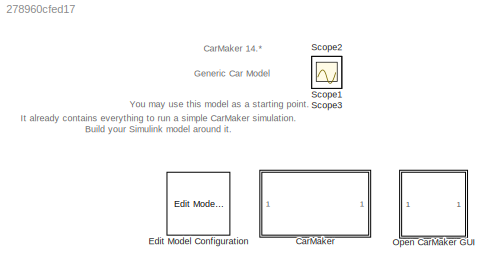
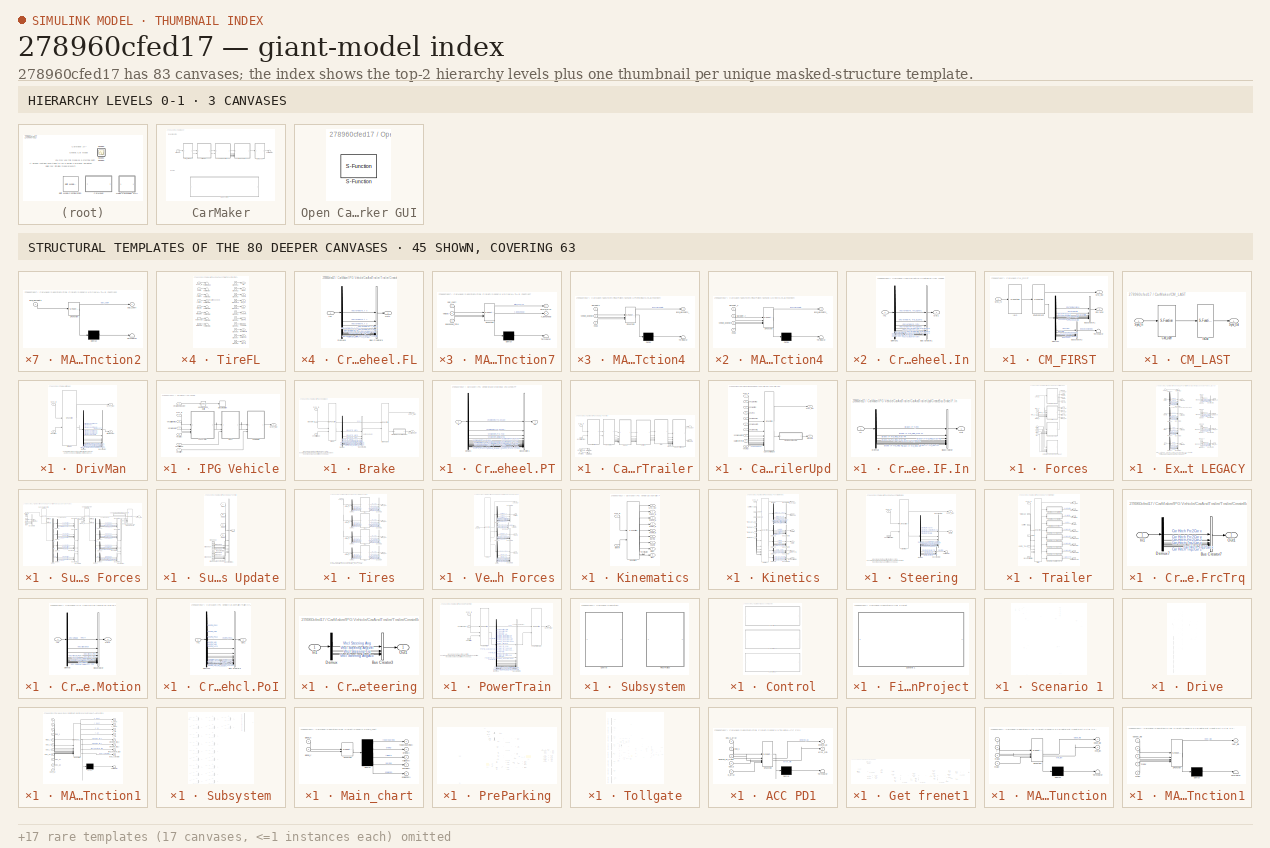
[diagram: thumbnail index - top-2 hierarchy levels (3 canvases) + 45 structural-template representatives of the remaining 80 canvases]
MODEL mdl_278960cfed17
KIND model
CONFIG AbsTol = auto
CONFIG EnableMultiTasking = on
CONFIG FixedStep = 0.001
CONFIG MaxStep = auto
CONFIG MinStep = auto
CONFIG RelTol = 1e-3
CONFIG SampleTimeConstraint = Unconstrained
CONFIG SolverName = FixedStepDiscrete
CONFIG StartTime = 0.0
CONFIG StopTime = inf
BLOCK [SubSystem] CarMaker
  TreatAsAtomicUnit = on
BLOCK [SubSystem] CarMaker/CM_FIRST
BLOCK [BusCreator] CarMaker/CM_FIRST/BusCreator1
  InheritFromInputs = on
  Inputs = 8
BLOCK [BusCreator] CarMaker/CM_FIRST/BusCreator2
  InheritFromInputs = on
  Inputs = 6
BLOCK [Demux] CarMaker/CM_FIRST/Demux1
  DisplayOption = none
  Outputs = 14
BLOCK [Outport] CarMaker/CM_FIRST/Env.Misc
  Port = 2
  VectorParamsAs1DForOutWhenUnconnected = off
BLOCK [S-Function] CarMaker/CM_FIRST/Environment
  EnableBusSupport = off
  FunctionName = CM_Sfun
  Parameters = 'Environment'
  SFcnIsStateOwnerBlock = off
  SFunctionDeploymentMode = off
BLOCK [S-Function] CarMaker/CM_FIRST/IoIn
  EnableBusSupport = off
  FunctionName = CM_Sfun
  Parameters = 'IoIn'
  SFcnIsStateOwnerBlock = off
  SFunctionDeploymentMode = off
BLOCK [Inport] CarMaker/CM_FIRST/Sync_In
BLOCK [Outport] CarMaker/CM_FIRST/Sync_Out
  VectorParamsAs1DForOutWhenUnconnected = off
BLOCK [Terminator] CarMaker/CM_FIRST/Terminator
BLOCK [SubSystem] CarMaker/CM_LAST
BLOCK [S-Function] CarMaker/CM_LAST/CM_User
  EnableBusSupport = off
  FunctionName = CM_Sfun
  Parameters = 'CM_User'
  SFcnIsStateOwnerBlock = off
  SFunctionDeploymentMode = off
BLOCK [S-Function] CarMaker/CM_LAST/IoOut
  EnableBusSupport = off
  FunctionName = CM_Sfun
  Parameters = 'IoOut'
  SFcnIsStateOwnerBlock = off
  SFunctionDeploymentMode = off
BLOCK [Inport] CarMaker/CM_LAST/Sync_In
BLOCK [Outport] CarMaker/CM_LAST/Sync_Out
  VectorParamsAs1DForOutWhenUnconnected = off
BLOCK [SubSystem] CarMaker/DrivMan
BLOCK [BusCreator] CarMaker/DrivMan/BusCreator
  InheritFromInputs = on
  Inputs = 20
BLOCK [Demux] CarMaker/DrivMan/Demux
  DisplayOption = none
  Outputs = 20
BLOCK [S-Function] CarMaker/DrivMan/DrivMan
  EnableBusSupport = off
  FunctionName = CM_Sfun
  Parameters = 'DrivMan'
  SFcnIsStateOwnerBlock = off
  SFunctionDeploymentMode = off
BLOCK [Outport] CarMaker/DrivMan/DrivMan.Out
  Port = 2
  VectorParamsAs1DForOutWhenUnconnected = off
BLOCK [Inport] CarMaker/DrivMan/Env.Misc
  Port = 2
BLOCK [Inport] CarMaker/DrivMan/Sync_In
BLOCK [Outport] CarMaker/DrivMan/Sync_Out
  VectorParamsAs1DForOutWhenUnconnected = off
BLOCK [Ground] CarMaker/Ground
BLOCK [SubSystem] CarMaker/IPG Vehicle
BLOCK [SubSystem] CarMaker/IPG Vehicle/Brake
BLOCK [S-Function] CarMaker/IPG Vehicle/Brake/Brake
  EnableBusSupport = off
  FunctionName = CM_Sfun
  Parameters = 'Brake'
  SFcnIsStateOwnerBlock = off
  SFunctionDeploymentMode = off
BLOCK [Inport] CarMaker/IPG Vehicle/Brake/Brake.IF.In
  Port = 2
BLOCK [S-Function] CarMaker/IPG Vehicle/Brake/BrakeUpd
  EnableBusSupport = off
  FunctionName = CM_Sfun
  Parameters = 'BrakeUpd'
  SFcnIsStateOwnerBlock = off
  SFunctionDeploymentMode = off
BLOCK [BusCreator] CarMaker/IPG Vehicle/Brake/BusCreator1
  InheritFromInputs = on
  Inputs = 16
BLOCK [SubSystem] CarMaker/IPG Vehicle/Brake/CreateBus Vhcl.Wheel.PT
BLOCK [BusCreator] CarMaker/IPG Vehicle/Brake/CreateBus Vhcl.Wheel.PT/BusCreator1
  InheritFromInputs = on
  Inputs = 20
BLOCK [Demux] CarMaker/IPG Vehicle/Brake/CreateBus Vhcl.Wheel.PT/Demux1
  DisplayOption = none
  Outputs = 20
BLOCK [Inport] CarMaker/IPG Vehicle/Brake/CreateBus Vhcl.Wheel.PT/In
BLOCK [Outport] CarMaker/IPG Vehicle/Brake/CreateBus Vhcl.Wheel.PT/Out
  VectorParamsAs1DForOutWhenUnconnected = off
BLOCK [Demux] CarMaker/IPG Vehicle/Brake/Demux
  DisplayOption = none
  Outputs = 16
BLOCK [Inport] CarMaker/IPG Vehicle/Brake/Sync_In
BLOCK [Outport] CarMaker/IPG Vehicle/Brake/Sync_Out
  VectorParamsAs1DForOutWhenUnconnected = off
BLOCK [Outport] CarMaker/IPG Vehicle/Brake/Vhcl.Wheel.PT
  Port = 2
  VectorParamsAs1DForOutWhenUnconnected = off
BLOCK [Inport] CarMaker/IPG Vehicle/Brake/VhclCtrl.Brake
  Port = 3
BLOCK [SubSystem] CarMaker/IPG Vehicle/CarAndTrailer
BLOCK [Outport] CarMaker/IPG Vehicle/CarAndTrailer/Brake.IF.In
  Port = 2
  VectorParamsAs1DForOutWhenUnconnected = off
BLOCK [SubSystem] CarMaker/IPG Vehicle/CarAndTrailer/CarAndTrailerUpd
BLOCK [Outport] CarMaker/IPG Vehicle/CarAndTrailer/CarAndTrailerUpd/Brake.IF.In
  Port = 2
  VectorParamsAs1DForOutWhenUnconnected = off
BLOCK [Inport] CarMaker/IPG Vehicle/CarAndTrailer/CarAndTrailerUpd/Car.Hitch.FrcTrq
  Port = 9
BLOCK [S-Function] CarMaker/IPG Vehicle/CarAndTrailer/CarAndTrailerUpd/CarAndTrailerUpd
  EnableBusSupport = off
  FunctionName = CM_Sfun
  Parameters = 'CarAndTrUpd'
  SFcnIsStateOwnerBlock = off
  SFunctionDeploymentMode = off
BLOCK [SubSystem] CarMaker/IPG Vehicle/CarAndTrailer/CarAndTrailerUpd/CreateBus Brake.IF.In
BLOCK [BusCreator] CarMaker/IPG Vehicle/CarAndTrailer/CarAndTrailerUpd/CreateBus Brake.IF.In/BusCreator
  InheritFromInputs = on
  Inputs = 9
BLOCK [Demux] CarMaker/IPG Vehicle/CarAndTrailer/CarAndTrailerUpd/CreateBus Brake.IF.In/Demux
  DisplayOption = none
  Outputs = 9
BLOCK [Inport] CarMaker/IPG Vehicle/CarAndTrailer/CarAndTrailerUpd/CreateBus Brake.IF.In/In
BLOCK [Outport] CarMaker/IPG Vehicle/CarAndTrailer/CarAndTrailerUpd/CreateBus Brake.IF.In/Out
  VectorParamsAs1DForOutWhenUnconnected = off
BLOCK [Inport] CarMaker/IPG Vehicle/CarAndTrailer/CarAndTrailerUpd/Sync_In
BLOCK [Outport] CarMaker/IPG Vehicle/CarAndTrailer/CarAndTrailerUpd/Sync_Out
  VectorParamsAs1DForOutWhenUnconnected = off
BLOCK [Inport] CarMaker/IPG Vehicle/CarAndTrailer/CarAndTrailerUpd/Vhcl.Fr1A
  Port = 10
BLOCK [Inport] CarMaker/IPG Vehicle/CarAndTrailer/CarAndTrailerUpd/Vhcl.Motion
  Port = 3
BLOCK [Inport] CarMaker/IPG Vehicle/CarAndTrailer/CarAndTrailerUpd/Vhcl.PoI
  Port = 4
BLOCK [Inport] CarMaker/IPG Vehicle/CarAndTrailer/CarAndTrailerUpd/Vhcl.Steering
  Port = 2
BLOCK [Inport] CarMaker/IPG Vehicle/CarAndTrailer/CarAndTrailerUpd/Vhcl.Wheel.FL
  Port = 5
BLOCK [Inport] CarMaker/IPG Vehicle/CarAndTrailer/CarAndTrailerUpd/Vhcl.Wheel.FR
  Port = 6
BLOCK [Inport] CarMaker/IPG Vehicle/CarAndTrailer/CarAndTrailerUpd/Vhcl.Wheel.RL
  Port = 7
BLOCK [Inport] CarMaker/IPG Vehicle/CarAndTrailer/CarAndTrailerUpd/Vhcl.Wheel.RR
  Port = 8
BLOCK [SubSystem] CarMaker/IPG Vehicle/CarAndTrailer/Forces
BLOCK [Outport] CarMaker/IPG Vehicle/CarAndTrailer/Forces/Car.Aero
  Port = 3
  VectorParamsAs1DForOutWhenUnconnected = off
BLOCK [Outport] CarMaker/IPG Vehicle/CarAndTrailer/Forces/Car.Load
  Port = 4
  VectorParamsAs1DForOutWhenUnconnected = off
BLOCK [Outport] CarMaker/IPG Vehicle/CarAndTrailer/Forces/Car.Virtual
  Port = 2
  VectorParamsAs1DForOutWhenUnconnected = off
BLOCK [SubSystem] CarMaker/IPG Vehicle/CarAndTrailer/Forces/External Suspension Forces LEGACY
BLOCK [BusCreator] CarMaker/IPG Vehicle/CarAndTrailer/Forces/External Suspension Forces LEGACY/Bus Creator
  DisplayOption = bar
  InheritFromInputs = on
  Inputs = 8
BLOCK [BusCreator] CarMaker/IPG Vehicle/CarAndTrailer/Forces/External Suspension Forces LEGACY/Bus Creator1
  DisplayOption = bar
  InheritFromInputs = on
  Inputs = 4
BLOCK [BusCreator] CarMaker/IPG Vehicle/CarAndTrailer/Forces/External Suspension Forces LEGACY/Bus Creator2
  DisplayOption = bar
  InheritFromInputs = on
  Inputs = 4
BLOCK [BusCreator] CarMaker/IPG Vehicle/CarAndTrailer/Forces/External Suspension Forces LEGACY/Bus Creator3
  DisplayOption = bar
  InheritFromInputs = on
  Inputs = 4
BLOCK [BusCreator] CarMaker/IPG Vehicle/CarAndTrailer/Forces/External Suspension Forces LEGACY/Bus Creator4
  DisplayOption = bar
  InheritFromInputs = on
  Inputs = 4
BLOCK [BusCreator] CarMaker/IPG Vehicle/CarAndTrailer/Forces/External Suspension Forces LEGACY/Bus Creator5
  DisplayOption = bar
  InheritFromInputs = on
  Inputs = 8
BLOCK [BusCreator] CarMaker/IPG Vehicle/CarAndTrailer/Forces/External Suspension Forces LEGACY/Bus Creator6
  DisplayOption = bar
  InheritFromInputs = on
  Inputs = 8
BLOCK [BusCreator] CarMaker/IPG Vehicle/CarAndTrailer/Forces/External Suspension Forces LEGACY/Bus Creator7
  DisplayOption = bar
  InheritFromInputs = on
  Inputs = 8
BLOCK [Demux] CarMaker/IPG Vehicle/CarAndTrailer/Forces/External Suspension Forces LEGACY/Demux1
  DisplayOption = none
  Outputs = 8
BLOCK [Demux] CarMaker/IPG Vehicle/CarAndTrailer/Forces/External Suspension Forces LEGACY/Demux2
  DisplayOption = none
  Outputs = 8
BLOCK [Demux] CarMaker/IPG Vehicle/CarAndTrailer/Forces/External Suspension Forces LEGACY/Demux3
  DisplayOption = none
  Outputs = 8
BLOCK [Demux] CarMaker/IPG Vehicle/CarAndTrailer/Forces/External Suspension Forces LEGACY/Demux4
  DisplayOption = none
  Outputs = 8
BLOCK [Goto] CarMaker/IPG Vehicle/CarAndTrailer/Forces/External Suspension Forces LEGACY/FBuf_ext
  GotoTag = D
  TagVisibility = global
BLOCK [Goto] CarMaker/IPG Vehicle/CarAndTrailer/Forces/External Suspension Forces LEGACY/FDamp_ext
  GotoTag = B
  TagVisibility = global
BLOCK [Goto] CarMaker/IPG Vehicle/CarAndTrailer/Forces/External Suspension Forces LEGACY/FSpring_ext
  TagVisibility = global
BLOCK [Goto] CarMaker/IPG Vehicle/CarAndTrailer/Forces/External Suspension Forces LEGACY/FStabi_ext
  GotoTag = C
  TagVisibility = global
BLOCK [Ground] CarMaker/IPG Vehicle/CarAndTrailer/Forces/External Suspension Forces LEGACY/Ground
BLOCK [Ground] CarMaker/IPG Vehicle/CarAndTrailer/Forces/External Suspension Forces LEGACY/Ground1
BLOCK [Ground] CarMaker/IPG Vehicle/CarAndTrailer/Forces/External Suspension Forces LEGACY/Ground10
BLOCK [Ground] CarMaker/IPG Vehicle/CarAndTrailer/Forces/External Suspension Forces LEGACY/Ground11
BLOCK [Ground] CarMaker/IPG Vehicle/CarAndTrailer/Forces/External Suspension Forces LEGACY/Ground12
BLOCK [Ground] CarMaker/IPG Vehicle/CarAndTrailer/Forces/External Suspension Forces LEGACY/Ground13
BLOCK [Ground] CarMaker/IPG Vehicle/CarAndTrailer/Forces/External Suspension Forces LEGACY/Ground14
BLOCK [Ground] CarMaker/IPG Vehicle/CarAndTrailer/Forces/External Suspension Forces LEGACY/Ground15
BLOCK [Ground] CarMaker/IPG Vehicle/CarAndTrailer/Forces/External Suspension Forces LEGACY/Ground2
BLOCK [Ground] CarMaker/IPG Vehicle/CarAndTrailer/Forces/External Suspension Forces LEGACY/Ground3
BLOCK [Ground] CarMaker/IPG Vehicle/CarAndTrailer/Forces/External Suspension Forces LEGACY/Ground4
BLOCK [Ground] CarMaker/IPG Vehicle/CarAndTrailer/Forces/External Suspension Forces LEGACY/Ground5
BLOCK [Ground] CarMaker/IPG Vehicle/CarAndTrailer/Forces/External Suspension Forces LEGACY/Ground6
BLOCK [Ground] CarMaker/IPG Vehicle/CarAndTrailer/Forces/External Suspension Forces LEGACY/Ground7
BLOCK [Ground] CarMaker/IPG Vehicle/CarAndTrailer/Forces/External Suspension Forces LEGACY/Ground8
BLOCK [Ground] CarMaker/IPG Vehicle/CarAndTrailer/Forces/External Suspension Forces LEGACY/Ground9
BLOCK [Inport] CarMaker/IPG Vehicle/CarAndTrailer/Forces/External Suspension Forces LEGACY/Sync_In
BLOCK [Terminator] CarMaker/IPG Vehicle/CarAndTrailer/Forces/External Suspension Forces LEGACY/Terminator1
BLOCK [Terminator] CarMaker/IPG Vehicle/CarAndTrailer/Forces/External Suspension Forces LEGACY/Terminator12
BLOCK [Terminator] CarMaker/IPG Vehicle/CarAndTrailer/Forces/External Suspension Forces LEGACY/Terminator2
BLOCK [Terminator] CarMaker/IPG Vehicle/CarAndTrailer/Forces/External Suspension Forces LEGACY/Terminator3
BLOCK [Terminator] CarMaker/IPG Vehicle/CarAndTrailer/Forces/External Suspension Forces LEGACY/Terminator4
BLOCK [Inport] CarMaker/IPG Vehicle/CarAndTrailer/Forces/External Suspension Forces LEGACY/lBuf
  Port = 5
BLOCK [Inport] CarMaker/IPG Vehicle/CarAndTrailer/Forces/External Suspension Forces LEGACY/lSpring
  Port = 2
BLOCK [Inport] CarMaker/IPG Vehicle/CarAndTrailer/Forces/External Suspension Forces LEGACY/lStabi
  Port = 4
BLOCK [Inport] CarMaker/IPG Vehicle/CarAndTrailer/Forces/External Suspension Forces LEGACY/vDamp
  Port = 3
BLOCK [SubSystem] CarMaker/IPG Vehicle/CarAndTrailer/Forces/Suspension Forces
BLOCK [BusCreator] CarMaker/IPG Vehicle/CarAndTrailer/Forces/Suspension Forces/Bus Creator
  DisplayOption = bar
  InheritFromInputs = on
  Inputs = 4
BLOCK [BusCreator] CarMaker/IPG Vehicle/CarAndTrailer/Forces/Suspension Forces/Bus Creator1
  DisplayOption = bar
  InheritFromInputs = on
  Inputs = 4
BLOCK [BusCreator] CarMaker/IPG Vehicle/CarAndTrailer/Forces/Suspension Forces/Bus Creator10
  DisplayOption = bar
  InheritFromInputs = on
  Inputs = 4
BLOCK [BusCreator] CarMaker/IPG Vehicle/CarAndTrailer/Forces/Suspension Forces/Bus Creator2
  DisplayOption = bar
  InheritFromInputs = on
  Inputs = 4
BLOCK [BusCreator] CarMaker/IPG Vehicle/CarAndTrailer/Forces/Suspension Forces/Bus Creator3
  DisplayOption = bar
  InheritFromInputs = on
  Inputs = 4
BLOCK [BusCreator] CarMaker/IPG Vehicle/CarAndTrailer/Forces/Suspension Forces/Bus Creator4
  DisplayOption = bar
  InheritFromInputs = on
  Inputs = 6
BLOCK [BusCreator] CarMaker/IPG Vehicle/CarAndTrailer/Forces/Suspension Forces/Bus Creator5
  DisplayOption = bar
  InheritFromInputs = on
  Inputs = 6
BLOCK [BusCreator] CarMaker/IPG Vehicle/CarAndTrailer/Forces/Suspension Forces/Bus Creator6
  DisplayOption = bar
  InheritFromInputs = on
  Inputs = 6
BLOCK [BusCreator] CarMaker/IPG Vehicle/CarAndTrailer/Forces/Suspension Forces/Bus Creator7
  DisplayOption = bar
  InheritFromInputs = on
  Inputs = 6
BLOCK [BusCreator] CarMaker/IPG Vehicle/CarAndTrailer/Forces/Suspension Forces/Bus Creator8
  DisplayOption = bar
  InheritFromInputs = on
  Inputs = 4
BLOCK [BusCreator] CarMaker/IPG Vehicle/CarAndTrailer/Forces/Suspension Forces/Bus Creator9
  DisplayOption = bar
  InheritFromInputs = on
  Inputs = 4
BLOCK [Demux] CarMaker/IPG Vehicle/CarAndTrailer/Forces/Suspension Forces/Demux
BLOCK [Demux] CarMaker/IPG Vehicle/CarAndTrailer/Forces/Suspension Forces/Demux1
BLOCK [Demux] CarMaker/IPG Vehicle/CarAndTrailer/Forces/Suspension Forces/Demux2
BLOCK [Demux] CarMaker/IPG Vehicle/CarAndTrailer/Forces/Suspension Forces/Demux3
BLOCK [Demux] CarMaker/IPG Vehicle/CarAndTrailer/Forces/Suspension Forces/Demux4
BLOCK [Demux] CarMaker/IPG Vehicle/CarAndTrailer/Forces/Suspension Forces/Demux5
BLOCK [Demux] CarMaker/IPG Vehicle/CarAndTrailer/Forces/Suspension Forces/Demux6
  Outputs = 6
BLOCK [Demux] CarMaker/IPG Vehicle/CarAndTrailer/Forces/Suspension Forces/Demux7
  Outputs = 6
BLOCK [Demux] CarMaker/IPG Vehicle/CarAndTrailer/Forces/Suspension Forces/Demux8
  Outputs = 6
BLOCK [Demux] CarMaker/IPG Vehicle/CarAndTrailer/Forces/Suspension Forces/Demux9
  Outputs = 6
BLOCK [Ground] CarMaker/IPG Vehicle/CarAndTrailer/Forces/Suspension Forces/Ground_1
BLOCK [Ground] CarMaker/IPG Vehicle/CarAndTrailer/Forces/Suspension Forces/Ground_2
BLOCK [Ground] CarMaker/IPG Vehicle/CarAndTrailer/Forces/Suspension Forces/Ground_4
BLOCK [Ground] CarMaker/IPG Vehicle/CarAndTrailer/Forces/Suspension Forces/Ground_5
BLOCK [S-Function] CarMaker/IPG Vehicle/CarAndTrailer/Forces/Suspension Forces/Suspension Control Unit
  EnableBusSupport = off
  FunctionName = CM_Sfun
  Parameters = 'ForcesSuspControl'
  SFcnIsStateOwnerBlock = off
  SFunctionDeploymentMode = off
BLOCK [SubSystem] CarMaker/IPG Vehicle/CarAndTrailer/Forces/Suspension Forces/Suspension External Forces Update
BLOCK [BusCreator] CarMaker/IPG Vehicle/CarAndTrailer/Forces/Suspension Forces/Suspension External Forces Update/Bus Creator21
  DisplayOption = bar
  InheritFromInputs = on
  Inputs = 6
BLOCK [BusCreator] CarMaker/IPG Vehicle/CarAndTrailer/Forces/Suspension Forces/Suspension External Forces Update/Bus Creator22
  DisplayOption = bar
  InheritFromInputs = on
  Inputs = 4
BLOCK [BusCreator] CarMaker/IPG Vehicle/CarAndTrailer/Forces/Suspension Forces/Suspension External Forces Update/Bus Creator23
  DisplayOption = bar
  InheritFromInputs = on
  Inputs = 4
BLOCK [From] CarMaker/IPG Vehicle/CarAndTrailer/Forces/Suspension Forces/Suspension External Forces Update/From
  TagVisibility = global
BLOCK [From] CarMaker/IPG Vehicle/CarAndTrailer/Forces/Suspension Forces/Suspension External Forces Update/From1
  GotoTag = B
  TagVisibility = global
BLOCK [From] CarMaker/IPG Vehicle/CarAndTrailer/Forces/Suspension Forces/Suspension External Forces Update/From2
  GotoTag = C
  TagVisibility = global
BLOCK [From] CarMaker/IPG Vehicle/CarAndTrailer/Forces/Suspension Forces/Suspension External Forces Update/From3
  GotoTag = D
  TagVisibility = global
BLOCK [Ground] CarMaker/IPG Vehicle/CarAndTrailer/Forces/Suspension Forces/Suspension External Forces Update/Ground32
BLOCK [Ground] CarMaker/IPG Vehicle/CarAndTrailer/Forces/Suspension Forces/Suspension External Forces Update/Ground33
BLOCK [Ground] CarMaker/IPG Vehicle/CarAndTrailer/Forces/Suspension Forces/Suspension External Forces Update/Ground34
BLOCK [Ground] CarMaker/IPG Vehicle/CarAndTrailer/Forces/Suspension Forces/Suspension External Forces Update/Ground35
BLOCK [Ground] CarMaker/IPG Vehicle/CarAndTrailer/Forces/Suspension Forces/Suspension External Forces Update/Ground36
BLOCK [Ground] CarMaker/IPG Vehicle/CarAndTrailer/Forces/Suspension Forces/Suspension External Forces Update/Ground37
BLOCK [Ground] CarMaker/IPG Vehicle/CarAndTrailer/Forces/Suspension Forces/Suspension External Forces Update/Ground38
BLOCK [Ground] CarMaker/IPG Vehicle/CarAndTrailer/Forces/Suspension Forces/Suspension External Forces Update/Ground39
BLOCK [Outport] CarMaker/IPG Vehicle/CarAndTrailer/Forces/Suspension Forces/Suspension External Forces Update/Out1
BLOCK [S-Function] CarMaker/IPG Vehicle/CarAndTrailer/Forces/Suspension Forces/Suspension Force Elements
  EnableBusSupport = off
  FunctionName = CM_Sfun
  Parameters = 'ForcesSusp'
  SFcnIsStateOwnerBlock = off
  SFunctionDeploymentMode = off
BLOCK [S-Function] CarMaker/IPG Vehicle/CarAndTrailer/Forces/Suspension Forces/Suspension Force Elements Update
  EnableBusSupport = off
  FunctionName = CM_Sfun
  Parameters = 'ForcesSuspUpd'
  SFcnIsStateOwnerBlock = off
  SFunctionDeploymentMode = off
BLOCK [Inport] CarMaker/IPG Vehicle/CarAndTrailer/Forces/Suspension Forces/Sync_In
BLOCK [Outport] CarMaker/IPG Vehicle/CarAndTrailer/Forces/Suspension Forces/Sync_Out
  VectorParamsAs1DForOutWhenUnconnected = off
BLOCK [Terminator] CarMaker/IPG Vehicle/CarAndTrailer/Forces/Suspension Forces/Terminator
BLOCK [Terminator] CarMaker/IPG Vehicle/CarAndTrailer/Forces/Suspension Forces/Terminator1
BLOCK [Terminator] CarMaker/IPG Vehicle/CarAndTrailer/Forces/Suspension Forces/Terminator2
BLOCK [Terminator] CarMaker/IPG Vehicle/CarAndTrailer/Forces/Suspension Forces/Terminator3
BLOCK [Terminator] CarMaker/IPG Vehicle/CarAndTrailer/Forces/Suspension Forces/Terminator_5
BLOCK [Inport] CarMaker/IPG Vehicle/CarAndTrailer/Forces/Suspension Forces/lBuf
  Port = 5
BLOCK [Inport] CarMaker/IPG Vehicle/CarAndTrailer/Forces/Suspension Forces/lSpring
  Port = 2
BLOCK [Inport] CarMaker/IPG Vehicle/CarAndTrailer/Forces/Suspension Forces/lStabi
  Port = 4
BLOCK [Inport] CarMaker/IPG Vehicle/CarAndTrailer/Forces/Suspension Forces/vDamp
  Port = 3
BLOCK [Inport] CarMaker/IPG Vehicle/CarAndTrailer/Forces/Sync_In
BLOCK [Outport] CarMaker/IPG Vehicle/CarAndTrailer/Forces/Sync_Out
  VectorParamsAs1DForOutWhenUnconnected = off
BLOCK [Inport] CarMaker/IPG Vehicle/CarAndTrailer/Forces/TireFL_In
  Port = 2
BLOCK [Outport] CarMaker/IPG Vehicle/CarAndTrailer/Forces/TireFL_Out
  Port = 5
  VectorParamsAs1DForOutWhenUnconnected = off
BLOCK [Inport] CarMaker/IPG Vehicle/CarAndTrailer/Forces/TireFR_In
  Port = 3
BLOCK [Outport] CarMaker/IPG Vehicle/CarAndTrailer/Forces/TireFR_Out
  Port = 6
  VectorParamsAs1DForOutWhenUnconnected = off
BLOCK [Inport] CarMaker/IPG Vehicle/CarAndTrailer/Forces/TireRL_In
  Port = 4
BLOCK [Outport] CarMaker/IPG Vehicle/CarAndTrailer/Forces/TireRL_Out
  Port = 7
  VectorParamsAs1DForOutWhenUnconnected = off
BLOCK [Inport] CarMaker/IPG Vehicle/CarAndTrailer/Forces/TireRR_In
  Port = 5
BLOCK [Outport] CarMaker/IPG Vehicle/CarAndTrailer/Forces/TireRR_Out
  Port = 8
  VectorParamsAs1DForOutWhenUnconnected = off
BLOCK [SubSystem] CarMaker/IPG Vehicle/CarAndTrailer/Forces/Tires
BLOCK [BusCreator] CarMaker/IPG Vehicle/CarAndTrailer/Forces/Tires/Bus Creator1
  DisplayOption = bar
  InheritFromInputs = on
  Inputs = 11
BLOCK [BusCreator] CarMaker/IPG Vehicle/CarAndTrailer/Forces/Tires/Bus Creator2
  DisplayOption = bar
  InheritFromInputs = on
  Inputs = 11
BLOCK [BusCreator] CarMaker/IPG Vehicle/CarAndTrailer/Forces/Tires/Bus Creator3
  DisplayOption = bar
  InheritFromInputs = on
  Inputs = 11
BLOCK [BusCreator] CarMaker/IPG Vehicle/CarAndTrailer/Forces/Tires/Bus Creator4
  DisplayOption = bar
  InheritFromInputs = on
  Inputs = 11
BLOCK [Demux] CarMaker/IPG Vehicle/CarAndTrailer/Forces/Tires/Demux1
  DisplayOption = none
  Outputs = 7
BLOCK [Demux] CarMaker/IPG Vehicle/CarAndTrailer/Forces/Tires/Demux2
  DisplayOption = none
  Outputs = 7
BLOCK [Demux] CarMaker/IPG Vehicle/CarAndTrailer/Forces/Tires/Demux3
  DisplayOption = none
  Outputs = 7
BLOCK [Demux] CarMaker/IPG Vehicle/CarAndTrailer/Forces/Tires/Demux8
  DisplayOption = none
  Outputs = 7
BLOCK [Inport] CarMaker/IPG Vehicle/CarAndTrailer/Forces/Tires/Sync_In
BLOCK [SubSystem] CarMaker/IPG Vehicle/CarAndTrailer/Forces/Tires/TireFL
BLOCK [Outport] CarMaker/IPG Vehicle/CarAndTrailer/Forces/Tires/TireFL/AlignTrq
  Port = 11
  VectorParamsAs1DForOutWhenUnconnected = off
BLOCK [Outport] CarMaker/IPG Vehicle/CarAndTrailer/Forces/Tires/TireFL/Alpha
  Port = 2
  VectorParamsAs1DForOutWhenUnconnected = off
BLOCK [Ground] CarMaker/IPG Vehicle/CarAndTrailer/Forces/Tires/TireFL/Ground1
BLOCK [Ground] CarMaker/IPG Vehicle/CarAndTrailer/Forces/Tires/TireFL/Ground10
BLOCK [Ground] CarMaker/IPG Vehicle/CarAndTrailer/Forces/Tires/TireFL/Ground11
BLOCK [Ground] CarMaker/IPG Vehicle/CarAndTrailer/Forces/Tires/TireFL/Ground2
BLOCK [Ground] CarMaker/IPG Vehicle/CarAndTrailer/Forces/Tires/TireFL/Ground3
BLOCK [Ground] CarMaker/IPG Vehicle/CarAndTrailer/Forces/Tires/TireFL/Ground4
BLOCK [Ground] CarMaker/IPG Vehicle/CarAndTrailer/Forces/Tires/TireFL/Ground5
BLOCK [Ground] CarMaker/IPG Vehicle/CarAndTrailer/Forces/Tires/TireFL/Ground6
BLOCK [Ground] CarMaker/IPG Vehicle/CarAndTrailer/Forces/Tires/TireFL/Ground7
BLOCK [Ground] CarMaker/IPG Vehicle/CarAndTrailer/Forces/Tires/TireFL/Ground8
BLOCK [Ground] CarMaker/IPG Vehicle/CarAndTrailer/Forces/Tires/TireFL/Ground9
BLOCK [Inport] CarMaker/IPG Vehicle/CarAndTrailer/Forces/Tires/TireFL/InclinAngle
  Port = 7
BLOCK [Inport] CarMaker/IPG Vehicle/CarAndTrailer/Forces/Tires/TireFL/Load
  Port = 2
BLOCK [Outport] CarMaker/IPG Vehicle/CarAndTrailer/Forces/Tires/TireFL/LoadFrc
  Port = 8
  VectorParamsAs1DForOutWhenUnconnected = off
BLOCK [Outport] CarMaker/IPG Vehicle/CarAndTrailer/Forces/Tires/TireFL/LongFrc
  Port = 6
  VectorParamsAs1DForOutWhenUnconnected = off
BLOCK [Outport] CarMaker/IPG Vehicle/CarAndTrailer/Forces/Tires/TireFL/OverturnTrq
  Port = 9
  VectorParamsAs1DForOutWhenUnconnected = off
BLOCK [Inport] CarMaker/IPG Vehicle/CarAndTrailer/Forces/Tires/TireFL/Rim_rotv
  Port = 5
BLOCK [Inport] CarMaker/IPG Vehicle/CarAndTrailer/Forces/Tires/TireFL/Rim_turnv
  Port = 6
BLOCK [Outport] CarMaker/IPG Vehicle/CarAndTrailer/Forces/Tires/TireFL/RollResist
  Port = 10
  VectorParamsAs1DForOutWhenUnconnected = off
BLOCK [Outport] CarMaker/IPG Vehicle/CarAndTrailer/Forces/Tires/TireFL/SideFrc
  Port = 7
  VectorParamsAs1DForOutWhenUnconnected = off
BLOCK [Outport] CarMaker/IPG Vehicle/CarAndTrailer/Forces/Tires/TireFL/Slp
  VectorParamsAs1DForOutWhenUnconnected = off
BLOCK [Inport] CarMaker/IPG Vehicle/CarAndTrailer/Forces/Tires/TireFL/Sync_In
BLOCK [Terminator] CarMaker/IPG Vehicle/CarAndTrailer/Forces/Tires/TireFL/Terminator
BLOCK [Terminator] CarMaker/IPG Vehicle/CarAndTrailer/Forces/Tires/TireFL/Terminator1
BLOCK [Terminator] CarMaker/IPG Vehicle/CarAndTrailer/Forces/Tires/TireFL/Terminator12
BLOCK [Terminator] CarMaker/IPG Vehicle/CarAndTrailer/Forces/Tires/TireFL/Terminator2
BLOCK [Terminator] CarMaker/IPG Vehicle/CarAndTrailer/Forces/Tires/TireFL/Terminator3
BLOCK [Terminator] CarMaker/IPG Vehicle/CarAndTrailer/Forces/Tires/TireFL/Terminator4
BLOCK [Terminator] CarMaker/IPG Vehicle/CarAndTrailer/Forces/Tires/TireFL/Terminator5
BLOCK [Terminator] CarMaker/IPG Vehicle/CarAndTrailer/Forces/Tires/TireFL/Terminator6
BLOCK [Outport] CarMaker/IPG Vehicle/CarAndTrailer/Forces/Tires/TireFL/TurnSlp
  Port = 3
  VectorParamsAs1DForOutWhenUnconnected = off
BLOCK [Inport] CarMaker/IPG Vehicle/CarAndTrailer/Forces/Tires/TireFL/muRoad
  Port = 8
BLOCK [Outport] CarMaker/IPG Vehicle/CarAndTrailer/Forces/Tires/TireFL/rBelt_eff
  Port = 4
  VectorParamsAs1DForOutWhenUnconnected = off
BLOCK [Outport] CarMaker/IPG Vehicle/CarAndTrailer/Forces/Tires/TireFL/vBelt
  Port = 5
  VectorParamsAs1DForOutWhenUnconnected = off
BLOCK [Inport] CarMaker/IPG Vehicle/CarAndTrailer/Forces/Tires/TireFL/vxtrans
  Port = 3
BLOCK [Inport] CarMaker/IPG Vehicle/CarAndTrailer/Forces/Tires/TireFL/vytrans
  Port = 4
BLOCK [Inport] CarMaker/IPG Vehicle/CarAndTrailer/Forces/Tires/TireFL_In
  Port = 2
BLOCK [Outport] CarMaker/IPG Vehicle/CarAndTrailer/Forces/Tires/TireFL_Out
  VectorParamsAs1DForOutWhenUnconnected = off
BLOCK [SubSystem] CarMaker/IPG Vehicle/CarAndTrailer/Forces/Tires/TireFR
BLOCK [Outport] CarMaker/IPG Vehicle/CarAndTrailer/Forces/Tires/TireFR/AlignTrq
  Port = 11
  VectorParamsAs1DForOutWhenUnconnected = off
BLOCK [Outport] CarMaker/IPG Vehicle/CarAndTrailer/Forces/Tires/TireFR/Alpha
  Port = 2
  VectorParamsAs1DForOutWhenUnconnected = off
BLOCK [Ground] CarMaker/IPG Vehicle/CarAndTrailer/Forces/Tires/TireFR/Ground1
BLOCK [Ground] CarMaker/IPG Vehicle/CarAndTrailer/Forces/Tires/TireFR/Ground10
BLOCK [Ground] CarMaker/IPG Vehicle/CarAndTrailer/Forces/Tires/TireFR/Ground11
BLOCK [Ground] CarMaker/IPG Vehicle/CarAndTrailer/Forces/Tires/TireFR/Ground2
BLOCK [Ground] CarMaker/IPG Vehicle/CarAndTrailer/Forces/Tires/TireFR/Ground3
BLOCK [Ground] CarMaker/IPG Vehicle/CarAndTrailer/Forces/Tires/TireFR/Ground4
BLOCK [Ground] CarMaker/IPG Vehicle/CarAndTrailer/Forces/Tires/TireFR/Ground5
BLOCK [Ground] CarMaker/IPG Vehicle/CarAndTrailer/Forces/Tires/TireFR/Ground6
BLOCK [Ground] CarMaker/IPG Vehicle/CarAndTrailer/Forces/Tires/TireFR/Ground7
BLOCK [Ground] CarMaker/IPG Vehicle/CarAndTrailer/Forces/Tires/TireFR/Ground8
BLOCK [Ground] CarMaker/IPG Vehicle/CarAndTrailer/Forces/Tires/TireFR/Ground9
BLOCK [Inport] CarMaker/IPG Vehicle/CarAndTrailer/Forces/Tires/TireFR/InclinAngle
  Port = 7
BLOCK [Inport] CarMaker/IPG Vehicle/CarAndTrailer/Forces/Tires/TireFR/Load
  Port = 2
BLOCK [Outport] CarMaker/IPG Vehicle/CarAndTrailer/Forces/Tires/TireFR/LoadFrc
  Port = 8
  VectorParamsAs1DForOutWhenUnconnected = off
BLOCK [Outport] CarMaker/IPG Vehicle/CarAndTrailer/Forces/Tires/TireFR/LongFrc
  Port = 6
  VectorParamsAs1DForOutWhenUnconnected = off
BLOCK [Outport] CarMaker/IPG Vehicle/CarAndTrailer/Forces/Tires/TireFR/OverturnTrq
  Port = 9
  VectorParamsAs1DForOutWhenUnconnected = off
BLOCK [Inport] CarMaker/IPG Vehicle/CarAndTrailer/Forces/Tires/TireFR/Rim_rotv
  Port = 5
BLOCK [Inport] CarMaker/IPG Vehicle/CarAndTrailer/Forces/Tires/TireFR/Rim_turnv
  Port = 6
BLOCK [Outport] CarMaker/IPG Vehicle/CarAndTrailer/Forces/Tires/TireFR/RollResist
  Port = 10
  VectorParamsAs1DForOutWhenUnconnected = off
BLOCK [Outport] CarMaker/IPG Vehicle/CarAndTrailer/Forces/Tires/TireFR/SideFrc
  Port = 7
  VectorParamsAs1DForOutWhenUnconnected = off
BLOCK [Outport] CarMaker/IPG Vehicle/CarAndTrailer/Forces/Tires/TireFR/Slp
  VectorParamsAs1DForOutWhenUnconnected = off
BLOCK [Inport] CarMaker/IPG Vehicle/CarAndTrailer/Forces/Tires/TireFR/Sync_In
BLOCK [Terminator] CarMaker/IPG Vehicle/CarAndTrailer/Forces/Tires/TireFR/Terminator
BLOCK [Terminator] CarMaker/IPG Vehicle/CarAndTrailer/Forces/Tires/TireFR/Terminator1
BLOCK [Terminator] CarMaker/IPG Vehicle/CarAndTrailer/Forces/Tires/TireFR/Terminator12
BLOCK [Terminator] CarMaker/IPG Vehicle/CarAndTrailer/Forces/Tires/TireFR/Terminator2
BLOCK [Terminator] CarMaker/IPG Vehicle/CarAndTrailer/Forces/Tires/TireFR/Terminator3
BLOCK [Terminator] CarMaker/IPG Vehicle/CarAndTrailer/Forces/Tires/TireFR/Terminator4
BLOCK [Terminator] CarMaker/IPG Vehicle/CarAndTrailer/Forces/Tires/TireFR/Terminator5
BLOCK [Terminator] CarMaker/IPG Vehicle/CarAndTrailer/Forces/Tires/TireFR/Terminator6
BLOCK [Outport] CarMaker/IPG Vehicle/CarAndTrailer/Forces/Tires/TireFR/TurnSlp
  Port = 3
  VectorParamsAs1DForOutWhenUnconnected = off
BLOCK [Inport] CarMaker/IPG Vehicle/CarAndTrailer/Forces/Tires/TireFR/muRoad
  Port = 8
BLOCK [Outport] CarMaker/IPG Vehicle/CarAndTrailer/Forces/Tires/TireFR/rBelt_eff
  Port = 4
  VectorParamsAs1DForOutWhenUnconnected = off
BLOCK [Outport] CarMaker/IPG Vehicle/CarAndTrailer/Forces/Tires/TireFR/vBelt
  Port = 5
  VectorParamsAs1DForOutWhenUnconnected = off
BLOCK [Inport] CarMaker/IPG Vehicle/CarAndTrailer/Forces/Tires/TireFR/vxtrans
  Port = 3
BLOCK [Inport] CarMaker/IPG Vehicle/CarAndTrailer/Forces/Tires/TireFR/vytrans
  Port = 4
BLOCK [Inport] CarMaker/IPG Vehicle/CarAndTrailer/Forces/Tires/TireFR_In
  Port = 3
BLOCK [Outport] CarMaker/IPG Vehicle/CarAndTrailer/Forces/Tires/TireFR_Out
  Port = 2
  VectorParamsAs1DForOutWhenUnconnected = off
BLOCK [SubSystem] CarMaker/IPG Vehicle/CarAndTrailer/Forces/Tires/TireRL
BLOCK [Outport] CarMaker/IPG Vehicle/CarAndTrailer/Forces/Tires/TireRL/AlignTrq
  Port = 11
  VectorParamsAs1DForOutWhenUnconnected = off
BLOCK [Outport] CarMaker/IPG Vehicle/CarAndTrailer/Forces/Tires/TireRL/Alpha
  Port = 2
  VectorParamsAs1DForOutWhenUnconnected = off
BLOCK [Ground] CarMaker/IPG Vehicle/CarAndTrailer/Forces/Tires/TireRL/Ground1
BLOCK [Ground] CarMaker/IPG Vehicle/CarAndTrailer/Forces/Tires/TireRL/Ground10
BLOCK [Ground] CarMaker/IPG Vehicle/CarAndTrailer/Forces/Tires/TireRL/Ground11
BLOCK [Ground] CarMaker/IPG Vehicle/CarAndTrailer/Forces/Tires/TireRL/Ground2
BLOCK [Ground] CarMaker/IPG Vehicle/CarAndTrailer/Forces/Tires/TireRL/Ground3
BLOCK [Ground] CarMaker/IPG Vehicle/CarAndTrailer/Forces/Tires/TireRL/Ground4
BLOCK [Ground] CarMaker/IPG Vehicle/CarAndTrailer/Forces/Tires/TireRL/Ground5
BLOCK [Ground] CarMaker/IPG Vehicle/CarAndTrailer/Forces/Tires/TireRL/Ground6
BLOCK [Ground] CarMaker/IPG Vehicle/CarAndTrailer/Forces/Tires/TireRL/Ground7
BLOCK [Ground] CarMaker/IPG Vehicle/CarAndTrailer/Forces/Tires/TireRL/Ground8
BLOCK [Ground] CarMaker/IPG Vehicle/CarAndTrailer/Forces/Tires/TireRL/Ground9
BLOCK [Inport] CarMaker/IPG Vehicle/CarAndTrailer/Forces/Tires/TireRL/InclinAngle
  Port = 7
BLOCK [Inport] CarMaker/IPG Vehicle/CarAndTrailer/Forces/Tires/TireRL/Load
  Port = 2
BLOCK [Outport] CarMaker/IPG Vehicle/CarAndTrailer/Forces/Tires/TireRL/LoadFrc
  Port = 8
  VectorParamsAs1DForOutWhenUnconnected = off
BLOCK [Outport] CarMaker/IPG Vehicle/CarAndTrailer/Forces/Tires/TireRL/LongFrc
  Port = 6
  VectorParamsAs1DForOutWhenUnconnected = off
BLOCK [Outport] CarMaker/IPG Vehicle/CarAndTrailer/Forces/Tires/TireRL/OverturnTrq
  Port = 9
  VectorParamsAs1DForOutWhenUnconnected = off
BLOCK [Inport] CarMaker/IPG Vehicle/CarAndTrailer/Forces/Tires/TireRL/Rim_rotv
  Port = 5
BLOCK [Inport] CarMaker/IPG Vehicle/CarAndTrailer/Forces/Tires/TireRL/Rim_turnv
  Port = 6
BLOCK [Outport] CarMaker/IPG Vehicle/CarAndTrailer/Forces/Tires/TireRL/RollResist
  Port = 10
  VectorParamsAs1DForOutWhenUnconnected = off
BLOCK [Outport] CarMaker/IPG Vehicle/CarAndTrailer/Forces/Tires/TireRL/SideFrc
  Port = 7
  VectorParamsAs1DForOutWhenUnconnected = off
BLOCK [Outport] CarMaker/IPG Vehicle/CarAndTrailer/Forces/Tires/TireRL/Slp
  VectorParamsAs1DForOutWhenUnconnected = off
BLOCK [Inport] CarMaker/IPG Vehicle/CarAndTrailer/Forces/Tires/TireRL/Sync_In
BLOCK [Terminator] CarMaker/IPG Vehicle/CarAndTrailer/Forces/Tires/TireRL/Terminator
BLOCK [Terminator] CarMaker/IPG Vehicle/CarAndTrailer/Forces/Tires/TireRL/Terminator1
BLOCK [Terminator] CarMaker/IPG Vehicle/CarAndTrailer/Forces/Tires/TireRL/Terminator12
BLOCK [Terminator] CarMaker/IPG Vehicle/CarAndTrailer/Forces/Tires/TireRL/Terminator2
BLOCK [Terminator] CarMaker/IPG Vehicle/CarAndTrailer/Forces/Tires/TireRL/Terminator3
BLOCK [Terminator] CarMaker/IPG Vehicle/CarAndTrailer/Forces/Tires/TireRL/Terminator4
BLOCK [Terminator] CarMaker/IPG Vehicle/CarAndTrailer/Forces/Tires/TireRL/Terminator5
BLOCK [Terminator] CarMaker/IPG Vehicle/CarAndTrailer/Forces/Tires/TireRL/Terminator6
BLOCK [Outport] CarMaker/IPG Vehicle/CarAndTrailer/Forces/Tires/TireRL/TurnSlp
  Port = 3
  VectorParamsAs1DForOutWhenUnconnected = off
BLOCK [Inport] CarMaker/IPG Vehicle/CarAndTrailer/Forces/Tires/TireRL/muRoad
  Port = 8
BLOCK [Outport] CarMaker/IPG Vehicle/CarAndTrailer/Forces/Tires/TireRL/rBelt_eff
  Port = 4
  VectorParamsAs1DForOutWhenUnconnected = off
BLOCK [Outport] CarMaker/IPG Vehicle/CarAndTrailer/Forces/Tires/TireRL/vBelt
  Port = 5
  VectorParamsAs1DForOutWhenUnconnected = off
BLOCK [Inport] CarMaker/IPG Vehicle/CarAndTrailer/Forces/Tires/TireRL/vxtrans
  Port = 3
BLOCK [Inport] CarMaker/IPG Vehicle/CarAndTrailer/Forces/Tires/TireRL/vytrans
  Port = 4
BLOCK [Inport] CarMaker/IPG Vehicle/CarAndTrailer/Forces/Tires/TireRL_In
  Port = 4
BLOCK [Outport] CarMaker/IPG Vehicle/CarAndTrailer/Forces/Tires/TireRL_Out
  Port = 3
  VectorParamsAs1DForOutWhenUnconnected = off
BLOCK [SubSystem] CarMaker/IPG Vehicle/CarAndTrailer/Forces/Tires/TireRR
BLOCK [Outport] CarMaker/IPG Vehicle/CarAndTrailer/Forces/Tires/TireRR/AlignTrq
  Port = 11
  VectorParamsAs1DForOutWhenUnconnected = off
BLOCK [Outport] CarMaker/IPG Vehicle/CarAndTrailer/Forces/Tires/TireRR/Alpha
  Port = 2
  VectorParamsAs1DForOutWhenUnconnected = off
BLOCK [Ground] CarMaker/IPG Vehicle/CarAndTrailer/Forces/Tires/TireRR/Ground1
BLOCK [Ground] CarMaker/IPG Vehicle/CarAndTrailer/Forces/Tires/TireRR/Ground10
BLOCK [Ground] CarMaker/IPG Vehicle/CarAndTrailer/Forces/Tires/TireRR/Ground11
BLOCK [Ground] CarMaker/IPG Vehicle/CarAndTrailer/Forces/Tires/TireRR/Ground2
BLOCK [Ground] CarMaker/IPG Vehicle/CarAndTrailer/Forces/Tires/TireRR/Ground3
BLOCK [Ground] CarMaker/IPG Vehicle/CarAndTrailer/Forces/Tires/TireRR/Ground4
BLOCK [Ground] CarMaker/IPG Vehicle/CarAndTrailer/Forces/Tires/TireRR/Ground5
BLOCK [Ground] CarMaker/IPG Vehicle/CarAndTrailer/Forces/Tires/TireRR/Ground6
BLOCK [Ground] CarMaker/IPG Vehicle/CarAndTrailer/Forces/Tires/TireRR/Ground7
BLOCK [Ground] CarMaker/IPG Vehicle/CarAndTrailer/Forces/Tires/TireRR/Ground8
BLOCK [Ground] CarMaker/IPG Vehicle/CarAndTrailer/Forces/Tires/TireRR/Ground9
BLOCK [Inport] CarMaker/IPG Vehicle/CarAndTrailer/Forces/Tires/TireRR/InclinAngle
  Port = 7
BLOCK [Inport] CarMaker/IPG Vehicle/CarAndTrailer/Forces/Tires/TireRR/Load
  Port = 2
BLOCK [Outport] CarMaker/IPG Vehicle/CarAndTrailer/Forces/Tires/TireRR/LoadFrc
  Port = 8
  VectorParamsAs1DForOutWhenUnconnected = off
BLOCK [Outport] CarMaker/IPG Vehicle/CarAndTrailer/Forces/Tires/TireRR/LongFrc
  Port = 6
  VectorParamsAs1DForOutWhenUnconnected = off
BLOCK [Outport] CarMaker/IPG Vehicle/CarAndTrailer/Forces/Tires/TireRR/OverturnTrq
  Port = 9
  VectorParamsAs1DForOutWhenUnconnected = off
BLOCK [Inport] CarMaker/IPG Vehicle/CarAndTrailer/Forces/Tires/TireRR/Rim_rotv
  Port = 5
BLOCK [Inport] CarMaker/IPG Vehicle/CarAndTrailer/Forces/Tires/TireRR/Rim_turnv
  Port = 6
BLOCK [Outport] CarMaker/IPG Vehicle/CarAndTrailer/Forces/Tires/TireRR/RollResist
  Port = 10
  VectorParamsAs1DForOutWhenUnconnected = off
BLOCK [Outport] CarMaker/IPG Vehicle/CarAndTrailer/Forces/Tires/TireRR/SideFrc
  Port = 7
  VectorParamsAs1DForOutWhenUnconnected = off
BLOCK [Outport] CarMaker/IPG Vehicle/CarAndTrailer/Forces/Tires/TireRR/Slp
  VectorParamsAs1DForOutWhenUnconnected = off
BLOCK [Inport] CarMaker/IPG Vehicle/CarAndTrailer/Forces/Tires/TireRR/Sync_In
BLOCK [Terminator] CarMaker/IPG Vehicle/CarAndTrailer/Forces/Tires/TireRR/Terminator
BLOCK [Terminator] CarMaker/IPG Vehicle/CarAndTrailer/Forces/Tires/TireRR/Terminator1
BLOCK [Terminator] CarMaker/IPG Vehicle/CarAndTrailer/Forces/Tires/TireRR/Terminator12
BLOCK [Terminator] CarMaker/IPG Vehicle/CarAndTrailer/Forces/Tires/TireRR/Terminator2
BLOCK [Terminator] CarMaker/IPG Vehicle/CarAndTrailer/Forces/Tires/TireRR/Terminator3
BLOCK [Terminator] CarMaker/IPG Vehicle/CarAndTrailer/Forces/Tires/TireRR/Terminator4
BLOCK [Terminator] CarMaker/IPG Vehicle/CarAndTrailer/Forces/Tires/TireRR/Terminator5
BLOCK [Terminator] CarMaker/IPG Vehicle/CarAndTrailer/Forces/Tires/TireRR/Terminator6
BLOCK [Outport] CarMaker/IPG Vehicle/CarAndTrailer/Forces/Tires/TireRR/TurnSlp
  Port = 3
  VectorParamsAs1DForOutWhenUnconnected = off
BLOCK [Inport] CarMaker/IPG Vehicle/CarAndTrailer/Forces/Tires/TireRR/muRoad
  Port = 8
BLOCK [Outport] CarMaker/IPG Vehicle/CarAndTrailer/Forces/Tires/TireRR/rBelt_eff
  Port = 4
  VectorParamsAs1DForOutWhenUnconnected = off
BLOCK [Outport] CarMaker/IPG Vehicle/CarAndTrailer/Forces/Tires/TireRR/vBelt
  Port = 5
  VectorParamsAs1DForOutWhenUnconnected = off
BLOCK [Inport] CarMaker/IPG Vehicle/CarAndTrailer/Forces/Tires/TireRR/vxtrans
  Port = 3
BLOCK [Inport] CarMaker/IPG Vehicle/CarAndTrailer/Forces/Tires/TireRR/vytrans
  Port = 4
BLOCK [Inport] CarMaker/IPG Vehicle/CarAndTrailer/Forces/Tires/TireRR_In
  Port = 5
BLOCK [Outport] CarMaker/IPG Vehicle/CarAndTrailer/Forces/Tires/TireRR_Out
  Port = 4
  VectorParamsAs1DForOutWhenUnconnected = off
BLOCK [SubSystem] CarMaker/IPG Vehicle/CarAndTrailer/Forces/Vehicle Forces
BLOCK [BusCreator] CarMaker/IPG Vehicle/CarAndTrailer/Forces/Vehicle Forces/Bus Creator1
  DisplayOption = bar
  InheritFromInputs = on
  Inputs = 12
BLOCK [BusCreator] CarMaker/IPG Vehicle/CarAndTrailer/Forces/Vehicle Forces/Bus Creator8
  DisplayOption = bar
  InheritFromInputs = on
  Inputs = 16
BLOCK [BusCreator] CarMaker/IPG Vehicle/CarAndTrailer/Forces/Vehicle Forces/BusCreator1
  InheritFromInputs = on
  Inputs = 4
BLOCK [BusCreator] CarMaker/IPG Vehicle/CarAndTrailer/Forces/Vehicle Forces/BusCreator2
  InheritFromInputs = on
  Inputs = 9
BLOCK [Outport] CarMaker/IPG Vehicle/CarAndTrailer/Forces/Vehicle Forces/Car.Aero
  Port = 3
  VectorParamsAs1DForOutWhenUnconnected = off
BLOCK [Outport] CarMaker/IPG Vehicle/CarAndTrailer/Forces/Vehicle Forces/Car.Load
  Port = 4
  VectorParamsAs1DForOutWhenUnconnected = off
BLOCK [Outport] CarMaker/IPG Vehicle/CarAndTrailer/Forces/Vehicle Forces/Car.Virtual
  Port = 2
  VectorParamsAs1DForOutWhenUnconnected = off
BLOCK [Demux] CarMaker/IPG Vehicle/CarAndTrailer/Forces/Vehicle Forces/Demux
  DisplayOption = none
  Outputs = 16
BLOCK [Demux] CarMaker/IPG Vehicle/CarAndTrailer/Forces/Vehicle Forces/Demux1
  DisplayOption = none
  Outputs = 12
BLOCK [Demux] CarMaker/IPG Vehicle/CarAndTrailer/Forces/Vehicle Forces/Demux2
  DisplayOption = none
  Outputs = 13
BLOCK [S-Function] CarMaker/IPG Vehicle/CarAndTrailer/Forces/Vehicle Forces/Forces
  EnableBusSupport = off
  FunctionName = CM_Sfun
  Parameters = 'Forces'
  SFcnIsStateOwnerBlock = off
  SFunctionDeploymentMode = off
BLOCK [Inport] CarMaker/IPG Vehicle/CarAndTrailer/Forces/Vehicle Forces/Sync_In
BLOCK [Outport] CarMaker/IPG Vehicle/CarAndTrailer/Forces/Vehicle Forces/Sync_Out
  VectorParamsAs1DForOutWhenUnconnected = off
BLOCK [Terminator] CarMaker/IPG Vehicle/CarAndTrailer/Forces/Vehicle Forces/Terminator
BLOCK [Inport] CarMaker/IPG Vehicle/CarAndTrailer/Forces/lBuf
  Port = 9
BLOCK [Inport] CarMaker/IPG Vehicle/CarAndTrailer/Forces/lSpring
  Port = 6
BLOCK [Inport] CarMaker/IPG Vehicle/CarAndTrailer/Forces/lStabi
  Port = 8
BLOCK [Inport] CarMaker/IPG Vehicle/CarAndTrailer/Forces/vDamp
  Port = 7
BLOCK [Ground] CarMaker/IPG Vehicle/CarAndTrailer/Ground
BLOCK [SubSystem] CarMaker/IPG Vehicle/CarAndTrailer/Kinematics
BLOCK [S-Function] CarMaker/IPG Vehicle/CarAndTrailer/Kinematics/Kinematics
  EnableBusSupport = off
  FunctionName = CM_Sfun
  Parameters = 'Kinematics'
  SFcnIsStateOwnerBlock = off
  SFunctionDeploymentMode = off
BLOCK [Inport] CarMaker/IPG Vehicle/CarAndTrailer/Kinematics/Steer.IF
  Port = 2
BLOCK [Inport] CarMaker/IPG Vehicle/CarAndTrailer/Kinematics/Sync_In
BLOCK [Outport] CarMaker/IPG Vehicle/CarAndTrailer/Kinematics/Sync_Out
  VectorParamsAs1DForOutWhenUnconnected = off
BLOCK [Terminator] CarMaker/IPG Vehicle/CarAndTrailer/Kinematics/Terminator
BLOCK [Outport] CarMaker/IPG Vehicle/CarAndTrailer/Kinematics/TireFL_In
  Port = 2
  VectorParamsAs1DForOutWhenUnconnected = off
BLOCK [Outport] CarMaker/IPG Vehicle/CarAndTrailer/Kinematics/TireFR_In
  Port = 3
  VectorParamsAs1DForOutWhenUnconnected = off
BLOCK [Outport] CarMaker/IPG Vehicle/CarAndTrailer/Kinematics/TireRL_In
  Port = 4
  VectorParamsAs1DForOutWhenUnconnected = off
BLOCK [Outport] CarMaker/IPG Vehicle/CarAndTrailer/Kinematics/TireRR_In
  Port = 5
  VectorParamsAs1DForOutWhenUnconnected = off
BLOCK [Outport] CarMaker/IPG Vehicle/CarAndTrailer/Kinematics/lBuf
  Port = 9
  VectorParamsAs1DForOutWhenUnconnected = off
BLOCK [Outport] CarMaker/IPG Vehicle/CarAndTrailer/Kinematics/lSpring
  Port = 6
  VectorParamsAs1DForOutWhenUnconnected = off
BLOCK [Outport] CarMaker/IPG Vehicle/CarAndTrailer/Kinematics/lStabi
  Port = 8
  VectorParamsAs1DForOutWhenUnconnected = off
BLOCK [Outport] CarMaker/IPG Vehicle/CarAndTrailer/Kinematics/vDamp
  Port = 7
  VectorParamsAs1DForOutWhenUnconnected = off
BLOCK [SubSystem] CarMaker/IPG Vehicle/CarAndTrailer/Kinetics
BLOCK [BusCreator] CarMaker/IPG Vehicle/CarAndTrailer/Kinetics/Bus Creator
  DisplayOption = bar
  InheritFromInputs = on
  Inputs = 4
BLOCK [BusCreator] CarMaker/IPG Vehicle/CarAndTrailer/Kinetics/Bus Creator1
  DisplayOption = bar
  InheritFromInputs = on
  Inputs = 12
BLOCK [BusCreator] CarMaker/IPG Vehicle/CarAndTrailer/Kinetics/Bus Creator2
  DisplayOption = bar
  InheritFromInputs = on
  Inputs = 6
BLOCK [BusCreator] CarMaker/IPG Vehicle/CarAndTrailer/Kinetics/Bus Creator3
  DisplayOption = bar
  InheritFromInputs = on
  Inputs = 6
BLOCK [BusCreator] CarMaker/IPG Vehicle/CarAndTrailer/Kinetics/Bus Creator4
  DisplayOption = bar
  InheritFromInputs = on
  Inputs = 4
BLOCK [Inport] CarMaker/IPG Vehicle/CarAndTrailer/Kinetics/Car.Aero
  Port = 3
BLOCK [Outport] CarMaker/IPG Vehicle/CarAndTrailer/Kinetics/Car.Fr1
  Port = 4
  VectorParamsAs1DForOutWhenUnconnected = off
BLOCK [Outport] CarMaker/IPG Vehicle/CarAndTrailer/Kinetics/Car.Hitch
  Port = 3
  VectorParamsAs1DForOutWhenUnconnected = off
BLOCK [Inport] CarMaker/IPG Vehicle/CarAndTrailer/Kinetics/Car.Load
  Port = 4
BLOCK [Outport] CarMaker/IPG Vehicle/CarAndTrailer/Kinetics/Car.Trq_T2W
  Port = 5
  VectorParamsAs1DForOutWhenUnconnected = off
BLOCK [Inport] CarMaker/IPG Vehicle/CarAndTrailer/Kinetics/Car.Virtual
  Port = 2
BLOCK [Demux] CarMaker/IPG Vehicle/CarAndTrailer/Kinetics/Demux
  DisplayOption = none
  Outputs = 12
BLOCK [Demux] CarMaker/IPG Vehicle/CarAndTrailer/Kinetics/Demux1
  DisplayOption = none
  Outputs = 6
BLOCK [Demux] CarMaker/IPG Vehicle/CarAndTrailer/Kinetics/Demux2
  DisplayOption = none
  Outputs = 6
BLOCK [Demux] CarMaker/IPG Vehicle/CarAndTrailer/Kinetics/Demux3
  DisplayOption = none
BLOCK [Demux] CarMaker/IPG Vehicle/CarAndTrailer/Kinetics/Demux4
  DisplayOption = none
BLOCK [S-Function] CarMaker/IPG Vehicle/CarAndTrailer/Kinetics/Kinetics
  EnableBusSupport = off
  FunctionName = CM_Sfun
  Parameters = 'Kinetics'
  SFcnIsStateOwnerBlock = off
  SFunctionDeploymentMode = off
BLOCK [Inport] CarMaker/IPG Vehicle/CarAndTrailer/Kinetics/Sync_In
BLOCK [Outport] CarMaker/IPG Vehicle/CarAndTrailer/Kinetics/Sync_Out
  VectorParamsAs1DForOutWhenUnconnected = off
BLOCK [Inport] CarMaker/IPG Vehicle/CarAndTrailer/Kinetics/TireFL.Out
  Port = 5
BLOCK [Inport] CarMaker/IPG Vehicle/CarAndTrailer/Kinetics/TireFR.Out
  Port = 6
BLOCK [Inport] CarMaker/IPG Vehicle/CarAndTrailer/Kinetics/TireRL.Out
  Port = 7
BLOCK [Inport] CarMaker/IPG Vehicle/CarAndTrailer/Kinetics/TireRR.Out
  Port = 8
BLOCK [Outport] CarMaker/IPG Vehicle/CarAndTrailer/Kinetics/Trailer.Load
  Port = 2
  VectorParamsAs1DForOutWhenUnconnected = off
BLOCK [Outport] CarMaker/IPG Vehicle/CarAndTrailer/Kinetics/WheelCarrier.Misc
  Port = 6
  VectorParamsAs1DForOutWhenUnconnected = off
BLOCK [SubSystem] CarMaker/IPG Vehicle/CarAndTrailer/Steering
BLOCK [BusCreator] CarMaker/IPG Vehicle/CarAndTrailer/Steering/Bus Creator1
  DisplayOption = bar
  InheritFromInputs = on
  Inputs = 16
BLOCK [BusCreator] CarMaker/IPG Vehicle/CarAndTrailer/Steering/Bus Creator2
  DisplayOption = bar
  InheritFromInputs = on
  Inputs = 5
BLOCK [Demux] CarMaker/IPG Vehicle/CarAndTrailer/Steering/Demux
  DisplayOption = none
  Outputs = 21
BLOCK [Outport] CarMaker/IPG Vehicle/CarAndTrailer/Steering/Steer.IF
  Port = 2
  VectorParamsAs1DForOutWhenUnconnected = off
BLOCK [S-Function] CarMaker/IPG Vehicle/CarAndTrailer/Steering/Steering
  EnableBusSupport = off
  FunctionName = CM_Sfun
  Parameters = 'Steering'
  SFcnIsStateOwnerBlock = off
  SFunctionDeploymentMode = off
BLOCK [Inport] CarMaker/IPG Vehicle/CarAndTrailer/Steering/Sync_In
BLOCK [Outport] CarMaker/IPG Vehicle/CarAndTrailer/Steering/Sync_Out
  VectorParamsAs1DForOutWhenUnconnected = off
BLOCK [Terminator] CarMaker/IPG Vehicle/CarAndTrailer/Steering/Terminator
BLOCK [Inport] CarMaker/IPG Vehicle/CarAndTrailer/Steering/VhclCtrl.Steering
  Port = 2
BLOCK [Inport] CarMaker/IPG Vehicle/CarAndTrailer/Sync_In
BLOCK [Outport] CarMaker/IPG Vehicle/CarAndTrailer/Sync_Out
  VectorParamsAs1DForOutWhenUnconnected = off
BLOCK [Terminator] CarMaker/IPG Vehicle/CarAndTrailer/Terminator
BLOCK [Terminator] CarMaker/IPG Vehicle/CarAndTrailer/Terminator1
BLOCK [SubSystem] CarMaker/IPG Vehicle/CarAndTrailer/Trailer
BLOCK [Inport] CarMaker/IPG Vehicle/CarAndTrailer/Trailer/Car.Fr1
  Port = 4
BLOCK [Inport] CarMaker/IPG Vehicle/CarAndTrailer/Trailer/Car.Hitch
  Port = 3
BLOCK [Outport] CarMaker/IPG Vehicle/CarAndTrailer/Trailer/Car.Hitch.FrcTrq
  Port = 9
  VectorParamsAs1DForOutWhenUnconnected = off
BLOCK [Inport] CarMaker/IPG Vehicle/CarAndTrailer/Trailer/Car.Trq_T2W
  Port = 5
BLOCK [SubSystem] CarMaker/IPG Vehicle/CarAndTrailer/Trailer/CreateBus Car.Hitch.FrcTrq
BLOCK [BusCreator] CarMaker/IPG Vehicle/CarAndTrailer/Trailer/CreateBus Car.Hitch.FrcTrq/Bus Creator7
  DisplayOption = bar
  InheritFromInputs = on
  Inputs = 6
BLOCK [Demux] CarMaker/IPG Vehicle/CarAndTrailer/Trailer/CreateBus Car.Hitch.FrcTrq/Demux7
  DisplayOption = none
  Outputs = 6
BLOCK [Inport] CarMaker/IPG Vehicle/CarAndTrailer/Trailer/CreateBus Car.Hitch.FrcTrq/In1
BLOCK [Outport] CarMaker/IPG Vehicle/CarAndTrailer/Trailer/CreateBus Car.Hitch.FrcTrq/Out1
  VectorParamsAs1DForOutWhenUnconnected = off
BLOCK [SubSystem] CarMaker/IPG Vehicle/CarAndTrailer/Trailer/CreateBus Vhcl.Motion
BLOCK [BusCreator] CarMaker/IPG Vehicle/CarAndTrailer/Trailer/CreateBus Vhcl.Motion/BusCreator
  InheritFromInputs = on
  Inputs = 15
BLOCK [Demux] CarMaker/IPG Vehicle/CarAndTrailer/Trailer/CreateBus Vhcl.Motion/Demux
  DisplayOption = none
  Outputs = 15
BLOCK [Inport] CarMaker/IPG Vehicle/CarAndTrailer/Trailer/CreateBus Vhcl.Motion/In1
BLOCK [Outport] CarMaker/IPG Vehicle/CarAndTrailer/Trailer/CreateBus Vhcl.Motion/Out1
  VectorParamsAs1DForOutWhenUnconnected = off
BLOCK [SubSystem] CarMaker/IPG Vehicle/CarAndTrailer/Trailer/CreateBus Vhcl.PoI
BLOCK [BusCreator] CarMaker/IPG Vehicle/CarAndTrailer/Trailer/CreateBus Vhcl.PoI/Bus Creator3
  DisplayOption = bar
  InheritFromInputs = on
  Inputs = 18
BLOCK [Demux] CarMaker/IPG Vehicle/CarAndTrailer/Trailer/CreateBus Vhcl.PoI/Demux3
  DisplayOption = none
  Outputs = 18
BLOCK [Inport] CarMaker/IPG Vehicle/CarAndTrailer/Trailer/CreateBus Vhcl.PoI/In1
BLOCK [Outport] CarMaker/IPG Vehicle/CarAndTrailer/Trailer/CreateBus Vhcl.PoI/Out1
  VectorParamsAs1DForOutWhenUnconnected = off
BLOCK [SubSystem] CarMaker/IPG Vehicle/CarAndTrailer/Trailer/CreateBus Vhcl.Steering
BLOCK [BusCreator] CarMaker/IPG Vehicle/CarAndTrailer/Trailer/CreateBus Vhcl.Steering/Bus Creator3
  DisplayOption = bar
  InheritFromInputs = on
  Inputs = 4
BLOCK [Demux] CarMaker/IPG Vehicle/CarAndTrailer/Trailer/CreateBus Vhcl.Steering/Demux
  DisplayOption = none
BLOCK [Inport] CarMaker/IPG Vehicle/CarAndTrailer/Trailer/CreateBus Vhcl.Steering/In1
BLOCK [Outport] CarMaker/IPG Vehicle/CarAndTrailer/Trailer/CreateBus Vhcl.Steering/Out1
  VectorParamsAs1DForOutWhenUnconnected = off
BLOCK [SubSystem] CarMaker/IPG Vehicle/CarAndTrailer/Trailer/CreateBus Vhcl.Wheel.FL
BLOCK [BusCreator] CarMaker/IPG Vehicle/CarAndTrailer/Trailer/CreateBus Vhcl.Wheel.FL/Bus Creator3
  DisplayOption = bar
  InheritFromInputs = on
  Inputs = 14
BLOCK [Demux] CarMaker/IPG Vehicle/CarAndTrailer/Trailer/CreateBus Vhcl.Wheel.FL/Demux3
  DisplayOption = none
  Outputs = 14
BLOCK [Inport] CarMaker/IPG Vehicle/CarAndTrailer/Trailer/CreateBus Vhcl.Wheel.FL/In1
BLOCK [Outport] CarMaker/IPG Vehicle/CarAndTrailer/Trailer/CreateBus Vhcl.Wheel.FL/Out1
  VectorParamsAs1DForOutWhenUnconnected = off
BLOCK [SubSystem] CarMaker/IPG Vehicle/CarAndTrailer/Trailer/CreateBus Vhcl.Wheel.FR
BLOCK [BusCreator] CarMaker/IPG Vehicle/CarAndTrailer/Trailer/CreateBus Vhcl.Wheel.FR/Bus Creator3
  DisplayOption = bar
  InheritFromInputs = on
  Inputs = 14
BLOCK [Demux] CarMaker/IPG Vehicle/CarAndTrailer/Trailer/CreateBus Vhcl.Wheel.FR/Demux3
  DisplayOption = none
  Outputs = 14
BLOCK [Inport] CarMaker/IPG Vehicle/CarAndTrailer/Trailer/CreateBus Vhcl.Wheel.FR/In1
BLOCK [Outport] CarMaker/IPG Vehicle/CarAndTrailer/Trailer/CreateBus Vhcl.Wheel.FR/Out1
  VectorParamsAs1DForOutWhenUnconnected = off
BLOCK [SubSystem] CarMaker/IPG Vehicle/CarAndTrailer/Trailer/CreateBus Vhcl.Wheel.RL
BLOCK [BusCreator] CarMaker/IPG Vehicle/CarAndTrailer/Trailer/CreateBus Vhcl.Wheel.RL/Bus Creator3
  DisplayOption = bar
  InheritFromInputs = on
  Inputs = 14
BLOCK [Demux] CarMaker/IPG Vehicle/CarAndTrailer/Trailer/CreateBus Vhcl.Wheel.RL/Demux3
  DisplayOption = none
  Outputs = 14
BLOCK [Inport] CarMaker/IPG Vehicle/CarAndTrailer/Trailer/CreateBus Vhcl.Wheel.RL/In1
BLOCK [Outport] CarMaker/IPG Vehicle/CarAndTrailer/Trailer/CreateBus Vhcl.Wheel.RL/Out1
  VectorParamsAs1DForOutWhenUnconnected = off
BLOCK [SubSystem] CarMaker/IPG Vehicle/CarAndTrailer/Trailer/CreateBus Vhcl.Wheel.RR
BLOCK [BusCreator] CarMaker/IPG Vehicle/CarAndTrailer/Trailer/CreateBus Vhcl.Wheel.RR/Bus Creator3
  DisplayOption = bar
  InheritFromInputs = on
  Inputs = 14
BLOCK [Demux] CarMaker/IPG Vehicle/CarAndTrailer/Trailer/CreateBus Vhcl.Wheel.RR/Demux3
  DisplayOption = none
  Outputs = 14
BLOCK [Inport] CarMaker/IPG Vehicle/CarAndTrailer/Trailer/CreateBus Vhcl.Wheel.RR/In1
BLOCK [Outport] CarMaker/IPG Vehicle/CarAndTrailer/Trailer/CreateBus Vhcl.Wheel.RR/Out1
  VectorParamsAs1DForOutWhenUnconnected = off
BLOCK [Inport] CarMaker/IPG Vehicle/CarAndTrailer/Trailer/Sync_In
BLOCK [Outport] CarMaker/IPG Vehicle/CarAndTrailer/Trailer/Sync_Out
  VectorParamsAs1DForOutWhenUnconnected = off
BLOCK [S-Function] CarMaker/IPG Vehicle/CarAndTrailer/Trailer/Trailer
  EnableBusSupport = off
  FunctionName = CM_Sfun
  Parameters = 'Trailer'
  SFcnIsStateOwnerBlock = off
  SFunctionDeploymentMode = off
BLOCK [Inport] CarMaker/IPG Vehicle/CarAndTrailer/Trailer/Trailer.Load
  Port = 2
BLOCK [Outport] CarMaker/IPG Vehicle/CarAndTrailer/Trailer/Vhcl.Motion
  Port = 3
  VectorParamsAs1DForOutWhenUnconnected = off
BLOCK [Outport] CarMaker/IPG Vehicle/CarAndTrailer/Trailer/Vhcl.PoI
  Port = 4
  VectorParamsAs1DForOutWhenUnconnected = off
BLOCK [Outport] CarMaker/IPG Vehicle/CarAndTrailer/Trailer/Vhcl.Steering
  Port = 2
  VectorParamsAs1DForOutWhenUnconnected = off
BLOCK [Outport] CarMaker/IPG Vehicle/CarAndTrailer/Trailer/Vhcl.Wheel.FL
  Port = 5
  VectorParamsAs1DForOutWhenUnconnected = off
BLOCK [Outport] CarMaker/IPG Vehicle/CarAndTrailer/Trailer/Vhcl.Wheel.FR
  Port = 6
  VectorParamsAs1DForOutWhenUnconnected = off
BLOCK [Outport] CarMaker/IPG Vehicle/CarAndTrailer/Trailer/Vhcl.Wheel.RL
  Port = 7
  VectorParamsAs1DForOutWhenUnconnected = off
BLOCK [Outport] CarMaker/IPG Vehicle/CarAndTrailer/Trailer/Vhcl.Wheel.RR
  Port = 8
  VectorParamsAs1DForOutWhenUnconnected = off
BLOCK [Inport] CarMaker/IPG Vehicle/CarAndTrailer/Trailer/WheelCarrier.Misc
  Port = 6
BLOCK [Inport] CarMaker/IPG Vehicle/CarAndTrailer/Vhcl.Misc
  Port = 4
BLOCK [Inport] CarMaker/IPG Vehicle/CarAndTrailer/Vhcl.Wheel.In
  Port = 3
BLOCK [Inport] CarMaker/IPG Vehicle/CarAndTrailer/VhclCtrl.Steering
  Port = 2
BLOCK [SubSystem] CarMaker/IPG Vehicle/PowerTrain
BLOCK [BusCreator] CarMaker/IPG Vehicle/PowerTrain/BusCreator1
  InheritFromInputs = on
  Inputs = 42
BLOCK [Demux] CarMaker/IPG Vehicle/PowerTrain/Demux1
  DisplayOption = none
  Outputs = 42
BLOCK [S-Function] CarMaker/IPG Vehicle/PowerTrain/PowerTrain
  EnableBusSupport = off
  FunctionName = CM_Sfun
  Parameters = 'PowerTrain'
  SFcnIsStateOwnerBlock = off
  SFunctionDeploymentMode = off
BLOCK [S-Function] CarMaker/IPG Vehicle/PowerTrain/PowerTrainUpd
  EnableBusSupport = off
  FunctionName = CM_Sfun
  Parameters = 'PowerTrainUpd'
  SFcnIsStateOwnerBlock = off
  SFunctionDeploymentMode = off
BLOCK [Inport] CarMaker/IPG Vehicle/PowerTrain/Sync_In
BLOCK [Outport] CarMaker/IPG Vehicle/PowerTrain/Sync_Out
  VectorParamsAs1DForOutWhenUnconnected = off
BLOCK [Inport] CarMaker/IPG Vehicle/PowerTrain/Vhcl.Wheel.PT
  Port = 2
BLOCK [Inport] CarMaker/IPG Vehicle/PowerTrain/VhclCtrl.PT
  Port = 3
BLOCK [Stop] CarMaker/IPG Vehicle/Stop Simulation
BLOCK [Inport] CarMaker/IPG Vehicle/Sync_In
BLOCK [Outport] CarMaker/IPG Vehicle/Sync_Out
  VectorParamsAs1DForOutWhenUnconnected = off
BLOCK [Reference] CarMaker/IPG Vehicle/VehicleSource_BuiltIn  REF=simulink/Logic and Bit
Operations/Compare
To Constant
  SourceBlock = simulink/Logic and Bit\nOperations/Compare\nTo Constant
  SourceType = Compare To Constant
BLOCK [Inport] CarMaker/IPG Vehicle/Vhcl.Misc
  Port = 5
BLOCK [Inport] CarMaker/IPG Vehicle/Vhcl.Model.Source
  Port = 2
BLOCK [Inport] CarMaker/IPG Vehicle/Vhcl.Wheel.In
  Port = 4
BLOCK [Inport] CarMaker/IPG Vehicle/VhclCtrl.Brake
  Port = 6
BLOCK [Inport] CarMaker/IPG Vehicle/VhclCtrl.PT
  Port = 7
BLOCK [Inport] CarMaker/IPG Vehicle/VhclCtrl.Steering
  Port = 3
BLOCK [SubSystem] CarMaker/Subsystem
BLOCK [SubSystem] CarMaker/Subsystem/Control
  Commented = on
BLOCK [SubSystem] CarMaker/Subsystem/Control/Scenario 1
  Commented = on
  ReferencedSubsystem = Day2_Scenario_1
BLOCK [SubSystem] CarMaker/Subsystem/Control/Scenario 2 & 3
  Commented = on
  ReferencedSubsystem = Day2_Scenario_2_3
BLOCK [SubSystem] CarMaker/Subsystem/Control/Scenario 4 & 5
  Commented = on
  ReferencedSubsystem = Day2_Scenario_4_5
BLOCK [SubSystem] CarMaker/Subsystem/Final Project
BLOCK [SubSystem] CarMaker/Subsystem/Final Project/Scenario 1
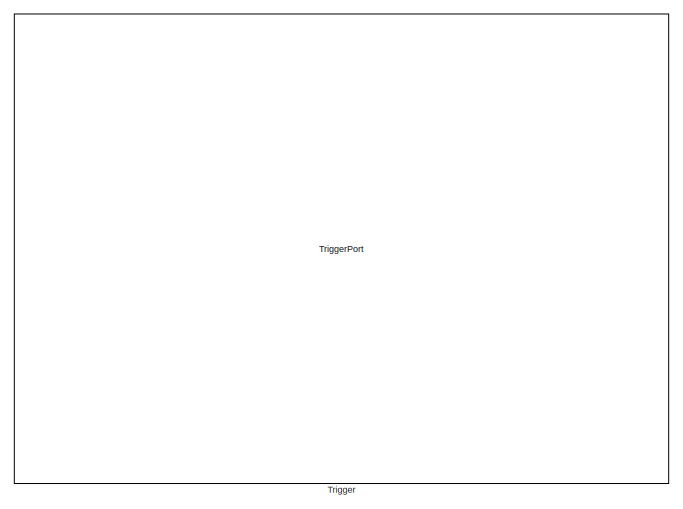
[diagram: CarMaker/Subsystem/Final Project/Scenario 1/Drive - part 1/12, top right region]
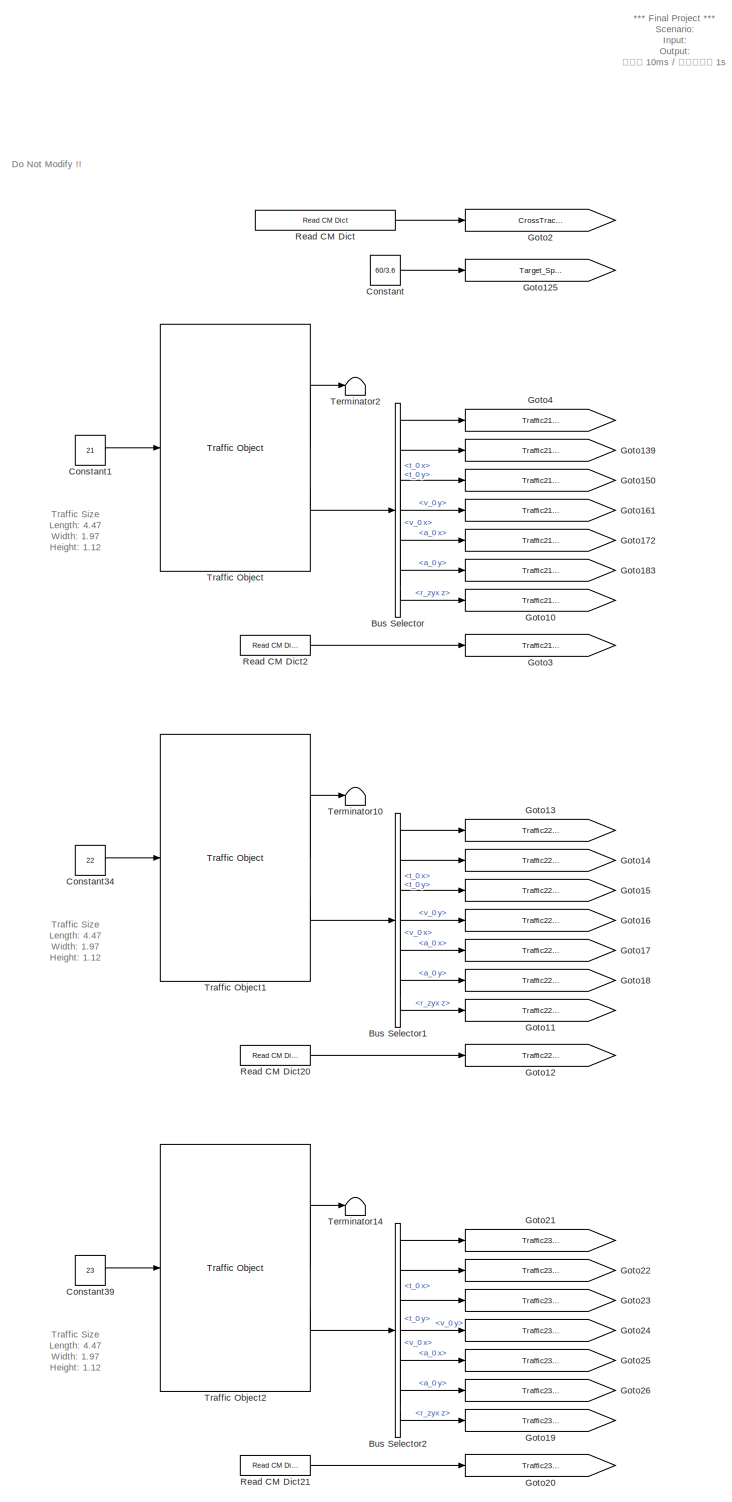
[diagram: CarMaker/Subsystem/Final Project/Scenario 1/Drive - part 2/12, top center region]
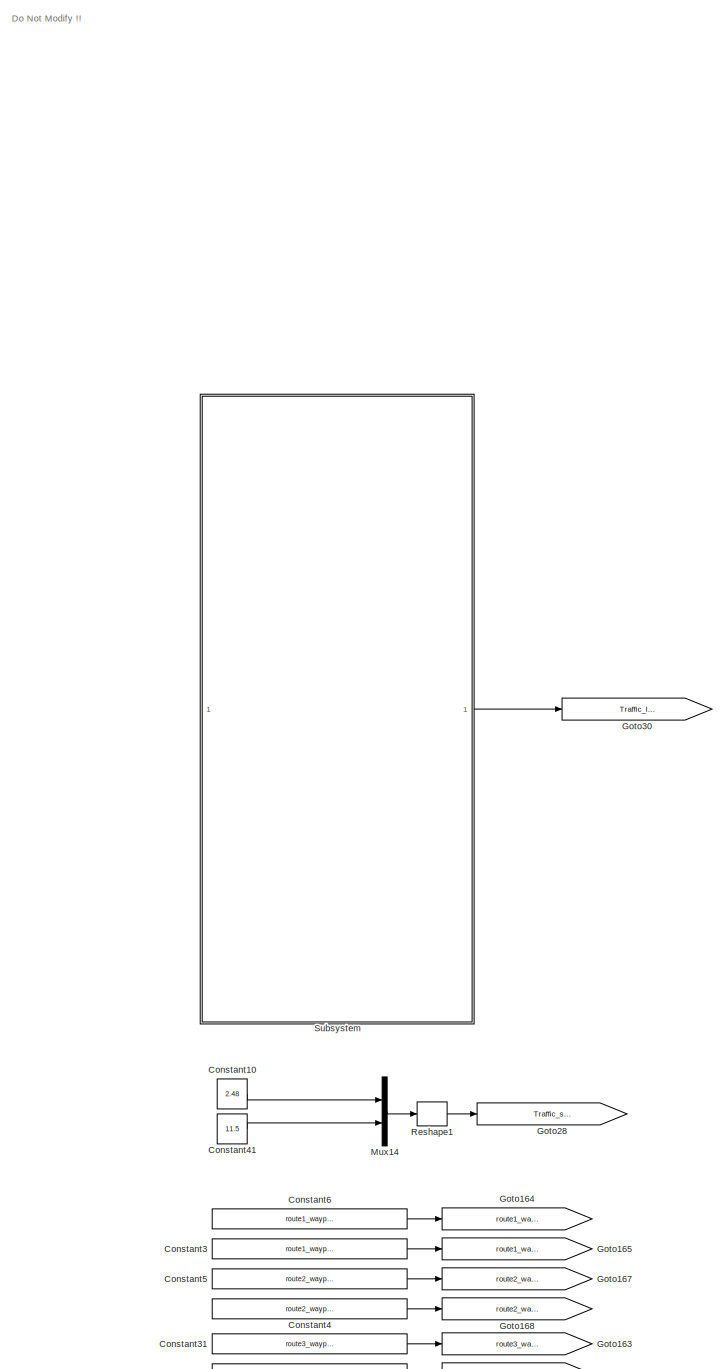
[diagram: CarMaker/Subsystem/Final Project/Scenario 1/Drive - part 3/12, top left region]
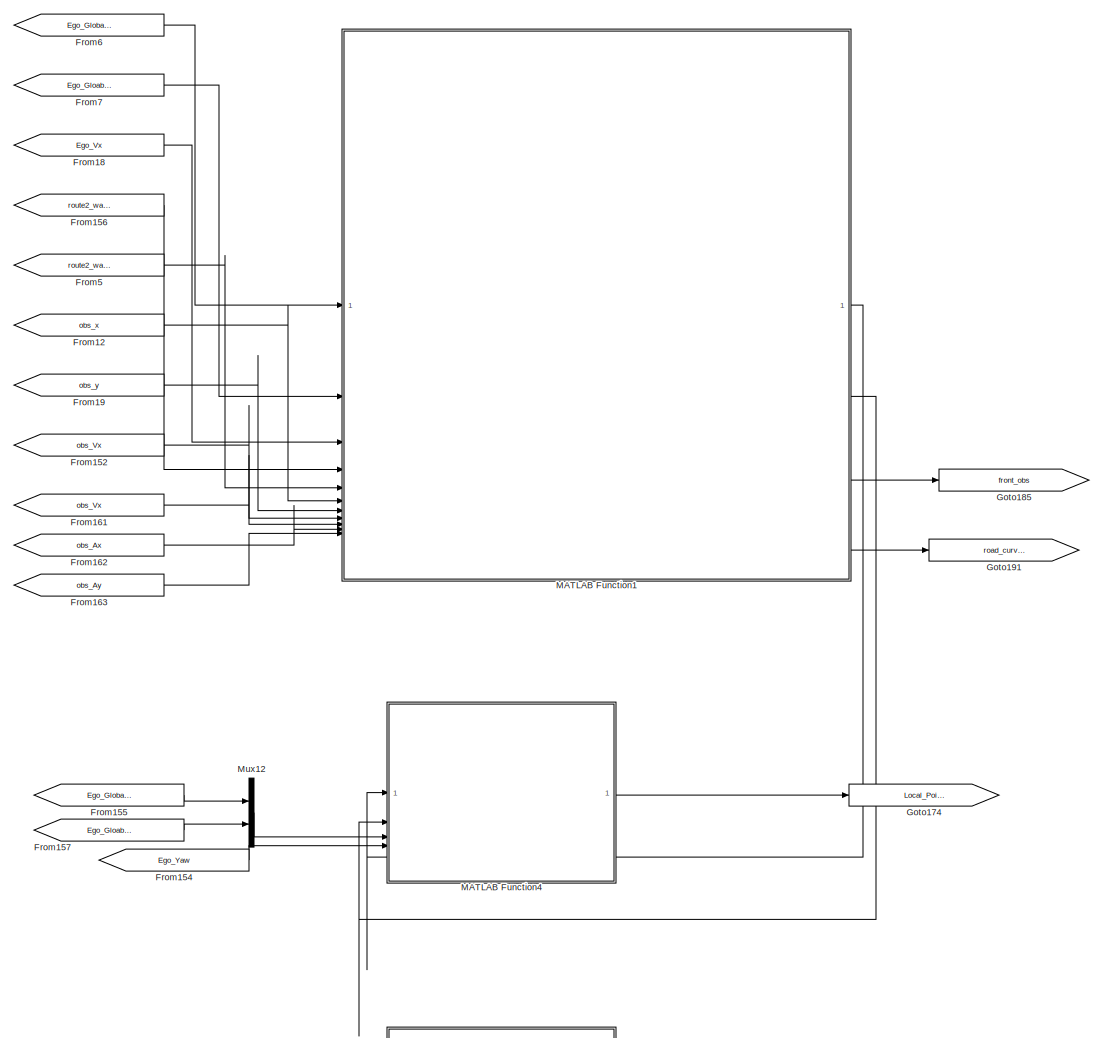
[diagram: CarMaker/Subsystem/Final Project/Scenario 1/Drive - part 4/12, top center region]
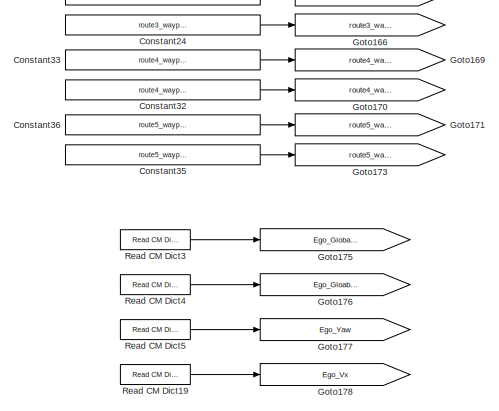
[diagram: CarMaker/Subsystem/Final Project/Scenario 1/Drive - part 5/12, middle left region]
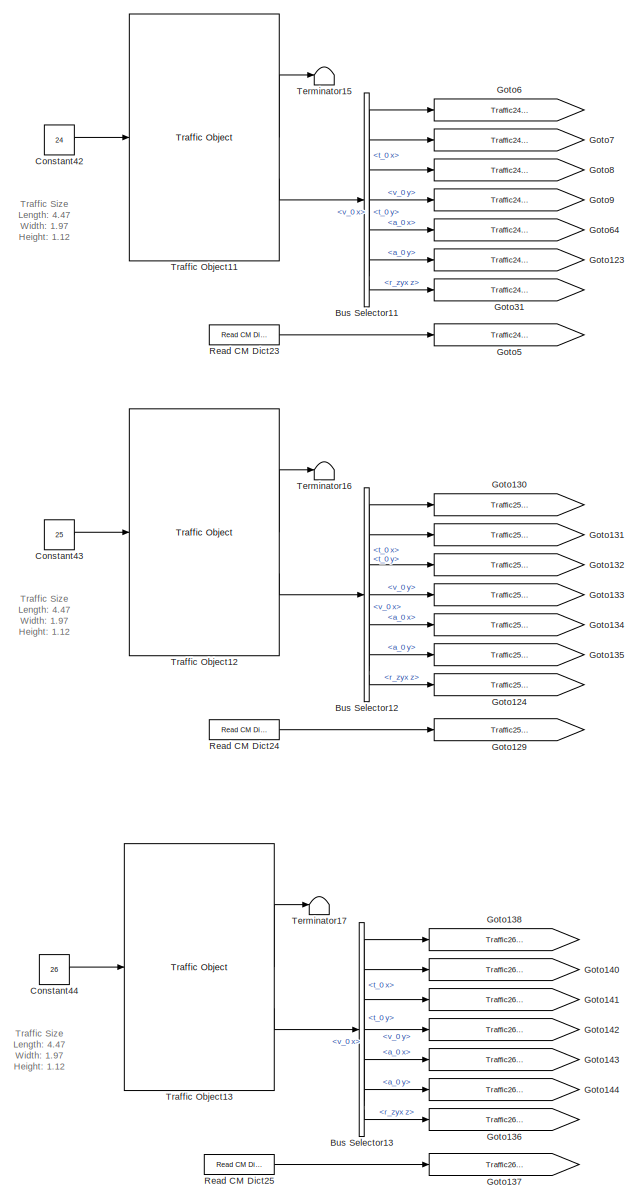
[diagram: CarMaker/Subsystem/Final Project/Scenario 1/Drive - part 6/12, central region]
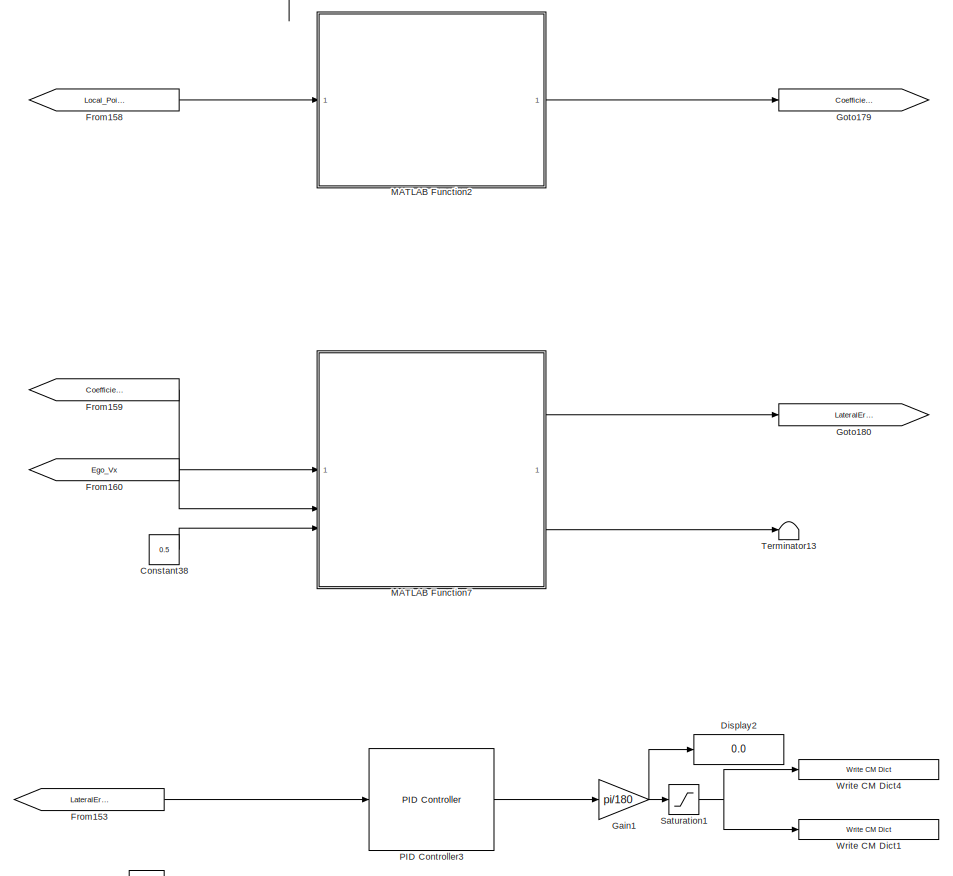
[diagram: CarMaker/Subsystem/Final Project/Scenario 1/Drive - part 7/12, central region]
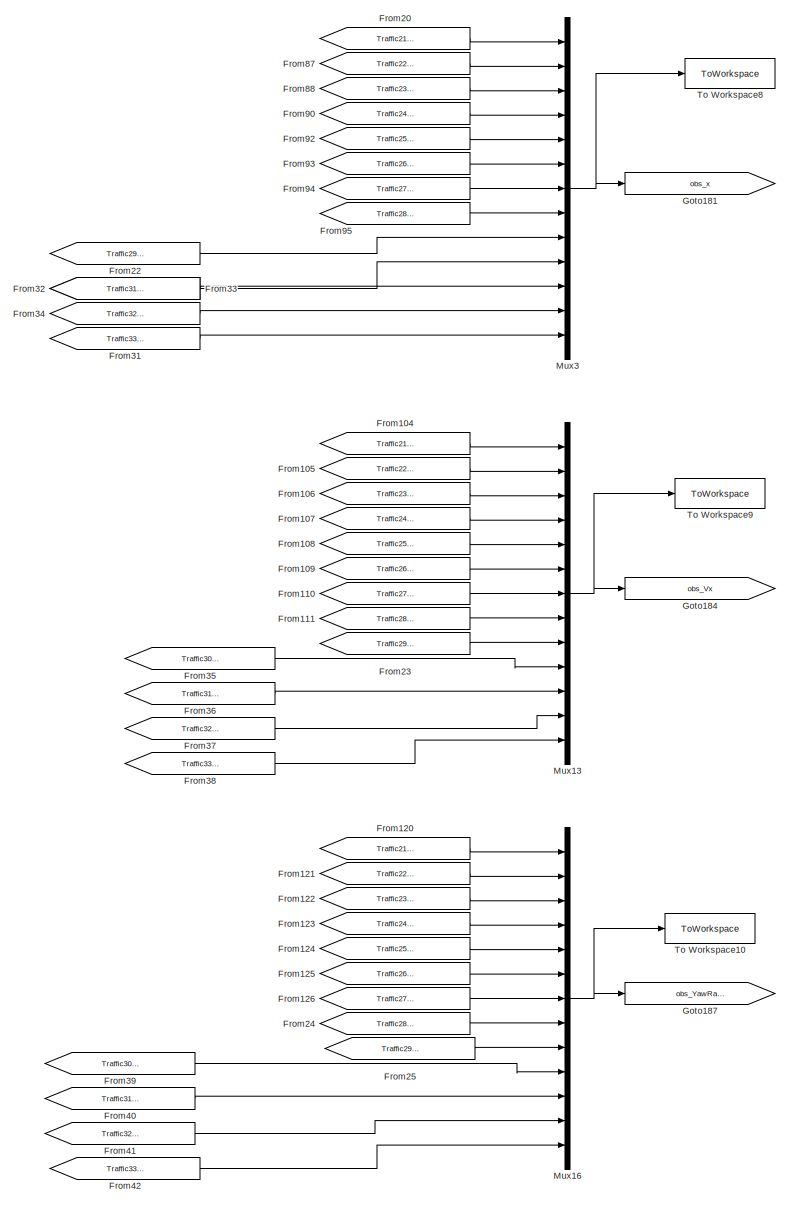
[diagram: CarMaker/Subsystem/Final Project/Scenario 1/Drive - part 8/12, middle left region]
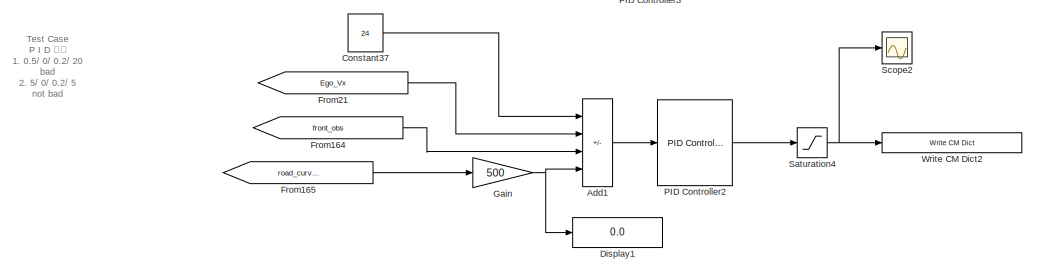
[diagram: CarMaker/Subsystem/Final Project/Scenario 1/Drive - part 9/12, central region]
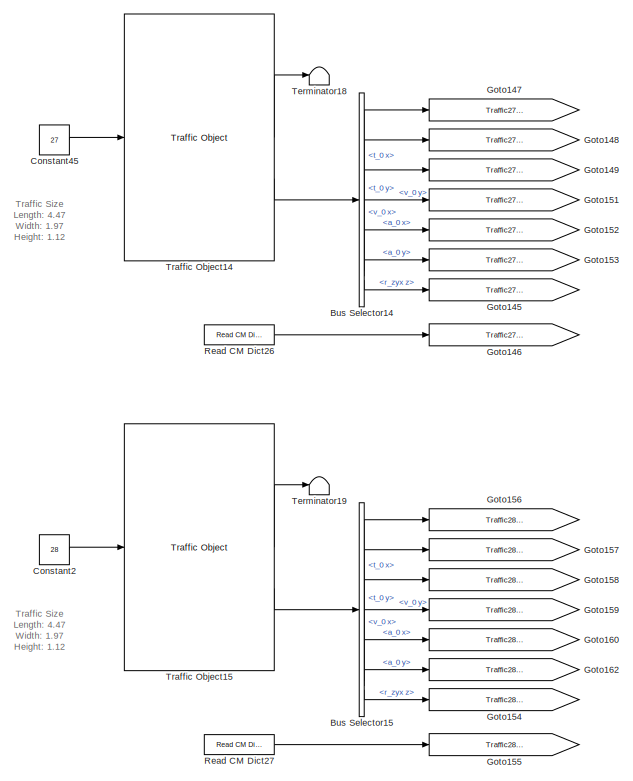
[diagram: CarMaker/Subsystem/Final Project/Scenario 1/Drive - part 10/12, central region]
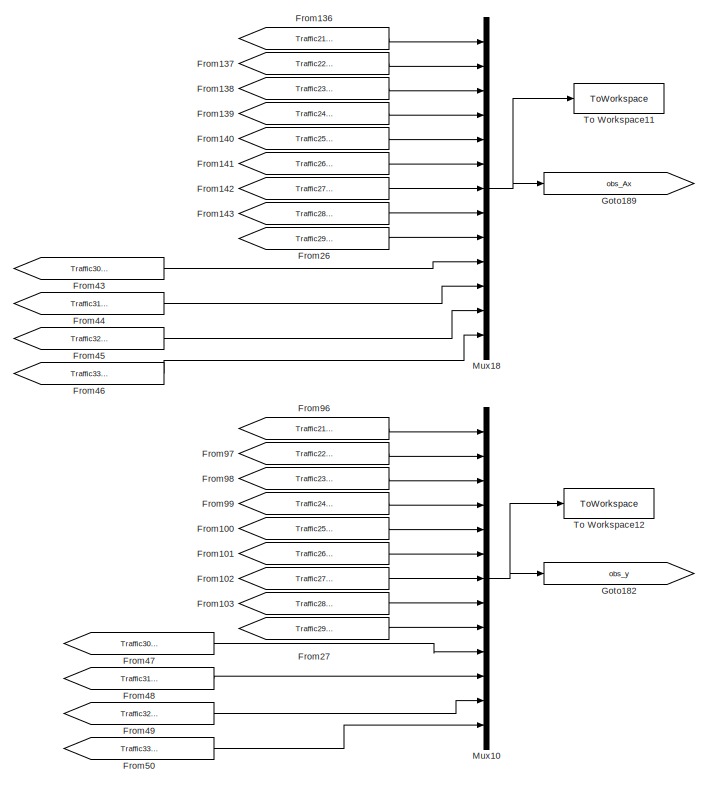
[diagram: CarMaker/Subsystem/Final Project/Scenario 1/Drive - part 11/12, bottom left region]
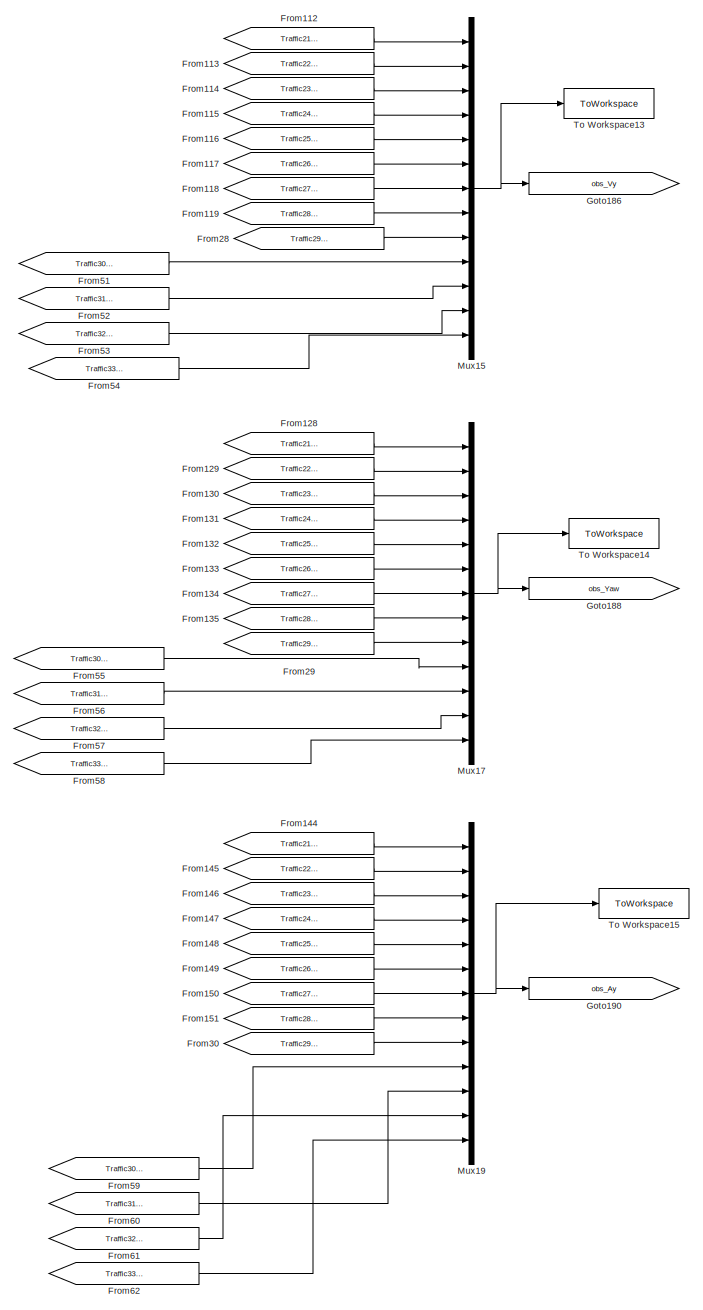
[diagram: CarMaker/Subsystem/Final Project/Scenario 1/Drive - part 12/12, bottom left region]
BLOCK [SubSystem] CarMaker/Subsystem/Final Project/Scenario 1/Drive
  TreatAsAtomicUnit = on
BLOCK [Sum] CarMaker/Subsystem/Final Project/Scenario 1/Drive/Add1
  IconShape = rectangular
  Inputs = +---
BLOCK [BusSelector] CarMaker/Subsystem/Final Project/Scenario 1/Drive/Bus Selector
  OutputSignals = t_0 x,t_0 y,v_0 x,v_0 y,a_0 x,a_0 y,r_zyx z
BLOCK [BusSelector] CarMaker/Subsystem/Final Project/Scenario 1/Drive/Bus Selector1
  OutputSignals = t_0 x,t_0 y,v_0 x,v_0 y,a_0 x,a_0 y,r_zyx z
BLOCK [BusSelector] CarMaker/Subsystem/Final Project/Scenario 1/Drive/Bus Selector11
  OutputSignals = t_0 x,t_0 y,v_0 x,v_0 y,a_0 x,a_0 y,r_zyx z
BLOCK [BusSelector] CarMaker/Subsystem/Final Project/Scenario 1/Drive/Bus Selector12
  OutputSignals = t_0 x,t_0 y,v_0 x,v_0 y,a_0 x,a_0 y,r_zyx z
BLOCK [BusSelector] CarMaker/Subsystem/Final Project/Scenario 1/Drive/Bus Selector13
  OutputSignals = t_0 x,t_0 y,v_0 x,v_0 y,a_0 x,a_0 y,r_zyx z
BLOCK [BusSelector] CarMaker/Subsystem/Final Project/Scenario 1/Drive/Bus Selector14
  OutputSignals = t_0 x,t_0 y,v_0 x,v_0 y,a_0 x,a_0 y,r_zyx z
BLOCK [BusSelector] CarMaker/Subsystem/Final Project/Scenario 1/Drive/Bus Selector15
  OutputSignals = t_0 x,t_0 y,v_0 x,v_0 y,a_0 x,a_0 y,r_zyx z
BLOCK [BusSelector] CarMaker/Subsystem/Final Project/Scenario 1/Drive/Bus Selector2
  OutputSignals = t_0 x,t_0 y,v_0 x,v_0 y,a_0 x,a_0 y,r_zyx z
BLOCK [Constant] CarMaker/Subsystem/Final Project/Scenario 1/Drive/Constant
  Value = 60/3.6
BLOCK [Constant] CarMaker/Subsystem/Final Project/Scenario 1/Drive/Constant1
  Value = 21
BLOCK [Constant] CarMaker/Subsystem/Final Project/Scenario 1/Drive/Constant10
  Value = 2.48
BLOCK [Constant] CarMaker/Subsystem/Final Project/Scenario 1/Drive/Constant2
  Value = 28
BLOCK [Constant] CarMaker/Subsystem/Final Project/Scenario 1/Drive/Constant24
  Value = route3_waypoint_y.Data
BLOCK [Constant] CarMaker/Subsystem/Final Project/Scenario 1/Drive/Constant3
  Value = route1_waypoint_y.Data
BLOCK [Constant] CarMaker/Subsystem/Final Project/Scenario 1/Drive/Constant31
  Value = route3_waypoint_x.Data
BLOCK [Constant] CarMaker/Subsystem/Final Project/Scenario 1/Drive/Constant32
  Value = route4_waypoint_y.Data
BLOCK [Constant] CarMaker/Subsystem/Final Project/Scenario 1/Drive/Constant33
  Value = route4_waypoint_x.Data
BLOCK [Constant] CarMaker/Subsystem/Final Project/Scenario 1/Drive/Constant34
  Value = 22
BLOCK [Constant] CarMaker/Subsystem/Final Project/Scenario 1/Drive/Constant35
  Value = route5_waypoint_y.Data
BLOCK [Constant] CarMaker/Subsystem/Final Project/Scenario 1/Drive/Constant36
  Value = route5_waypoint_x.Data
BLOCK [Constant] CarMaker/Subsystem/Final Project/Scenario 1/Drive/Constant37
  Value = 24
BLOCK [Constant] CarMaker/Subsystem/Final Project/Scenario 1/Drive/Constant38
  Value = 0.5
BLOCK [Constant] CarMaker/Subsystem/Final Project/Scenario 1/Drive/Constant39
  Value = 23
BLOCK [Constant] CarMaker/Subsystem/Final Project/Scenario 1/Drive/Constant4
  Value = route2_waypoint_y.Data
BLOCK [Constant] CarMaker/Subsystem/Final Project/Scenario 1/Drive/Constant41
  Value = 11.5
BLOCK [Constant] CarMaker/Subsystem/Final Project/Scenario 1/Drive/Constant42
  Value = 24
BLOCK [Constant] CarMaker/Subsystem/Final Project/Scenario 1/Drive/Constant43
  Value = 25
BLOCK [Constant] CarMaker/Subsystem/Final Project/Scenario 1/Drive/Constant44
  Value = 26
BLOCK [Constant] CarMaker/Subsystem/Final Project/Scenario 1/Drive/Constant45
  Value = 27
BLOCK [Constant] CarMaker/Subsystem/Final Project/Scenario 1/Drive/Constant5
  Value = route2_waypoint_x.Data
BLOCK [Constant] CarMaker/Subsystem/Final Project/Scenario 1/Drive/Constant6
  Value = route1_waypoint_x.Data
BLOCK [Display] CarMaker/Subsystem/Final Project/Scenario 1/Drive/Display1
  Decimation = 1
BLOCK [Display] CarMaker/Subsystem/Final Project/Scenario 1/Drive/Display2
  Decimation = 1
BLOCK [From] CarMaker/Subsystem/Final Project/Scenario 1/Drive/From100
  GotoTag = Traffic25_Global_Y
BLOCK [From] CarMaker/Subsystem/Final Project/Scenario 1/Drive/From101
  GotoTag = Traffic26_Global_Y
BLOCK [From] CarMaker/Subsystem/Final Project/Scenario 1/Drive/From102
  GotoTag = Traffic27_Global_Y
BLOCK [From] CarMaker/Subsystem/Final Project/Scenario 1/Drive/From103
  GotoTag = Traffic28_Global_Y
BLOCK [From] CarMaker/Subsystem/Final Project/Scenario 1/Drive/From104
  GotoTag = Traffic21_Vx
BLOCK [From] CarMaker/Subsystem/Final Project/Scenario 1/Drive/From105
  GotoTag = Traffic22_Vx
BLOCK [From] CarMaker/Subsystem/Final Project/Scenario 1/Drive/From106
  GotoTag = Traffic23_Vx
BLOCK [From] CarMaker/Subsystem/Final Project/Scenario 1/Drive/From107
  GotoTag = Traffic24_Vx
BLOCK [From] CarMaker/Subsystem/Final Project/Scenario 1/Drive/From108
  GotoTag = Traffic25_Vx
BLOCK [From] CarMaker/Subsystem/Final Project/Scenario 1/Drive/From109
  GotoTag = Traffic26_Vx
BLOCK [From] CarMaker/Subsystem/Final Project/Scenario 1/Drive/From110
  GotoTag = Traffic27_Vx
BLOCK [From] CarMaker/Subsystem/Final Project/Scenario 1/Drive/From111
  GotoTag = Traffic28_Vx
BLOCK [From] CarMaker/Subsystem/Final Project/Scenario 1/Drive/From112
  GotoTag = Traffic21_Vy
BLOCK [From] CarMaker/Subsystem/Final Project/Scenario 1/Drive/From113
  GotoTag = Traffic22_Vy
BLOCK [From] CarMaker/Subsystem/Final Project/Scenario 1/Drive/From114
  GotoTag = Traffic23_Vy
BLOCK [From] CarMaker/Subsystem/Final Project/Scenario 1/Drive/From115
  GotoTag = Traffic24_Vy
BLOCK [From] CarMaker/Subsystem/Final Project/Scenario 1/Drive/From116
  GotoTag = Traffic25_Vy
BLOCK [From] CarMaker/Subsystem/Final Project/Scenario 1/Drive/From117
  GotoTag = Traffic26_Vy
BLOCK [From] CarMaker/Subsystem/Final Project/Scenario 1/Drive/From118
  GotoTag = Traffic27_Vy
BLOCK [From] CarMaker/Subsystem/Final Project/Scenario 1/Drive/From119
  GotoTag = Traffic28_Vy
BLOCK [From] CarMaker/Subsystem/Final Project/Scenario 1/Drive/From12
  GotoTag = obs_x
BLOCK [From] CarMaker/Subsystem/Final Project/Scenario 1/Drive/From120
  GotoTag = Traffic21_YawRate
BLOCK [From] CarMaker/Subsystem/Final Project/Scenario 1/Drive/From121
  GotoTag = Traffic22_YawRate
BLOCK [From] CarMaker/Subsystem/Final Project/Scenario 1/Drive/From122
  GotoTag = Traffic23_YawRate
BLOCK [From] CarMaker/Subsystem/Final Project/Scenario 1/Drive/From123
  GotoTag = Traffic24_YawRate
BLOCK [From] CarMaker/Subsystem/Final Project/Scenario 1/Drive/From124
  GotoTag = Traffic25_YawRate
BLOCK [From] CarMaker/Subsystem/Final Project/Scenario 1/Drive/From125
  GotoTag = Traffic26_YawRate
BLOCK [From] CarMaker/Subsystem/Final Project/Scenario 1/Drive/From126
  GotoTag = Traffic27_YawRate
BLOCK [From] CarMaker/Subsystem/Final Project/Scenario 1/Drive/From128
  GotoTag = Traffic21_Yaw
BLOCK [From] CarMaker/Subsystem/Final Project/Scenario 1/Drive/From129
  GotoTag = Traffic22_Yaw
BLOCK [From] CarMaker/Subsystem/Final Project/Scenario 1/Drive/From130
  GotoTag = Traffic23_Yaw
BLOCK [From] CarMaker/Subsystem/Final Project/Scenario 1/Drive/From131
  GotoTag = Traffic24_Yaw
BLOCK [From] CarMaker/Subsystem/Final Project/Scenario 1/Drive/From132
  GotoTag = Traffic25_Yaw
BLOCK [From] CarMaker/Subsystem/Final Project/Scenario 1/Drive/From133
  GotoTag = Traffic26_Yaw
BLOCK [From] CarMaker/Subsystem/Final Project/Scenario 1/Drive/From134
  GotoTag = Traffic27_Yaw
BLOCK [From] CarMaker/Subsystem/Final Project/Scenario 1/Drive/From135
  GotoTag = Traffic28_Yaw
BLOCK [From] CarMaker/Subsystem/Final Project/Scenario 1/Drive/From136
  GotoTag = Traffic21_Ax
BLOCK [From] CarMaker/Subsystem/Final Project/Scenario 1/Drive/From137
  GotoTag = Traffic22_Ax
BLOCK [From] CarMaker/Subsystem/Final Project/Scenario 1/Drive/From138
  GotoTag = Traffic23_Ax
BLOCK [From] CarMaker/Subsystem/Final Project/Scenario 1/Drive/From139
  GotoTag = Traffic24_Ax
BLOCK [From] CarMaker/Subsystem/Final Project/Scenario 1/Drive/From140
  GotoTag = Traffic25_Ax
BLOCK [From] CarMaker/Subsystem/Final Project/Scenario 1/Drive/From141
  GotoTag = Traffic26_Ax
BLOCK [From] CarMaker/Subsystem/Final Project/Scenario 1/Drive/From142
  GotoTag = Traffic27_Ax
BLOCK [From] CarMaker/Subsystem/Final Project/Scenario 1/Drive/From143
  GotoTag = Traffic28_Ax
BLOCK [From] CarMaker/Subsystem/Final Project/Scenario 1/Drive/From144
  GotoTag = Traffic21_Ay
BLOCK [From] CarMaker/Subsystem/Final Project/Scenario 1/Drive/From145
  GotoTag = Traffic22_Ay
BLOCK [From] CarMaker/Subsystem/Final Project/Scenario 1/Drive/From146
  GotoTag = Traffic23_Ay
BLOCK [From] CarMaker/Subsystem/Final Project/Scenario 1/Drive/From147
  GotoTag = Traffic24_Ay
BLOCK [From] CarMaker/Subsystem/Final Project/Scenario 1/Drive/From148
  GotoTag = Traffic25_Ay
BLOCK [From] CarMaker/Subsystem/Final Project/Scenario 1/Drive/From149
  GotoTag = Traffic26_Ay
BLOCK [From] CarMaker/Subsystem/Final Project/Scenario 1/Drive/From150
  GotoTag = Traffic27_Ay
BLOCK [From] CarMaker/Subsystem/Final Project/Scenario 1/Drive/From151
  GotoTag = Traffic28_Ay
BLOCK [From] CarMaker/Subsystem/Final Project/Scenario 1/Drive/From152
  GotoTag = obs_Vx
BLOCK [From] CarMaker/Subsystem/Final Project/Scenario 1/Drive/From153
  GotoTag = LateralError
BLOCK [From] CarMaker/Subsystem/Final Project/Scenario 1/Drive/From154
  GotoTag = Ego_Yaw
BLOCK [From] CarMaker/Subsystem/Final Project/Scenario 1/Drive/From155
  GotoTag = Ego_Global_X
BLOCK [From] CarMaker/Subsystem/Final Project/Scenario 1/Drive/From156
  GotoTag = route2_waypoint_x
BLOCK [From] CarMaker/Subsystem/Final Project/Scenario 1/Drive/From157
  GotoTag = Ego_Gloabl_Y
BLOCK [From] CarMaker/Subsystem/Final Project/Scenario 1/Drive/From158
  GotoTag = Local_Points
BLOCK [From] CarMaker/Subsystem/Final Project/Scenario 1/Drive/From159
  GotoTag = Coefficients
BLOCK [From] CarMaker/Subsystem/Final Project/Scenario 1/Drive/From160
  GotoTag = Ego_Vx
BLOCK [From] CarMaker/Subsystem/Final Project/Scenario 1/Drive/From161
  GotoTag = obs_Vx
BLOCK [From] CarMaker/Subsystem/Final Project/Scenario 1/Drive/From162
  GotoTag = obs_Ax
BLOCK [From] CarMaker/Subsystem/Final Project/Scenario 1/Drive/From163
  GotoTag = obs_Ay
BLOCK [From] CarMaker/Subsystem/Final Project/Scenario 1/Drive/From164
  GotoTag = front_obs
BLOCK [From] CarMaker/Subsystem/Final Project/Scenario 1/Drive/From165
  GotoTag = road_curvature
BLOCK [From] CarMaker/Subsystem/Final Project/Scenario 1/Drive/From18
  GotoTag = Ego_Vx
BLOCK [From] CarMaker/Subsystem/Final Project/Scenario 1/Drive/From19
  GotoTag = obs_y
BLOCK [From] CarMaker/Subsystem/Final Project/Scenario 1/Drive/From20
  GotoTag = Traffic21_Global_X
BLOCK [From] CarMaker/Subsystem/Final Project/Scenario 1/Drive/From21
  GotoTag = Ego_Vx
BLOCK [From] CarMaker/Subsystem/Final Project/Scenario 1/Drive/From22
  GotoTag = Traffic29_Global_X
BLOCK [From] CarMaker/Subsystem/Final Project/Scenario 1/Drive/From23
  GotoTag = Traffic29_Vx
BLOCK [From] CarMaker/Subsystem/Final Project/Scenario 1/Drive/From24
  GotoTag = Traffic28_YawRate
BLOCK [From] CarMaker/Subsystem/Final Project/Scenario 1/Drive/From25
  GotoTag = Traffic29_YawRate
BLOCK [From] CarMaker/Subsystem/Final Project/Scenario 1/Drive/From26
  GotoTag = Traffic29_Ax
BLOCK [From] CarMaker/Subsystem/Final Project/Scenario 1/Drive/From27
  GotoTag = Traffic29_Global_Y
BLOCK [From] CarMaker/Subsystem/Final Project/Scenario 1/Drive/From28
  GotoTag = Traffic29_Vy
BLOCK [From] CarMaker/Subsystem/Final Project/Scenario 1/Drive/From29
  GotoTag = Traffic29_Yaw
BLOCK [From] CarMaker/Subsystem/Final Project/Scenario 1/Drive/From30
  GotoTag = Traffic29_Ay
BLOCK [From] CarMaker/Subsystem/Final Project/Scenario 1/Drive/From31
  GotoTag = Traffic33_Global_X
BLOCK [From] CarMaker/Subsystem/Final Project/Scenario 1/Drive/From32
  GotoTag = Traffic30_Global_X
BLOCK [From] CarMaker/Subsystem/Final Project/Scenario 1/Drive/From33
  GotoTag = Traffic31_Global_X
BLOCK [From] CarMaker/Subsystem/Final Project/Scenario 1/Drive/From34
  GotoTag = Traffic32_Global_X
BLOCK [From] CarMaker/Subsystem/Final Project/Scenario 1/Drive/From35
  GotoTag = Traffic30_Vx
BLOCK [From] CarMaker/Subsystem/Final Project/Scenario 1/Drive/From36
  GotoTag = Traffic31_Vx
BLOCK [From] CarMaker/Subsystem/Final Project/Scenario 1/Drive/From37
  GotoTag = Traffic32_Vx
BLOCK [From] CarMaker/Subsystem/Final Project/Scenario 1/Drive/From38
  GotoTag = Traffic33_Vx
BLOCK [From] CarMaker/Subsystem/Final Project/Scenario 1/Drive/From39
  GotoTag = Traffic30_YawRate
BLOCK [From] CarMaker/Subsystem/Final Project/Scenario 1/Drive/From40
  GotoTag = Traffic31_YawRate
BLOCK [From] CarMaker/Subsystem/Final Project/Scenario 1/Drive/From41
  GotoTag = Traffic32_YawRate
BLOCK [From] CarMaker/Subsystem/Final Project/Scenario 1/Drive/From42
  GotoTag = Traffic33_YawRate
BLOCK [From] CarMaker/Subsystem/Final Project/Scenario 1/Drive/From43
  GotoTag = Traffic30_Ax
BLOCK [From] CarMaker/Subsystem/Final Project/Scenario 1/Drive/From44
  GotoTag = Traffic31_Ax
BLOCK [From] CarMaker/Subsystem/Final Project/Scenario 1/Drive/From45
  GotoTag = Traffic32_Ax
BLOCK [From] CarMaker/Subsystem/Final Project/Scenario 1/Drive/From46
  GotoTag = Traffic33_Ax
BLOCK [From] CarMaker/Subsystem/Final Project/Scenario 1/Drive/From47
  GotoTag = Traffic30_Global_Y
BLOCK [From] CarMaker/Subsystem/Final Project/Scenario 1/Drive/From48
  GotoTag = Traffic31_Global_Y
BLOCK [From] CarMaker/Subsystem/Final Project/Scenario 1/Drive/From49
  GotoTag = Traffic32_Global_Y
BLOCK [From] CarMaker/Subsystem/Final Project/Scenario 1/Drive/From5
  GotoTag = route2_waypoint_y
BLOCK [From] CarMaker/Subsystem/Final Project/Scenario 1/Drive/From50
  GotoTag = Traffic33_Global_Y
BLOCK [From] CarMaker/Subsystem/Final Project/Scenario 1/Drive/From51
  GotoTag = Traffic30_Vy
BLOCK [From] CarMaker/Subsystem/Final Project/Scenario 1/Drive/From52
  GotoTag = Traffic31_Vy
BLOCK [From] CarMaker/Subsystem/Final Project/Scenario 1/Drive/From53
  GotoTag = Traffic32_Vy
BLOCK [From] CarMaker/Subsystem/Final Project/Scenario 1/Drive/From54
  GotoTag = Traffic33_Vy
BLOCK [From] CarMaker/Subsystem/Final Project/Scenario 1/Drive/From55
  GotoTag = Traffic30_Yaw
BLOCK [From] CarMaker/Subsystem/Final Project/Scenario 1/Drive/From56
  GotoTag = Traffic31_Yaw
BLOCK [From] CarMaker/Subsystem/Final Project/Scenario 1/Drive/From57
  GotoTag = Traffic32_Yaw
BLOCK [From] CarMaker/Subsystem/Final Project/Scenario 1/Drive/From58
  GotoTag = Traffic33_Yaw
BLOCK [From] CarMaker/Subsystem/Final Project/Scenario 1/Drive/From59
  GotoTag = Traffic30_Ay
BLOCK [From] CarMaker/Subsystem/Final Project/Scenario 1/Drive/From6
  GotoTag = Ego_Global_X
BLOCK [From] CarMaker/Subsystem/Final Project/Scenario 1/Drive/From60
  GotoTag = Traffic31_Ay
BLOCK [From] CarMaker/Subsystem/Final Project/Scenario 1/Drive/From61
  GotoTag = Traffic32_Ay
BLOCK [From] CarMaker/Subsystem/Final Project/Scenario 1/Drive/From62
  GotoTag = Traffic33_Ay
BLOCK [From] CarMaker/Subsystem/Final Project/Scenario 1/Drive/From7
  GotoTag = Ego_Gloabl_Y
BLOCK [From] CarMaker/Subsystem/Final Project/Scenario 1/Drive/From87
  GotoTag = Traffic22_Global_X
BLOCK [From] CarMaker/Subsystem/Final Project/Scenario 1/Drive/From88
  GotoTag = Traffic23_Global_X
BLOCK [From] CarMaker/Subsystem/Final Project/Scenario 1/Drive/From90
  GotoTag = Traffic24_Global_X
BLOCK [From] CarMaker/Subsystem/Final Project/Scenario 1/Drive/From92
  GotoTag = Traffic25_Global_X
BLOCK [From] CarMaker/Subsystem/Final Project/Scenario 1/Drive/From93
  GotoTag = Traffic26_Global_X
BLOCK [From] CarMaker/Subsystem/Final Project/Scenario 1/Drive/From94
  GotoTag = Traffic27_Global_X
BLOCK [From] CarMaker/Subsystem/Final Project/Scenario 1/Drive/From95
  GotoTag = Traffic28_Global_X
BLOCK [From] CarMaker/Subsystem/Final Project/Scenario 1/Drive/From96
  GotoTag = Traffic21_Global_Y
BLOCK [From] CarMaker/Subsystem/Final Project/Scenario 1/Drive/From97
  GotoTag = Traffic22_Global_Y
BLOCK [From] CarMaker/Subsystem/Final Project/Scenario 1/Drive/From98
  GotoTag = Traffic23_Global_Y
BLOCK [From] CarMaker/Subsystem/Final Project/Scenario 1/Drive/From99
  GotoTag = Traffic24_Global_Y
BLOCK [Gain] CarMaker/Subsystem/Final Project/Scenario 1/Drive/Gain
  Gain = 500
BLOCK [Gain] CarMaker/Subsystem/Final Project/Scenario 1/Drive/Gain1
  Gain = pi/180
BLOCK [Goto] CarMaker/Subsystem/Final Project/Scenario 1/Drive/Goto10
  GotoTag = Traffic21_Yaw
BLOCK [Goto] CarMaker/Subsystem/Final Project/Scenario 1/Drive/Goto11
  GotoTag = Traffic22_Yaw
BLOCK [Goto] CarMaker/Subsystem/Final Project/Scenario 1/Drive/Goto12
  GotoTag = Traffic22_YawRate
BLOCK [Goto] CarMaker/Subsystem/Final Project/Scenario 1/Drive/Goto123
  GotoTag = Traffic24_Ay
BLOCK [Goto] CarMaker/Subsystem/Final Project/Scenario 1/Drive/Goto124
  GotoTag = Traffic25_Yaw
BLOCK [Goto] CarMaker/Subsystem/Final Project/Scenario 1/Drive/Goto125
  GotoTag = Target_Speed
BLOCK [Goto] CarMaker/Subsystem/Final Project/Scenario 1/Drive/Goto129
  GotoTag = Traffic25_YawRate
BLOCK [Goto] CarMaker/Subsystem/Final Project/Scenario 1/Drive/Goto13
  GotoTag = Traffic22_Global_X
BLOCK [Goto] CarMaker/Subsystem/Final Project/Scenario 1/Drive/Goto130
  GotoTag = Traffic25_Global_X
BLOCK [Goto] CarMaker/Subsystem/Final Project/Scenario 1/Drive/Goto131
  GotoTag = Traffic25_Global_Y
BLOCK [Goto] CarMaker/Subsystem/Final Project/Scenario 1/Drive/Goto132
  GotoTag = Traffic25_Vx
BLOCK [Goto] CarMaker/Subsystem/Final Project/Scenario 1/Drive/Goto133
  GotoTag = Traffic25_Vy
BLOCK [Goto] CarMaker/Subsystem/Final Project/Scenario 1/Drive/Goto134
  GotoTag = Traffic25_Ax
BLOCK [Goto] CarMaker/Subsystem/Final Project/Scenario 1/Drive/Goto135
  GotoTag = Traffic25_Ay
BLOCK [Goto] CarMaker/Subsystem/Final Project/Scenario 1/Drive/Goto136
  GotoTag = Traffic26_Yaw
BLOCK [Goto] CarMaker/Subsystem/Final Project/Scenario 1/Drive/Goto137
  GotoTag = Traffic26_YawRate
BLOCK [Goto] CarMaker/Subsystem/Final Project/Scenario 1/Drive/Goto138
  GotoTag = Traffic26_Global_X
BLOCK [Goto] CarMaker/Subsystem/Final Project/Scenario 1/Drive/Goto139
  GotoTag = Traffic21_Global_Y
BLOCK [Goto] CarMaker/Subsystem/Final Project/Scenario 1/Drive/Goto14
  GotoTag = Traffic22_Global_Y
BLOCK [Goto] CarMaker/Subsystem/Final Project/Scenario 1/Drive/Goto140
  GotoTag = Traffic26_Global_Y
BLOCK [Goto] CarMaker/Subsystem/Final Project/Scenario 1/Drive/Goto141
  GotoTag = Traffic26_Vx
BLOCK [Goto] CarMaker/Subsystem/Final Project/Scenario 1/Drive/Goto142
  GotoTag = Traffic26_Vy
BLOCK [Goto] CarMaker/Subsystem/Final Project/Scenario 1/Drive/Goto143
  GotoTag = Traffic26_Ax
BLOCK [Goto] CarMaker/Subsystem/Final Project/Scenario 1/Drive/Goto144
  GotoTag = Traffic26_Ay
BLOCK [Goto] CarMaker/Subsystem/Final Project/Scenario 1/Drive/Goto145
  GotoTag = Traffic27_Yaw
BLOCK [Goto] CarMaker/Subsystem/Final Project/Scenario 1/Drive/Goto146
  GotoTag = Traffic27_YawRate
BLOCK [Goto] CarMaker/Subsystem/Final Project/Scenario 1/Drive/Goto147
  GotoTag = Traffic27_Global_X
BLOCK [Goto] CarMaker/Subsystem/Final Project/Scenario 1/Drive/Goto148
  GotoTag = Traffic27_Global_Y
BLOCK [Goto] CarMaker/Subsystem/Final Project/Scenario 1/Drive/Goto149
  GotoTag = Traffic27_Vx
BLOCK [Goto] CarMaker/Subsystem/Final Project/Scenario 1/Drive/Goto15
  GotoTag = Traffic22_Vx
BLOCK [Goto] CarMaker/Subsystem/Final Project/Scenario 1/Drive/Goto150
  GotoTag = Traffic21_Vx
BLOCK [Goto] CarMaker/Subsystem/Final Project/Scenario 1/Drive/Goto151
  GotoTag = Traffic27_Vy
BLOCK [Goto] CarMaker/Subsystem/Final Project/Scenario 1/Drive/Goto152
  GotoTag = Traffic27_Ax
BLOCK [Goto] CarMaker/Subsystem/Final Project/Scenario 1/Drive/Goto153
  GotoTag = Traffic27_Ay
BLOCK [Goto] CarMaker/Subsystem/Final Project/Scenario 1/Drive/Goto154
  GotoTag = Traffic28_Yaw
BLOCK [Goto] CarMaker/Subsystem/Final Project/Scenario 1/Drive/Goto155
  GotoTag = Traffic28_YawRate
BLOCK [Goto] CarMaker/Subsystem/Final Project/Scenario 1/Drive/Goto156
  GotoTag = Traffic28_Global_X
BLOCK [Goto] CarMaker/Subsystem/Final Project/Scenario 1/Drive/Goto157
  GotoTag = Traffic28_Global_Y
BLOCK [Goto] CarMaker/Subsystem/Final Project/Scenario 1/Drive/Goto158
  GotoTag = Traffic28_Vx
BLOCK [Goto] CarMaker/Subsystem/Final Project/Scenario 1/Drive/Goto159
  GotoTag = Traffic28_Vy
BLOCK [Goto] CarMaker/Subsystem/Final Project/Scenario 1/Drive/Goto16
  GotoTag = Traffic22_Vy
BLOCK [Goto] CarMaker/Subsystem/Final Project/Scenario 1/Drive/Goto160
  GotoTag = Traffic28_Ax
BLOCK [Goto] CarMaker/Subsystem/Final Project/Scenario 1/Drive/Goto161
  GotoTag = Traffic21_Vy
BLOCK [Goto] CarMaker/Subsystem/Final Project/Scenario 1/Drive/Goto162
  GotoTag = Traffic28_Ay
BLOCK [Goto] CarMaker/Subsystem/Final Project/Scenario 1/Drive/Goto163
  GotoTag = route3_waypoint_x
BLOCK [Goto] CarMaker/Subsystem/Final Project/Scenario 1/Drive/Goto164
  GotoTag = route1_waypoint_x
BLOCK [Goto] CarMaker/Subsystem/Final Project/Scenario 1/Drive/Goto165
  GotoTag = route1_waypoint_y
BLOCK [Goto] CarMaker/Subsystem/Final Project/Scenario 1/Drive/Goto166
  GotoTag = route3_waypoint_y
BLOCK [Goto] CarMaker/Subsystem/Final Project/Scenario 1/Drive/Goto167
  GotoTag = route2_waypoint_x
BLOCK [Goto] CarMaker/Subsystem/Final Project/Scenario 1/Drive/Goto168
  GotoTag = route2_waypoint_y
BLOCK [Goto] CarMaker/Subsystem/Final Project/Scenario 1/Drive/Goto169
  GotoTag = route4_waypoint_x
BLOCK [Goto] CarMaker/Subsystem/Final Project/Scenario 1/Drive/Goto17
  GotoTag = Traffic22_Ax
BLOCK [Goto] CarMaker/Subsystem/Final Project/Scenario 1/Drive/Goto170
  GotoTag = route4_waypoint_y
BLOCK [Goto] CarMaker/Subsystem/Final Project/Scenario 1/Drive/Goto171
  GotoTag = route5_waypoint_x
BLOCK [Goto] CarMaker/Subsystem/Final Project/Scenario 1/Drive/Goto172
  GotoTag = Traffic21_Ax
BLOCK [Goto] CarMaker/Subsystem/Final Project/Scenario 1/Drive/Goto173
  GotoTag = route5_waypoint_y
BLOCK [Goto] CarMaker/Subsystem/Final Project/Scenario 1/Drive/Goto174
  GotoTag = Local_Points
BLOCK [Goto] CarMaker/Subsystem/Final Project/Scenario 1/Drive/Goto175
  GotoTag = Ego_Global_X
BLOCK [Goto] CarMaker/Subsystem/Final Project/Scenario 1/Drive/Goto176
  GotoTag = Ego_Gloabl_Y
BLOCK [Goto] CarMaker/Subsystem/Final Project/Scenario 1/Drive/Goto177
  GotoTag = Ego_Yaw
BLOCK [Goto] CarMaker/Subsystem/Final Project/Scenario 1/Drive/Goto178
  GotoTag = Ego_Vx
BLOCK [Goto] CarMaker/Subsystem/Final Project/Scenario 1/Drive/Goto179
  GotoTag = Coefficients
BLOCK [Goto] CarMaker/Subsystem/Final Project/Scenario 1/Drive/Goto18
  GotoTag = Traffic22_Ay
BLOCK [Goto] CarMaker/Subsystem/Final Project/Scenario 1/Drive/Goto180
  GotoTag = LateralError
BLOCK [Goto] CarMaker/Subsystem/Final Project/Scenario 1/Drive/Goto181
  GotoTag = obs_x
BLOCK [Goto] CarMaker/Subsystem/Final Project/Scenario 1/Drive/Goto182
  GotoTag = obs_y
BLOCK [Goto] CarMaker/Subsystem/Final Project/Scenario 1/Drive/Goto183
  GotoTag = Traffic21_Ay
BLOCK [Goto] CarMaker/Subsystem/Final Project/Scenario 1/Drive/Goto184
  GotoTag = obs_Vx
BLOCK [Goto] CarMaker/Subsystem/Final Project/Scenario 1/Drive/Goto185
  GotoTag = front_obs
BLOCK [Goto] CarMaker/Subsystem/Final Project/Scenario 1/Drive/Goto186
  GotoTag = obs_Vy
BLOCK [Goto] CarMaker/Subsystem/Final Project/Scenario 1/Drive/Goto187
  GotoTag = obs_YawRate
BLOCK [Goto] CarMaker/Subsystem/Final Project/Scenario 1/Drive/Goto188
  GotoTag = obs_Yaw
BLOCK [Goto] CarMaker/Subsystem/Final Project/Scenario 1/Drive/Goto189
  GotoTag = obs_Ax
BLOCK [Goto] CarMaker/Subsystem/Final Project/Scenario 1/Drive/Goto19
  GotoTag = Traffic23_Yaw
BLOCK [Goto] CarMaker/Subsystem/Final Project/Scenario 1/Drive/Goto190
  GotoTag = obs_Ay
BLOCK [Goto] CarMaker/Subsystem/Final Project/Scenario 1/Drive/Goto191
  GotoTag = road_curvature
BLOCK [Goto] CarMaker/Subsystem/Final Project/Scenario 1/Drive/Goto2
  GotoTag = CrossTrackError
BLOCK [Goto] CarMaker/Subsystem/Final Project/Scenario 1/Drive/Goto20
  GotoTag = Traffic23_YawRate
BLOCK [Goto] CarMaker/Subsystem/Final Project/Scenario 1/Drive/Goto21
  GotoTag = Traffic23_Global_X
BLOCK [Goto] CarMaker/Subsystem/Final Project/Scenario 1/Drive/Goto22
  GotoTag = Traffic23_Global_Y
BLOCK [Goto] CarMaker/Subsystem/Final Project/Scenario 1/Drive/Goto23
  GotoTag = Traffic23_Vx
BLOCK [Goto] CarMaker/Subsystem/Final Project/Scenario 1/Drive/Goto24
  GotoTag = Traffic23_Vy
BLOCK [Goto] CarMaker/Subsystem/Final Project/Scenario 1/Drive/Goto25
  GotoTag = Traffic23_Ax
BLOCK [Goto] CarMaker/Subsystem/Final Project/Scenario 1/Drive/Goto26
  GotoTag = Traffic23_Ay
BLOCK [Goto] CarMaker/Subsystem/Final Project/Scenario 1/Drive/Goto28
  GotoTag = Traffic_size
BLOCK [Goto] CarMaker/Subsystem/Final Project/Scenario 1/Drive/Goto3
  GotoTag = Traffic21_YawRate
BLOCK [Goto] CarMaker/Subsystem/Final Project/Scenario 1/Drive/Goto30
  GotoTag = Traffic_Info
BLOCK [Goto] CarMaker/Subsystem/Final Project/Scenario 1/Drive/Goto31
  GotoTag = Traffic24_Yaw
BLOCK [Goto] CarMaker/Subsystem/Final Project/Scenario 1/Drive/Goto4
  GotoTag = Traffic21_Global_X
BLOCK [Goto] CarMaker/Subsystem/Final Project/Scenario 1/Drive/Goto5
  GotoTag = Traffic24_YawRate
BLOCK [Goto] CarMaker/Subsystem/Final Project/Scenario 1/Drive/Goto6
  GotoTag = Traffic24_Global_X
BLOCK [Goto] CarMaker/Subsystem/Final Project/Scenario 1/Drive/Goto64
  GotoTag = Traffic24_Ax
BLOCK [Goto] CarMaker/Subsystem/Final Project/Scenario 1/Drive/Goto7
  GotoTag = Traffic24_Global_Y
BLOCK [Goto] CarMaker/Subsystem/Final Project/Scenario 1/Drive/Goto8
  GotoTag = Traffic24_Vx
BLOCK [Goto] CarMaker/Subsystem/Final Project/Scenario 1/Drive/Goto9
  GotoTag = Traffic24_Vy
BLOCK [SubSystem] CarMaker/Subsystem/Final Project/Scenario 1/Drive/MATLAB Function1
  ErrorFcn = Stateflow.Translate.translate
  PermitHierarchicalResolution = ExplicitOnly
  SFBlockType = MATLAB Function
  TreatAsAtomicUnit = on
BLOCK [Demux] CarMaker/Subsystem/Final Project/Scenario 1/Drive/MATLAB Function1/ Demux 
  Outputs = 1
BLOCK [S-Function] CarMaker/Subsystem/Final Project/Scenario 1/Drive/MATLAB Function1/ SFunction 
  EnableBusSupport = on
  FunctionName = sf_sfun
  PortCounts = [11 9]
  SFcnIsStateOwnerBlock = off
  SFunctionDeploymentMode = off
  Tag = Stateflow S-Function 2
BLOCK [Terminator] CarMaker/Subsystem/Final Project/Scenario 1/Drive/MATLAB Function1/ Terminator 
BLOCK [Outport] CarMaker/Subsystem/Final Project/Scenario 1/Drive/MATLAB Function1/front_obstacle_flag
  Port = 7
BLOCK [Inport] CarMaker/Subsystem/Final Project/Scenario 1/Drive/MATLAB Function1/map_x
  Port = 4
BLOCK [Inport] CarMaker/Subsystem/Final Project/Scenario 1/Drive/MATLAB Function1/map_y
  Port = 5
BLOCK [Inport] CarMaker/Subsystem/Final Project/Scenario 1/Drive/MATLAB Function1/obs_Vx
  Port = 8
BLOCK [Inport] CarMaker/Subsystem/Final Project/Scenario 1/Drive/MATLAB Function1/obs_Vy
  Port = 9
BLOCK [Inport] CarMaker/Subsystem/Final Project/Scenario 1/Drive/MATLAB Function1/obs_ax
  Port = 10
BLOCK [Inport] CarMaker/Subsystem/Final Project/Scenario 1/Drive/MATLAB Function1/obs_ay
  Port = 11
BLOCK [Inport] CarMaker/Subsystem/Final Project/Scenario 1/Drive/MATLAB Function1/obs_x
  Port = 6
BLOCK [Inport] CarMaker/Subsystem/Final Project/Scenario 1/Drive/MATLAB Function1/obs_y
  Port = 7
BLOCK [Outport] CarMaker/Subsystem/Final Project/Scenario 1/Drive/MATLAB Function1/predicted_traj_x
  Port = 5
BLOCK [Outport] CarMaker/Subsystem/Final Project/Scenario 1/Drive/MATLAB Function1/predicted_traj_y
  Port = 6
BLOCK [Outport] CarMaker/Subsystem/Final Project/Scenario 1/Drive/MATLAB Function1/road_curvature
  Port = 8
BLOCK [Inport] CarMaker/Subsystem/Final Project/Scenario 1/Drive/MATLAB Function1/v
  Port = 3
BLOCK [Inport] CarMaker/Subsystem/Final Project/Scenario 1/Drive/MATLAB Function1/x
BLOCK [Outport] CarMaker/Subsystem/Final Project/Scenario 1/Drive/MATLAB Function1/x_all
  Port = 3
BLOCK [Outport] CarMaker/Subsystem/Final Project/Scenario 1/Drive/MATLAB Function1/x_best
BLOCK [Inport] CarMaker/Subsystem/Final Project/Scenario 1/Drive/MATLAB Function1/y
  Port = 2
BLOCK [Outport] CarMaker/Subsystem/Final Project/Scenario 1/Drive/MATLAB Function1/y_all
  Port = 4
BLOCK [Outport] CarMaker/Subsystem/Final Project/Scenario 1/Drive/MATLAB Function1/y_best
  Port = 2
BLOCK [SubSystem] CarMaker/Subsystem/Final Project/Scenario 1/Drive/MATLAB Function2
  ErrorFcn = Stateflow.Translate.translate
  PermitHierarchicalResolution = ExplicitOnly
  SFBlockType = MATLAB Function
  TreatAsAtomicUnit = on
BLOCK [Demux] CarMaker/Subsystem/Final Project/Scenario 1/Drive/MATLAB Function2/ Demux 
  Outputs = 1
BLOCK [S-Function] CarMaker/Subsystem/Final Project/Scenario 1/Drive/MATLAB Function2/ SFunction 
  EnableBusSupport = on
  FunctionName = sf_sfun
  PortCounts = [1 2]
  SFcnIsStateOwnerBlock = off
  SFunctionDeploymentMode = off
  Tag = Stateflow S-Function 12
BLOCK [Terminator] CarMaker/Subsystem/Final Project/Scenario 1/Drive/MATLAB Function2/ Terminator 
BLOCK [Inport] CarMaker/Subsystem/Final Project/Scenario 1/Drive/MATLAB Function2/local_waypoints
BLOCK [Outport] CarMaker/Subsystem/Final Project/Scenario 1/Drive/MATLAB Function2/poly_coeff
BLOCK [SubSystem] CarMaker/Subsystem/Final Project/Scenario 1/Drive/MATLAB Function4 
  ErrorFcn = Stateflow.Translate.translate
  PermitHierarchicalResolution = ExplicitOnly
  SFBlockType = MATLAB Function
  TreatAsAtomicUnit = on
BLOCK [Demux] CarMaker/Subsystem/Final Project/Scenario 1/Drive/MATLAB Function4 / Demux 
  Outputs = 1
BLOCK [S-Function] CarMaker/Subsystem/Final Project/Scenario 1/Drive/MATLAB Function4 / SFunction 
  EnableBusSupport = on
  FunctionName = sf_sfun
  PortCounts = [4 2]
  SFcnIsStateOwnerBlock = off
  SFunctionDeploymentMode = off
  Tag = Stateflow S-Function 3
BLOCK [Terminator] CarMaker/Subsystem/Final Project/Scenario 1/Drive/MATLAB Function4 / Terminator 
BLOCK [Inport] CarMaker/Subsystem/Final Project/Scenario 1/Drive/MATLAB Function4 /head
  Port = 4
BLOCK [Outport] CarMaker/Subsystem/Final Project/Scenario 1/Drive/MATLAB Function4 /local_waypoints_
BLOCK [Inport] CarMaker/Subsystem/Final Project/Scenario 1/Drive/MATLAB Function4 /vehicle_position
  Port = 3
BLOCK [Inport] CarMaker/Subsystem/Final Project/Scenario 1/Drive/MATLAB Function4 /waypoint_x
BLOCK [Inport] CarMaker/Subsystem/Final Project/Scenario 1/Drive/MATLAB Function4 /waypoint_y
  Port = 2
BLOCK [SubSystem] CarMaker/Subsystem/Final Project/Scenario 1/Drive/MATLAB Function7
  ErrorFcn = Stateflow.Translate.translate
  PermitHierarchicalResolution = ExplicitOnly
  SFBlockType = MATLAB Function
  TreatAsAtomicUnit = on
BLOCK [Demux] CarMaker/Subsystem/Final Project/Scenario 1/Drive/MATLAB Function7/ Demux 
  Outputs = 1
BLOCK [S-Function] CarMaker/Subsystem/Final Project/Scenario 1/Drive/MATLAB Function7/ SFunction 
  EnableBusSupport = on
  FunctionName = sf_sfun
  PortCounts = [3 3]
  SFcnIsStateOwnerBlock = off
  SFunctionDeploymentMode = off
  Tag = Stateflow S-Function 5
BLOCK [Terminator] CarMaker/Subsystem/Final Project/Scenario 1/Drive/MATLAB Function7/ Terminator 
BLOCK [Outport] CarMaker/Subsystem/Final Project/Scenario 1/Drive/MATLAB Function7/lateral_error
BLOCK [Inport] CarMaker/Subsystem/Final Project/Scenario 1/Drive/MATLAB Function7/lookahead_time
  Port = 3
BLOCK [Inport] CarMaker/Subsystem/Final Project/Scenario 1/Drive/MATLAB Function7/poly_coeff
BLOCK [Inport] CarMaker/Subsystem/Final Project/Scenario 1/Drive/MATLAB Function7/velocity
  Port = 2
BLOCK [Outport] CarMaker/Subsystem/Final Project/Scenario 1/Drive/MATLAB Function7/x_lookahead
  Port = 2
BLOCK [Mux] CarMaker/Subsystem/Final Project/Scenario 1/Drive/Mux10
  DisplayOption = bar
  Inputs = 13
BLOCK [Mux] CarMaker/Subsystem/Final Project/Scenario 1/Drive/Mux12
  DisplayOption = bar
  Inputs = 2
BLOCK [Mux] CarMaker/Subsystem/Final Project/Scenario 1/Drive/Mux13
  DisplayOption = bar
  Inputs = 13
BLOCK [Mux] CarMaker/Subsystem/Final Project/Scenario 1/Drive/Mux14
  DisplayOption = bar
  Inputs = 2
BLOCK [Mux] CarMaker/Subsystem/Final Project/Scenario 1/Drive/Mux15
  DisplayOption = bar
  Inputs = 13
BLOCK [Mux] CarMaker/Subsystem/Final Project/Scenario 1/Drive/Mux16
  DisplayOption = bar
  Inputs = 13
BLOCK [Mux] CarMaker/Subsystem/Final Project/Scenario 1/Drive/Mux17
  DisplayOption = bar
  Inputs = 13
BLOCK [Mux] CarMaker/Subsystem/Final Project/Scenario 1/Drive/Mux18
  DisplayOption = bar
  Inputs = 13
BLOCK [Mux] CarMaker/Subsystem/Final Project/Scenario 1/Drive/Mux19
  DisplayOption = bar
  Inputs = 13
BLOCK [Mux] CarMaker/Subsystem/Final Project/Scenario 1/Drive/Mux3
  DisplayOption = bar
  Inputs = 13
BLOCK [Reference] CarMaker/Subsystem/Final Project/Scenario 1/Drive/PID Controller2  REF=slpidlib/PID Controller
  SourceBlock = slpidlib/PID Controller
  SourceType = PID 1dof
BLOCK [Reference] CarMaker/Subsystem/Final Project/Scenario 1/Drive/PID Controller3  REF=slpidlib/PID Controller
  SourceBlock = slpidlib/PID Controller
  SourceType = PID 1dof
BLOCK [Reference] CarMaker/Subsystem/Final Project/Scenario 1/Drive/Read CM Dict  REF=CarMaker4SL/Read CM Dict
  SourceBlock = CarMaker4SL/Read CM Dict
  SourceProductName = CarMaker4SL
  SourceType = Read CarMaker Dictionary Variable(s)
BLOCK [Reference] CarMaker/Subsystem/Final Project/Scenario 1/Drive/Read CM Dict19  REF=CarMaker4SL/Read CM Dict
  SourceBlock = CarMaker4SL/Read CM Dict
  SourceProductName = CarMaker4SL
  SourceType = Read CarMaker Dictionary Variable(s)
BLOCK [Reference] CarMaker/Subsystem/Final Project/Scenario 1/Drive/Read CM Dict2  REF=CarMaker4SL/Read CM Dict
  SourceBlock = CarMaker4SL/Read CM Dict
  SourceProductName = CarMaker4SL
  SourceType = Read CarMaker Dictionary Variable(s)
BLOCK [Reference] CarMaker/Subsystem/Final Project/Scenario 1/Drive/Read CM Dict20  REF=CarMaker4SL/Read CM Dict
  SourceBlock = CarMaker4SL/Read CM Dict
  SourceProductName = CarMaker4SL
  SourceType = Read CarMaker Dictionary Variable(s)
BLOCK [Reference] CarMaker/Subsystem/Final Project/Scenario 1/Drive/Read CM Dict21  REF=CarMaker4SL/Read CM Dict
  SourceBlock = CarMaker4SL/Read CM Dict
  SourceProductName = CarMaker4SL
  SourceType = Read CarMaker Dictionary Variable(s)
BLOCK [Reference] CarMaker/Subsystem/Final Project/Scenario 1/Drive/Read CM Dict23  REF=CarMaker4SL/Read CM Dict
  SourceBlock = CarMaker4SL/Read CM Dict
  SourceProductName = CarMaker4SL
  SourceType = Read CarMaker Dictionary Variable(s)
BLOCK [Reference] CarMaker/Subsystem/Final Project/Scenario 1/Drive/Read CM Dict24  REF=CarMaker4SL/Read CM Dict
  SourceBlock = CarMaker4SL/Read CM Dict
  SourceProductName = CarMaker4SL
  SourceType = Read CarMaker Dictionary Variable(s)
BLOCK [Reference] CarMaker/Subsystem/Final Project/Scenario 1/Drive/Read CM Dict25  REF=CarMaker4SL/Read CM Dict
  SourceBlock = CarMaker4SL/Read CM Dict
  SourceProductName = CarMaker4SL
  SourceType = Read CarMaker Dictionary Variable(s)
BLOCK [Reference] CarMaker/Subsystem/Final Project/Scenario 1/Drive/Read CM Dict26  REF=CarMaker4SL/Read CM Dict
  SourceBlock = CarMaker4SL/Read CM Dict
  SourceProductName = CarMaker4SL
  SourceType = Read CarMaker Dictionary Variable(s)
BLOCK [Reference] CarMaker/Subsystem/Final Project/Scenario 1/Drive/Read CM Dict27  REF=CarMaker4SL/Read CM Dict
  SourceBlock = CarMaker4SL/Read CM Dict
  SourceProductName = CarMaker4SL
  SourceType = Read CarMaker Dictionary Variable(s)
BLOCK [Reference] CarMaker/Subsystem/Final Project/Scenario 1/Drive/Read CM Dict3  REF=CarMaker4SL/Read CM Dict
  SourceBlock = CarMaker4SL/Read CM Dict
  SourceProductName = CarMaker4SL
  SourceType = Read CarMaker Dictionary Variable(s)
BLOCK [Reference] CarMaker/Subsystem/Final Project/Scenario 1/Drive/Read CM Dict4  REF=CarMaker4SL/Read CM Dict
  SourceBlock = CarMaker4SL/Read CM Dict
  SourceProductName = CarMaker4SL
  SourceType = Read CarMaker Dictionary Variable(s)
BLOCK [Reference] CarMaker/Subsystem/Final Project/Scenario 1/Drive/Read CM Dict5  REF=CarMaker4SL/Read CM Dict
  SourceBlock = CarMaker4SL/Read CM Dict
  SourceProductName = CarMaker4SL
  SourceType = Read CarMaker Dictionary Variable(s)
BLOCK [Reshape] CarMaker/Subsystem/Final Project/Scenario 1/Drive/Reshape1
  OutputDimensionality = Row vector (2-D)
  OutputDimensions = [2,2]
BLOCK [Saturate] CarMaker/Subsystem/Final Project/Scenario 1/Drive/Saturation1
  LowerLimit = -2
  UpperLimit = 2
BLOCK [Saturate] CarMaker/Subsystem/Final Project/Scenario 1/Drive/Saturation4
  LowerLimit = -2
  UpperLimit = 2
BLOCK [Scope] CarMaker/Subsystem/Final Project/Scenario 1/Drive/Scope2
  Floating = off
  NumInputPorts = 1
  ScopeSpecificationString = Simulink.scopes.TimeScopeBlockCfg('CurrentConfiguration', extmgr.ConfigurationSet(extmgr.Configuration('Core','General UI',true),extmgr.Configuration('Core','Source UI',true),extmgr.Configuration('Sources','WiredSimulink',true,'DataLoggingVariableName','ScopeData5'),extmgr.Configuration('Visuals','Time Domain',true,'SerializedDisplays',{struct('MinYLimReal','1.00000','MaxYLimReal','3.00000','YLabe...<+1512ch>
BLOCK [SubSystem] CarMaker/Subsystem/Final Project/Scenario 1/Drive/Subsystem
BLOCK [BusSelector] CarMaker/Subsystem/Final Project/Scenario 1/Drive/Subsystem/Bus Selector
  OutputSignals = t_0 x,t_0 y,r_zyx z
BLOCK [BusSelector] CarMaker/Subsystem/Final Project/Scenario 1/Drive/Subsystem/Bus Selector1
  OutputSignals = t_0 x,t_0 y,r_zyx z
BLOCK [BusSelector] CarMaker/Subsystem/Final Project/Scenario 1/Drive/Subsystem/Bus Selector10
  OutputSignals = t_0 x,t_0 y,r_zyx z
BLOCK [BusSelector] CarMaker/Subsystem/Final Project/Scenario 1/Drive/Subsystem/Bus Selector12
  OutputSignals = t_0 x,t_0 y,r_zyx z
BLOCK [BusSelector] CarMaker/Subsystem/Final Project/Scenario 1/Drive/Subsystem/Bus Selector14
  OutputSignals = t_0 x,t_0 y,r_zyx z
BLOCK [BusSelector] CarMaker/Subsystem/Final Project/Scenario 1/Drive/Subsystem/Bus Selector15
  OutputSignals = t_0 x,t_0 y,r_zyx z
BLOCK [BusSelector] CarMaker/Subsystem/Final Project/Scenario 1/Drive/Subsystem/Bus Selector17
  OutputSignals = t_0 x,t_0 y,r_zyx z
BLOCK [BusSelector] CarMaker/Subsystem/Final Project/Scenario 1/Drive/Subsystem/Bus Selector18
  OutputSignals = t_0 x,t_0 y,r_zyx z
BLOCK [BusSelector] CarMaker/Subsystem/Final Project/Scenario 1/Drive/Subsystem/Bus Selector2
  OutputSignals = t_0 x,t_0 y,r_zyx z
BLOCK [BusSelector] CarMaker/Subsystem/Final Project/Scenario 1/Drive/Subsystem/Bus Selector20
  OutputSignals = t_0 x,t_0 y,r_zyx z
BLOCK [BusSelector] CarMaker/Subsystem/Final Project/Scenario 1/Drive/Subsystem/Bus Selector21
  OutputSignals = t_0 x,t_0 y,r_zyx z
BLOCK [BusSelector] CarMaker/Subsystem/Final Project/Scenario 1/Drive/Subsystem/Bus Selector23
  OutputSignals = t_0 x,t_0 y,r_zyx z
BLOCK [BusSelector] CarMaker/Subsystem/Final Project/Scenario 1/Drive/Subsystem/Bus Selector24
  OutputSignals = t_0 x,t_0 y,r_zyx z
BLOCK [BusSelector] CarMaker/Subsystem/Final Project/Scenario 1/Drive/Subsystem/Bus Selector26
  OutputSignals = t_0 x,t_0 y,r_zyx z
BLOCK [BusSelector] CarMaker/Subsystem/Final Project/Scenario 1/Drive/Subsystem/Bus Selector3
  OutputSignals = t_0 x,t_0 y,r_zyx z
BLOCK [BusSelector] CarMaker/Subsystem/Final Project/Scenario 1/Drive/Subsystem/Bus Selector4
  OutputSignals = t_0 x,t_0 y,r_zyx z
BLOCK [BusSelector] CarMaker/Subsystem/Final Project/Scenario 1/Drive/Subsystem/Bus Selector5
  OutputSignals = t_0 x,t_0 y,r_zyx z
BLOCK [BusSelector] CarMaker/Subsystem/Final Project/Scenario 1/Drive/Subsystem/Bus Selector6
  OutputSignals = t_0 x,t_0 y,r_zyx z
BLOCK [BusSelector] CarMaker/Subsystem/Final Project/Scenario 1/Drive/Subsystem/Bus Selector7
  OutputSignals = t_0 x,t_0 y,r_zyx z
BLOCK [BusSelector] CarMaker/Subsystem/Final Project/Scenario 1/Drive/Subsystem/Bus Selector9
  OutputSignals = t_0 x,t_0 y,r_zyx z
BLOCK [Constant] CarMaker/Subsystem/Final Project/Scenario 1/Drive/Subsystem/Constant1
  Value = 2
BLOCK [Constant] CarMaker/Subsystem/Final Project/Scenario 1/Drive/Subsystem/Constant10
BLOCK [Constant] CarMaker/Subsystem/Final Project/Scenario 1/Drive/Subsystem/Constant11
  Value = 13
BLOCK [Constant] CarMaker/Subsystem/Final Project/Scenario 1/Drive/Subsystem/Constant13
  Value = 14
BLOCK [Constant] CarMaker/Subsystem/Final Project/Scenario 1/Drive/Subsystem/Constant15
  Value = 5
BLOCK [Constant] CarMaker/Subsystem/Final Project/Scenario 1/Drive/Subsystem/Constant16
  Value = 15
BLOCK [Constant] CarMaker/Subsystem/Final Project/Scenario 1/Drive/Subsystem/Constant18
  Value = 6
BLOCK [Constant] CarMaker/Subsystem/Final Project/Scenario 1/Drive/Subsystem/Constant19
  Value = 16
BLOCK [Constant] CarMaker/Subsystem/Final Project/Scenario 1/Drive/Subsystem/Constant2
  Value = 3
BLOCK [Constant] CarMaker/Subsystem/Final Project/Scenario 1/Drive/Subsystem/Constant21
  Value = 7
BLOCK [Constant] CarMaker/Subsystem/Final Project/Scenario 1/Drive/Subsystem/Constant22
  Value = 17
BLOCK [Constant] CarMaker/Subsystem/Final Project/Scenario 1/Drive/Subsystem/Constant24
  Value = 8
BLOCK [Constant] CarMaker/Subsystem/Final Project/Scenario 1/Drive/Subsystem/Constant25
  Value = 18
BLOCK [Constant] CarMaker/Subsystem/Final Project/Scenario 1/Drive/Subsystem/Constant27
  Value = 9
BLOCK [Constant] CarMaker/Subsystem/Final Project/Scenario 1/Drive/Subsystem/Constant3
  Value = 10
BLOCK [Constant] CarMaker/Subsystem/Final Project/Scenario 1/Drive/Subsystem/Constant4
  Value = 11
BLOCK [Constant] CarMaker/Subsystem/Final Project/Scenario 1/Drive/Subsystem/Constant5
  Value = 12
BLOCK [Constant] CarMaker/Subsystem/Final Project/Scenario 1/Drive/Subsystem/Constant6
  Value = 19
BLOCK [Constant] CarMaker/Subsystem/Final Project/Scenario 1/Drive/Subsystem/Constant7
  Value = 20
BLOCK [Constant] CarMaker/Subsystem/Final Project/Scenario 1/Drive/Subsystem/Constant9
  Value = 4
BLOCK [From] CarMaker/Subsystem/Final Project/Scenario 1/Drive/Subsystem/From1
  GotoTag = Traffic_Info_01
BLOCK [From] CarMaker/Subsystem/Final Project/Scenario 1/Drive/Subsystem/From10
  GotoTag = Traffic_Info_10
BLOCK [From] CarMaker/Subsystem/Final Project/Scenario 1/Drive/Subsystem/From11
  GotoTag = Traffic_Info_11
BLOCK [From] CarMaker/Subsystem/Final Project/Scenario 1/Drive/Subsystem/From12
  GotoTag = Traffic_Info_12
BLOCK [From] CarMaker/Subsystem/Final Project/Scenario 1/Drive/Subsystem/From13
  GotoTag = Traffic_Info_13
BLOCK [From] CarMaker/Subsystem/Final Project/Scenario 1/Drive/Subsystem/From14
  GotoTag = Traffic_Info_14
BLOCK [From] CarMaker/Subsystem/Final Project/Scenario 1/Drive/Subsystem/From15
  GotoTag = Traffic_Info_15
BLOCK [From] CarMaker/Subsystem/Final Project/Scenario 1/Drive/Subsystem/From16
  GotoTag = Traffic_Info_16
BLOCK [From] CarMaker/Subsystem/Final Project/Scenario 1/Drive/Subsystem/From17
  GotoTag = Traffic_Info_17
BLOCK [From] CarMaker/Subsystem/Final Project/Scenario 1/Drive/Subsystem/From18
  GotoTag = Traffic_Info_18
BLOCK [From] CarMaker/Subsystem/Final Project/Scenario 1/Drive/Subsystem/From19
  GotoTag = Traffic_Info_19
BLOCK [From] CarMaker/Subsystem/Final Project/Scenario 1/Drive/Subsystem/From2
  GotoTag = Traffic_Info_02
BLOCK [From] CarMaker/Subsystem/Final Project/Scenario 1/Drive/Subsystem/From20
  GotoTag = Traffic_Info_20
BLOCK [From] CarMaker/Subsystem/Final Project/Scenario 1/Drive/Subsystem/From3
  GotoTag = Traffic_Info_03
BLOCK [From] CarMaker/Subsystem/Final Project/Scenario 1/Drive/Subsystem/From4
  GotoTag = Traffic_Info_04
BLOCK [From] CarMaker/Subsystem/Final Project/Scenario 1/Drive/Subsystem/From5
  GotoTag = Traffic_Info_05
BLOCK [From] CarMaker/Subsystem/Final Project/Scenario 1/Drive/Subsystem/From6
  GotoTag = Traffic_Info_06
BLOCK [From] CarMaker/Subsystem/Final Project/Scenario 1/Drive/Subsystem/From7
  GotoTag = Traffic_Info_07
BLOCK [From] CarMaker/Subsystem/Final Project/Scenario 1/Drive/Subsystem/From8
  GotoTag = Traffic_Info_08
BLOCK [From] CarMaker/Subsystem/Final Project/Scenario 1/Drive/Subsystem/From9
  GotoTag = Traffic_Info_09
BLOCK [Goto] CarMaker/Subsystem/Final Project/Scenario 1/Drive/Subsystem/Goto
  GotoTag = Traffic_Info_01
BLOCK [Goto] CarMaker/Subsystem/Final Project/Scenario 1/Drive/Subsystem/Goto1
  GotoTag = Traffic_Info_02
BLOCK [Goto] CarMaker/Subsystem/Final Project/Scenario 1/Drive/Subsystem/Goto10
  GotoTag = Traffic_Info_13
BLOCK [Goto] CarMaker/Subsystem/Final Project/Scenario 1/Drive/Subsystem/Goto12
  GotoTag = Traffic_Info_14
BLOCK [Goto] CarMaker/Subsystem/Final Project/Scenario 1/Drive/Subsystem/Goto14
  GotoTag = Traffic_Info_05
BLOCK [Goto] CarMaker/Subsystem/Final Project/Scenario 1/Drive/Subsystem/Goto15
  GotoTag = Traffic_Info_15
BLOCK [Goto] CarMaker/Subsystem/Final Project/Scenario 1/Drive/Subsystem/Goto17
  GotoTag = Traffic_Info_06
BLOCK [Goto] CarMaker/Subsystem/Final Project/Scenario 1/Drive/Subsystem/Goto18
  GotoTag = Traffic_Info_16
BLOCK [Goto] CarMaker/Subsystem/Final Project/Scenario 1/Drive/Subsystem/Goto2
  GotoTag = Traffic_Info_03
BLOCK [Goto] CarMaker/Subsystem/Final Project/Scenario 1/Drive/Subsystem/Goto20
  GotoTag = Traffic_Info_07
BLOCK [Goto] CarMaker/Subsystem/Final Project/Scenario 1/Drive/Subsystem/Goto21
  GotoTag = Traffic_Info_17
BLOCK [Goto] CarMaker/Subsystem/Final Project/Scenario 1/Drive/Subsystem/Goto23
  GotoTag = Traffic_Info_08
BLOCK [Goto] CarMaker/Subsystem/Final Project/Scenario 1/Drive/Subsystem/Goto24
  GotoTag = Traffic_Info_18
BLOCK [Goto] CarMaker/Subsystem/Final Project/Scenario 1/Drive/Subsystem/Goto26
  GotoTag = Traffic_Info_09
BLOCK [Goto] CarMaker/Subsystem/Final Project/Scenario 1/Drive/Subsystem/Goto3
  GotoTag = Traffic_Info_10
BLOCK [Goto] CarMaker/Subsystem/Final Project/Scenario 1/Drive/Subsystem/Goto4
  GotoTag = Traffic_Info_11
BLOCK [Goto] CarMaker/Subsystem/Final Project/Scenario 1/Drive/Subsystem/Goto5
  GotoTag = Traffic_Info_12
BLOCK [Goto] CarMaker/Subsystem/Final Project/Scenario 1/Drive/Subsystem/Goto6
  GotoTag = Traffic_Info_19
BLOCK [Goto] CarMaker/Subsystem/Final Project/Scenario 1/Drive/Subsystem/Goto7
  GotoTag = Traffic_Info_20
BLOCK [Goto] CarMaker/Subsystem/Final Project/Scenario 1/Drive/Subsystem/Goto9
  GotoTag = Traffic_Info_04
BLOCK [Mux] CarMaker/Subsystem/Final Project/Scenario 1/Drive/Subsystem/Mux1
  DisplayOption = bar
  Inputs = 3
BLOCK [Mux] CarMaker/Subsystem/Final Project/Scenario 1/Drive/Subsystem/Mux12
  DisplayOption = bar
  Inputs = 3
BLOCK [Mux] CarMaker/Subsystem/Final Project/Scenario 1/Drive/Subsystem/Mux13
  DisplayOption = bar
  Inputs = 3
BLOCK [Mux] CarMaker/Subsystem/Final Project/Scenario 1/Drive/Subsystem/Mux15
  DisplayOption = bar
  Inputs = 3
BLOCK [Mux] CarMaker/Subsystem/Final Project/Scenario 1/Drive/Subsystem/Mux16
  DisplayOption = bar
  Inputs = 3
BLOCK [Mux] CarMaker/Subsystem/Final Project/Scenario 1/Drive/Subsystem/Mux18
  DisplayOption = bar
  Inputs = 3
BLOCK [Mux] CarMaker/Subsystem/Final Project/Scenario 1/Drive/Subsystem/Mux19
  DisplayOption = bar
  Inputs = 3
BLOCK [Mux] CarMaker/Subsystem/Final Project/Scenario 1/Drive/Subsystem/Mux2
  DisplayOption = bar
  Inputs = 3
BLOCK [Mux] CarMaker/Subsystem/Final Project/Scenario 1/Drive/Subsystem/Mux21
  DisplayOption = bar
  Inputs = 3
BLOCK [Mux] CarMaker/Subsystem/Final Project/Scenario 1/Drive/Subsystem/Mux22
  DisplayOption = bar
  Inputs = 3
BLOCK [Mux] CarMaker/Subsystem/Final Project/Scenario 1/Drive/Subsystem/Mux24
  DisplayOption = bar
  Inputs = 3
BLOCK [Mux] CarMaker/Subsystem/Final Project/Scenario 1/Drive/Subsystem/Mux25
  DisplayOption = bar
  Inputs = 3
BLOCK [Mux] CarMaker/Subsystem/Final Project/Scenario 1/Drive/Subsystem/Mux27
  DisplayOption = bar
  Inputs = 3
BLOCK [Mux] CarMaker/Subsystem/Final Project/Scenario 1/Drive/Subsystem/Mux28
  DisplayOption = bar
  Inputs = 3
BLOCK [Mux] CarMaker/Subsystem/Final Project/Scenario 1/Drive/Subsystem/Mux3
  DisplayOption = bar
  Inputs = 3
BLOCK [Mux] CarMaker/Subsystem/Final Project/Scenario 1/Drive/Subsystem/Mux4
  DisplayOption = bar
  Inputs = 3
BLOCK [Mux] CarMaker/Subsystem/Final Project/Scenario 1/Drive/Subsystem/Mux5
  DisplayOption = bar
  Inputs = 3
BLOCK [Mux] CarMaker/Subsystem/Final Project/Scenario 1/Drive/Subsystem/Mux6
  DisplayOption = bar
  Inputs = 3
BLOCK [Mux] CarMaker/Subsystem/Final Project/Scenario 1/Drive/Subsystem/Mux7
  DisplayOption = bar
  Inputs = 3
BLOCK [Mux] CarMaker/Subsystem/Final Project/Scenario 1/Drive/Subsystem/Mux8
  DisplayOption = bar
  Inputs = 3
BLOCK [Mux] CarMaker/Subsystem/Final Project/Scenario 1/Drive/Subsystem/Mux9
  DisplayOption = bar
  Inputs = 20
BLOCK [Terminator] CarMaker/Subsystem/Final Project/Scenario 1/Drive/Subsystem/Terminator1
BLOCK [Terminator] CarMaker/Subsystem/Final Project/Scenario 1/Drive/Subsystem/Terminator10
BLOCK [Terminator] CarMaker/Subsystem/Final Project/Scenario 1/Drive/Subsystem/Terminator11
BLOCK [Terminator] CarMaker/Subsystem/Final Project/Scenario 1/Drive/Subsystem/Terminator13
BLOCK [Terminator] CarMaker/Subsystem/Final Project/Scenario 1/Drive/Subsystem/Terminator14
BLOCK [Terminator] CarMaker/Subsystem/Final Project/Scenario 1/Drive/Subsystem/Terminator16
BLOCK [Terminator] CarMaker/Subsystem/Final Project/Scenario 1/Drive/Subsystem/Terminator17
BLOCK [Terminator] CarMaker/Subsystem/Final Project/Scenario 1/Drive/Subsystem/Terminator19
BLOCK [Terminator] CarMaker/Subsystem/Final Project/Scenario 1/Drive/Subsystem/Terminator2
BLOCK [Terminator] CarMaker/Subsystem/Final Project/Scenario 1/Drive/Subsystem/Terminator20
BLOCK [Terminator] CarMaker/Subsystem/Final Project/Scenario 1/Drive/Subsystem/Terminator22
BLOCK [Terminator] CarMaker/Subsystem/Final Project/Scenario 1/Drive/Subsystem/Terminator23
BLOCK [Terminator] CarMaker/Subsystem/Final Project/Scenario 1/Drive/Subsystem/Terminator25
BLOCK [Terminator] CarMaker/Subsystem/Final Project/Scenario 1/Drive/Subsystem/Terminator26
BLOCK [Terminator] CarMaker/Subsystem/Final Project/Scenario 1/Drive/Subsystem/Terminator3
BLOCK [Terminator] CarMaker/Subsystem/Final Project/Scenario 1/Drive/Subsystem/Terminator4
BLOCK [Terminator] CarMaker/Subsystem/Final Project/Scenario 1/Drive/Subsystem/Terminator5
BLOCK [Terminator] CarMaker/Subsystem/Final Project/Scenario 1/Drive/Subsystem/Terminator6
BLOCK [Terminator] CarMaker/Subsystem/Final Project/Scenario 1/Drive/Subsystem/Terminator7
BLOCK [Terminator] CarMaker/Subsystem/Final Project/Scenario 1/Drive/Subsystem/Terminator8
BLOCK [Reference] CarMaker/Subsystem/Final Project/Scenario 1/Drive/Subsystem/Traffic Object1  REF=CarMaker4SL/Traffic Object
  SourceBlock = CarMaker4SL/Traffic Object
  SourceProductName = CarMaker4SL
  SourceType = CarMaker Traffic Object
BLOCK [Reference] CarMaker/Subsystem/Final Project/Scenario 1/Drive/Subsystem/Traffic Object10  REF=CarMaker4SL/Traffic Object
  SourceBlock = CarMaker4SL/Traffic Object
  SourceProductName = CarMaker4SL
  SourceType = CarMaker Traffic Object
BLOCK [Reference] CarMaker/Subsystem/Final Project/Scenario 1/Drive/Subsystem/Traffic Object11  REF=CarMaker4SL/Traffic Object
  SourceBlock = CarMaker4SL/Traffic Object
  SourceProductName = CarMaker4SL
  SourceType = CarMaker Traffic Object
BLOCK [Reference] CarMaker/Subsystem/Final Project/Scenario 1/Drive/Subsystem/Traffic Object13  REF=CarMaker4SL/Traffic Object
  SourceBlock = CarMaker4SL/Traffic Object
  SourceProductName = CarMaker4SL
  SourceType = CarMaker Traffic Object
BLOCK [Reference] CarMaker/Subsystem/Final Project/Scenario 1/Drive/Subsystem/Traffic Object14  REF=CarMaker4SL/Traffic Object
  SourceBlock = CarMaker4SL/Traffic Object
  SourceProductName = CarMaker4SL
  SourceType = CarMaker Traffic Object
BLOCK [Reference] CarMaker/Subsystem/Final Project/Scenario 1/Drive/Subsystem/Traffic Object16  REF=CarMaker4SL/Traffic Object
  SourceBlock = CarMaker4SL/Traffic Object
  SourceProductName = CarMaker4SL
  SourceType = CarMaker Traffic Object
BLOCK [Reference] CarMaker/Subsystem/Final Project/Scenario 1/Drive/Subsystem/Traffic Object17  REF=CarMaker4SL/Traffic Object
  SourceBlock = CarMaker4SL/Traffic Object
  SourceProductName = CarMaker4SL
  SourceType = CarMaker Traffic Object
BLOCK [Reference] CarMaker/Subsystem/Final Project/Scenario 1/Drive/Subsystem/Traffic Object19  REF=CarMaker4SL/Traffic Object
  SourceBlock = CarMaker4SL/Traffic Object
  SourceProductName = CarMaker4SL
  SourceType = CarMaker Traffic Object
BLOCK [Reference] CarMaker/Subsystem/Final Project/Scenario 1/Drive/Subsystem/Traffic Object2  REF=CarMaker4SL/Traffic Object
  SourceBlock = CarMaker4SL/Traffic Object
  SourceProductName = CarMaker4SL
  SourceType = CarMaker Traffic Object
BLOCK [Reference] CarMaker/Subsystem/Final Project/Scenario 1/Drive/Subsystem/Traffic Object20  REF=CarMaker4SL/Traffic Object
  SourceBlock = CarMaker4SL/Traffic Object
  SourceProductName = CarMaker4SL
  SourceType = CarMaker Traffic Object
BLOCK [Reference] CarMaker/Subsystem/Final Project/Scenario 1/Drive/Subsystem/Traffic Object22  REF=CarMaker4SL/Traffic Object
  SourceBlock = CarMaker4SL/Traffic Object
  SourceProductName = CarMaker4SL
  SourceType = CarMaker Traffic Object
BLOCK [Reference] CarMaker/Subsystem/Final Project/Scenario 1/Drive/Subsystem/Traffic Object23  REF=CarMaker4SL/Traffic Object
  SourceBlock = CarMaker4SL/Traffic Object
  SourceProductName = CarMaker4SL
  SourceType = CarMaker Traffic Object
BLOCK [Reference] CarMaker/Subsystem/Final Project/Scenario 1/Drive/Subsystem/Traffic Object25  REF=CarMaker4SL/Traffic Object
  SourceBlock = CarMaker4SL/Traffic Object
  SourceProductName = CarMaker4SL
  SourceType = CarMaker Traffic Object
BLOCK [Reference] CarMaker/Subsystem/Final Project/Scenario 1/Drive/Subsystem/Traffic Object26  REF=CarMaker4SL/Traffic Object
  SourceBlock = CarMaker4SL/Traffic Object
  SourceProductName = CarMaker4SL
  SourceType = CarMaker Traffic Object
BLOCK [Reference] CarMaker/Subsystem/Final Project/Scenario 1/Drive/Subsystem/Traffic Object3  REF=CarMaker4SL/Traffic Object
  SourceBlock = CarMaker4SL/Traffic Object
  SourceProductName = CarMaker4SL
  SourceType = CarMaker Traffic Object
BLOCK [Reference] CarMaker/Subsystem/Final Project/Scenario 1/Drive/Subsystem/Traffic Object4  REF=CarMaker4SL/Traffic Object
  SourceBlock = CarMaker4SL/Traffic Object
  SourceProductName = CarMaker4SL
  SourceType = CarMaker Traffic Object
BLOCK [Reference] CarMaker/Subsystem/Final Project/Scenario 1/Drive/Subsystem/Traffic Object5  REF=CarMaker4SL/Traffic Object
  SourceBlock = CarMaker4SL/Traffic Object
  SourceProductName = CarMaker4SL
  SourceType = CarMaker Traffic Object
BLOCK [Reference] CarMaker/Subsystem/Final Project/Scenario 1/Drive/Subsystem/Traffic Object6  REF=CarMaker4SL/Traffic Object
  SourceBlock = CarMaker4SL/Traffic Object
  SourceProductName = CarMaker4SL
  SourceType = CarMaker Traffic Object
BLOCK [Reference] CarMaker/Subsystem/Final Project/Scenario 1/Drive/Subsystem/Traffic Object7  REF=CarMaker4SL/Traffic Object
  SourceBlock = CarMaker4SL/Traffic Object
  SourceProductName = CarMaker4SL
  SourceType = CarMaker Traffic Object
BLOCK [Reference] CarMaker/Subsystem/Final Project/Scenario 1/Drive/Subsystem/Traffic Object8  REF=CarMaker4SL/Traffic Object
  SourceBlock = CarMaker4SL/Traffic Object
  SourceProductName = CarMaker4SL
  SourceType = CarMaker Traffic Object
BLOCK [Outport] CarMaker/Subsystem/Final Project/Scenario 1/Drive/Subsystem/Traffic_Info
BLOCK [Terminator] CarMaker/Subsystem/Final Project/Scenario 1/Drive/Terminator10
BLOCK [Terminator] CarMaker/Subsystem/Final Project/Scenario 1/Drive/Terminator13
BLOCK [Terminator] CarMaker/Subsystem/Final Project/Scenario 1/Drive/Terminator14
BLOCK [Terminator] CarMaker/Subsystem/Final Project/Scenario 1/Drive/Terminator15
BLOCK [Terminator] CarMaker/Subsystem/Final Project/Scenario 1/Drive/Terminator16
BLOCK [Terminator] CarMaker/Subsystem/Final Project/Scenario 1/Drive/Terminator17
BLOCK [Terminator] CarMaker/Subsystem/Final Project/Scenario 1/Drive/Terminator18
BLOCK [Terminator] CarMaker/Subsystem/Final Project/Scenario 1/Drive/Terminator19
BLOCK [Terminator] CarMaker/Subsystem/Final Project/Scenario 1/Drive/Terminator2
BLOCK [ToWorkspace] CarMaker/Subsystem/Final Project/Scenario 1/Drive/To Workspace10
  FixptAsFi = on
  MaxDataPoints = inf
  SampleTime = -1
  SaveFormat = Timeseries
  VariableName = obs_YawRate3
BLOCK [ToWorkspace] CarMaker/Subsystem/Final Project/Scenario 1/Drive/To Workspace11
  FixptAsFi = on
  MaxDataPoints = inf
  SampleTime = -1
  SaveFormat = Timeseries
  VariableName = obs_Ax3
BLOCK [ToWorkspace] CarMaker/Subsystem/Final Project/Scenario 1/Drive/To Workspace12
  FixptAsFi = on
  MaxDataPoints = inf
  SampleTime = -1
  SaveFormat = Timeseries
  VariableName = obs_y3
BLOCK [ToWorkspace] CarMaker/Subsystem/Final Project/Scenario 1/Drive/To Workspace13
  FixptAsFi = on
  MaxDataPoints = inf
  SampleTime = -1
  SaveFormat = Timeseries
  VariableName = obs_Vy3
BLOCK [ToWorkspace] CarMaker/Subsystem/Final Project/Scenario 1/Drive/To Workspace14
  FixptAsFi = on
  MaxDataPoints = inf
  SampleTime = -1
  SaveFormat = Timeseries
  VariableName = obs_Yaw3
BLOCK [ToWorkspace] CarMaker/Subsystem/Final Project/Scenario 1/Drive/To Workspace15
  FixptAsFi = on
  MaxDataPoints = inf
  SampleTime = -1
  SaveFormat = Timeseries
  VariableName = obs_Ay3
BLOCK [ToWorkspace] CarMaker/Subsystem/Final Project/Scenario 1/Drive/To Workspace8
  FixptAsFi = on
  MaxDataPoints = inf
  SampleTime = -1
  SaveFormat = Timeseries
  VariableName = obs_x3
BLOCK [ToWorkspace] CarMaker/Subsystem/Final Project/Scenario 1/Drive/To Workspace9
  FixptAsFi = on
  MaxDataPoints = inf
  SampleTime = -1
  SaveFormat = Timeseries
  VariableName = obs_Vx3
BLOCK [Reference] CarMaker/Subsystem/Final Project/Scenario 1/Drive/Traffic Object  REF=CarMaker4SL/Traffic Object
  SourceBlock = CarMaker4SL/Traffic Object
  SourceProductName = CarMaker4SL
  SourceType = CarMaker Traffic Object
BLOCK [Reference] CarMaker/Subsystem/Final Project/Scenario 1/Drive/Traffic Object1  REF=CarMaker4SL/Traffic Object
  SourceBlock = CarMaker4SL/Traffic Object
  SourceProductName = CarMaker4SL
  SourceType = CarMaker Traffic Object
BLOCK [Reference] CarMaker/Subsystem/Final Project/Scenario 1/Drive/Traffic Object11  REF=CarMaker4SL/Traffic Object
  SourceBlock = CarMaker4SL/Traffic Object
  SourceProductName = CarMaker4SL
  SourceType = CarMaker Traffic Object
BLOCK [Reference] CarMaker/Subsystem/Final Project/Scenario 1/Drive/Traffic Object12  REF=CarMaker4SL/Traffic Object
  SourceBlock = CarMaker4SL/Traffic Object
  SourceProductName = CarMaker4SL
  SourceType = CarMaker Traffic Object
BLOCK [Reference] CarMaker/Subsystem/Final Project/Scenario 1/Drive/Traffic Object13  REF=CarMaker4SL/Traffic Object
  SourceBlock = CarMaker4SL/Traffic Object
  SourceProductName = CarMaker4SL
  SourceType = CarMaker Traffic Object
BLOCK [Reference] CarMaker/Subsystem/Final Project/Scenario 1/Drive/Traffic Object14  REF=CarMaker4SL/Traffic Object
  SourceBlock = CarMaker4SL/Traffic Object
  SourceProductName = CarMaker4SL
  SourceType = CarMaker Traffic Object
BLOCK [Reference] CarMaker/Subsystem/Final Project/Scenario 1/Drive/Traffic Object15  REF=CarMaker4SL/Traffic Object
  SourceBlock = CarMaker4SL/Traffic Object
  SourceProductName = CarMaker4SL
  SourceType = CarMaker Traffic Object
BLOCK [Reference] CarMaker/Subsystem/Final Project/Scenario 1/Drive/Traffic Object2  REF=CarMaker4SL/Traffic Object
  SourceBlock = CarMaker4SL/Traffic Object
  SourceProductName = CarMaker4SL
  SourceType = CarMaker Traffic Object
BLOCK [TriggerPort] CarMaker/Subsystem/Final Project/Scenario 1/Drive/Trigger
  PortDimensions = 1
  StatesWhenEnabling = held
  TriggerType = function-call
  VariantControl = (inherit)
BLOCK [Reference] CarMaker/Subsystem/Final Project/Scenario 1/Drive/Write CM Dict1  REF=CarMaker4SL/Write CM Dict
  SourceBlock = CarMaker4SL/Write CM Dict
  SourceProductName = CarMaker4SL
  SourceType = Write CarMaker Dictionary Variable(s)
BLOCK [Reference] CarMaker/Subsystem/Final Project/Scenario 1/Drive/Write CM Dict2  REF=CarMaker4SL/Write CM Dict
  SourceBlock = CarMaker4SL/Write CM Dict
  SourceProductName = CarMaker4SL
  SourceType = Write CarMaker Dictionary Variable(s)
BLOCK [Reference] CarMaker/Subsystem/Final Project/Scenario 1/Drive/Write CM Dict4  REF=CarMaker4SL/Write CM Dict
  SourceBlock = CarMaker4SL/Write CM Dict
  SourceProductName = CarMaker4SL
  SourceType = Write CarMaker Dictionary Variable(s)
BLOCK [From] CarMaker/Subsystem/Final Project/Scenario 1/From
  GotoTag = Tollgate
BLOCK [From] CarMaker/Subsystem/Final Project/Scenario 1/From1
  GotoTag = Parking
BLOCK [From] CarMaker/Subsystem/Final Project/Scenario 1/From18
  GotoTag = Ego_Global_X
BLOCK [From] CarMaker/Subsystem/Final Project/Scenario 1/From19
  GotoTag = Ego_Gloabl_Y
BLOCK [From] CarMaker/Subsystem/Final Project/Scenario 1/From3
  GotoTag = Driving
BLOCK [From] CarMaker/Subsystem/Final Project/Scenario 1/From4
  GotoTag = Ready2Parking
BLOCK [From] CarMaker/Subsystem/Final Project/Scenario 1/From5
  GotoTag = angleCon
BLOCK [Goto] CarMaker/Subsystem/Final Project/Scenario 1/Goto
  GotoTag = Ego_Global_X
BLOCK [Goto] CarMaker/Subsystem/Final Project/Scenario 1/Goto1
  GotoTag = Tollgate
BLOCK [Goto] CarMaker/Subsystem/Final Project/Scenario 1/Goto123
  GotoTag = Driving
BLOCK [Goto] CarMaker/Subsystem/Final Project/Scenario 1/Goto2
  GotoTag = Ready2Parking
BLOCK [Goto] CarMaker/Subsystem/Final Project/Scenario 1/Goto3
  GotoTag = Parking
BLOCK [Goto] CarMaker/Subsystem/Final Project/Scenario 1/Goto4
  GotoTag = angleCon
BLOCK [Goto] CarMaker/Subsystem/Final Project/Scenario 1/Goto5
  GotoTag = Ego_Gloabl_Y
BLOCK [SubSystem] CarMaker/Subsystem/Final Project/Scenario 1/Main_chart
  ErrorFcn = Stateflow.Translate.translate
  PermitHierarchicalResolution = ExplicitOnly
  SFBlockType = Chart
  TreatAsAtomicUnit = on
BLOCK [Demux] CarMaker/Subsystem/Final Project/Scenario 1/Main_chart/ Demux 
  Outputs = 5
BLOCK [S-Function] CarMaker/Subsystem/Final Project/Scenario 1/Main_chart/ SFunction 
  EnableBusSupport = on
  FunctionName = sf_sfun
  PortCounts = [2 1]
  SFcnIsStateOwnerBlock = off
  SFunctionDeploymentMode = off
  Tag = Stateflow S-Function 36
BLOCK [Outport] CarMaker/Subsystem/Final Project/Scenario 1/Main_chart/angleCon()
  Port = 5
BLOCK [Outport] CarMaker/Subsystem/Final Project/Scenario 1/Main_chart/driving()
  Port = 2
BLOCK [Inport] CarMaker/Subsystem/Final Project/Scenario 1/Main_chart/global_X
BLOCK [Inport] CarMaker/Subsystem/Final Project/Scenario 1/Main_chart/global_Y
  Port = 2
BLOCK [Outport] CarMaker/Subsystem/Final Project/Scenario 1/Main_chart/parking()
  Port = 4
BLOCK [Outport] CarMaker/Subsystem/Final Project/Scenario 1/Main_chart/ready2parking()
BLOCK [Outport] CarMaker/Subsystem/Final Project/Scenario 1/Main_chart/tollgate()
  Port = 3
BLOCK [SubSystem] CarMaker/Subsystem/Final Project/Scenario 1/PreParking
BLOCK [Constant] CarMaker/Subsystem/Final Project/Scenario 1/PreParking/Constant
  Value = 0.5
BLOCK [Constant] CarMaker/Subsystem/Final Project/Scenario 1/PreParking/Constant20
  Value = route5_waypoint_y.Data
BLOCK [Constant] CarMaker/Subsystem/Final Project/Scenario 1/PreParking/Constant21
  Value = route5_waypoint_x.Data
BLOCK [Constant] CarMaker/Subsystem/Final Project/Scenario 1/PreParking/Constant23
  Value = 35/3.6
BLOCK [From] CarMaker/Subsystem/Final Project/Scenario 1/PreParking/From
  GotoTag = Coefficients
BLOCK [From] CarMaker/Subsystem/Final Project/Scenario 1/PreParking/From1
  GotoTag = LateralError
BLOCK [From] CarMaker/Subsystem/Final Project/Scenario 1/PreParking/From2
  GotoTag = route5_waypoint_x
BLOCK [From] CarMaker/Subsystem/Final Project/Scenario 1/PreParking/From3
  GotoTag = route5_waypoint_y
BLOCK [From] CarMaker/Subsystem/Final Project/Scenario 1/PreParking/From4
  GotoTag = Ego_Vx
BLOCK [From] CarMaker/Subsystem/Final Project/Scenario 1/PreParking/From5
  GotoTag = Ego_Global_X
BLOCK [From] CarMaker/Subsystem/Final Project/Scenario 1/PreParking/From6
  GotoTag = Ego_Gloabl_Y
BLOCK [From] CarMaker/Subsystem/Final Project/Scenario 1/PreParking/From7
  GotoTag = Ego_Yaw
BLOCK [From] CarMaker/Subsystem/Final Project/Scenario 1/PreParking/From8
  GotoTag = Ego_Vx
BLOCK [From] CarMaker/Subsystem/Final Project/Scenario 1/PreParking/From9
  GotoTag = Target_Speed
BLOCK [From] CarMaker/Subsystem/Final Project/Scenario 1/PreParking/From92
  GotoTag = Local_Points
BLOCK [Gain] CarMaker/Subsystem/Final Project/Scenario 1/PreParking/Gain
  Gain = pi/180
BLOCK [Gain] CarMaker/Subsystem/Final Project/Scenario 1/PreParking/Gain2
  Gain = 3.6
  NameLocation = top
BLOCK [Gain] CarMaker/Subsystem/Final Project/Scenario 1/PreParking/Gain3
  Gain = 3.6
  NameLocation = top
BLOCK [Goto] CarMaker/Subsystem/Final Project/Scenario 1/PreParking/Goto1
  GotoTag = LateralError
BLOCK [Goto] CarMaker/Subsystem/Final Project/Scenario 1/PreParking/Goto107
  GotoTag = route5_waypoint_x
BLOCK [Goto] CarMaker/Subsystem/Final Project/Scenario 1/PreParking/Goto109
  GotoTag = route5_waypoint_y
BLOCK [Goto] CarMaker/Subsystem/Final Project/Scenario 1/PreParking/Goto110
  GotoTag = Ego_Global_X
BLOCK [Goto] CarMaker/Subsystem/Final Project/Scenario 1/PreParking/Goto111
  GotoTag = Ego_Gloabl_Y
BLOCK [Goto] CarMaker/Subsystem/Final Project/Scenario 1/PreParking/Goto112
  GotoTag = Ego_Yaw
BLOCK [Goto] CarMaker/Subsystem/Final Project/Scenario 1/PreParking/Goto113
  GotoTag = Ego_Vx
BLOCK [Goto] CarMaker/Subsystem/Final Project/Scenario 1/PreParking/Goto123
  GotoTag = Local_Points
BLOCK [Goto] CarMaker/Subsystem/Final Project/Scenario 1/PreParking/Goto124
  GotoTag = Coefficients
BLOCK [Goto] CarMaker/Subsystem/Final Project/Scenario 1/PreParking/Goto52
  GotoTag = Target_Speed
BLOCK [SubSystem] CarMaker/Subsystem/Final Project/Scenario 1/PreParking/MATLAB Function4
  ErrorFcn = Stateflow.Translate.translate
  PermitHierarchicalResolution = ExplicitOnly
  SFBlockType = MATLAB Function
  TreatAsAtomicUnit = on
BLOCK [SubSystem] CarMaker/Subsystem/Final Project/Scenario 1/PreParking/MATLAB Function4 
  ErrorFcn = Stateflow.Translate.translate
  PermitHierarchicalResolution = ExplicitOnly
  SFBlockType = MATLAB Function
  TreatAsAtomicUnit = on
BLOCK [Demux] CarMaker/Subsystem/Final Project/Scenario 1/PreParking/MATLAB Function4 / Demux 
  Outputs = 1
BLOCK [S-Function] CarMaker/Subsystem/Final Project/Scenario 1/PreParking/MATLAB Function4 / SFunction 
  EnableBusSupport = on
  FunctionName = sf_sfun
  PortCounts = [3 2]
  SFcnIsStateOwnerBlock = off
  SFunctionDeploymentMode = off
  Tag = Stateflow S-Function 7
BLOCK [Terminator] CarMaker/Subsystem/Final Project/Scenario 1/PreParking/MATLAB Function4 / Terminator 
BLOCK [Inport] CarMaker/Subsystem/Final Project/Scenario 1/PreParking/MATLAB Function4 /head
  Port = 3
BLOCK [Outport] CarMaker/Subsystem/Final Project/Scenario 1/PreParking/MATLAB Function4 /local_waypoints_
BLOCK [Inport] CarMaker/Subsystem/Final Project/Scenario 1/PreParking/MATLAB Function4 /vehicle_position
  Port = 2
BLOCK [Inport] CarMaker/Subsystem/Final Project/Scenario 1/PreParking/MATLAB Function4 /waypoints
BLOCK [Demux] CarMaker/Subsystem/Final Project/Scenario 1/PreParking/MATLAB Function4/ Demux 
  Outputs = 1
BLOCK [S-Function] CarMaker/Subsystem/Final Project/Scenario 1/PreParking/MATLAB Function4/ SFunction 
  EnableBusSupport = on
  FunctionName = sf_sfun
  PortCounts = [3 3]
  SFcnIsStateOwnerBlock = off
  SFunctionDeploymentMode = off
  Tag = Stateflow S-Function 4
BLOCK [Terminator] CarMaker/Subsystem/Final Project/Scenario 1/PreParking/MATLAB Function4/ Terminator 
BLOCK [Outport] CarMaker/Subsystem/Final Project/Scenario 1/PreParking/MATLAB Function4/lateral_error
BLOCK [Inport] CarMaker/Subsystem/Final Project/Scenario 1/PreParking/MATLAB Function4/lookahead_time
  Port = 3
BLOCK [Inport] CarMaker/Subsystem/Final Project/Scenario 1/PreParking/MATLAB Function4/poly_coeff
BLOCK [Inport] CarMaker/Subsystem/Final Project/Scenario 1/PreParking/MATLAB Function4/velocity
  Port = 2
BLOCK [Outport] CarMaker/Subsystem/Final Project/Scenario 1/PreParking/MATLAB Function4/x_lookahead
  Port = 2
BLOCK [SubSystem] CarMaker/Subsystem/Final Project/Scenario 1/PreParking/MATLAB Function7
  ErrorFcn = Stateflow.Translate.translate
  PermitHierarchicalResolution = ExplicitOnly
  SFBlockType = MATLAB Function
  TreatAsAtomicUnit = on
BLOCK [Demux] CarMaker/Subsystem/Final Project/Scenario 1/PreParking/MATLAB Function7/ Demux 
  Outputs = 1
BLOCK [S-Function] CarMaker/Subsystem/Final Project/Scenario 1/PreParking/MATLAB Function7/ SFunction 
  EnableBusSupport = on
  FunctionName = sf_sfun
  PortCounts = [1 2]
  SFcnIsStateOwnerBlock = off
  SFunctionDeploymentMode = off
  Tag = Stateflow S-Function 8
BLOCK [Terminator] CarMaker/Subsystem/Final Project/Scenario 1/PreParking/MATLAB Function7/ Terminator 
BLOCK [Inport] CarMaker/Subsystem/Final Project/Scenario 1/PreParking/MATLAB Function7/local_waypoints
BLOCK [Outport] CarMaker/Subsystem/Final Project/Scenario 1/PreParking/MATLAB Function7/poly_coeff
BLOCK [Mux] CarMaker/Subsystem/Final Project/Scenario 1/PreParking/Mux12
  DisplayOption = bar
  Inputs = 2
BLOCK [Mux] CarMaker/Subsystem/Final Project/Scenario 1/PreParking/Mux13
  DisplayOption = bar
  Inputs = 2
BLOCK [Reference] CarMaker/Subsystem/Final Project/Scenario 1/PreParking/PID Controller2  REF=slpidlib/PID Controller
  SourceBlock = slpidlib/PID Controller
  SourceType = PID 1dof
BLOCK [Reference] CarMaker/Subsystem/Final Project/Scenario 1/PreParking/PID Controller3  REF=slpidlib/PID Controller
  SourceBlock = slpidlib/PID Controller
  SourceType = PID 1dof
BLOCK [Reference] CarMaker/Subsystem/Final Project/Scenario 1/PreParking/Read CM Dict10  REF=CarMaker4SL/Read CM Dict
  SourceBlock = CarMaker4SL/Read CM Dict
  SourceProductName = CarMaker4SL
  SourceType = Read CarMaker Dictionary Variable(s)
BLOCK [Reference] CarMaker/Subsystem/Final Project/Scenario 1/PreParking/Read CM Dict11  REF=CarMaker4SL/Read CM Dict
  SourceBlock = CarMaker4SL/Read CM Dict
  SourceProductName = CarMaker4SL
  SourceType = Read CarMaker Dictionary Variable(s)
BLOCK [Reference] CarMaker/Subsystem/Final Project/Scenario 1/PreParking/Read CM Dict12  REF=CarMaker4SL/Read CM Dict
  SourceBlock = CarMaker4SL/Read CM Dict
  SourceProductName = CarMaker4SL
  SourceType = Read CarMaker Dictionary Variable(s)
BLOCK [Reference] CarMaker/Subsystem/Final Project/Scenario 1/PreParking/Read CM Dict13  REF=CarMaker4SL/Read CM Dict
  SourceBlock = CarMaker4SL/Read CM Dict
  SourceProductName = CarMaker4SL
  SourceType = Read CarMaker Dictionary Variable(s)
BLOCK [Reshape] CarMaker/Subsystem/Final Project/Scenario 1/PreParking/Reshape3
  OutputDimensionality = Customize
  OutputDimensions = [201, 2]
BLOCK [Saturate] CarMaker/Subsystem/Final Project/Scenario 1/PreParking/Saturation1
  LowerLimit = -1
  UpperLimit = 1
BLOCK [Scope] CarMaker/Subsystem/Final Project/Scenario 1/PreParking/Scope
  Floating = off
  NumInputPorts = 2
  ScopeSpecificationString = Simulink.scopes.TimeScopeBlockCfg('CurrentConfiguration', extmgr.ConfigurationSet(extmgr.Configuration('Core','General UI',true),extmgr.Configuration('Core','Source UI',true),extmgr.Configuration('Sources','WiredSimulink',true,'DataLoggingVariableName','ScopeData4'),extmgr.Configuration('Visuals','Time Domain',true,'SerializedDisplays',{struct('MinYLimReal','-17.04638','MaxYLimReal','3.00515','YLa...<+1862ch>
BLOCK [Scope] CarMaker/Subsystem/Final Project/Scenario 1/PreParking/Scope2
  Floating = off
  NameLocation = top
  NumInputPorts = 2
  ScopeSpecificationString = Simulink.scopes.TimeScopeBlockCfg('CurrentConfiguration', extmgr.ConfigurationSet(extmgr.Configuration('Core','General UI',true),extmgr.Configuration('Core','Source UI',true),extmgr.Configuration('Sources','WiredSimulink',true,'DataLoggingVariableName','ScopeData6'),extmgr.Configuration('Visuals','Time Domain',true,'SerializedDisplays',{struct('MinYLimReal','1.2253','MaxYLimReal','88.72301','YLabe...<+1528ch>
BLOCK [Sum] CarMaker/Subsystem/Final Project/Scenario 1/PreParking/Sum
  Inputs = |+-
BLOCK [Terminator] CarMaker/Subsystem/Final Project/Scenario 1/PreParking/Terminator
BLOCK [TriggerPort] CarMaker/Subsystem/Final Project/Scenario 1/PreParking/Trigger
  PortDimensions = 1
  StatesWhenEnabling = held
  TriggerType = function-call
  VariantControl = (inherit)
BLOCK [Reference] CarMaker/Subsystem/Final Project/Scenario 1/PreParking/Write CM Dict1  REF=CarMaker4SL/Write CM Dict
  SourceBlock = CarMaker4SL/Write CM Dict
  SourceProductName = CarMaker4SL
  SourceType = Write CarMaker Dictionary Variable(s)
BLOCK [Reference] CarMaker/Subsystem/Final Project/Scenario 1/PreParking/Write CM Dict2  REF=CarMaker4SL/Write CM Dict
  SourceBlock = CarMaker4SL/Write CM Dict
  SourceProductName = CarMaker4SL
  SourceType = Write CarMaker Dictionary Variable(s)
BLOCK [Reference] CarMaker/Subsystem/Final Project/Scenario 1/PreParking/Write CM Dict3  REF=CarMaker4SL/Write CM Dict
  SourceBlock = CarMaker4SL/Write CM Dict
  SourceProductName = CarMaker4SL
  SourceType = Write CarMaker Dictionary Variable(s)
BLOCK [Reference] CarMaker/Subsystem/Final Project/Scenario 1/Read CM Dict  REF=CarMaker4SL/Read CM Dict
  SourceBlock = CarMaker4SL/Read CM Dict
  SourceProductName = CarMaker4SL
  SourceType = Read CarMaker Dictionary Variable(s)
BLOCK [Reference] CarMaker/Subsystem/Final Project/Scenario 1/Read CM Dict1  REF=CarMaker4SL/Read CM Dict
  SourceBlock = CarMaker4SL/Read CM Dict
  SourceProductName = CarMaker4SL
  SourceType = Read CarMaker Dictionary Variable(s)
BLOCK [Scope] CarMaker/Subsystem/Final Project/Scenario 1/Scope
  Floating = off
  NameLocation = top
  NumInputPorts = 2
  ScopeSpecificationString = Simulink.scopes.TimeScopeBlockCfg('CurrentConfiguration', extmgr.ConfigurationSet(extmgr.Configuration('Core','General UI',true),extmgr.Configuration('Core','Source UI',true),extmgr.Configuration('Sources','WiredSimulink',true,'DataLoggingVariableName','ScopeData1'),extmgr.Configuration('Visuals','Time Domain',true,'SerializedDisplays',{struct('MinYLimReal','-40.8069','MaxYLimReal','19.90435','YLa...<+2201ch>
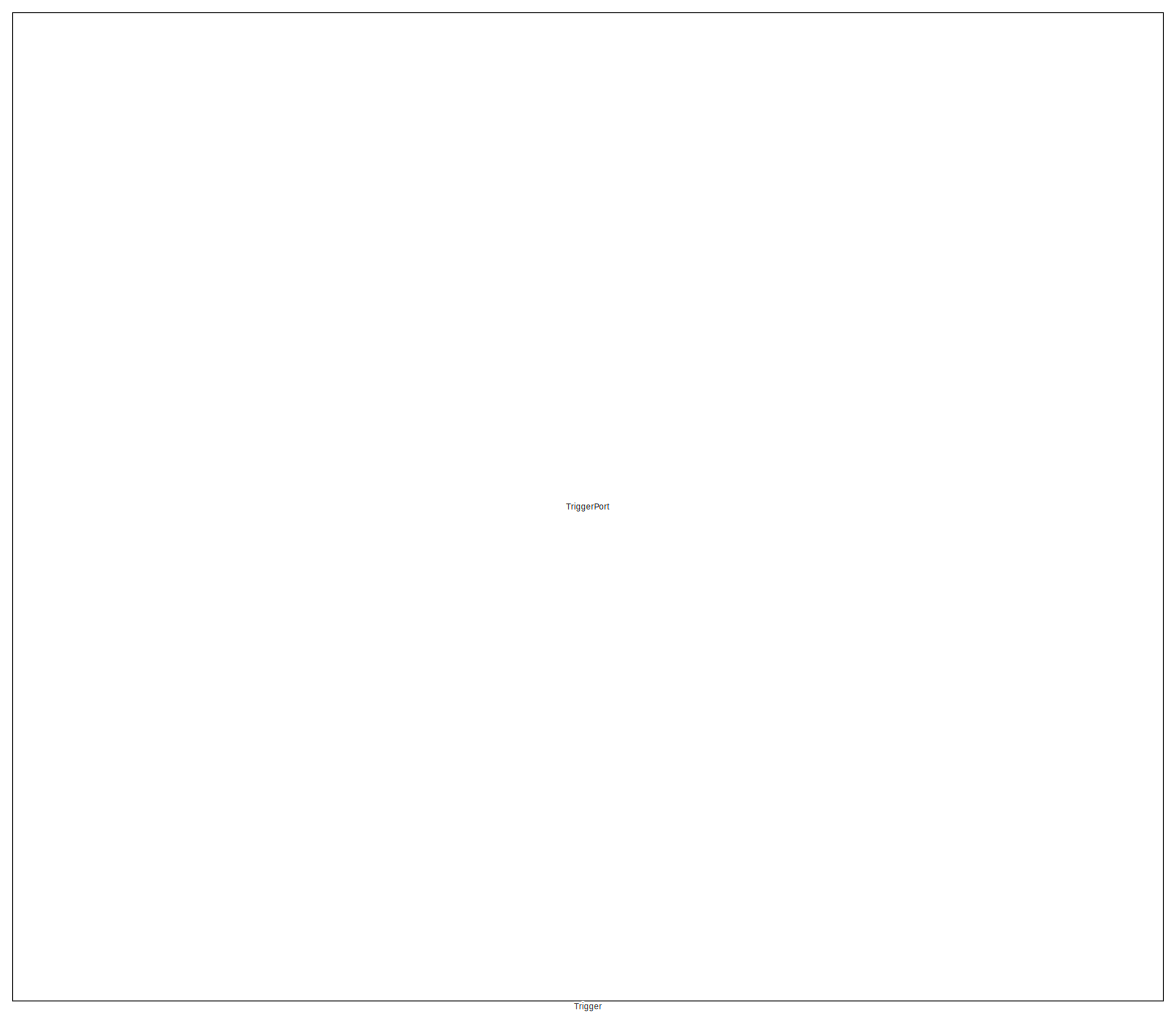
[diagram: CarMaker/Subsystem/Final Project/Scenario 1/Tollgate - part 1/8, top center region]
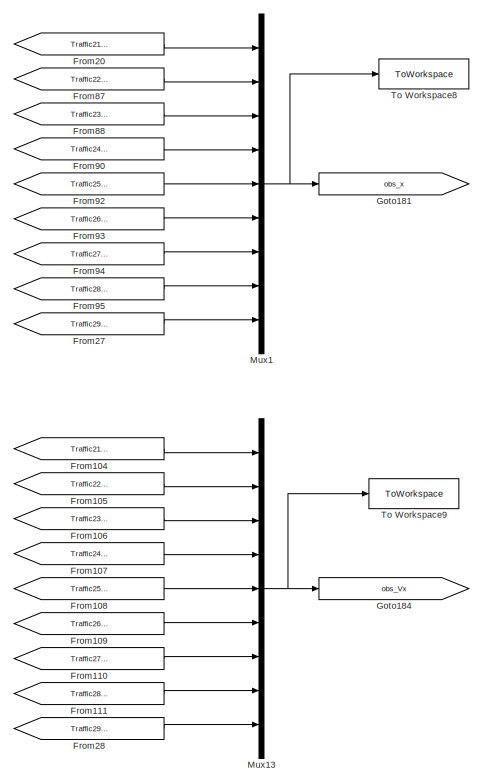
[diagram: CarMaker/Subsystem/Final Project/Scenario 1/Tollgate - part 2/8, top left region]
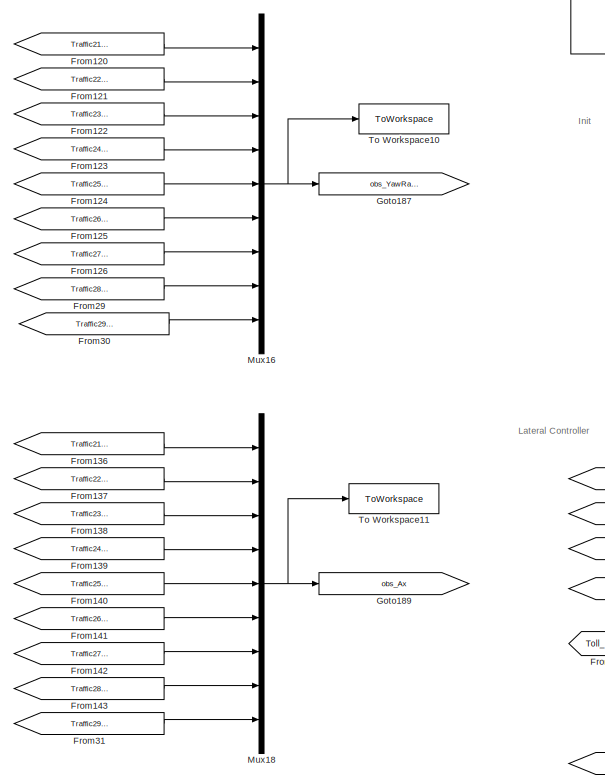
[diagram: CarMaker/Subsystem/Final Project/Scenario 1/Tollgate - part 3/8, middle left region]
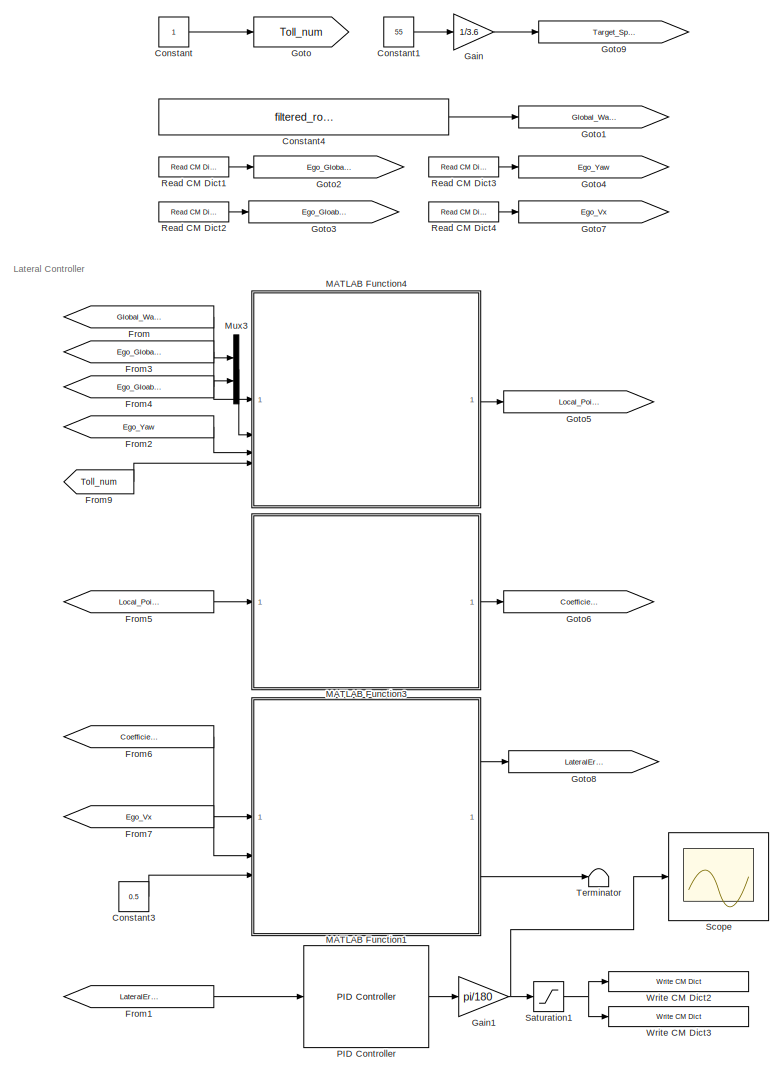
[diagram: CarMaker/Subsystem/Final Project/Scenario 1/Tollgate - part 4/8, middle left region]
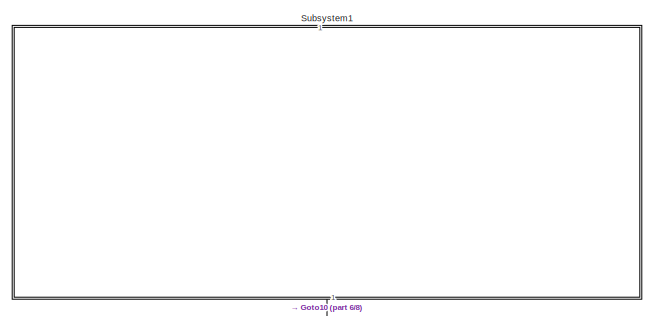
[diagram: CarMaker/Subsystem/Final Project/Scenario 1/Tollgate - part 5/8, central region]
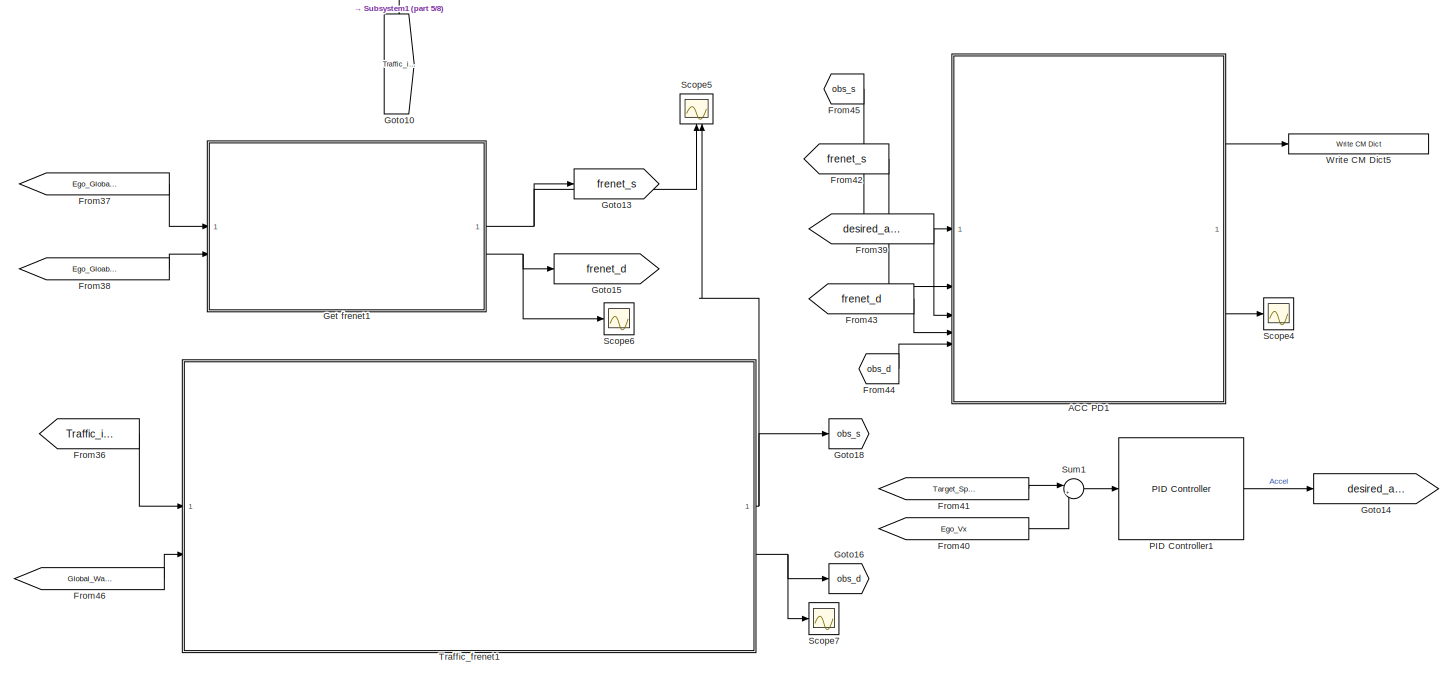
[diagram: CarMaker/Subsystem/Final Project/Scenario 1/Tollgate - part 6/8, middle right region]
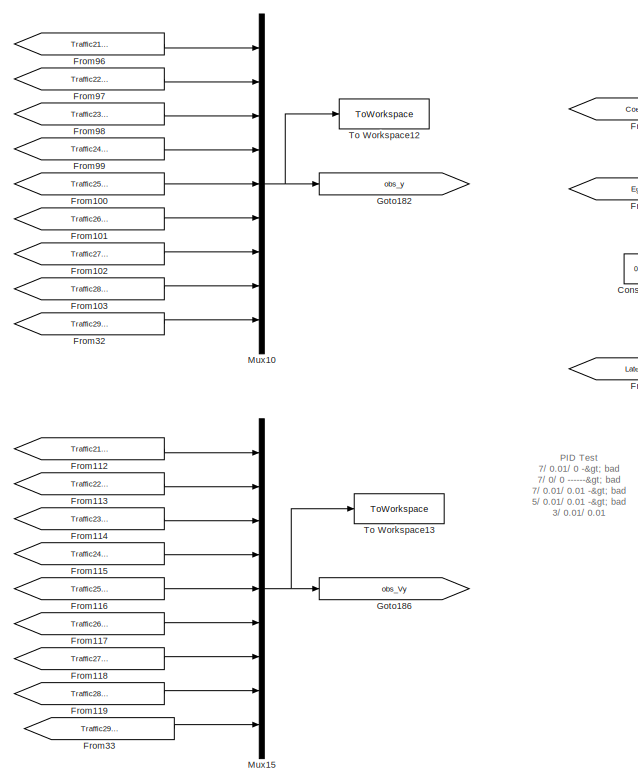
[diagram: CarMaker/Subsystem/Final Project/Scenario 1/Tollgate - part 7/8, middle left region]
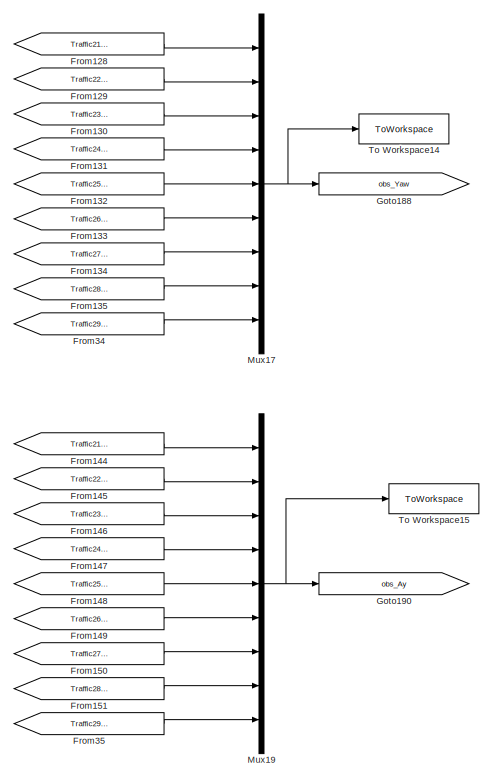
[diagram: CarMaker/Subsystem/Final Project/Scenario 1/Tollgate - part 8/8, bottom left region]
BLOCK [SubSystem] CarMaker/Subsystem/Final Project/Scenario 1/Tollgate
  TreatAsAtomicUnit = on
BLOCK [SubSystem] CarMaker/Subsystem/Final Project/Scenario 1/Tollgate/ACC PD1
  ErrorFcn = Stateflow.Translate.translate
  PermitHierarchicalResolution = ExplicitOnly
  SFBlockType = MATLAB Function
  TreatAsAtomicUnit = on
BLOCK [Demux] CarMaker/Subsystem/Final Project/Scenario 1/Tollgate/ACC PD1/ Demux 
  Outputs = 1
BLOCK [S-Function] CarMaker/Subsystem/Final Project/Scenario 1/Tollgate/ACC PD1/ SFunction 
  EnableBusSupport = on
  FunctionName = sf_sfun
  PortCounts = [5 3]
  SFcnIsStateOwnerBlock = off
  SFunctionDeploymentMode = off
  Tag = Stateflow S-Function 69
BLOCK [Terminator] CarMaker/Subsystem/Final Project/Scenario 1/Tollgate/ACC PD1/ Terminator 
BLOCK [Inport] CarMaker/Subsystem/Final Project/Scenario 1/Tollgate/ACC PD1/d_array
  Port = 5
BLOCK [Outport] CarMaker/Subsystem/Final Project/Scenario 1/Tollgate/ACC PD1/desired_ax
BLOCK [Inport] CarMaker/Subsystem/Final Project/Scenario 1/Tollgate/ACC PD1/desired_ax_cruise
  Port = 3
BLOCK [Inport] CarMaker/Subsystem/Final Project/Scenario 1/Tollgate/ACC PD1/ego_d
  Port = 4
BLOCK [Inport] CarMaker/Subsystem/Final Project/Scenario 1/Tollgate/ACC PD1/ego_s
  Port = 2
BLOCK [Outport] CarMaker/Subsystem/Final Project/Scenario 1/Tollgate/ACC PD1/error_min
  Port = 2
BLOCK [Inport] CarMaker/Subsystem/Final Project/Scenario 1/Tollgate/ACC PD1/obs_s_array
BLOCK [Constant] CarMaker/Subsystem/Final Project/Scenario 1/Tollgate/Constant
BLOCK [Constant] CarMaker/Subsystem/Final Project/Scenario 1/Tollgate/Constant1
  Value = 55
BLOCK [Constant] CarMaker/Subsystem/Final Project/Scenario 1/Tollgate/Constant3
  Value = 0.5
BLOCK [Constant] CarMaker/Subsystem/Final Project/Scenario 1/Tollgate/Constant4
  Value = filtered_route_waypoint_raw{2}
BLOCK [From] CarMaker/Subsystem/Final Project/Scenario 1/Tollgate/From
  GotoTag = Global_Waypoints
BLOCK [From] CarMaker/Subsystem/Final Project/Scenario 1/Tollgate/From1
  GotoTag = LateralError
BLOCK [From] CarMaker/Subsystem/Final Project/Scenario 1/Tollgate/From100
  GotoTag = Traffic25_Global_Y
BLOCK [From] CarMaker/Subsystem/Final Project/Scenario 1/Tollgate/From101
  GotoTag = Traffic26_Global_Y
BLOCK [From] CarMaker/Subsystem/Final Project/Scenario 1/Tollgate/From102
  GotoTag = Traffic27_Global_Y
BLOCK [From] CarMaker/Subsystem/Final Project/Scenario 1/Tollgate/From103
  GotoTag = Traffic28_Global_Y
BLOCK [From] CarMaker/Subsystem/Final Project/Scenario 1/Tollgate/From104
  GotoTag = Traffic21_Vx
BLOCK [From] CarMaker/Subsystem/Final Project/Scenario 1/Tollgate/From105
  GotoTag = Traffic22_Vx
BLOCK [From] CarMaker/Subsystem/Final Project/Scenario 1/Tollgate/From106
  GotoTag = Traffic23_Vx
BLOCK [From] CarMaker/Subsystem/Final Project/Scenario 1/Tollgate/From107
  GotoTag = Traffic24_Vx
BLOCK [From] CarMaker/Subsystem/Final Project/Scenario 1/Tollgate/From108
  GotoTag = Traffic25_Vx
BLOCK [From] CarMaker/Subsystem/Final Project/Scenario 1/Tollgate/From109
  GotoTag = Traffic26_Vx
BLOCK [From] CarMaker/Subsystem/Final Project/Scenario 1/Tollgate/From110
  GotoTag = Traffic27_Vx
BLOCK [From] CarMaker/Subsystem/Final Project/Scenario 1/Tollgate/From111
  GotoTag = Traffic28_Vx
BLOCK [From] CarMaker/Subsystem/Final Project/Scenario 1/Tollgate/From112
  GotoTag = Traffic21_Vy
BLOCK [From] CarMaker/Subsystem/Final Project/Scenario 1/Tollgate/From113
  GotoTag = Traffic22_Vy
BLOCK [From] CarMaker/Subsystem/Final Project/Scenario 1/Tollgate/From114
  GotoTag = Traffic23_Vy
BLOCK [From] CarMaker/Subsystem/Final Project/Scenario 1/Tollgate/From115
  GotoTag = Traffic24_Vy
BLOCK [From] CarMaker/Subsystem/Final Project/Scenario 1/Tollgate/From116
  GotoTag = Traffic25_Vy
BLOCK [From] CarMaker/Subsystem/Final Project/Scenario 1/Tollgate/From117
  GotoTag = Traffic26_Vy
BLOCK [From] CarMaker/Subsystem/Final Project/Scenario 1/Tollgate/From118
  GotoTag = Traffic27_Vy
BLOCK [From] CarMaker/Subsystem/Final Project/Scenario 1/Tollgate/From119
  GotoTag = Traffic28_Vy
BLOCK [From] CarMaker/Subsystem/Final Project/Scenario 1/Tollgate/From120
  GotoTag = Traffic21_YawRate
BLOCK [From] CarMaker/Subsystem/Final Project/Scenario 1/Tollgate/From121
  GotoTag = Traffic22_YawRate
BLOCK [From] CarMaker/Subsystem/Final Project/Scenario 1/Tollgate/From122
  GotoTag = Traffic23_YawRate
BLOCK [From] CarMaker/Subsystem/Final Project/Scenario 1/Tollgate/From123
  GotoTag = Traffic24_YawRate
BLOCK [From] CarMaker/Subsystem/Final Project/Scenario 1/Tollgate/From124
  GotoTag = Traffic25_YawRate
BLOCK [From] CarMaker/Subsystem/Final Project/Scenario 1/Tollgate/From125
  GotoTag = Traffic26_YawRate
BLOCK [From] CarMaker/Subsystem/Final Project/Scenario 1/Tollgate/From126
  GotoTag = Traffic27_YawRate
BLOCK [From] CarMaker/Subsystem/Final Project/Scenario 1/Tollgate/From128
  GotoTag = Traffic21_Yaw
BLOCK [From] CarMaker/Subsystem/Final Project/Scenario 1/Tollgate/From129
  GotoTag = Traffic22_Yaw
BLOCK [From] CarMaker/Subsystem/Final Project/Scenario 1/Tollgate/From130
  GotoTag = Traffic23_Yaw
BLOCK [From] CarMaker/Subsystem/Final Project/Scenario 1/Tollgate/From131
  GotoTag = Traffic24_Yaw
BLOCK [From] CarMaker/Subsystem/Final Project/Scenario 1/Tollgate/From132
  GotoTag = Traffic25_Yaw
BLOCK [From] CarMaker/Subsystem/Final Project/Scenario 1/Tollgate/From133
  GotoTag = Traffic26_Yaw
BLOCK [From] CarMaker/Subsystem/Final Project/Scenario 1/Tollgate/From134
  GotoTag = Traffic27_Yaw
BLOCK [From] CarMaker/Subsystem/Final Project/Scenario 1/Tollgate/From135
  GotoTag = Traffic28_Yaw
BLOCK [From] CarMaker/Subsystem/Final Project/Scenario 1/Tollgate/From136
  GotoTag = Traffic21_Ax
BLOCK [From] CarMaker/Subsystem/Final Project/Scenario 1/Tollgate/From137
  GotoTag = Traffic22_Ax
BLOCK [From] CarMaker/Subsystem/Final Project/Scenario 1/Tollgate/From138
  GotoTag = Traffic23_Ax
BLOCK [From] CarMaker/Subsystem/Final Project/Scenario 1/Tollgate/From139
  GotoTag = Traffic24_Ax
BLOCK [From] CarMaker/Subsystem/Final Project/Scenario 1/Tollgate/From140
  GotoTag = Traffic25_Ax
BLOCK [From] CarMaker/Subsystem/Final Project/Scenario 1/Tollgate/From141
  GotoTag = Traffic26_Ax
BLOCK [From] CarMaker/Subsystem/Final Project/Scenario 1/Tollgate/From142
  GotoTag = Traffic27_Ax
BLOCK [From] CarMaker/Subsystem/Final Project/Scenario 1/Tollgate/From143
  GotoTag = Traffic28_Ax
BLOCK [From] CarMaker/Subsystem/Final Project/Scenario 1/Tollgate/From144
  GotoTag = Traffic21_Ay
BLOCK [From] CarMaker/Subsystem/Final Project/Scenario 1/Tollgate/From145
  GotoTag = Traffic22_Ay
BLOCK [From] CarMaker/Subsystem/Final Project/Scenario 1/Tollgate/From146
  GotoTag = Traffic23_Ay
BLOCK [From] CarMaker/Subsystem/Final Project/Scenario 1/Tollgate/From147
  GotoTag = Traffic24_Ay
BLOCK [From] CarMaker/Subsystem/Final Project/Scenario 1/Tollgate/From148
  GotoTag = Traffic25_Ay
BLOCK [From] CarMaker/Subsystem/Final Project/Scenario 1/Tollgate/From149
  GotoTag = Traffic26_Ay
BLOCK [From] CarMaker/Subsystem/Final Project/Scenario 1/Tollgate/From150
  GotoTag = Traffic27_Ay
BLOCK [From] CarMaker/Subsystem/Final Project/Scenario 1/Tollgate/From151
  GotoTag = Traffic28_Ay
BLOCK [From] CarMaker/Subsystem/Final Project/Scenario 1/Tollgate/From2
  GotoTag = Ego_Yaw
BLOCK [From] CarMaker/Subsystem/Final Project/Scenario 1/Tollgate/From20
  GotoTag = Traffic21_Global_X
BLOCK [From] CarMaker/Subsystem/Final Project/Scenario 1/Tollgate/From27
  GotoTag = Traffic29_Global_X
BLOCK [From] CarMaker/Subsystem/Final Project/Scenario 1/Tollgate/From28
  GotoTag = Traffic29_Vx
BLOCK [From] CarMaker/Subsystem/Final Project/Scenario 1/Tollgate/From29
  GotoTag = Traffic28_YawRate
BLOCK [From] CarMaker/Subsystem/Final Project/Scenario 1/Tollgate/From3
  GotoTag = Ego_Global_X
BLOCK [From] CarMaker/Subsystem/Final Project/Scenario 1/Tollgate/From30
  GotoTag = Traffic29_YawRate
BLOCK [From] CarMaker/Subsystem/Final Project/Scenario 1/Tollgate/From31
  GotoTag = Traffic29_Ax
BLOCK [From] CarMaker/Subsystem/Final Project/Scenario 1/Tollgate/From32
  GotoTag = Traffic29_Global_Y
BLOCK [From] CarMaker/Subsystem/Final Project/Scenario 1/Tollgate/From33
  GotoTag = Traffic29_Vy
BLOCK [From] CarMaker/Subsystem/Final Project/Scenario 1/Tollgate/From34
  GotoTag = Traffic29_Yaw
BLOCK [From] CarMaker/Subsystem/Final Project/Scenario 1/Tollgate/From35
  GotoTag = Traffic29_Ay
BLOCK [From] CarMaker/Subsystem/Final Project/Scenario 1/Tollgate/From36
  GotoTag = Traffic_info
BLOCK [From] CarMaker/Subsystem/Final Project/Scenario 1/Tollgate/From37
  GotoTag = Ego_Global_X
BLOCK [From] CarMaker/Subsystem/Final Project/Scenario 1/Tollgate/From38
  GotoTag = Ego_Gloabl_Y
BLOCK [From] CarMaker/Subsystem/Final Project/Scenario 1/Tollgate/From39
  GotoTag = desired_ax_cruise
BLOCK [From] CarMaker/Subsystem/Final Project/Scenario 1/Tollgate/From4
  GotoTag = Ego_Gloabl_Y
BLOCK [From] CarMaker/Subsystem/Final Project/Scenario 1/Tollgate/From40
  GotoTag = Ego_Vx
BLOCK [From] CarMaker/Subsystem/Final Project/Scenario 1/Tollgate/From41
  GotoTag = Target_Speed
BLOCK [From] CarMaker/Subsystem/Final Project/Scenario 1/Tollgate/From42
  GotoTag = frenet_s
BLOCK [From] CarMaker/Subsystem/Final Project/Scenario 1/Tollgate/From43
  GotoTag = frenet_d
BLOCK [From] CarMaker/Subsystem/Final Project/Scenario 1/Tollgate/From44
  GotoTag = obs_d
BLOCK [From] CarMaker/Subsystem/Final Project/Scenario 1/Tollgate/From45
  GotoTag = obs_s
BLOCK [From] CarMaker/Subsystem/Final Project/Scenario 1/Tollgate/From46
  GotoTag = Global_Waypoints
BLOCK [From] CarMaker/Subsystem/Final Project/Scenario 1/Tollgate/From5
  GotoTag = Local_Points
BLOCK [From] CarMaker/Subsystem/Final Project/Scenario 1/Tollgate/From6
  GotoTag = Coefficients
BLOCK [From] CarMaker/Subsystem/Final Project/Scenario 1/Tollgate/From7
  GotoTag = Ego_Vx
BLOCK [From] CarMaker/Subsystem/Final Project/Scenario 1/Tollgate/From87
  GotoTag = Traffic22_Global_X
BLOCK [From] CarMaker/Subsystem/Final Project/Scenario 1/Tollgate/From88
  GotoTag = Traffic23_Global_X
BLOCK [From] CarMaker/Subsystem/Final Project/Scenario 1/Tollgate/From9
  GotoTag = Toll_num
BLOCK [From] CarMaker/Subsystem/Final Project/Scenario 1/Tollgate/From90
  GotoTag = Traffic24_Global_X
BLOCK [From] CarMaker/Subsystem/Final Project/Scenario 1/Tollgate/From92
  GotoTag = Traffic25_Global_X
BLOCK [From] CarMaker/Subsystem/Final Project/Scenario 1/Tollgate/From93
  GotoTag = Traffic26_Global_X
BLOCK [From] CarMaker/Subsystem/Final Project/Scenario 1/Tollgate/From94
  GotoTag = Traffic27_Global_X
BLOCK [From] CarMaker/Subsystem/Final Project/Scenario 1/Tollgate/From95
  GotoTag = Traffic28_Global_X
BLOCK [From] CarMaker/Subsystem/Final Project/Scenario 1/Tollgate/From96
  GotoTag = Traffic21_Global_Y
BLOCK [From] CarMaker/Subsystem/Final Project/Scenario 1/Tollgate/From97
  GotoTag = Traffic22_Global_Y
BLOCK [From] CarMaker/Subsystem/Final Project/Scenario 1/Tollgate/From98
  GotoTag = Traffic23_Global_Y
BLOCK [From] CarMaker/Subsystem/Final Project/Scenario 1/Tollgate/From99
  GotoTag = Traffic24_Global_Y
BLOCK [Gain] CarMaker/Subsystem/Final Project/Scenario 1/Tollgate/Gain
  Gain = 1/3.6
BLOCK [Gain] CarMaker/Subsystem/Final Project/Scenario 1/Tollgate/Gain1
  Gain = pi/180
BLOCK [SubSystem] CarMaker/Subsystem/Final Project/Scenario 1/Tollgate/Get frenet1
BLOCK [Constant] CarMaker/Subsystem/Final Project/Scenario 1/Tollgate/Get frenet1/Constant1
  Value = filtered_route_waypoint_raw{2}
BLOCK [Inport] CarMaker/Subsystem/Final Project/Scenario 1/Tollgate/Get frenet1/Ego_Global_X
BLOCK [Inport] CarMaker/Subsystem/Final Project/Scenario 1/Tollgate/Get frenet1/Ego_Global_Y
  Port = 2
BLOCK [From] CarMaker/Subsystem/Final Project/Scenario 1/Tollgate/Get frenet1/From
  GotoTag = map_x
BLOCK [From] CarMaker/Subsystem/Final Project/Scenario 1/Tollgate/Get frenet1/From1
  GotoTag = map_y
BLOCK [From] CarMaker/Subsystem/Final Project/Scenario 1/Tollgate/Get frenet1/From10
  GotoTag = Ego_Global_X
BLOCK [From] CarMaker/Subsystem/Final Project/Scenario 1/Tollgate/Get frenet1/From11
  GotoTag = Ego_Gloabl_Y
BLOCK [From] CarMaker/Subsystem/Final Project/Scenario 1/Tollgate/Get frenet1/From12
  GotoTag = frenet_s
BLOCK [From] CarMaker/Subsystem/Final Project/Scenario 1/Tollgate/Get frenet1/From2
  GotoTag = Ego_Global_X
BLOCK [From] CarMaker/Subsystem/Final Project/Scenario 1/Tollgate/Get frenet1/From3
  GotoTag = Ego_Gloabl_Y
BLOCK [From] CarMaker/Subsystem/Final Project/Scenario 1/Tollgate/Get frenet1/From4
  GotoTag = Ego_Global_X
BLOCK [From] CarMaker/Subsystem/Final Project/Scenario 1/Tollgate/Get frenet1/From5
  GotoTag = Ego_Gloabl_Y
BLOCK [From] CarMaker/Subsystem/Final Project/Scenario 1/Tollgate/Get frenet1/From6
  GotoTag = map_x
BLOCK [From] CarMaker/Subsystem/Final Project/Scenario 1/Tollgate/Get frenet1/From7
  GotoTag = map_y
BLOCK [From] CarMaker/Subsystem/Final Project/Scenario 1/Tollgate/Get frenet1/From8
  GotoTag = map_x
BLOCK [From] CarMaker/Subsystem/Final Project/Scenario 1/Tollgate/Get frenet1/From9
  GotoTag = map_y
BLOCK [Goto] CarMaker/Subsystem/Final Project/Scenario 1/Tollgate/Get frenet1/Goto
  GotoTag = map_x
BLOCK [Goto] CarMaker/Subsystem/Final Project/Scenario 1/Tollgate/Get frenet1/Goto1
  GotoTag = map_y
BLOCK [Goto] CarMaker/Subsystem/Final Project/Scenario 1/Tollgate/Get frenet1/Goto2
  GotoTag = frenet_s
BLOCK [Goto] CarMaker/Subsystem/Final Project/Scenario 1/Tollgate/Get frenet1/Goto3
  GotoTag = frenet_d
BLOCK [Goto] CarMaker/Subsystem/Final Project/Scenario 1/Tollgate/Get frenet1/Goto4
  GotoTag = Ego_Global_X
BLOCK [Goto] CarMaker/Subsystem/Final Project/Scenario 1/Tollgate/Get frenet1/Goto5
  GotoTag = Ego_Gloabl_Y
BLOCK [SubSystem] CarMaker/Subsystem/Final Project/Scenario 1/Tollgate/Get frenet1/MATLAB Function
  ErrorFcn = Stateflow.Translate.translate
  PermitHierarchicalResolution = ExplicitOnly
  SFBlockType = MATLAB Function
  TreatAsAtomicUnit = on
BLOCK [Demux] CarMaker/Subsystem/Final Project/Scenario 1/Tollgate/Get frenet1/MATLAB Function/ Demux 
  Outputs = 1
BLOCK [S-Function] CarMaker/Subsystem/Final Project/Scenario 1/Tollgate/Get frenet1/MATLAB Function/ SFunction 
  EnableBusSupport = on
  FunctionName = sf_sfun
  PortCounts = [4 3]
  SFcnIsStateOwnerBlock = off
  SFunctionDeploymentMode = off
  Tag = Stateflow S-Function 57
BLOCK [Terminator] CarMaker/Subsystem/Final Project/Scenario 1/Tollgate/Get frenet1/MATLAB Function/ Terminator 
BLOCK [Outport] CarMaker/Subsystem/Final Project/Scenario 1/Tollgate/Get frenet1/MATLAB Function/close_wp
BLOCK [Inport] CarMaker/Subsystem/Final Project/Scenario 1/Tollgate/Get frenet1/MATLAB Function/mapx
  Port = 3
BLOCK [Inport] CarMaker/Subsystem/Final Project/Scenario 1/Tollgate/Get frenet1/MATLAB Function/mapy
  Port = 4
BLOCK [Outport] CarMaker/Subsystem/Final Project/Scenario 1/Tollgate/Get frenet1/MATLAB Function/min_len
  Port = 2
BLOCK [Inport] CarMaker/Subsystem/Final Project/Scenario 1/Tollgate/Get frenet1/MATLAB Function/x
BLOCK [Inport] CarMaker/Subsystem/Final Project/Scenario 1/Tollgate/Get frenet1/MATLAB Function/y
  Port = 2
BLOCK [SubSystem] CarMaker/Subsystem/Final Project/Scenario 1/Tollgate/Get frenet1/MATLAB Function1
  ErrorFcn = Stateflow.Translate.translate
  PermitHierarchicalResolution = ExplicitOnly
  SFBlockType = MATLAB Function
  TreatAsAtomicUnit = on
BLOCK [Demux] CarMaker/Subsystem/Final Project/Scenario 1/Tollgate/Get frenet1/MATLAB Function1/ Demux 
  Outputs = 1
BLOCK [S-Function] CarMaker/Subsystem/Final Project/Scenario 1/Tollgate/Get frenet1/MATLAB Function1/ SFunction 
  EnableBusSupport = on
  FunctionName = sf_sfun
  PortCounts = [5 2]
  SFcnIsStateOwnerBlock = off
  SFunctionDeploymentMode = off
  Tag = Stateflow S-Function 58
BLOCK [Terminator] CarMaker/Subsystem/Final Project/Scenario 1/Tollgate/Get frenet1/MATLAB Function1/ Terminator 
BLOCK [Inport] CarMaker/Subsystem/Final Project/Scenario 1/Tollgate/Get frenet1/MATLAB Function1/closest_wp
BLOCK [Inport] CarMaker/Subsystem/Final Project/Scenario 1/Tollgate/Get frenet1/MATLAB Function1/mapx
  Port = 4
BLOCK [Inport] CarMaker/Subsystem/Final Project/Scenario 1/Tollgate/Get frenet1/MATLAB Function1/mapy
  Port = 5
BLOCK [Outport] CarMaker/Subsystem/Final Project/Scenario 1/Tollgate/Get frenet1/MATLAB Function1/next_wp
BLOCK [Inport] CarMaker/Subsystem/Final Project/Scenario 1/Tollgate/Get frenet1/MATLAB Function1/x
  Port = 2
BLOCK [Inport] CarMaker/Subsystem/Final Project/Scenario 1/Tollgate/Get frenet1/MATLAB Function1/y
  Port = 3
BLOCK [SubSystem] CarMaker/Subsystem/Final Project/Scenario 1/Tollgate/Get frenet1/MATLAB Function2
  ErrorFcn = Stateflow.Translate.translate
  PermitHierarchicalResolution = ExplicitOnly
  SFBlockType = MATLAB Function
  TreatAsAtomicUnit = on
BLOCK [Demux] CarMaker/Subsystem/Final Project/Scenario 1/Tollgate/Get frenet1/MATLAB Function2/ Demux 
  Outputs = 1
BLOCK [S-Function] CarMaker/Subsystem/Final Project/Scenario 1/Tollgate/Get frenet1/MATLAB Function2/ SFunction 
  EnableBusSupport = on
  FunctionName = sf_sfun
  PortCounts = [5 5]
  SFcnIsStateOwnerBlock = off
  SFunctionDeploymentMode = off
  Tag = Stateflow S-Function 66
BLOCK [Terminator] CarMaker/Subsystem/Final Project/Scenario 1/Tollgate/Get frenet1/MATLAB Function2/ Terminator 
BLOCK [Outport] CarMaker/Subsystem/Final Project/Scenario 1/Tollgate/Get frenet1/MATLAB Function2/frenet_d
  Port = 2
BLOCK [Outport] CarMaker/Subsystem/Final Project/Scenario 1/Tollgate/Get frenet1/MATLAB Function2/frenet_s
BLOCK [Inport] CarMaker/Subsystem/Final Project/Scenario 1/Tollgate/Get frenet1/MATLAB Function2/mapx
  Port = 3
BLOCK [Inport] CarMaker/Subsystem/Final Project/Scenario 1/Tollgate/Get frenet1/MATLAB Function2/mapy
  Port = 4
BLOCK [Outport] CarMaker/Subsystem/Final Project/Scenario 1/Tollgate/Get frenet1/MATLAB Function2/n_x
  Port = 3
BLOCK [Outport] CarMaker/Subsystem/Final Project/Scenario 1/Tollgate/Get frenet1/MATLAB Function2/n_y
  Port = 4
BLOCK [Inport] CarMaker/Subsystem/Final Project/Scenario 1/Tollgate/Get frenet1/MATLAB Function2/next_wp
  Port = 5
BLOCK [Inport] CarMaker/Subsystem/Final Project/Scenario 1/Tollgate/Get frenet1/MATLAB Function2/x
BLOCK [Inport] CarMaker/Subsystem/Final Project/Scenario 1/Tollgate/Get frenet1/MATLAB Function2/y
  Port = 2
BLOCK [SubSystem] CarMaker/Subsystem/Final Project/Scenario 1/Tollgate/Get frenet1/MATLAB Function3
  ErrorFcn = Stateflow.Translate.translate
  PermitHierarchicalResolution = ExplicitOnly
  SFBlockType = MATLAB Function
  TreatAsAtomicUnit = on
BLOCK [Demux] CarMaker/Subsystem/Final Project/Scenario 1/Tollgate/Get frenet1/MATLAB Function3/ Demux 
  Outputs = 1
BLOCK [S-Function] CarMaker/Subsystem/Final Project/Scenario 1/Tollgate/Get frenet1/MATLAB Function3/ SFunction 
  EnableBusSupport = on
  FunctionName = sf_sfun
  PortCounts = [1 3]
  SFcnIsStateOwnerBlock = off
  SFunctionDeploymentMode = off
  Tag = Stateflow S-Function 67
BLOCK [Terminator] CarMaker/Subsystem/Final Project/Scenario 1/Tollgate/Get frenet1/MATLAB Function3/ Terminator 
BLOCK [Outport] CarMaker/Subsystem/Final Project/Scenario 1/Tollgate/Get frenet1/MATLAB Function3/map_x
BLOCK [Outport] CarMaker/Subsystem/Final Project/Scenario 1/Tollgate/Get frenet1/MATLAB Function3/map_y
  Port = 2
BLOCK [Inport] CarMaker/Subsystem/Final Project/Scenario 1/Tollgate/Get frenet1/MATLAB Function3/route2_waypoint_raw
BLOCK [SubSystem] CarMaker/Subsystem/Final Project/Scenario 1/Tollgate/Get frenet1/MATLAB Function4
  ErrorFcn = Stateflow.Translate.translate
  PermitHierarchicalResolution = ExplicitOnly
  SFBlockType = MATLAB Function
  TreatAsAtomicUnit = on
BLOCK [Demux] CarMaker/Subsystem/Final Project/Scenario 1/Tollgate/Get frenet1/MATLAB Function4/ Demux 
  Outputs = 1
BLOCK [S-Function] CarMaker/Subsystem/Final Project/Scenario 1/Tollgate/Get frenet1/MATLAB Function4/ SFunction 
  EnableBusSupport = on
  FunctionName = sf_sfun
  PortCounts = [1 2]
  SFcnIsStateOwnerBlock = off
  SFunctionDeploymentMode = off
  Tag = Stateflow S-Function 68
BLOCK [Terminator] CarMaker/Subsystem/Final Project/Scenario 1/Tollgate/Get frenet1/MATLAB Function4/ Terminator 
BLOCK [Inport] CarMaker/Subsystem/Final Project/Scenario 1/Tollgate/Get frenet1/MATLAB Function4/frenet_s_in
BLOCK [Outport] CarMaker/Subsystem/Final Project/Scenario 1/Tollgate/Get frenet1/MATLAB Function4/frenet_s_out
BLOCK [Scope] CarMaker/Subsystem/Final Project/Scenario 1/Tollgate/Get frenet1/Scope
  Floating = off
  NumInputPorts = 1
  ScopeSpecificationString = Simulink.scopes.TimeScopeBlockCfg
BLOCK [Scope] CarMaker/Subsystem/Final Project/Scenario 1/Tollgate/Get frenet1/Scope1
  Floating = off
  NumInputPorts = 1
  ScopeSpecificationString = Simulink.scopes.TimeScopeBlockCfg('CurrentConfiguration', extmgr.ConfigurationSet(extmgr.Configuration('Core','General UI',true),extmgr.Configuration('Core','Source UI',true),extmgr.Configuration('Sources','WiredSimulink',true,'DataLoggingVariableName','ScopeData6'),extmgr.Configuration('Visuals','Time Domain',true,'SerializedDisplays',{struct('MinYLimReal','-0.07334','MaxYLimReal','0.54437','YLab...<+1525ch>
BLOCK [Scope] CarMaker/Subsystem/Final Project/Scenario 1/Tollgate/Get frenet1/Scope3
  Floating = off
  NumInputPorts = 1
  ScopeSpecificationString = Simulink.scopes.TimeScopeBlockCfg
BLOCK [Terminator] CarMaker/Subsystem/Final Project/Scenario 1/Tollgate/Get frenet1/Terminator
BLOCK [Terminator] CarMaker/Subsystem/Final Project/Scenario 1/Tollgate/Get frenet1/Terminator1
BLOCK [Outport] CarMaker/Subsystem/Final Project/Scenario 1/Tollgate/Get frenet1/frenet_d
  Port = 2
BLOCK [Outport] CarMaker/Subsystem/Final Project/Scenario 1/Tollgate/Get frenet1/frent_s
BLOCK [Constant] CarMaker/Subsystem/Final Project/Scenario 1/Tollgate/Get frenet1/mapx,mapy2
  Commented = on
  Value = route2_waypoint_raw
BLOCK [Goto] CarMaker/Subsystem/Final Project/Scenario 1/Tollgate/Goto
  GotoTag = Toll_num
BLOCK [Goto] CarMaker/Subsystem/Final Project/Scenario 1/Tollgate/Goto1
  GotoTag = Global_Waypoints
BLOCK [Goto] CarMaker/Subsystem/Final Project/Scenario 1/Tollgate/Goto10
  GotoTag = Traffic_info
  NameLocation = left
BLOCK [Goto] CarMaker/Subsystem/Final Project/Scenario 1/Tollgate/Goto13
  GotoTag = frenet_s
BLOCK [Goto] CarMaker/Subsystem/Final Project/Scenario 1/Tollgate/Goto14
  GotoTag = desired_ax_cruise
BLOCK [Goto] CarMaker/Subsystem/Final Project/Scenario 1/Tollgate/Goto15
  GotoTag = frenet_d
BLOCK [Goto] CarMaker/Subsystem/Final Project/Scenario 1/Tollgate/Goto16
  GotoTag = obs_d
BLOCK [Goto] CarMaker/Subsystem/Final Project/Scenario 1/Tollgate/Goto18
  GotoTag = obs_s
BLOCK [Goto] CarMaker/Subsystem/Final Project/Scenario 1/Tollgate/Goto181
  GotoTag = obs_x
BLOCK [Goto] CarMaker/Subsystem/Final Project/Scenario 1/Tollgate/Goto182
  GotoTag = obs_y
BLOCK [Goto] CarMaker/Subsystem/Final Project/Scenario 1/Tollgate/Goto184
  GotoTag = obs_Vx
BLOCK [Goto] CarMaker/Subsystem/Final Project/Scenario 1/Tollgate/Goto186
  GotoTag = obs_Vy
BLOCK [Goto] CarMaker/Subsystem/Final Project/Scenario 1/Tollgate/Goto187
  GotoTag = obs_YawRate
BLOCK [Goto] CarMaker/Subsystem/Final Project/Scenario 1/Tollgate/Goto188
  GotoTag = obs_Yaw
BLOCK [Goto] CarMaker/Subsystem/Final Project/Scenario 1/Tollgate/Goto189
  GotoTag = obs_Ax
BLOCK [Goto] CarMaker/Subsystem/Final Project/Scenario 1/Tollgate/Goto190
  GotoTag = obs_Ay
BLOCK [Goto] CarMaker/Subsystem/Final Project/Scenario 1/Tollgate/Goto2
  GotoTag = Ego_Global_X
BLOCK [Goto] CarMaker/Subsystem/Final Project/Scenario 1/Tollgate/Goto3
  GotoTag = Ego_Gloabl_Y
BLOCK [Goto] CarMaker/Subsystem/Final Project/Scenario 1/Tollgate/Goto4
  GotoTag = Ego_Yaw
BLOCK [Goto] CarMaker/Subsystem/Final Project/Scenario 1/Tollgate/Goto5
  GotoTag = Local_Points
BLOCK [Goto] CarMaker/Subsystem/Final Project/Scenario 1/Tollgate/Goto6
  GotoTag = Coefficients
BLOCK [Goto] CarMaker/Subsystem/Final Project/Scenario 1/Tollgate/Goto7
  GotoTag = Ego_Vx
BLOCK [Goto] CarMaker/Subsystem/Final Project/Scenario 1/Tollgate/Goto8
  GotoTag = LateralError
BLOCK [Goto] CarMaker/Subsystem/Final Project/Scenario 1/Tollgate/Goto9
  GotoTag = Target_Speed
BLOCK [SubSystem] CarMaker/Subsystem/Final Project/Scenario 1/Tollgate/MATLAB Function1
  ErrorFcn = Stateflow.Translate.translate
  PermitHierarchicalResolution = ExplicitOnly
  SFBlockType = MATLAB Function
  TreatAsAtomicUnit = on
BLOCK [Demux] CarMaker/Subsystem/Final Project/Scenario 1/Tollgate/MATLAB Function1/ Demux 
  Outputs = 1
BLOCK [S-Function] CarMaker/Subsystem/Final Project/Scenario 1/Tollgate/MATLAB Function1/ SFunction 
  EnableBusSupport = on
  FunctionName = sf_sfun
  PortCounts = [3 3]
  SFcnIsStateOwnerBlock = off
  SFunctionDeploymentMode = off
  Tag = Stateflow S-Function 29
BLOCK [Terminator] CarMaker/Subsystem/Final Project/Scenario 1/Tollgate/MATLAB Function1/ Terminator 
BLOCK [Outport] CarMaker/Subsystem/Final Project/Scenario 1/Tollgate/MATLAB Function1/lateral_error
BLOCK [Inport] CarMaker/Subsystem/Final Project/Scenario 1/Tollgate/MATLAB Function1/lookahead_time
  Port = 3
BLOCK [Inport] CarMaker/Subsystem/Final Project/Scenario 1/Tollgate/MATLAB Function1/poly_coeff
BLOCK [Inport] CarMaker/Subsystem/Final Project/Scenario 1/Tollgate/MATLAB Function1/velocity
  Port = 2
BLOCK [Outport] CarMaker/Subsystem/Final Project/Scenario 1/Tollgate/MATLAB Function1/x_lookahead
  Port = 2
BLOCK [SubSystem] CarMaker/Subsystem/Final Project/Scenario 1/Tollgate/MATLAB Function3
  ErrorFcn = Stateflow.Translate.translate
  PermitHierarchicalResolution = ExplicitOnly
  SFBlockType = MATLAB Function
  TreatAsAtomicUnit = on
BLOCK [Demux] CarMaker/Subsystem/Final Project/Scenario 1/Tollgate/MATLAB Function3/ Demux 
  Outputs = 1
BLOCK [S-Function] CarMaker/Subsystem/Final Project/Scenario 1/Tollgate/MATLAB Function3/ SFunction 
  EnableBusSupport = on
  FunctionName = sf_sfun
  PortCounts = [1 2]
  SFcnIsStateOwnerBlock = off
  SFunctionDeploymentMode = off
  Tag = Stateflow S-Function 30
BLOCK [Terminator] CarMaker/Subsystem/Final Project/Scenario 1/Tollgate/MATLAB Function3/ Terminator 
BLOCK [Inport] CarMaker/Subsystem/Final Project/Scenario 1/Tollgate/MATLAB Function3/local_waypoints
BLOCK [Outport] CarMaker/Subsystem/Final Project/Scenario 1/Tollgate/MATLAB Function3/poly_coeff
BLOCK [SubSystem] CarMaker/Subsystem/Final Project/Scenario 1/Tollgate/MATLAB Function4 
  ErrorFcn = Stateflow.Translate.translate
  PermitHierarchicalResolution = ExplicitOnly
  SFBlockType = MATLAB Function
  TreatAsAtomicUnit = on
BLOCK [Demux] CarMaker/Subsystem/Final Project/Scenario 1/Tollgate/MATLAB Function4 / Demux 
  Outputs = 1
BLOCK [S-Function] CarMaker/Subsystem/Final Project/Scenario 1/Tollgate/MATLAB Function4 / SFunction 
  EnableBusSupport = on
  FunctionName = sf_sfun
  PortCounts = [4 2]
  SFcnIsStateOwnerBlock = off
  SFunctionDeploymentMode = off
  Tag = Stateflow S-Function 32
BLOCK [Terminator] CarMaker/Subsystem/Final Project/Scenario 1/Tollgate/MATLAB Function4 / Terminator 
BLOCK [Inport] CarMaker/Subsystem/Final Project/Scenario 1/Tollgate/MATLAB Function4 /head
  Port = 3
BLOCK [Outport] CarMaker/Subsystem/Final Project/Scenario 1/Tollgate/MATLAB Function4 /local_waypoints_
BLOCK [Inport] CarMaker/Subsystem/Final Project/Scenario 1/Tollgate/MATLAB Function4 /toll_num
  Port = 4
BLOCK [Inport] CarMaker/Subsystem/Final Project/Scenario 1/Tollgate/MATLAB Function4 /vehicle_position
  Port = 2
BLOCK [Inport] CarMaker/Subsystem/Final Project/Scenario 1/Tollgate/MATLAB Function4 /waypoints
BLOCK [Mux] CarMaker/Subsystem/Final Project/Scenario 1/Tollgate/Mux1
  DisplayOption = bar
  Inputs = 9
BLOCK [Mux] CarMaker/Subsystem/Final Project/Scenario 1/Tollgate/Mux10
  DisplayOption = bar
  Inputs = 9
BLOCK [Mux] CarMaker/Subsystem/Final Project/Scenario 1/Tollgate/Mux13
  DisplayOption = bar
  Inputs = 9
BLOCK [Mux] CarMaker/Subsystem/Final Project/Scenario 1/Tollgate/Mux15
  DisplayOption = bar
  Inputs = 9
BLOCK [Mux] CarMaker/Subsystem/Final Project/Scenario 1/Tollgate/Mux16
  DisplayOption = bar
  Inputs = 9
BLOCK [Mux] CarMaker/Subsystem/Final Project/Scenario 1/Tollgate/Mux17
  DisplayOption = bar
  Inputs = 9
BLOCK [Mux] CarMaker/Subsystem/Final Project/Scenario 1/Tollgate/Mux18
  DisplayOption = bar
  Inputs = 9
BLOCK [Mux] CarMaker/Subsystem/Final Project/Scenario 1/Tollgate/Mux19
  DisplayOption = bar
  Inputs = 9
BLOCK [Mux] CarMaker/Subsystem/Final Project/Scenario 1/Tollgate/Mux3
  DisplayOption = bar
  Inputs = 2
BLOCK [Reference] CarMaker/Subsystem/Final Project/Scenario 1/Tollgate/PID Controller  REF=slpidlib/PID Controller
  SourceBlock = slpidlib/PID Controller
  SourceType = PID 1dof
BLOCK [Reference] CarMaker/Subsystem/Final Project/Scenario 1/Tollgate/PID Controller1  REF=slpidlib/PID Controller
  SourceBlock = slpidlib/PID Controller
  SourceType = PID 1dof
BLOCK [Reference] CarMaker/Subsystem/Final Project/Scenario 1/Tollgate/Read CM Dict1  REF=CarMaker4SL/Read CM Dict
  SourceBlock = CarMaker4SL/Read CM Dict
  SourceProductName = CarMaker4SL
  SourceType = Read CarMaker Dictionary Variable(s)
BLOCK [Reference] CarMaker/Subsystem/Final Project/Scenario 1/Tollgate/Read CM Dict2  REF=CarMaker4SL/Read CM Dict
  SourceBlock = CarMaker4SL/Read CM Dict
  SourceProductName = CarMaker4SL
  SourceType = Read CarMaker Dictionary Variable(s)
BLOCK [Reference] CarMaker/Subsystem/Final Project/Scenario 1/Tollgate/Read CM Dict3  REF=CarMaker4SL/Read CM Dict
  SourceBlock = CarMaker4SL/Read CM Dict
  SourceProductName = CarMaker4SL
  SourceType = Read CarMaker Dictionary Variable(s)
BLOCK [Reference] CarMaker/Subsystem/Final Project/Scenario 1/Tollgate/Read CM Dict4  REF=CarMaker4SL/Read CM Dict
  SourceBlock = CarMaker4SL/Read CM Dict
  SourceProductName = CarMaker4SL
  SourceType = Read CarMaker Dictionary Variable(s)
BLOCK [Saturate] CarMaker/Subsystem/Final Project/Scenario 1/Tollgate/Saturation1
  LowerLimit = -2
  UpperLimit = 2
BLOCK [Scope] CarMaker/Subsystem/Final Project/Scenario 1/Tollgate/Scope
  Floating = off
  NumInputPorts = 1
  ScopeSpecificationString = Simulink.scopes.TimeScopeBlockCfg('CurrentConfiguration', extmgr.ConfigurationSet(extmgr.Configuration('Core','General UI',true),extmgr.Configuration('Core','Source UI',true),extmgr.Configuration('Sources','WiredSimulink',true,'DataLoggingVariableName','ScopeData2'),extmgr.Configuration('Visuals','Time Domain',true,'SerializedDisplays',{struct('MinYLimReal','-0.54244','MaxYLimReal','0.11371','YLab...<+1497ch>
BLOCK [Scope] CarMaker/Subsystem/Final Project/Scenario 1/Tollgate/Scope4
  Floating = off
  NumInputPorts = 1
  ScopeSpecificationString = Simulink.scopes.TimeScopeBlockCfg('CurrentConfiguration', extmgr.ConfigurationSet(extmgr.Configuration('Core','General UI',true),extmgr.Configuration('Core','Source UI',true),extmgr.Configuration('Sources','WiredSimulink',true,'DataLoggingVariableName','ScopeData1'),extmgr.Configuration('Visuals','Time Domain',true,'SerializedDisplays',{struct('MinYLimReal','-24.82076','MaxYLimReal','-16.52209','Y...<+1472ch>
BLOCK [Scope] CarMaker/Subsystem/Final Project/Scenario 1/Tollgate/Scope5
  Floating = off
  NameLocation = right
  NumInputPorts = 2
  ScopeSpecificationString = Simulink.scopes.TimeScopeBlockCfg('CurrentConfiguration', extmgr.ConfigurationSet(extmgr.Configuration('Core','General UI',true),extmgr.Configuration('Core','Source UI',true),extmgr.Configuration('Sources','WiredSimulink',true,'DataLoggingVariableName','ScopeData2'),extmgr.Configuration('Visuals','Time Domain',true,'SerializedDisplays',{struct('MinYLimReal','271.11462','MaxYLimReal','686.09792','Y...<+1746ch>
BLOCK [Scope] CarMaker/Subsystem/Final Project/Scenario 1/Tollgate/Scope6
  Floating = off
  NumInputPorts = 1
  ScopeSpecificationString = Simulink.scopes.TimeScopeBlockCfg('CurrentConfiguration', extmgr.ConfigurationSet(extmgr.Configuration('Core','General UI',true),extmgr.Configuration('Core','Source UI',true),extmgr.Configuration('Sources','WiredSimulink',true,'DataLoggingVariableName','ScopeData3'),extmgr.Configuration('Visuals','Time Domain',true,'SerializedDisplays',{struct('MinYLimReal','-0.06646','MaxYLimReal','0.54434','YLab...<+1506ch>
BLOCK [Scope] CarMaker/Subsystem/Final Project/Scenario 1/Tollgate/Scope7
  Floating = off
  NumInputPorts = 1
  ScopeSpecificationString = Simulink.scopes.TimeScopeBlockCfg('CurrentConfiguration', extmgr.ConfigurationSet(extmgr.Configuration('Core','General UI',true),extmgr.Configuration('Core','Source UI',true),extmgr.Configuration('Sources','WiredSimulink',true,'DataLoggingVariableName','ScopeData4'),extmgr.Configuration('Visuals','Time Domain',true,'SerializedDisplays',{struct('MinYLimReal','-4.52812','MaxYLimReal','4.40015','YLab...<+1791ch>
BLOCK [SubSystem] CarMaker/Subsystem/Final Project/Scenario 1/Tollgate/Subsystem1
  NameLocation = left
BLOCK [BusSelector] CarMaker/Subsystem/Final Project/Scenario 1/Tollgate/Subsystem1/Bus Selector
  OutputSignals = t_0 x,t_0 y,r_zyx z,v_0 x,v_0 y,a_0 x,a_0 y
BLOCK [BusSelector] CarMaker/Subsystem/Final Project/Scenario 1/Tollgate/Subsystem1/Bus Selector1
  OutputSignals = t_0 x,t_0 y,r_zyx z,v_0 x,v_0 y,a_0 x,a_0 y
BLOCK [BusSelector] CarMaker/Subsystem/Final Project/Scenario 1/Tollgate/Subsystem1/Bus Selector2
  OutputSignals = t_0 x,t_0 y,r_zyx z,v_0 x,v_0 y,a_0 x,a_0 y
BLOCK [BusSelector] CarMaker/Subsystem/Final Project/Scenario 1/Tollgate/Subsystem1/Bus Selector3
  OutputSignals = t_0 x,t_0 y,r_zyx z,v_0 x,v_0 y,a_0 x,a_0 y
BLOCK [BusSelector] CarMaker/Subsystem/Final Project/Scenario 1/Tollgate/Subsystem1/Bus Selector4
  OutputSignals = t_0 x,t_0 y,r_zyx z,v_0 x,v_0 y,a_0 x,a_0 y
BLOCK [BusSelector] CarMaker/Subsystem/Final Project/Scenario 1/Tollgate/Subsystem1/Bus Selector5
  OutputSignals = t_0 x,t_0 y,r_zyx z,v_0 x,v_0 y,a_0 x,a_0 y
BLOCK [BusSelector] CarMaker/Subsystem/Final Project/Scenario 1/Tollgate/Subsystem1/Bus Selector6
  OutputSignals = t_0 x,t_0 y,r_zyx z,v_0 x,v_0 y,a_0 x,a_0 y
BLOCK [BusSelector] CarMaker/Subsystem/Final Project/Scenario 1/Tollgate/Subsystem1/Bus Selector7
  OutputSignals = t_0 x,t_0 y,r_zyx z,v_0 x,v_0 y,a_0 x,a_0 y
BLOCK [Constant] CarMaker/Subsystem/Final Project/Scenario 1/Tollgate/Subsystem1/Constant1
  Value = 22
BLOCK [Constant] CarMaker/Subsystem/Final Project/Scenario 1/Tollgate/Subsystem1/Constant10
  Value = 21
BLOCK [Constant] CarMaker/Subsystem/Final Project/Scenario 1/Tollgate/Subsystem1/Constant2
  Value = 23
BLOCK [Constant] CarMaker/Subsystem/Final Project/Scenario 1/Tollgate/Subsystem1/Constant3
  Value = 24
BLOCK [Constant] CarMaker/Subsystem/Final Project/Scenario 1/Tollgate/Subsystem1/Constant4
  Value = 25
BLOCK [Constant] CarMaker/Subsystem/Final Project/Scenario 1/Tollgate/Subsystem1/Constant5
  Value = 26
BLOCK [Constant] CarMaker/Subsystem/Final Project/Scenario 1/Tollgate/Subsystem1/Constant6
  Value = 27
BLOCK [Constant] CarMaker/Subsystem/Final Project/Scenario 1/Tollgate/Subsystem1/Constant7
  Value = 28
BLOCK [From] CarMaker/Subsystem/Final Project/Scenario 1/Tollgate/Subsystem1/From
  GotoTag = Traffic_Info_21
BLOCK [From] CarMaker/Subsystem/Final Project/Scenario 1/Tollgate/Subsystem1/From1
  GotoTag = Traffic_Info_22
BLOCK [From] CarMaker/Subsystem/Final Project/Scenario 1/Tollgate/Subsystem1/From2
  GotoTag = Traffic_Info_23
BLOCK [From] CarMaker/Subsystem/Final Project/Scenario 1/Tollgate/Subsystem1/From3
  GotoTag = Traffic_Info_24
BLOCK [From] CarMaker/Subsystem/Final Project/Scenario 1/Tollgate/Subsystem1/From4
  GotoTag = Traffic_Info_25
BLOCK [From] CarMaker/Subsystem/Final Project/Scenario 1/Tollgate/Subsystem1/From5
  GotoTag = Traffic_Info_26
BLOCK [From] CarMaker/Subsystem/Final Project/Scenario 1/Tollgate/Subsystem1/From6
  GotoTag = Traffic_Info_27
BLOCK [From] CarMaker/Subsystem/Final Project/Scenario 1/Tollgate/Subsystem1/From7
  GotoTag = Traffic_Info_28
BLOCK [Goto] CarMaker/Subsystem/Final Project/Scenario 1/Tollgate/Subsystem1/Goto
  GotoTag = Traffic_Info_21
BLOCK [Goto] CarMaker/Subsystem/Final Project/Scenario 1/Tollgate/Subsystem1/Goto1
  GotoTag = Traffic_Info_22
BLOCK [Goto] CarMaker/Subsystem/Final Project/Scenario 1/Tollgate/Subsystem1/Goto2
  GotoTag = Traffic_Info_23
BLOCK [Goto] CarMaker/Subsystem/Final Project/Scenario 1/Tollgate/Subsystem1/Goto3
  GotoTag = Traffic_Info_24
BLOCK [Goto] CarMaker/Subsystem/Final Project/Scenario 1/Tollgate/Subsystem1/Goto4
  GotoTag = Traffic_Info_25
BLOCK [Goto] CarMaker/Subsystem/Final Project/Scenario 1/Tollgate/Subsystem1/Goto5
  GotoTag = Traffic_Info_26
BLOCK [Goto] CarMaker/Subsystem/Final Project/Scenario 1/Tollgate/Subsystem1/Goto6
  GotoTag = Traffic_Info_27
BLOCK [Goto] CarMaker/Subsystem/Final Project/Scenario 1/Tollgate/Subsystem1/Goto7
  GotoTag = Traffic_Info_28
BLOCK [Mux] CarMaker/Subsystem/Final Project/Scenario 1/Tollgate/Subsystem1/Mux1
  DisplayOption = bar
  Inputs = 8
BLOCK [Mux] CarMaker/Subsystem/Final Project/Scenario 1/Tollgate/Subsystem1/Mux2
  DisplayOption = bar
  Inputs = 8
BLOCK [Mux] CarMaker/Subsystem/Final Project/Scenario 1/Tollgate/Subsystem1/Mux3
  DisplayOption = bar
  Inputs = 8
BLOCK [Mux] CarMaker/Subsystem/Final Project/Scenario 1/Tollgate/Subsystem1/Mux4
  DisplayOption = bar
  Inputs = 8
BLOCK [Mux] CarMaker/Subsystem/Final Project/Scenario 1/Tollgate/Subsystem1/Mux5
  DisplayOption = bar
  Inputs = 8
BLOCK [Mux] CarMaker/Subsystem/Final Project/Scenario 1/Tollgate/Subsystem1/Mux6
  DisplayOption = bar
  Inputs = 8
BLOCK [Mux] CarMaker/Subsystem/Final Project/Scenario 1/Tollgate/Subsystem1/Mux7
  DisplayOption = bar
  Inputs = 8
BLOCK [Mux] CarMaker/Subsystem/Final Project/Scenario 1/Tollgate/Subsystem1/Mux8
  DisplayOption = bar
  Inputs = 8
BLOCK [Mux] CarMaker/Subsystem/Final Project/Scenario 1/Tollgate/Subsystem1/Mux9
  DisplayOption = bar
  Inputs = 8
BLOCK [Reference] CarMaker/Subsystem/Final Project/Scenario 1/Tollgate/Subsystem1/Read CM Dict1  REF=CarMaker4SL/Read CM Dict
  SourceBlock = CarMaker4SL/Read CM Dict
  SourceProductName = CarMaker4SL
  SourceType = Read CarMaker Dictionary Variable(s)
BLOCK [Reference] CarMaker/Subsystem/Final Project/Scenario 1/Tollgate/Subsystem1/Read CM Dict2  REF=CarMaker4SL/Read CM Dict
  SourceBlock = CarMaker4SL/Read CM Dict
  SourceProductName = CarMaker4SL
  SourceType = Read CarMaker Dictionary Variable(s)
BLOCK [Reference] CarMaker/Subsystem/Final Project/Scenario 1/Tollgate/Subsystem1/Read CM Dict3  REF=CarMaker4SL/Read CM Dict
  SourceBlock = CarMaker4SL/Read CM Dict
  SourceProductName = CarMaker4SL
  SourceType = Read CarMaker Dictionary Variable(s)
BLOCK [Reference] CarMaker/Subsystem/Final Project/Scenario 1/Tollgate/Subsystem1/Read CM Dict4  REF=CarMaker4SL/Read CM Dict
  SourceBlock = CarMaker4SL/Read CM Dict
  SourceProductName = CarMaker4SL
  SourceType = Read CarMaker Dictionary Variable(s)
BLOCK [Reference] CarMaker/Subsystem/Final Project/Scenario 1/Tollgate/Subsystem1/Read CM Dict5  REF=CarMaker4SL/Read CM Dict
  SourceBlock = CarMaker4SL/Read CM Dict
  SourceProductName = CarMaker4SL
  SourceType = Read CarMaker Dictionary Variable(s)
BLOCK [Reference] CarMaker/Subsystem/Final Project/Scenario 1/Tollgate/Subsystem1/Read CM Dict6  REF=CarMaker4SL/Read CM Dict
  SourceBlock = CarMaker4SL/Read CM Dict
  SourceProductName = CarMaker4SL
  SourceType = Read CarMaker Dictionary Variable(s)
BLOCK [Reference] CarMaker/Subsystem/Final Project/Scenario 1/Tollgate/Subsystem1/Read CM Dict7  REF=CarMaker4SL/Read CM Dict
  SourceBlock = CarMaker4SL/Read CM Dict
  SourceProductName = CarMaker4SL
  SourceType = Read CarMaker Dictionary Variable(s)
BLOCK [Reference] CarMaker/Subsystem/Final Project/Scenario 1/Tollgate/Subsystem1/Read CM Dict8  REF=CarMaker4SL/Read CM Dict
  SourceBlock = CarMaker4SL/Read CM Dict
  SourceProductName = CarMaker4SL
  SourceType = Read CarMaker Dictionary Variable(s)
BLOCK [Scope] CarMaker/Subsystem/Final Project/Scenario 1/Tollgate/Subsystem1/Scope1
  Floating = off
  NumInputPorts = 1
  ScopeSpecificationString = Simulink.scopes.TimeScopeBlockCfg
BLOCK [Terminator] CarMaker/Subsystem/Final Project/Scenario 1/Tollgate/Subsystem1/Terminator1
BLOCK [Terminator] CarMaker/Subsystem/Final Project/Scenario 1/Tollgate/Subsystem1/Terminator2
BLOCK [Terminator] CarMaker/Subsystem/Final Project/Scenario 1/Tollgate/Subsystem1/Terminator3
BLOCK [Terminator] CarMaker/Subsystem/Final Project/Scenario 1/Tollgate/Subsystem1/Terminator4
BLOCK [Terminator] CarMaker/Subsystem/Final Project/Scenario 1/Tollgate/Subsystem1/Terminator5
BLOCK [Terminator] CarMaker/Subsystem/Final Project/Scenario 1/Tollgate/Subsystem1/Terminator6
BLOCK [Terminator] CarMaker/Subsystem/Final Project/Scenario 1/Tollgate/Subsystem1/Terminator7
BLOCK [Terminator] CarMaker/Subsystem/Final Project/Scenario 1/Tollgate/Subsystem1/Terminator8
BLOCK [Reference] CarMaker/Subsystem/Final Project/Scenario 1/Tollgate/Subsystem1/Traffic Object1  REF=CarMaker4SL/Traffic Object
  SourceBlock = CarMaker4SL/Traffic Object
  SourceProductName = CarMaker4SL
  SourceType = CarMaker Traffic Object
BLOCK [Reference] CarMaker/Subsystem/Final Project/Scenario 1/Tollgate/Subsystem1/Traffic Object2  REF=CarMaker4SL/Traffic Object
  SourceBlock = CarMaker4SL/Traffic Object
  SourceProductName = CarMaker4SL
  SourceType = CarMaker Traffic Object
BLOCK [Reference] CarMaker/Subsystem/Final Project/Scenario 1/Tollgate/Subsystem1/Traffic Object3  REF=CarMaker4SL/Traffic Object
  SourceBlock = CarMaker4SL/Traffic Object
  SourceProductName = CarMaker4SL
  SourceType = CarMaker Traffic Object
BLOCK [Reference] CarMaker/Subsystem/Final Project/Scenario 1/Tollgate/Subsystem1/Traffic Object4  REF=CarMaker4SL/Traffic Object
  SourceBlock = CarMaker4SL/Traffic Object
  SourceProductName = CarMaker4SL
  SourceType = CarMaker Traffic Object
BLOCK [Reference] CarMaker/Subsystem/Final Project/Scenario 1/Tollgate/Subsystem1/Traffic Object5  REF=CarMaker4SL/Traffic Object
  SourceBlock = CarMaker4SL/Traffic Object
  SourceProductName = CarMaker4SL
  SourceType = CarMaker Traffic Object
BLOCK [Reference] CarMaker/Subsystem/Final Project/Scenario 1/Tollgate/Subsystem1/Traffic Object6  REF=CarMaker4SL/Traffic Object
  SourceBlock = CarMaker4SL/Traffic Object
  SourceProductName = CarMaker4SL
  SourceType = CarMaker Traffic Object
BLOCK [Reference] CarMaker/Subsystem/Final Project/Scenario 1/Tollgate/Subsystem1/Traffic Object7  REF=CarMaker4SL/Traffic Object
  SourceBlock = CarMaker4SL/Traffic Object
  SourceProductName = CarMaker4SL
  SourceType = CarMaker Traffic Object
BLOCK [Reference] CarMaker/Subsystem/Final Project/Scenario 1/Tollgate/Subsystem1/Traffic Object8  REF=CarMaker4SL/Traffic Object
  SourceBlock = CarMaker4SL/Traffic Object
  SourceProductName = CarMaker4SL
  SourceType = CarMaker Traffic Object
BLOCK [Outport] CarMaker/Subsystem/Final Project/Scenario 1/Tollgate/Subsystem1/Traffic_Info
BLOCK [Sum] CarMaker/Subsystem/Final Project/Scenario 1/Tollgate/Sum1
  Inputs = |+-
BLOCK [Terminator] CarMaker/Subsystem/Final Project/Scenario 1/Tollgate/Terminator
BLOCK [ToWorkspace] CarMaker/Subsystem/Final Project/Scenario 1/Tollgate/To Workspace10
  FixptAsFi = on
  MaxDataPoints = inf
  SampleTime = -1
  SaveFormat = Timeseries
  VariableName = obs_YawRate
BLOCK [ToWorkspace] CarMaker/Subsystem/Final Project/Scenario 1/Tollgate/To Workspace11
  FixptAsFi = on
  MaxDataPoints = inf
  SampleTime = -1
  SaveFormat = Timeseries
  VariableName = obs_Ax
BLOCK [ToWorkspace] CarMaker/Subsystem/Final Project/Scenario 1/Tollgate/To Workspace12
  FixptAsFi = on
  MaxDataPoints = inf
  SampleTime = -1
  SaveFormat = Timeseries
  VariableName = obs_y
BLOCK [ToWorkspace] CarMaker/Subsystem/Final Project/Scenario 1/Tollgate/To Workspace13
  FixptAsFi = on
  MaxDataPoints = inf
  SampleTime = -1
  SaveFormat = Timeseries
  VariableName = obs_Vy
BLOCK [ToWorkspace] CarMaker/Subsystem/Final Project/Scenario 1/Tollgate/To Workspace14
  FixptAsFi = on
  MaxDataPoints = inf
  SampleTime = -1
  SaveFormat = Timeseries
  VariableName = obs_Yaw
BLOCK [ToWorkspace] CarMaker/Subsystem/Final Project/Scenario 1/Tollgate/To Workspace15
  FixptAsFi = on
  MaxDataPoints = inf
  SampleTime = -1
  SaveFormat = Timeseries
  VariableName = obs_Ay
BLOCK [ToWorkspace] CarMaker/Subsystem/Final Project/Scenario 1/Tollgate/To Workspace8
  FixptAsFi = on
  MaxDataPoints = inf
  SampleTime = -1
  SaveFormat = Timeseries
  VariableName = obs_x
BLOCK [ToWorkspace] CarMaker/Subsystem/Final Project/Scenario 1/Tollgate/To Workspace9
  FixptAsFi = on
  MaxDataPoints = inf
  SampleTime = -1
  SaveFormat = Timeseries
  VariableName = obs_Vx
BLOCK [SubSystem] CarMaker/Subsystem/Final Project/Scenario 1/Tollgate/Traffic_frenet1
BLOCK [SubSystem] CarMaker/Subsystem/Final Project/Scenario 1/Tollgate/Traffic_frenet1/MATLAB Function1
  ErrorFcn = Stateflow.Translate.translate
  PermitHierarchicalResolution = ExplicitOnly
  SFBlockType = MATLAB Function
  TreatAsAtomicUnit = on
BLOCK [Demux] CarMaker/Subsystem/Final Project/Scenario 1/Tollgate/Traffic_frenet1/MATLAB Function1/ Demux 
  Outputs = 1
BLOCK [S-Function] CarMaker/Subsystem/Final Project/Scenario 1/Tollgate/Traffic_frenet1/MATLAB Function1/ SFunction 
  EnableBusSupport = on
  FunctionName = sf_sfun
  PortCounts = [1 2]
  SFcnIsStateOwnerBlock = off
  SFunctionDeploymentMode = off
  Tag = Stateflow S-Function 50
BLOCK [Terminator] CarMaker/Subsystem/Final Project/Scenario 1/Tollgate/Traffic_frenet1/MATLAB Function1/ Terminator 
BLOCK [Outport] CarMaker/Subsystem/Final Project/Scenario 1/Tollgate/Traffic_frenet1/MATLAB Function1/frenet_traffic_s
BLOCK [Inport] CarMaker/Subsystem/Final Project/Scenario 1/Tollgate/Traffic_frenet1/MATLAB Function1/frenet_traffics
BLOCK [SubSystem] CarMaker/Subsystem/Final Project/Scenario 1/Tollgate/Traffic_frenet1/MATLAB Function7
  ErrorFcn = Stateflow.Translate.translate
  PermitHierarchicalResolution = ExplicitOnly
  SFBlockType = MATLAB Function
  TreatAsAtomicUnit = on
BLOCK [Demux] CarMaker/Subsystem/Final Project/Scenario 1/Tollgate/Traffic_frenet1/MATLAB Function7/ Demux 
  Outputs = 1
BLOCK [S-Function] CarMaker/Subsystem/Final Project/Scenario 1/Tollgate/Traffic_frenet1/MATLAB Function7/ SFunction 
  EnableBusSupport = on
  FunctionName = sf_sfun
  PortCounts = [2 4]
  SFcnIsStateOwnerBlock = off
  SFunctionDeploymentMode = off
  Tag = Stateflow S-Function 51
BLOCK [Terminator] CarMaker/Subsystem/Final Project/Scenario 1/Tollgate/Traffic_frenet1/MATLAB Function7/ Terminator 
BLOCK [Outport] CarMaker/Subsystem/Final Project/Scenario 1/Tollgate/Traffic_frenet1/MATLAB Function7/frenet_traffic
BLOCK [Outport] CarMaker/Subsystem/Final Project/Scenario 1/Tollgate/Traffic_frenet1/MATLAB Function7/num_vehicles
  Port = 3
BLOCK [Outport] CarMaker/Subsystem/Final Project/Scenario 1/Tollgate/Traffic_frenet1/MATLAB Function7/obs_sd
  Port = 2
BLOCK [Inport] CarMaker/Subsystem/Final Project/Scenario 1/Tollgate/Traffic_frenet1/MATLAB Function7/traffic_data
BLOCK [Inport] CarMaker/Subsystem/Final Project/Scenario 1/Tollgate/Traffic_frenet1/MATLAB Function7/waypoint
  Port = 2
BLOCK [SubSystem] CarMaker/Subsystem/Final Project/Scenario 1/Tollgate/Traffic_frenet1/MATLAB Function9
  ErrorFcn = Stateflow.Translate.translate
  PermitHierarchicalResolution = ExplicitOnly
  SFBlockType = MATLAB Function
  TreatAsAtomicUnit = on
BLOCK [Demux] CarMaker/Subsystem/Final Project/Scenario 1/Tollgate/Traffic_frenet1/MATLAB Function9/ Demux 
  Outputs = 1
BLOCK [S-Function] CarMaker/Subsystem/Final Project/Scenario 1/Tollgate/Traffic_frenet1/MATLAB Function9/ SFunction 
  EnableBusSupport = on
  FunctionName = sf_sfun
  PortCounts = [1 2]
  SFcnIsStateOwnerBlock = off
  SFunctionDeploymentMode = off
  Tag = Stateflow S-Function 52
BLOCK [Terminator] CarMaker/Subsystem/Final Project/Scenario 1/Tollgate/Traffic_frenet1/MATLAB Function9/ Terminator 
BLOCK [Outport] CarMaker/Subsystem/Final Project/Scenario 1/Tollgate/Traffic_frenet1/MATLAB Function9/frenet_traffic_s
BLOCK [Inport] CarMaker/Subsystem/Final Project/Scenario 1/Tollgate/Traffic_frenet1/MATLAB Function9/frenet_traffics
BLOCK [Reshape] CarMaker/Subsystem/Final Project/Scenario 1/Tollgate/Traffic_frenet1/Reshape
  OutputDimensionality = Customize
  OutputDimensions = [8,8]
BLOCK [Terminator] CarMaker/Subsystem/Final Project/Scenario 1/Tollgate/Traffic_frenet1/Terminator1
BLOCK [Terminator] CarMaker/Subsystem/Final Project/Scenario 1/Tollgate/Traffic_frenet1/Terminator2
BLOCK [Inport] CarMaker/Subsystem/Final Project/Scenario 1/Tollgate/Traffic_frenet1/Traffic info
BLOCK [Math] CarMaker/Subsystem/Final Project/Scenario 1/Tollgate/Traffic_frenet1/Transpose
  Operator = transpose
BLOCK [Outport] CarMaker/Subsystem/Final Project/Scenario 1/Tollgate/Traffic_frenet1/frenet_traffic_d
  Port = 2
BLOCK [Outport] CarMaker/Subsystem/Final Project/Scenario 1/Tollgate/Traffic_frenet1/frenet_traffic_s
BLOCK [Inport] CarMaker/Subsystem/Final Project/Scenario 1/Tollgate/Traffic_frenet1/waypoint
  Port = 2
BLOCK [TriggerPort] CarMaker/Subsystem/Final Project/Scenario 1/Tollgate/Trigger
  PortDimensions = 1
  StatesWhenEnabling = held
  TriggerType = function-call
  VariantControl = (inherit)
BLOCK [Reference] CarMaker/Subsystem/Final Project/Scenario 1/Tollgate/Write CM Dict2  REF=CarMaker4SL/Write CM Dict
  SourceBlock = CarMaker4SL/Write CM Dict
  SourceProductName = CarMaker4SL
  SourceType = Write CarMaker Dictionary Variable(s)
BLOCK [Reference] CarMaker/Subsystem/Final Project/Scenario 1/Tollgate/Write CM Dict3  REF=CarMaker4SL/Write CM Dict
  SourceBlock = CarMaker4SL/Write CM Dict
  SourceProductName = CarMaker4SL
  SourceType = Write CarMaker Dictionary Variable(s)
BLOCK [Reference] CarMaker/Subsystem/Final Project/Scenario 1/Tollgate/Write CM Dict5  REF=CarMaker4SL/Write CM Dict
  SourceBlock = CarMaker4SL/Write CM Dict
  SourceProductName = CarMaker4SL
  SourceType = Write CarMaker Dictionary Variable(s)
BLOCK [SubSystem] CarMaker/Subsystem/Final Project/Scenario 1/Triggered Subsystem2
  TreatAsAtomicUnit = on
BLOCK [SubSystem] CarMaker/Subsystem/Final Project/Scenario 1/Triggered Subsystem2/Chart1
  ErrorFcn = Stateflow.Translate.translate
  PermitHierarchicalResolution = ExplicitOnly
  PortSchema = {"entries":[{"content":{"sides":[{"content":{},"type":"ConnectorPlacement.EquallySpacedRectSide","uuid":"919f2d59-559a-485a-ad64-4ca203985945"},{"content":{"connectorIds":["Out2","Out1"],"side":"RIGHT"},"type":"ConnectorPlacement.EquallySpacedRectSide","uuid":"5a15d665-f3e4-404a-9c46-468f267f06f6"},{"content":{"side":"TOP"},"type":"ConnectorPlacement.EquallySpacedRectSide","uuid":"06264e3b-ed7f-4a...<+207ch>
  SFBlockType = Chart
  TreatAsAtomicUnit = on
BLOCK [Demux] CarMaker/Subsystem/Final Project/Scenario 1/Triggered Subsystem2/Chart1/ Demux 
  Outputs = 2
BLOCK [Ground] CarMaker/Subsystem/Final Project/Scenario 1/Triggered Subsystem2/Chart1/ Ground 
BLOCK [S-Function] CarMaker/Subsystem/Final Project/Scenario 1/Triggered Subsystem2/Chart1/ SFunction 
  EnableBusSupport = on
  FunctionName = sf_sfun
  PortCounts = [1 1]
  SFcnIsStateOwnerBlock = off
  SFunctionDeploymentMode = off
  Tag = Stateflow S-Function 62
BLOCK [Outport] CarMaker/Subsystem/Final Project/Scenario 1/Triggered Subsystem2/Chart1/draw_Map()
  Port = 2
BLOCK [Outport] CarMaker/Subsystem/Final Project/Scenario 1/Triggered Subsystem2/Chart1/go_Parking()
BLOCK [Constant] CarMaker/Subsystem/Final Project/Scenario 1/Triggered Subsystem2/Constant1
  Value = 11.5
BLOCK [Constant] CarMaker/Subsystem/Final Project/Scenario 1/Triggered Subsystem2/Constant10
  Value = 2.48
BLOCK [Constant] CarMaker/Subsystem/Final Project/Scenario 1/Triggered Subsystem2/Constant2
  Value = 100
BLOCK [Constant] CarMaker/Subsystem/Final Project/Scenario 1/Triggered Subsystem2/Constant24
  Value = 0
BLOCK [Constant] CarMaker/Subsystem/Final Project/Scenario 1/Triggered Subsystem2/Constant3
  Value = -100
BLOCK [Constant] CarMaker/Subsystem/Final Project/Scenario 1/Triggered Subsystem2/Constant30
  Value = pi/2
BLOCK [Constant] CarMaker/Subsystem/Final Project/Scenario 1/Triggered Subsystem2/Constant32
  Value = 0
BLOCK [Constant] CarMaker/Subsystem/Final Project/Scenario 1/Triggered Subsystem2/Constant33
  Value = -20
BLOCK [Constant] CarMaker/Subsystem/Final Project/Scenario 1/Triggered Subsystem2/Constant34
  Value = 17
BLOCK [Constant] CarMaker/Subsystem/Final Project/Scenario 1/Triggered Subsystem2/Constant35
  Value = -6.5
BLOCK [Constant] CarMaker/Subsystem/Final Project/Scenario 1/Triggered Subsystem2/Constant36
  Value = 0
BLOCK [Constant] CarMaker/Subsystem/Final Project/Scenario 1/Triggered Subsystem2/Constant37
  Value = 0
BLOCK [Constant] CarMaker/Subsystem/Final Project/Scenario 1/Triggered Subsystem2/Constant38
  Value = -100
BLOCK [Constant] CarMaker/Subsystem/Final Project/Scenario 1/Triggered Subsystem2/Constant4
  Value = 100
BLOCK [Constant] CarMaker/Subsystem/Final Project/Scenario 1/Triggered Subsystem2/Constant5
  Value = 0
BLOCK [Constant] CarMaker/Subsystem/Final Project/Scenario 1/Triggered Subsystem2/Constant6
  Value = 0
BLOCK [DataStoreMemory] CarMaker/Subsystem/Final Project/Scenario 1/Triggered Subsystem2/Data Store Memory
  DataStoreName = obstacleMap
  Dimensions = [70 3]
  ShowAdditionalParam = off
  VectorParams1D = off
  WriteAfterWriteMsg = warning
BLOCK [DataStoreMemory] CarMaker/Subsystem/Final Project/Scenario 1/Triggered Subsystem2/Data Store Memory1
  DataStoreName = orderedPath
  Dimensions = [300 3]
  ShowAdditionalParam = off
  WriteAfterWriteMsg = warning
BLOCK [DataStoreMemory] CarMaker/Subsystem/Final Project/Scenario 1/Triggered Subsystem2/Data Store Memory2
  DataStoreName = Finish_p
  Dimensions = [3 1]
  ShowAdditionalParam = off
  WriteAfterWriteMsg = warning
BLOCK [DataStoreWrite] CarMaker/Subsystem/Final Project/Scenario 1/Triggered Subsystem2/Data Store Write
  DataStoreName = Finish_p
  IndexOptions = Index vector (dialog)
  Indices = 1
  OutputSizes = 1
BLOCK [From] CarMaker/Subsystem/Final Project/Scenario 1/Triggered Subsystem2/From16
  GotoTag = draw_Map
BLOCK [From] CarMaker/Subsystem/Final Project/Scenario 1/Triggered Subsystem2/From17
  GotoTag = go_Parking
BLOCK [SubSystem] CarMaker/Subsystem/Final Project/Scenario 1/Triggered Subsystem2/Function-Call Subsystem
  TreatAsAtomicUnit = on
BLOCK [Constant] CarMaker/Subsystem/Final Project/Scenario 1/Triggered Subsystem2/Function-Call Subsystem/Constant1
  Value = 11.5
BLOCK [Constant] CarMaker/Subsystem/Final Project/Scenario 1/Triggered Subsystem2/Function-Call Subsystem/Constant10
  Value = 2.48
BLOCK [Constant] CarMaker/Subsystem/Final Project/Scenario 1/Triggered Subsystem2/Function-Call Subsystem/Constant11
  Value = 100
BLOCK [Constant] CarMaker/Subsystem/Final Project/Scenario 1/Triggered Subsystem2/Function-Call Subsystem/Constant12
  Value = -100
BLOCK [Constant] CarMaker/Subsystem/Final Project/Scenario 1/Triggered Subsystem2/Function-Call Subsystem/Constant13
  Value = 100
BLOCK [Constant] CarMaker/Subsystem/Final Project/Scenario 1/Triggered Subsystem2/Function-Call Subsystem/Constant14
  Value = 0
BLOCK [Constant] CarMaker/Subsystem/Final Project/Scenario 1/Triggered Subsystem2/Function-Call Subsystem/Constant15
  Value = 0
BLOCK [Constant] CarMaker/Subsystem/Final Project/Scenario 1/Triggered Subsystem2/Function-Call Subsystem/Constant2
  Value = 5.6
BLOCK [Constant] CarMaker/Subsystem/Final Project/Scenario 1/Triggered Subsystem2/Function-Call Subsystem/Constant3
  Value = -36.6
BLOCK [Constant] CarMaker/Subsystem/Final Project/Scenario 1/Triggered Subsystem2/Function-Call Subsystem/Constant6
  Value = 0
BLOCK [Constant] CarMaker/Subsystem/Final Project/Scenario 1/Triggered Subsystem2/Function-Call Subsystem/Constant7
  Value = 0
BLOCK [Constant] CarMaker/Subsystem/Final Project/Scenario 1/Triggered Subsystem2/Function-Call Subsystem/Constant8
  Value = 0
BLOCK [Constant] CarMaker/Subsystem/Final Project/Scenario 1/Triggered Subsystem2/Function-Call Subsystem/Constant9
  Value = -100
BLOCK [DataStoreRead] CarMaker/Subsystem/Final Project/Scenario 1/Triggered Subsystem2/Function-Call Subsystem/Data Store Read
  DataStoreName = Finish_p
  IndexOptions = Index vector (dialog)
  Indices = 1
  OutputSizes = 1
BLOCK [DataStoreWrite] CarMaker/Subsystem/Final Project/Scenario 1/Triggered Subsystem2/Function-Call Subsystem/Data Store Write1
  DataStoreName = orderedPath
  IndexOptions = Index vector (dialog)
  Indices = 1
  OutputSizes = 1
BLOCK [From] CarMaker/Subsystem/Final Project/Scenario 1/Triggered Subsystem2/Function-Call Subsystem/From10
  GotoTag = obstacleList
BLOCK [From] CarMaker/Subsystem/Final Project/Scenario 1/Triggered Subsystem2/Function-Call Subsystem/From3
  GotoTag = Traffic_Info
BLOCK [From] CarMaker/Subsystem/Final Project/Scenario 1/Triggered Subsystem2/Function-Call Subsystem/From8
  GotoTag = Start_Point
BLOCK [From] CarMaker/Subsystem/Final Project/Scenario 1/Triggered Subsystem2/Function-Call Subsystem/From9
  GotoTag = Finish_Point
BLOCK [Goto] CarMaker/Subsystem/Final Project/Scenario 1/Triggered Subsystem2/Function-Call Subsystem/Goto1
  GotoTag = obstacleList
BLOCK [Goto] CarMaker/Subsystem/Final Project/Scenario 1/Triggered Subsystem2/Function-Call Subsystem/Goto2
  GotoTag = Traffic_size
BLOCK [Goto] CarMaker/Subsystem/Final Project/Scenario 1/Triggered Subsystem2/Function-Call Subsystem/Goto3
  GotoTag = Finish_Point
BLOCK [Goto] CarMaker/Subsystem/Final Project/Scenario 1/Triggered Subsystem2/Function-Call Subsystem/Goto30
  GotoTag = Traffic_Info
BLOCK [Goto] CarMaker/Subsystem/Final Project/Scenario 1/Triggered Subsystem2/Function-Call Subsystem/Goto4
  GotoTag = Start_Point
BLOCK [Goto] CarMaker/Subsystem/Final Project/Scenario 1/Triggered Subsystem2/Function-Call Subsystem/Goto6
  GotoTag = Map_Boundary
BLOCK [Goto] CarMaker/Subsystem/Final Project/Scenario 1/Triggered Subsystem2/Function-Call Subsystem/Goto7
  GotoTag = Ego_Global_X
BLOCK [Goto] CarMaker/Subsystem/Final Project/Scenario 1/Triggered Subsystem2/Function-Call Subsystem/Goto8
  GotoTag = Ego_Gloabl_Y
BLOCK [SubSystem] CarMaker/Subsystem/Final Project/Scenario 1/Triggered Subsystem2/Function-Call Subsystem/MATLAB Function2
  ErrorFcn = Stateflow.Translate.translate
  PermitHierarchicalResolution = ExplicitOnly
  SFBlockType = MATLAB Function
  TreatAsAtomicUnit = on
BLOCK [Demux] CarMaker/Subsystem/Final Project/Scenario 1/Triggered Subsystem2/Function-Call Subsystem/MATLAB Function2/ Demux 
  Outputs = 1
BLOCK [S-Function] CarMaker/Subsystem/Final Project/Scenario 1/Triggered Subsystem2/Function-Call Subsystem/MATLAB Function2/ SFunction 
  EnableBusSupport = on
  FunctionName = sf_sfun
  PortCounts = [1 2]
  SFcnIsStateOwnerBlock = off
  SFunctionDeploymentMode = off
  Tag = Stateflow S-Function 64
BLOCK [Terminator] CarMaker/Subsystem/Final Project/Scenario 1/Triggered Subsystem2/Function-Call Subsystem/MATLAB Function2/ Terminator 
BLOCK [Outport] CarMaker/Subsystem/Final Project/Scenario 1/Triggered Subsystem2/Function-Call Subsystem/MATLAB Function2/obstacle_list
BLOCK [Inport] CarMaker/Subsystem/Final Project/Scenario 1/Triggered Subsystem2/Function-Call Subsystem/MATLAB Function2/traffic_info
BLOCK [SubSystem] CarMaker/Subsystem/Final Project/Scenario 1/Triggered Subsystem2/Function-Call Subsystem/MATLAB Function4
  ErrorFcn = Stateflow.Translate.translate
  PermitHierarchicalResolution = ExplicitOnly
  SFBlockType = MATLAB Function
  TreatAsAtomicUnit = on
BLOCK [Demux] CarMaker/Subsystem/Final Project/Scenario 1/Triggered Subsystem2/Function-Call Subsystem/MATLAB Function4/ Demux 
  Outputs = 1
BLOCK [S-Function] CarMaker/Subsystem/Final Project/Scenario 1/Triggered Subsystem2/Function-Call Subsystem/MATLAB Function4/ SFunction 
  EnableBusSupport = on
  FunctionName = sf_sfun
  PortCounts = [3 2]
  SFcnIsStateOwnerBlock = off
  SFunctionDeploymentMode = off
  Tag = Stateflow S-Function 65
BLOCK [Terminator] CarMaker/Subsystem/Final Project/Scenario 1/Triggered Subsystem2/Function-Call Subsystem/MATLAB Function4/ Terminator 
BLOCK [Outport] CarMaker/Subsystem/Final Project/Scenario 1/Triggered Subsystem2/Function-Call Subsystem/MATLAB Function4/full_path
BLOCK [Inport] CarMaker/Subsystem/Final Project/Scenario 1/Triggered Subsystem2/Function-Call Subsystem/MATLAB Function4/goal
  Port = 2
BLOCK [Inport] CarMaker/Subsystem/Final Project/Scenario 1/Triggered Subsystem2/Function-Call Subsystem/MATLAB Function4/obstacle_list
  Port = 3
BLOCK [Inport] CarMaker/Subsystem/Final Project/Scenario 1/Triggered Subsystem2/Function-Call Subsystem/MATLAB Function4/start
BLOCK [Mux] CarMaker/Subsystem/Final Project/Scenario 1/Triggered Subsystem2/Function-Call Subsystem/Mux
  DisplayOption = bar
  Inputs = 3
BLOCK [Mux] CarMaker/Subsystem/Final Project/Scenario 1/Triggered Subsystem2/Function-Call Subsystem/Mux2
  DisplayOption = bar
  Inputs = 2
BLOCK [Mux] CarMaker/Subsystem/Final Project/Scenario 1/Triggered Subsystem2/Function-Call Subsystem/Mux3
  DisplayOption = bar
  Inputs = 2
BLOCK [Mux] CarMaker/Subsystem/Final Project/Scenario 1/Triggered Subsystem2/Function-Call Subsystem/Mux4
  DisplayOption = bar
BLOCK [Mux] CarMaker/Subsystem/Final Project/Scenario 1/Triggered Subsystem2/Function-Call Subsystem/Mux5
  DisplayOption = bar
  Inputs = 2
BLOCK [Mux] CarMaker/Subsystem/Final Project/Scenario 1/Triggered Subsystem2/Function-Call Subsystem/Mux6
  DisplayOption = bar
  Inputs = 2
BLOCK [Mux] CarMaker/Subsystem/Final Project/Scenario 1/Triggered Subsystem2/Function-Call Subsystem/Mux7
  DisplayOption = bar
  Inputs = 2
BLOCK [Reference] CarMaker/Subsystem/Final Project/Scenario 1/Triggered Subsystem2/Function-Call Subsystem/Read CM Dict1  REF=CarMaker4SL/Read CM Dict
  SourceBlock = CarMaker4SL/Read CM Dict
  SourceProductName = CarMaker4SL
  SourceType = Read CarMaker Dictionary Variable(s)
BLOCK [Reference] CarMaker/Subsystem/Final Project/Scenario 1/Triggered Subsystem2/Function-Call Subsystem/Read CM Dict2  REF=CarMaker4SL/Read CM Dict
  SourceBlock = CarMaker4SL/Read CM Dict
  SourceProductName = CarMaker4SL
  SourceType = Read CarMaker Dictionary Variable(s)
BLOCK [Reshape] CarMaker/Subsystem/Final Project/Scenario 1/Triggered Subsystem2/Function-Call Subsystem/Reshape1
  OutputDimensionality = Row vector (2-D)
  OutputDimensions = [2,2]
BLOCK [SubSystem] CarMaker/Subsystem/Final Project/Scenario 1/Triggered Subsystem2/Function-Call Subsystem/Subsystem1
BLOCK [BusSelector] CarMaker/Subsystem/Final Project/Scenario 1/Triggered Subsystem2/Function-Call Subsystem/Subsystem1/Bus Selector
  OutputSignals = t_0 x,t_0 y,r_zyx z
BLOCK [BusSelector] CarMaker/Subsystem/Final Project/Scenario 1/Triggered Subsystem2/Function-Call Subsystem/Subsystem1/Bus Selector1
  OutputSignals = t_0 x,t_0 y,r_zyx z
BLOCK [BusSelector] CarMaker/Subsystem/Final Project/Scenario 1/Triggered Subsystem2/Function-Call Subsystem/Subsystem1/Bus Selector10
  OutputSignals = t_0 x,t_0 y,r_zyx z
BLOCK [BusSelector] CarMaker/Subsystem/Final Project/Scenario 1/Triggered Subsystem2/Function-Call Subsystem/Subsystem1/Bus Selector11
  OutputSignals = t_0 x,t_0 y,r_zyx z
BLOCK [BusSelector] CarMaker/Subsystem/Final Project/Scenario 1/Triggered Subsystem2/Function-Call Subsystem/Subsystem1/Bus Selector12
  OutputSignals = t_0 x,t_0 y,r_zyx z
BLOCK [BusSelector] CarMaker/Subsystem/Final Project/Scenario 1/Triggered Subsystem2/Function-Call Subsystem/Subsystem1/Bus Selector13
  OutputSignals = t_0 x,t_0 y,r_zyx z
BLOCK [BusSelector] CarMaker/Subsystem/Final Project/Scenario 1/Triggered Subsystem2/Function-Call Subsystem/Subsystem1/Bus Selector14
  OutputSignals = t_0 x,t_0 y,r_zyx z
BLOCK [BusSelector] CarMaker/Subsystem/Final Project/Scenario 1/Triggered Subsystem2/Function-Call Subsystem/Subsystem1/Bus Selector15
  OutputSignals = t_0 x,t_0 y,r_zyx z
BLOCK [BusSelector] CarMaker/Subsystem/Final Project/Scenario 1/Triggered Subsystem2/Function-Call Subsystem/Subsystem1/Bus Selector16
  OutputSignals = t_0 x,t_0 y,r_zyx z
BLOCK [BusSelector] CarMaker/Subsystem/Final Project/Scenario 1/Triggered Subsystem2/Function-Call Subsystem/Subsystem1/Bus Selector17
  OutputSignals = t_0 x,t_0 y,r_zyx z
BLOCK [BusSelector] CarMaker/Subsystem/Final Project/Scenario 1/Triggered Subsystem2/Function-Call Subsystem/Subsystem1/Bus Selector18
  OutputSignals = t_0 x,t_0 y,r_zyx z
BLOCK [BusSelector] CarMaker/Subsystem/Final Project/Scenario 1/Triggered Subsystem2/Function-Call Subsystem/Subsystem1/Bus Selector19
  OutputSignals = t_0 x,t_0 y,r_zyx z
BLOCK [BusSelector] CarMaker/Subsystem/Final Project/Scenario 1/Triggered Subsystem2/Function-Call Subsystem/Subsystem1/Bus Selector2
  OutputSignals = t_0 x,t_0 y,r_zyx z
BLOCK [BusSelector] CarMaker/Subsystem/Final Project/Scenario 1/Triggered Subsystem2/Function-Call Subsystem/Subsystem1/Bus Selector20
  OutputSignals = t_0 x,t_0 y,r_zyx z
BLOCK [BusSelector] CarMaker/Subsystem/Final Project/Scenario 1/Triggered Subsystem2/Function-Call Subsystem/Subsystem1/Bus Selector3
  OutputSignals = t_0 x,t_0 y,r_zyx z
BLOCK [BusSelector] CarMaker/Subsystem/Final Project/Scenario 1/Triggered Subsystem2/Function-Call Subsystem/Subsystem1/Bus Selector4
  OutputSignals = t_0 x,t_0 y,r_zyx z
BLOCK [BusSelector] CarMaker/Subsystem/Final Project/Scenario 1/Triggered Subsystem2/Function-Call Subsystem/Subsystem1/Bus Selector5
  OutputSignals = t_0 x,t_0 y,r_zyx z
BLOCK [BusSelector] CarMaker/Subsystem/Final Project/Scenario 1/Triggered Subsystem2/Function-Call Subsystem/Subsystem1/Bus Selector6
  OutputSignals = t_0 x,t_0 y,r_zyx z
BLOCK [BusSelector] CarMaker/Subsystem/Final Project/Scenario 1/Triggered Subsystem2/Function-Call Subsystem/Subsystem1/Bus Selector7
  OutputSignals = t_0 x,t_0 y,r_zyx z
BLOCK [BusSelector] CarMaker/Subsystem/Final Project/Scenario 1/Triggered Subsystem2/Function-Call Subsystem/Subsystem1/Bus Selector8
  OutputSignals = t_0 x,t_0 y,r_zyx z
BLOCK [BusSelector] CarMaker/Subsystem/Final Project/Scenario 1/Triggered Subsystem2/Function-Call Subsystem/Subsystem1/Bus Selector9
  OutputSignals = t_0 x,t_0 y,r_zyx z
BLOCK [Constant] CarMaker/Subsystem/Final Project/Scenario 1/Triggered Subsystem2/Function-Call Subsystem/Subsystem1/Constant1
  Value = 2
BLOCK [Constant] CarMaker/Subsystem/Final Project/Scenario 1/Triggered Subsystem2/Function-Call Subsystem/Subsystem1/Constant10
BLOCK [Constant] CarMaker/Subsystem/Final Project/Scenario 1/Triggered Subsystem2/Function-Call Subsystem/Subsystem1/Constant11
  Value = 11
BLOCK [Constant] CarMaker/Subsystem/Final Project/Scenario 1/Triggered Subsystem2/Function-Call Subsystem/Subsystem1/Constant12
  Value = 12
BLOCK [Constant] CarMaker/Subsystem/Final Project/Scenario 1/Triggered Subsystem2/Function-Call Subsystem/Subsystem1/Constant13
  Value = 13
BLOCK [Constant] CarMaker/Subsystem/Final Project/Scenario 1/Triggered Subsystem2/Function-Call Subsystem/Subsystem1/Constant14
  Value = 14
BLOCK [Constant] CarMaker/Subsystem/Final Project/Scenario 1/Triggered Subsystem2/Function-Call Subsystem/Subsystem1/Constant15
  Value = 15
BLOCK [Constant] CarMaker/Subsystem/Final Project/Scenario 1/Triggered Subsystem2/Function-Call Subsystem/Subsystem1/Constant16
  Value = 16
BLOCK [Constant] CarMaker/Subsystem/Final Project/Scenario 1/Triggered Subsystem2/Function-Call Subsystem/Subsystem1/Constant17
  Value = 17
BLOCK [Constant] CarMaker/Subsystem/Final Project/Scenario 1/Triggered Subsystem2/Function-Call Subsystem/Subsystem1/Constant18
  Value = 18
BLOCK [Constant] CarMaker/Subsystem/Final Project/Scenario 1/Triggered Subsystem2/Function-Call Subsystem/Subsystem1/Constant19
  Value = 19
BLOCK [Constant] CarMaker/Subsystem/Final Project/Scenario 1/Triggered Subsystem2/Function-Call Subsystem/Subsystem1/Constant2
  Value = 3
BLOCK [Constant] CarMaker/Subsystem/Final Project/Scenario 1/Triggered Subsystem2/Function-Call Subsystem/Subsystem1/Constant20
  Value = 20
BLOCK [Constant] CarMaker/Subsystem/Final Project/Scenario 1/Triggered Subsystem2/Function-Call Subsystem/Subsystem1/Constant21
  Value = 0
BLOCK [Constant] CarMaker/Subsystem/Final Project/Scenario 1/Triggered Subsystem2/Function-Call Subsystem/Subsystem1/Constant3
  Value = 4
BLOCK [Constant] CarMaker/Subsystem/Final Project/Scenario 1/Triggered Subsystem2/Function-Call Subsystem/Subsystem1/Constant4
  Value = 5
BLOCK [Constant] CarMaker/Subsystem/Final Project/Scenario 1/Triggered Subsystem2/Function-Call Subsystem/Subsystem1/Constant5
  Value = 6
BLOCK [Constant] CarMaker/Subsystem/Final Project/Scenario 1/Triggered Subsystem2/Function-Call Subsystem/Subsystem1/Constant6
  Value = 7
BLOCK [Constant] CarMaker/Subsystem/Final Project/Scenario 1/Triggered Subsystem2/Function-Call Subsystem/Subsystem1/Constant7
  Value = 8
BLOCK [Constant] CarMaker/Subsystem/Final Project/Scenario 1/Triggered Subsystem2/Function-Call Subsystem/Subsystem1/Constant8
  Value = 9
BLOCK [Constant] CarMaker/Subsystem/Final Project/Scenario 1/Triggered Subsystem2/Function-Call Subsystem/Subsystem1/Constant9
  Value = 10
BLOCK [From] CarMaker/Subsystem/Final Project/Scenario 1/Triggered Subsystem2/Function-Call Subsystem/Subsystem1/From
  GotoTag = Traffic_Info_01
BLOCK [From] CarMaker/Subsystem/Final Project/Scenario 1/Triggered Subsystem2/Function-Call Subsystem/Subsystem1/From1
  GotoTag = Traffic_Info_02
BLOCK [From] CarMaker/Subsystem/Final Project/Scenario 1/Triggered Subsystem2/Function-Call Subsystem/Subsystem1/From10
  GotoTag = Traffic_Info_10
BLOCK [From] CarMaker/Subsystem/Final Project/Scenario 1/Triggered Subsystem2/Function-Call Subsystem/Subsystem1/From11
  GotoTag = Traffic_Info_11
BLOCK [From] CarMaker/Subsystem/Final Project/Scenario 1/Triggered Subsystem2/Function-Call Subsystem/Subsystem1/From12
  GotoTag = Traffic_Info_12
BLOCK [From] CarMaker/Subsystem/Final Project/Scenario 1/Triggered Subsystem2/Function-Call Subsystem/Subsystem1/From13
  GotoTag = Traffic_Info_13
BLOCK [From] CarMaker/Subsystem/Final Project/Scenario 1/Triggered Subsystem2/Function-Call Subsystem/Subsystem1/From14
  GotoTag = Traffic_Info_14
BLOCK [From] CarMaker/Subsystem/Final Project/Scenario 1/Triggered Subsystem2/Function-Call Subsystem/Subsystem1/From15
  GotoTag = Traffic_Info_15
BLOCK [From] CarMaker/Subsystem/Final Project/Scenario 1/Triggered Subsystem2/Function-Call Subsystem/Subsystem1/From16
  GotoTag = Traffic_Info_16
BLOCK [From] CarMaker/Subsystem/Final Project/Scenario 1/Triggered Subsystem2/Function-Call Subsystem/Subsystem1/From17
  GotoTag = Traffic_Info_17
BLOCK [From] CarMaker/Subsystem/Final Project/Scenario 1/Triggered Subsystem2/Function-Call Subsystem/Subsystem1/From18
  GotoTag = Traffic_Info_18
BLOCK [From] CarMaker/Subsystem/Final Project/Scenario 1/Triggered Subsystem2/Function-Call Subsystem/Subsystem1/From19
  GotoTag = Traffic_Info_19
BLOCK [From] CarMaker/Subsystem/Final Project/Scenario 1/Triggered Subsystem2/Function-Call Subsystem/Subsystem1/From2
  GotoTag = Traffic_Info_03
BLOCK [From] CarMaker/Subsystem/Final Project/Scenario 1/Triggered Subsystem2/Function-Call Subsystem/Subsystem1/From20
  GotoTag = Traffic_Info_20
BLOCK [From] CarMaker/Subsystem/Final Project/Scenario 1/Triggered Subsystem2/Function-Call Subsystem/Subsystem1/From3
  GotoTag = Traffic_Info_04
BLOCK [From] CarMaker/Subsystem/Final Project/Scenario 1/Triggered Subsystem2/Function-Call Subsystem/Subsystem1/From4
  GotoTag = Traffic_Info_05
BLOCK [From] CarMaker/Subsystem/Final Project/Scenario 1/Triggered Subsystem2/Function-Call Subsystem/Subsystem1/From5
  GotoTag = Traffic_Info_06
BLOCK [From] CarMaker/Subsystem/Final Project/Scenario 1/Triggered Subsystem2/Function-Call Subsystem/Subsystem1/From6
  GotoTag = Traffic_Info_07
BLOCK [From] CarMaker/Subsystem/Final Project/Scenario 1/Triggered Subsystem2/Function-Call Subsystem/Subsystem1/From7
  GotoTag = Traffic_Info_00
BLOCK [From] CarMaker/Subsystem/Final Project/Scenario 1/Triggered Subsystem2/Function-Call Subsystem/Subsystem1/From8
  GotoTag = Traffic_Info_08
BLOCK [From] CarMaker/Subsystem/Final Project/Scenario 1/Triggered Subsystem2/Function-Call Subsystem/Subsystem1/From9
  GotoTag = Traffic_Info_09
BLOCK [Goto] CarMaker/Subsystem/Final Project/Scenario 1/Triggered Subsystem2/Function-Call Subsystem/Subsystem1/Goto
  GotoTag = Traffic_Info_01
BLOCK [Goto] CarMaker/Subsystem/Final Project/Scenario 1/Triggered Subsystem2/Function-Call Subsystem/Subsystem1/Goto1
  GotoTag = Traffic_Info_02
BLOCK [Goto] CarMaker/Subsystem/Final Project/Scenario 1/Triggered Subsystem2/Function-Call Subsystem/Subsystem1/Goto10
  GotoTag = Traffic_Info_11
BLOCK [Goto] CarMaker/Subsystem/Final Project/Scenario 1/Triggered Subsystem2/Function-Call Subsystem/Subsystem1/Goto11
  GotoTag = Traffic_Info_12
BLOCK [Goto] CarMaker/Subsystem/Final Project/Scenario 1/Triggered Subsystem2/Function-Call Subsystem/Subsystem1/Goto12
  GotoTag = Traffic_Info_13
BLOCK [Goto] CarMaker/Subsystem/Final Project/Scenario 1/Triggered Subsystem2/Function-Call Subsystem/Subsystem1/Goto13
  GotoTag = Traffic_Info_14
BLOCK [Goto] CarMaker/Subsystem/Final Project/Scenario 1/Triggered Subsystem2/Function-Call Subsystem/Subsystem1/Goto14
  GotoTag = Traffic_Info_15
BLOCK [Goto] CarMaker/Subsystem/Final Project/Scenario 1/Triggered Subsystem2/Function-Call Subsystem/Subsystem1/Goto15
  GotoTag = Traffic_Info_16
BLOCK [Goto] CarMaker/Subsystem/Final Project/Scenario 1/Triggered Subsystem2/Function-Call Subsystem/Subsystem1/Goto16
  GotoTag = Traffic_Info_17
BLOCK [Goto] CarMaker/Subsystem/Final Project/Scenario 1/Triggered Subsystem2/Function-Call Subsystem/Subsystem1/Goto17
  GotoTag = Traffic_Info_18
BLOCK [Goto] CarMaker/Subsystem/Final Project/Scenario 1/Triggered Subsystem2/Function-Call Subsystem/Subsystem1/Goto18
  GotoTag = Traffic_Info_19
BLOCK [Goto] CarMaker/Subsystem/Final Project/Scenario 1/Triggered Subsystem2/Function-Call Subsystem/Subsystem1/Goto19
  GotoTag = Traffic_Info_20
BLOCK [Goto] CarMaker/Subsystem/Final Project/Scenario 1/Triggered Subsystem2/Function-Call Subsystem/Subsystem1/Goto2
  GotoTag = Traffic_Info_03
BLOCK [Goto] CarMaker/Subsystem/Final Project/Scenario 1/Triggered Subsystem2/Function-Call Subsystem/Subsystem1/Goto20
  GotoTag = Traffic_Info_00
BLOCK [Goto] CarMaker/Subsystem/Final Project/Scenario 1/Triggered Subsystem2/Function-Call Subsystem/Subsystem1/Goto3
  GotoTag = Traffic_Info_04
BLOCK [Goto] CarMaker/Subsystem/Final Project/Scenario 1/Triggered Subsystem2/Function-Call Subsystem/Subsystem1/Goto4
  GotoTag = Traffic_Info_05
BLOCK [Goto] CarMaker/Subsystem/Final Project/Scenario 1/Triggered Subsystem2/Function-Call Subsystem/Subsystem1/Goto5
  GotoTag = Traffic_Info_06
BLOCK [Goto] CarMaker/Subsystem/Final Project/Scenario 1/Triggered Subsystem2/Function-Call Subsystem/Subsystem1/Goto6
  GotoTag = Traffic_Info_07
BLOCK [Goto] CarMaker/Subsystem/Final Project/Scenario 1/Triggered Subsystem2/Function-Call Subsystem/Subsystem1/Goto7
  GotoTag = Traffic_Info_08
BLOCK [Goto] CarMaker/Subsystem/Final Project/Scenario 1/Triggered Subsystem2/Function-Call Subsystem/Subsystem1/Goto8
  GotoTag = Traffic_Info_09
BLOCK [Goto] CarMaker/Subsystem/Final Project/Scenario 1/Triggered Subsystem2/Function-Call Subsystem/Subsystem1/Goto9
  GotoTag = Traffic_Info_10
BLOCK [Mux] CarMaker/Subsystem/Final Project/Scenario 1/Triggered Subsystem2/Function-Call Subsystem/Subsystem1/Mux1
  DisplayOption = bar
  Inputs = 3
BLOCK [Mux] CarMaker/Subsystem/Final Project/Scenario 1/Triggered Subsystem2/Function-Call Subsystem/Subsystem1/Mux10
  DisplayOption = bar
  Inputs = 3
BLOCK [Mux] CarMaker/Subsystem/Final Project/Scenario 1/Triggered Subsystem2/Function-Call Subsystem/Subsystem1/Mux11
  DisplayOption = bar
  Inputs = 3
BLOCK [Mux] CarMaker/Subsystem/Final Project/Scenario 1/Triggered Subsystem2/Function-Call Subsystem/Subsystem1/Mux12
  DisplayOption = bar
  Inputs = 3
BLOCK [Mux] CarMaker/Subsystem/Final Project/Scenario 1/Triggered Subsystem2/Function-Call Subsystem/Subsystem1/Mux13
  DisplayOption = bar
  Inputs = 3
BLOCK [Mux] CarMaker/Subsystem/Final Project/Scenario 1/Triggered Subsystem2/Function-Call Subsystem/Subsystem1/Mux14
  DisplayOption = bar
  Inputs = 3
BLOCK [Mux] CarMaker/Subsystem/Final Project/Scenario 1/Triggered Subsystem2/Function-Call Subsystem/Subsystem1/Mux15
  DisplayOption = bar
  Inputs = 3
BLOCK [Mux] CarMaker/Subsystem/Final Project/Scenario 1/Triggered Subsystem2/Function-Call Subsystem/Subsystem1/Mux16
  DisplayOption = bar
  Inputs = 3
BLOCK [Mux] CarMaker/Subsystem/Final Project/Scenario 1/Triggered Subsystem2/Function-Call Subsystem/Subsystem1/Mux17
  DisplayOption = bar
  Inputs = 3
BLOCK [Mux] CarMaker/Subsystem/Final Project/Scenario 1/Triggered Subsystem2/Function-Call Subsystem/Subsystem1/Mux18
  DisplayOption = bar
  Inputs = 3
BLOCK [Mux] CarMaker/Subsystem/Final Project/Scenario 1/Triggered Subsystem2/Function-Call Subsystem/Subsystem1/Mux19
  DisplayOption = bar
  Inputs = 3
BLOCK [Mux] CarMaker/Subsystem/Final Project/Scenario 1/Triggered Subsystem2/Function-Call Subsystem/Subsystem1/Mux2
  DisplayOption = bar
  Inputs = 3
BLOCK [Mux] CarMaker/Subsystem/Final Project/Scenario 1/Triggered Subsystem2/Function-Call Subsystem/Subsystem1/Mux20
  DisplayOption = bar
  Inputs = 3
BLOCK [Mux] CarMaker/Subsystem/Final Project/Scenario 1/Triggered Subsystem2/Function-Call Subsystem/Subsystem1/Mux21
  DisplayOption = bar
  Inputs = 3
BLOCK [Mux] CarMaker/Subsystem/Final Project/Scenario 1/Triggered Subsystem2/Function-Call Subsystem/Subsystem1/Mux22
  DisplayOption = bar
  Inputs = 3
BLOCK [Mux] CarMaker/Subsystem/Final Project/Scenario 1/Triggered Subsystem2/Function-Call Subsystem/Subsystem1/Mux3
  DisplayOption = bar
  Inputs = 3
BLOCK [Mux] CarMaker/Subsystem/Final Project/Scenario 1/Triggered Subsystem2/Function-Call Subsystem/Subsystem1/Mux4
  DisplayOption = bar
  Inputs = 3
BLOCK [Mux] CarMaker/Subsystem/Final Project/Scenario 1/Triggered Subsystem2/Function-Call Subsystem/Subsystem1/Mux5
  DisplayOption = bar
  Inputs = 3
BLOCK [Mux] CarMaker/Subsystem/Final Project/Scenario 1/Triggered Subsystem2/Function-Call Subsystem/Subsystem1/Mux6
  DisplayOption = bar
  Inputs = 3
BLOCK [Mux] CarMaker/Subsystem/Final Project/Scenario 1/Triggered Subsystem2/Function-Call Subsystem/Subsystem1/Mux7
  DisplayOption = bar
  Inputs = 3
BLOCK [Mux] CarMaker/Subsystem/Final Project/Scenario 1/Triggered Subsystem2/Function-Call Subsystem/Subsystem1/Mux8
  DisplayOption = bar
  Inputs = 3
BLOCK [Mux] CarMaker/Subsystem/Final Project/Scenario 1/Triggered Subsystem2/Function-Call Subsystem/Subsystem1/Mux9
  DisplayOption = bar
  Inputs = 21
BLOCK [Terminator] CarMaker/Subsystem/Final Project/Scenario 1/Triggered Subsystem2/Function-Call Subsystem/Subsystem1/Terminator1
BLOCK [Terminator] CarMaker/Subsystem/Final Project/Scenario 1/Triggered Subsystem2/Function-Call Subsystem/Subsystem1/Terminator10
BLOCK [Terminator] CarMaker/Subsystem/Final Project/Scenario 1/Triggered Subsystem2/Function-Call Subsystem/Subsystem1/Terminator11
BLOCK [Terminator] CarMaker/Subsystem/Final Project/Scenario 1/Triggered Subsystem2/Function-Call Subsystem/Subsystem1/Terminator12
BLOCK [Terminator] CarMaker/Subsystem/Final Project/Scenario 1/Triggered Subsystem2/Function-Call Subsystem/Subsystem1/Terminator13
BLOCK [Terminator] CarMaker/Subsystem/Final Project/Scenario 1/Triggered Subsystem2/Function-Call Subsystem/Subsystem1/Terminator14
BLOCK [Terminator] CarMaker/Subsystem/Final Project/Scenario 1/Triggered Subsystem2/Function-Call Subsystem/Subsystem1/Terminator15
BLOCK [Terminator] CarMaker/Subsystem/Final Project/Scenario 1/Triggered Subsystem2/Function-Call Subsystem/Subsystem1/Terminator16
BLOCK [Terminator] CarMaker/Subsystem/Final Project/Scenario 1/Triggered Subsystem2/Function-Call Subsystem/Subsystem1/Terminator17
BLOCK [Terminator] CarMaker/Subsystem/Final Project/Scenario 1/Triggered Subsystem2/Function-Call Subsystem/Subsystem1/Terminator18
BLOCK [Terminator] CarMaker/Subsystem/Final Project/Scenario 1/Triggered Subsystem2/Function-Call Subsystem/Subsystem1/Terminator19
BLOCK [Terminator] CarMaker/Subsystem/Final Project/Scenario 1/Triggered Subsystem2/Function-Call Subsystem/Subsystem1/Terminator2
BLOCK [Terminator] CarMaker/Subsystem/Final Project/Scenario 1/Triggered Subsystem2/Function-Call Subsystem/Subsystem1/Terminator20
BLOCK [Terminator] CarMaker/Subsystem/Final Project/Scenario 1/Triggered Subsystem2/Function-Call Subsystem/Subsystem1/Terminator21
BLOCK [Terminator] CarMaker/Subsystem/Final Project/Scenario 1/Triggered Subsystem2/Function-Call Subsystem/Subsystem1/Terminator3
BLOCK [Terminator] CarMaker/Subsystem/Final Project/Scenario 1/Triggered Subsystem2/Function-Call Subsystem/Subsystem1/Terminator4
BLOCK [Terminator] CarMaker/Subsystem/Final Project/Scenario 1/Triggered Subsystem2/Function-Call Subsystem/Subsystem1/Terminator5
BLOCK [Terminator] CarMaker/Subsystem/Final Project/Scenario 1/Triggered Subsystem2/Function-Call Subsystem/Subsystem1/Terminator6
BLOCK [Terminator] CarMaker/Subsystem/Final Project/Scenario 1/Triggered Subsystem2/Function-Call Subsystem/Subsystem1/Terminator7
BLOCK [Terminator] CarMaker/Subsystem/Final Project/Scenario 1/Triggered Subsystem2/Function-Call Subsystem/Subsystem1/Terminator8
BLOCK [Terminator] CarMaker/Subsystem/Final Project/Scenario 1/Triggered Subsystem2/Function-Call Subsystem/Subsystem1/Terminator9
BLOCK [Reference] CarMaker/Subsystem/Final Project/Scenario 1/Triggered Subsystem2/Function-Call Subsystem/Subsystem1/Traffic Object1  REF=CarMaker4SL/Traffic Object
  SourceBlock = CarMaker4SL/Traffic Object
  SourceProductName = CarMaker4SL
  SourceType = CarMaker Traffic Object
BLOCK [Reference] CarMaker/Subsystem/Final Project/Scenario 1/Triggered Subsystem2/Function-Call Subsystem/Subsystem1/Traffic Object10  REF=CarMaker4SL/Traffic Object
  SourceBlock = CarMaker4SL/Traffic Object
  SourceProductName = CarMaker4SL
  SourceType = CarMaker Traffic Object
BLOCK [Reference] CarMaker/Subsystem/Final Project/Scenario 1/Triggered Subsystem2/Function-Call Subsystem/Subsystem1/Traffic Object11  REF=CarMaker4SL/Traffic Object
  SourceBlock = CarMaker4SL/Traffic Object
  SourceProductName = CarMaker4SL
  SourceType = CarMaker Traffic Object
BLOCK [Reference] CarMaker/Subsystem/Final Project/Scenario 1/Triggered Subsystem2/Function-Call Subsystem/Subsystem1/Traffic Object12  REF=CarMaker4SL/Traffic Object
  SourceBlock = CarMaker4SL/Traffic Object
  SourceProductName = CarMaker4SL
  SourceType = CarMaker Traffic Object
BLOCK [Reference] CarMaker/Subsystem/Final Project/Scenario 1/Triggered Subsystem2/Function-Call Subsystem/Subsystem1/Traffic Object13  REF=CarMaker4SL/Traffic Object
  SourceBlock = CarMaker4SL/Traffic Object
  SourceProductName = CarMaker4SL
  SourceType = CarMaker Traffic Object
BLOCK [Reference] CarMaker/Subsystem/Final Project/Scenario 1/Triggered Subsystem2/Function-Call Subsystem/Subsystem1/Traffic Object14  REF=CarMaker4SL/Traffic Object
  SourceBlock = CarMaker4SL/Traffic Object
  SourceProductName = CarMaker4SL
  SourceType = CarMaker Traffic Object
BLOCK [Reference] CarMaker/Subsystem/Final Project/Scenario 1/Triggered Subsystem2/Function-Call Subsystem/Subsystem1/Traffic Object15  REF=CarMaker4SL/Traffic Object
  SourceBlock = CarMaker4SL/Traffic Object
  SourceProductName = CarMaker4SL
  SourceType = CarMaker Traffic Object
BLOCK [Reference] CarMaker/Subsystem/Final Project/Scenario 1/Triggered Subsystem2/Function-Call Subsystem/Subsystem1/Traffic Object16  REF=CarMaker4SL/Traffic Object
  SourceBlock = CarMaker4SL/Traffic Object
  SourceProductName = CarMaker4SL
  SourceType = CarMaker Traffic Object
BLOCK [Reference] CarMaker/Subsystem/Final Project/Scenario 1/Triggered Subsystem2/Function-Call Subsystem/Subsystem1/Traffic Object17  REF=CarMaker4SL/Traffic Object
  SourceBlock = CarMaker4SL/Traffic Object
  SourceProductName = CarMaker4SL
  SourceType = CarMaker Traffic Object
BLOCK [Reference] CarMaker/Subsystem/Final Project/Scenario 1/Triggered Subsystem2/Function-Call Subsystem/Subsystem1/Traffic Object18  REF=CarMaker4SL/Traffic Object
  SourceBlock = CarMaker4SL/Traffic Object
  SourceProductName = CarMaker4SL
  SourceType = CarMaker Traffic Object
BLOCK [Reference] CarMaker/Subsystem/Final Project/Scenario 1/Triggered Subsystem2/Function-Call Subsystem/Subsystem1/Traffic Object19  REF=CarMaker4SL/Traffic Object
  SourceBlock = CarMaker4SL/Traffic Object
  SourceProductName = CarMaker4SL
  SourceType = CarMaker Traffic Object
BLOCK [Reference] CarMaker/Subsystem/Final Project/Scenario 1/Triggered Subsystem2/Function-Call Subsystem/Subsystem1/Traffic Object2  REF=CarMaker4SL/Traffic Object
  SourceBlock = CarMaker4SL/Traffic Object
  SourceProductName = CarMaker4SL
  SourceType = CarMaker Traffic Object
BLOCK [Reference] CarMaker/Subsystem/Final Project/Scenario 1/Triggered Subsystem2/Function-Call Subsystem/Subsystem1/Traffic Object20  REF=CarMaker4SL/Traffic Object
  SourceBlock = CarMaker4SL/Traffic Object
  SourceProductName = CarMaker4SL
  SourceType = CarMaker Traffic Object
BLOCK [Reference] CarMaker/Subsystem/Final Project/Scenario 1/Triggered Subsystem2/Function-Call Subsystem/Subsystem1/Traffic Object21  REF=CarMaker4SL/Traffic Object
  SourceBlock = CarMaker4SL/Traffic Object
  SourceProductName = CarMaker4SL
  SourceType = CarMaker Traffic Object
BLOCK [Reference] CarMaker/Subsystem/Final Project/Scenario 1/Triggered Subsystem2/Function-Call Subsystem/Subsystem1/Traffic Object3  REF=CarMaker4SL/Traffic Object
  SourceBlock = CarMaker4SL/Traffic Object
  SourceProductName = CarMaker4SL
  SourceType = CarMaker Traffic Object
BLOCK [Reference] CarMaker/Subsystem/Final Project/Scenario 1/Triggered Subsystem2/Function-Call Subsystem/Subsystem1/Traffic Object4  REF=CarMaker4SL/Traffic Object
  SourceBlock = CarMaker4SL/Traffic Object
  SourceProductName = CarMaker4SL
  SourceType = CarMaker Traffic Object
BLOCK [Reference] CarMaker/Subsystem/Final Project/Scenario 1/Triggered Subsystem2/Function-Call Subsystem/Subsystem1/Traffic Object5  REF=CarMaker4SL/Traffic Object
  SourceBlock = CarMaker4SL/Traffic Object
  SourceProductName = CarMaker4SL
  SourceType = CarMaker Traffic Object
BLOCK [Reference] CarMaker/Subsystem/Final Project/Scenario 1/Triggered Subsystem2/Function-Call Subsystem/Subsystem1/Traffic Object6  REF=CarMaker4SL/Traffic Object
  SourceBlock = CarMaker4SL/Traffic Object
  SourceProductName = CarMaker4SL
  SourceType = CarMaker Traffic Object
BLOCK [Reference] CarMaker/Subsystem/Final Project/Scenario 1/Triggered Subsystem2/Function-Call Subsystem/Subsystem1/Traffic Object7  REF=CarMaker4SL/Traffic Object
  SourceBlock = CarMaker4SL/Traffic Object
  SourceProductName = CarMaker4SL
  SourceType = CarMaker Traffic Object
BLOCK [Reference] CarMaker/Subsystem/Final Project/Scenario 1/Triggered Subsystem2/Function-Call Subsystem/Subsystem1/Traffic Object8  REF=CarMaker4SL/Traffic Object
  SourceBlock = CarMaker4SL/Traffic Object
  SourceProductName = CarMaker4SL
  SourceType = CarMaker Traffic Object
BLOCK [Reference] CarMaker/Subsystem/Final Project/Scenario 1/Triggered Subsystem2/Function-Call Subsystem/Subsystem1/Traffic Object9  REF=CarMaker4SL/Traffic Object
  SourceBlock = CarMaker4SL/Traffic Object
  SourceProductName = CarMaker4SL
  SourceType = CarMaker Traffic Object
BLOCK [Outport] CarMaker/Subsystem/Final Project/Scenario 1/Triggered Subsystem2/Function-Call Subsystem/Subsystem1/Traffic_Info
BLOCK [ToWorkspace] CarMaker/Subsystem/Final Project/Scenario 1/Triggered Subsystem2/Function-Call Subsystem/To Workspace2
  FixptAsFi = on
  MaxDataPoints = inf
  SampleTime = -1
  VariableName = obstacles1
BLOCK [ToWorkspace] CarMaker/Subsystem/Final Project/Scenario 1/Triggered Subsystem2/Function-Call Subsystem/To Workspace3
  FixptAsFi = on
  MaxDataPoints = inf
  SampleTime = -1
  Save2DSignal = 2-D array (concatenate along first dimension)
  VariableName = trafficInfo1
BLOCK [ToWorkspace] CarMaker/Subsystem/Final Project/Scenario 1/Triggered Subsystem2/Function-Call Subsystem/To Workspace5
  FixptAsFi = on
  MaxDataPoints = inf
  SampleTime = -1
  Save2DSignal = 2-D array (concatenate along first dimension)
  VariableName = path1
BLOCK [ToWorkspace] CarMaker/Subsystem/Final Project/Scenario 1/Triggered Subsystem2/Function-Call Subsystem/To Workspace6
  FixptAsFi = on
  MaxDataPoints = inf
  SampleTime = -1
  VariableName = mapBoundary1
BLOCK [ToWorkspace] CarMaker/Subsystem/Final Project/Scenario 1/Triggered Subsystem2/Function-Call Subsystem/To Workspace7
  FixptAsFi = on
  MaxDataPoints = inf
  SampleTime = -1
  Save2DSignal = 2-D array (concatenate along first dimension)
  VariableName = s_point
BLOCK [ToWorkspace] CarMaker/Subsystem/Final Project/Scenario 1/Triggered Subsystem2/Function-Call Subsystem/To Workspace8
  FixptAsFi = on
  MaxDataPoints = inf
  SampleTime = -1
  Save2DSignal = 2-D array (concatenate along first dimension)
  VariableName = f_point
BLOCK [ToWorkspace] CarMaker/Subsystem/Final Project/Scenario 1/Triggered Subsystem2/Function-Call Subsystem/To Workspace9
  FixptAsFi = on
  MaxDataPoints = inf
  SampleTime = -1
  Save2DSignal = 2-D array (concatenate along first dimension)
  VariableName = obs_list
BLOCK [TriggerPort] CarMaker/Subsystem/Final Project/Scenario 1/Triggered Subsystem2/Function-Call Subsystem/function
  StatesWhenEnabling = held
  TriggerType = function-call
  VariantControl = (inherit)
BLOCK [SubSystem] CarMaker/Subsystem/Final Project/Scenario 1/Triggered Subsystem2/Function-Call Subsystem1
  TreatAsAtomicUnit = on
BLOCK [Constant] CarMaker/Subsystem/Final Project/Scenario 1/Triggered Subsystem2/Function-Call Subsystem1/Constant1
  Value = 2
BLOCK [DataStoreRead] CarMaker/Subsystem/Final Project/Scenario 1/Triggered Subsystem2/Function-Call Subsystem1/Data Store Read2
  DataStoreName = orderedPath
  IndexOptions = Index vector (dialog)
  Indices = 1
  OutputSizes = 1
BLOCK [DataStoreRead] CarMaker/Subsystem/Final Project/Scenario 1/Triggered Subsystem2/Function-Call Subsystem1/Data Store Read3
  DataStoreName = Finish_p
  IndexOptions = Index vector (dialog)
  Indices = 1
  OutputSizes = 1
BLOCK [From] CarMaker/Subsystem/Final Project/Scenario 1/Triggered Subsystem2/Function-Call Subsystem1/From
  GotoTag = Finish_Point
BLOCK [From] CarMaker/Subsystem/Final Project/Scenario 1/Triggered Subsystem2/Function-Call Subsystem1/From15
  GotoTag = Ego_Global_X
BLOCK [From] CarMaker/Subsystem/Final Project/Scenario 1/Triggered Subsystem2/Function-Call Subsystem1/From16
  GotoTag = Ego_Gloabl_Y
BLOCK [From] CarMaker/Subsystem/Final Project/Scenario 1/Triggered Subsystem2/Function-Call Subsystem1/From17
  GotoTag = Ego_Yaw
BLOCK [From] CarMaker/Subsystem/Final Project/Scenario 1/Triggered Subsystem2/Function-Call Subsystem1/From18
  GotoTag = Ego_Vx
BLOCK [From] CarMaker/Subsystem/Final Project/Scenario 1/Triggered Subsystem2/Function-Call Subsystem1/From4
  GotoTag = Ego_Vx
BLOCK [From] CarMaker/Subsystem/Final Project/Scenario 1/Triggered Subsystem2/Function-Call Subsystem1/From5
  GotoTag = Ego_Global_X
BLOCK [From] CarMaker/Subsystem/Final Project/Scenario 1/Triggered Subsystem2/Function-Call Subsystem1/From6
  GotoTag = Ego_Gloabl_Y
BLOCK [From] CarMaker/Subsystem/Final Project/Scenario 1/Triggered Subsystem2/Function-Call Subsystem1/From7
  GotoTag = Ego_Yaw
BLOCK [From] CarMaker/Subsystem/Final Project/Scenario 1/Triggered Subsystem2/Function-Call Subsystem1/From8
  GotoTag = Target_Velocity
BLOCK [Goto] CarMaker/Subsystem/Final Project/Scenario 1/Triggered Subsystem2/Function-Call Subsystem1/Goto
  GotoTag = Target_Velocity
BLOCK [Goto] CarMaker/Subsystem/Final Project/Scenario 1/Triggered Subsystem2/Function-Call Subsystem1/Goto10
  GotoTag = Ego_Vx
BLOCK [Goto] CarMaker/Subsystem/Final Project/Scenario 1/Triggered Subsystem2/Function-Call Subsystem1/Goto2
  GotoTag = Target_Veolcity
BLOCK [Goto] CarMaker/Subsystem/Final Project/Scenario 1/Triggered Subsystem2/Function-Call Subsystem1/Goto3
  GotoTag = Finish_Point
BLOCK [Goto] CarMaker/Subsystem/Final Project/Scenario 1/Triggered Subsystem2/Function-Call Subsystem1/Goto5
  GotoTag = Ego_Yaw
BLOCK [Goto] CarMaker/Subsystem/Final Project/Scenario 1/Triggered Subsystem2/Function-Call Subsystem1/Goto7
  GotoTag = Ego_Global_X
BLOCK [Goto] CarMaker/Subsystem/Final Project/Scenario 1/Triggered Subsystem2/Function-Call Subsystem1/Goto8
  GotoTag = Ego_Gloabl_Y
BLOCK [SubSystem] CarMaker/Subsystem/Final Project/Scenario 1/Triggered Subsystem2/Function-Call Subsystem1/MATLAB Function
  ErrorFcn = Stateflow.Translate.translate
  PermitHierarchicalResolution = ExplicitOnly
  SFBlockType = MATLAB Function
  TreatAsAtomicUnit = on
BLOCK [Demux] CarMaker/Subsystem/Final Project/Scenario 1/Triggered Subsystem2/Function-Call Subsystem1/MATLAB Function/ Demux 
  Outputs = 1
BLOCK [S-Function] CarMaker/Subsystem/Final Project/Scenario 1/Triggered Subsystem2/Function-Call Subsystem1/MATLAB Function/ SFunction 
  EnableBusSupport = on
  FunctionName = sf_sfun
  PortCounts = [3 2]
  SFcnIsStateOwnerBlock = off
  SFunctionDeploymentMode = off
  Tag = Stateflow S-Function 6
BLOCK [Terminator] CarMaker/Subsystem/Final Project/Scenario 1/Triggered Subsystem2/Function-Call Subsystem1/MATLAB Function/ Terminator 
BLOCK [Inport] CarMaker/Subsystem/Final Project/Scenario 1/Triggered Subsystem2/Function-Call Subsystem1/MATLAB Function/currPoseRear
BLOCK [Outport] CarMaker/Subsystem/Final Project/Scenario 1/Triggered Subsystem2/Function-Call Subsystem1/MATLAB Function/delta
BLOCK [Inport] CarMaker/Subsystem/Final Project/Scenario 1/Triggered Subsystem2/Function-Call Subsystem1/MATLAB Function/v
  Port = 2
BLOCK [Inport] CarMaker/Subsystem/Final Project/Scenario 1/Triggered Subsystem2/Function-Call Subsystem1/MATLAB Function/waypoints
  Port = 3
BLOCK [SubSystem] CarMaker/Subsystem/Final Project/Scenario 1/Triggered Subsystem2/Function-Call Subsystem1/MATLAB Function2
  ErrorFcn = Stateflow.Translate.translate
  PermitHierarchicalResolution = ExplicitOnly
  SFBlockType = MATLAB Function
  TreatAsAtomicUnit = on
BLOCK [Demux] CarMaker/Subsystem/Final Project/Scenario 1/Triggered Subsystem2/Function-Call Subsystem1/MATLAB Function2/ Demux 
  Outputs = 1
BLOCK [S-Function] CarMaker/Subsystem/Final Project/Scenario 1/Triggered Subsystem2/Function-Call Subsystem1/MATLAB Function2/ SFunction 
  EnableBusSupport = on
  FunctionName = sf_sfun
  PortCounts = [4 4]
  SFcnIsStateOwnerBlock = off
  SFunctionDeploymentMode = off
  Tag = Stateflow S-Function 10
BLOCK [Terminator] CarMaker/Subsystem/Final Project/Scenario 1/Triggered Subsystem2/Function-Call Subsystem1/MATLAB Function2/ Terminator 
BLOCK [Outport] CarMaker/Subsystem/Final Project/Scenario 1/Triggered Subsystem2/Function-Call Subsystem1/MATLAB Function2/DesiredAx
BLOCK [Inport] CarMaker/Subsystem/Final Project/Scenario 1/Triggered Subsystem2/Function-Call Subsystem1/MATLAB Function2/currPoseRear
BLOCK [Inport] CarMaker/Subsystem/Final Project/Scenario 1/Triggered Subsystem2/Function-Call Subsystem1/MATLAB Function2/ego_v
  Port = 2
BLOCK [Inport] CarMaker/Subsystem/Final Project/Scenario 1/Triggered Subsystem2/Function-Call Subsystem1/MATLAB Function2/goalPose
  Port = 4
BLOCK [Outport] CarMaker/Subsystem/Final Project/Scenario 1/Triggered Subsystem2/Function-Call Subsystem1/MATLAB Function2/stopFlag
  Port = 2
BLOCK [Outport] CarMaker/Subsystem/Final Project/Scenario 1/Triggered Subsystem2/Function-Call Subsystem1/MATLAB Function2/target_velocity
  Port = 3
BLOCK [Inport] CarMaker/Subsystem/Final Project/Scenario 1/Triggered Subsystem2/Function-Call Subsystem1/MATLAB Function2/target_velocity 
  Port = 3
BLOCK [Mux] CarMaker/Subsystem/Final Project/Scenario 1/Triggered Subsystem2/Function-Call Subsystem1/Mux2
  DisplayOption = bar
  Inputs = 3
BLOCK [Mux] CarMaker/Subsystem/Final Project/Scenario 1/Triggered Subsystem2/Function-Call Subsystem1/Mux4
  DisplayOption = bar
  Inputs = 3
BLOCK [Reference] CarMaker/Subsystem/Final Project/Scenario 1/Triggered Subsystem2/Function-Call Subsystem1/Read CM Dict1  REF=CarMaker4SL/Read CM Dict
  SourceBlock = CarMaker4SL/Read CM Dict
  SourceProductName = CarMaker4SL
  SourceType = Read CarMaker Dictionary Variable(s)
BLOCK [Reference] CarMaker/Subsystem/Final Project/Scenario 1/Triggered Subsystem2/Function-Call Subsystem1/Read CM Dict2  REF=CarMaker4SL/Read CM Dict
  SourceBlock = CarMaker4SL/Read CM Dict
  SourceProductName = CarMaker4SL
  SourceType = Read CarMaker Dictionary Variable(s)
BLOCK [Reference] CarMaker/Subsystem/Final Project/Scenario 1/Triggered Subsystem2/Function-Call Subsystem1/Read CM Dict3  REF=CarMaker4SL/Read CM Dict
  SourceBlock = CarMaker4SL/Read CM Dict
  SourceProductName = CarMaker4SL
  SourceType = Read CarMaker Dictionary Variable(s)
BLOCK [Reference] CarMaker/Subsystem/Final Project/Scenario 1/Triggered Subsystem2/Function-Call Subsystem1/Read CM Dict4  REF=CarMaker4SL/Read CM Dict
  SourceBlock = CarMaker4SL/Read CM Dict
  SourceProductName = CarMaker4SL
  SourceType = Read CarMaker Dictionary Variable(s)
BLOCK [Scope] CarMaker/Subsystem/Final Project/Scenario 1/Triggered Subsystem2/Function-Call Subsystem1/Scope5
  Floating = off
  NumInputPorts = 2
  ScopeSpecificationString = Simulink.scopes.TimeScopeBlockCfg('CurrentConfiguration', extmgr.ConfigurationSet(extmgr.Configuration('Core','General UI',true),extmgr.Configuration('Core','Source UI',true),extmgr.Configuration('Sources','WiredSimulink',true),extmgr.Configuration('Visuals','Time Domain',true,'SerializedDisplays',{struct('MinYLimReal','-0.33628','MaxYLimReal','3.02649','YLabelReal','','MinYLimMag','0.00000','MaxY...<+1454ch>
BLOCK [Scope] CarMaker/Subsystem/Final Project/Scenario 1/Triggered Subsystem2/Function-Call Subsystem1/Scope6
  Floating = off
  NumInputPorts = 1
  ScopeSpecificationString = Simulink.scopes.TimeScopeBlockCfg('CurrentConfiguration', extmgr.ConfigurationSet(extmgr.Configuration('Core','General UI',true),extmgr.Configuration('Core','Source UI',true),extmgr.Configuration('Sources','WiredSimulink',true),extmgr.Configuration('Visuals','Time Domain',true,'SerializedDisplays',{struct('MinYLimReal','-1125.55917','MaxYLimReal','130.03253','YLabelReal','','MinYLimMag','  0.00000...<+1598ch>
BLOCK [Terminator] CarMaker/Subsystem/Final Project/Scenario 1/Triggered Subsystem2/Function-Call Subsystem1/Terminator2
BLOCK [Reference] CarMaker/Subsystem/Final Project/Scenario 1/Triggered Subsystem2/Function-Call Subsystem1/Write CM Dict3  REF=CarMaker4SL/Write CM Dict
  SourceBlock = CarMaker4SL/Write CM Dict
  SourceProductName = CarMaker4SL
  SourceType = Write CarMaker Dictionary Variable(s)
BLOCK [Reference] CarMaker/Subsystem/Final Project/Scenario 1/Triggered Subsystem2/Function-Call Subsystem1/Write CM Dict4  REF=CarMaker4SL/Write CM Dict
  SourceBlock = CarMaker4SL/Write CM Dict
  SourceProductName = CarMaker4SL
  SourceType = Write CarMaker Dictionary Variable(s)
BLOCK [Reference] CarMaker/Subsystem/Final Project/Scenario 1/Triggered Subsystem2/Function-Call Subsystem1/Write CM Dict6  REF=CarMaker4SL/Write CM Dict
  SourceBlock = CarMaker4SL/Write CM Dict
  SourceProductName = CarMaker4SL
  SourceType = Write CarMaker Dictionary Variable(s)
BLOCK [TriggerPort] CarMaker/Subsystem/Final Project/Scenario 1/Triggered Subsystem2/Function-Call Subsystem1/function
  StatesWhenEnabling = held
  TriggerType = function-call
  VariantControl = (inherit)
BLOCK [Goto] CarMaker/Subsystem/Final Project/Scenario 1/Triggered Subsystem2/Goto1
  GotoTag = Finish_Point
BLOCK [Goto] CarMaker/Subsystem/Final Project/Scenario 1/Triggered Subsystem2/Goto10
  GotoTag = Ego_Vx
BLOCK [Goto] CarMaker/Subsystem/Final Project/Scenario 1/Triggered Subsystem2/Goto16
  GotoTag = draw_Map
BLOCK [Goto] CarMaker/Subsystem/Final Project/Scenario 1/Triggered Subsystem2/Goto17
  GotoTag = go_Parking
BLOCK [Goto] CarMaker/Subsystem/Final Project/Scenario 1/Triggered Subsystem2/Goto2
  GotoTag = Traffic_size
BLOCK [Goto] CarMaker/Subsystem/Final Project/Scenario 1/Triggered Subsystem2/Goto4
  GotoTag = Start_Point
BLOCK [Goto] CarMaker/Subsystem/Final Project/Scenario 1/Triggered Subsystem2/Goto5
  GotoTag = Ego_Yaw
BLOCK [Goto] CarMaker/Subsystem/Final Project/Scenario 1/Triggered Subsystem2/Goto6
  GotoTag = Map_Boundary
BLOCK [Goto] CarMaker/Subsystem/Final Project/Scenario 1/Triggered Subsystem2/Goto7
  GotoTag = Ego_Global_X
BLOCK [Goto] CarMaker/Subsystem/Final Project/Scenario 1/Triggered Subsystem2/Goto8
  GotoTag = Ego_Gloabl_Y
BLOCK [Goto] CarMaker/Subsystem/Final Project/Scenario 1/Triggered Subsystem2/Goto9
  GotoTag = Traffic_Info
BLOCK [Mux] CarMaker/Subsystem/Final Project/Scenario 1/Triggered Subsystem2/Mux10
  DisplayOption = bar
  Inputs = 3
BLOCK [Mux] CarMaker/Subsystem/Final Project/Scenario 1/Triggered Subsystem2/Mux11
  DisplayOption = bar
  Inputs = 2
BLOCK [Mux] CarMaker/Subsystem/Final Project/Scenario 1/Triggered Subsystem2/Mux12
  DisplayOption = bar
  Inputs = 2
BLOCK [Mux] CarMaker/Subsystem/Final Project/Scenario 1/Triggered Subsystem2/Mux13
  DisplayOption = bar
BLOCK [Mux] CarMaker/Subsystem/Final Project/Scenario 1/Triggered Subsystem2/Mux14
  DisplayOption = bar
  Inputs = 2
BLOCK [Mux] CarMaker/Subsystem/Final Project/Scenario 1/Triggered Subsystem2/Mux15
  DisplayOption = bar
  Inputs = 2
BLOCK [Mux] CarMaker/Subsystem/Final Project/Scenario 1/Triggered Subsystem2/Mux16
  DisplayOption = bar
  Inputs = 2
BLOCK [Mux] CarMaker/Subsystem/Final Project/Scenario 1/Triggered Subsystem2/Mux3
  DisplayOption = bar
  Inputs = 3
BLOCK [Reference] CarMaker/Subsystem/Final Project/Scenario 1/Triggered Subsystem2/Read CM Dict1  REF=CarMaker4SL/Read CM Dict
  SourceBlock = CarMaker4SL/Read CM Dict
  SourceProductName = CarMaker4SL
  SourceType = Read CarMaker Dictionary Variable(s)
BLOCK [Reference] CarMaker/Subsystem/Final Project/Scenario 1/Triggered Subsystem2/Read CM Dict2  REF=CarMaker4SL/Read CM Dict
  SourceBlock = CarMaker4SL/Read CM Dict
  SourceProductName = CarMaker4SL
  SourceType = Read CarMaker Dictionary Variable(s)
BLOCK [Reference] CarMaker/Subsystem/Final Project/Scenario 1/Triggered Subsystem2/Read CM Dict3  REF=CarMaker4SL/Read CM Dict
  SourceBlock = CarMaker4SL/Read CM Dict
  SourceProductName = CarMaker4SL
  SourceType = Read CarMaker Dictionary Variable(s)
BLOCK [Reference] CarMaker/Subsystem/Final Project/Scenario 1/Triggered Subsystem2/Read CM Dict4  REF=CarMaker4SL/Read CM Dict
  SourceBlock = CarMaker4SL/Read CM Dict
  SourceProductName = CarMaker4SL
  SourceType = Read CarMaker Dictionary Variable(s)
BLOCK [Reshape] CarMaker/Subsystem/Final Project/Scenario 1/Triggered Subsystem2/Reshape1
  OutputDimensionality = Row vector (2-D)
  OutputDimensions = [2,2]
BLOCK [SubSystem] CarMaker/Subsystem/Final Project/Scenario 1/Triggered Subsystem2/Subsystem
BLOCK [BusSelector] CarMaker/Subsystem/Final Project/Scenario 1/Triggered Subsystem2/Subsystem/Bus Selector
  OutputSignals = t_0 x,t_0 y,r_zyx z
BLOCK [BusSelector] CarMaker/Subsystem/Final Project/Scenario 1/Triggered Subsystem2/Subsystem/Bus Selector1
  OutputSignals = t_0 x,t_0 y,r_zyx z
BLOCK [BusSelector] CarMaker/Subsystem/Final Project/Scenario 1/Triggered Subsystem2/Subsystem/Bus Selector2
  OutputSignals = t_0 x,t_0 y,r_zyx z
BLOCK [BusSelector] CarMaker/Subsystem/Final Project/Scenario 1/Triggered Subsystem2/Subsystem/Bus Selector3
  OutputSignals = t_0 x,t_0 y,r_zyx z
BLOCK [BusSelector] CarMaker/Subsystem/Final Project/Scenario 1/Triggered Subsystem2/Subsystem/Bus Selector4
  OutputSignals = t_0 x,t_0 y,r_zyx z
BLOCK [BusSelector] CarMaker/Subsystem/Final Project/Scenario 1/Triggered Subsystem2/Subsystem/Bus Selector5
  OutputSignals = t_0 x,t_0 y,r_zyx z
BLOCK [BusSelector] CarMaker/Subsystem/Final Project/Scenario 1/Triggered Subsystem2/Subsystem/Bus Selector6
  OutputSignals = t_0 x,t_0 y,r_zyx z
BLOCK [Constant] CarMaker/Subsystem/Final Project/Scenario 1/Triggered Subsystem2/Subsystem/Constant1
  Value = 2
BLOCK [Constant] CarMaker/Subsystem/Final Project/Scenario 1/Triggered Subsystem2/Subsystem/Constant10
BLOCK [Constant] CarMaker/Subsystem/Final Project/Scenario 1/Triggered Subsystem2/Subsystem/Constant2
  Value = 3
BLOCK [Constant] CarMaker/Subsystem/Final Project/Scenario 1/Triggered Subsystem2/Subsystem/Constant3
  Value = 4
BLOCK [Constant] CarMaker/Subsystem/Final Project/Scenario 1/Triggered Subsystem2/Subsystem/Constant4
  Value = 5
BLOCK [Constant] CarMaker/Subsystem/Final Project/Scenario 1/Triggered Subsystem2/Subsystem/Constant5
  Value = 6
BLOCK [Constant] CarMaker/Subsystem/Final Project/Scenario 1/Triggered Subsystem2/Subsystem/Constant6
  Value = 7
BLOCK [From] CarMaker/Subsystem/Final Project/Scenario 1/Triggered Subsystem2/Subsystem/From
  GotoTag = Traffic_Info_01
BLOCK [From] CarMaker/Subsystem/Final Project/Scenario 1/Triggered Subsystem2/Subsystem/From1
  GotoTag = Traffic_Info_02
BLOCK [From] CarMaker/Subsystem/Final Project/Scenario 1/Triggered Subsystem2/Subsystem/From2
  GotoTag = Traffic_Info_03
BLOCK [From] CarMaker/Subsystem/Final Project/Scenario 1/Triggered Subsystem2/Subsystem/From3
  GotoTag = Traffic_Info_04
BLOCK [From] CarMaker/Subsystem/Final Project/Scenario 1/Triggered Subsystem2/Subsystem/From4
  GotoTag = Traffic_Info_05
BLOCK [From] CarMaker/Subsystem/Final Project/Scenario 1/Triggered Subsystem2/Subsystem/From5
  GotoTag = Traffic_Info_06
BLOCK [From] CarMaker/Subsystem/Final Project/Scenario 1/Triggered Subsystem2/Subsystem/From6
  GotoTag = Traffic_Info_07
BLOCK [Goto] CarMaker/Subsystem/Final Project/Scenario 1/Triggered Subsystem2/Subsystem/Goto
  GotoTag = Traffic_Info_01
BLOCK [Goto] CarMaker/Subsystem/Final Project/Scenario 1/Triggered Subsystem2/Subsystem/Goto1
  GotoTag = Traffic_Info_02
BLOCK [Goto] CarMaker/Subsystem/Final Project/Scenario 1/Triggered Subsystem2/Subsystem/Goto2
  GotoTag = Traffic_Info_03
BLOCK [Goto] CarMaker/Subsystem/Final Project/Scenario 1/Triggered Subsystem2/Subsystem/Goto3
  GotoTag = Traffic_Info_04
BLOCK [Goto] CarMaker/Subsystem/Final Project/Scenario 1/Triggered Subsystem2/Subsystem/Goto4
  GotoTag = Traffic_Info_05
BLOCK [Goto] CarMaker/Subsystem/Final Project/Scenario 1/Triggered Subsystem2/Subsystem/Goto5
  GotoTag = Traffic_Info_06
BLOCK [Goto] CarMaker/Subsystem/Final Project/Scenario 1/Triggered Subsystem2/Subsystem/Goto6
  GotoTag = Traffic_Info_07
BLOCK [Mux] CarMaker/Subsystem/Final Project/Scenario 1/Triggered Subsystem2/Subsystem/Mux2
  DisplayOption = bar
  Inputs = 3
BLOCK [Mux] CarMaker/Subsystem/Final Project/Scenario 1/Triggered Subsystem2/Subsystem/Mux3
  DisplayOption = bar
  Inputs = 3
BLOCK [Mux] CarMaker/Subsystem/Final Project/Scenario 1/Triggered Subsystem2/Subsystem/Mux4
  DisplayOption = bar
  Inputs = 3
BLOCK [Mux] CarMaker/Subsystem/Final Project/Scenario 1/Triggered Subsystem2/Subsystem/Mux5
  DisplayOption = bar
  Inputs = 3
BLOCK [Mux] CarMaker/Subsystem/Final Project/Scenario 1/Triggered Subsystem2/Subsystem/Mux6
  DisplayOption = bar
  Inputs = 3
BLOCK [Mux] CarMaker/Subsystem/Final Project/Scenario 1/Triggered Subsystem2/Subsystem/Mux7
  DisplayOption = bar
  Inputs = 3
BLOCK [Mux] CarMaker/Subsystem/Final Project/Scenario 1/Triggered Subsystem2/Subsystem/Mux8
  DisplayOption = bar
  Inputs = 3
BLOCK [Mux] CarMaker/Subsystem/Final Project/Scenario 1/Triggered Subsystem2/Subsystem/Mux9
  DisplayOption = bar
  Inputs = 7
BLOCK [Scope] CarMaker/Subsystem/Final Project/Scenario 1/Triggered Subsystem2/Subsystem/Scope
  Floating = off
  NumInputPorts = 1
  ScopeSpecificationString = Simulink.scopes.TimeScopeBlockCfg
BLOCK [Scope] CarMaker/Subsystem/Final Project/Scenario 1/Triggered Subsystem2/Subsystem/Scope1
  Floating = off
  NumInputPorts = 1
  ScopeSpecificationString = Simulink.scopes.TimeScopeBlockCfg
BLOCK [Scope] CarMaker/Subsystem/Final Project/Scenario 1/Triggered Subsystem2/Subsystem/Scope2
  Floating = off
  NumInputPorts = 1
  ScopeSpecificationString = Simulink.scopes.TimeScopeBlockCfg
BLOCK [Terminator] CarMaker/Subsystem/Final Project/Scenario 1/Triggered Subsystem2/Subsystem/Terminator1
BLOCK [Terminator] CarMaker/Subsystem/Final Project/Scenario 1/Triggered Subsystem2/Subsystem/Terminator2
BLOCK [Terminator] CarMaker/Subsystem/Final Project/Scenario 1/Triggered Subsystem2/Subsystem/Terminator3
BLOCK [Terminator] CarMaker/Subsystem/Final Project/Scenario 1/Triggered Subsystem2/Subsystem/Terminator4
BLOCK [Terminator] CarMaker/Subsystem/Final Project/Scenario 1/Triggered Subsystem2/Subsystem/Terminator5
BLOCK [Terminator] CarMaker/Subsystem/Final Project/Scenario 1/Triggered Subsystem2/Subsystem/Terminator6
BLOCK [Terminator] CarMaker/Subsystem/Final Project/Scenario 1/Triggered Subsystem2/Subsystem/Terminator7
BLOCK [Reference] CarMaker/Subsystem/Final Project/Scenario 1/Triggered Subsystem2/Subsystem/Traffic Object1  REF=CarMaker4SL/Traffic Object
  SourceBlock = CarMaker4SL/Traffic Object
  SourceProductName = CarMaker4SL
  SourceType = CarMaker Traffic Object
BLOCK [Reference] CarMaker/Subsystem/Final Project/Scenario 1/Triggered Subsystem2/Subsystem/Traffic Object2  REF=CarMaker4SL/Traffic Object
  SourceBlock = CarMaker4SL/Traffic Object
  SourceProductName = CarMaker4SL
  SourceType = CarMaker Traffic Object
BLOCK [Reference] CarMaker/Subsystem/Final Project/Scenario 1/Triggered Subsystem2/Subsystem/Traffic Object3  REF=CarMaker4SL/Traffic Object
  SourceBlock = CarMaker4SL/Traffic Object
  SourceProductName = CarMaker4SL
  SourceType = CarMaker Traffic Object
BLOCK [Reference] CarMaker/Subsystem/Final Project/Scenario 1/Triggered Subsystem2/Subsystem/Traffic Object4  REF=CarMaker4SL/Traffic Object
  SourceBlock = CarMaker4SL/Traffic Object
  SourceProductName = CarMaker4SL
  SourceType = CarMaker Traffic Object
BLOCK [Reference] CarMaker/Subsystem/Final Project/Scenario 1/Triggered Subsystem2/Subsystem/Traffic Object5  REF=CarMaker4SL/Traffic Object
  SourceBlock = CarMaker4SL/Traffic Object
  SourceProductName = CarMaker4SL
  SourceType = CarMaker Traffic Object
BLOCK [Reference] CarMaker/Subsystem/Final Project/Scenario 1/Triggered Subsystem2/Subsystem/Traffic Object6  REF=CarMaker4SL/Traffic Object
  SourceBlock = CarMaker4SL/Traffic Object
  SourceProductName = CarMaker4SL
  SourceType = CarMaker Traffic Object
BLOCK [Reference] CarMaker/Subsystem/Final Project/Scenario 1/Triggered Subsystem2/Subsystem/Traffic Object7  REF=CarMaker4SL/Traffic Object
  SourceBlock = CarMaker4SL/Traffic Object
  SourceProductName = CarMaker4SL
  SourceType = CarMaker Traffic Object
BLOCK [Outport] CarMaker/Subsystem/Final Project/Scenario 1/Triggered Subsystem2/Subsystem/Traffic_Info
BLOCK [ToWorkspace] CarMaker/Subsystem/Final Project/Scenario 1/Triggered Subsystem2/To Workspace13
  FixptAsFi = on
  MaxDataPoints = inf
  SampleTime = -1
  SaveFormat = Timeseries
  VariableName = mapBoundary
BLOCK [TriggerPort] CarMaker/Subsystem/Final Project/Scenario 1/Triggered Subsystem2/Trigger
  StatesWhenEnabling = held
  TriggerType = function-call
  VariantControl = (inherit)
BLOCK [SubSystem] CarMaker/Subsystem/Final Project/Scenario 1/angle control
  TreatAsAtomicUnit = on
BLOCK [Sum] CarMaker/Subsystem/Final Project/Scenario 1/angle control/Add
  IconShape = rectangular
BLOCK [Constant] CarMaker/Subsystem/Final Project/Scenario 1/angle control/Constant
  Value = 4
BLOCK [Constant] CarMaker/Subsystem/Final Project/Scenario 1/angle control/Constant1
  Value = 6/3.6
BLOCK [Constant] CarMaker/Subsystem/Final Project/Scenario 1/angle control/Constant20
  Value = route5_waypoint_y.Data
BLOCK [Constant] CarMaker/Subsystem/Final Project/Scenario 1/angle control/Constant21
  Value = route5_waypoint_x.Data
BLOCK [From] CarMaker/Subsystem/Final Project/Scenario 1/angle control/From
  GotoTag = Ego_Yaw
BLOCK [From] CarMaker/Subsystem/Final Project/Scenario 1/angle control/From1
  GotoTag = Ego_Gloabl_Y
BLOCK [From] CarMaker/Subsystem/Final Project/Scenario 1/angle control/From13
  GotoTag = route5_waypoint_x
BLOCK [From] CarMaker/Subsystem/Final Project/Scenario 1/angle control/From14
  GotoTag = route5_waypoint_y
BLOCK [From] CarMaker/Subsystem/Final Project/Scenario 1/angle control/From2
  GotoTag = Ego_Global_X
BLOCK [From] CarMaker/Subsystem/Final Project/Scenario 1/angle control/From5
  GotoTag = Ego_Vx
BLOCK [From] CarMaker/Subsystem/Final Project/Scenario 1/angle control/From6
  GotoTag = Target_Velocity
BLOCK [Gain] CarMaker/Subsystem/Final Project/Scenario 1/angle control/Gain
  Gain = 6
BLOCK [Gain] CarMaker/Subsystem/Final Project/Scenario 1/angle control/Gain2
  Gain = 3.6
  NameLocation = top
BLOCK [Gain] CarMaker/Subsystem/Final Project/Scenario 1/angle control/Gain3
  Gain = 3.6
  NameLocation = top
BLOCK [Goto] CarMaker/Subsystem/Final Project/Scenario 1/angle control/Goto
  GotoTag = Target_Velocity
BLOCK [Goto] CarMaker/Subsystem/Final Project/Scenario 1/angle control/Goto10
  GotoTag = Ego_Vx
BLOCK [Goto] CarMaker/Subsystem/Final Project/Scenario 1/angle control/Goto107
  GotoTag = route5_waypoint_x
BLOCK [Goto] CarMaker/Subsystem/Final Project/Scenario 1/angle control/Goto109
  GotoTag = route5_waypoint_y
BLOCK [Goto] CarMaker/Subsystem/Final Project/Scenario 1/angle control/Goto5
  GotoTag = Ego_Yaw
BLOCK [Goto] CarMaker/Subsystem/Final Project/Scenario 1/angle control/Goto7
  GotoTag = Ego_Global_X
BLOCK [Goto] CarMaker/Subsystem/Final Project/Scenario 1/angle control/Goto8
  GotoTag = Ego_Gloabl_Y
BLOCK [Mux] CarMaker/Subsystem/Final Project/Scenario 1/angle control/Mux
  DisplayOption = bar
  Inputs = 3
BLOCK [Mux] CarMaker/Subsystem/Final Project/Scenario 1/angle control/Mux10
  DisplayOption = bar
  Inputs = 2
BLOCK [Reference] CarMaker/Subsystem/Final Project/Scenario 1/angle control/PID Controller2  REF=slpidlib/PID Controller
  SourceBlock = slpidlib/PID Controller
  SourceType = PID 1dof
BLOCK [Reference] CarMaker/Subsystem/Final Project/Scenario 1/angle control/Pure Pursuit  REF=robotalgslib/Pure Pursuit
  SourceBlock = robotalgslib/Pure Pursuit
  SourceType = nav.slalgs.internal.PurePursuit
BLOCK [Reference] CarMaker/Subsystem/Final Project/Scenario 1/angle control/Read CM Dict1  REF=CarMaker4SL/Read CM Dict
  SourceBlock = CarMaker4SL/Read CM Dict
  SourceProductName = CarMaker4SL
  SourceType = Read CarMaker Dictionary Variable(s)
BLOCK [Reference] CarMaker/Subsystem/Final Project/Scenario 1/angle control/Read CM Dict2  REF=CarMaker4SL/Read CM Dict
  SourceBlock = CarMaker4SL/Read CM Dict
  SourceProductName = CarMaker4SL
  SourceType = Read CarMaker Dictionary Variable(s)
BLOCK [Reference] CarMaker/Subsystem/Final Project/Scenario 1/angle control/Read CM Dict3  REF=CarMaker4SL/Read CM Dict
  SourceBlock = CarMaker4SL/Read CM Dict
  SourceProductName = CarMaker4SL
  SourceType = Read CarMaker Dictionary Variable(s)
BLOCK [Reference] CarMaker/Subsystem/Final Project/Scenario 1/angle control/Read CM Dict4  REF=CarMaker4SL/Read CM Dict
  SourceBlock = CarMaker4SL/Read CM Dict
  SourceProductName = CarMaker4SL
  SourceType = Read CarMaker Dictionary Variable(s)
BLOCK [Reshape] CarMaker/Subsystem/Final Project/Scenario 1/angle control/Reshape1
  OutputDimensionality = Customize
  OutputDimensions = [201, 2]
BLOCK [Scope] CarMaker/Subsystem/Final Project/Scenario 1/angle control/Scope1
  Floating = off
  NameLocation = top
  NumInputPorts = 1
  ScopeSpecificationString = Simulink.scopes.TimeScopeBlockCfg('CurrentConfiguration', extmgr.ConfigurationSet(extmgr.Configuration('Core','General UI',true),extmgr.Configuration('Core','Source UI',true),extmgr.Configuration('Sources','WiredSimulink',true,'DataLoggingVariableName','ScopeData35'),extmgr.Configuration('Visuals','Time Domain',true,'SerializedDisplays',{struct('MinYLimReal','0.09284','MaxYLimReal','0.25125','YLab...<+1508ch>
BLOCK [Scope] CarMaker/Subsystem/Final Project/Scenario 1/angle control/Scope2
  Floating = off
  NameLocation = top
  NumInputPorts = 2
  ScopeSpecificationString = Simulink.scopes.TimeScopeBlockCfg('CurrentConfiguration', extmgr.ConfigurationSet(extmgr.Configuration('Core','General UI',true),extmgr.Configuration('Core','Source UI',true),extmgr.Configuration('Sources','WiredSimulink',true,'DataLoggingVariableName','ScopeData36'),extmgr.Configuration('Visuals','Time Domain',true,'SerializedDisplays',{struct('MinYLimReal','-1.2692','MaxYLimReal','11.42284','YLa...<+1605ch>
BLOCK [Sum] CarMaker/Subsystem/Final Project/Scenario 1/angle control/Sum
  Inputs = |+-
BLOCK [Terminator] CarMaker/Subsystem/Final Project/Scenario 1/angle control/Terminator
BLOCK [TriggerPort] CarMaker/Subsystem/Final Project/Scenario 1/angle control/Trigger
  StatesWhenEnabling = held
  TriggerType = function-call
  VariantControl = (inherit)
BLOCK [Reference] CarMaker/Subsystem/Final Project/Scenario 1/angle control/Write CM Dict1  REF=CarMaker4SL/Write CM Dict
  SourceBlock = CarMaker4SL/Write CM Dict
  SourceProductName = CarMaker4SL
  SourceType = Write CarMaker Dictionary Variable(s)
BLOCK [Reference] CarMaker/Subsystem/Final Project/Scenario 1/angle control/Write CM Dict2  REF=CarMaker4SL/Write CM Dict
  SourceBlock = CarMaker4SL/Write CM Dict
  SourceProductName = CarMaker4SL
  SourceType = Write CarMaker Dictionary Variable(s)
BLOCK [Reference] CarMaker/Subsystem/Final Project/Scenario 1/angle control/Write CM Dict3  REF=CarMaker4SL/Write CM Dict
  SourceBlock = CarMaker4SL/Write CM Dict
  SourceProductName = CarMaker4SL
  SourceType = Write CarMaker Dictionary Variable(s)
BLOCK [Terminator] CarMaker/Terminator
BLOCK [SubSystem] CarMaker/VehicleControl
BLOCK [BusCreator] CarMaker/VehicleControl/Bus Creator2
  DisplayOption = bar
  InheritFromInputs = on
  Inputs = 2
BLOCK [SubSystem] CarMaker/VehicleControl/CreateBus Vhcl.Misc
BLOCK [BusCreator] CarMaker/VehicleControl/CreateBus Vhcl.Misc/BusCreator
  InheritFromInputs = on
  Inputs = 11
BLOCK [Demux] CarMaker/VehicleControl/CreateBus Vhcl.Misc/Demux
  DisplayOption = none
  Outputs = 11
BLOCK [Inport] CarMaker/VehicleControl/CreateBus Vhcl.Misc/In1
BLOCK [Outport] CarMaker/VehicleControl/CreateBus Vhcl.Misc/Out1
  VectorParamsAs1DForOutWhenUnconnected = off
BLOCK [SubSystem] CarMaker/VehicleControl/CreateBus Vhcl.Wheel.In
BLOCK [BusCreator] CarMaker/VehicleControl/CreateBus Vhcl.Wheel.In/Bus Creator1
  DisplayOption = bar
  InheritFromInputs = on
  Inputs = 12
BLOCK [Demux] CarMaker/VehicleControl/CreateBus Vhcl.Wheel.In/Demux1
  DisplayOption = none
  Outputs = 12
BLOCK [Inport] CarMaker/VehicleControl/CreateBus Vhcl.Wheel.In/In1
BLOCK [Outport] CarMaker/VehicleControl/CreateBus Vhcl.Wheel.In/Out1
  VectorParamsAs1DForOutWhenUnconnected = off
BLOCK [SubSystem] CarMaker/VehicleControl/CreateBus VhclCtrl
BLOCK [SubSystem] CarMaker/VehicleControl/CreateBus VhclCtrl.PT
BLOCK [BusCreator] CarMaker/VehicleControl/CreateBus VhclCtrl.PT/BusCreator1
  InheritFromInputs = on
  Inputs = 12
BLOCK [Demux] CarMaker/VehicleControl/CreateBus VhclCtrl.PT/Demux1
  DisplayOption = none
  Outputs = 12
BLOCK [Inport] CarMaker/VehicleControl/CreateBus VhclCtrl.PT/In1
BLOCK [Outport] CarMaker/VehicleControl/CreateBus VhclCtrl.PT/Out1
  VectorParamsAs1DForOutWhenUnconnected = off
BLOCK [SubSystem] CarMaker/VehicleControl/CreateBus VhclCtrl.Steering
BLOCK [BusCreator] CarMaker/VehicleControl/CreateBus VhclCtrl.Steering/Bus Creator
  DisplayOption = bar
  InheritFromInputs = on
  Inputs = 5
BLOCK [Demux] CarMaker/VehicleControl/CreateBus VhclCtrl.Steering/Demux
  DisplayOption = none
  Outputs = 5
BLOCK [Inport] CarMaker/VehicleControl/CreateBus VhclCtrl.Steering/In1
BLOCK [Outport] CarMaker/VehicleControl/CreateBus VhclCtrl.Steering/Out1
  VectorParamsAs1DForOutWhenUnconnected = off
BLOCK [BusCreator] CarMaker/VehicleControl/CreateBus VhclCtrl/BusCreator
  InheritFromInputs = on
  Inputs = 29
BLOCK [Demux] CarMaker/VehicleControl/CreateBus VhclCtrl/Demux
  DisplayOption = none
  Outputs = 29
BLOCK [Inport] CarMaker/VehicleControl/CreateBus VhclCtrl/In
BLOCK [Outport] CarMaker/VehicleControl/CreateBus VhclCtrl/Out
  VectorParamsAs1DForOutWhenUnconnected = off
BLOCK [Demux] CarMaker/VehicleControl/Demux2
  DisplayOption = none
  Outputs = 2
BLOCK [Inport] CarMaker/VehicleControl/DrivMan.In
  Port = 2
BLOCK [Inport] CarMaker/VehicleControl/Sync_In
BLOCK [Outport] CarMaker/VehicleControl/Sync_Out
  VectorParamsAs1DForOutWhenUnconnected = off
BLOCK [S-Function] CarMaker/VehicleControl/VehicleControl
  EnableBusSupport = off
  FunctionName = CM_Sfun
  Parameters = 'VehicleControl'
  SFcnIsStateOwnerBlock = off
  SFunctionDeploymentMode = off
BLOCK [S-Function] CarMaker/VehicleControl/VehicleControlUpd
  EnableBusSupport = off
  FunctionName = CM_Sfun
  Parameters = 'VehicleControlUpd'
  SFcnIsStateOwnerBlock = off
  SFunctionDeploymentMode = off
BLOCK [Outport] CarMaker/VehicleControl/Vhcl.Misc
  Port = 5
  VectorParamsAs1DForOutWhenUnconnected = off
BLOCK [Outport] CarMaker/VehicleControl/Vhcl.Model.Source
  Port = 2
  VectorParamsAs1DForOutWhenUnconnected = off
BLOCK [Outport] CarMaker/VehicleControl/Vhcl.Wheel.In
  Port = 4
  VectorParamsAs1DForOutWhenUnconnected = off
BLOCK [Outport] CarMaker/VehicleControl/VhclCtrl.Brake
  Port = 6
  VectorParamsAs1DForOutWhenUnconnected = off
BLOCK [Outport] CarMaker/VehicleControl/VhclCtrl.PT
  Port = 7
  VectorParamsAs1DForOutWhenUnconnected = off
BLOCK [Outport] CarMaker/VehicleControl/VhclCtrl.Steering
  Port = 3
  VectorParamsAs1DForOutWhenUnconnected = off
BLOCK [Reference] Edit Model Configuration  REF=CarMaker4SL/Edit Model
Configuration
  SourceBlock = CarMaker4SL/Edit Model\nConfiguration
  SourceProductName = CarMaker4SL
BLOCK [SubSystem] Open CarMaker GUI
  LoadFcn = if ~length(which('cmself')), cmenv; end
  OpenFcn = cmblockmagic('gui_fix_display'); CM_Simulink
BLOCK [S-Function] Open CarMaker GUI/S-Function
  EnableBusSupport = off
  FunctionName = cm_gui
  SFcnIsStateOwnerBlock = off
  SFunctionDeploymentMode = off
BLOCK [Scope] Scope1
  Floating = off
  IOType = viewer
  NumInputPorts = 1
  ScopeSpecificationString = Simulink.scopes.TimeScopeBlockCfg('CurrentConfiguration', extmgr.ConfigurationSet(extmgr.Configuration('Core','General UI',true),extmgr.Configuration('Core','Source UI',true),extmgr.Configuration('Sources','WiredSimulink',true,'DataLoggingVariableName','ScopeData1'),extmgr.Configuration('Visuals','Time Domain',true,'SerializedDisplays',{struct('MinYLimReal','-38793.05164','MaxYLimReal','5439.43414...<+1531ch>
BLOCK [Scope] Scope2
  Floating = off
  IOType = viewer
  NumInputPorts = 1
  ScopeSpecificationString = Simulink.scopes.TimeScopeBlockCfg('CurrentConfiguration', extmgr.ConfigurationSet(extmgr.Configuration('Core','General UI',true),extmgr.Configuration('Core','Source UI',true),extmgr.Configuration('Sources','WiredSimulink',true),extmgr.Configuration('Visuals','Time Domain',true,'SerializedDisplays',{struct('MinYLimReal','56.38822','MaxYLimReal','63.32364','YLabelReal','','MinYLimMag','56.38822','Ma...<+1472ch>
BLOCK [Scope] Scope3
  Floating = off
  IOType = viewer
  NumInputPorts = 1
  ScopeSpecificationString = Simulink.scopes.TimeScopeBlockCfg('CurrentConfiguration', extmgr.ConfigurationSet(extmgr.Configuration('Core','General UI',true),extmgr.Configuration('Core','Source UI',true),extmgr.Configuration('Sources','WiredSimulink',true,'DataLoggingVariableName','ScopeData2'),extmgr.Configuration('Visuals','Time Domain',true,'SerializedDisplays',{struct('MinYLimReal','56.38822','MaxYLimReal','63.32364','YLa...<+1512ch>
ANNOTATION (root): CarMaker 14.*
ANNOTATION (root): Generic Car Model
ANNOTATION (root): It already contains everything to run a simple CarMaker simulation. Build your Simulink model around it.
ANNOTATION (root): You may use this model as a starting point.
ANNOTATION CarMaker: Do Not Modify !!
ANNOTATION CarMaker: Modify !!
ANNOTATION CarMaker/DrivMan: There's rarely a reason to override DrivMan signals. Use the VehicleControl interface for this purpose.
ANNOTATION CarMaker/IPG Vehicle/Brake: When replacing the entire braking system, be sure to disable the IPG brake model by using the brake model 'Model Manager off' in the vehicle GUI.
ANNOTATION CarMaker/IPG Vehicle/CarAndTrailer/Forces/External Suspension Forces LEGACY: Insert your suspension forces model here.
ANNOTATION CarMaker/IPG Vehicle/CarAndTrailer/Forces/External Suspension Forces LEGACY: The FSpring_ext/FDamp_ext/FStabi_ext/FBuf_ext outputs of this subsystem will be active if the SuspExtFrcs.Kind entry in the vehicle parameter file is either not present or is empty or has the value "CM4SL".
ANNOTATION CarMaker/IPG Vehicle/CarAndTrailer/Forces/Tires: The TireXX_Out signals will only be used if FileIdent is "CarMaker-Tire-CM4SL" in the tire parameter file! An example parameter file can be found in Data/Tire/DT_CM4SL_UserTire.
ANNOTATION CarMaker/IPG Vehicle/CarAndTrailer/Forces/Tires/TireFL: Insert your tire model here.
ANNOTATION CarMaker/IPG Vehicle/CarAndTrailer/Forces/Tires/TireFR: Insert your tire model here.
ANNOTATION CarMaker/IPG Vehicle/CarAndTrailer/Forces/Tires/TireRL: Insert your tire model here.
ANNOTATION CarMaker/IPG Vehicle/CarAndTrailer/Forces/Tires/TireRR: Insert your tire model here.
ANNOTATION CarMaker/IPG Vehicle/CarAndTrailer/Steering: When replacing the entire steering system, be sure to disable the IPG steering model by using the steering model 'Model Manager off' in the vehicle GUI.
ANNOTATION CarMaker/IPG Vehicle/PowerTrain: When replacing the entire powertrain, be sure to disable the IPG powertrain model by using the powertrain model 'Model Manager off' in the vehicle GUI.
ANNOTATION CarMaker/Subsystem/Final Project/Scenario 1/Drive: *** Final Project *** Scenario: Input: Output: 제어기 10ms / 다익스트라 1s
ANNOTATION CarMaker/Subsystem/Final Project/Scenario 1/Drive: Traffic Size Length: 4.47 Width: 1.97 Height: 1.12
ANNOTATION CarMaker/Subsystem/Final Project/Scenario 1/Drive: Test Case P I D 필터 1. 0.5/ 0/ 0.2/ 20 bad 2. 5/ 0/ 0.2/ 5 not bad 3. 3/ 0/ 0.2/ 5 not bad 4. 1/ 0/ 0.2/ 5 bad 5. 1/ 0/ 0 bad 6. 3/ 0/ 0 bad 7. 0.5/ 0/ 0 8. 0.3/ 0/ 0 9. 0.1/ 0/ 0
ANNOTATION CarMaker/Subsystem/Final Project/Scenario 1/Drive: Do Not Modify !!
ANNOTATION CarMaker/Subsystem/Final Project/Scenario 1/Drive/Subsystem: Traffic Size Length: 4.47 Width: 1.97 Height: 1.12
ANNOTATION CarMaker/Subsystem/Final Project/Scenario 1/PreParking: Rpute 5
ANNOTATION CarMaker/Subsystem/Final Project/Scenario 1/Tollgate: PID Test 7/ 0.01/ 0 -> bad 7/ 0/ 0 ------> bad 7/ 0.01/ 0.01 -> bad 5/ 0.01/ 0.01 -> bad 3/ 0.01/ 0.01
ANNOTATION CarMaker/Subsystem/Final Project/Scenario 1/Tollgate: Init
ANNOTATION CarMaker/Subsystem/Final Project/Scenario 1/Tollgate: Lateral Controller
ANNOTATION CarMaker/Subsystem/Final Project/Scenario 1/Tollgate/Get frenet1: Do Not Modify !!
ANNOTATION CarMaker/Subsystem/Final Project/Scenario 1/Tollgate/Subsystem1: Traffic Size Length: 4.47 Width: 1.97 Height: 1.12
ANNOTATION CarMaker/Subsystem/Final Project/Scenario 1/Triggered Subsystem2: Do Not Modify !!
ANNOTATION CarMaker/Subsystem/Final Project/Scenario 1/Triggered Subsystem2/Function-Call Subsystem/Subsystem1: Traffic Size Length: 4.47 Width: 1.97 Height: 1.12
ANNOTATION CarMaker/VehicleControl: When implementing a vehicle control model, be sure to add '-disablevehiclecontrol' to the command line arguments in the CarMaker Model Configuration block. Otherwise your model will possibly not see the original DrivMan signals on its inputs, but those of a currently activated C-coded vehicle control model instead.
LINE CarMaker/CM_FIRST/BusCreator1:1 -> CarMaker/CM_FIRST/Env.Misc:1
LINE CarMaker/CM_FIRST/BusCreator2:1 -> CarMaker/CM_FIRST/Terminator:1
LINE CarMaker/CM_FIRST/Demux1:1 -> CarMaker/CM_FIRST/BusCreator1:1
LINE CarMaker/CM_FIRST/Demux1:10 -> CarMaker/CM_FIRST/BusCreator2:2
LINE CarMaker/CM_FIRST/Demux1:11 -> CarMaker/CM_FIRST/BusCreator2:3
LINE CarMaker/CM_FIRST/Demux1:12 -> CarMaker/CM_FIRST/BusCreator2:4
LINE CarMaker/CM_FIRST/Demux1:13 -> CarMaker/CM_FIRST/BusCreator2:5
LINE CarMaker/CM_FIRST/Demux1:14 -> CarMaker/CM_FIRST/BusCreator2:6
LINE CarMaker/CM_FIRST/Demux1:2 -> CarMaker/CM_FIRST/BusCreator1:2
LINE CarMaker/CM_FIRST/Demux1:3 -> CarMaker/CM_FIRST/BusCreator1:3
LINE CarMaker/CM_FIRST/Demux1:4 -> CarMaker/CM_FIRST/BusCreator1:4
LINE CarMaker/CM_FIRST/Demux1:5 -> CarMaker/CM_FIRST/BusCreator1:5
LINE CarMaker/CM_FIRST/Demux1:6 -> CarMaker/CM_FIRST/BusCreator1:6
LINE CarMaker/CM_FIRST/Demux1:7 -> CarMaker/CM_FIRST/BusCreator1:7
LINE CarMaker/CM_FIRST/Demux1:8 -> CarMaker/CM_FIRST/BusCreator1:8
LINE CarMaker/CM_FIRST/Demux1:9 -> CarMaker/CM_FIRST/BusCreator2:1
LINE CarMaker/CM_FIRST/Environment:1 -> CarMaker/CM_FIRST/Sync_Out:1
LINE CarMaker/CM_FIRST/Environment:2 -> CarMaker/CM_FIRST/Demux1:1
LINE CarMaker/CM_FIRST/IoIn:1 -> CarMaker/CM_FIRST/Environment:1
LINE CarMaker/CM_FIRST/Sync_In:1 -> CarMaker/CM_FIRST/IoIn:1
LINE CarMaker/CM_FIRST:1 -> CarMaker/DrivMan:1
LINE CarMaker/CM_FIRST:2 -> CarMaker/DrivMan:2
LINE CarMaker/CM_LAST/CM_User:1 -> CarMaker/CM_LAST/IoOut:1
LINE CarMaker/CM_LAST/IoOut:1 -> CarMaker/CM_LAST/Sync_Out:1
LINE CarMaker/CM_LAST/Sync_In:1 -> CarMaker/CM_LAST/CM_User:1
LINE CarMaker/CM_LAST:1 -> CarMaker/Terminator:1
LINE CarMaker/DrivMan/BusCreator:1 -> CarMaker/DrivMan/DrivMan.Out:1
LINE CarMaker/DrivMan/Demux:1 -> CarMaker/DrivMan/BusCreator:1
LINE CarMaker/DrivMan/Demux:10 -> CarMaker/DrivMan/BusCreator:10
LINE CarMaker/DrivMan/Demux:11 -> CarMaker/DrivMan/BusCreator:11
LINE CarMaker/DrivMan/Demux:12 -> CarMaker/DrivMan/BusCreator:12
LINE CarMaker/DrivMan/Demux:13 -> CarMaker/DrivMan/BusCreator:13
LINE CarMaker/DrivMan/Demux:14 -> CarMaker/DrivMan/BusCreator:14
LINE CarMaker/DrivMan/Demux:15 -> CarMaker/DrivMan/BusCreator:15
LINE CarMaker/DrivMan/Demux:16 -> CarMaker/DrivMan/BusCreator:16
LINE CarMaker/DrivMan/Demux:17 -> CarMaker/DrivMan/BusCreator:17
LINE CarMaker/DrivMan/Demux:18 -> CarMaker/DrivMan/BusCreator:18
LINE CarMaker/DrivMan/Demux:19 -> CarMaker/DrivMan/BusCreator:19
LINE CarMaker/DrivMan/Demux:2 -> CarMaker/DrivMan/BusCreator:2
LINE CarMaker/DrivMan/Demux:20 -> CarMaker/DrivMan/BusCreator:20
LINE CarMaker/DrivMan/Demux:3 -> CarMaker/DrivMan/BusCreator:3
LINE CarMaker/DrivMan/Demux:4 -> CarMaker/DrivMan/BusCreator:4
LINE CarMaker/DrivMan/Demux:5 -> CarMaker/DrivMan/BusCreator:5
LINE CarMaker/DrivMan/Demux:6 -> CarMaker/DrivMan/BusCreator:6
LINE CarMaker/DrivMan/Demux:7 -> CarMaker/DrivMan/BusCreator:7
LINE CarMaker/DrivMan/Demux:8 -> CarMaker/DrivMan/BusCreator:8
LINE CarMaker/DrivMan/Demux:9 -> CarMaker/DrivMan/BusCreator:9
LINE CarMaker/DrivMan/DrivMan:1 -> CarMaker/DrivMan/Sync_Out:1
LINE CarMaker/DrivMan/DrivMan:2 -> CarMaker/DrivMan/Demux:1
LINE CarMaker/DrivMan/Env.Misc:1 -> CarMaker/DrivMan/DrivMan:2
LINE CarMaker/DrivMan/Sync_In:1 -> CarMaker/DrivMan/DrivMan:1
LINE CarMaker/DrivMan:1 -> CarMaker/VehicleControl:1
LINE CarMaker/DrivMan:2 -> CarMaker/VehicleControl:2
LINE CarMaker/Ground:1 -> CarMaker/CM_FIRST:1
LINE CarMaker/IPG Vehicle/Brake/Brake.IF.In:1 -> CarMaker/IPG Vehicle/Brake/Brake:2
LINE CarMaker/IPG Vehicle/Brake/Brake:1 -> CarMaker/IPG Vehicle/Brake/BrakeUpd:1
LINE CarMaker/IPG Vehicle/Brake/Brake:2 -> CarMaker/IPG Vehicle/Brake/Demux:1
LINE CarMaker/IPG Vehicle/Brake/BrakeUpd:1 -> CarMaker/IPG Vehicle/Brake/Sync_Out:1
LINE CarMaker/IPG Vehicle/Brake/BrakeUpd:2 -> CarMaker/IPG Vehicle/Brake/CreateBus Vhcl.Wheel.PT:1
LINE CarMaker/IPG Vehicle/Brake/BusCreator1:1 -> CarMaker/IPG Vehicle/Brake/BrakeUpd:2
LINE CarMaker/IPG Vehicle/Brake/CreateBus Vhcl.Wheel.PT/BusCreator1:1 -> CarMaker/IPG Vehicle/Brake/CreateBus Vhcl.Wheel.PT/Out:1
LINE CarMaker/IPG Vehicle/Brake/CreateBus Vhcl.Wheel.PT/Demux1:1 -> CarMaker/IPG Vehicle/Brake/CreateBus Vhcl.Wheel.PT/BusCreator1:1
LINE CarMaker/IPG Vehicle/Brake/CreateBus Vhcl.Wheel.PT/Demux1:10 -> CarMaker/IPG Vehicle/Brake/CreateBus Vhcl.Wheel.PT/BusCreator1:10
LINE CarMaker/IPG Vehicle/Brake/CreateBus Vhcl.Wheel.PT/Demux1:11 -> CarMaker/IPG Vehicle/Brake/CreateBus Vhcl.Wheel.PT/BusCreator1:11
LINE CarMaker/IPG Vehicle/Brake/CreateBus Vhcl.Wheel.PT/Demux1:12 -> CarMaker/IPG Vehicle/Brake/CreateBus Vhcl.Wheel.PT/BusCreator1:12
LINE CarMaker/IPG Vehicle/Brake/CreateBus Vhcl.Wheel.PT/Demux1:13 -> CarMaker/IPG Vehicle/Brake/CreateBus Vhcl.Wheel.PT/BusCreator1:13
LINE CarMaker/IPG Vehicle/Brake/CreateBus Vhcl.Wheel.PT/Demux1:14 -> CarMaker/IPG Vehicle/Brake/CreateBus Vhcl.Wheel.PT/BusCreator1:14
LINE CarMaker/IPG Vehicle/Brake/CreateBus Vhcl.Wheel.PT/Demux1:15 -> CarMaker/IPG Vehicle/Brake/CreateBus Vhcl.Wheel.PT/BusCreator1:15
LINE CarMaker/IPG Vehicle/Brake/CreateBus Vhcl.Wheel.PT/Demux1:16 -> CarMaker/IPG Vehicle/Brake/CreateBus Vhcl.Wheel.PT/BusCreator1:16
LINE CarMaker/IPG Vehicle/Brake/CreateBus Vhcl.Wheel.PT/Demux1:17 -> CarMaker/IPG Vehicle/Brake/CreateBus Vhcl.Wheel.PT/BusCreator1:17
LINE CarMaker/IPG Vehicle/Brake/CreateBus Vhcl.Wheel.PT/Demux1:18 -> CarMaker/IPG Vehicle/Brake/CreateBus Vhcl.Wheel.PT/BusCreator1:18
LINE CarMaker/IPG Vehicle/Brake/CreateBus Vhcl.Wheel.PT/Demux1:19 -> CarMaker/IPG Vehicle/Brake/CreateBus Vhcl.Wheel.PT/BusCreator1:19
LINE CarMaker/IPG Vehicle/Brake/CreateBus Vhcl.Wheel.PT/Demux1:2 -> CarMaker/IPG Vehicle/Brake/CreateBus Vhcl.Wheel.PT/BusCreator1:2
LINE CarMaker/IPG Vehicle/Brake/CreateBus Vhcl.Wheel.PT/Demux1:20 -> CarMaker/IPG Vehicle/Brake/CreateBus Vhcl.Wheel.PT/BusCreator1:20
LINE CarMaker/IPG Vehicle/Brake/CreateBus Vhcl.Wheel.PT/Demux1:3 -> CarMaker/IPG Vehicle/Brake/CreateBus Vhcl.Wheel.PT/BusCreator1:3
LINE CarMaker/IPG Vehicle/Brake/CreateBus Vhcl.Wheel.PT/Demux1:4 -> CarMaker/IPG Vehicle/Brake/CreateBus Vhcl.Wheel.PT/BusCreator1:4
LINE CarMaker/IPG Vehicle/Brake/CreateBus Vhcl.Wheel.PT/Demux1:5 -> CarMaker/IPG Vehicle/Brake/CreateBus Vhcl.Wheel.PT/BusCreator1:5
LINE CarMaker/IPG Vehicle/Brake/CreateBus Vhcl.Wheel.PT/Demux1:6 -> CarMaker/IPG Vehicle/Brake/CreateBus Vhcl.Wheel.PT/BusCreator1:6
LINE CarMaker/IPG Vehicle/Brake/CreateBus Vhcl.Wheel.PT/Demux1:7 -> CarMaker/IPG Vehicle/Brake/CreateBus Vhcl.Wheel.PT/BusCreator1:7
LINE CarMaker/IPG Vehicle/Brake/CreateBus Vhcl.Wheel.PT/Demux1:8 -> CarMaker/IPG Vehicle/Brake/CreateBus Vhcl.Wheel.PT/BusCreator1:8
LINE CarMaker/IPG Vehicle/Brake/CreateBus Vhcl.Wheel.PT/Demux1:9 -> CarMaker/IPG Vehicle/Brake/CreateBus Vhcl.Wheel.PT/BusCreator1:9
LINE CarMaker/IPG Vehicle/Brake/CreateBus Vhcl.Wheel.PT/In:1 -> CarMaker/IPG Vehicle/Brake/CreateBus Vhcl.Wheel.PT/Demux1:1
LINE CarMaker/IPG Vehicle/Brake/CreateBus Vhcl.Wheel.PT:1 -> CarMaker/IPG Vehicle/Brake/Vhcl.Wheel.PT:1
LINE CarMaker/IPG Vehicle/Brake/Demux:1 -> CarMaker/IPG Vehicle/Brake/BusCreator1:1
LINE CarMaker/IPG Vehicle/Brake/Demux:10 -> CarMaker/IPG Vehicle/Brake/BusCreator1:10
LINE CarMaker/IPG Vehicle/Brake/Demux:11 -> CarMaker/IPG Vehicle/Brake/BusCreator1:11
LINE CarMaker/IPG Vehicle/Brake/Demux:12 -> CarMaker/IPG Vehicle/Brake/BusCreator1:12
LINE CarMaker/IPG Vehicle/Brake/Demux:13 -> CarMaker/IPG Vehicle/Brake/BusCreator1:13
LINE CarMaker/IPG Vehicle/Brake/Demux:14 -> CarMaker/IPG Vehicle/Brake/BusCreator1:14
LINE CarMaker/IPG Vehicle/Brake/Demux:15 -> CarMaker/IPG Vehicle/Brake/BusCreator1:15
LINE CarMaker/IPG Vehicle/Brake/Demux:16 -> CarMaker/IPG Vehicle/Brake/BusCreator1:16
LINE CarMaker/IPG Vehicle/Brake/Demux:2 -> CarMaker/IPG Vehicle/Brake/BusCreator1:2
LINE CarMaker/IPG Vehicle/Brake/Demux:3 -> CarMaker/IPG Vehicle/Brake/BusCreator1:3
LINE CarMaker/IPG Vehicle/Brake/Demux:4 -> CarMaker/IPG Vehicle/Brake/BusCreator1:4
LINE CarMaker/IPG Vehicle/Brake/Demux:5 -> CarMaker/IPG Vehicle/Brake/BusCreator1:5
LINE CarMaker/IPG Vehicle/Brake/Demux:6 -> CarMaker/IPG Vehicle/Brake/BusCreator1:6
LINE CarMaker/IPG Vehicle/Brake/Demux:7 -> CarMaker/IPG Vehicle/Brake/BusCreator1:7
LINE CarMaker/IPG Vehicle/Brake/Demux:8 -> CarMaker/IPG Vehicle/Brake/BusCreator1:8
LINE CarMaker/IPG Vehicle/Brake/Demux:9 -> CarMaker/IPG Vehicle/Brake/BusCreator1:9
LINE CarMaker/IPG Vehicle/Brake/Sync_In:1 -> CarMaker/IPG Vehicle/Brake/Brake:1
LINE CarMaker/IPG Vehicle/Brake/VhclCtrl.Brake:1 -> CarMaker/IPG Vehicle/Brake/Brake:3
LINE CarMaker/IPG Vehicle/Brake:1 -> CarMaker/IPG Vehicle/PowerTrain:1
LINE CarMaker/IPG Vehicle/Brake:2 -> CarMaker/IPG Vehicle/PowerTrain:2
LINE CarMaker/IPG Vehicle/CarAndTrailer/CarAndTrailerUpd/Car.Hitch.FrcTrq:1 -> CarMaker/IPG Vehicle/CarAndTrailer/CarAndTrailerUpd/CarAndTrailerUpd:9
LINE CarMaker/IPG Vehicle/CarAndTrailer/CarAndTrailerUpd/CarAndTrailerUpd:1 -> CarMaker/IPG Vehicle/CarAndTrailer/CarAndTrailerUpd/Sync_Out:1
LINE CarMaker/IPG Vehicle/CarAndTrailer/CarAndTrailerUpd/CarAndTrailerUpd:2 -> CarMaker/IPG Vehicle/CarAndTrailer/CarAndTrailerUpd/CreateBus Brake.IF.In:1
LINE CarMaker/IPG Vehicle/CarAndTrailer/CarAndTrailerUpd/CreateBus Brake.IF.In/BusCreator:1 -> CarMaker/IPG Vehicle/CarAndTrailer/CarAndTrailerUpd/CreateBus Brake.IF.In/Out:1
LINE CarMaker/IPG Vehicle/CarAndTrailer/CarAndTrailerUpd/CreateBus Brake.IF.In/Demux:1 -> CarMaker/IPG Vehicle/CarAndTrailer/CarAndTrailerUpd/CreateBus Brake.IF.In/BusCreator:1
LINE CarMaker/IPG Vehicle/CarAndTrailer/CarAndTrailerUpd/CreateBus Brake.IF.In/Demux:2 -> CarMaker/IPG Vehicle/CarAndTrailer/CarAndTrailerUpd/CreateBus Brake.IF.In/BusCreator:2
LINE CarMaker/IPG Vehicle/CarAndTrailer/CarAndTrailerUpd/CreateBus Brake.IF.In/Demux:3 -> CarMaker/IPG Vehicle/CarAndTrailer/CarAndTrailerUpd/CreateBus Brake.IF.In/BusCreator:3
LINE CarMaker/IPG Vehicle/CarAndTrailer/CarAndTrailerUpd/CreateBus Brake.IF.In/Demux:4 -> CarMaker/IPG Vehicle/CarAndTrailer/CarAndTrailerUpd/CreateBus Brake.IF.In/BusCreator:4
LINE CarMaker/IPG Vehicle/CarAndTrailer/CarAndTrailerUpd/CreateBus Brake.IF.In/Demux:5 -> CarMaker/IPG Vehicle/CarAndTrailer/CarAndTrailerUpd/CreateBus Brake.IF.In/BusCreator:5
LINE CarMaker/IPG Vehicle/CarAndTrailer/CarAndTrailerUpd/CreateBus Brake.IF.In/Demux:6 -> CarMaker/IPG Vehicle/CarAndTrailer/CarAndTrailerUpd/CreateBus Brake.IF.In/BusCreator:6
LINE CarMaker/IPG Vehicle/CarAndTrailer/CarAndTrailerUpd/CreateBus Brake.IF.In/Demux:7 -> CarMaker/IPG Vehicle/CarAndTrailer/CarAndTrailerUpd/CreateBus Brake.IF.In/BusCreator:7
LINE CarMaker/IPG Vehicle/CarAndTrailer/CarAndTrailerUpd/CreateBus Brake.IF.In/Demux:8 -> CarMaker/IPG Vehicle/CarAndTrailer/CarAndTrailerUpd/CreateBus Brake.IF.In/BusCreator:8
LINE CarMaker/IPG Vehicle/CarAndTrailer/CarAndTrailerUpd/CreateBus Brake.IF.In/Demux:9 -> CarMaker/IPG Vehicle/CarAndTrailer/CarAndTrailerUpd/CreateBus Brake.IF.In/BusCreator:9
LINE CarMaker/IPG Vehicle/CarAndTrailer/CarAndTrailerUpd/CreateBus Brake.IF.In/In:1 -> CarMaker/IPG Vehicle/CarAndTrailer/CarAndTrailerUpd/CreateBus Brake.IF.In/Demux:1
LINE CarMaker/IPG Vehicle/CarAndTrailer/CarAndTrailerUpd/CreateBus Brake.IF.In:1 -> CarMaker/IPG Vehicle/CarAndTrailer/CarAndTrailerUpd/Brake.IF.In:1
LINE CarMaker/IPG Vehicle/CarAndTrailer/CarAndTrailerUpd/Sync_In:1 -> CarMaker/IPG Vehicle/CarAndTrailer/CarAndTrailerUpd/CarAndTrailerUpd:1
LINE CarMaker/IPG Vehicle/CarAndTrailer/CarAndTrailerUpd/Vhcl.Fr1A:1 -> CarMaker/IPG Vehicle/CarAndTrailer/CarAndTrailerUpd/CarAndTrailerUpd:10
LINE CarMaker/IPG Vehicle/CarAndTrailer/CarAndTrailerUpd/Vhcl.Motion:1 -> CarMaker/IPG Vehicle/CarAndTrailer/CarAndTrailerUpd/CarAndTrailerUpd:3
LINE CarMaker/IPG Vehicle/CarAndTrailer/CarAndTrailerUpd/Vhcl.PoI:1 -> CarMaker/IPG Vehicle/CarAndTrailer/CarAndTrailerUpd/CarAndTrailerUpd:4
LINE CarMaker/IPG Vehicle/CarAndTrailer/CarAndTrailerUpd/Vhcl.Steering:1 -> CarMaker/IPG Vehicle/CarAndTrailer/CarAndTrailerUpd/CarAndTrailerUpd:2
LINE CarMaker/IPG Vehicle/CarAndTrailer/CarAndTrailerUpd/Vhcl.Wheel.FL:1 -> CarMaker/IPG Vehicle/CarAndTrailer/CarAndTrailerUpd/CarAndTrailerUpd:5
LINE CarMaker/IPG Vehicle/CarAndTrailer/CarAndTrailerUpd/Vhcl.Wheel.FR:1 -> CarMaker/IPG Vehicle/CarAndTrailer/CarAndTrailerUpd/CarAndTrailerUpd:6
LINE CarMaker/IPG Vehicle/CarAndTrailer/CarAndTrailerUpd/Vhcl.Wheel.RL:1 -> CarMaker/IPG Vehicle/CarAndTrailer/CarAndTrailerUpd/CarAndTrailerUpd:7
LINE CarMaker/IPG Vehicle/CarAndTrailer/CarAndTrailerUpd/Vhcl.Wheel.RR:1 -> CarMaker/IPG Vehicle/CarAndTrailer/CarAndTrailerUpd/CarAndTrailerUpd:8
LINE CarMaker/IPG Vehicle/CarAndTrailer/CarAndTrailerUpd:1 -> CarMaker/IPG Vehicle/CarAndTrailer/Sync_Out:1
LINE CarMaker/IPG Vehicle/CarAndTrailer/CarAndTrailerUpd:2 -> CarMaker/IPG Vehicle/CarAndTrailer/Brake.IF.In:1
LINE CarMaker/IPG Vehicle/CarAndTrailer/Forces/External Suspension Forces LEGACY/Bus Creator1:1 -> CarMaker/IPG Vehicle/CarAndTrailer/Forces/External Suspension Forces LEGACY/FDamp_ext:1
LINE CarMaker/IPG Vehicle/CarAndTrailer/Forces/External Suspension Forces LEGACY/Bus Creator2:1 -> CarMaker/IPG Vehicle/CarAndTrailer/Forces/External Suspension Forces LEGACY/FSpring_ext:1
LINE CarMaker/IPG Vehicle/CarAndTrailer/Forces/External Suspension Forces LEGACY/Bus Creator3:1 -> CarMaker/IPG Vehicle/CarAndTrailer/Forces/External Suspension Forces LEGACY/FStabi_ext:1
LINE CarMaker/IPG Vehicle/CarAndTrailer/Forces/External Suspension Forces LEGACY/Bus Creator4:1 -> CarMaker/IPG Vehicle/CarAndTrailer/Forces/External Suspension Forces LEGACY/FBuf_ext:1
LINE CarMaker/IPG Vehicle/CarAndTrailer/Forces/External Suspension Forces LEGACY/Bus Creator5:1 -> CarMaker/IPG Vehicle/CarAndTrailer/Forces/External Suspension Forces LEGACY/Terminator2:1
LINE CarMaker/IPG Vehicle/CarAndTrailer/Forces/External Suspension Forces LEGACY/Bus Creator6:1 -> CarMaker/IPG Vehicle/CarAndTrailer/Forces/External Suspension Forces LEGACY/Terminator3:1
LINE CarMaker/IPG Vehicle/CarAndTrailer/Forces/External Suspension Forces LEGACY/Bus Creator7:1 -> CarMaker/IPG Vehicle/CarAndTrailer/Forces/External Suspension Forces LEGACY/Terminator4:1
LINE CarMaker/IPG Vehicle/CarAndTrailer/Forces/External Suspension Forces LEGACY/Bus Creator:1 -> CarMaker/IPG Vehicle/CarAndTrailer/Forces/External Suspension Forces LEGACY/Terminator1:1
LINE CarMaker/IPG Vehicle/CarAndTrailer/Forces/External Suspension Forces LEGACY/Demux1:1 -> CarMaker/IPG Vehicle/CarAndTrailer/Forces/External Suspension Forces LEGACY/Bus Creator:1
LINE CarMaker/IPG Vehicle/CarAndTrailer/Forces/External Suspension Forces LEGACY/Demux1:2 -> CarMaker/IPG Vehicle/CarAndTrailer/Forces/External Suspension Forces LEGACY/Bus Creator:2
LINE CarMaker/IPG Vehicle/CarAndTrailer/Forces/External Suspension Forces LEGACY/Demux1:3 -> CarMaker/IPG Vehicle/CarAndTrailer/Forces/External Suspension Forces LEGACY/Bus Creator:3
LINE CarMaker/IPG Vehicle/CarAndTrailer/Forces/External Suspension Forces LEGACY/Demux1:4 -> CarMaker/IPG Vehicle/CarAndTrailer/Forces/External Suspension Forces LEGACY/Bus Creator:4
LINE CarMaker/IPG Vehicle/CarAndTrailer/Forces/External Suspension Forces LEGACY/Demux1:5 -> CarMaker/IPG Vehicle/CarAndTrailer/Forces/External Suspension Forces LEGACY/Bus Creator:5
LINE CarMaker/IPG Vehicle/CarAndTrailer/Forces/External Suspension Forces LEGACY/Demux1:6 -> CarMaker/IPG Vehicle/CarAndTrailer/Forces/External Suspension Forces LEGACY/Bus Creator:6
LINE CarMaker/IPG Vehicle/CarAndTrailer/Forces/External Suspension Forces LEGACY/Demux1:7 -> CarMaker/IPG Vehicle/CarAndTrailer/Forces/External Suspension Forces LEGACY/Bus Creator:7
LINE CarMaker/IPG Vehicle/CarAndTrailer/Forces/External Suspension Forces LEGACY/Demux1:8 -> CarMaker/IPG Vehicle/CarAndTrailer/Forces/External Suspension Forces LEGACY/Bus Creator:8
LINE CarMaker/IPG Vehicle/CarAndTrailer/Forces/External Suspension Forces LEGACY/Demux2:1 -> CarMaker/IPG Vehicle/CarAndTrailer/Forces/External Suspension Forces LEGACY/Bus Creator5:1
LINE CarMaker/IPG Vehicle/CarAndTrailer/Forces/External Suspension Forces LEGACY/Demux2:2 -> CarMaker/IPG Vehicle/CarAndTrailer/Forces/External Suspension Forces LEGACY/Bus Creator5:2
LINE CarMaker/IPG Vehicle/CarAndTrailer/Forces/External Suspension Forces LEGACY/Demux2:3 -> CarMaker/IPG Vehicle/CarAndTrailer/Forces/External Suspension Forces LEGACY/Bus Creator5:3
LINE CarMaker/IPG Vehicle/CarAndTrailer/Forces/External Suspension Forces LEGACY/Demux2:4 -> CarMaker/IPG Vehicle/CarAndTrailer/Forces/External Suspension Forces LEGACY/Bus Creator5:4
LINE CarMaker/IPG Vehicle/CarAndTrailer/Forces/External Suspension Forces LEGACY/Demux2:5 -> CarMaker/IPG Vehicle/CarAndTrailer/Forces/External Suspension Forces LEGACY/Bus Creator5:5
LINE CarMaker/IPG Vehicle/CarAndTrailer/Forces/External Suspension Forces LEGACY/Demux2:6 -> CarMaker/IPG Vehicle/CarAndTrailer/Forces/External Suspension Forces LEGACY/Bus Creator5:6
LINE CarMaker/IPG Vehicle/CarAndTrailer/Forces/External Suspension Forces LEGACY/Demux2:7 -> CarMaker/IPG Vehicle/CarAndTrailer/Forces/External Suspension Forces LEGACY/Bus Creator5:7
LINE CarMaker/IPG Vehicle/CarAndTrailer/Forces/External Suspension Forces LEGACY/Demux2:8 -> CarMaker/IPG Vehicle/CarAndTrailer/Forces/External Suspension Forces LEGACY/Bus Creator5:8
LINE CarMaker/IPG Vehicle/CarAndTrailer/Forces/External Suspension Forces LEGACY/Demux3:1 -> CarMaker/IPG Vehicle/CarAndTrailer/Forces/External Suspension Forces LEGACY/Bus Creator6:1
LINE CarMaker/IPG Vehicle/CarAndTrailer/Forces/External Suspension Forces LEGACY/Demux3:2 -> CarMaker/IPG Vehicle/CarAndTrailer/Forces/External Suspension Forces LEGACY/Bus Creator6:2
LINE CarMaker/IPG Vehicle/CarAndTrailer/Forces/External Suspension Forces LEGACY/Demux3:3 -> CarMaker/IPG Vehicle/CarAndTrailer/Forces/External Suspension Forces LEGACY/Bus Creator6:3
LINE CarMaker/IPG Vehicle/CarAndTrailer/Forces/External Suspension Forces LEGACY/Demux3:4 -> CarMaker/IPG Vehicle/CarAndTrailer/Forces/External Suspension Forces LEGACY/Bus Creator6:4
LINE CarMaker/IPG Vehicle/CarAndTrailer/Forces/External Suspension Forces LEGACY/Demux3:5 -> CarMaker/IPG Vehicle/CarAndTrailer/Forces/External Suspension Forces LEGACY/Bus Creator6:5
LINE CarMaker/IPG Vehicle/CarAndTrailer/Forces/External Suspension Forces LEGACY/Demux3:6 -> CarMaker/IPG Vehicle/CarAndTrailer/Forces/External Suspension Forces LEGACY/Bus Creator6:6
LINE CarMaker/IPG Vehicle/CarAndTrailer/Forces/External Suspension Forces LEGACY/Demux3:7 -> CarMaker/IPG Vehicle/CarAndTrailer/Forces/External Suspension Forces LEGACY/Bus Creator6:7
LINE CarMaker/IPG Vehicle/CarAndTrailer/Forces/External Suspension Forces LEGACY/Demux3:8 -> CarMaker/IPG Vehicle/CarAndTrailer/Forces/External Suspension Forces LEGACY/Bus Creator6:8
LINE CarMaker/IPG Vehicle/CarAndTrailer/Forces/External Suspension Forces LEGACY/Demux4:1 -> CarMaker/IPG Vehicle/CarAndTrailer/Forces/External Suspension Forces LEGACY/Bus Creator7:1
LINE CarMaker/IPG Vehicle/CarAndTrailer/Forces/External Suspension Forces LEGACY/Demux4:2 -> CarMaker/IPG Vehicle/CarAndTrailer/Forces/External Suspension Forces LEGACY/Bus Creator7:2
LINE CarMaker/IPG Vehicle/CarAndTrailer/Forces/External Suspension Forces LEGACY/Demux4:3 -> CarMaker/IPG Vehicle/CarAndTrailer/Forces/External Suspension Forces LEGACY/Bus Creator7:3
LINE CarMaker/IPG Vehicle/CarAndTrailer/Forces/External Suspension Forces LEGACY/Demux4:4 -> CarMaker/IPG Vehicle/CarAndTrailer/Forces/External Suspension Forces LEGACY/Bus Creator7:4
LINE CarMaker/IPG Vehicle/CarAndTrailer/Forces/External Suspension Forces LEGACY/Demux4:5 -> CarMaker/IPG Vehicle/CarAndTrailer/Forces/External Suspension Forces LEGACY/Bus Creator7:5
LINE CarMaker/IPG Vehicle/CarAndTrailer/Forces/External Suspension Forces LEGACY/Demux4:6 -> CarMaker/IPG Vehicle/CarAndTrailer/Forces/External Suspension Forces LEGACY/Bus Creator7:6
LINE CarMaker/IPG Vehicle/CarAndTrailer/Forces/External Suspension Forces LEGACY/Demux4:7 -> CarMaker/IPG Vehicle/CarAndTrailer/Forces/External Suspension Forces LEGACY/Bus Creator7:7
LINE CarMaker/IPG Vehicle/CarAndTrailer/Forces/External Suspension Forces LEGACY/Demux4:8 -> CarMaker/IPG Vehicle/CarAndTrailer/Forces/External Suspension Forces LEGACY/Bus Creator7:8
LINE CarMaker/IPG Vehicle/CarAndTrailer/Forces/External Suspension Forces LEGACY/Ground10:1 -> CarMaker/IPG Vehicle/CarAndTrailer/Forces/External Suspension Forces LEGACY/Bus Creator3:3
LINE CarMaker/IPG Vehicle/CarAndTrailer/Forces/External Suspension Forces LEGACY/Ground11:1 -> CarMaker/IPG Vehicle/CarAndTrailer/Forces/External Suspension Forces LEGACY/Bus Creator3:4
LINE CarMaker/IPG Vehicle/CarAndTrailer/Forces/External Suspension Forces LEGACY/Ground12:1 -> CarMaker/IPG Vehicle/CarAndTrailer/Forces/External Suspension Forces LEGACY/Bus Creator4:3
LINE CarMaker/IPG Vehicle/CarAndTrailer/Forces/External Suspension Forces LEGACY/Ground13:1 -> CarMaker/IPG Vehicle/CarAndTrailer/Forces/External Suspension Forces LEGACY/Bus Creator4:4
LINE CarMaker/IPG Vehicle/CarAndTrailer/Forces/External Suspension Forces LEGACY/Ground14:1 -> CarMaker/IPG Vehicle/CarAndTrailer/Forces/External Suspension Forces LEGACY/Bus Creator4:1
LINE CarMaker/IPG Vehicle/CarAndTrailer/Forces/External Suspension Forces LEGACY/Ground15:1 -> CarMaker/IPG Vehicle/CarAndTrailer/Forces/External Suspension Forces LEGACY/Bus Creator4:2
LINE CarMaker/IPG Vehicle/CarAndTrailer/Forces/External Suspension Forces LEGACY/Ground1:1 -> CarMaker/IPG Vehicle/CarAndTrailer/Forces/External Suspension Forces LEGACY/Bus Creator2:2
LINE CarMaker/IPG Vehicle/CarAndTrailer/Forces/External Suspension Forces LEGACY/Ground2:1 -> CarMaker/IPG Vehicle/CarAndTrailer/Forces/External Suspension Forces LEGACY/Bus Creator2:3
LINE CarMaker/IPG Vehicle/CarAndTrailer/Forces/External Suspension Forces LEGACY/Ground3:1 -> CarMaker/IPG Vehicle/CarAndTrailer/Forces/External Suspension Forces LEGACY/Bus Creator2:4
LINE CarMaker/IPG Vehicle/CarAndTrailer/Forces/External Suspension Forces LEGACY/Ground4:1 -> CarMaker/IPG Vehicle/CarAndTrailer/Forces/External Suspension Forces LEGACY/Bus Creator1:1
LINE CarMaker/IPG Vehicle/CarAndTrailer/Forces/External Suspension Forces LEGACY/Ground5:1 -> CarMaker/IPG Vehicle/CarAndTrailer/Forces/External Suspension Forces LEGACY/Bus Creator1:2
LINE CarMaker/IPG Vehicle/CarAndTrailer/Forces/External Suspension Forces LEGACY/Ground6:1 -> CarMaker/IPG Vehicle/CarAndTrailer/Forces/External Suspension Forces LEGACY/Bus Creator1:3
LINE CarMaker/IPG Vehicle/CarAndTrailer/Forces/External Suspension Forces LEGACY/Ground7:1 -> CarMaker/IPG Vehicle/CarAndTrailer/Forces/External Suspension Forces LEGACY/Bus Creator1:4
LINE CarMaker/IPG Vehicle/CarAndTrailer/Forces/External Suspension Forces LEGACY/Ground8:1 -> CarMaker/IPG Vehicle/CarAndTrailer/Forces/External Suspension Forces LEGACY/Bus Creator3:1
LINE CarMaker/IPG Vehicle/CarAndTrailer/Forces/External Suspension Forces LEGACY/Ground9:1 -> CarMaker/IPG Vehicle/CarAndTrailer/Forces/External Suspension Forces LEGACY/Bus Creator3:2
LINE CarMaker/IPG Vehicle/CarAndTrailer/Forces/External Suspension Forces LEGACY/Ground:1 -> CarMaker/IPG Vehicle/CarAndTrailer/Forces/External Suspension Forces LEGACY/Bus Creator2:1
LINE CarMaker/IPG Vehicle/CarAndTrailer/Forces/External Suspension Forces LEGACY/Sync_In:1 -> CarMaker/IPG Vehicle/CarAndTrailer/Forces/External Suspension Forces LEGACY/Terminator12:1
LINE CarMaker/IPG Vehicle/CarAndTrailer/Forces/External Suspension Forces LEGACY/lBuf:1 -> CarMaker/IPG Vehicle/CarAndTrailer/Forces/External Suspension Forces LEGACY/Demux4:1
LINE CarMaker/IPG Vehicle/CarAndTrailer/Forces/External Suspension Forces LEGACY/lSpring:1 -> CarMaker/IPG Vehicle/CarAndTrailer/Forces/External Suspension Forces LEGACY/Demux1:1
LINE CarMaker/IPG Vehicle/CarAndTrailer/Forces/External Suspension Forces LEGACY/lStabi:1 -> CarMaker/IPG Vehicle/CarAndTrailer/Forces/External Suspension Forces LEGACY/Demux3:1
LINE CarMaker/IPG Vehicle/CarAndTrailer/Forces/External Suspension Forces LEGACY/vDamp:1 -> CarMaker/IPG Vehicle/CarAndTrailer/Forces/External Suspension Forces LEGACY/Demux2:1
LINE CarMaker/IPG Vehicle/CarAndTrailer/Forces/Suspension Forces/Bus Creator10:1 -> CarMaker/IPG Vehicle/CarAndTrailer/Forces/Suspension Forces/Suspension Force Elements Update:2
LINE CarMaker/IPG Vehicle/CarAndTrailer/Forces/Suspension Forces/Bus Creator1:1 -> CarMaker/IPG Vehicle/CarAndTrailer/Forces/Suspension Forces/Bus Creator9:2
LINE CarMaker/IPG Vehicle/CarAndTrailer/Forces/Suspension Forces/Bus Creator2:1 -> CarMaker/IPG Vehicle/CarAndTrailer/Forces/Suspension Forces/Bus Creator9:3
LINE CarMaker/IPG Vehicle/CarAndTrailer/Forces/Suspension Forces/Bus Creator3:1 -> CarMaker/IPG Vehicle/CarAndTrailer/Forces/Suspension Forces/Bus Creator9:4
LINE CarMaker/IPG Vehicle/CarAndTrailer/Forces/Suspension Forces/Bus Creator4:1 -> CarMaker/IPG Vehicle/CarAndTrailer/Forces/Suspension Forces/Bus Creator10:1
LINE CarMaker/IPG Vehicle/CarAndTrailer/Forces/Suspension Forces/Bus Creator5:1 -> CarMaker/IPG Vehicle/CarAndTrailer/Forces/Suspension Forces/Bus Creator10:2
LINE CarMaker/IPG Vehicle/CarAndTrailer/Forces/Suspension Forces/Bus Creator6:1 -> CarMaker/IPG Vehicle/CarAndTrailer/Forces/Suspension Forces/Bus Creator10:3
LINE CarMaker/IPG Vehicle/CarAndTrailer/Forces/Suspension Forces/Bus Creator7:1 -> CarMaker/IPG Vehicle/CarAndTrailer/Forces/Suspension Forces/Bus Creator10:4
LINE CarMaker/IPG Vehicle/CarAndTrailer/Forces/Suspension Forces/Bus Creator8:1 -> CarMaker/IPG Vehicle/CarAndTrailer/Forces/Suspension Forces/Terminator_5:1
LINE CarMaker/IPG Vehicle/CarAndTrailer/Forces/Suspension Forces/Bus Creator9:1 -> CarMaker/IPG Vehicle/CarAndTrailer/Forces/Suspension Forces/Suspension Force Elements:2
LINE CarMaker/IPG Vehicle/CarAndTrailer/Forces/Suspension Forces/Bus Creator:1 -> CarMaker/IPG Vehicle/CarAndTrailer/Forces/Suspension Forces/Bus Creator9:1
LINE CarMaker/IPG Vehicle/CarAndTrailer/Forces/Suspension Forces/Demux1:1 -> CarMaker/IPG Vehicle/CarAndTrailer/Forces/Suspension Forces/Demux6:1
LINE CarMaker/IPG Vehicle/CarAndTrailer/Forces/Suspension Forces/Demux1:2 -> CarMaker/IPG Vehicle/CarAndTrailer/Forces/Suspension Forces/Demux7:1
LINE CarMaker/IPG Vehicle/CarAndTrailer/Forces/Suspension Forces/Demux1:3 -> CarMaker/IPG Vehicle/CarAndTrailer/Forces/Suspension Forces/Demux8:1
LINE CarMaker/IPG Vehicle/CarAndTrailer/Forces/Suspension Forces/Demux1:4 -> CarMaker/IPG Vehicle/CarAndTrailer/Forces/Suspension Forces/Demux9:1
LINE CarMaker/IPG Vehicle/CarAndTrailer/Forces/Suspension Forces/Demux2:1 -> CarMaker/IPG Vehicle/CarAndTrailer/Forces/Suspension Forces/Bus Creator:1
LINE CarMaker/IPG Vehicle/CarAndTrailer/Forces/Suspension Forces/Demux2:2 -> CarMaker/IPG Vehicle/CarAndTrailer/Forces/Suspension Forces/Bus Creator:2
LINE CarMaker/IPG Vehicle/CarAndTrailer/Forces/Suspension Forces/Demux2:3 -> CarMaker/IPG Vehicle/CarAndTrailer/Forces/Suspension Forces/Bus Creator:3
LINE CarMaker/IPG Vehicle/CarAndTrailer/Forces/Suspension Forces/Demux2:4 -> CarMaker/IPG Vehicle/CarAndTrailer/Forces/Suspension Forces/Bus Creator:4
LINE CarMaker/IPG Vehicle/CarAndTrailer/Forces/Suspension Forces/Demux3:1 -> CarMaker/IPG Vehicle/CarAndTrailer/Forces/Suspension Forces/Bus Creator1:1
LINE CarMaker/IPG Vehicle/CarAndTrailer/Forces/Suspension Forces/Demux3:2 -> CarMaker/IPG Vehicle/CarAndTrailer/Forces/Suspension Forces/Bus Creator1:2
LINE CarMaker/IPG Vehicle/CarAndTrailer/Forces/Suspension Forces/Demux3:3 -> CarMaker/IPG Vehicle/CarAndTrailer/Forces/Suspension Forces/Bus Creator1:3
LINE CarMaker/IPG Vehicle/CarAndTrailer/Forces/Suspension Forces/Demux3:4 -> CarMaker/IPG Vehicle/CarAndTrailer/Forces/Suspension Forces/Bus Creator1:4
LINE CarMaker/IPG Vehicle/CarAndTrailer/Forces/Suspension Forces/Demux4:1 -> CarMaker/IPG Vehicle/CarAndTrailer/Forces/Suspension Forces/Bus Creator2:1
LINE CarMaker/IPG Vehicle/CarAndTrailer/Forces/Suspension Forces/Demux4:2 -> CarMaker/IPG Vehicle/CarAndTrailer/Forces/Suspension Forces/Bus Creator2:2
LINE CarMaker/IPG Vehicle/CarAndTrailer/Forces/Suspension Forces/Demux4:3 -> CarMaker/IPG Vehicle/CarAndTrailer/Forces/Suspension Forces/Bus Creator2:3
LINE CarMaker/IPG Vehicle/CarAndTrailer/Forces/Suspension Forces/Demux4:4 -> CarMaker/IPG Vehicle/CarAndTrailer/Forces/Suspension Forces/Bus Creator2:4
LINE CarMaker/IPG Vehicle/CarAndTrailer/Forces/Suspension Forces/Demux5:1 -> CarMaker/IPG Vehicle/CarAndTrailer/Forces/Suspension Forces/Bus Creator3:1
LINE CarMaker/IPG Vehicle/CarAndTrailer/Forces/Suspension Forces/Demux5:2 -> CarMaker/IPG Vehicle/CarAndTrailer/Forces/Suspension Forces/Bus Creator3:2
LINE CarMaker/IPG Vehicle/CarAndTrailer/Forces/Suspension Forces/Demux5:3 -> CarMaker/IPG Vehicle/CarAndTrailer/Forces/Suspension Forces/Bus Creator3:3
LINE CarMaker/IPG Vehicle/CarAndTrailer/Forces/Suspension Forces/Demux5:4 -> CarMaker/IPG Vehicle/CarAndTrailer/Forces/Suspension Forces/Bus Creator3:4
LINE CarMaker/IPG Vehicle/CarAndTrailer/Forces/Suspension Forces/Demux6:1 -> CarMaker/IPG Vehicle/CarAndTrailer/Forces/Suspension Forces/Bus Creator4:1
LINE CarMaker/IPG Vehicle/CarAndTrailer/Forces/Suspension Forces/Demux6:2 -> CarMaker/IPG Vehicle/CarAndTrailer/Forces/Suspension Forces/Bus Creator4:2
LINE CarMaker/IPG Vehicle/CarAndTrailer/Forces/Suspension Forces/Demux6:3 -> CarMaker/IPG Vehicle/CarAndTrailer/Forces/Suspension Forces/Bus Creator4:3
LINE CarMaker/IPG Vehicle/CarAndTrailer/Forces/Suspension Forces/Demux6:4 -> CarMaker/IPG Vehicle/CarAndTrailer/Forces/Suspension Forces/Bus Creator4:4
LINE CarMaker/IPG Vehicle/CarAndTrailer/Forces/Suspension Forces/Demux6:5 -> CarMaker/IPG Vehicle/CarAndTrailer/Forces/Suspension Forces/Bus Creator4:5
LINE CarMaker/IPG Vehicle/CarAndTrailer/Forces/Suspension Forces/Demux6:6 -> CarMaker/IPG Vehicle/CarAndTrailer/Forces/Suspension Forces/Bus Creator4:6
LINE CarMaker/IPG Vehicle/CarAndTrailer/Forces/Suspension Forces/Demux7:1 -> CarMaker/IPG Vehicle/CarAndTrailer/Forces/Suspension Forces/Bus Creator5:1
LINE CarMaker/IPG Vehicle/CarAndTrailer/Forces/Suspension Forces/Demux7:2 -> CarMaker/IPG Vehicle/CarAndTrailer/Forces/Suspension Forces/Bus Creator5:2
LINE CarMaker/IPG Vehicle/CarAndTrailer/Forces/Suspension Forces/Demux7:3 -> CarMaker/IPG Vehicle/CarAndTrailer/Forces/Suspension Forces/Bus Creator5:3
LINE CarMaker/IPG Vehicle/CarAndTrailer/Forces/Suspension Forces/Demux7:4 -> CarMaker/IPG Vehicle/CarAndTrailer/Forces/Suspension Forces/Bus Creator5:4
LINE CarMaker/IPG Vehicle/CarAndTrailer/Forces/Suspension Forces/Demux7:5 -> CarMaker/IPG Vehicle/CarAndTrailer/Forces/Suspension Forces/Bus Creator5:5
LINE CarMaker/IPG Vehicle/CarAndTrailer/Forces/Suspension Forces/Demux7:6 -> CarMaker/IPG Vehicle/CarAndTrailer/Forces/Suspension Forces/Bus Creator5:6
LINE CarMaker/IPG Vehicle/CarAndTrailer/Forces/Suspension Forces/Demux8:1 -> CarMaker/IPG Vehicle/CarAndTrailer/Forces/Suspension Forces/Bus Creator6:1
LINE CarMaker/IPG Vehicle/CarAndTrailer/Forces/Suspension Forces/Demux8:2 -> CarMaker/IPG Vehicle/CarAndTrailer/Forces/Suspension Forces/Bus Creator6:2
LINE CarMaker/IPG Vehicle/CarAndTrailer/Forces/Suspension Forces/Demux8:3 -> CarMaker/IPG Vehicle/CarAndTrailer/Forces/Suspension Forces/Bus Creator6:3
LINE CarMaker/IPG Vehicle/CarAndTrailer/Forces/Suspension Forces/Demux8:4 -> CarMaker/IPG Vehicle/CarAndTrailer/Forces/Suspension Forces/Bus Creator6:4
LINE CarMaker/IPG Vehicle/CarAndTrailer/Forces/Suspension Forces/Demux8:5 -> CarMaker/IPG Vehicle/CarAndTrailer/Forces/Suspension Forces/Bus Creator6:5
LINE CarMaker/IPG Vehicle/CarAndTrailer/Forces/Suspension Forces/Demux8:6 -> CarMaker/IPG Vehicle/CarAndTrailer/Forces/Suspension Forces/Bus Creator6:6
LINE CarMaker/IPG Vehicle/CarAndTrailer/Forces/Suspension Forces/Demux9:1 -> CarMaker/IPG Vehicle/CarAndTrailer/Forces/Suspension Forces/Bus Creator7:1
LINE CarMaker/IPG Vehicle/CarAndTrailer/Forces/Suspension Forces/Demux9:2 -> CarMaker/IPG Vehicle/CarAndTrailer/Forces/Suspension Forces/Bus Creator7:2
LINE CarMaker/IPG Vehicle/CarAndTrailer/Forces/Suspension Forces/Demux9:3 -> CarMaker/IPG Vehicle/CarAndTrailer/Forces/Suspension Forces/Bus Creator7:3
LINE CarMaker/IPG Vehicle/CarAndTrailer/Forces/Suspension Forces/Demux9:4 -> CarMaker/IPG Vehicle/CarAndTrailer/Forces/Suspension Forces/Bus Creator7:4
LINE CarMaker/IPG Vehicle/CarAndTrailer/Forces/Suspension Forces/Demux9:5 -> CarMaker/IPG Vehicle/CarAndTrailer/Forces/Suspension Forces/Bus Creator7:5
LINE CarMaker/IPG Vehicle/CarAndTrailer/Forces/Suspension Forces/Demux9:6 -> CarMaker/IPG Vehicle/CarAndTrailer/Forces/Suspension Forces/Bus Creator7:6
LINE CarMaker/IPG Vehicle/CarAndTrailer/Forces/Suspension Forces/Demux:1 -> CarMaker/IPG Vehicle/CarAndTrailer/Forces/Suspension Forces/Demux2:1
LINE CarMaker/IPG Vehicle/CarAndTrailer/Forces/Suspension Forces/Demux:2 -> CarMaker/IPG Vehicle/CarAndTrailer/Forces/Suspension Forces/Demux3:1
LINE CarMaker/IPG Vehicle/CarAndTrailer/Forces/Suspension Forces/Demux:3 -> CarMaker/IPG Vehicle/CarAndTrailer/Forces/Suspension Forces/Demux4:1
LINE CarMaker/IPG Vehicle/CarAndTrailer/Forces/Suspension Forces/Demux:4 -> CarMaker/IPG Vehicle/CarAndTrailer/Forces/Suspension Forces/Demux5:1
LINE CarMaker/IPG Vehicle/CarAndTrailer/Forces/Suspension Forces/Ground_1:1 -> CarMaker/IPG Vehicle/CarAndTrailer/Forces/Suspension Forces/Suspension Force Elements:3
LINE CarMaker/IPG Vehicle/CarAndTrailer/Forces/Suspension Forces/Ground_2:1 -> CarMaker/IPG Vehicle/CarAndTrailer/Forces/Suspension Forces/Suspension Force Elements:4
LINE CarMaker/IPG Vehicle/CarAndTrailer/Forces/Suspension Forces/Ground_4:1 -> CarMaker/IPG Vehicle/CarAndTrailer/Forces/Suspension Forces/Suspension Force Elements Update:4
LINE CarMaker/IPG Vehicle/CarAndTrailer/Forces/Suspension Forces/Ground_5:1 -> CarMaker/IPG Vehicle/CarAndTrailer/Forces/Suspension Forces/Suspension Force Elements Update:5
LINE CarMaker/IPG Vehicle/CarAndTrailer/Forces/Suspension Forces/Suspension Control Unit:1 -> CarMaker/IPG Vehicle/CarAndTrailer/Forces/Suspension Forces/Suspension Force Elements:1
LINE CarMaker/IPG Vehicle/CarAndTrailer/Forces/Suspension Forces/Suspension Control Unit:2 -> CarMaker/IPG Vehicle/CarAndTrailer/Forces/Suspension Forces/Demux:1
LINE CarMaker/IPG Vehicle/CarAndTrailer/Forces/Suspension Forces/Suspension Control Unit:3 -> CarMaker/IPG Vehicle/CarAndTrailer/Forces/Suspension Forces/Terminator:1
LINE CarMaker/IPG Vehicle/CarAndTrailer/Forces/Suspension Forces/Suspension Control Unit:4 -> CarMaker/IPG Vehicle/CarAndTrailer/Forces/Suspension Forces/Terminator1:1
LINE CarMaker/IPG Vehicle/CarAndTrailer/Forces/Suspension Forces/Suspension External Forces Update/Bus Creator21:1 -> CarMaker/IPG Vehicle/CarAndTrailer/Forces/Suspension Forces/Suspension External Forces Update/Out1:1
LINE CarMaker/IPG Vehicle/CarAndTrailer/Forces/Suspension Forces/Suspension External Forces Update/Bus Creator22:1 -> CarMaker/IPG Vehicle/CarAndTrailer/Forces/Suspension Forces/Suspension External Forces Update/Bus Creator21:6
LINE CarMaker/IPG Vehicle/CarAndTrailer/Forces/Suspension Forces/Suspension External Forces Update/Bus Creator23:1 -> CarMaker/IPG Vehicle/CarAndTrailer/Forces/Suspension Forces/Suspension External Forces Update/Bus Creator21:5
LINE CarMaker/IPG Vehicle/CarAndTrailer/Forces/Suspension Forces/Suspension External Forces Update/From1:1 -> CarMaker/IPG Vehicle/CarAndTrailer/Forces/Suspension Forces/Suspension External Forces Update/Bus Creator21:2
LINE CarMaker/IPG Vehicle/CarAndTrailer/Forces/Suspension Forces/Suspension External Forces Update/From2:1 -> CarMaker/IPG Vehicle/CarAndTrailer/Forces/Suspension Forces/Suspension External Forces Update/Bus Creator21:3
LINE CarMaker/IPG Vehicle/CarAndTrailer/Forces/Suspension Forces/Suspension External Forces Update/From3:1 -> CarMaker/IPG Vehicle/CarAndTrailer/Forces/Suspension Forces/Suspension External Forces Update/Bus Creator21:4
LINE CarMaker/IPG Vehicle/CarAndTrailer/Forces/Suspension Forces/Suspension External Forces Update/From:1 -> CarMaker/IPG Vehicle/CarAndTrailer/Forces/Suspension Forces/Suspension External Forces Update/Bus Creator21:1
LINE CarMaker/IPG Vehicle/CarAndTrailer/Forces/Suspension Forces/Suspension External Forces Update/Ground32:1 -> CarMaker/IPG Vehicle/CarAndTrailer/Forces/Suspension Forces/Suspension External Forces Update/Bus Creator23:1
LINE CarMaker/IPG Vehicle/CarAndTrailer/Forces/Suspension Forces/Suspension External Forces Update/Ground33:1 -> CarMaker/IPG Vehicle/CarAndTrailer/Forces/Suspension Forces/Suspension External Forces Update/Bus Creator23:2
LINE CarMaker/IPG Vehicle/CarAndTrailer/Forces/Suspension Forces/Suspension External Forces Update/Ground34:1 -> CarMaker/IPG Vehicle/CarAndTrailer/Forces/Suspension Forces/Suspension External Forces Update/Bus Creator23:3
LINE CarMaker/IPG Vehicle/CarAndTrailer/Forces/Suspension Forces/Suspension External Forces Update/Ground35:1 -> CarMaker/IPG Vehicle/CarAndTrailer/Forces/Suspension Forces/Suspension External Forces Update/Bus Creator23:4
LINE CarMaker/IPG Vehicle/CarAndTrailer/Forces/Suspension Forces/Suspension External Forces Update/Ground36:1 -> CarMaker/IPG Vehicle/CarAndTrailer/Forces/Suspension Forces/Suspension External Forces Update/Bus Creator22:1
LINE CarMaker/IPG Vehicle/CarAndTrailer/Forces/Suspension Forces/Suspension External Forces Update/Ground37:1 -> CarMaker/IPG Vehicle/CarAndTrailer/Forces/Suspension Forces/Suspension External Forces Update/Bus Creator22:2
LINE CarMaker/IPG Vehicle/CarAndTrailer/Forces/Suspension Forces/Suspension External Forces Update/Ground38:1 -> CarMaker/IPG Vehicle/CarAndTrailer/Forces/Suspension Forces/Suspension External Forces Update/Bus Creator22:3
LINE CarMaker/IPG Vehicle/CarAndTrailer/Forces/Suspension Forces/Suspension External Forces Update/Ground39:1 -> CarMaker/IPG Vehicle/CarAndTrailer/Forces/Suspension Forces/Suspension External Forces Update/Bus Creator22:4
LINE CarMaker/IPG Vehicle/CarAndTrailer/Forces/Suspension Forces/Suspension External Forces Update:1 -> CarMaker/IPG Vehicle/CarAndTrailer/Forces/Suspension Forces/Suspension Force Elements Update:3
LINE CarMaker/IPG Vehicle/CarAndTrailer/Forces/Suspension Forces/Suspension Force Elements Update:1 -> CarMaker/IPG Vehicle/CarAndTrailer/Forces/Suspension Forces/Sync_Out:1
LINE CarMaker/IPG Vehicle/CarAndTrailer/Forces/Suspension Forces/Suspension Force Elements:1 -> CarMaker/IPG Vehicle/CarAndTrailer/Forces/Suspension Forces/Suspension Force Elements Update:1
LINE CarMaker/IPG Vehicle/CarAndTrailer/Forces/Suspension Forces/Suspension Force Elements:2 -> CarMaker/IPG Vehicle/CarAndTrailer/Forces/Suspension Forces/Demux1:1
LINE CarMaker/IPG Vehicle/CarAndTrailer/Forces/Suspension Forces/Suspension Force Elements:3 -> CarMaker/IPG Vehicle/CarAndTrailer/Forces/Suspension Forces/Terminator2:1
LINE CarMaker/IPG Vehicle/CarAndTrailer/Forces/Suspension Forces/Suspension Force Elements:4 -> CarMaker/IPG Vehicle/CarAndTrailer/Forces/Suspension Forces/Terminator3:1
LINE CarMaker/IPG Vehicle/CarAndTrailer/Forces/Suspension Forces/Sync_In:1 -> CarMaker/IPG Vehicle/CarAndTrailer/Forces/Suspension Forces/Suspension Control Unit:1
LINE CarMaker/IPG Vehicle/CarAndTrailer/Forces/Suspension Forces/lBuf:1 -> CarMaker/IPG Vehicle/CarAndTrailer/Forces/Suspension Forces/Bus Creator8:4
LINE CarMaker/IPG Vehicle/CarAndTrailer/Forces/Suspension Forces/lSpring:1 -> CarMaker/IPG Vehicle/CarAndTrailer/Forces/Suspension Forces/Bus Creator8:1
LINE CarMaker/IPG Vehicle/CarAndTrailer/Forces/Suspension Forces/lStabi:1 -> CarMaker/IPG Vehicle/CarAndTrailer/Forces/Suspension Forces/Bus Creator8:3
LINE CarMaker/IPG Vehicle/CarAndTrailer/Forces/Suspension Forces/vDamp:1 -> CarMaker/IPG Vehicle/CarAndTrailer/Forces/Suspension Forces/Bus Creator8:2
LINE CarMaker/IPG Vehicle/CarAndTrailer/Forces/Suspension Forces:1 -> CarMaker/IPG Vehicle/CarAndTrailer/Forces/Sync_Out:1
NET CarMaker/IPG Vehicle/CarAndTrailer/Forces/Sync_In:1 -> CarMaker/IPG Vehicle/CarAndTrailer/Forces/External Suspension Forces LEGACY:1, CarMaker/IPG Vehicle/CarAndTrailer/Forces/Tires:1, CarMaker/IPG Vehicle/CarAndTrailer/Forces/Vehicle Forces:1
LINE CarMaker/IPG Vehicle/CarAndTrailer/Forces/TireFL_In:1 -> CarMaker/IPG Vehicle/CarAndTrailer/Forces/Tires:2
LINE CarMaker/IPG Vehicle/CarAndTrailer/Forces/TireFR_In:1 -> CarMaker/IPG Vehicle/CarAndTrailer/Forces/Tires:3
LINE CarMaker/IPG Vehicle/CarAndTrailer/Forces/TireRL_In:1 -> CarMaker/IPG Vehicle/CarAndTrailer/Forces/Tires:4
LINE CarMaker/IPG Vehicle/CarAndTrailer/Forces/TireRR_In:1 -> CarMaker/IPG Vehicle/CarAndTrailer/Forces/Tires:5
LINE CarMaker/IPG Vehicle/CarAndTrailer/Forces/Tires/Bus Creator1:1 -> CarMaker/IPG Vehicle/CarAndTrailer/Forces/Tires/TireFR_Out:1
LINE CarMaker/IPG Vehicle/CarAndTrailer/Forces/Tires/Bus Creator2:1 -> CarMaker/IPG Vehicle/CarAndTrailer/Forces/Tires/TireRL_Out:1
LINE CarMaker/IPG Vehicle/CarAndTrailer/Forces/Tires/Bus Creator3:1 -> CarMaker/IPG Vehicle/CarAndTrailer/Forces/Tires/TireFL_Out:1
LINE CarMaker/IPG Vehicle/CarAndTrailer/Forces/Tires/Bus Creator4:1 -> CarMaker/IPG Vehicle/CarAndTrailer/Forces/Tires/TireRR_Out:1
LINE CarMaker/IPG Vehicle/CarAndTrailer/Forces/Tires/Demux1:1 -> CarMaker/IPG Vehicle/CarAndTrailer/Forces/Tires/TireFR:2
LINE CarMaker/IPG Vehicle/CarAndTrailer/Forces/Tires/Demux1:2 -> CarMaker/IPG Vehicle/CarAndTrailer/Forces/Tires/TireFR:3
LINE CarMaker/IPG Vehicle/CarAndTrailer/Forces/Tires/Demux1:3 -> CarMaker/IPG Vehicle/CarAndTrailer/Forces/Tires/TireFR:4
LINE CarMaker/IPG Vehicle/CarAndTrailer/Forces/Tires/Demux1:4 -> CarMaker/IPG Vehicle/CarAndTrailer/Forces/Tires/TireFR:5
LINE CarMaker/IPG Vehicle/CarAndTrailer/Forces/Tires/Demux1:5 -> CarMaker/IPG Vehicle/CarAndTrailer/Forces/Tires/TireFR:6
LINE CarMaker/IPG Vehicle/CarAndTrailer/Forces/Tires/Demux1:6 -> CarMaker/IPG Vehicle/CarAndTrailer/Forces/Tires/TireFR:7
LINE CarMaker/IPG Vehicle/CarAndTrailer/Forces/Tires/Demux1:7 -> CarMaker/IPG Vehicle/CarAndTrailer/Forces/Tires/TireFR:8
LINE CarMaker/IPG Vehicle/CarAndTrailer/Forces/Tires/Demux2:1 -> CarMaker/IPG Vehicle/CarAndTrailer/Forces/Tires/TireRL:2
LINE CarMaker/IPG Vehicle/CarAndTrailer/Forces/Tires/Demux2:2 -> CarMaker/IPG Vehicle/CarAndTrailer/Forces/Tires/TireRL:3
LINE CarMaker/IPG Vehicle/CarAndTrailer/Forces/Tires/Demux2:3 -> CarMaker/IPG Vehicle/CarAndTrailer/Forces/Tires/TireRL:4
LINE CarMaker/IPG Vehicle/CarAndTrailer/Forces/Tires/Demux2:4 -> CarMaker/IPG Vehicle/CarAndTrailer/Forces/Tires/TireRL:5
LINE CarMaker/IPG Vehicle/CarAndTrailer/Forces/Tires/Demux2:5 -> CarMaker/IPG Vehicle/CarAndTrailer/Forces/Tires/TireRL:6
LINE CarMaker/IPG Vehicle/CarAndTrailer/Forces/Tires/Demux2:6 -> CarMaker/IPG Vehicle/CarAndTrailer/Forces/Tires/TireRL:7
LINE CarMaker/IPG Vehicle/CarAndTrailer/Forces/Tires/Demux2:7 -> CarMaker/IPG Vehicle/CarAndTrailer/Forces/Tires/TireRL:8
LINE CarMaker/IPG Vehicle/CarAndTrailer/Forces/Tires/Demux3:1 -> CarMaker/IPG Vehicle/CarAndTrailer/Forces/Tires/TireRR:2
LINE CarMaker/IPG Vehicle/CarAndTrailer/Forces/Tires/Demux3:2 -> CarMaker/IPG Vehicle/CarAndTrailer/Forces/Tires/TireRR:3
LINE CarMaker/IPG Vehicle/CarAndTrailer/Forces/Tires/Demux3:3 -> CarMaker/IPG Vehicle/CarAndTrailer/Forces/Tires/TireRR:4
LINE CarMaker/IPG Vehicle/CarAndTrailer/Forces/Tires/Demux3:4 -> CarMaker/IPG Vehicle/CarAndTrailer/Forces/Tires/TireRR:5
LINE CarMaker/IPG Vehicle/CarAndTrailer/Forces/Tires/Demux3:5 -> CarMaker/IPG Vehicle/CarAndTrailer/Forces/Tires/TireRR:6
LINE CarMaker/IPG Vehicle/CarAndTrailer/Forces/Tires/Demux3:6 -> CarMaker/IPG Vehicle/CarAndTrailer/Forces/Tires/TireRR:7
LINE CarMaker/IPG Vehicle/CarAndTrailer/Forces/Tires/Demux3:7 -> CarMaker/IPG Vehicle/CarAndTrailer/Forces/Tires/TireRR:8
LINE CarMaker/IPG Vehicle/CarAndTrailer/Forces/Tires/Demux8:1 -> CarMaker/IPG Vehicle/CarAndTrailer/Forces/Tires/TireFL:2
LINE CarMaker/IPG Vehicle/CarAndTrailer/Forces/Tires/Demux8:2 -> CarMaker/IPG Vehicle/CarAndTrailer/Forces/Tires/TireFL:3
LINE CarMaker/IPG Vehicle/CarAndTrailer/Forces/Tires/Demux8:3 -> CarMaker/IPG Vehicle/CarAndTrailer/Forces/Tires/TireFL:4
LINE CarMaker/IPG Vehicle/CarAndTrailer/Forces/Tires/Demux8:4 -> CarMaker/IPG Vehicle/CarAndTrailer/Forces/Tires/TireFL:5
LINE CarMaker/IPG Vehicle/CarAndTrailer/Forces/Tires/Demux8:5 -> CarMaker/IPG Vehicle/CarAndTrailer/Forces/Tires/TireFL:6
LINE CarMaker/IPG Vehicle/CarAndTrailer/Forces/Tires/Demux8:6 -> CarMaker/IPG Vehicle/CarAndTrailer/Forces/Tires/TireFL:7
LINE CarMaker/IPG Vehicle/CarAndTrailer/Forces/Tires/Demux8:7 -> CarMaker/IPG Vehicle/CarAndTrailer/Forces/Tires/TireFL:8
NET CarMaker/IPG Vehicle/CarAndTrailer/Forces/Tires/Sync_In:1 -> CarMaker/IPG Vehicle/CarAndTrailer/Forces/Tires/TireFL:1, CarMaker/IPG Vehicle/CarAndTrailer/Forces/Tires/TireFR:1, CarMaker/IPG Vehicle/CarAndTrailer/Forces/Tires/TireRL:1, CarMaker/IPG Vehicle/CarAndTrailer/Forces/Tires/TireRR:1
LINE CarMaker/IPG Vehicle/CarAndTrailer/Forces/Tires/TireFL/Ground10:1 -> CarMaker/IPG Vehicle/CarAndTrailer/Forces/Tires/TireFL/rBelt_eff:1
LINE CarMaker/IPG Vehicle/CarAndTrailer/Forces/Tires/TireFL/Ground11:1 -> CarMaker/IPG Vehicle/CarAndTrailer/Forces/Tires/TireFL/vBelt:1
LINE CarMaker/IPG Vehicle/CarAndTrailer/Forces/Tires/TireFL/Ground1:1 -> CarMaker/IPG Vehicle/CarAndTrailer/Forces/Tires/TireFL/Slp:1
LINE CarMaker/IPG Vehicle/CarAndTrailer/Forces/Tires/TireFL/Ground2:1 -> CarMaker/IPG Vehicle/CarAndTrailer/Forces/Tires/TireFL/Alpha:1
LINE CarMaker/IPG Vehicle/CarAndTrailer/Forces/Tires/TireFL/Ground3:1 -> CarMaker/IPG Vehicle/CarAndTrailer/Forces/Tires/TireFL/LongFrc:1
LINE CarMaker/IPG Vehicle/CarAndTrailer/Forces/Tires/TireFL/Ground4:1 -> CarMaker/IPG Vehicle/CarAndTrailer/Forces/Tires/TireFL/SideFrc:1
LINE CarMaker/IPG Vehicle/CarAndTrailer/Forces/Tires/TireFL/Ground5:1 -> CarMaker/IPG Vehicle/CarAndTrailer/Forces/Tires/TireFL/OverturnTrq:1
LINE CarMaker/IPG Vehicle/CarAndTrailer/Forces/Tires/TireFL/Ground6:1 -> CarMaker/IPG Vehicle/CarAndTrailer/Forces/Tires/TireFL/LoadFrc:1
LINE CarMaker/IPG Vehicle/CarAndTrailer/Forces/Tires/TireFL/Ground7:1 -> CarMaker/IPG Vehicle/CarAndTrailer/Forces/Tires/TireFL/RollResist:1
LINE CarMaker/IPG Vehicle/CarAndTrailer/Forces/Tires/TireFL/Ground8:1 -> CarMaker/IPG Vehicle/CarAndTrailer/Forces/Tires/TireFL/AlignTrq:1
LINE CarMaker/IPG Vehicle/CarAndTrailer/Forces/Tires/TireFL/Ground9:1 -> CarMaker/IPG Vehicle/CarAndTrailer/Forces/Tires/TireFL/TurnSlp:1
LINE CarMaker/IPG Vehicle/CarAndTrailer/Forces/Tires/TireFL/InclinAngle:1 -> CarMaker/IPG Vehicle/CarAndTrailer/Forces/Tires/TireFL/Terminator4:1
LINE CarMaker/IPG Vehicle/CarAndTrailer/Forces/Tires/TireFL/Load:1 -> CarMaker/IPG Vehicle/CarAndTrailer/Forces/Tires/TireFL/Terminator:1
LINE CarMaker/IPG Vehicle/CarAndTrailer/Forces/Tires/TireFL/Rim_rotv:1 -> CarMaker/IPG Vehicle/CarAndTrailer/Forces/Tires/TireFL/Terminator3:1
LINE CarMaker/IPG Vehicle/CarAndTrailer/Forces/Tires/TireFL/Rim_turnv:1 -> CarMaker/IPG Vehicle/CarAndTrailer/Forces/Tires/TireFL/Terminator6:1
LINE CarMaker/IPG Vehicle/CarAndTrailer/Forces/Tires/TireFL/Sync_In:1 -> CarMaker/IPG Vehicle/CarAndTrailer/Forces/Tires/TireFL/Terminator12:1
LINE CarMaker/IPG Vehicle/CarAndTrailer/Forces/Tires/TireFL/muRoad:1 -> CarMaker/IPG Vehicle/CarAndTrailer/Forces/Tires/TireFL/Terminator5:1
LINE CarMaker/IPG Vehicle/CarAndTrailer/Forces/Tires/TireFL/vxtrans:1 -> CarMaker/IPG Vehicle/CarAndTrailer/Forces/Tires/TireFL/Terminator1:1
LINE CarMaker/IPG Vehicle/CarAndTrailer/Forces/Tires/TireFL/vytrans:1 -> CarMaker/IPG Vehicle/CarAndTrailer/Forces/Tires/TireFL/Terminator2:1
LINE CarMaker/IPG Vehicle/CarAndTrailer/Forces/Tires/TireFL:1 -> CarMaker/IPG Vehicle/CarAndTrailer/Forces/Tires/Bus Creator3:1
LINE CarMaker/IPG Vehicle/CarAndTrailer/Forces/Tires/TireFL:10 -> CarMaker/IPG Vehicle/CarAndTrailer/Forces/Tires/Bus Creator3:10
LINE CarMaker/IPG Vehicle/CarAndTrailer/Forces/Tires/TireFL:11 -> CarMaker/IPG Vehicle/CarAndTrailer/Forces/Tires/Bus Creator3:11
LINE CarMaker/IPG Vehicle/CarAndTrailer/Forces/Tires/TireFL:2 -> CarMaker/IPG Vehicle/CarAndTrailer/Forces/Tires/Bus Creator3:2
LINE CarMaker/IPG Vehicle/CarAndTrailer/Forces/Tires/TireFL:3 -> CarMaker/IPG Vehicle/CarAndTrailer/Forces/Tires/Bus Creator3:3
LINE CarMaker/IPG Vehicle/CarAndTrailer/Forces/Tires/TireFL:4 -> CarMaker/IPG Vehicle/CarAndTrailer/Forces/Tires/Bus Creator3:4
LINE CarMaker/IPG Vehicle/CarAndTrailer/Forces/Tires/TireFL:5 -> CarMaker/IPG Vehicle/CarAndTrailer/Forces/Tires/Bus Creator3:5
LINE CarMaker/IPG Vehicle/CarAndTrailer/Forces/Tires/TireFL:6 -> CarMaker/IPG Vehicle/CarAndTrailer/Forces/Tires/Bus Creator3:6
LINE CarMaker/IPG Vehicle/CarAndTrailer/Forces/Tires/TireFL:7 -> CarMaker/IPG Vehicle/CarAndTrailer/Forces/Tires/Bus Creator3:7
LINE CarMaker/IPG Vehicle/CarAndTrailer/Forces/Tires/TireFL:8 -> CarMaker/IPG Vehicle/CarAndTrailer/Forces/Tires/Bus Creator3:8
LINE CarMaker/IPG Vehicle/CarAndTrailer/Forces/Tires/TireFL:9 -> CarMaker/IPG Vehicle/CarAndTrailer/Forces/Tires/Bus Creator3:9
LINE CarMaker/IPG Vehicle/CarAndTrailer/Forces/Tires/TireFL_In:1 -> CarMaker/IPG Vehicle/CarAndTrailer/Forces/Tires/Demux8:1
LINE CarMaker/IPG Vehicle/CarAndTrailer/Forces/Tires/TireFR/Ground10:1 -> CarMaker/IPG Vehicle/CarAndTrailer/Forces/Tires/TireFR/rBelt_eff:1
LINE CarMaker/IPG Vehicle/CarAndTrailer/Forces/Tires/TireFR/Ground11:1 -> CarMaker/IPG Vehicle/CarAndTrailer/Forces/Tires/TireFR/vBelt:1
LINE CarMaker/IPG Vehicle/CarAndTrailer/Forces/Tires/TireFR/Ground1:1 -> CarMaker/IPG Vehicle/CarAndTrailer/Forces/Tires/TireFR/Slp:1
LINE CarMaker/IPG Vehicle/CarAndTrailer/Forces/Tires/TireFR/Ground2:1 -> CarMaker/IPG Vehicle/CarAndTrailer/Forces/Tires/TireFR/Alpha:1
LINE CarMaker/IPG Vehicle/CarAndTrailer/Forces/Tires/TireFR/Ground3:1 -> CarMaker/IPG Vehicle/CarAndTrailer/Forces/Tires/TireFR/LongFrc:1
LINE CarMaker/IPG Vehicle/CarAndTrailer/Forces/Tires/TireFR/Ground4:1 -> CarMaker/IPG Vehicle/CarAndTrailer/Forces/Tires/TireFR/SideFrc:1
LINE CarMaker/IPG Vehicle/CarAndTrailer/Forces/Tires/TireFR/Ground5:1 -> CarMaker/IPG Vehicle/CarAndTrailer/Forces/Tires/TireFR/OverturnTrq:1
LINE CarMaker/IPG Vehicle/CarAndTrailer/Forces/Tires/TireFR/Ground6:1 -> CarMaker/IPG Vehicle/CarAndTrailer/Forces/Tires/TireFR/LoadFrc:1
LINE CarMaker/IPG Vehicle/CarAndTrailer/Forces/Tires/TireFR/Ground7:1 -> CarMaker/IPG Vehicle/CarAndTrailer/Forces/Tires/TireFR/RollResist:1
LINE CarMaker/IPG Vehicle/CarAndTrailer/Forces/Tires/TireFR/Ground8:1 -> CarMaker/IPG Vehicle/CarAndTrailer/Forces/Tires/TireFR/AlignTrq:1
LINE CarMaker/IPG Vehicle/CarAndTrailer/Forces/Tires/TireFR/Ground9:1 -> CarMaker/IPG Vehicle/CarAndTrailer/Forces/Tires/TireFR/TurnSlp:1
LINE CarMaker/IPG Vehicle/CarAndTrailer/Forces/Tires/TireFR/InclinAngle:1 -> CarMaker/IPG Vehicle/CarAndTrailer/Forces/Tires/TireFR/Terminator4:1
LINE CarMaker/IPG Vehicle/CarAndTrailer/Forces/Tires/TireFR/Load:1 -> CarMaker/IPG Vehicle/CarAndTrailer/Forces/Tires/TireFR/Terminator:1
LINE CarMaker/IPG Vehicle/CarAndTrailer/Forces/Tires/TireFR/Rim_rotv:1 -> CarMaker/IPG Vehicle/CarAndTrailer/Forces/Tires/TireFR/Terminator3:1
LINE CarMaker/IPG Vehicle/CarAndTrailer/Forces/Tires/TireFR/Rim_turnv:1 -> CarMaker/IPG Vehicle/CarAndTrailer/Forces/Tires/TireFR/Terminator6:1
LINE CarMaker/IPG Vehicle/CarAndTrailer/Forces/Tires/TireFR/Sync_In:1 -> CarMaker/IPG Vehicle/CarAndTrailer/Forces/Tires/TireFR/Terminator12:1
LINE CarMaker/IPG Vehicle/CarAndTrailer/Forces/Tires/TireFR/muRoad:1 -> CarMaker/IPG Vehicle/CarAndTrailer/Forces/Tires/TireFR/Terminator5:1
LINE CarMaker/IPG Vehicle/CarAndTrailer/Forces/Tires/TireFR/vxtrans:1 -> CarMaker/IPG Vehicle/CarAndTrailer/Forces/Tires/TireFR/Terminator1:1
LINE CarMaker/IPG Vehicle/CarAndTrailer/Forces/Tires/TireFR/vytrans:1 -> CarMaker/IPG Vehicle/CarAndTrailer/Forces/Tires/TireFR/Terminator2:1
LINE CarMaker/IPG Vehicle/CarAndTrailer/Forces/Tires/TireFR:1 -> CarMaker/IPG Vehicle/CarAndTrailer/Forces/Tires/Bus Creator1:1
LINE CarMaker/IPG Vehicle/CarAndTrailer/Forces/Tires/TireFR:10 -> CarMaker/IPG Vehicle/CarAndTrailer/Forces/Tires/Bus Creator1:10
LINE CarMaker/IPG Vehicle/CarAndTrailer/Forces/Tires/TireFR:11 -> CarMaker/IPG Vehicle/CarAndTrailer/Forces/Tires/Bus Creator1:11
LINE CarMaker/IPG Vehicle/CarAndTrailer/Forces/Tires/TireFR:2 -> CarMaker/IPG Vehicle/CarAndTrailer/Forces/Tires/Bus Creator1:2
LINE CarMaker/IPG Vehicle/CarAndTrailer/Forces/Tires/TireFR:3 -> CarMaker/IPG Vehicle/CarAndTrailer/Forces/Tires/Bus Creator1:3
LINE CarMaker/IPG Vehicle/CarAndTrailer/Forces/Tires/TireFR:4 -> CarMaker/IPG Vehicle/CarAndTrailer/Forces/Tires/Bus Creator1:4
LINE CarMaker/IPG Vehicle/CarAndTrailer/Forces/Tires/TireFR:5 -> CarMaker/IPG Vehicle/CarAndTrailer/Forces/Tires/Bus Creator1:5
LINE CarMaker/IPG Vehicle/CarAndTrailer/Forces/Tires/TireFR:6 -> CarMaker/IPG Vehicle/CarAndTrailer/Forces/Tires/Bus Creator1:6
LINE CarMaker/IPG Vehicle/CarAndTrailer/Forces/Tires/TireFR:7 -> CarMaker/IPG Vehicle/CarAndTrailer/Forces/Tires/Bus Creator1:7
LINE CarMaker/IPG Vehicle/CarAndTrailer/Forces/Tires/TireFR:8 -> CarMaker/IPG Vehicle/CarAndTrailer/Forces/Tires/Bus Creator1:8
LINE CarMaker/IPG Vehicle/CarAndTrailer/Forces/Tires/TireFR:9 -> CarMaker/IPG Vehicle/CarAndTrailer/Forces/Tires/Bus Creator1:9
LINE CarMaker/IPG Vehicle/CarAndTrailer/Forces/Tires/TireFR_In:1 -> CarMaker/IPG Vehicle/CarAndTrailer/Forces/Tires/Demux1:1
LINE CarMaker/IPG Vehicle/CarAndTrailer/Forces/Tires/TireRL/Ground10:1 -> CarMaker/IPG Vehicle/CarAndTrailer/Forces/Tires/TireRL/rBelt_eff:1
LINE CarMaker/IPG Vehicle/CarAndTrailer/Forces/Tires/TireRL/Ground11:1 -> CarMaker/IPG Vehicle/CarAndTrailer/Forces/Tires/TireRL/vBelt:1
LINE CarMaker/IPG Vehicle/CarAndTrailer/Forces/Tires/TireRL/Ground1:1 -> CarMaker/IPG Vehicle/CarAndTrailer/Forces/Tires/TireRL/Slp:1
LINE CarMaker/IPG Vehicle/CarAndTrailer/Forces/Tires/TireRL/Ground2:1 -> CarMaker/IPG Vehicle/CarAndTrailer/Forces/Tires/TireRL/Alpha:1
LINE CarMaker/IPG Vehicle/CarAndTrailer/Forces/Tires/TireRL/Ground3:1 -> CarMaker/IPG Vehicle/CarAndTrailer/Forces/Tires/TireRL/LongFrc:1
LINE CarMaker/IPG Vehicle/CarAndTrailer/Forces/Tires/TireRL/Ground4:1 -> CarMaker/IPG Vehicle/CarAndTrailer/Forces/Tires/TireRL/SideFrc:1
LINE CarMaker/IPG Vehicle/CarAndTrailer/Forces/Tires/TireRL/Ground5:1 -> CarMaker/IPG Vehicle/CarAndTrailer/Forces/Tires/TireRL/OverturnTrq:1
LINE CarMaker/IPG Vehicle/CarAndTrailer/Forces/Tires/TireRL/Ground6:1 -> CarMaker/IPG Vehicle/CarAndTrailer/Forces/Tires/TireRL/LoadFrc:1
LINE CarMaker/IPG Vehicle/CarAndTrailer/Forces/Tires/TireRL/Ground7:1 -> CarMaker/IPG Vehicle/CarAndTrailer/Forces/Tires/TireRL/RollResist:1
LINE CarMaker/IPG Vehicle/CarAndTrailer/Forces/Tires/TireRL/Ground8:1 -> CarMaker/IPG Vehicle/CarAndTrailer/Forces/Tires/TireRL/AlignTrq:1
LINE CarMaker/IPG Vehicle/CarAndTrailer/Forces/Tires/TireRL/Ground9:1 -> CarMaker/IPG Vehicle/CarAndTrailer/Forces/Tires/TireRL/TurnSlp:1
LINE CarMaker/IPG Vehicle/CarAndTrailer/Forces/Tires/TireRL/InclinAngle:1 -> CarMaker/IPG Vehicle/CarAndTrailer/Forces/Tires/TireRL/Terminator4:1
LINE CarMaker/IPG Vehicle/CarAndTrailer/Forces/Tires/TireRL/Load:1 -> CarMaker/IPG Vehicle/CarAndTrailer/Forces/Tires/TireRL/Terminator:1
LINE CarMaker/IPG Vehicle/CarAndTrailer/Forces/Tires/TireRL/Rim_rotv:1 -> CarMaker/IPG Vehicle/CarAndTrailer/Forces/Tires/TireRL/Terminator3:1
LINE CarMaker/IPG Vehicle/CarAndTrailer/Forces/Tires/TireRL/Rim_turnv:1 -> CarMaker/IPG Vehicle/CarAndTrailer/Forces/Tires/TireRL/Terminator6:1
LINE CarMaker/IPG Vehicle/CarAndTrailer/Forces/Tires/TireRL/Sync_In:1 -> CarMaker/IPG Vehicle/CarAndTrailer/Forces/Tires/TireRL/Terminator12:1
LINE CarMaker/IPG Vehicle/CarAndTrailer/Forces/Tires/TireRL/muRoad:1 -> CarMaker/IPG Vehicle/CarAndTrailer/Forces/Tires/TireRL/Terminator5:1
LINE CarMaker/IPG Vehicle/CarAndTrailer/Forces/Tires/TireRL/vxtrans:1 -> CarMaker/IPG Vehicle/CarAndTrailer/Forces/Tires/TireRL/Terminator1:1
LINE CarMaker/IPG Vehicle/CarAndTrailer/Forces/Tires/TireRL/vytrans:1 -> CarMaker/IPG Vehicle/CarAndTrailer/Forces/Tires/TireRL/Terminator2:1
LINE CarMaker/IPG Vehicle/CarAndTrailer/Forces/Tires/TireRL:1 -> CarMaker/IPG Vehicle/CarAndTrailer/Forces/Tires/Bus Creator2:1
LINE CarMaker/IPG Vehicle/CarAndTrailer/Forces/Tires/TireRL:10 -> CarMaker/IPG Vehicle/CarAndTrailer/Forces/Tires/Bus Creator2:10
LINE CarMaker/IPG Vehicle/CarAndTrailer/Forces/Tires/TireRL:11 -> CarMaker/IPG Vehicle/CarAndTrailer/Forces/Tires/Bus Creator2:11
LINE CarMaker/IPG Vehicle/CarAndTrailer/Forces/Tires/TireRL:2 -> CarMaker/IPG Vehicle/CarAndTrailer/Forces/Tires/Bus Creator2:2
LINE CarMaker/IPG Vehicle/CarAndTrailer/Forces/Tires/TireRL:3 -> CarMaker/IPG Vehicle/CarAndTrailer/Forces/Tires/Bus Creator2:3
LINE CarMaker/IPG Vehicle/CarAndTrailer/Forces/Tires/TireRL:4 -> CarMaker/IPG Vehicle/CarAndTrailer/Forces/Tires/Bus Creator2:4
LINE CarMaker/IPG Vehicle/CarAndTrailer/Forces/Tires/TireRL:5 -> CarMaker/IPG Vehicle/CarAndTrailer/Forces/Tires/Bus Creator2:5
LINE CarMaker/IPG Vehicle/CarAndTrailer/Forces/Tires/TireRL:6 -> CarMaker/IPG Vehicle/CarAndTrailer/Forces/Tires/Bus Creator2:6
LINE CarMaker/IPG Vehicle/CarAndTrailer/Forces/Tires/TireRL:7 -> CarMaker/IPG Vehicle/CarAndTrailer/Forces/Tires/Bus Creator2:7
LINE CarMaker/IPG Vehicle/CarAndTrailer/Forces/Tires/TireRL:8 -> CarMaker/IPG Vehicle/CarAndTrailer/Forces/Tires/Bus Creator2:8
LINE CarMaker/IPG Vehicle/CarAndTrailer/Forces/Tires/TireRL:9 -> CarMaker/IPG Vehicle/CarAndTrailer/Forces/Tires/Bus Creator2:9
LINE CarMaker/IPG Vehicle/CarAndTrailer/Forces/Tires/TireRL_In:1 -> CarMaker/IPG Vehicle/CarAndTrailer/Forces/Tires/Demux2:1
LINE CarMaker/IPG Vehicle/CarAndTrailer/Forces/Tires/TireRR/Ground10:1 -> CarMaker/IPG Vehicle/CarAndTrailer/Forces/Tires/TireRR/rBelt_eff:1
LINE CarMaker/IPG Vehicle/CarAndTrailer/Forces/Tires/TireRR/Ground11:1 -> CarMaker/IPG Vehicle/CarAndTrailer/Forces/Tires/TireRR/vBelt:1
LINE CarMaker/IPG Vehicle/CarAndTrailer/Forces/Tires/TireRR/Ground1:1 -> CarMaker/IPG Vehicle/CarAndTrailer/Forces/Tires/TireRR/Slp:1
LINE CarMaker/IPG Vehicle/CarAndTrailer/Forces/Tires/TireRR/Ground2:1 -> CarMaker/IPG Vehicle/CarAndTrailer/Forces/Tires/TireRR/Alpha:1
LINE CarMaker/IPG Vehicle/CarAndTrailer/Forces/Tires/TireRR/Ground3:1 -> CarMaker/IPG Vehicle/CarAndTrailer/Forces/Tires/TireRR/LongFrc:1
LINE CarMaker/IPG Vehicle/CarAndTrailer/Forces/Tires/TireRR/Ground4:1 -> CarMaker/IPG Vehicle/CarAndTrailer/Forces/Tires/TireRR/SideFrc:1
LINE CarMaker/IPG Vehicle/CarAndTrailer/Forces/Tires/TireRR/Ground5:1 -> CarMaker/IPG Vehicle/CarAndTrailer/Forces/Tires/TireRR/OverturnTrq:1
LINE CarMaker/IPG Vehicle/CarAndTrailer/Forces/Tires/TireRR/Ground6:1 -> CarMaker/IPG Vehicle/CarAndTrailer/Forces/Tires/TireRR/LoadFrc:1
LINE CarMaker/IPG Vehicle/CarAndTrailer/Forces/Tires/TireRR/Ground7:1 -> CarMaker/IPG Vehicle/CarAndTrailer/Forces/Tires/TireRR/RollResist:1
LINE CarMaker/IPG Vehicle/CarAndTrailer/Forces/Tires/TireRR/Ground8:1 -> CarMaker/IPG Vehicle/CarAndTrailer/Forces/Tires/TireRR/AlignTrq:1
LINE CarMaker/IPG Vehicle/CarAndTrailer/Forces/Tires/TireRR/Ground9:1 -> CarMaker/IPG Vehicle/CarAndTrailer/Forces/Tires/TireRR/TurnSlp:1
LINE CarMaker/IPG Vehicle/CarAndTrailer/Forces/Tires/TireRR/InclinAngle:1 -> CarMaker/IPG Vehicle/CarAndTrailer/Forces/Tires/TireRR/Terminator4:1
LINE CarMaker/IPG Vehicle/CarAndTrailer/Forces/Tires/TireRR/Load:1 -> CarMaker/IPG Vehicle/CarAndTrailer/Forces/Tires/TireRR/Terminator:1
LINE CarMaker/IPG Vehicle/CarAndTrailer/Forces/Tires/TireRR/Rim_rotv:1 -> CarMaker/IPG Vehicle/CarAndTrailer/Forces/Tires/TireRR/Terminator3:1
LINE CarMaker/IPG Vehicle/CarAndTrailer/Forces/Tires/TireRR/Rim_turnv:1 -> CarMaker/IPG Vehicle/CarAndTrailer/Forces/Tires/TireRR/Terminator6:1
LINE CarMaker/IPG Vehicle/CarAndTrailer/Forces/Tires/TireRR/Sync_In:1 -> CarMaker/IPG Vehicle/CarAndTrailer/Forces/Tires/TireRR/Terminator12:1
LINE CarMaker/IPG Vehicle/CarAndTrailer/Forces/Tires/TireRR/muRoad:1 -> CarMaker/IPG Vehicle/CarAndTrailer/Forces/Tires/TireRR/Terminator5:1
LINE CarMaker/IPG Vehicle/CarAndTrailer/Forces/Tires/TireRR/vxtrans:1 -> CarMaker/IPG Vehicle/CarAndTrailer/Forces/Tires/TireRR/Terminator1:1
LINE CarMaker/IPG Vehicle/CarAndTrailer/Forces/Tires/TireRR/vytrans:1 -> CarMaker/IPG Vehicle/CarAndTrailer/Forces/Tires/TireRR/Terminator2:1
LINE CarMaker/IPG Vehicle/CarAndTrailer/Forces/Tires/TireRR:1 -> CarMaker/IPG Vehicle/CarAndTrailer/Forces/Tires/Bus Creator4:1
LINE CarMaker/IPG Vehicle/CarAndTrailer/Forces/Tires/TireRR:10 -> CarMaker/IPG Vehicle/CarAndTrailer/Forces/Tires/Bus Creator4:10
LINE CarMaker/IPG Vehicle/CarAndTrailer/Forces/Tires/TireRR:11 -> CarMaker/IPG Vehicle/CarAndTrailer/Forces/Tires/Bus Creator4:11
LINE CarMaker/IPG Vehicle/CarAndTrailer/Forces/Tires/TireRR:2 -> CarMaker/IPG Vehicle/CarAndTrailer/Forces/Tires/Bus Creator4:2
LINE CarMaker/IPG Vehicle/CarAndTrailer/Forces/Tires/TireRR:3 -> CarMaker/IPG Vehicle/CarAndTrailer/Forces/Tires/Bus Creator4:3
LINE CarMaker/IPG Vehicle/CarAndTrailer/Forces/Tires/TireRR:4 -> CarMaker/IPG Vehicle/CarAndTrailer/Forces/Tires/Bus Creator4:4
LINE CarMaker/IPG Vehicle/CarAndTrailer/Forces/Tires/TireRR:5 -> CarMaker/IPG Vehicle/CarAndTrailer/Forces/Tires/Bus Creator4:5
LINE CarMaker/IPG Vehicle/CarAndTrailer/Forces/Tires/TireRR:6 -> CarMaker/IPG Vehicle/CarAndTrailer/Forces/Tires/Bus Creator4:6
LINE CarMaker/IPG Vehicle/CarAndTrailer/Forces/Tires/TireRR:7 -> CarMaker/IPG Vehicle/CarAndTrailer/Forces/Tires/Bus Creator4:7
LINE CarMaker/IPG Vehicle/CarAndTrailer/Forces/Tires/TireRR:8 -> CarMaker/IPG Vehicle/CarAndTrailer/Forces/Tires/Bus Creator4:8
LINE CarMaker/IPG Vehicle/CarAndTrailer/Forces/Tires/TireRR:9 -> CarMaker/IPG Vehicle/CarAndTrailer/Forces/Tires/Bus Creator4:9
LINE CarMaker/IPG Vehicle/CarAndTrailer/Forces/Tires/TireRR_In:1 -> CarMaker/IPG Vehicle/CarAndTrailer/Forces/Tires/Demux3:1
LINE CarMaker/IPG Vehicle/CarAndTrailer/Forces/Tires:1 -> CarMaker/IPG Vehicle/CarAndTrailer/Forces/TireFL_Out:1
LINE CarMaker/IPG Vehicle/CarAndTrailer/Forces/Tires:2 -> CarMaker/IPG Vehicle/CarAndTrailer/Forces/TireFR_Out:1
LINE CarMaker/IPG Vehicle/CarAndTrailer/Forces/Tires:3 -> CarMaker/IPG Vehicle/CarAndTrailer/Forces/TireRL_Out:1
LINE CarMaker/IPG Vehicle/CarAndTrailer/Forces/Tires:4 -> CarMaker/IPG Vehicle/CarAndTrailer/Forces/TireRR_Out:1
LINE CarMaker/IPG Vehicle/CarAndTrailer/Forces/Vehicle Forces/Bus Creator1:1 -> CarMaker/IPG Vehicle/CarAndTrailer/Forces/Vehicle Forces/Car.Virtual:1
LINE CarMaker/IPG Vehicle/CarAndTrailer/Forces/Vehicle Forces/Bus Creator8:1 -> CarMaker/IPG Vehicle/CarAndTrailer/Forces/Vehicle Forces/Car.Load:1
LINE CarMaker/IPG Vehicle/CarAndTrailer/Forces/Vehicle Forces/BusCreator1:1 -> CarMaker/IPG Vehicle/CarAndTrailer/Forces/Vehicle Forces/Terminator:1
LINE CarMaker/IPG Vehicle/CarAndTrailer/Forces/Vehicle Forces/BusCreator2:1 -> CarMaker/IPG Vehicle/CarAndTrailer/Forces/Vehicle Forces/Car.Aero:1
LINE CarMaker/IPG Vehicle/CarAndTrailer/Forces/Vehicle Forces/Demux1:1 -> CarMaker/IPG Vehicle/CarAndTrailer/Forces/Vehicle Forces/Bus Creator1:1
LINE CarMaker/IPG Vehicle/CarAndTrailer/Forces/Vehicle Forces/Demux1:10 -> CarMaker/IPG Vehicle/CarAndTrailer/Forces/Vehicle Forces/Bus Creator1:10
LINE CarMaker/IPG Vehicle/CarAndTrailer/Forces/Vehicle Forces/Demux1:11 -> CarMaker/IPG Vehicle/CarAndTrailer/Forces/Vehicle Forces/Bus Creator1:11
LINE CarMaker/IPG Vehicle/CarAndTrailer/Forces/Vehicle Forces/Demux1:12 -> CarMaker/IPG Vehicle/CarAndTrailer/Forces/Vehicle Forces/Bus Creator1:12
LINE CarMaker/IPG Vehicle/CarAndTrailer/Forces/Vehicle Forces/Demux1:2 -> CarMaker/IPG Vehicle/CarAndTrailer/Forces/Vehicle Forces/Bus Creator1:2
LINE CarMaker/IPG Vehicle/CarAndTrailer/Forces/Vehicle Forces/Demux1:3 -> CarMaker/IPG Vehicle/CarAndTrailer/Forces/Vehicle Forces/Bus Creator1:3
LINE CarMaker/IPG Vehicle/CarAndTrailer/Forces/Vehicle Forces/Demux1:4 -> CarMaker/IPG Vehicle/CarAndTrailer/Forces/Vehicle Forces/Bus Creator1:4
LINE CarMaker/IPG Vehicle/CarAndTrailer/Forces/Vehicle Forces/Demux1:5 -> CarMaker/IPG Vehicle/CarAndTrailer/Forces/Vehicle Forces/Bus Creator1:5
LINE CarMaker/IPG Vehicle/CarAndTrailer/Forces/Vehicle Forces/Demux1:6 -> CarMaker/IPG Vehicle/CarAndTrailer/Forces/Vehicle Forces/Bus Creator1:6
LINE CarMaker/IPG Vehicle/CarAndTrailer/Forces/Vehicle Forces/Demux1:7 -> CarMaker/IPG Vehicle/CarAndTrailer/Forces/Vehicle Forces/Bus Creator1:7
LINE CarMaker/IPG Vehicle/CarAndTrailer/Forces/Vehicle Forces/Demux1:8 -> CarMaker/IPG Vehicle/CarAndTrailer/Forces/Vehicle Forces/Bus Creator1:8
LINE CarMaker/IPG Vehicle/CarAndTrailer/Forces/Vehicle Forces/Demux1:9 -> CarMaker/IPG Vehicle/CarAndTrailer/Forces/Vehicle Forces/Bus Creator1:9
LINE CarMaker/IPG Vehicle/CarAndTrailer/Forces/Vehicle Forces/Demux2:1 -> CarMaker/IPG Vehicle/CarAndTrailer/Forces/Vehicle Forces/BusCreator1:1
LINE CarMaker/IPG Vehicle/CarAndTrailer/Forces/Vehicle Forces/Demux2:10 -> CarMaker/IPG Vehicle/CarAndTrailer/Forces/Vehicle Forces/BusCreator2:6
LINE CarMaker/IPG Vehicle/CarAndTrailer/Forces/Vehicle Forces/Demux2:11 -> CarMaker/IPG Vehicle/CarAndTrailer/Forces/Vehicle Forces/BusCreator2:7
LINE CarMaker/IPG Vehicle/CarAndTrailer/Forces/Vehicle Forces/Demux2:12 -> CarMaker/IPG Vehicle/CarAndTrailer/Forces/Vehicle Forces/BusCreator2:8
LINE CarMaker/IPG Vehicle/CarAndTrailer/Forces/Vehicle Forces/Demux2:13 -> CarMaker/IPG Vehicle/CarAndTrailer/Forces/Vehicle Forces/BusCreator2:9
LINE CarMaker/IPG Vehicle/CarAndTrailer/Forces/Vehicle Forces/Demux2:2 -> CarMaker/IPG Vehicle/CarAndTrailer/Forces/Vehicle Forces/BusCreator1:2
LINE CarMaker/IPG Vehicle/CarAndTrailer/Forces/Vehicle Forces/Demux2:3 -> CarMaker/IPG Vehicle/CarAndTrailer/Forces/Vehicle Forces/BusCreator1:3
LINE CarMaker/IPG Vehicle/CarAndTrailer/Forces/Vehicle Forces/Demux2:4 -> CarMaker/IPG Vehicle/CarAndTrailer/Forces/Vehicle Forces/BusCreator1:4
LINE CarMaker/IPG Vehicle/CarAndTrailer/Forces/Vehicle Forces/Demux2:5 -> CarMaker/IPG Vehicle/CarAndTrailer/Forces/Vehicle Forces/BusCreator2:1
LINE CarMaker/IPG Vehicle/CarAndTrailer/Forces/Vehicle Forces/Demux2:6 -> CarMaker/IPG Vehicle/CarAndTrailer/Forces/Vehicle Forces/BusCreator2:2
LINE CarMaker/IPG Vehicle/CarAndTrailer/Forces/Vehicle Forces/Demux2:7 -> CarMaker/IPG Vehicle/CarAndTrailer/Forces/Vehicle Forces/BusCreator2:3
LINE CarMaker/IPG Vehicle/CarAndTrailer/Forces/Vehicle Forces/Demux2:8 -> CarMaker/IPG Vehicle/CarAndTrailer/Forces/Vehicle Forces/BusCreator2:4
LINE CarMaker/IPG Vehicle/CarAndTrailer/Forces/Vehicle Forces/Demux2:9 -> CarMaker/IPG Vehicle/CarAndTrailer/Forces/Vehicle Forces/BusCreator2:5
LINE CarMaker/IPG Vehicle/CarAndTrailer/Forces/Vehicle Forces/Demux:1 -> CarMaker/IPG Vehicle/CarAndTrailer/Forces/Vehicle Forces/Bus Creator8:1
LINE CarMaker/IPG Vehicle/CarAndTrailer/Forces/Vehicle Forces/Demux:10 -> CarMaker/IPG Vehicle/CarAndTrailer/Forces/Vehicle Forces/Bus Creator8:10
LINE CarMaker/IPG Vehicle/CarAndTrailer/Forces/Vehicle Forces/Demux:11 -> CarMaker/IPG Vehicle/CarAndTrailer/Forces/Vehicle Forces/Bus Creator8:11
LINE CarMaker/IPG Vehicle/CarAndTrailer/Forces/Vehicle Forces/Demux:12 -> CarMaker/IPG Vehicle/CarAndTrailer/Forces/Vehicle Forces/Bus Creator8:12
LINE CarMaker/IPG Vehicle/CarAndTrailer/Forces/Vehicle Forces/Demux:13 -> CarMaker/IPG Vehicle/CarAndTrailer/Forces/Vehicle Forces/Bus Creator8:13
LINE CarMaker/IPG Vehicle/CarAndTrailer/Forces/Vehicle Forces/Demux:14 -> CarMaker/IPG Vehicle/CarAndTrailer/Forces/Vehicle Forces/Bus Creator8:14
LINE CarMaker/IPG Vehicle/CarAndTrailer/Forces/Vehicle Forces/Demux:15 -> CarMaker/IPG Vehicle/CarAndTrailer/Forces/Vehicle Forces/Bus Creator8:15
LINE CarMaker/IPG Vehicle/CarAndTrailer/Forces/Vehicle Forces/Demux:16 -> CarMaker/IPG Vehicle/CarAndTrailer/Forces/Vehicle Forces/Bus Creator8:16
LINE CarMaker/IPG Vehicle/CarAndTrailer/Forces/Vehicle Forces/Demux:2 -> CarMaker/IPG Vehicle/CarAndTrailer/Forces/Vehicle Forces/Bus Creator8:2
LINE CarMaker/IPG Vehicle/CarAndTrailer/Forces/Vehicle Forces/Demux:3 -> CarMaker/IPG Vehicle/CarAndTrailer/Forces/Vehicle Forces/Bus Creator8:3
LINE CarMaker/IPG Vehicle/CarAndTrailer/Forces/Vehicle Forces/Demux:4 -> CarMaker/IPG Vehicle/CarAndTrailer/Forces/Vehicle Forces/Bus Creator8:4
LINE CarMaker/IPG Vehicle/CarAndTrailer/Forces/Vehicle Forces/Demux:5 -> CarMaker/IPG Vehicle/CarAndTrailer/Forces/Vehicle Forces/Bus Creator8:5
LINE CarMaker/IPG Vehicle/CarAndTrailer/Forces/Vehicle Forces/Demux:6 -> CarMaker/IPG Vehicle/CarAndTrailer/Forces/Vehicle Forces/Bus Creator8:6
LINE CarMaker/IPG Vehicle/CarAndTrailer/Forces/Vehicle Forces/Demux:7 -> CarMaker/IPG Vehicle/CarAndTrailer/Forces/Vehicle Forces/Bus Creator8:7
LINE CarMaker/IPG Vehicle/CarAndTrailer/Forces/Vehicle Forces/Demux:8 -> CarMaker/IPG Vehicle/CarAndTrailer/Forces/Vehicle Forces/Bus Creator8:8
LINE CarMaker/IPG Vehicle/CarAndTrailer/Forces/Vehicle Forces/Demux:9 -> CarMaker/IPG Vehicle/CarAndTrailer/Forces/Vehicle Forces/Bus Creator8:9
LINE CarMaker/IPG Vehicle/CarAndTrailer/Forces/Vehicle Forces/Forces:1 -> CarMaker/IPG Vehicle/CarAndTrailer/Forces/Vehicle Forces/Sync_Out:1
LINE CarMaker/IPG Vehicle/CarAndTrailer/Forces/Vehicle Forces/Forces:2 -> CarMaker/IPG Vehicle/CarAndTrailer/Forces/Vehicle Forces/Demux1:1
LINE CarMaker/IPG Vehicle/CarAndTrailer/Forces/Vehicle Forces/Forces:3 -> CarMaker/IPG Vehicle/CarAndTrailer/Forces/Vehicle Forces/Demux2:1
LINE CarMaker/IPG Vehicle/CarAndTrailer/Forces/Vehicle Forces/Forces:4 -> CarMaker/IPG Vehicle/CarAndTrailer/Forces/Vehicle Forces/Demux:1
LINE CarMaker/IPG Vehicle/CarAndTrailer/Forces/Vehicle Forces/Sync_In:1 -> CarMaker/IPG Vehicle/CarAndTrailer/Forces/Vehicle Forces/Forces:1
LINE CarMaker/IPG Vehicle/CarAndTrailer/Forces/Vehicle Forces:1 -> CarMaker/IPG Vehicle/CarAndTrailer/Forces/Suspension Forces:1
LINE CarMaker/IPG Vehicle/CarAndTrailer/Forces/Vehicle Forces:2 -> CarMaker/IPG Vehicle/CarAndTrailer/Forces/Car.Virtual:1
LINE CarMaker/IPG Vehicle/CarAndTrailer/Forces/Vehicle Forces:3 -> CarMaker/IPG Vehicle/CarAndTrailer/Forces/Car.Aero:1
LINE CarMaker/IPG Vehicle/CarAndTrailer/Forces/Vehicle Forces:4 -> CarMaker/IPG Vehicle/CarAndTrailer/Forces/Car.Load:1
NET CarMaker/IPG Vehicle/CarAndTrailer/Forces/lBuf:1 -> CarMaker/IPG Vehicle/CarAndTrailer/Forces/External Suspension Forces LEGACY:5, CarMaker/IPG Vehicle/CarAndTrailer/Forces/Suspension Forces:5
NET CarMaker/IPG Vehicle/CarAndTrailer/Forces/lSpring:1 -> CarMaker/IPG Vehicle/CarAndTrailer/Forces/External Suspension Forces LEGACY:2, CarMaker/IPG Vehicle/CarAndTrailer/Forces/Suspension Forces:2
NET CarMaker/IPG Vehicle/CarAndTrailer/Forces/lStabi:1 -> CarMaker/IPG Vehicle/CarAndTrailer/Forces/External Suspension Forces LEGACY:4, CarMaker/IPG Vehicle/CarAndTrailer/Forces/Suspension Forces:4
NET CarMaker/IPG Vehicle/CarAndTrailer/Forces/vDamp:1 -> CarMaker/IPG Vehicle/CarAndTrailer/Forces/External Suspension Forces LEGACY:3, CarMaker/IPG Vehicle/CarAndTrailer/Forces/Suspension Forces:3
LINE CarMaker/IPG Vehicle/CarAndTrailer/Forces:1 -> CarMaker/IPG Vehicle/CarAndTrailer/Kinetics:1
LINE CarMaker/IPG Vehicle/CarAndTrailer/Forces:2 -> CarMaker/IPG Vehicle/CarAndTrailer/Kinetics:2
LINE CarMaker/IPG Vehicle/CarAndTrailer/Forces:3 -> CarMaker/IPG Vehicle/CarAndTrailer/Kinetics:3
LINE CarMaker/IPG Vehicle/CarAndTrailer/Forces:4 -> CarMaker/IPG Vehicle/CarAndTrailer/Kinetics:4
LINE CarMaker/IPG Vehicle/CarAndTrailer/Forces:5 -> CarMaker/IPG Vehicle/CarAndTrailer/Kinetics:5
LINE CarMaker/IPG Vehicle/CarAndTrailer/Forces:6 -> CarMaker/IPG Vehicle/CarAndTrailer/Kinetics:6
LINE CarMaker/IPG Vehicle/CarAndTrailer/Forces:7 -> CarMaker/IPG Vehicle/CarAndTrailer/Kinetics:7
LINE CarMaker/IPG Vehicle/CarAndTrailer/Forces:8 -> CarMaker/IPG Vehicle/CarAndTrailer/Kinetics:8
LINE CarMaker/IPG Vehicle/CarAndTrailer/Ground:1 -> CarMaker/IPG Vehicle/CarAndTrailer/CarAndTrailerUpd:10
LINE CarMaker/IPG Vehicle/CarAndTrailer/Kinematics/Kinematics:1 -> CarMaker/IPG Vehicle/CarAndTrailer/Kinematics/Sync_Out:1
LINE CarMaker/IPG Vehicle/CarAndTrailer/Kinematics/Kinematics:10 -> CarMaker/IPG Vehicle/CarAndTrailer/Kinematics/Terminator:1
LINE CarMaker/IPG Vehicle/CarAndTrailer/Kinematics/Kinematics:2 -> CarMaker/IPG Vehicle/CarAndTrailer/Kinematics/TireFL_In:1
LINE CarMaker/IPG Vehicle/CarAndTrailer/Kinematics/Kinematics:3 -> CarMaker/IPG Vehicle/CarAndTrailer/Kinematics/TireFR_In:1
LINE CarMaker/IPG Vehicle/CarAndTrailer/Kinematics/Kinematics:4 -> CarMaker/IPG Vehicle/CarAndTrailer/Kinematics/TireRL_In:1
LINE CarMaker/IPG Vehicle/CarAndTrailer/Kinematics/Kinematics:5 -> CarMaker/IPG Vehicle/CarAndTrailer/Kinematics/TireRR_In:1
LINE CarMaker/IPG Vehicle/CarAndTrailer/Kinematics/Kinematics:6 -> CarMaker/IPG Vehicle/CarAndTrailer/Kinematics/lSpring:1
LINE CarMaker/IPG Vehicle/CarAndTrailer/Kinematics/Kinematics:7 -> CarMaker/IPG Vehicle/CarAndTrailer/Kinematics/vDamp:1
LINE CarMaker/IPG Vehicle/CarAndTrailer/Kinematics/Kinematics:8 -> CarMaker/IPG Vehicle/CarAndTrailer/Kinematics/lStabi:1
LINE CarMaker/IPG Vehicle/CarAndTrailer/Kinematics/Kinematics:9 -> CarMaker/IPG Vehicle/CarAndTrailer/Kinematics/lBuf:1
LINE CarMaker/IPG Vehicle/CarAndTrailer/Kinematics/Steer.IF:1 -> CarMaker/IPG Vehicle/CarAndTrailer/Kinematics/Kinematics:2
LINE CarMaker/IPG Vehicle/CarAndTrailer/Kinematics/Sync_In:1 -> CarMaker/IPG Vehicle/CarAndTrailer/Kinematics/Kinematics:1
LINE CarMaker/IPG Vehicle/CarAndTrailer/Kinematics:1 -> CarMaker/IPG Vehicle/CarAndTrailer/Forces:1
LINE CarMaker/IPG Vehicle/CarAndTrailer/Kinematics:2 -> CarMaker/IPG Vehicle/CarAndTrailer/Forces:2
LINE CarMaker/IPG Vehicle/CarAndTrailer/Kinematics:3 -> CarMaker/IPG Vehicle/CarAndTrailer/Forces:3
LINE CarMaker/IPG Vehicle/CarAndTrailer/Kinematics:4 -> CarMaker/IPG Vehicle/CarAndTrailer/Forces:4
LINE CarMaker/IPG Vehicle/CarAndTrailer/Kinematics:5 -> CarMaker/IPG Vehicle/CarAndTrailer/Forces:5
LINE CarMaker/IPG Vehicle/CarAndTrailer/Kinematics:6 -> CarMaker/IPG Vehicle/CarAndTrailer/Forces:6
LINE CarMaker/IPG Vehicle/CarAndTrailer/Kinematics:7 -> CarMaker/IPG Vehicle/CarAndTrailer/Forces:7
LINE CarMaker/IPG Vehicle/CarAndTrailer/Kinematics:8 -> CarMaker/IPG Vehicle/CarAndTrailer/Forces:8
LINE CarMaker/IPG Vehicle/CarAndTrailer/Kinematics:9 -> CarMaker/IPG Vehicle/CarAndTrailer/Forces:9
LINE CarMaker/IPG Vehicle/CarAndTrailer/Kinetics/Bus Creator1:1 -> CarMaker/IPG Vehicle/CarAndTrailer/Kinetics/Trailer.Load:1
LINE CarMaker/IPG Vehicle/CarAndTrailer/Kinetics/Bus Creator2:1 -> CarMaker/IPG Vehicle/CarAndTrailer/Kinetics/Car.Hitch:1
LINE CarMaker/IPG Vehicle/CarAndTrailer/Kinetics/Bus Creator3:1 -> CarMaker/IPG Vehicle/CarAndTrailer/Kinetics/Car.Fr1:1
LINE CarMaker/IPG Vehicle/CarAndTrailer/Kinetics/Bus Creator4:1 -> CarMaker/IPG Vehicle/CarAndTrailer/Kinetics/WheelCarrier.Misc:1
LINE CarMaker/IPG Vehicle/CarAndTrailer/Kinetics/Bus Creator:1 -> CarMaker/IPG Vehicle/CarAndTrailer/Kinetics/Car.Trq_T2W:1
LINE CarMaker/IPG Vehicle/CarAndTrailer/Kinetics/Car.Aero:1 -> CarMaker/IPG Vehicle/CarAndTrailer/Kinetics/Kinetics:3
LINE CarMaker/IPG Vehicle/CarAndTrailer/Kinetics/Car.Load:1 -> CarMaker/IPG Vehicle/CarAndTrailer/Kinetics/Kinetics:4
LINE CarMaker/IPG Vehicle/CarAndTrailer/Kinetics/Car.Virtual:1 -> CarMaker/IPG Vehicle/CarAndTrailer/Kinetics/Kinetics:2
LINE CarMaker/IPG Vehicle/CarAndTrailer/Kinetics/Demux1:1 -> CarMaker/IPG Vehicle/CarAndTrailer/Kinetics/Bus Creator2:1
LINE CarMaker/IPG Vehicle/CarAndTrailer/Kinetics/Demux1:2 -> CarMaker/IPG Vehicle/CarAndTrailer/Kinetics/Bus Creator2:2
LINE CarMaker/IPG Vehicle/CarAndTrailer/Kinetics/Demux1:3 -> CarMaker/IPG Vehicle/CarAndTrailer/Kinetics/Bus Creator2:3
LINE CarMaker/IPG Vehicle/CarAndTrailer/Kinetics/Demux1:4 -> CarMaker/IPG Vehicle/CarAndTrailer/Kinetics/Bus Creator2:4
LINE CarMaker/IPG Vehicle/CarAndTrailer/Kinetics/Demux1:5 -> CarMaker/IPG Vehicle/CarAndTrailer/Kinetics/Bus Creator2:5
LINE CarMaker/IPG Vehicle/CarAndTrailer/Kinetics/Demux1:6 -> CarMaker/IPG Vehicle/CarAndTrailer/Kinetics/Bus Creator2:6
LINE CarMaker/IPG Vehicle/CarAndTrailer/Kinetics/Demux2:1 -> CarMaker/IPG Vehicle/CarAndTrailer/Kinetics/Bus Creator3:1
LINE CarMaker/IPG Vehicle/CarAndTrailer/Kinetics/Demux2:2 -> CarMaker/IPG Vehicle/CarAndTrailer/Kinetics/Bus Creator3:2
LINE CarMaker/IPG Vehicle/CarAndTrailer/Kinetics/Demux2:3 -> CarMaker/IPG Vehicle/CarAndTrailer/Kinetics/Bus Creator3:3
LINE CarMaker/IPG Vehicle/CarAndTrailer/Kinetics/Demux2:4 -> CarMaker/IPG Vehicle/CarAndTrailer/Kinetics/Bus Creator3:4
LINE CarMaker/IPG Vehicle/CarAndTrailer/Kinetics/Demux2:5 -> CarMaker/IPG Vehicle/CarAndTrailer/Kinetics/Bus Creator3:5
LINE CarMaker/IPG Vehicle/CarAndTrailer/Kinetics/Demux2:6 -> CarMaker/IPG Vehicle/CarAndTrailer/Kinetics/Bus Creator3:6
LINE CarMaker/IPG Vehicle/CarAndTrailer/Kinetics/Demux3:1 -> CarMaker/IPG Vehicle/CarAndTrailer/Kinetics/Bus Creator4:1
LINE CarMaker/IPG Vehicle/CarAndTrailer/Kinetics/Demux3:2 -> CarMaker/IPG Vehicle/CarAndTrailer/Kinetics/Bus Creator4:2
LINE CarMaker/IPG Vehicle/CarAndTrailer/Kinetics/Demux3:3 -> CarMaker/IPG Vehicle/CarAndTrailer/Kinetics/Bus Creator4:3
LINE CarMaker/IPG Vehicle/CarAndTrailer/Kinetics/Demux3:4 -> CarMaker/IPG Vehicle/CarAndTrailer/Kinetics/Bus Creator4:4
LINE CarMaker/IPG Vehicle/CarAndTrailer/Kinetics/Demux4:1 -> CarMaker/IPG Vehicle/CarAndTrailer/Kinetics/Bus Creator:1
LINE CarMaker/IPG Vehicle/CarAndTrailer/Kinetics/Demux4:2 -> CarMaker/IPG Vehicle/CarAndTrailer/Kinetics/Bus Creator:2
LINE CarMaker/IPG Vehicle/CarAndTrailer/Kinetics/Demux4:3 -> CarMaker/IPG Vehicle/CarAndTrailer/Kinetics/Bus Creator:3
LINE CarMaker/IPG Vehicle/CarAndTrailer/Kinetics/Demux4:4 -> CarMaker/IPG Vehicle/CarAndTrailer/Kinetics/Bus Creator:4
LINE CarMaker/IPG Vehicle/CarAndTrailer/Kinetics/Demux:1 -> CarMaker/IPG Vehicle/CarAndTrailer/Kinetics/Bus Creator1:1
LINE CarMaker/IPG Vehicle/CarAndTrailer/Kinetics/Demux:10 -> CarMaker/IPG Vehicle/CarAndTrailer/Kinetics/Bus Creator1:10
LINE CarMaker/IPG Vehicle/CarAndTrailer/Kinetics/Demux:11 -> CarMaker/IPG Vehicle/CarAndTrailer/Kinetics/Bus Creator1:11
LINE CarMaker/IPG Vehicle/CarAndTrailer/Kinetics/Demux:12 -> CarMaker/IPG Vehicle/CarAndTrailer/Kinetics/Bus Creator1:12
LINE CarMaker/IPG Vehicle/CarAndTrailer/Kinetics/Demux:2 -> CarMaker/IPG Vehicle/CarAndTrailer/Kinetics/Bus Creator1:2
LINE CarMaker/IPG Vehicle/CarAndTrailer/Kinetics/Demux:3 -> CarMaker/IPG Vehicle/CarAndTrailer/Kinetics/Bus Creator1:3
LINE CarMaker/IPG Vehicle/CarAndTrailer/Kinetics/Demux:4 -> CarMaker/IPG Vehicle/CarAndTrailer/Kinetics/Bus Creator1:4
LINE CarMaker/IPG Vehicle/CarAndTrailer/Kinetics/Demux:5 -> CarMaker/IPG Vehicle/CarAndTrailer/Kinetics/Bus Creator1:5
LINE CarMaker/IPG Vehicle/CarAndTrailer/Kinetics/Demux:6 -> CarMaker/IPG Vehicle/CarAndTrailer/Kinetics/Bus Creator1:6
LINE CarMaker/IPG Vehicle/CarAndTrailer/Kinetics/Demux:7 -> CarMaker/IPG Vehicle/CarAndTrailer/Kinetics/Bus Creator1:7
LINE CarMaker/IPG Vehicle/CarAndTrailer/Kinetics/Demux:8 -> CarMaker/IPG Vehicle/CarAndTrailer/Kinetics/Bus Creator1:8
LINE CarMaker/IPG Vehicle/CarAndTrailer/Kinetics/Demux:9 -> CarMaker/IPG Vehicle/CarAndTrailer/Kinetics/Bus Creator1:9
LINE CarMaker/IPG Vehicle/CarAndTrailer/Kinetics/Kinetics:1 -> CarMaker/IPG Vehicle/CarAndTrailer/Kinetics/Sync_Out:1
LINE CarMaker/IPG Vehicle/CarAndTrailer/Kinetics/Kinetics:2 -> CarMaker/IPG Vehicle/CarAndTrailer/Kinetics/Demux:1
LINE CarMaker/IPG Vehicle/CarAndTrailer/Kinetics/Kinetics:3 -> CarMaker/IPG Vehicle/CarAndTrailer/Kinetics/Demux1:1
LINE CarMaker/IPG Vehicle/CarAndTrailer/Kinetics/Kinetics:4 -> CarMaker/IPG Vehicle/CarAndTrailer/Kinetics/Demux2:1
LINE CarMaker/IPG Vehicle/CarAndTrailer/Kinetics/Kinetics:5 -> CarMaker/IPG Vehicle/CarAndTrailer/Kinetics/Demux4:1
LINE CarMaker/IPG Vehicle/CarAndTrailer/Kinetics/Kinetics:6 -> CarMaker/IPG Vehicle/CarAndTrailer/Kinetics/Demux3:1
LINE CarMaker/IPG Vehicle/CarAndTrailer/Kinetics/Sync_In:1 -> CarMaker/IPG Vehicle/CarAndTrailer/Kinetics/Kinetics:1
LINE CarMaker/IPG Vehicle/CarAndTrailer/Kinetics/TireFL.Out:1 -> CarMaker/IPG Vehicle/CarAndTrailer/Kinetics/Kinetics:5
LINE CarMaker/IPG Vehicle/CarAndTrailer/Kinetics/TireFR.Out:1 -> CarMaker/IPG Vehicle/CarAndTrailer/Kinetics/Kinetics:6
LINE CarMaker/IPG Vehicle/CarAndTrailer/Kinetics/TireRL.Out:1 -> CarMaker/IPG Vehicle/CarAndTrailer/Kinetics/Kinetics:7
LINE CarMaker/IPG Vehicle/CarAndTrailer/Kinetics/TireRR.Out:1 -> CarMaker/IPG Vehicle/CarAndTrailer/Kinetics/Kinetics:8
LINE CarMaker/IPG Vehicle/CarAndTrailer/Kinetics:1 -> CarMaker/IPG Vehicle/CarAndTrailer/Trailer:1
LINE CarMaker/IPG Vehicle/CarAndTrailer/Kinetics:2 -> CarMaker/IPG Vehicle/CarAndTrailer/Trailer:2
LINE CarMaker/IPG Vehicle/CarAndTrailer/Kinetics:3 -> CarMaker/IPG Vehicle/CarAndTrailer/Trailer:3
LINE CarMaker/IPG Vehicle/CarAndTrailer/Kinetics:4 -> CarMaker/IPG Vehicle/CarAndTrailer/Trailer:4
LINE CarMaker/IPG Vehicle/CarAndTrailer/Kinetics:5 -> CarMaker/IPG Vehicle/CarAndTrailer/Trailer:5
LINE CarMaker/IPG Vehicle/CarAndTrailer/Kinetics:6 -> CarMaker/IPG Vehicle/CarAndTrailer/Trailer:6
LINE CarMaker/IPG Vehicle/CarAndTrailer/Steering/Bus Creator1:1 -> CarMaker/IPG Vehicle/CarAndTrailer/Steering/Steer.IF:1
LINE CarMaker/IPG Vehicle/CarAndTrailer/Steering/Bus Creator2:1 -> CarMaker/IPG Vehicle/CarAndTrailer/Steering/Terminator:1
LINE CarMaker/IPG Vehicle/CarAndTrailer/Steering/Demux:1 -> CarMaker/IPG Vehicle/CarAndTrailer/Steering/Bus Creator1:1
LINE CarMaker/IPG Vehicle/CarAndTrailer/Steering/Demux:10 -> CarMaker/IPG Vehicle/CarAndTrailer/Steering/Bus Creator1:10
LINE CarMaker/IPG Vehicle/CarAndTrailer/Steering/Demux:11 -> CarMaker/IPG Vehicle/CarAndTrailer/Steering/Bus Creator1:11
LINE CarMaker/IPG Vehicle/CarAndTrailer/Steering/Demux:12 -> CarMaker/IPG Vehicle/CarAndTrailer/Steering/Bus Creator1:12
LINE CarMaker/IPG Vehicle/CarAndTrailer/Steering/Demux:13 -> CarMaker/IPG Vehicle/CarAndTrailer/Steering/Bus Creator1:13
LINE CarMaker/IPG Vehicle/CarAndTrailer/Steering/Demux:14 -> CarMaker/IPG Vehicle/CarAndTrailer/Steering/Bus Creator1:14
LINE CarMaker/IPG Vehicle/CarAndTrailer/Steering/Demux:15 -> CarMaker/IPG Vehicle/CarAndTrailer/Steering/Bus Creator1:15
LINE CarMaker/IPG Vehicle/CarAndTrailer/Steering/Demux:16 -> CarMaker/IPG Vehicle/CarAndTrailer/Steering/Bus Creator1:16
LINE CarMaker/IPG Vehicle/CarAndTrailer/Steering/Demux:17 -> CarMaker/IPG Vehicle/CarAndTrailer/Steering/Bus Creator2:1
LINE CarMaker/IPG Vehicle/CarAndTrailer/Steering/Demux:18 -> CarMaker/IPG Vehicle/CarAndTrailer/Steering/Bus Creator2:2
LINE CarMaker/IPG Vehicle/CarAndTrailer/Steering/Demux:19 -> CarMaker/IPG Vehicle/CarAndTrailer/Steering/Bus Creator2:3
LINE CarMaker/IPG Vehicle/CarAndTrailer/Steering/Demux:2 -> CarMaker/IPG Vehicle/CarAndTrailer/Steering/Bus Creator1:2
LINE CarMaker/IPG Vehicle/CarAndTrailer/Steering/Demux:20 -> CarMaker/IPG Vehicle/CarAndTrailer/Steering/Bus Creator2:4
LINE CarMaker/IPG Vehicle/CarAndTrailer/Steering/Demux:21 -> CarMaker/IPG Vehicle/CarAndTrailer/Steering/Bus Creator2:5
LINE CarMaker/IPG Vehicle/CarAndTrailer/Steering/Demux:3 -> CarMaker/IPG Vehicle/CarAndTrailer/Steering/Bus Creator1:3
LINE CarMaker/IPG Vehicle/CarAndTrailer/Steering/Demux:4 -> CarMaker/IPG Vehicle/CarAndTrailer/Steering/Bus Creator1:4
LINE CarMaker/IPG Vehicle/CarAndTrailer/Steering/Demux:5 -> CarMaker/IPG Vehicle/CarAndTrailer/Steering/Bus Creator1:5
LINE CarMaker/IPG Vehicle/CarAndTrailer/Steering/Demux:6 -> CarMaker/IPG Vehicle/CarAndTrailer/Steering/Bus Creator1:6
LINE CarMaker/IPG Vehicle/CarAndTrailer/Steering/Demux:7 -> CarMaker/IPG Vehicle/CarAndTrailer/Steering/Bus Creator1:7
LINE CarMaker/IPG Vehicle/CarAndTrailer/Steering/Demux:8 -> CarMaker/IPG Vehicle/CarAndTrailer/Steering/Bus Creator1:8
LINE CarMaker/IPG Vehicle/CarAndTrailer/Steering/Demux:9 -> CarMaker/IPG Vehicle/CarAndTrailer/Steering/Bus Creator1:9
LINE CarMaker/IPG Vehicle/CarAndTrailer/Steering/Steering:1 -> CarMaker/IPG Vehicle/CarAndTrailer/Steering/Sync_Out:1
LINE CarMaker/IPG Vehicle/CarAndTrailer/Steering/Steering:2 -> CarMaker/IPG Vehicle/CarAndTrailer/Steering/Demux:1
LINE CarMaker/IPG Vehicle/CarAndTrailer/Steering/Sync_In:1 -> CarMaker/IPG Vehicle/CarAndTrailer/Steering/Steering:1
LINE CarMaker/IPG Vehicle/CarAndTrailer/Steering/VhclCtrl.Steering:1 -> CarMaker/IPG Vehicle/CarAndTrailer/Steering/Steering:2
LINE CarMaker/IPG Vehicle/CarAndTrailer/Steering:1 -> CarMaker/IPG Vehicle/CarAndTrailer/Kinematics:1
LINE CarMaker/IPG Vehicle/CarAndTrailer/Steering:2 -> CarMaker/IPG Vehicle/CarAndTrailer/Kinematics:2
LINE CarMaker/IPG Vehicle/CarAndTrailer/Sync_In:1 -> CarMaker/IPG Vehicle/CarAndTrailer/Steering:1
LINE CarMaker/IPG Vehicle/CarAndTrailer/Trailer/Car.Fr1:1 -> CarMaker/IPG Vehicle/CarAndTrailer/Trailer/Trailer:4
LINE CarMaker/IPG Vehicle/CarAndTrailer/Trailer/Car.Hitch:1 -> CarMaker/IPG Vehicle/CarAndTrailer/Trailer/Trailer:3
LINE CarMaker/IPG Vehicle/CarAndTrailer/Trailer/Car.Trq_T2W:1 -> CarMaker/IPG Vehicle/CarAndTrailer/Trailer/Trailer:5
LINE CarMaker/IPG Vehicle/CarAndTrailer/Trailer/CreateBus Car.Hitch.FrcTrq/Bus Creator7:1 -> CarMaker/IPG Vehicle/CarAndTrailer/Trailer/CreateBus Car.Hitch.FrcTrq/Out1:1
LINE CarMaker/IPG Vehicle/CarAndTrailer/Trailer/CreateBus Car.Hitch.FrcTrq/Demux7:1 -> CarMaker/IPG Vehicle/CarAndTrailer/Trailer/CreateBus Car.Hitch.FrcTrq/Bus Creator7:1
LINE CarMaker/IPG Vehicle/CarAndTrailer/Trailer/CreateBus Car.Hitch.FrcTrq/Demux7:2 -> CarMaker/IPG Vehicle/CarAndTrailer/Trailer/CreateBus Car.Hitch.FrcTrq/Bus Creator7:2
LINE CarMaker/IPG Vehicle/CarAndTrailer/Trailer/CreateBus Car.Hitch.FrcTrq/Demux7:3 -> CarMaker/IPG Vehicle/CarAndTrailer/Trailer/CreateBus Car.Hitch.FrcTrq/Bus Creator7:3
LINE CarMaker/IPG Vehicle/CarAndTrailer/Trailer/CreateBus Car.Hitch.FrcTrq/Demux7:4 -> CarMaker/IPG Vehicle/CarAndTrailer/Trailer/CreateBus Car.Hitch.FrcTrq/Bus Creator7:4
LINE CarMaker/IPG Vehicle/CarAndTrailer/Trailer/CreateBus Car.Hitch.FrcTrq/Demux7:5 -> CarMaker/IPG Vehicle/CarAndTrailer/Trailer/CreateBus Car.Hitch.FrcTrq/Bus Creator7:5
LINE CarMaker/IPG Vehicle/CarAndTrailer/Trailer/CreateBus Car.Hitch.FrcTrq/Demux7:6 -> CarMaker/IPG Vehicle/CarAndTrailer/Trailer/CreateBus Car.Hitch.FrcTrq/Bus Creator7:6
LINE CarMaker/IPG Vehicle/CarAndTrailer/Trailer/CreateBus Car.Hitch.FrcTrq/In1:1 -> CarMaker/IPG Vehicle/CarAndTrailer/Trailer/CreateBus Car.Hitch.FrcTrq/Demux7:1
LINE CarMaker/IPG Vehicle/CarAndTrailer/Trailer/CreateBus Car.Hitch.FrcTrq:1 -> CarMaker/IPG Vehicle/CarAndTrailer/Trailer/Car.Hitch.FrcTrq:1
LINE CarMaker/IPG Vehicle/CarAndTrailer/Trailer/CreateBus Vhcl.Motion/BusCreator:1 -> CarMaker/IPG Vehicle/CarAndTrailer/Trailer/CreateBus Vhcl.Motion/Out1:1
LINE CarMaker/IPG Vehicle/CarAndTrailer/Trailer/CreateBus Vhcl.Motion/Demux:1 -> CarMaker/IPG Vehicle/CarAndTrailer/Trailer/CreateBus Vhcl.Motion/BusCreator:1
LINE CarMaker/IPG Vehicle/CarAndTrailer/Trailer/CreateBus Vhcl.Motion/Demux:10 -> CarMaker/IPG Vehicle/CarAndTrailer/Trailer/CreateBus Vhcl.Motion/BusCreator:10
LINE CarMaker/IPG Vehicle/CarAndTrailer/Trailer/CreateBus Vhcl.Motion/Demux:11 -> CarMaker/IPG Vehicle/CarAndTrailer/Trailer/CreateBus Vhcl.Motion/BusCreator:11
LINE CarMaker/IPG Vehicle/CarAndTrailer/Trailer/CreateBus Vhcl.Motion/Demux:12 -> CarMaker/IPG Vehicle/CarAndTrailer/Trailer/CreateBus Vhcl.Motion/BusCreator:12
LINE CarMaker/IPG Vehicle/CarAndTrailer/Trailer/CreateBus Vhcl.Motion/Demux:13 -> CarMaker/IPG Vehicle/CarAndTrailer/Trailer/CreateBus Vhcl.Motion/BusCreator:13
LINE CarMaker/IPG Vehicle/CarAndTrailer/Trailer/CreateBus Vhcl.Motion/Demux:14 -> CarMaker/IPG Vehicle/CarAndTrailer/Trailer/CreateBus Vhcl.Motion/BusCreator:14
LINE CarMaker/IPG Vehicle/CarAndTrailer/Trailer/CreateBus Vhcl.Motion/Demux:15 -> CarMaker/IPG Vehicle/CarAndTrailer/Trailer/CreateBus Vhcl.Motion/BusCreator:15
LINE CarMaker/IPG Vehicle/CarAndTrailer/Trailer/CreateBus Vhcl.Motion/Demux:2 -> CarMaker/IPG Vehicle/CarAndTrailer/Trailer/CreateBus Vhcl.Motion/BusCreator:2
LINE CarMaker/IPG Vehicle/CarAndTrailer/Trailer/CreateBus Vhcl.Motion/Demux:3 -> CarMaker/IPG Vehicle/CarAndTrailer/Trailer/CreateBus Vhcl.Motion/BusCreator:3
LINE CarMaker/IPG Vehicle/CarAndTrailer/Trailer/CreateBus Vhcl.Motion/Demux:4 -> CarMaker/IPG Vehicle/CarAndTrailer/Trailer/CreateBus Vhcl.Motion/BusCreator:4
LINE CarMaker/IPG Vehicle/CarAndTrailer/Trailer/CreateBus Vhcl.Motion/Demux:5 -> CarMaker/IPG Vehicle/CarAndTrailer/Trailer/CreateBus Vhcl.Motion/BusCreator:5
LINE CarMaker/IPG Vehicle/CarAndTrailer/Trailer/CreateBus Vhcl.Motion/Demux:6 -> CarMaker/IPG Vehicle/CarAndTrailer/Trailer/CreateBus Vhcl.Motion/BusCreator:6
LINE CarMaker/IPG Vehicle/CarAndTrailer/Trailer/CreateBus Vhcl.Motion/Demux:7 -> CarMaker/IPG Vehicle/CarAndTrailer/Trailer/CreateBus Vhcl.Motion/BusCreator:7
LINE CarMaker/IPG Vehicle/CarAndTrailer/Trailer/CreateBus Vhcl.Motion/Demux:8 -> CarMaker/IPG Vehicle/CarAndTrailer/Trailer/CreateBus Vhcl.Motion/BusCreator:8
LINE CarMaker/IPG Vehicle/CarAndTrailer/Trailer/CreateBus Vhcl.Motion/Demux:9 -> CarMaker/IPG Vehicle/CarAndTrailer/Trailer/CreateBus Vhcl.Motion/BusCreator:9
LINE CarMaker/IPG Vehicle/CarAndTrailer/Trailer/CreateBus Vhcl.Motion/In1:1 -> CarMaker/IPG Vehicle/CarAndTrailer/Trailer/CreateBus Vhcl.Motion/Demux:1
LINE CarMaker/IPG Vehicle/CarAndTrailer/Trailer/CreateBus Vhcl.Motion:1 -> CarMaker/IPG Vehicle/CarAndTrailer/Trailer/Vhcl.Motion:1
LINE CarMaker/IPG Vehicle/CarAndTrailer/Trailer/CreateBus Vhcl.PoI/Bus Creator3:1 -> CarMaker/IPG Vehicle/CarAndTrailer/Trailer/CreateBus Vhcl.PoI/Out1:1
LINE CarMaker/IPG Vehicle/CarAndTrailer/Trailer/CreateBus Vhcl.PoI/Demux3:1 -> CarMaker/IPG Vehicle/CarAndTrailer/Trailer/CreateBus Vhcl.PoI/Bus Creator3:1
LINE CarMaker/IPG Vehicle/CarAndTrailer/Trailer/CreateBus Vhcl.PoI/Demux3:10 -> CarMaker/IPG Vehicle/CarAndTrailer/Trailer/CreateBus Vhcl.PoI/Bus Creator3:10
LINE CarMaker/IPG Vehicle/CarAndTrailer/Trailer/CreateBus Vhcl.PoI/Demux3:11 -> CarMaker/IPG Vehicle/CarAndTrailer/Trailer/CreateBus Vhcl.PoI/Bus Creator3:11
LINE CarMaker/IPG Vehicle/CarAndTrailer/Trailer/CreateBus Vhcl.PoI/Demux3:12 -> CarMaker/IPG Vehicle/CarAndTrailer/Trailer/CreateBus Vhcl.PoI/Bus Creator3:12
LINE CarMaker/IPG Vehicle/CarAndTrailer/Trailer/CreateBus Vhcl.PoI/Demux3:13 -> CarMaker/IPG Vehicle/CarAndTrailer/Trailer/CreateBus Vhcl.PoI/Bus Creator3:13
LINE CarMaker/IPG Vehicle/CarAndTrailer/Trailer/CreateBus Vhcl.PoI/Demux3:14 -> CarMaker/IPG Vehicle/CarAndTrailer/Trailer/CreateBus Vhcl.PoI/Bus Creator3:14
LINE CarMaker/IPG Vehicle/CarAndTrailer/Trailer/CreateBus Vhcl.PoI/Demux3:15 -> CarMaker/IPG Vehicle/CarAndTrailer/Trailer/CreateBus Vhcl.PoI/Bus Creator3:15
LINE CarMaker/IPG Vehicle/CarAndTrailer/Trailer/CreateBus Vhcl.PoI/Demux3:16 -> CarMaker/IPG Vehicle/CarAndTrailer/Trailer/CreateBus Vhcl.PoI/Bus Creator3:16
LINE CarMaker/IPG Vehicle/CarAndTrailer/Trailer/CreateBus Vhcl.PoI/Demux3:17 -> CarMaker/IPG Vehicle/CarAndTrailer/Trailer/CreateBus Vhcl.PoI/Bus Creator3:17
LINE CarMaker/IPG Vehicle/CarAndTrailer/Trailer/CreateBus Vhcl.PoI/Demux3:18 -> CarMaker/IPG Vehicle/CarAndTrailer/Trailer/CreateBus Vhcl.PoI/Bus Creator3:18
LINE CarMaker/IPG Vehicle/CarAndTrailer/Trailer/CreateBus Vhcl.PoI/Demux3:2 -> CarMaker/IPG Vehicle/CarAndTrailer/Trailer/CreateBus Vhcl.PoI/Bus Creator3:2
LINE CarMaker/IPG Vehicle/CarAndTrailer/Trailer/CreateBus Vhcl.PoI/Demux3:3 -> CarMaker/IPG Vehicle/CarAndTrailer/Trailer/CreateBus Vhcl.PoI/Bus Creator3:3
LINE CarMaker/IPG Vehicle/CarAndTrailer/Trailer/CreateBus Vhcl.PoI/Demux3:4 -> CarMaker/IPG Vehicle/CarAndTrailer/Trailer/CreateBus Vhcl.PoI/Bus Creator3:4
LINE CarMaker/IPG Vehicle/CarAndTrailer/Trailer/CreateBus Vhcl.PoI/Demux3:5 -> CarMaker/IPG Vehicle/CarAndTrailer/Trailer/CreateBus Vhcl.PoI/Bus Creator3:5
LINE CarMaker/IPG Vehicle/CarAndTrailer/Trailer/CreateBus Vhcl.PoI/Demux3:6 -> CarMaker/IPG Vehicle/CarAndTrailer/Trailer/CreateBus Vhcl.PoI/Bus Creator3:6
LINE CarMaker/IPG Vehicle/CarAndTrailer/Trailer/CreateBus Vhcl.PoI/Demux3:7 -> CarMaker/IPG Vehicle/CarAndTrailer/Trailer/CreateBus Vhcl.PoI/Bus Creator3:7
LINE CarMaker/IPG Vehicle/CarAndTrailer/Trailer/CreateBus Vhcl.PoI/Demux3:8 -> CarMaker/IPG Vehicle/CarAndTrailer/Trailer/CreateBus Vhcl.PoI/Bus Creator3:8
LINE CarMaker/IPG Vehicle/CarAndTrailer/Trailer/CreateBus Vhcl.PoI/Demux3:9 -> CarMaker/IPG Vehicle/CarAndTrailer/Trailer/CreateBus Vhcl.PoI/Bus Creator3:9
LINE CarMaker/IPG Vehicle/CarAndTrailer/Trailer/CreateBus Vhcl.PoI/In1:1 -> CarMaker/IPG Vehicle/CarAndTrailer/Trailer/CreateBus Vhcl.PoI/Demux3:1
LINE CarMaker/IPG Vehicle/CarAndTrailer/Trailer/CreateBus Vhcl.PoI:1 -> CarMaker/IPG Vehicle/CarAndTrailer/Trailer/Vhcl.PoI:1
LINE CarMaker/IPG Vehicle/CarAndTrailer/Trailer/CreateBus Vhcl.Steering/Bus Creator3:1 -> CarMaker/IPG Vehicle/CarAndTrailer/Trailer/CreateBus Vhcl.Steering/Out1:1
LINE CarMaker/IPG Vehicle/CarAndTrailer/Trailer/CreateBus Vhcl.Steering/Demux:1 -> CarMaker/IPG Vehicle/CarAndTrailer/Trailer/CreateBus Vhcl.Steering/Bus Creator3:1
LINE CarMaker/IPG Vehicle/CarAndTrailer/Trailer/CreateBus Vhcl.Steering/Demux:2 -> CarMaker/IPG Vehicle/CarAndTrailer/Trailer/CreateBus Vhcl.Steering/Bus Creator3:2
LINE CarMaker/IPG Vehicle/CarAndTrailer/Trailer/CreateBus Vhcl.Steering/Demux:3 -> CarMaker/IPG Vehicle/CarAndTrailer/Trailer/CreateBus Vhcl.Steering/Bus Creator3:3
LINE CarMaker/IPG Vehicle/CarAndTrailer/Trailer/CreateBus Vhcl.Steering/Demux:4 -> CarMaker/IPG Vehicle/CarAndTrailer/Trailer/CreateBus Vhcl.Steering/Bus Creator3:4
LINE CarMaker/IPG Vehicle/CarAndTrailer/Trailer/CreateBus Vhcl.Steering/In1:1 -> CarMaker/IPG Vehicle/CarAndTrailer/Trailer/CreateBus Vhcl.Steering/Demux:1
LINE CarMaker/IPG Vehicle/CarAndTrailer/Trailer/CreateBus Vhcl.Steering:1 -> CarMaker/IPG Vehicle/CarAndTrailer/Trailer/Vhcl.Steering:1
LINE CarMaker/IPG Vehicle/CarAndTrailer/Trailer/CreateBus Vhcl.Wheel.FL/Bus Creator3:1 -> CarMaker/IPG Vehicle/CarAndTrailer/Trailer/CreateBus Vhcl.Wheel.FL/Out1:1
LINE CarMaker/IPG Vehicle/CarAndTrailer/Trailer/CreateBus Vhcl.Wheel.FL/Demux3:1 -> CarMaker/IPG Vehicle/CarAndTrailer/Trailer/CreateBus Vhcl.Wheel.FL/Bus Creator3:1
LINE CarMaker/IPG Vehicle/CarAndTrailer/Trailer/CreateBus Vhcl.Wheel.FL/Demux3:10 -> CarMaker/IPG Vehicle/CarAndTrailer/Trailer/CreateBus Vhcl.Wheel.FL/Bus Creator3:10
LINE CarMaker/IPG Vehicle/CarAndTrailer/Trailer/CreateBus Vhcl.Wheel.FL/Demux3:11 -> CarMaker/IPG Vehicle/CarAndTrailer/Trailer/CreateBus Vhcl.Wheel.FL/Bus Creator3:11
LINE CarMaker/IPG Vehicle/CarAndTrailer/Trailer/CreateBus Vhcl.Wheel.FL/Demux3:12 -> CarMaker/IPG Vehicle/CarAndTrailer/Trailer/CreateBus Vhcl.Wheel.FL/Bus Creator3:12
LINE CarMaker/IPG Vehicle/CarAndTrailer/Trailer/CreateBus Vhcl.Wheel.FL/Demux3:13 -> CarMaker/IPG Vehicle/CarAndTrailer/Trailer/CreateBus Vhcl.Wheel.FL/Bus Creator3:13
LINE CarMaker/IPG Vehicle/CarAndTrailer/Trailer/CreateBus Vhcl.Wheel.FL/Demux3:14 -> CarMaker/IPG Vehicle/CarAndTrailer/Trailer/CreateBus Vhcl.Wheel.FL/Bus Creator3:14
LINE CarMaker/IPG Vehicle/CarAndTrailer/Trailer/CreateBus Vhcl.Wheel.FL/Demux3:2 -> CarMaker/IPG Vehicle/CarAndTrailer/Trailer/CreateBus Vhcl.Wheel.FL/Bus Creator3:2
LINE CarMaker/IPG Vehicle/CarAndTrailer/Trailer/CreateBus Vhcl.Wheel.FL/Demux3:3 -> CarMaker/IPG Vehicle/CarAndTrailer/Trailer/CreateBus Vhcl.Wheel.FL/Bus Creator3:3
LINE CarMaker/IPG Vehicle/CarAndTrailer/Trailer/CreateBus Vhcl.Wheel.FL/Demux3:4 -> CarMaker/IPG Vehicle/CarAndTrailer/Trailer/CreateBus Vhcl.Wheel.FL/Bus Creator3:4
LINE CarMaker/IPG Vehicle/CarAndTrailer/Trailer/CreateBus Vhcl.Wheel.FL/Demux3:5 -> CarMaker/IPG Vehicle/CarAndTrailer/Trailer/CreateBus Vhcl.Wheel.FL/Bus Creator3:5
LINE CarMaker/IPG Vehicle/CarAndTrailer/Trailer/CreateBus Vhcl.Wheel.FL/Demux3:6 -> CarMaker/IPG Vehicle/CarAndTrailer/Trailer/CreateBus Vhcl.Wheel.FL/Bus Creator3:6
LINE CarMaker/IPG Vehicle/CarAndTrailer/Trailer/CreateBus Vhcl.Wheel.FL/Demux3:7 -> CarMaker/IPG Vehicle/CarAndTrailer/Trailer/CreateBus Vhcl.Wheel.FL/Bus Creator3:7
LINE CarMaker/IPG Vehicle/CarAndTrailer/Trailer/CreateBus Vhcl.Wheel.FL/Demux3:8 -> CarMaker/IPG Vehicle/CarAndTrailer/Trailer/CreateBus Vhcl.Wheel.FL/Bus Creator3:8
LINE CarMaker/IPG Vehicle/CarAndTrailer/Trailer/CreateBus Vhcl.Wheel.FL/Demux3:9 -> CarMaker/IPG Vehicle/CarAndTrailer/Trailer/CreateBus Vhcl.Wheel.FL/Bus Creator3:9
LINE CarMaker/IPG Vehicle/CarAndTrailer/Trailer/CreateBus Vhcl.Wheel.FL/In1:1 -> CarMaker/IPG Vehicle/CarAndTrailer/Trailer/CreateBus Vhcl.Wheel.FL/Demux3:1
LINE CarMaker/IPG Vehicle/CarAndTrailer/Trailer/CreateBus Vhcl.Wheel.FL:1 -> CarMaker/IPG Vehicle/CarAndTrailer/Trailer/Vhcl.Wheel.FL:1
LINE CarMaker/IPG Vehicle/CarAndTrailer/Trailer/CreateBus Vhcl.Wheel.FR/Bus Creator3:1 -> CarMaker/IPG Vehicle/CarAndTrailer/Trailer/CreateBus Vhcl.Wheel.FR/Out1:1
LINE CarMaker/IPG Vehicle/CarAndTrailer/Trailer/CreateBus Vhcl.Wheel.FR/Demux3:1 -> CarMaker/IPG Vehicle/CarAndTrailer/Trailer/CreateBus Vhcl.Wheel.FR/Bus Creator3:1
LINE CarMaker/IPG Vehicle/CarAndTrailer/Trailer/CreateBus Vhcl.Wheel.FR/Demux3:10 -> CarMaker/IPG Vehicle/CarAndTrailer/Trailer/CreateBus Vhcl.Wheel.FR/Bus Creator3:10
LINE CarMaker/IPG Vehicle/CarAndTrailer/Trailer/CreateBus Vhcl.Wheel.FR/Demux3:11 -> CarMaker/IPG Vehicle/CarAndTrailer/Trailer/CreateBus Vhcl.Wheel.FR/Bus Creator3:11
LINE CarMaker/IPG Vehicle/CarAndTrailer/Trailer/CreateBus Vhcl.Wheel.FR/Demux3:12 -> CarMaker/IPG Vehicle/CarAndTrailer/Trailer/CreateBus Vhcl.Wheel.FR/Bus Creator3:12
LINE CarMaker/IPG Vehicle/CarAndTrailer/Trailer/CreateBus Vhcl.Wheel.FR/Demux3:13 -> CarMaker/IPG Vehicle/CarAndTrailer/Trailer/CreateBus Vhcl.Wheel.FR/Bus Creator3:13
LINE CarMaker/IPG Vehicle/CarAndTrailer/Trailer/CreateBus Vhcl.Wheel.FR/Demux3:14 -> CarMaker/IPG Vehicle/CarAndTrailer/Trailer/CreateBus Vhcl.Wheel.FR/Bus Creator3:14
LINE CarMaker/IPG Vehicle/CarAndTrailer/Trailer/CreateBus Vhcl.Wheel.FR/Demux3:2 -> CarMaker/IPG Vehicle/CarAndTrailer/Trailer/CreateBus Vhcl.Wheel.FR/Bus Creator3:2
LINE CarMaker/IPG Vehicle/CarAndTrailer/Trailer/CreateBus Vhcl.Wheel.FR/Demux3:3 -> CarMaker/IPG Vehicle/CarAndTrailer/Trailer/CreateBus Vhcl.Wheel.FR/Bus Creator3:3
LINE CarMaker/IPG Vehicle/CarAndTrailer/Trailer/CreateBus Vhcl.Wheel.FR/Demux3:4 -> CarMaker/IPG Vehicle/CarAndTrailer/Trailer/CreateBus Vhcl.Wheel.FR/Bus Creator3:4
LINE CarMaker/IPG Vehicle/CarAndTrailer/Trailer/CreateBus Vhcl.Wheel.FR/Demux3:5 -> CarMaker/IPG Vehicle/CarAndTrailer/Trailer/CreateBus Vhcl.Wheel.FR/Bus Creator3:5
LINE CarMaker/IPG Vehicle/CarAndTrailer/Trailer/CreateBus Vhcl.Wheel.FR/Demux3:6 -> CarMaker/IPG Vehicle/CarAndTrailer/Trailer/CreateBus Vhcl.Wheel.FR/Bus Creator3:6
LINE CarMaker/IPG Vehicle/CarAndTrailer/Trailer/CreateBus Vhcl.Wheel.FR/Demux3:7 -> CarMaker/IPG Vehicle/CarAndTrailer/Trailer/CreateBus Vhcl.Wheel.FR/Bus Creator3:7
LINE CarMaker/IPG Vehicle/CarAndTrailer/Trailer/CreateBus Vhcl.Wheel.FR/Demux3:8 -> CarMaker/IPG Vehicle/CarAndTrailer/Trailer/CreateBus Vhcl.Wheel.FR/Bus Creator3:8
LINE CarMaker/IPG Vehicle/CarAndTrailer/Trailer/CreateBus Vhcl.Wheel.FR/Demux3:9 -> CarMaker/IPG Vehicle/CarAndTrailer/Trailer/CreateBus Vhcl.Wheel.FR/Bus Creator3:9
LINE CarMaker/IPG Vehicle/CarAndTrailer/Trailer/CreateBus Vhcl.Wheel.FR/In1:1 -> CarMaker/IPG Vehicle/CarAndTrailer/Trailer/CreateBus Vhcl.Wheel.FR/Demux3:1
LINE CarMaker/IPG Vehicle/CarAndTrailer/Trailer/CreateBus Vhcl.Wheel.FR:1 -> CarMaker/IPG Vehicle/CarAndTrailer/Trailer/Vhcl.Wheel.FR:1
LINE CarMaker/IPG Vehicle/CarAndTrailer/Trailer/CreateBus Vhcl.Wheel.RL/Bus Creator3:1 -> CarMaker/IPG Vehicle/CarAndTrailer/Trailer/CreateBus Vhcl.Wheel.RL/Out1:1
LINE CarMaker/IPG Vehicle/CarAndTrailer/Trailer/CreateBus Vhcl.Wheel.RL/Demux3:1 -> CarMaker/IPG Vehicle/CarAndTrailer/Trailer/CreateBus Vhcl.Wheel.RL/Bus Creator3:1
LINE CarMaker/IPG Vehicle/CarAndTrailer/Trailer/CreateBus Vhcl.Wheel.RL/Demux3:10 -> CarMaker/IPG Vehicle/CarAndTrailer/Trailer/CreateBus Vhcl.Wheel.RL/Bus Creator3:10
LINE CarMaker/IPG Vehicle/CarAndTrailer/Trailer/CreateBus Vhcl.Wheel.RL/Demux3:11 -> CarMaker/IPG Vehicle/CarAndTrailer/Trailer/CreateBus Vhcl.Wheel.RL/Bus Creator3:11
LINE CarMaker/IPG Vehicle/CarAndTrailer/Trailer/CreateBus Vhcl.Wheel.RL/Demux3:12 -> CarMaker/IPG Vehicle/CarAndTrailer/Trailer/CreateBus Vhcl.Wheel.RL/Bus Creator3:12
LINE CarMaker/IPG Vehicle/CarAndTrailer/Trailer/CreateBus Vhcl.Wheel.RL/Demux3:13 -> CarMaker/IPG Vehicle/CarAndTrailer/Trailer/CreateBus Vhcl.Wheel.RL/Bus Creator3:13
LINE CarMaker/IPG Vehicle/CarAndTrailer/Trailer/CreateBus Vhcl.Wheel.RL/Demux3:14 -> CarMaker/IPG Vehicle/CarAndTrailer/Trailer/CreateBus Vhcl.Wheel.RL/Bus Creator3:14
LINE CarMaker/IPG Vehicle/CarAndTrailer/Trailer/CreateBus Vhcl.Wheel.RL/Demux3:2 -> CarMaker/IPG Vehicle/CarAndTrailer/Trailer/CreateBus Vhcl.Wheel.RL/Bus Creator3:2
LINE CarMaker/IPG Vehicle/CarAndTrailer/Trailer/CreateBus Vhcl.Wheel.RL/Demux3:3 -> CarMaker/IPG Vehicle/CarAndTrailer/Trailer/CreateBus Vhcl.Wheel.RL/Bus Creator3:3
LINE CarMaker/IPG Vehicle/CarAndTrailer/Trailer/CreateBus Vhcl.Wheel.RL/Demux3:4 -> CarMaker/IPG Vehicle/CarAndTrailer/Trailer/CreateBus Vhcl.Wheel.RL/Bus Creator3:4
LINE CarMaker/IPG Vehicle/CarAndTrailer/Trailer/CreateBus Vhcl.Wheel.RL/Demux3:5 -> CarMaker/IPG Vehicle/CarAndTrailer/Trailer/CreateBus Vhcl.Wheel.RL/Bus Creator3:5
LINE CarMaker/IPG Vehicle/CarAndTrailer/Trailer/CreateBus Vhcl.Wheel.RL/Demux3:6 -> CarMaker/IPG Vehicle/CarAndTrailer/Trailer/CreateBus Vhcl.Wheel.RL/Bus Creator3:6
LINE CarMaker/IPG Vehicle/CarAndTrailer/Trailer/CreateBus Vhcl.Wheel.RL/Demux3:7 -> CarMaker/IPG Vehicle/CarAndTrailer/Trailer/CreateBus Vhcl.Wheel.RL/Bus Creator3:7
LINE CarMaker/IPG Vehicle/CarAndTrailer/Trailer/CreateBus Vhcl.Wheel.RL/Demux3:8 -> CarMaker/IPG Vehicle/CarAndTrailer/Trailer/CreateBus Vhcl.Wheel.RL/Bus Creator3:8
LINE CarMaker/IPG Vehicle/CarAndTrailer/Trailer/CreateBus Vhcl.Wheel.RL/Demux3:9 -> CarMaker/IPG Vehicle/CarAndTrailer/Trailer/CreateBus Vhcl.Wheel.RL/Bus Creator3:9
LINE CarMaker/IPG Vehicle/CarAndTrailer/Trailer/CreateBus Vhcl.Wheel.RL/In1:1 -> CarMaker/IPG Vehicle/CarAndTrailer/Trailer/CreateBus Vhcl.Wheel.RL/Demux3:1
LINE CarMaker/IPG Vehicle/CarAndTrailer/Trailer/CreateBus Vhcl.Wheel.RL:1 -> CarMaker/IPG Vehicle/CarAndTrailer/Trailer/Vhcl.Wheel.RL:1
LINE CarMaker/IPG Vehicle/CarAndTrailer/Trailer/CreateBus Vhcl.Wheel.RR/Bus Creator3:1 -> CarMaker/IPG Vehicle/CarAndTrailer/Trailer/CreateBus Vhcl.Wheel.RR/Out1:1
LINE CarMaker/IPG Vehicle/CarAndTrailer/Trailer/CreateBus Vhcl.Wheel.RR/Demux3:1 -> CarMaker/IPG Vehicle/CarAndTrailer/Trailer/CreateBus Vhcl.Wheel.RR/Bus Creator3:1
LINE CarMaker/IPG Vehicle/CarAndTrailer/Trailer/CreateBus Vhcl.Wheel.RR/Demux3:10 -> CarMaker/IPG Vehicle/CarAndTrailer/Trailer/CreateBus Vhcl.Wheel.RR/Bus Creator3:10
LINE CarMaker/IPG Vehicle/CarAndTrailer/Trailer/CreateBus Vhcl.Wheel.RR/Demux3:11 -> CarMaker/IPG Vehicle/CarAndTrailer/Trailer/CreateBus Vhcl.Wheel.RR/Bus Creator3:11
LINE CarMaker/IPG Vehicle/CarAndTrailer/Trailer/CreateBus Vhcl.Wheel.RR/Demux3:12 -> CarMaker/IPG Vehicle/CarAndTrailer/Trailer/CreateBus Vhcl.Wheel.RR/Bus Creator3:12
LINE CarMaker/IPG Vehicle/CarAndTrailer/Trailer/CreateBus Vhcl.Wheel.RR/Demux3:13 -> CarMaker/IPG Vehicle/CarAndTrailer/Trailer/CreateBus Vhcl.Wheel.RR/Bus Creator3:13
LINE CarMaker/IPG Vehicle/CarAndTrailer/Trailer/CreateBus Vhcl.Wheel.RR/Demux3:14 -> CarMaker/IPG Vehicle/CarAndTrailer/Trailer/CreateBus Vhcl.Wheel.RR/Bus Creator3:14
LINE CarMaker/IPG Vehicle/CarAndTrailer/Trailer/CreateBus Vhcl.Wheel.RR/Demux3:2 -> CarMaker/IPG Vehicle/CarAndTrailer/Trailer/CreateBus Vhcl.Wheel.RR/Bus Creator3:2
LINE CarMaker/IPG Vehicle/CarAndTrailer/Trailer/CreateBus Vhcl.Wheel.RR/Demux3:3 -> CarMaker/IPG Vehicle/CarAndTrailer/Trailer/CreateBus Vhcl.Wheel.RR/Bus Creator3:3
LINE CarMaker/IPG Vehicle/CarAndTrailer/Trailer/CreateBus Vhcl.Wheel.RR/Demux3:4 -> CarMaker/IPG Vehicle/CarAndTrailer/Trailer/CreateBus Vhcl.Wheel.RR/Bus Creator3:4
LINE CarMaker/IPG Vehicle/CarAndTrailer/Trailer/CreateBus Vhcl.Wheel.RR/Demux3:5 -> CarMaker/IPG Vehicle/CarAndTrailer/Trailer/CreateBus Vhcl.Wheel.RR/Bus Creator3:5
LINE CarMaker/IPG Vehicle/CarAndTrailer/Trailer/CreateBus Vhcl.Wheel.RR/Demux3:6 -> CarMaker/IPG Vehicle/CarAndTrailer/Trailer/CreateBus Vhcl.Wheel.RR/Bus Creator3:6
LINE CarMaker/IPG Vehicle/CarAndTrailer/Trailer/CreateBus Vhcl.Wheel.RR/Demux3:7 -> CarMaker/IPG Vehicle/CarAndTrailer/Trailer/CreateBus Vhcl.Wheel.RR/Bus Creator3:7
LINE CarMaker/IPG Vehicle/CarAndTrailer/Trailer/CreateBus Vhcl.Wheel.RR/Demux3:8 -> CarMaker/IPG Vehicle/CarAndTrailer/Trailer/CreateBus Vhcl.Wheel.RR/Bus Creator3:8
LINE CarMaker/IPG Vehicle/CarAndTrailer/Trailer/CreateBus Vhcl.Wheel.RR/Demux3:9 -> CarMaker/IPG Vehicle/CarAndTrailer/Trailer/CreateBus Vhcl.Wheel.RR/Bus Creator3:9
LINE CarMaker/IPG Vehicle/CarAndTrailer/Trailer/CreateBus Vhcl.Wheel.RR/In1:1 -> CarMaker/IPG Vehicle/CarAndTrailer/Trailer/CreateBus Vhcl.Wheel.RR/Demux3:1
LINE CarMaker/IPG Vehicle/CarAndTrailer/Trailer/CreateBus Vhcl.Wheel.RR:1 -> CarMaker/IPG Vehicle/CarAndTrailer/Trailer/Vhcl.Wheel.RR:1
LINE CarMaker/IPG Vehicle/CarAndTrailer/Trailer/Sync_In:1 -> CarMaker/IPG Vehicle/CarAndTrailer/Trailer/Trailer:1
LINE CarMaker/IPG Vehicle/CarAndTrailer/Trailer/Trailer.Load:1 -> CarMaker/IPG Vehicle/CarAndTrailer/Trailer/Trailer:2
LINE CarMaker/IPG Vehicle/CarAndTrailer/Trailer/Trailer:1 -> CarMaker/IPG Vehicle/CarAndTrailer/Trailer/Sync_Out:1
LINE CarMaker/IPG Vehicle/CarAndTrailer/Trailer/Trailer:2 -> CarMaker/IPG Vehicle/CarAndTrailer/Trailer/CreateBus Vhcl.Steering:1
LINE CarMaker/IPG Vehicle/CarAndTrailer/Trailer/Trailer:3 -> CarMaker/IPG Vehicle/CarAndTrailer/Trailer/CreateBus Vhcl.Motion:1
LINE CarMaker/IPG Vehicle/CarAndTrailer/Trailer/Trailer:4 -> CarMaker/IPG Vehicle/CarAndTrailer/Trailer/CreateBus Vhcl.PoI:1
LINE CarMaker/IPG Vehicle/CarAndTrailer/Trailer/Trailer:5 -> CarMaker/IPG Vehicle/CarAndTrailer/Trailer/CreateBus Vhcl.Wheel.FL:1
LINE CarMaker/IPG Vehicle/CarAndTrailer/Trailer/Trailer:6 -> CarMaker/IPG Vehicle/CarAndTrailer/Trailer/CreateBus Vhcl.Wheel.FR:1
LINE CarMaker/IPG Vehicle/CarAndTrailer/Trailer/Trailer:7 -> CarMaker/IPG Vehicle/CarAndTrailer/Trailer/CreateBus Vhcl.Wheel.RL:1
LINE CarMaker/IPG Vehicle/CarAndTrailer/Trailer/Trailer:8 -> CarMaker/IPG Vehicle/CarAndTrailer/Trailer/CreateBus Vhcl.Wheel.RR:1
LINE CarMaker/IPG Vehicle/CarAndTrailer/Trailer/Trailer:9 -> CarMaker/IPG Vehicle/CarAndTrailer/Trailer/CreateBus Car.Hitch.FrcTrq:1
LINE CarMaker/IPG Vehicle/CarAndTrailer/Trailer/WheelCarrier.Misc:1 -> CarMaker/IPG Vehicle/CarAndTrailer/Trailer/Trailer:6
LINE CarMaker/IPG Vehicle/CarAndTrailer/Trailer:1 -> CarMaker/IPG Vehicle/CarAndTrailer/CarAndTrailerUpd:1
LINE CarMaker/IPG Vehicle/CarAndTrailer/Trailer:2 -> CarMaker/IPG Vehicle/CarAndTrailer/CarAndTrailerUpd:2
LINE CarMaker/IPG Vehicle/CarAndTrailer/Trailer:3 -> CarMaker/IPG Vehicle/CarAndTrailer/CarAndTrailerUpd:3
LINE CarMaker/IPG Vehicle/CarAndTrailer/Trailer:4 -> CarMaker/IPG Vehicle/CarAndTrailer/CarAndTrailerUpd:4
LINE CarMaker/IPG Vehicle/CarAndTrailer/Trailer:5 -> CarMaker/IPG Vehicle/CarAndTrailer/CarAndTrailerUpd:5
LINE CarMaker/IPG Vehicle/CarAndTrailer/Trailer:6 -> CarMaker/IPG Vehicle/CarAndTrailer/CarAndTrailerUpd:6
LINE CarMaker/IPG Vehicle/CarAndTrailer/Trailer:7 -> CarMaker/IPG Vehicle/CarAndTrailer/CarAndTrailerUpd:7
LINE CarMaker/IPG Vehicle/CarAndTrailer/Trailer:8 -> CarMaker/IPG Vehicle/CarAndTrailer/CarAndTrailerUpd:8
LINE CarMaker/IPG Vehicle/CarAndTrailer/Trailer:9 -> CarMaker/IPG Vehicle/CarAndTrailer/CarAndTrailerUpd:9
LINE CarMaker/IPG Vehicle/CarAndTrailer/Vhcl.Misc:1 -> CarMaker/IPG Vehicle/CarAndTrailer/Terminator1:1
LINE CarMaker/IPG Vehicle/CarAndTrailer/Vhcl.Wheel.In:1 -> CarMaker/IPG Vehicle/CarAndTrailer/Terminator:1
LINE CarMaker/IPG Vehicle/CarAndTrailer/VhclCtrl.Steering:1 -> CarMaker/IPG Vehicle/CarAndTrailer/Steering:2
LINE CarMaker/IPG Vehicle/CarAndTrailer:1 -> CarMaker/IPG Vehicle/Brake:1
LINE CarMaker/IPG Vehicle/CarAndTrailer:2 -> CarMaker/IPG Vehicle/Brake:2
LINE CarMaker/IPG Vehicle/PowerTrain/BusCreator1:1 -> CarMaker/IPG Vehicle/PowerTrain/PowerTrainUpd:2
LINE CarMaker/IPG Vehicle/PowerTrain/Demux1:1 -> CarMaker/IPG Vehicle/PowerTrain/BusCreator1:1
LINE CarMaker/IPG Vehicle/PowerTrain/Demux1:10 -> CarMaker/IPG Vehicle/PowerTrain/BusCreator1:10
LINE CarMaker/IPG Vehicle/PowerTrain/Demux1:11 -> CarMaker/IPG Vehicle/PowerTrain/BusCreator1:11
LINE CarMaker/IPG Vehicle/PowerTrain/Demux1:12 -> CarMaker/IPG Vehicle/PowerTrain/BusCreator1:12
LINE CarMaker/IPG Vehicle/PowerTrain/Demux1:13 -> CarMaker/IPG Vehicle/PowerTrain/BusCreator1:13
LINE CarMaker/IPG Vehicle/PowerTrain/Demux1:14 -> CarMaker/IPG Vehicle/PowerTrain/BusCreator1:14
LINE CarMaker/IPG Vehicle/PowerTrain/Demux1:15 -> CarMaker/IPG Vehicle/PowerTrain/BusCreator1:15
LINE CarMaker/IPG Vehicle/PowerTrain/Demux1:16 -> CarMaker/IPG Vehicle/PowerTrain/BusCreator1:16
LINE CarMaker/IPG Vehicle/PowerTrain/Demux1:17 -> CarMaker/IPG Vehicle/PowerTrain/BusCreator1:17
LINE CarMaker/IPG Vehicle/PowerTrain/Demux1:18 -> CarMaker/IPG Vehicle/PowerTrain/BusCreator1:18
LINE CarMaker/IPG Vehicle/PowerTrain/Demux1:19 -> CarMaker/IPG Vehicle/PowerTrain/BusCreator1:19
LINE CarMaker/IPG Vehicle/PowerTrain/Demux1:2 -> CarMaker/IPG Vehicle/PowerTrain/BusCreator1:2
LINE CarMaker/IPG Vehicle/PowerTrain/Demux1:20 -> CarMaker/IPG Vehicle/PowerTrain/BusCreator1:20
LINE CarMaker/IPG Vehicle/PowerTrain/Demux1:21 -> CarMaker/IPG Vehicle/PowerTrain/BusCreator1:21
LINE CarMaker/IPG Vehicle/PowerTrain/Demux1:22 -> CarMaker/IPG Vehicle/PowerTrain/BusCreator1:22
LINE CarMaker/IPG Vehicle/PowerTrain/Demux1:23 -> CarMaker/IPG Vehicle/PowerTrain/BusCreator1:23
LINE CarMaker/IPG Vehicle/PowerTrain/Demux1:24 -> CarMaker/IPG Vehicle/PowerTrain/BusCreator1:24
LINE CarMaker/IPG Vehicle/PowerTrain/Demux1:25 -> CarMaker/IPG Vehicle/PowerTrain/BusCreator1:25
LINE CarMaker/IPG Vehicle/PowerTrain/Demux1:26 -> CarMaker/IPG Vehicle/PowerTrain/BusCreator1:26
LINE CarMaker/IPG Vehicle/PowerTrain/Demux1:27 -> CarMaker/IPG Vehicle/PowerTrain/BusCreator1:27
LINE CarMaker/IPG Vehicle/PowerTrain/Demux1:28 -> CarMaker/IPG Vehicle/PowerTrain/BusCreator1:28
LINE CarMaker/IPG Vehicle/PowerTrain/Demux1:29 -> CarMaker/IPG Vehicle/PowerTrain/BusCreator1:29
LINE CarMaker/IPG Vehicle/PowerTrain/Demux1:3 -> CarMaker/IPG Vehicle/PowerTrain/BusCreator1:3
LINE CarMaker/IPG Vehicle/PowerTrain/Demux1:30 -> CarMaker/IPG Vehicle/PowerTrain/BusCreator1:30
LINE CarMaker/IPG Vehicle/PowerTrain/Demux1:31 -> CarMaker/IPG Vehicle/PowerTrain/BusCreator1:31
LINE CarMaker/IPG Vehicle/PowerTrain/Demux1:32 -> CarMaker/IPG Vehicle/PowerTrain/BusCreator1:32
LINE CarMaker/IPG Vehicle/PowerTrain/Demux1:33 -> CarMaker/IPG Vehicle/PowerTrain/BusCreator1:33
LINE CarMaker/IPG Vehicle/PowerTrain/Demux1:34 -> CarMaker/IPG Vehicle/PowerTrain/BusCreator1:34
LINE CarMaker/IPG Vehicle/PowerTrain/Demux1:35 -> CarMaker/IPG Vehicle/PowerTrain/BusCreator1:35
LINE CarMaker/IPG Vehicle/PowerTrain/Demux1:36 -> CarMaker/IPG Vehicle/PowerTrain/BusCreator1:36
LINE CarMaker/IPG Vehicle/PowerTrain/Demux1:37 -> CarMaker/IPG Vehicle/PowerTrain/BusCreator1:37
LINE CarMaker/IPG Vehicle/PowerTrain/Demux1:38 -> CarMaker/IPG Vehicle/PowerTrain/BusCreator1:38
LINE CarMaker/IPG Vehicle/PowerTrain/Demux1:39 -> CarMaker/IPG Vehicle/PowerTrain/BusCreator1:39
LINE CarMaker/IPG Vehicle/PowerTrain/Demux1:4 -> CarMaker/IPG Vehicle/PowerTrain/BusCreator1:4
LINE CarMaker/IPG Vehicle/PowerTrain/Demux1:40 -> CarMaker/IPG Vehicle/PowerTrain/BusCreator1:40
LINE CarMaker/IPG Vehicle/PowerTrain/Demux1:41 -> CarMaker/IPG Vehicle/PowerTrain/BusCreator1:41
LINE CarMaker/IPG Vehicle/PowerTrain/Demux1:42 -> CarMaker/IPG Vehicle/PowerTrain/BusCreator1:42
LINE CarMaker/IPG Vehicle/PowerTrain/Demux1:5 -> CarMaker/IPG Vehicle/PowerTrain/BusCreator1:5
LINE CarMaker/IPG Vehicle/PowerTrain/Demux1:6 -> CarMaker/IPG Vehicle/PowerTrain/BusCreator1:6
LINE CarMaker/IPG Vehicle/PowerTrain/Demux1:7 -> CarMaker/IPG Vehicle/PowerTrain/BusCreator1:7
LINE CarMaker/IPG Vehicle/PowerTrain/Demux1:8 -> CarMaker/IPG Vehicle/PowerTrain/BusCreator1:8
LINE CarMaker/IPG Vehicle/PowerTrain/Demux1:9 -> CarMaker/IPG Vehicle/PowerTrain/BusCreator1:9
LINE CarMaker/IPG Vehicle/PowerTrain/PowerTrain:1 -> CarMaker/IPG Vehicle/PowerTrain/PowerTrainUpd:1
LINE CarMaker/IPG Vehicle/PowerTrain/PowerTrain:2 -> CarMaker/IPG Vehicle/PowerTrain/Demux1:1
LINE CarMaker/IPG Vehicle/PowerTrain/PowerTrainUpd:1 -> CarMaker/IPG Vehicle/PowerTrain/Sync_Out:1
LINE CarMaker/IPG Vehicle/PowerTrain/Sync_In:1 -> CarMaker/IPG Vehicle/PowerTrain/PowerTrain:1
LINE CarMaker/IPG Vehicle/PowerTrain/Vhcl.Wheel.PT:1 -> CarMaker/IPG Vehicle/PowerTrain/PowerTrain:2
LINE CarMaker/IPG Vehicle/PowerTrain/VhclCtrl.PT:1 -> CarMaker/IPG Vehicle/PowerTrain/PowerTrain:3
LINE CarMaker/IPG Vehicle/PowerTrain:1 -> CarMaker/IPG Vehicle/Sync_Out:1
LINE CarMaker/IPG Vehicle/Sync_In:1 -> CarMaker/IPG Vehicle/CarAndTrailer:1
LINE CarMaker/IPG Vehicle/VehicleSource_BuiltIn:1 -> CarMaker/IPG Vehicle/Stop Simulation:1
LINE CarMaker/IPG Vehicle/Vhcl.Misc:1 -> CarMaker/IPG Vehicle/CarAndTrailer:4
LINE CarMaker/IPG Vehicle/Vhcl.Model.Source:1 -> CarMaker/IPG Vehicle/VehicleSource_BuiltIn:1
LINE CarMaker/IPG Vehicle/Vhcl.Wheel.In:1 -> CarMaker/IPG Vehicle/CarAndTrailer:3
LINE CarMaker/IPG Vehicle/VhclCtrl.Brake:1 -> CarMaker/IPG Vehicle/Brake:3
LINE CarMaker/IPG Vehicle/VhclCtrl.PT:1 -> CarMaker/IPG Vehicle/PowerTrain:3
LINE CarMaker/IPG Vehicle/VhclCtrl.Steering:1 -> CarMaker/IPG Vehicle/CarAndTrailer:2
LINE CarMaker/IPG Vehicle:1 -> CarMaker/CM_LAST:1
LINE CarMaker/Subsystem/Final Project/Scenario 1/Drive/Add1:1 -> CarMaker/Subsystem/Final Project/Scenario 1/Drive/PID Controller2:1
LINE CarMaker/Subsystem/Final Project/Scenario 1/Drive/Bus Selector11:1 -> CarMaker/Subsystem/Final Project/Scenario 1/Drive/Goto6:1
LINE CarMaker/Subsystem/Final Project/Scenario 1/Drive/Bus Selector11:2 -> CarMaker/Subsystem/Final Project/Scenario 1/Drive/Goto7:1
LINE CarMaker/Subsystem/Final Project/Scenario 1/Drive/Bus Selector11:3 -> CarMaker/Subsystem/Final Project/Scenario 1/Drive/Goto8:1
LINE CarMaker/Subsystem/Final Project/Scenario 1/Drive/Bus Selector11:4 -> CarMaker/Subsystem/Final Project/Scenario 1/Drive/Goto9:1
LINE CarMaker/Subsystem/Final Project/Scenario 1/Drive/Bus Selector11:5 -> CarMaker/Subsystem/Final Project/Scenario 1/Drive/Goto64:1
LINE CarMaker/Subsystem/Final Project/Scenario 1/Drive/Bus Selector11:6 -> CarMaker/Subsystem/Final Project/Scenario 1/Drive/Goto123:1
LINE CarMaker/Subsystem/Final Project/Scenario 1/Drive/Bus Selector11:7 -> CarMaker/Subsystem/Final Project/Scenario 1/Drive/Goto31:1
LINE CarMaker/Subsystem/Final Project/Scenario 1/Drive/Bus Selector12:1 -> CarMaker/Subsystem/Final Project/Scenario 1/Drive/Goto130:1
LINE CarMaker/Subsystem/Final Project/Scenario 1/Drive/Bus Selector12:2 -> CarMaker/Subsystem/Final Project/Scenario 1/Drive/Goto131:1
LINE CarMaker/Subsystem/Final Project/Scenario 1/Drive/Bus Selector12:3 -> CarMaker/Subsystem/Final Project/Scenario 1/Drive/Goto132:1
LINE CarMaker/Subsystem/Final Project/Scenario 1/Drive/Bus Selector12:4 -> CarMaker/Subsystem/Final Project/Scenario 1/Drive/Goto133:1
LINE CarMaker/Subsystem/Final Project/Scenario 1/Drive/Bus Selector12:5 -> CarMaker/Subsystem/Final Project/Scenario 1/Drive/Goto134:1
LINE CarMaker/Subsystem/Final Project/Scenario 1/Drive/Bus Selector12:6 -> CarMaker/Subsystem/Final Project/Scenario 1/Drive/Goto135:1
LINE CarMaker/Subsystem/Final Project/Scenario 1/Drive/Bus Selector12:7 -> CarMaker/Subsystem/Final Project/Scenario 1/Drive/Goto124:1
LINE CarMaker/Subsystem/Final Project/Scenario 1/Drive/Bus Selector13:1 -> CarMaker/Subsystem/Final Project/Scenario 1/Drive/Goto138:1
LINE CarMaker/Subsystem/Final Project/Scenario 1/Drive/Bus Selector13:2 -> CarMaker/Subsystem/Final Project/Scenario 1/Drive/Goto140:1
LINE CarMaker/Subsystem/Final Project/Scenario 1/Drive/Bus Selector13:3 -> CarMaker/Subsystem/Final Project/Scenario 1/Drive/Goto141:1
LINE CarMaker/Subsystem/Final Project/Scenario 1/Drive/Bus Selector13:4 -> CarMaker/Subsystem/Final Project/Scenario 1/Drive/Goto142:1
LINE CarMaker/Subsystem/Final Project/Scenario 1/Drive/Bus Selector13:5 -> CarMaker/Subsystem/Final Project/Scenario 1/Drive/Goto143:1
LINE CarMaker/Subsystem/Final Project/Scenario 1/Drive/Bus Selector13:6 -> CarMaker/Subsystem/Final Project/Scenario 1/Drive/Goto144:1
LINE CarMaker/Subsystem/Final Project/Scenario 1/Drive/Bus Selector13:7 -> CarMaker/Subsystem/Final Project/Scenario 1/Drive/Goto136:1
LINE CarMaker/Subsystem/Final Project/Scenario 1/Drive/Bus Selector14:1 -> CarMaker/Subsystem/Final Project/Scenario 1/Drive/Goto147:1
LINE CarMaker/Subsystem/Final Project/Scenario 1/Drive/Bus Selector14:2 -> CarMaker/Subsystem/Final Project/Scenario 1/Drive/Goto148:1
LINE CarMaker/Subsystem/Final Project/Scenario 1/Drive/Bus Selector14:3 -> CarMaker/Subsystem/Final Project/Scenario 1/Drive/Goto149:1
LINE CarMaker/Subsystem/Final Project/Scenario 1/Drive/Bus Selector14:4 -> CarMaker/Subsystem/Final Project/Scenario 1/Drive/Goto151:1
LINE CarMaker/Subsystem/Final Project/Scenario 1/Drive/Bus Selector14:5 -> CarMaker/Subsystem/Final Project/Scenario 1/Drive/Goto152:1
LINE CarMaker/Subsystem/Final Project/Scenario 1/Drive/Bus Selector14:6 -> CarMaker/Subsystem/Final Project/Scenario 1/Drive/Goto153:1
LINE CarMaker/Subsystem/Final Project/Scenario 1/Drive/Bus Selector14:7 -> CarMaker/Subsystem/Final Project/Scenario 1/Drive/Goto145:1
LINE CarMaker/Subsystem/Final Project/Scenario 1/Drive/Bus Selector15:1 -> CarMaker/Subsystem/Final Project/Scenario 1/Drive/Goto156:1
LINE CarMaker/Subsystem/Final Project/Scenario 1/Drive/Bus Selector15:2 -> CarMaker/Subsystem/Final Project/Scenario 1/Drive/Goto157:1
LINE CarMaker/Subsystem/Final Project/Scenario 1/Drive/Bus Selector15:3 -> CarMaker/Subsystem/Final Project/Scenario 1/Drive/Goto158:1
LINE CarMaker/Subsystem/Final Project/Scenario 1/Drive/Bus Selector15:4 -> CarMaker/Subsystem/Final Project/Scenario 1/Drive/Goto159:1
LINE CarMaker/Subsystem/Final Project/Scenario 1/Drive/Bus Selector15:5 -> CarMaker/Subsystem/Final Project/Scenario 1/Drive/Goto160:1
LINE CarMaker/Subsystem/Final Project/Scenario 1/Drive/Bus Selector15:6 -> CarMaker/Subsystem/Final Project/Scenario 1/Drive/Goto162:1
LINE CarMaker/Subsystem/Final Project/Scenario 1/Drive/Bus Selector15:7 -> CarMaker/Subsystem/Final Project/Scenario 1/Drive/Goto154:1
LINE CarMaker/Subsystem/Final Project/Scenario 1/Drive/Bus Selector1:1 -> CarMaker/Subsystem/Final Project/Scenario 1/Drive/Goto13:1
LINE CarMaker/Subsystem/Final Project/Scenario 1/Drive/Bus Selector1:2 -> CarMaker/Subsystem/Final Project/Scenario 1/Drive/Goto14:1
LINE CarMaker/Subsystem/Final Project/Scenario 1/Drive/Bus Selector1:3 -> CarMaker/Subsystem/Final Project/Scenario 1/Drive/Goto15:1
LINE CarMaker/Subsystem/Final Project/Scenario 1/Drive/Bus Selector1:4 -> CarMaker/Subsystem/Final Project/Scenario 1/Drive/Goto16:1
LINE CarMaker/Subsystem/Final Project/Scenario 1/Drive/Bus Selector1:5 -> CarMaker/Subsystem/Final Project/Scenario 1/Drive/Goto17:1
LINE CarMaker/Subsystem/Final Project/Scenario 1/Drive/Bus Selector1:6 -> CarMaker/Subsystem/Final Project/Scenario 1/Drive/Goto18:1
LINE CarMaker/Subsystem/Final Project/Scenario 1/Drive/Bus Selector1:7 -> CarMaker/Subsystem/Final Project/Scenario 1/Drive/Goto11:1
LINE CarMaker/Subsystem/Final Project/Scenario 1/Drive/Bus Selector2:1 -> CarMaker/Subsystem/Final Project/Scenario 1/Drive/Goto21:1
LINE CarMaker/Subsystem/Final Project/Scenario 1/Drive/Bus Selector2:2 -> CarMaker/Subsystem/Final Project/Scenario 1/Drive/Goto22:1
LINE CarMaker/Subsystem/Final Project/Scenario 1/Drive/Bus Selector2:3 -> CarMaker/Subsystem/Final Project/Scenario 1/Drive/Goto23:1
LINE CarMaker/Subsystem/Final Project/Scenario 1/Drive/Bus Selector2:4 -> CarMaker/Subsystem/Final Project/Scenario 1/Drive/Goto24:1
LINE CarMaker/Subsystem/Final Project/Scenario 1/Drive/Bus Selector2:5 -> CarMaker/Subsystem/Final Project/Scenario 1/Drive/Goto25:1
LINE CarMaker/Subsystem/Final Project/Scenario 1/Drive/Bus Selector2:6 -> CarMaker/Subsystem/Final Project/Scenario 1/Drive/Goto26:1
LINE CarMaker/Subsystem/Final Project/Scenario 1/Drive/Bus Selector2:7 -> CarMaker/Subsystem/Final Project/Scenario 1/Drive/Goto19:1
LINE CarMaker/Subsystem/Final Project/Scenario 1/Drive/Bus Selector:1 -> CarMaker/Subsystem/Final Project/Scenario 1/Drive/Goto4:1
LINE CarMaker/Subsystem/Final Project/Scenario 1/Drive/Bus Selector:2 -> CarMaker/Subsystem/Final Project/Scenario 1/Drive/Goto139:1
LINE CarMaker/Subsystem/Final Project/Scenario 1/Drive/Bus Selector:3 -> CarMaker/Subsystem/Final Project/Scenario 1/Drive/Goto150:1
LINE CarMaker/Subsystem/Final Project/Scenario 1/Drive/Bus Selector:4 -> CarMaker/Subsystem/Final Project/Scenario 1/Drive/Goto161:1
LINE CarMaker/Subsystem/Final Project/Scenario 1/Drive/Bus Selector:5 -> CarMaker/Subsystem/Final Project/Scenario 1/Drive/Goto172:1
LINE CarMaker/Subsystem/Final Project/Scenario 1/Drive/Bus Selector:6 -> CarMaker/Subsystem/Final Project/Scenario 1/Drive/Goto183:1
LINE CarMaker/Subsystem/Final Project/Scenario 1/Drive/Bus Selector:7 -> CarMaker/Subsystem/Final Project/Scenario 1/Drive/Goto10:1
LINE CarMaker/Subsystem/Final Project/Scenario 1/Drive/Constant10:1 -> CarMaker/Subsystem/Final Project/Scenario 1/Drive/Mux14:1
LINE CarMaker/Subsystem/Final Project/Scenario 1/Drive/Constant1:1 -> CarMaker/Subsystem/Final Project/Scenario 1/Drive/Traffic Object:1
LINE CarMaker/Subsystem/Final Project/Scenario 1/Drive/Constant24:1 -> CarMaker/Subsystem/Final Project/Scenario 1/Drive/Goto166:1
LINE CarMaker/Subsystem/Final Project/Scenario 1/Drive/Constant2:1 -> CarMaker/Subsystem/Final Project/Scenario 1/Drive/Traffic Object15:1
LINE CarMaker/Subsystem/Final Project/Scenario 1/Drive/Constant31:1 -> CarMaker/Subsystem/Final Project/Scenario 1/Drive/Goto163:1
LINE CarMaker/Subsystem/Final Project/Scenario 1/Drive/Constant32:1 -> CarMaker/Subsystem/Final Project/Scenario 1/Drive/Goto170:1
LINE CarMaker/Subsystem/Final Project/Scenario 1/Drive/Constant33:1 -> CarMaker/Subsystem/Final Project/Scenario 1/Drive/Goto169:1
LINE CarMaker/Subsystem/Final Project/Scenario 1/Drive/Constant34:1 -> CarMaker/Subsystem/Final Project/Scenario 1/Drive/Traffic Object1:1
LINE CarMaker/Subsystem/Final Project/Scenario 1/Drive/Constant35:1 -> CarMaker/Subsystem/Final Project/Scenario 1/Drive/Goto173:1
LINE CarMaker/Subsystem/Final Project/Scenario 1/Drive/Constant36:1 -> CarMaker/Subsystem/Final Project/Scenario 1/Drive/Goto171:1
LINE CarMaker/Subsystem/Final Project/Scenario 1/Drive/Constant37:1 -> CarMaker/Subsystem/Final Project/Scenario 1/Drive/Add1:1
LINE CarMaker/Subsystem/Final Project/Scenario 1/Drive/Constant38:1 -> CarMaker/Subsystem/Final Project/Scenario 1/Drive/MATLAB Function7:3
LINE CarMaker/Subsystem/Final Project/Scenario 1/Drive/Constant39:1 -> CarMaker/Subsystem/Final Project/Scenario 1/Drive/Traffic Object2:1
LINE CarMaker/Subsystem/Final Project/Scenario 1/Drive/Constant3:1 -> CarMaker/Subsystem/Final Project/Scenario 1/Drive/Goto165:1
LINE CarMaker/Subsystem/Final Project/Scenario 1/Drive/Constant41:1 -> CarMaker/Subsystem/Final Project/Scenario 1/Drive/Mux14:2
LINE CarMaker/Subsystem/Final Project/Scenario 1/Drive/Constant42:1 -> CarMaker/Subsystem/Final Project/Scenario 1/Drive/Traffic Object11:1
LINE CarMaker/Subsystem/Final Project/Scenario 1/Drive/Constant43:1 -> CarMaker/Subsystem/Final Project/Scenario 1/Drive/Traffic Object12:1
LINE CarMaker/Subsystem/Final Project/Scenario 1/Drive/Constant44:1 -> CarMaker/Subsystem/Final Project/Scenario 1/Drive/Traffic Object13:1
LINE CarMaker/Subsystem/Final Project/Scenario 1/Drive/Constant45:1 -> CarMaker/Subsystem/Final Project/Scenario 1/Drive/Traffic Object14:1
LINE CarMaker/Subsystem/Final Project/Scenario 1/Drive/Constant4:1 -> CarMaker/Subsystem/Final Project/Scenario 1/Drive/Goto168:1
LINE CarMaker/Subsystem/Final Project/Scenario 1/Drive/Constant5:1 -> CarMaker/Subsystem/Final Project/Scenario 1/Drive/Goto167:1
LINE CarMaker/Subsystem/Final Project/Scenario 1/Drive/Constant6:1 -> CarMaker/Subsystem/Final Project/Scenario 1/Drive/Goto164:1
LINE CarMaker/Subsystem/Final Project/Scenario 1/Drive/Constant:1 -> CarMaker/Subsystem/Final Project/Scenario 1/Drive/Goto125:1
LINE CarMaker/Subsystem/Final Project/Scenario 1/Drive/From100:1 -> CarMaker/Subsystem/Final Project/Scenario 1/Drive/Mux10:5
LINE CarMaker/Subsystem/Final Project/Scenario 1/Drive/From101:1 -> CarMaker/Subsystem/Final Project/Scenario 1/Drive/Mux10:6
LINE CarMaker/Subsystem/Final Project/Scenario 1/Drive/From102:1 -> CarMaker/Subsystem/Final Project/Scenario 1/Drive/Mux10:7
LINE CarMaker/Subsystem/Final Project/Scenario 1/Drive/From103:1 -> CarMaker/Subsystem/Final Project/Scenario 1/Drive/Mux10:8
LINE CarMaker/Subsystem/Final Project/Scenario 1/Drive/From104:1 -> CarMaker/Subsystem/Final Project/Scenario 1/Drive/Mux13:1
LINE CarMaker/Subsystem/Final Project/Scenario 1/Drive/From105:1 -> CarMaker/Subsystem/Final Project/Scenario 1/Drive/Mux13:2
LINE CarMaker/Subsystem/Final Project/Scenario 1/Drive/From106:1 -> CarMaker/Subsystem/Final Project/Scenario 1/Drive/Mux13:3
LINE CarMaker/Subsystem/Final Project/Scenario 1/Drive/From107:1 -> CarMaker/Subsystem/Final Project/Scenario 1/Drive/Mux13:4
LINE CarMaker/Subsystem/Final Project/Scenario 1/Drive/From108:1 -> CarMaker/Subsystem/Final Project/Scenario 1/Drive/Mux13:5
LINE CarMaker/Subsystem/Final Project/Scenario 1/Drive/From109:1 -> CarMaker/Subsystem/Final Project/Scenario 1/Drive/Mux13:6
LINE CarMaker/Subsystem/Final Project/Scenario 1/Drive/From110:1 -> CarMaker/Subsystem/Final Project/Scenario 1/Drive/Mux13:7
LINE CarMaker/Subsystem/Final Project/Scenario 1/Drive/From111:1 -> CarMaker/Subsystem/Final Project/Scenario 1/Drive/Mux13:8
LINE CarMaker/Subsystem/Final Project/Scenario 1/Drive/From112:1 -> CarMaker/Subsystem/Final Project/Scenario 1/Drive/Mux15:1
LINE CarMaker/Subsystem/Final Project/Scenario 1/Drive/From113:1 -> CarMaker/Subsystem/Final Project/Scenario 1/Drive/Mux15:2
LINE CarMaker/Subsystem/Final Project/Scenario 1/Drive/From114:1 -> CarMaker/Subsystem/Final Project/Scenario 1/Drive/Mux15:3
LINE CarMaker/Subsystem/Final Project/Scenario 1/Drive/From115:1 -> CarMaker/Subsystem/Final Project/Scenario 1/Drive/Mux15:4
LINE CarMaker/Subsystem/Final Project/Scenario 1/Drive/From116:1 -> CarMaker/Subsystem/Final Project/Scenario 1/Drive/Mux15:5
LINE CarMaker/Subsystem/Final Project/Scenario 1/Drive/From117:1 -> CarMaker/Subsystem/Final Project/Scenario 1/Drive/Mux15:6
LINE CarMaker/Subsystem/Final Project/Scenario 1/Drive/From118:1 -> CarMaker/Subsystem/Final Project/Scenario 1/Drive/Mux15:7
LINE CarMaker/Subsystem/Final Project/Scenario 1/Drive/From119:1 -> CarMaker/Subsystem/Final Project/Scenario 1/Drive/Mux15:8
LINE CarMaker/Subsystem/Final Project/Scenario 1/Drive/From120:1 -> CarMaker/Subsystem/Final Project/Scenario 1/Drive/Mux16:1
LINE CarMaker/Subsystem/Final Project/Scenario 1/Drive/From121:1 -> CarMaker/Subsystem/Final Project/Scenario 1/Drive/Mux16:2
LINE CarMaker/Subsystem/Final Project/Scenario 1/Drive/From122:1 -> CarMaker/Subsystem/Final Project/Scenario 1/Drive/Mux16:3
LINE CarMaker/Subsystem/Final Project/Scenario 1/Drive/From123:1 -> CarMaker/Subsystem/Final Project/Scenario 1/Drive/Mux16:4
LINE CarMaker/Subsystem/Final Project/Scenario 1/Drive/From124:1 -> CarMaker/Subsystem/Final Project/Scenario 1/Drive/Mux16:5
LINE CarMaker/Subsystem/Final Project/Scenario 1/Drive/From125:1 -> CarMaker/Subsystem/Final Project/Scenario 1/Drive/Mux16:6
LINE CarMaker/Subsystem/Final Project/Scenario 1/Drive/From126:1 -> CarMaker/Subsystem/Final Project/Scenario 1/Drive/Mux16:7
LINE CarMaker/Subsystem/Final Project/Scenario 1/Drive/From128:1 -> CarMaker/Subsystem/Final Project/Scenario 1/Drive/Mux17:1
LINE CarMaker/Subsystem/Final Project/Scenario 1/Drive/From129:1 -> CarMaker/Subsystem/Final Project/Scenario 1/Drive/Mux17:2
LINE CarMaker/Subsystem/Final Project/Scenario 1/Drive/From12:1 -> CarMaker/Subsystem/Final Project/Scenario 1/Drive/MATLAB Function1:6
LINE CarMaker/Subsystem/Final Project/Scenario 1/Drive/From130:1 -> CarMaker/Subsystem/Final Project/Scenario 1/Drive/Mux17:3
LINE CarMaker/Subsystem/Final Project/Scenario 1/Drive/From131:1 -> CarMaker/Subsystem/Final Project/Scenario 1/Drive/Mux17:4
LINE CarMaker/Subsystem/Final Project/Scenario 1/Drive/From132:1 -> CarMaker/Subsystem/Final Project/Scenario 1/Drive/Mux17:5
LINE CarMaker/Subsystem/Final Project/Scenario 1/Drive/From133:1 -> CarMaker/Subsystem/Final Project/Scenario 1/Drive/Mux17:6
LINE CarMaker/Subsystem/Final Project/Scenario 1/Drive/From134:1 -> CarMaker/Subsystem/Final Project/Scenario 1/Drive/Mux17:7
LINE CarMaker/Subsystem/Final Project/Scenario 1/Drive/From135:1 -> CarMaker/Subsystem/Final Project/Scenario 1/Drive/Mux17:8
LINE CarMaker/Subsystem/Final Project/Scenario 1/Drive/From136:1 -> CarMaker/Subsystem/Final Project/Scenario 1/Drive/Mux18:1
LINE CarMaker/Subsystem/Final Project/Scenario 1/Drive/From137:1 -> CarMaker/Subsystem/Final Project/Scenario 1/Drive/Mux18:2
LINE CarMaker/Subsystem/Final Project/Scenario 1/Drive/From138:1 -> CarMaker/Subsystem/Final Project/Scenario 1/Drive/Mux18:3
LINE CarMaker/Subsystem/Final Project/Scenario 1/Drive/From139:1 -> CarMaker/Subsystem/Final Project/Scenario 1/Drive/Mux18:4
LINE CarMaker/Subsystem/Final Project/Scenario 1/Drive/From140:1 -> CarMaker/Subsystem/Final Project/Scenario 1/Drive/Mux18:5
LINE CarMaker/Subsystem/Final Project/Scenario 1/Drive/From141:1 -> CarMaker/Subsystem/Final Project/Scenario 1/Drive/Mux18:6
LINE CarMaker/Subsystem/Final Project/Scenario 1/Drive/From142:1 -> CarMaker/Subsystem/Final Project/Scenario 1/Drive/Mux18:7
LINE CarMaker/Subsystem/Final Project/Scenario 1/Drive/From143:1 -> CarMaker/Subsystem/Final Project/Scenario 1/Drive/Mux18:8
LINE CarMaker/Subsystem/Final Project/Scenario 1/Drive/From144:1 -> CarMaker/Subsystem/Final Project/Scenario 1/Drive/Mux19:1
LINE CarMaker/Subsystem/Final Project/Scenario 1/Drive/From145:1 -> CarMaker/Subsystem/Final Project/Scenario 1/Drive/Mux19:2
LINE CarMaker/Subsystem/Final Project/Scenario 1/Drive/From146:1 -> CarMaker/Subsystem/Final Project/Scenario 1/Drive/Mux19:3
LINE CarMaker/Subsystem/Final Project/Scenario 1/Drive/From147:1 -> CarMaker/Subsystem/Final Project/Scenario 1/Drive/Mux19:4
LINE CarMaker/Subsystem/Final Project/Scenario 1/Drive/From148:1 -> CarMaker/Subsystem/Final Project/Scenario 1/Drive/Mux19:5
LINE CarMaker/Subsystem/Final Project/Scenario 1/Drive/From149:1 -> CarMaker/Subsystem/Final Project/Scenario 1/Drive/Mux19:6
LINE CarMaker/Subsystem/Final Project/Scenario 1/Drive/From150:1 -> CarMaker/Subsystem/Final Project/Scenario 1/Drive/Mux19:7
LINE CarMaker/Subsystem/Final Project/Scenario 1/Drive/From151:1 -> CarMaker/Subsystem/Final Project/Scenario 1/Drive/Mux19:8
LINE CarMaker/Subsystem/Final Project/Scenario 1/Drive/From152:1 -> CarMaker/Subsystem/Final Project/Scenario 1/Drive/MATLAB Function1:8
LINE CarMaker/Subsystem/Final Project/Scenario 1/Drive/From153:1 -> CarMaker/Subsystem/Final Project/Scenario 1/Drive/PID Controller3:1
LINE CarMaker/Subsystem/Final Project/Scenario 1/Drive/From154:1 -> CarMaker/Subsystem/Final Project/Scenario 1/Drive/MATLAB Function4 :4
LINE CarMaker/Subsystem/Final Project/Scenario 1/Drive/From155:1 -> CarMaker/Subsystem/Final Project/Scenario 1/Drive/Mux12:1
LINE CarMaker/Subsystem/Final Project/Scenario 1/Drive/From156:1 -> CarMaker/Subsystem/Final Project/Scenario 1/Drive/MATLAB Function1:4
LINE CarMaker/Subsystem/Final Project/Scenario 1/Drive/From157:1 -> CarMaker/Subsystem/Final Project/Scenario 1/Drive/Mux12:2
LINE CarMaker/Subsystem/Final Project/Scenario 1/Drive/From158:1 -> CarMaker/Subsystem/Final Project/Scenario 1/Drive/MATLAB Function2:1
LINE CarMaker/Subsystem/Final Project/Scenario 1/Drive/From159:1 -> CarMaker/Subsystem/Final Project/Scenario 1/Drive/MATLAB Function7:1
LINE CarMaker/Subsystem/Final Project/Scenario 1/Drive/From160:1 -> CarMaker/Subsystem/Final Project/Scenario 1/Drive/MATLAB Function7:2
LINE CarMaker/Subsystem/Final Project/Scenario 1/Drive/From161:1 -> CarMaker/Subsystem/Final Project/Scenario 1/Drive/MATLAB Function1:9
LINE CarMaker/Subsystem/Final Project/Scenario 1/Drive/From162:1 -> CarMaker/Subsystem/Final Project/Scenario 1/Drive/MATLAB Function1:10
LINE CarMaker/Subsystem/Final Project/Scenario 1/Drive/From163:1 -> CarMaker/Subsystem/Final Project/Scenario 1/Drive/MATLAB Function1:11
LINE CarMaker/Subsystem/Final Project/Scenario 1/Drive/From164:1 -> CarMaker/Subsystem/Final Project/Scenario 1/Drive/Add1:3
LINE CarMaker/Subsystem/Final Project/Scenario 1/Drive/From165:1 -> CarMaker/Subsystem/Final Project/Scenario 1/Drive/Gain:1
LINE CarMaker/Subsystem/Final Project/Scenario 1/Drive/From18:1 -> CarMaker/Subsystem/Final Project/Scenario 1/Drive/MATLAB Function1:3
LINE CarMaker/Subsystem/Final Project/Scenario 1/Drive/From19:1 -> CarMaker/Subsystem/Final Project/Scenario 1/Drive/MATLAB Function1:7
LINE CarMaker/Subsystem/Final Project/Scenario 1/Drive/From20:1 -> CarMaker/Subsystem/Final Project/Scenario 1/Drive/Mux3:1
LINE CarMaker/Subsystem/Final Project/Scenario 1/Drive/From21:1 -> CarMaker/Subsystem/Final Project/Scenario 1/Drive/Add1:2
LINE CarMaker/Subsystem/Final Project/Scenario 1/Drive/From22:1 -> CarMaker/Subsystem/Final Project/Scenario 1/Drive/Mux3:9
LINE CarMaker/Subsystem/Final Project/Scenario 1/Drive/From23:1 -> CarMaker/Subsystem/Final Project/Scenario 1/Drive/Mux13:9
LINE CarMaker/Subsystem/Final Project/Scenario 1/Drive/From24:1 -> CarMaker/Subsystem/Final Project/Scenario 1/Drive/Mux16:8
LINE CarMaker/Subsystem/Final Project/Scenario 1/Drive/From25:1 -> CarMaker/Subsystem/Final Project/Scenario 1/Drive/Mux16:9
LINE CarMaker/Subsystem/Final Project/Scenario 1/Drive/From26:1 -> CarMaker/Subsystem/Final Project/Scenario 1/Drive/Mux18:9
LINE CarMaker/Subsystem/Final Project/Scenario 1/Drive/From27:1 -> CarMaker/Subsystem/Final Project/Scenario 1/Drive/Mux10:9
LINE CarMaker/Subsystem/Final Project/Scenario 1/Drive/From28:1 -> CarMaker/Subsystem/Final Project/Scenario 1/Drive/Mux15:9
LINE CarMaker/Subsystem/Final Project/Scenario 1/Drive/From29:1 -> CarMaker/Subsystem/Final Project/Scenario 1/Drive/Mux17:9
LINE CarMaker/Subsystem/Final Project/Scenario 1/Drive/From30:1 -> CarMaker/Subsystem/Final Project/Scenario 1/Drive/Mux19:9
LINE CarMaker/Subsystem/Final Project/Scenario 1/Drive/From31:1 -> CarMaker/Subsystem/Final Project/Scenario 1/Drive/Mux3:13
LINE CarMaker/Subsystem/Final Project/Scenario 1/Drive/From32:1 -> CarMaker/Subsystem/Final Project/Scenario 1/Drive/Mux3:10
LINE CarMaker/Subsystem/Final Project/Scenario 1/Drive/From33:1 -> CarMaker/Subsystem/Final Project/Scenario 1/Drive/Mux3:11
LINE CarMaker/Subsystem/Final Project/Scenario 1/Drive/From34:1 -> CarMaker/Subsystem/Final Project/Scenario 1/Drive/Mux3:12
LINE CarMaker/Subsystem/Final Project/Scenario 1/Drive/From35:1 -> CarMaker/Subsystem/Final Project/Scenario 1/Drive/Mux13:10
LINE CarMaker/Subsystem/Final Project/Scenario 1/Drive/From36:1 -> CarMaker/Subsystem/Final Project/Scenario 1/Drive/Mux13:11
LINE CarMaker/Subsystem/Final Project/Scenario 1/Drive/From37:1 -> CarMaker/Subsystem/Final Project/Scenario 1/Drive/Mux13:12
LINE CarMaker/Subsystem/Final Project/Scenario 1/Drive/From38:1 -> CarMaker/Subsystem/Final Project/Scenario 1/Drive/Mux13:13
LINE CarMaker/Subsystem/Final Project/Scenario 1/Drive/From39:1 -> CarMaker/Subsystem/Final Project/Scenario 1/Drive/Mux16:10
LINE CarMaker/Subsystem/Final Project/Scenario 1/Drive/From40:1 -> CarMaker/Subsystem/Final Project/Scenario 1/Drive/Mux16:11
LINE CarMaker/Subsystem/Final Project/Scenario 1/Drive/From41:1 -> CarMaker/Subsystem/Final Project/Scenario 1/Drive/Mux16:12
LINE CarMaker/Subsystem/Final Project/Scenario 1/Drive/From42:1 -> CarMaker/Subsystem/Final Project/Scenario 1/Drive/Mux16:13
LINE CarMaker/Subsystem/Final Project/Scenario 1/Drive/From43:1 -> CarMaker/Subsystem/Final Project/Scenario 1/Drive/Mux18:10
LINE CarMaker/Subsystem/Final Project/Scenario 1/Drive/From44:1 -> CarMaker/Subsystem/Final Project/Scenario 1/Drive/Mux18:11
LINE CarMaker/Subsystem/Final Project/Scenario 1/Drive/From45:1 -> CarMaker/Subsystem/Final Project/Scenario 1/Drive/Mux18:12
LINE CarMaker/Subsystem/Final Project/Scenario 1/Drive/From46:1 -> CarMaker/Subsystem/Final Project/Scenario 1/Drive/Mux18:13
LINE CarMaker/Subsystem/Final Project/Scenario 1/Drive/From47:1 -> CarMaker/Subsystem/Final Project/Scenario 1/Drive/Mux10:10
LINE CarMaker/Subsystem/Final Project/Scenario 1/Drive/From48:1 -> CarMaker/Subsystem/Final Project/Scenario 1/Drive/Mux10:11
LINE CarMaker/Subsystem/Final Project/Scenario 1/Drive/From49:1 -> CarMaker/Subsystem/Final Project/Scenario 1/Drive/Mux10:12
LINE CarMaker/Subsystem/Final Project/Scenario 1/Drive/From50:1 -> CarMaker/Subsystem/Final Project/Scenario 1/Drive/Mux10:13
LINE CarMaker/Subsystem/Final Project/Scenario 1/Drive/From51:1 -> CarMaker/Subsystem/Final Project/Scenario 1/Drive/Mux15:10
LINE CarMaker/Subsystem/Final Project/Scenario 1/Drive/From52:1 -> CarMaker/Subsystem/Final Project/Scenario 1/Drive/Mux15:11
LINE CarMaker/Subsystem/Final Project/Scenario 1/Drive/From53:1 -> CarMaker/Subsystem/Final Project/Scenario 1/Drive/Mux15:12
LINE CarMaker/Subsystem/Final Project/Scenario 1/Drive/From54:1 -> CarMaker/Subsystem/Final Project/Scenario 1/Drive/Mux15:13
LINE CarMaker/Subsystem/Final Project/Scenario 1/Drive/From55:1 -> CarMaker/Subsystem/Final Project/Scenario 1/Drive/Mux17:10
LINE CarMaker/Subsystem/Final Project/Scenario 1/Drive/From56:1 -> CarMaker/Subsystem/Final Project/Scenario 1/Drive/Mux17:11
LINE CarMaker/Subsystem/Final Project/Scenario 1/Drive/From57:1 -> CarMaker/Subsystem/Final Project/Scenario 1/Drive/Mux17:12
LINE CarMaker/Subsystem/Final Project/Scenario 1/Drive/From58:1 -> CarMaker/Subsystem/Final Project/Scenario 1/Drive/Mux17:13
LINE CarMaker/Subsystem/Final Project/Scenario 1/Drive/From59:1 -> CarMaker/Subsystem/Final Project/Scenario 1/Drive/Mux19:10
LINE CarMaker/Subsystem/Final Project/Scenario 1/Drive/From5:1 -> CarMaker/Subsystem/Final Project/Scenario 1/Drive/MATLAB Function1:5
LINE CarMaker/Subsystem/Final Project/Scenario 1/Drive/From60:1 -> CarMaker/Subsystem/Final Project/Scenario 1/Drive/Mux19:11
LINE CarMaker/Subsystem/Final Project/Scenario 1/Drive/From61:1 -> CarMaker/Subsystem/Final Project/Scenario 1/Drive/Mux19:12
LINE CarMaker/Subsystem/Final Project/Scenario 1/Drive/From62:1 -> CarMaker/Subsystem/Final Project/Scenario 1/Drive/Mux19:13
LINE CarMaker/Subsystem/Final Project/Scenario 1/Drive/From6:1 -> CarMaker/Subsystem/Final Project/Scenario 1/Drive/MATLAB Function1:1
LINE CarMaker/Subsystem/Final Project/Scenario 1/Drive/From7:1 -> CarMaker/Subsystem/Final Project/Scenario 1/Drive/MATLAB Function1:2
LINE CarMaker/Subsystem/Final Project/Scenario 1/Drive/From87:1 -> CarMaker/Subsystem/Final Project/Scenario 1/Drive/Mux3:2
LINE CarMaker/Subsystem/Final Project/Scenario 1/Drive/From88:1 -> CarMaker/Subsystem/Final Project/Scenario 1/Drive/Mux3:3
LINE CarMaker/Subsystem/Final Project/Scenario 1/Drive/From90:1 -> CarMaker/Subsystem/Final Project/Scenario 1/Drive/Mux3:4
LINE CarMaker/Subsystem/Final Project/Scenario 1/Drive/From92:1 -> CarMaker/Subsystem/Final Project/Scenario 1/Drive/Mux3:5
LINE CarMaker/Subsystem/Final Project/Scenario 1/Drive/From93:1 -> CarMaker/Subsystem/Final Project/Scenario 1/Drive/Mux3:6
LINE CarMaker/Subsystem/Final Project/Scenario 1/Drive/From94:1 -> CarMaker/Subsystem/Final Project/Scenario 1/Drive/Mux3:7
LINE CarMaker/Subsystem/Final Project/Scenario 1/Drive/From95:1 -> CarMaker/Subsystem/Final Project/Scenario 1/Drive/Mux3:8
LINE CarMaker/Subsystem/Final Project/Scenario 1/Drive/From96:1 -> CarMaker/Subsystem/Final Project/Scenario 1/Drive/Mux10:1
LINE CarMaker/Subsystem/Final Project/Scenario 1/Drive/From97:1 -> CarMaker/Subsystem/Final Project/Scenario 1/Drive/Mux10:2
LINE CarMaker/Subsystem/Final Project/Scenario 1/Drive/From98:1 -> CarMaker/Subsystem/Final Project/Scenario 1/Drive/Mux10:3
LINE CarMaker/Subsystem/Final Project/Scenario 1/Drive/From99:1 -> CarMaker/Subsystem/Final Project/Scenario 1/Drive/Mux10:4
NET CarMaker/Subsystem/Final Project/Scenario 1/Drive/Gain1:1 -> CarMaker/Subsystem/Final Project/Scenario 1/Drive/Display2:1, CarMaker/Subsystem/Final Project/Scenario 1/Drive/Saturation1:1
NET CarMaker/Subsystem/Final Project/Scenario 1/Drive/Gain:1 -> CarMaker/Subsystem/Final Project/Scenario 1/Drive/Add1:4, CarMaker/Subsystem/Final Project/Scenario 1/Drive/Display1:1
LINE CarMaker/Subsystem/Final Project/Scenario 1/Drive/MATLAB Function1:1 -> CarMaker/Subsystem/Final Project/Scenario 1/Drive/MATLAB Function4 :1
LINE CarMaker/Subsystem/Final Project/Scenario 1/Drive/MATLAB Function1:2 -> CarMaker/Subsystem/Final Project/Scenario 1/Drive/MATLAB Function4 :2
LINE CarMaker/Subsystem/Final Project/Scenario 1/Drive/MATLAB Function1:7 -> CarMaker/Subsystem/Final Project/Scenario 1/Drive/Goto185:1
LINE CarMaker/Subsystem/Final Project/Scenario 1/Drive/MATLAB Function1:8 -> CarMaker/Subsystem/Final Project/Scenario 1/Drive/Goto191:1
LINE CarMaker/Subsystem/Final Project/Scenario 1/Drive/MATLAB Function2:1 -> CarMaker/Subsystem/Final Project/Scenario 1/Drive/Goto179:1
LINE CarMaker/Subsystem/Final Project/Scenario 1/Drive/MATLAB Function4 :1 -> CarMaker/Subsystem/Final Project/Scenario 1/Drive/Goto174:1
LINE CarMaker/Subsystem/Final Project/Scenario 1/Drive/MATLAB Function7:1 -> CarMaker/Subsystem/Final Project/Scenario 1/Drive/Goto180:1
LINE CarMaker/Subsystem/Final Project/Scenario 1/Drive/MATLAB Function7:2 -> CarMaker/Subsystem/Final Project/Scenario 1/Drive/Terminator13:1
NET CarMaker/Subsystem/Final Project/Scenario 1/Drive/Mux10:1 -> CarMaker/Subsystem/Final Project/Scenario 1/Drive/Goto182:1, CarMaker/Subsystem/Final Project/Scenario 1/Drive/To Workspace12:1
LINE CarMaker/Subsystem/Final Project/Scenario 1/Drive/Mux12:1 -> CarMaker/Subsystem/Final Project/Scenario 1/Drive/MATLAB Function4 :3
NET CarMaker/Subsystem/Final Project/Scenario 1/Drive/Mux13:1 -> CarMaker/Subsystem/Final Project/Scenario 1/Drive/Goto184:1, CarMaker/Subsystem/Final Project/Scenario 1/Drive/To Workspace9:1
LINE CarMaker/Subsystem/Final Project/Scenario 1/Drive/Mux14:1 -> CarMaker/Subsystem/Final Project/Scenario 1/Drive/Reshape1:1
NET CarMaker/Subsystem/Final Project/Scenario 1/Drive/Mux15:1 -> CarMaker/Subsystem/Final Project/Scenario 1/Drive/Goto186:1, CarMaker/Subsystem/Final Project/Scenario 1/Drive/To Workspace13:1
NET CarMaker/Subsystem/Final Project/Scenario 1/Drive/Mux16:1 -> CarMaker/Subsystem/Final Project/Scenario 1/Drive/Goto187:1, CarMaker/Subsystem/Final Project/Scenario 1/Drive/To Workspace10:1
NET CarMaker/Subsystem/Final Project/Scenario 1/Drive/Mux17:1 -> CarMaker/Subsystem/Final Project/Scenario 1/Drive/Goto188:1, CarMaker/Subsystem/Final Project/Scenario 1/Drive/To Workspace14:1
NET CarMaker/Subsystem/Final Project/Scenario 1/Drive/Mux18:1 -> CarMaker/Subsystem/Final Project/Scenario 1/Drive/Goto189:1, CarMaker/Subsystem/Final Project/Scenario 1/Drive/To Workspace11:1
NET CarMaker/Subsystem/Final Project/Scenario 1/Drive/Mux19:1 -> CarMaker/Subsystem/Final Project/Scenario 1/Drive/Goto190:1, CarMaker/Subsystem/Final Project/Scenario 1/Drive/To Workspace15:1
NET CarMaker/Subsystem/Final Project/Scenario 1/Drive/Mux3:1 -> CarMaker/Subsystem/Final Project/Scenario 1/Drive/Goto181:1, CarMaker/Subsystem/Final Project/Scenario 1/Drive/To Workspace8:1
LINE CarMaker/Subsystem/Final Project/Scenario 1/Drive/PID Controller2:1 -> CarMaker/Subsystem/Final Project/Scenario 1/Drive/Saturation4:1
LINE CarMaker/Subsystem/Final Project/Scenario 1/Drive/PID Controller3:1 -> CarMaker/Subsystem/Final Project/Scenario 1/Drive/Gain1:1
LINE CarMaker/Subsystem/Final Project/Scenario 1/Drive/Read CM Dict19:1 -> CarMaker/Subsystem/Final Project/Scenario 1/Drive/Goto178:1
LINE CarMaker/Subsystem/Final Project/Scenario 1/Drive/Read CM Dict20:1 -> CarMaker/Subsystem/Final Project/Scenario 1/Drive/Goto12:1
LINE CarMaker/Subsystem/Final Project/Scenario 1/Drive/Read CM Dict21:1 -> CarMaker/Subsystem/Final Project/Scenario 1/Drive/Goto20:1
LINE CarMaker/Subsystem/Final Project/Scenario 1/Drive/Read CM Dict23:1 -> CarMaker/Subsystem/Final Project/Scenario 1/Drive/Goto5:1
LINE CarMaker/Subsystem/Final Project/Scenario 1/Drive/Read CM Dict24:1 -> CarMaker/Subsystem/Final Project/Scenario 1/Drive/Goto129:1
LINE CarMaker/Subsystem/Final Project/Scenario 1/Drive/Read CM Dict25:1 -> CarMaker/Subsystem/Final Project/Scenario 1/Drive/Goto137:1
LINE CarMaker/Subsystem/Final Project/Scenario 1/Drive/Read CM Dict26:1 -> CarMaker/Subsystem/Final Project/Scenario 1/Drive/Goto146:1
LINE CarMaker/Subsystem/Final Project/Scenario 1/Drive/Read CM Dict27:1 -> CarMaker/Subsystem/Final Project/Scenario 1/Drive/Goto155:1
LINE CarMaker/Subsystem/Final Project/Scenario 1/Drive/Read CM Dict2:1 -> CarMaker/Subsystem/Final Project/Scenario 1/Drive/Goto3:1
LINE CarMaker/Subsystem/Final Project/Scenario 1/Drive/Read CM Dict3:1 -> CarMaker/Subsystem/Final Project/Scenario 1/Drive/Goto175:1
LINE CarMaker/Subsystem/Final Project/Scenario 1/Drive/Read CM Dict4:1 -> CarMaker/Subsystem/Final Project/Scenario 1/Drive/Goto176:1
LINE CarMaker/Subsystem/Final Project/Scenario 1/Drive/Read CM Dict5:1 -> CarMaker/Subsystem/Final Project/Scenario 1/Drive/Goto177:1
LINE CarMaker/Subsystem/Final Project/Scenario 1/Drive/Read CM Dict:1 -> CarMaker/Subsystem/Final Project/Scenario 1/Drive/Goto2:1
LINE CarMaker/Subsystem/Final Project/Scenario 1/Drive/Reshape1:1 -> CarMaker/Subsystem/Final Project/Scenario 1/Drive/Goto28:1
NET CarMaker/Subsystem/Final Project/Scenario 1/Drive/Saturation1:1 -> CarMaker/Subsystem/Final Project/Scenario 1/Drive/Write CM Dict1:1, CarMaker/Subsystem/Final Project/Scenario 1/Drive/Write CM Dict4:1
NET CarMaker/Subsystem/Final Project/Scenario 1/Drive/Saturation4:1 -> CarMaker/Subsystem/Final Project/Scenario 1/Drive/Scope2:1, CarMaker/Subsystem/Final Project/Scenario 1/Drive/Write CM Dict2:1
LINE CarMaker/Subsystem/Final Project/Scenario 1/Drive/Subsystem/Bus Selector10:1 -> CarMaker/Subsystem/Final Project/Scenario 1/Drive/Subsystem/Mux13:1
LINE CarMaker/Subsystem/Final Project/Scenario 1/Drive/Subsystem/Bus Selector10:2 -> CarMaker/Subsystem/Final Project/Scenario 1/Drive/Subsystem/Mux13:2
LINE CarMaker/Subsystem/Final Project/Scenario 1/Drive/Subsystem/Bus Selector10:3 -> CarMaker/Subsystem/Final Project/Scenario 1/Drive/Subsystem/Mux13:3
LINE CarMaker/Subsystem/Final Project/Scenario 1/Drive/Subsystem/Bus Selector12:1 -> CarMaker/Subsystem/Final Project/Scenario 1/Drive/Subsystem/Mux16:1
LINE CarMaker/Subsystem/Final Project/Scenario 1/Drive/Subsystem/Bus Selector12:2 -> CarMaker/Subsystem/Final Project/Scenario 1/Drive/Subsystem/Mux16:2
LINE CarMaker/Subsystem/Final Project/Scenario 1/Drive/Subsystem/Bus Selector12:3 -> CarMaker/Subsystem/Final Project/Scenario 1/Drive/Subsystem/Mux16:3
LINE CarMaker/Subsystem/Final Project/Scenario 1/Drive/Subsystem/Bus Selector14:1 -> CarMaker/Subsystem/Final Project/Scenario 1/Drive/Subsystem/Mux15:1
LINE CarMaker/Subsystem/Final Project/Scenario 1/Drive/Subsystem/Bus Selector14:2 -> CarMaker/Subsystem/Final Project/Scenario 1/Drive/Subsystem/Mux15:2
LINE CarMaker/Subsystem/Final Project/Scenario 1/Drive/Subsystem/Bus Selector14:3 -> CarMaker/Subsystem/Final Project/Scenario 1/Drive/Subsystem/Mux15:3
LINE CarMaker/Subsystem/Final Project/Scenario 1/Drive/Subsystem/Bus Selector15:1 -> CarMaker/Subsystem/Final Project/Scenario 1/Drive/Subsystem/Mux19:1
LINE CarMaker/Subsystem/Final Project/Scenario 1/Drive/Subsystem/Bus Selector15:2 -> CarMaker/Subsystem/Final Project/Scenario 1/Drive/Subsystem/Mux19:2
LINE CarMaker/Subsystem/Final Project/Scenario 1/Drive/Subsystem/Bus Selector15:3 -> CarMaker/Subsystem/Final Project/Scenario 1/Drive/Subsystem/Mux19:3
LINE CarMaker/Subsystem/Final Project/Scenario 1/Drive/Subsystem/Bus Selector17:1 -> CarMaker/Subsystem/Final Project/Scenario 1/Drive/Subsystem/Mux18:1
LINE CarMaker/Subsystem/Final Project/Scenario 1/Drive/Subsystem/Bus Selector17:2 -> CarMaker/Subsystem/Final Project/Scenario 1/Drive/Subsystem/Mux18:2
LINE CarMaker/Subsystem/Final Project/Scenario 1/Drive/Subsystem/Bus Selector17:3 -> CarMaker/Subsystem/Final Project/Scenario 1/Drive/Subsystem/Mux18:3
LINE CarMaker/Subsystem/Final Project/Scenario 1/Drive/Subsystem/Bus Selector18:1 -> CarMaker/Subsystem/Final Project/Scenario 1/Drive/Subsystem/Mux22:1
LINE CarMaker/Subsystem/Final Project/Scenario 1/Drive/Subsystem/Bus Selector18:2 -> CarMaker/Subsystem/Final Project/Scenario 1/Drive/Subsystem/Mux22:2
LINE CarMaker/Subsystem/Final Project/Scenario 1/Drive/Subsystem/Bus Selector18:3 -> CarMaker/Subsystem/Final Project/Scenario 1/Drive/Subsystem/Mux22:3
LINE CarMaker/Subsystem/Final Project/Scenario 1/Drive/Subsystem/Bus Selector1:1 -> CarMaker/Subsystem/Final Project/Scenario 1/Drive/Subsystem/Mux8:1
LINE CarMaker/Subsystem/Final Project/Scenario 1/Drive/Subsystem/Bus Selector1:2 -> CarMaker/Subsystem/Final Project/Scenario 1/Drive/Subsystem/Mux8:2
LINE CarMaker/Subsystem/Final Project/Scenario 1/Drive/Subsystem/Bus Selector1:3 -> CarMaker/Subsystem/Final Project/Scenario 1/Drive/Subsystem/Mux8:3
LINE CarMaker/Subsystem/Final Project/Scenario 1/Drive/Subsystem/Bus Selector20:1 -> CarMaker/Subsystem/Final Project/Scenario 1/Drive/Subsystem/Mux21:1
LINE CarMaker/Subsystem/Final Project/Scenario 1/Drive/Subsystem/Bus Selector20:2 -> CarMaker/Subsystem/Final Project/Scenario 1/Drive/Subsystem/Mux21:2
LINE CarMaker/Subsystem/Final Project/Scenario 1/Drive/Subsystem/Bus Selector20:3 -> CarMaker/Subsystem/Final Project/Scenario 1/Drive/Subsystem/Mux21:3
LINE CarMaker/Subsystem/Final Project/Scenario 1/Drive/Subsystem/Bus Selector21:1 -> CarMaker/Subsystem/Final Project/Scenario 1/Drive/Subsystem/Mux25:1
LINE CarMaker/Subsystem/Final Project/Scenario 1/Drive/Subsystem/Bus Selector21:2 -> CarMaker/Subsystem/Final Project/Scenario 1/Drive/Subsystem/Mux25:2
LINE CarMaker/Subsystem/Final Project/Scenario 1/Drive/Subsystem/Bus Selector21:3 -> CarMaker/Subsystem/Final Project/Scenario 1/Drive/Subsystem/Mux25:3
LINE CarMaker/Subsystem/Final Project/Scenario 1/Drive/Subsystem/Bus Selector23:1 -> CarMaker/Subsystem/Final Project/Scenario 1/Drive/Subsystem/Mux24:1
LINE CarMaker/Subsystem/Final Project/Scenario 1/Drive/Subsystem/Bus Selector23:2 -> CarMaker/Subsystem/Final Project/Scenario 1/Drive/Subsystem/Mux24:2
LINE CarMaker/Subsystem/Final Project/Scenario 1/Drive/Subsystem/Bus Selector23:3 -> CarMaker/Subsystem/Final Project/Scenario 1/Drive/Subsystem/Mux24:3
LINE CarMaker/Subsystem/Final Project/Scenario 1/Drive/Subsystem/Bus Selector24:1 -> CarMaker/Subsystem/Final Project/Scenario 1/Drive/Subsystem/Mux28:1
LINE CarMaker/Subsystem/Final Project/Scenario 1/Drive/Subsystem/Bus Selector24:2 -> CarMaker/Subsystem/Final Project/Scenario 1/Drive/Subsystem/Mux28:2
LINE CarMaker/Subsystem/Final Project/Scenario 1/Drive/Subsystem/Bus Selector24:3 -> CarMaker/Subsystem/Final Project/Scenario 1/Drive/Subsystem/Mux28:3
LINE CarMaker/Subsystem/Final Project/Scenario 1/Drive/Subsystem/Bus Selector26:1 -> CarMaker/Subsystem/Final Project/Scenario 1/Drive/Subsystem/Mux27:1
LINE CarMaker/Subsystem/Final Project/Scenario 1/Drive/Subsystem/Bus Selector26:2 -> CarMaker/Subsystem/Final Project/Scenario 1/Drive/Subsystem/Mux27:2
LINE CarMaker/Subsystem/Final Project/Scenario 1/Drive/Subsystem/Bus Selector26:3 -> CarMaker/Subsystem/Final Project/Scenario 1/Drive/Subsystem/Mux27:3
LINE CarMaker/Subsystem/Final Project/Scenario 1/Drive/Subsystem/Bus Selector2:1 -> CarMaker/Subsystem/Final Project/Scenario 1/Drive/Subsystem/Mux3:1
LINE CarMaker/Subsystem/Final Project/Scenario 1/Drive/Subsystem/Bus Selector2:2 -> CarMaker/Subsystem/Final Project/Scenario 1/Drive/Subsystem/Mux3:2
LINE CarMaker/Subsystem/Final Project/Scenario 1/Drive/Subsystem/Bus Selector2:3 -> CarMaker/Subsystem/Final Project/Scenario 1/Drive/Subsystem/Mux3:3
LINE CarMaker/Subsystem/Final Project/Scenario 1/Drive/Subsystem/Bus Selector3:1 -> CarMaker/Subsystem/Final Project/Scenario 1/Drive/Subsystem/Mux4:1
LINE CarMaker/Subsystem/Final Project/Scenario 1/Drive/Subsystem/Bus Selector3:2 -> CarMaker/Subsystem/Final Project/Scenario 1/Drive/Subsystem/Mux4:2
LINE CarMaker/Subsystem/Final Project/Scenario 1/Drive/Subsystem/Bus Selector3:3 -> CarMaker/Subsystem/Final Project/Scenario 1/Drive/Subsystem/Mux4:3
LINE CarMaker/Subsystem/Final Project/Scenario 1/Drive/Subsystem/Bus Selector4:1 -> CarMaker/Subsystem/Final Project/Scenario 1/Drive/Subsystem/Mux5:1
LINE CarMaker/Subsystem/Final Project/Scenario 1/Drive/Subsystem/Bus Selector4:2 -> CarMaker/Subsystem/Final Project/Scenario 1/Drive/Subsystem/Mux5:2
LINE CarMaker/Subsystem/Final Project/Scenario 1/Drive/Subsystem/Bus Selector4:3 -> CarMaker/Subsystem/Final Project/Scenario 1/Drive/Subsystem/Mux5:3
LINE CarMaker/Subsystem/Final Project/Scenario 1/Drive/Subsystem/Bus Selector5:1 -> CarMaker/Subsystem/Final Project/Scenario 1/Drive/Subsystem/Mux6:1
LINE CarMaker/Subsystem/Final Project/Scenario 1/Drive/Subsystem/Bus Selector5:2 -> CarMaker/Subsystem/Final Project/Scenario 1/Drive/Subsystem/Mux6:2
LINE CarMaker/Subsystem/Final Project/Scenario 1/Drive/Subsystem/Bus Selector5:3 -> CarMaker/Subsystem/Final Project/Scenario 1/Drive/Subsystem/Mux6:3
LINE CarMaker/Subsystem/Final Project/Scenario 1/Drive/Subsystem/Bus Selector6:1 -> CarMaker/Subsystem/Final Project/Scenario 1/Drive/Subsystem/Mux7:1
LINE CarMaker/Subsystem/Final Project/Scenario 1/Drive/Subsystem/Bus Selector6:2 -> CarMaker/Subsystem/Final Project/Scenario 1/Drive/Subsystem/Mux7:2
LINE CarMaker/Subsystem/Final Project/Scenario 1/Drive/Subsystem/Bus Selector6:3 -> CarMaker/Subsystem/Final Project/Scenario 1/Drive/Subsystem/Mux7:3
LINE CarMaker/Subsystem/Final Project/Scenario 1/Drive/Subsystem/Bus Selector7:1 -> CarMaker/Subsystem/Final Project/Scenario 1/Drive/Subsystem/Mux1:1
LINE CarMaker/Subsystem/Final Project/Scenario 1/Drive/Subsystem/Bus Selector7:2 -> CarMaker/Subsystem/Final Project/Scenario 1/Drive/Subsystem/Mux1:2
LINE CarMaker/Subsystem/Final Project/Scenario 1/Drive/Subsystem/Bus Selector7:3 -> CarMaker/Subsystem/Final Project/Scenario 1/Drive/Subsystem/Mux1:3
LINE CarMaker/Subsystem/Final Project/Scenario 1/Drive/Subsystem/Bus Selector9:1 -> CarMaker/Subsystem/Final Project/Scenario 1/Drive/Subsystem/Mux12:1
LINE CarMaker/Subsystem/Final Project/Scenario 1/Drive/Subsystem/Bus Selector9:2 -> CarMaker/Subsystem/Final Project/Scenario 1/Drive/Subsystem/Mux12:2
LINE CarMaker/Subsystem/Final Project/Scenario 1/Drive/Subsystem/Bus Selector9:3 -> CarMaker/Subsystem/Final Project/Scenario 1/Drive/Subsystem/Mux12:3
LINE CarMaker/Subsystem/Final Project/Scenario 1/Drive/Subsystem/Bus Selector:1 -> CarMaker/Subsystem/Final Project/Scenario 1/Drive/Subsystem/Mux2:1
LINE CarMaker/Subsystem/Final Project/Scenario 1/Drive/Subsystem/Bus Selector:2 -> CarMaker/Subsystem/Final Project/Scenario 1/Drive/Subsystem/Mux2:2
LINE CarMaker/Subsystem/Final Project/Scenario 1/Drive/Subsystem/Bus Selector:3 -> CarMaker/Subsystem/Final Project/Scenario 1/Drive/Subsystem/Mux2:3
LINE CarMaker/Subsystem/Final Project/Scenario 1/Drive/Subsystem/Constant10:1 -> CarMaker/Subsystem/Final Project/Scenario 1/Drive/Subsystem/Traffic Object1:1
LINE CarMaker/Subsystem/Final Project/Scenario 1/Drive/Subsystem/Constant11:1 -> CarMaker/Subsystem/Final Project/Scenario 1/Drive/Subsystem/Traffic Object11:1
LINE CarMaker/Subsystem/Final Project/Scenario 1/Drive/Subsystem/Constant13:1 -> CarMaker/Subsystem/Final Project/Scenario 1/Drive/Subsystem/Traffic Object14:1
LINE CarMaker/Subsystem/Final Project/Scenario 1/Drive/Subsystem/Constant15:1 -> CarMaker/Subsystem/Final Project/Scenario 1/Drive/Subsystem/Traffic Object13:1
LINE CarMaker/Subsystem/Final Project/Scenario 1/Drive/Subsystem/Constant16:1 -> CarMaker/Subsystem/Final Project/Scenario 1/Drive/Subsystem/Traffic Object17:1
LINE CarMaker/Subsystem/Final Project/Scenario 1/Drive/Subsystem/Constant18:1 -> CarMaker/Subsystem/Final Project/Scenario 1/Drive/Subsystem/Traffic Object16:1
LINE CarMaker/Subsystem/Final Project/Scenario 1/Drive/Subsystem/Constant19:1 -> CarMaker/Subsystem/Final Project/Scenario 1/Drive/Subsystem/Traffic Object20:1
LINE CarMaker/Subsystem/Final Project/Scenario 1/Drive/Subsystem/Constant1:1 -> CarMaker/Subsystem/Final Project/Scenario 1/Drive/Subsystem/Traffic Object2:1
LINE CarMaker/Subsystem/Final Project/Scenario 1/Drive/Subsystem/Constant21:1 -> CarMaker/Subsystem/Final Project/Scenario 1/Drive/Subsystem/Traffic Object19:1
LINE CarMaker/Subsystem/Final Project/Scenario 1/Drive/Subsystem/Constant22:1 -> CarMaker/Subsystem/Final Project/Scenario 1/Drive/Subsystem/Traffic Object23:1
LINE CarMaker/Subsystem/Final Project/Scenario 1/Drive/Subsystem/Constant24:1 -> CarMaker/Subsystem/Final Project/Scenario 1/Drive/Subsystem/Traffic Object22:1
LINE CarMaker/Subsystem/Final Project/Scenario 1/Drive/Subsystem/Constant25:1 -> CarMaker/Subsystem/Final Project/Scenario 1/Drive/Subsystem/Traffic Object26:1
LINE CarMaker/Subsystem/Final Project/Scenario 1/Drive/Subsystem/Constant27:1 -> CarMaker/Subsystem/Final Project/Scenario 1/Drive/Subsystem/Traffic Object25:1
LINE CarMaker/Subsystem/Final Project/Scenario 1/Drive/Subsystem/Constant2:1 -> CarMaker/Subsystem/Final Project/Scenario 1/Drive/Subsystem/Traffic Object3:1
LINE CarMaker/Subsystem/Final Project/Scenario 1/Drive/Subsystem/Constant3:1 -> CarMaker/Subsystem/Final Project/Scenario 1/Drive/Subsystem/Traffic Object4:1
LINE CarMaker/Subsystem/Final Project/Scenario 1/Drive/Subsystem/Constant4:1 -> CarMaker/Subsystem/Final Project/Scenario 1/Drive/Subsystem/Traffic Object5:1
LINE CarMaker/Subsystem/Final Project/Scenario 1/Drive/Subsystem/Constant5:1 -> CarMaker/Subsystem/Final Project/Scenario 1/Drive/Subsystem/Traffic Object6:1
LINE CarMaker/Subsystem/Final Project/Scenario 1/Drive/Subsystem/Constant6:1 -> CarMaker/Subsystem/Final Project/Scenario 1/Drive/Subsystem/Traffic Object7:1
LINE CarMaker/Subsystem/Final Project/Scenario 1/Drive/Subsystem/Constant7:1 -> CarMaker/Subsystem/Final Project/Scenario 1/Drive/Subsystem/Traffic Object8:1
LINE CarMaker/Subsystem/Final Project/Scenario 1/Drive/Subsystem/Constant9:1 -> CarMaker/Subsystem/Final Project/Scenario 1/Drive/Subsystem/Traffic Object10:1
LINE CarMaker/Subsystem/Final Project/Scenario 1/Drive/Subsystem/From10:1 -> CarMaker/Subsystem/Final Project/Scenario 1/Drive/Subsystem/Mux9:10
LINE CarMaker/Subsystem/Final Project/Scenario 1/Drive/Subsystem/From11:1 -> CarMaker/Subsystem/Final Project/Scenario 1/Drive/Subsystem/Mux9:11
LINE CarMaker/Subsystem/Final Project/Scenario 1/Drive/Subsystem/From12:1 -> CarMaker/Subsystem/Final Project/Scenario 1/Drive/Subsystem/Mux9:12
LINE CarMaker/Subsystem/Final Project/Scenario 1/Drive/Subsystem/From13:1 -> CarMaker/Subsystem/Final Project/Scenario 1/Drive/Subsystem/Mux9:13
LINE CarMaker/Subsystem/Final Project/Scenario 1/Drive/Subsystem/From14:1 -> CarMaker/Subsystem/Final Project/Scenario 1/Drive/Subsystem/Mux9:14
LINE CarMaker/Subsystem/Final Project/Scenario 1/Drive/Subsystem/From15:1 -> CarMaker/Subsystem/Final Project/Scenario 1/Drive/Subsystem/Mux9:15
LINE CarMaker/Subsystem/Final Project/Scenario 1/Drive/Subsystem/From16:1 -> CarMaker/Subsystem/Final Project/Scenario 1/Drive/Subsystem/Mux9:16
LINE CarMaker/Subsystem/Final Project/Scenario 1/Drive/Subsystem/From17:1 -> CarMaker/Subsystem/Final Project/Scenario 1/Drive/Subsystem/Mux9:17
LINE CarMaker/Subsystem/Final Project/Scenario 1/Drive/Subsystem/From18:1 -> CarMaker/Subsystem/Final Project/Scenario 1/Drive/Subsystem/Mux9:18
LINE CarMaker/Subsystem/Final Project/Scenario 1/Drive/Subsystem/From19:1 -> CarMaker/Subsystem/Final Project/Scenario 1/Drive/Subsystem/Mux9:19
LINE CarMaker/Subsystem/Final Project/Scenario 1/Drive/Subsystem/From1:1 -> CarMaker/Subsystem/Final Project/Scenario 1/Drive/Subsystem/Mux9:1
LINE CarMaker/Subsystem/Final Project/Scenario 1/Drive/Subsystem/From20:1 -> CarMaker/Subsystem/Final Project/Scenario 1/Drive/Subsystem/Mux9:20
LINE CarMaker/Subsystem/Final Project/Scenario 1/Drive/Subsystem/From2:1 -> CarMaker/Subsystem/Final Project/Scenario 1/Drive/Subsystem/Mux9:2
LINE CarMaker/Subsystem/Final Project/Scenario 1/Drive/Subsystem/From3:1 -> CarMaker/Subsystem/Final Project/Scenario 1/Drive/Subsystem/Mux9:3
LINE CarMaker/Subsystem/Final Project/Scenario 1/Drive/Subsystem/From4:1 -> CarMaker/Subsystem/Final Project/Scenario 1/Drive/Subsystem/Mux9:4
LINE CarMaker/Subsystem/Final Project/Scenario 1/Drive/Subsystem/From5:1 -> CarMaker/Subsystem/Final Project/Scenario 1/Drive/Subsystem/Mux9:5
LINE CarMaker/Subsystem/Final Project/Scenario 1/Drive/Subsystem/From6:1 -> CarMaker/Subsystem/Final Project/Scenario 1/Drive/Subsystem/Mux9:6
LINE CarMaker/Subsystem/Final Project/Scenario 1/Drive/Subsystem/From7:1 -> CarMaker/Subsystem/Final Project/Scenario 1/Drive/Subsystem/Mux9:7
LINE CarMaker/Subsystem/Final Project/Scenario 1/Drive/Subsystem/From8:1 -> CarMaker/Subsystem/Final Project/Scenario 1/Drive/Subsystem/Mux9:8
LINE CarMaker/Subsystem/Final Project/Scenario 1/Drive/Subsystem/From9:1 -> CarMaker/Subsystem/Final Project/Scenario 1/Drive/Subsystem/Mux9:9
LINE CarMaker/Subsystem/Final Project/Scenario 1/Drive/Subsystem/Mux12:1 -> CarMaker/Subsystem/Final Project/Scenario 1/Drive/Subsystem/Goto9:1
LINE CarMaker/Subsystem/Final Project/Scenario 1/Drive/Subsystem/Mux13:1 -> CarMaker/Subsystem/Final Project/Scenario 1/Drive/Subsystem/Goto10:1
LINE CarMaker/Subsystem/Final Project/Scenario 1/Drive/Subsystem/Mux15:1 -> CarMaker/Subsystem/Final Project/Scenario 1/Drive/Subsystem/Goto14:1
LINE CarMaker/Subsystem/Final Project/Scenario 1/Drive/Subsystem/Mux16:1 -> CarMaker/Subsystem/Final Project/Scenario 1/Drive/Subsystem/Goto12:1
LINE CarMaker/Subsystem/Final Project/Scenario 1/Drive/Subsystem/Mux18:1 -> CarMaker/Subsystem/Final Project/Scenario 1/Drive/Subsystem/Goto17:1
LINE CarMaker/Subsystem/Final Project/Scenario 1/Drive/Subsystem/Mux19:1 -> CarMaker/Subsystem/Final Project/Scenario 1/Drive/Subsystem/Goto15:1
LINE CarMaker/Subsystem/Final Project/Scenario 1/Drive/Subsystem/Mux1:1 -> CarMaker/Subsystem/Final Project/Scenario 1/Drive/Subsystem/Goto7:1
LINE CarMaker/Subsystem/Final Project/Scenario 1/Drive/Subsystem/Mux21:1 -> CarMaker/Subsystem/Final Project/Scenario 1/Drive/Subsystem/Goto20:1
LINE CarMaker/Subsystem/Final Project/Scenario 1/Drive/Subsystem/Mux22:1 -> CarMaker/Subsystem/Final Project/Scenario 1/Drive/Subsystem/Goto18:1
LINE CarMaker/Subsystem/Final Project/Scenario 1/Drive/Subsystem/Mux24:1 -> CarMaker/Subsystem/Final Project/Scenario 1/Drive/Subsystem/Goto23:1
LINE CarMaker/Subsystem/Final Project/Scenario 1/Drive/Subsystem/Mux25:1 -> CarMaker/Subsystem/Final Project/Scenario 1/Drive/Subsystem/Goto21:1
LINE CarMaker/Subsystem/Final Project/Scenario 1/Drive/Subsystem/Mux27:1 -> CarMaker/Subsystem/Final Project/Scenario 1/Drive/Subsystem/Goto26:1
LINE CarMaker/Subsystem/Final Project/Scenario 1/Drive/Subsystem/Mux28:1 -> CarMaker/Subsystem/Final Project/Scenario 1/Drive/Subsystem/Goto24:1
LINE CarMaker/Subsystem/Final Project/Scenario 1/Drive/Subsystem/Mux2:1 -> CarMaker/Subsystem/Final Project/Scenario 1/Drive/Subsystem/Goto:1
LINE CarMaker/Subsystem/Final Project/Scenario 1/Drive/Subsystem/Mux3:1 -> CarMaker/Subsystem/Final Project/Scenario 1/Drive/Subsystem/Goto2:1
LINE CarMaker/Subsystem/Final Project/Scenario 1/Drive/Subsystem/Mux4:1 -> CarMaker/Subsystem/Final Project/Scenario 1/Drive/Subsystem/Goto3:1
LINE CarMaker/Subsystem/Final Project/Scenario 1/Drive/Subsystem/Mux5:1 -> CarMaker/Subsystem/Final Project/Scenario 1/Drive/Subsystem/Goto4:1
LINE CarMaker/Subsystem/Final Project/Scenario 1/Drive/Subsystem/Mux6:1 -> CarMaker/Subsystem/Final Project/Scenario 1/Drive/Subsystem/Goto5:1
LINE CarMaker/Subsystem/Final Project/Scenario 1/Drive/Subsystem/Mux7:1 -> CarMaker/Subsystem/Final Project/Scenario 1/Drive/Subsystem/Goto6:1
LINE CarMaker/Subsystem/Final Project/Scenario 1/Drive/Subsystem/Mux8:1 -> CarMaker/Subsystem/Final Project/Scenario 1/Drive/Subsystem/Goto1:1
LINE CarMaker/Subsystem/Final Project/Scenario 1/Drive/Subsystem/Mux9:1 -> CarMaker/Subsystem/Final Project/Scenario 1/Drive/Subsystem/Traffic_Info:1
LINE CarMaker/Subsystem/Final Project/Scenario 1/Drive/Subsystem/Traffic Object10:1 -> CarMaker/Subsystem/Final Project/Scenario 1/Drive/Subsystem/Terminator10:1
LINE CarMaker/Subsystem/Final Project/Scenario 1/Drive/Subsystem/Traffic Object10:2 -> CarMaker/Subsystem/Final Project/Scenario 1/Drive/Subsystem/Bus Selector9:1
LINE CarMaker/Subsystem/Final Project/Scenario 1/Drive/Subsystem/Traffic Object11:1 -> CarMaker/Subsystem/Final Project/Scenario 1/Drive/Subsystem/Terminator11:1
LINE CarMaker/Subsystem/Final Project/Scenario 1/Drive/Subsystem/Traffic Object11:2 -> CarMaker/Subsystem/Final Project/Scenario 1/Drive/Subsystem/Bus Selector10:1
LINE CarMaker/Subsystem/Final Project/Scenario 1/Drive/Subsystem/Traffic Object13:1 -> CarMaker/Subsystem/Final Project/Scenario 1/Drive/Subsystem/Terminator13:1
LINE CarMaker/Subsystem/Final Project/Scenario 1/Drive/Subsystem/Traffic Object13:2 -> CarMaker/Subsystem/Final Project/Scenario 1/Drive/Subsystem/Bus Selector14:1
LINE CarMaker/Subsystem/Final Project/Scenario 1/Drive/Subsystem/Traffic Object14:1 -> CarMaker/Subsystem/Final Project/Scenario 1/Drive/Subsystem/Terminator14:1
LINE CarMaker/Subsystem/Final Project/Scenario 1/Drive/Subsystem/Traffic Object14:2 -> CarMaker/Subsystem/Final Project/Scenario 1/Drive/Subsystem/Bus Selector12:1
LINE CarMaker/Subsystem/Final Project/Scenario 1/Drive/Subsystem/Traffic Object16:1 -> CarMaker/Subsystem/Final Project/Scenario 1/Drive/Subsystem/Terminator16:1
LINE CarMaker/Subsystem/Final Project/Scenario 1/Drive/Subsystem/Traffic Object16:2 -> CarMaker/Subsystem/Final Project/Scenario 1/Drive/Subsystem/Bus Selector17:1
LINE CarMaker/Subsystem/Final Project/Scenario 1/Drive/Subsystem/Traffic Object17:1 -> CarMaker/Subsystem/Final Project/Scenario 1/Drive/Subsystem/Terminator17:1
LINE CarMaker/Subsystem/Final Project/Scenario 1/Drive/Subsystem/Traffic Object17:2 -> CarMaker/Subsystem/Final Project/Scenario 1/Drive/Subsystem/Bus Selector15:1
LINE CarMaker/Subsystem/Final Project/Scenario 1/Drive/Subsystem/Traffic Object19:1 -> CarMaker/Subsystem/Final Project/Scenario 1/Drive/Subsystem/Terminator19:1
LINE CarMaker/Subsystem/Final Project/Scenario 1/Drive/Subsystem/Traffic Object19:2 -> CarMaker/Subsystem/Final Project/Scenario 1/Drive/Subsystem/Bus Selector20:1
LINE CarMaker/Subsystem/Final Project/Scenario 1/Drive/Subsystem/Traffic Object1:1 -> CarMaker/Subsystem/Final Project/Scenario 1/Drive/Subsystem/Terminator1:1
LINE CarMaker/Subsystem/Final Project/Scenario 1/Drive/Subsystem/Traffic Object1:2 -> CarMaker/Subsystem/Final Project/Scenario 1/Drive/Subsystem/Bus Selector:1
LINE CarMaker/Subsystem/Final Project/Scenario 1/Drive/Subsystem/Traffic Object20:1 -> CarMaker/Subsystem/Final Project/Scenario 1/Drive/Subsystem/Terminator20:1
LINE CarMaker/Subsystem/Final Project/Scenario 1/Drive/Subsystem/Traffic Object20:2 -> CarMaker/Subsystem/Final Project/Scenario 1/Drive/Subsystem/Bus Selector18:1
LINE CarMaker/Subsystem/Final Project/Scenario 1/Drive/Subsystem/Traffic Object22:1 -> CarMaker/Subsystem/Final Project/Scenario 1/Drive/Subsystem/Terminator22:1
LINE CarMaker/Subsystem/Final Project/Scenario 1/Drive/Subsystem/Traffic Object22:2 -> CarMaker/Subsystem/Final Project/Scenario 1/Drive/Subsystem/Bus Selector23:1
LINE CarMaker/Subsystem/Final Project/Scenario 1/Drive/Subsystem/Traffic Object23:1 -> CarMaker/Subsystem/Final Project/Scenario 1/Drive/Subsystem/Terminator23:1
LINE CarMaker/Subsystem/Final Project/Scenario 1/Drive/Subsystem/Traffic Object23:2 -> CarMaker/Subsystem/Final Project/Scenario 1/Drive/Subsystem/Bus Selector21:1
LINE CarMaker/Subsystem/Final Project/Scenario 1/Drive/Subsystem/Traffic Object25:1 -> CarMaker/Subsystem/Final Project/Scenario 1/Drive/Subsystem/Terminator25:1
LINE CarMaker/Subsystem/Final Project/Scenario 1/Drive/Subsystem/Traffic Object25:2 -> CarMaker/Subsystem/Final Project/Scenario 1/Drive/Subsystem/Bus Selector26:1
LINE CarMaker/Subsystem/Final Project/Scenario 1/Drive/Subsystem/Traffic Object26:1 -> CarMaker/Subsystem/Final Project/Scenario 1/Drive/Subsystem/Terminator26:1
LINE CarMaker/Subsystem/Final Project/Scenario 1/Drive/Subsystem/Traffic Object26:2 -> CarMaker/Subsystem/Final Project/Scenario 1/Drive/Subsystem/Bus Selector24:1
LINE CarMaker/Subsystem/Final Project/Scenario 1/Drive/Subsystem/Traffic Object2:1 -> CarMaker/Subsystem/Final Project/Scenario 1/Drive/Subsystem/Terminator2:1
LINE CarMaker/Subsystem/Final Project/Scenario 1/Drive/Subsystem/Traffic Object2:2 -> CarMaker/Subsystem/Final Project/Scenario 1/Drive/Subsystem/Bus Selector1:1
LINE CarMaker/Subsystem/Final Project/Scenario 1/Drive/Subsystem/Traffic Object3:1 -> CarMaker/Subsystem/Final Project/Scenario 1/Drive/Subsystem/Terminator3:1
LINE CarMaker/Subsystem/Final Project/Scenario 1/Drive/Subsystem/Traffic Object3:2 -> CarMaker/Subsystem/Final Project/Scenario 1/Drive/Subsystem/Bus Selector2:1
LINE CarMaker/Subsystem/Final Project/Scenario 1/Drive/Subsystem/Traffic Object4:1 -> CarMaker/Subsystem/Final Project/Scenario 1/Drive/Subsystem/Terminator4:1
LINE CarMaker/Subsystem/Final Project/Scenario 1/Drive/Subsystem/Traffic Object4:2 -> CarMaker/Subsystem/Final Project/Scenario 1/Drive/Subsystem/Bus Selector3:1
LINE CarMaker/Subsystem/Final Project/Scenario 1/Drive/Subsystem/Traffic Object5:1 -> CarMaker/Subsystem/Final Project/Scenario 1/Drive/Subsystem/Terminator5:1
LINE CarMaker/Subsystem/Final Project/Scenario 1/Drive/Subsystem/Traffic Object5:2 -> CarMaker/Subsystem/Final Project/Scenario 1/Drive/Subsystem/Bus Selector4:1
LINE CarMaker/Subsystem/Final Project/Scenario 1/Drive/Subsystem/Traffic Object6:1 -> CarMaker/Subsystem/Final Project/Scenario 1/Drive/Subsystem/Terminator6:1
LINE CarMaker/Subsystem/Final Project/Scenario 1/Drive/Subsystem/Traffic Object6:2 -> CarMaker/Subsystem/Final Project/Scenario 1/Drive/Subsystem/Bus Selector5:1
LINE CarMaker/Subsystem/Final Project/Scenario 1/Drive/Subsystem/Traffic Object7:1 -> CarMaker/Subsystem/Final Project/Scenario 1/Drive/Subsystem/Terminator7:1
LINE CarMaker/Subsystem/Final Project/Scenario 1/Drive/Subsystem/Traffic Object7:2 -> CarMaker/Subsystem/Final Project/Scenario 1/Drive/Subsystem/Bus Selector6:1
LINE CarMaker/Subsystem/Final Project/Scenario 1/Drive/Subsystem/Traffic Object8:1 -> CarMaker/Subsystem/Final Project/Scenario 1/Drive/Subsystem/Terminator8:1
LINE CarMaker/Subsystem/Final Project/Scenario 1/Drive/Subsystem/Traffic Object8:2 -> CarMaker/Subsystem/Final Project/Scenario 1/Drive/Subsystem/Bus Selector7:1
LINE CarMaker/Subsystem/Final Project/Scenario 1/Drive/Subsystem:1 -> CarMaker/Subsystem/Final Project/Scenario 1/Drive/Goto30:1
LINE CarMaker/Subsystem/Final Project/Scenario 1/Drive/Traffic Object11:1 -> CarMaker/Subsystem/Final Project/Scenario 1/Drive/Terminator15:1
LINE CarMaker/Subsystem/Final Project/Scenario 1/Drive/Traffic Object11:2 -> CarMaker/Subsystem/Final Project/Scenario 1/Drive/Bus Selector11:1
LINE CarMaker/Subsystem/Final Project/Scenario 1/Drive/Traffic Object12:1 -> CarMaker/Subsystem/Final Project/Scenario 1/Drive/Terminator16:1
LINE CarMaker/Subsystem/Final Project/Scenario 1/Drive/Traffic Object12:2 -> CarMaker/Subsystem/Final Project/Scenario 1/Drive/Bus Selector12:1
LINE CarMaker/Subsystem/Final Project/Scenario 1/Drive/Traffic Object13:1 -> CarMaker/Subsystem/Final Project/Scenario 1/Drive/Terminator17:1
LINE CarMaker/Subsystem/Final Project/Scenario 1/Drive/Traffic Object13:2 -> CarMaker/Subsystem/Final Project/Scenario 1/Drive/Bus Selector13:1
LINE CarMaker/Subsystem/Final Project/Scenario 1/Drive/Traffic Object14:1 -> CarMaker/Subsystem/Final Project/Scenario 1/Drive/Terminator18:1
LINE CarMaker/Subsystem/Final Project/Scenario 1/Drive/Traffic Object14:2 -> CarMaker/Subsystem/Final Project/Scenario 1/Drive/Bus Selector14:1
LINE CarMaker/Subsystem/Final Project/Scenario 1/Drive/Traffic Object15:1 -> CarMaker/Subsystem/Final Project/Scenario 1/Drive/Terminator19:1
LINE CarMaker/Subsystem/Final Project/Scenario 1/Drive/Traffic Object15:2 -> CarMaker/Subsystem/Final Project/Scenario 1/Drive/Bus Selector15:1
LINE CarMaker/Subsystem/Final Project/Scenario 1/Drive/Traffic Object1:1 -> CarMaker/Subsystem/Final Project/Scenario 1/Drive/Terminator10:1
LINE CarMaker/Subsystem/Final Project/Scenario 1/Drive/Traffic Object1:2 -> CarMaker/Subsystem/Final Project/Scenario 1/Drive/Bus Selector1:1
LINE CarMaker/Subsystem/Final Project/Scenario 1/Drive/Traffic Object2:1 -> CarMaker/Subsystem/Final Project/Scenario 1/Drive/Terminator14:1
LINE CarMaker/Subsystem/Final Project/Scenario 1/Drive/Traffic Object2:2 -> CarMaker/Subsystem/Final Project/Scenario 1/Drive/Bus Selector2:1
LINE CarMaker/Subsystem/Final Project/Scenario 1/Drive/Traffic Object:1 -> CarMaker/Subsystem/Final Project/Scenario 1/Drive/Terminator2:1
LINE CarMaker/Subsystem/Final Project/Scenario 1/Drive/Traffic Object:2 -> CarMaker/Subsystem/Final Project/Scenario 1/Drive/Bus Selector:1
NET CarMaker/Subsystem/Final Project/Scenario 1/From18:1 -> CarMaker/Subsystem/Final Project/Scenario 1/Main_chart:1, CarMaker/Subsystem/Final Project/Scenario 1/Scope:1
NET CarMaker/Subsystem/Final Project/Scenario 1/From19:1 -> CarMaker/Subsystem/Final Project/Scenario 1/Main_chart:2, CarMaker/Subsystem/Final Project/Scenario 1/Scope:2
LINE CarMaker/Subsystem/Final Project/Scenario 1/From1:1 -> CarMaker/Subsystem/Final Project/Scenario 1/Triggered Subsystem2:trigger
LINE CarMaker/Subsystem/Final Project/Scenario 1/From3:1 -> CarMaker/Subsystem/Final Project/Scenario 1/Drive:trigger
LINE CarMaker/Subsystem/Final Project/Scenario 1/From4:1 -> CarMaker/Subsystem/Final Project/Scenario 1/PreParking:trigger
LINE CarMaker/Subsystem/Final Project/Scenario 1/From5:1 -> CarMaker/Subsystem/Final Project/Scenario 1/angle control:trigger
LINE CarMaker/Subsystem/Final Project/Scenario 1/From:1 -> CarMaker/Subsystem/Final Project/Scenario 1/Tollgate:trigger
LINE CarMaker/Subsystem/Final Project/Scenario 1/Main_chart:1 -> CarMaker/Subsystem/Final Project/Scenario 1/Goto2:1
LINE CarMaker/Subsystem/Final Project/Scenario 1/Main_chart:2 -> CarMaker/Subsystem/Final Project/Scenario 1/Goto123:1
LINE CarMaker/Subsystem/Final Project/Scenario 1/Main_chart:3 -> CarMaker/Subsystem/Final Project/Scenario 1/Goto1:1
LINE CarMaker/Subsystem/Final Project/Scenario 1/Main_chart:4 -> CarMaker/Subsystem/Final Project/Scenario 1/Goto3:1
LINE CarMaker/Subsystem/Final Project/Scenario 1/Main_chart:5 -> CarMaker/Subsystem/Final Project/Scenario 1/Goto4:1
LINE CarMaker/Subsystem/Final Project/Scenario 1/PreParking/Constant20:1 -> CarMaker/Subsystem/Final Project/Scenario 1/PreParking/Goto109:1
LINE CarMaker/Subsystem/Final Project/Scenario 1/PreParking/Constant21:1 -> CarMaker/Subsystem/Final Project/Scenario 1/PreParking/Goto107:1
LINE CarMaker/Subsystem/Final Project/Scenario 1/PreParking/Constant23:1 -> CarMaker/Subsystem/Final Project/Scenario 1/PreParking/Goto52:1
LINE CarMaker/Subsystem/Final Project/Scenario 1/PreParking/Constant:1 -> CarMaker/Subsystem/Final Project/Scenario 1/PreParking/MATLAB Function4:3
LINE CarMaker/Subsystem/Final Project/Scenario 1/PreParking/From1:1 -> CarMaker/Subsystem/Final Project/Scenario 1/PreParking/PID Controller3:1
LINE CarMaker/Subsystem/Final Project/Scenario 1/PreParking/From2:1 -> CarMaker/Subsystem/Final Project/Scenario 1/PreParking/Mux12:1
LINE CarMaker/Subsystem/Final Project/Scenario 1/PreParking/From3:1 -> CarMaker/Subsystem/Final Project/Scenario 1/PreParking/Mux12:2
LINE CarMaker/Subsystem/Final Project/Scenario 1/PreParking/From4:1 -> CarMaker/Subsystem/Final Project/Scenario 1/PreParking/MATLAB Function4:2
LINE CarMaker/Subsystem/Final Project/Scenario 1/PreParking/From5:1 -> CarMaker/Subsystem/Final Project/Scenario 1/PreParking/Mux13:1
LINE CarMaker/Subsystem/Final Project/Scenario 1/PreParking/From6:1 -> CarMaker/Subsystem/Final Project/Scenario 1/PreParking/Mux13:2
LINE CarMaker/Subsystem/Final Project/Scenario 1/PreParking/From7:1 -> CarMaker/Subsystem/Final Project/Scenario 1/PreParking/MATLAB Function4 :3
NET CarMaker/Subsystem/Final Project/Scenario 1/PreParking/From8:1 -> CarMaker/Subsystem/Final Project/Scenario 1/PreParking/Gain3:1, CarMaker/Subsystem/Final Project/Scenario 1/PreParking/Sum:2
LINE CarMaker/Subsystem/Final Project/Scenario 1/PreParking/From92:1 -> CarMaker/Subsystem/Final Project/Scenario 1/PreParking/MATLAB Function7:1
NET CarMaker/Subsystem/Final Project/Scenario 1/PreParking/From9:1 -> CarMaker/Subsystem/Final Project/Scenario 1/PreParking/Gain2:1, CarMaker/Subsystem/Final Project/Scenario 1/PreParking/Sum:1
LINE CarMaker/Subsystem/Final Project/Scenario 1/PreParking/From:1 -> CarMaker/Subsystem/Final Project/Scenario 1/PreParking/MATLAB Function4:1
LINE CarMaker/Subsystem/Final Project/Scenario 1/PreParking/Gain2:1 -> CarMaker/Subsystem/Final Project/Scenario 1/PreParking/Scope2:1
LINE CarMaker/Subsystem/Final Project/Scenario 1/PreParking/Gain3:1 -> CarMaker/Subsystem/Final Project/Scenario 1/PreParking/Scope2:2
LINE CarMaker/Subsystem/Final Project/Scenario 1/PreParking/Gain:1 -> CarMaker/Subsystem/Final Project/Scenario 1/PreParking/Saturation1:1
LINE CarMaker/Subsystem/Final Project/Scenario 1/PreParking/MATLAB Function4 :1 -> CarMaker/Subsystem/Final Project/Scenario 1/PreParking/Goto123:1
NET CarMaker/Subsystem/Final Project/Scenario 1/PreParking/MATLAB Function4:1 -> CarMaker/Subsystem/Final Project/Scenario 1/PreParking/Goto1:1, CarMaker/Subsystem/Final Project/Scenario 1/PreParking/Scope:1
LINE CarMaker/Subsystem/Final Project/Scenario 1/PreParking/MATLAB Function4:2 -> CarMaker/Subsystem/Final Project/Scenario 1/PreParking/Terminator:1
LINE CarMaker/Subsystem/Final Project/Scenario 1/PreParking/MATLAB Function7:1 -> CarMaker/Subsystem/Final Project/Scenario 1/PreParking/Goto124:1
LINE CarMaker/Subsystem/Final Project/Scenario 1/PreParking/Mux12:1 -> CarMaker/Subsystem/Final Project/Scenario 1/PreParking/Reshape3:1
LINE CarMaker/Subsystem/Final Project/Scenario 1/PreParking/Mux13:1 -> CarMaker/Subsystem/Final Project/Scenario 1/PreParking/MATLAB Function4 :2
LINE CarMaker/Subsystem/Final Project/Scenario 1/PreParking/PID Controller2:1 -> CarMaker/Subsystem/Final Project/Scenario 1/PreParking/Write CM Dict1:1
LINE CarMaker/Subsystem/Final Project/Scenario 1/PreParking/PID Controller3:1 -> CarMaker/Subsystem/Final Project/Scenario 1/PreParking/Gain:1
LINE CarMaker/Subsystem/Final Project/Scenario 1/PreParking/Read CM Dict10:1 -> CarMaker/Subsystem/Final Project/Scenario 1/PreParking/Goto110:1
LINE CarMaker/Subsystem/Final Project/Scenario 1/PreParking/Read CM Dict11:1 -> CarMaker/Subsystem/Final Project/Scenario 1/PreParking/Goto111:1
LINE CarMaker/Subsystem/Final Project/Scenario 1/PreParking/Read CM Dict12:1 -> CarMaker/Subsystem/Final Project/Scenario 1/PreParking/Goto112:1
LINE CarMaker/Subsystem/Final Project/Scenario 1/PreParking/Read CM Dict13:1 -> CarMaker/Subsystem/Final Project/Scenario 1/PreParking/Goto113:1
LINE CarMaker/Subsystem/Final Project/Scenario 1/PreParking/Reshape3:1 -> CarMaker/Subsystem/Final Project/Scenario 1/PreParking/MATLAB Function4 :1
NET CarMaker/Subsystem/Final Project/Scenario 1/PreParking/Saturation1:1 -> CarMaker/Subsystem/Final Project/Scenario 1/PreParking/Scope:2, CarMaker/Subsystem/Final Project/Scenario 1/PreParking/Write CM Dict2:1, CarMaker/Subsystem/Final Project/Scenario 1/PreParking/Write CM Dict3:1
LINE CarMaker/Subsystem/Final Project/Scenario 1/PreParking/Sum:1 -> CarMaker/Subsystem/Final Project/Scenario 1/PreParking/PID Controller2:1
LINE CarMaker/Subsystem/Final Project/Scenario 1/Read CM Dict1:1 -> CarMaker/Subsystem/Final Project/Scenario 1/Goto5:1
LINE CarMaker/Subsystem/Final Project/Scenario 1/Read CM Dict:1 -> CarMaker/Subsystem/Final Project/Scenario 1/Goto:1
LINE CarMaker/Subsystem/Final Project/Scenario 1/Tollgate/ACC PD1:1 -> CarMaker/Subsystem/Final Project/Scenario 1/Tollgate/Write CM Dict5:1
LINE CarMaker/Subsystem/Final Project/Scenario 1/Tollgate/ACC PD1:2 -> CarMaker/Subsystem/Final Project/Scenario 1/Tollgate/Scope4:1
LINE CarMaker/Subsystem/Final Project/Scenario 1/Tollgate/Constant1:1 -> CarMaker/Subsystem/Final Project/Scenario 1/Tollgate/Gain:1
LINE CarMaker/Subsystem/Final Project/Scenario 1/Tollgate/Constant3:1 -> CarMaker/Subsystem/Final Project/Scenario 1/Tollgate/MATLAB Function1:3
LINE CarMaker/Subsystem/Final Project/Scenario 1/Tollgate/Constant4:1 -> CarMaker/Subsystem/Final Project/Scenario 1/Tollgate/Goto1:1
LINE CarMaker/Subsystem/Final Project/Scenario 1/Tollgate/Constant:1 -> CarMaker/Subsystem/Final Project/Scenario 1/Tollgate/Goto:1
LINE CarMaker/Subsystem/Final Project/Scenario 1/Tollgate/From100:1 -> CarMaker/Subsystem/Final Project/Scenario 1/Tollgate/Mux10:5
LINE CarMaker/Subsystem/Final Project/Scenario 1/Tollgate/From101:1 -> CarMaker/Subsystem/Final Project/Scenario 1/Tollgate/Mux10:6
LINE CarMaker/Subsystem/Final Project/Scenario 1/Tollgate/From102:1 -> CarMaker/Subsystem/Final Project/Scenario 1/Tollgate/Mux10:7
LINE CarMaker/Subsystem/Final Project/Scenario 1/Tollgate/From103:1 -> CarMaker/Subsystem/Final Project/Scenario 1/Tollgate/Mux10:8
LINE CarMaker/Subsystem/Final Project/Scenario 1/Tollgate/From104:1 -> CarMaker/Subsystem/Final Project/Scenario 1/Tollgate/Mux13:1
LINE CarMaker/Subsystem/Final Project/Scenario 1/Tollgate/From105:1 -> CarMaker/Subsystem/Final Project/Scenario 1/Tollgate/Mux13:2
LINE CarMaker/Subsystem/Final Project/Scenario 1/Tollgate/From106:1 -> CarMaker/Subsystem/Final Project/Scenario 1/Tollgate/Mux13:3
LINE CarMaker/Subsystem/Final Project/Scenario 1/Tollgate/From107:1 -> CarMaker/Subsystem/Final Project/Scenario 1/Tollgate/Mux13:4
LINE CarMaker/Subsystem/Final Project/Scenario 1/Tollgate/From108:1 -> CarMaker/Subsystem/Final Project/Scenario 1/Tollgate/Mux13:5
LINE CarMaker/Subsystem/Final Project/Scenario 1/Tollgate/From109:1 -> CarMaker/Subsystem/Final Project/Scenario 1/Tollgate/Mux13:6
LINE CarMaker/Subsystem/Final Project/Scenario 1/Tollgate/From110:1 -> CarMaker/Subsystem/Final Project/Scenario 1/Tollgate/Mux13:7
LINE CarMaker/Subsystem/Final Project/Scenario 1/Tollgate/From111:1 -> CarMaker/Subsystem/Final Project/Scenario 1/Tollgate/Mux13:8
LINE CarMaker/Subsystem/Final Project/Scenario 1/Tollgate/From112:1 -> CarMaker/Subsystem/Final Project/Scenario 1/Tollgate/Mux15:1
LINE CarMaker/Subsystem/Final Project/Scenario 1/Tollgate/From113:1 -> CarMaker/Subsystem/Final Project/Scenario 1/Tollgate/Mux15:2
LINE CarMaker/Subsystem/Final Project/Scenario 1/Tollgate/From114:1 -> CarMaker/Subsystem/Final Project/Scenario 1/Tollgate/Mux15:3
LINE CarMaker/Subsystem/Final Project/Scenario 1/Tollgate/From115:1 -> CarMaker/Subsystem/Final Project/Scenario 1/Tollgate/Mux15:4
LINE CarMaker/Subsystem/Final Project/Scenario 1/Tollgate/From116:1 -> CarMaker/Subsystem/Final Project/Scenario 1/Tollgate/Mux15:5
LINE CarMaker/Subsystem/Final Project/Scenario 1/Tollgate/From117:1 -> CarMaker/Subsystem/Final Project/Scenario 1/Tollgate/Mux15:6
LINE CarMaker/Subsystem/Final Project/Scenario 1/Tollgate/From118:1 -> CarMaker/Subsystem/Final Project/Scenario 1/Tollgate/Mux15:7
LINE CarMaker/Subsystem/Final Project/Scenario 1/Tollgate/From119:1 -> CarMaker/Subsystem/Final Project/Scenario 1/Tollgate/Mux15:8
LINE CarMaker/Subsystem/Final Project/Scenario 1/Tollgate/From120:1 -> CarMaker/Subsystem/Final Project/Scenario 1/Tollgate/Mux16:1
LINE CarMaker/Subsystem/Final Project/Scenario 1/Tollgate/From121:1 -> CarMaker/Subsystem/Final Project/Scenario 1/Tollgate/Mux16:2
LINE CarMaker/Subsystem/Final Project/Scenario 1/Tollgate/From122:1 -> CarMaker/Subsystem/Final Project/Scenario 1/Tollgate/Mux16:3
LINE CarMaker/Subsystem/Final Project/Scenario 1/Tollgate/From123:1 -> CarMaker/Subsystem/Final Project/Scenario 1/Tollgate/Mux16:4
LINE CarMaker/Subsystem/Final Project/Scenario 1/Tollgate/From124:1 -> CarMaker/Subsystem/Final Project/Scenario 1/Tollgate/Mux16:5
LINE CarMaker/Subsystem/Final Project/Scenario 1/Tollgate/From125:1 -> CarMaker/Subsystem/Final Project/Scenario 1/Tollgate/Mux16:6
LINE CarMaker/Subsystem/Final Project/Scenario 1/Tollgate/From126:1 -> CarMaker/Subsystem/Final Project/Scenario 1/Tollgate/Mux16:7
LINE CarMaker/Subsystem/Final Project/Scenario 1/Tollgate/From128:1 -> CarMaker/Subsystem/Final Project/Scenario 1/Tollgate/Mux17:1
LINE CarMaker/Subsystem/Final Project/Scenario 1/Tollgate/From129:1 -> CarMaker/Subsystem/Final Project/Scenario 1/Tollgate/Mux17:2
LINE CarMaker/Subsystem/Final Project/Scenario 1/Tollgate/From130:1 -> CarMaker/Subsystem/Final Project/Scenario 1/Tollgate/Mux17:3
LINE CarMaker/Subsystem/Final Project/Scenario 1/Tollgate/From131:1 -> CarMaker/Subsystem/Final Project/Scenario 1/Tollgate/Mux17:4
LINE CarMaker/Subsystem/Final Project/Scenario 1/Tollgate/From132:1 -> CarMaker/Subsystem/Final Project/Scenario 1/Tollgate/Mux17:5
LINE CarMaker/Subsystem/Final Project/Scenario 1/Tollgate/From133:1 -> CarMaker/Subsystem/Final Project/Scenario 1/Tollgate/Mux17:6
LINE CarMaker/Subsystem/Final Project/Scenario 1/Tollgate/From134:1 -> CarMaker/Subsystem/Final Project/Scenario 1/Tollgate/Mux17:7
LINE CarMaker/Subsystem/Final Project/Scenario 1/Tollgate/From135:1 -> CarMaker/Subsystem/Final Project/Scenario 1/Tollgate/Mux17:8
LINE CarMaker/Subsystem/Final Project/Scenario 1/Tollgate/From136:1 -> CarMaker/Subsystem/Final Project/Scenario 1/Tollgate/Mux18:1
LINE CarMaker/Subsystem/Final Project/Scenario 1/Tollgate/From137:1 -> CarMaker/Subsystem/Final Project/Scenario 1/Tollgate/Mux18:2
LINE CarMaker/Subsystem/Final Project/Scenario 1/Tollgate/From138:1 -> CarMaker/Subsystem/Final Project/Scenario 1/Tollgate/Mux18:3
LINE CarMaker/Subsystem/Final Project/Scenario 1/Tollgate/From139:1 -> CarMaker/Subsystem/Final Project/Scenario 1/Tollgate/Mux18:4
LINE CarMaker/Subsystem/Final Project/Scenario 1/Tollgate/From140:1 -> CarMaker/Subsystem/Final Project/Scenario 1/Tollgate/Mux18:5
LINE CarMaker/Subsystem/Final Project/Scenario 1/Tollgate/From141:1 -> CarMaker/Subsystem/Final Project/Scenario 1/Tollgate/Mux18:6
LINE CarMaker/Subsystem/Final Project/Scenario 1/Tollgate/From142:1 -> CarMaker/Subsystem/Final Project/Scenario 1/Tollgate/Mux18:7
LINE CarMaker/Subsystem/Final Project/Scenario 1/Tollgate/From143:1 -> CarMaker/Subsystem/Final Project/Scenario 1/Tollgate/Mux18:8
LINE CarMaker/Subsystem/Final Project/Scenario 1/Tollgate/From144:1 -> CarMaker/Subsystem/Final Project/Scenario 1/Tollgate/Mux19:1
LINE CarMaker/Subsystem/Final Project/Scenario 1/Tollgate/From145:1 -> CarMaker/Subsystem/Final Project/Scenario 1/Tollgate/Mux19:2
LINE CarMaker/Subsystem/Final Project/Scenario 1/Tollgate/From146:1 -> CarMaker/Subsystem/Final Project/Scenario 1/Tollgate/Mux19:3
LINE CarMaker/Subsystem/Final Project/Scenario 1/Tollgate/From147:1 -> CarMaker/Subsystem/Final Project/Scenario 1/Tollgate/Mux19:4
LINE CarMaker/Subsystem/Final Project/Scenario 1/Tollgate/From148:1 -> CarMaker/Subsystem/Final Project/Scenario 1/Tollgate/Mux19:5
LINE CarMaker/Subsystem/Final Project/Scenario 1/Tollgate/From149:1 -> CarMaker/Subsystem/Final Project/Scenario 1/Tollgate/Mux19:6
LINE CarMaker/Subsystem/Final Project/Scenario 1/Tollgate/From150:1 -> CarMaker/Subsystem/Final Project/Scenario 1/Tollgate/Mux19:7
LINE CarMaker/Subsystem/Final Project/Scenario 1/Tollgate/From151:1 -> CarMaker/Subsystem/Final Project/Scenario 1/Tollgate/Mux19:8
LINE CarMaker/Subsystem/Final Project/Scenario 1/Tollgate/From1:1 -> CarMaker/Subsystem/Final Project/Scenario 1/Tollgate/PID Controller:1
LINE CarMaker/Subsystem/Final Project/Scenario 1/Tollgate/From20:1 -> CarMaker/Subsystem/Final Project/Scenario 1/Tollgate/Mux1:1
LINE CarMaker/Subsystem/Final Project/Scenario 1/Tollgate/From27:1 -> CarMaker/Subsystem/Final Project/Scenario 1/Tollgate/Mux1:9
LINE CarMaker/Subsystem/Final Project/Scenario 1/Tollgate/From28:1 -> CarMaker/Subsystem/Final Project/Scenario 1/Tollgate/Mux13:9
LINE CarMaker/Subsystem/Final Project/Scenario 1/Tollgate/From29:1 -> CarMaker/Subsystem/Final Project/Scenario 1/Tollgate/Mux16:8
LINE CarMaker/Subsystem/Final Project/Scenario 1/Tollgate/From2:1 -> CarMaker/Subsystem/Final Project/Scenario 1/Tollgate/MATLAB Function4 :3
LINE CarMaker/Subsystem/Final Project/Scenario 1/Tollgate/From30:1 -> CarMaker/Subsystem/Final Project/Scenario 1/Tollgate/Mux16:9
LINE CarMaker/Subsystem/Final Project/Scenario 1/Tollgate/From31:1 -> CarMaker/Subsystem/Final Project/Scenario 1/Tollgate/Mux18:9
LINE CarMaker/Subsystem/Final Project/Scenario 1/Tollgate/From32:1 -> CarMaker/Subsystem/Final Project/Scenario 1/Tollgate/Mux10:9
LINE CarMaker/Subsystem/Final Project/Scenario 1/Tollgate/From33:1 -> CarMaker/Subsystem/Final Project/Scenario 1/Tollgate/Mux15:9
LINE CarMaker/Subsystem/Final Project/Scenario 1/Tollgate/From34:1 -> CarMaker/Subsystem/Final Project/Scenario 1/Tollgate/Mux17:9
LINE CarMaker/Subsystem/Final Project/Scenario 1/Tollgate/From35:1 -> CarMaker/Subsystem/Final Project/Scenario 1/Tollgate/Mux19:9
LINE CarMaker/Subsystem/Final Project/Scenario 1/Tollgate/From36:1 -> CarMaker/Subsystem/Final Project/Scenario 1/Tollgate/Traffic_frenet1:1
LINE CarMaker/Subsystem/Final Project/Scenario 1/Tollgate/From37:1 -> CarMaker/Subsystem/Final Project/Scenario 1/Tollgate/Get frenet1:1
LINE CarMaker/Subsystem/Final Project/Scenario 1/Tollgate/From38:1 -> CarMaker/Subsystem/Final Project/Scenario 1/Tollgate/Get frenet1:2
LINE CarMaker/Subsystem/Final Project/Scenario 1/Tollgate/From39:1 -> CarMaker/Subsystem/Final Project/Scenario 1/Tollgate/ACC PD1:3
LINE CarMaker/Subsystem/Final Project/Scenario 1/Tollgate/From3:1 -> CarMaker/Subsystem/Final Project/Scenario 1/Tollgate/Mux3:1
LINE CarMaker/Subsystem/Final Project/Scenario 1/Tollgate/From40:1 -> CarMaker/Subsystem/Final Project/Scenario 1/Tollgate/Sum1:2
LINE CarMaker/Subsystem/Final Project/Scenario 1/Tollgate/From41:1 -> CarMaker/Subsystem/Final Project/Scenario 1/Tollgate/Sum1:1
LINE CarMaker/Subsystem/Final Project/Scenario 1/Tollgate/From42:1 -> CarMaker/Subsystem/Final Project/Scenario 1/Tollgate/ACC PD1:2
LINE CarMaker/Subsystem/Final Project/Scenario 1/Tollgate/From43:1 -> CarMaker/Subsystem/Final Project/Scenario 1/Tollgate/ACC PD1:4
LINE CarMaker/Subsystem/Final Project/Scenario 1/Tollgate/From44:1 -> CarMaker/Subsystem/Final Project/Scenario 1/Tollgate/ACC PD1:5
LINE CarMaker/Subsystem/Final Project/Scenario 1/Tollgate/From45:1 -> CarMaker/Subsystem/Final Project/Scenario 1/Tollgate/ACC PD1:1
LINE CarMaker/Subsystem/Final Project/Scenario 1/Tollgate/From46:1 -> CarMaker/Subsystem/Final Project/Scenario 1/Tollgate/Traffic_frenet1:2
LINE CarMaker/Subsystem/Final Project/Scenario 1/Tollgate/From4:1 -> CarMaker/Subsystem/Final Project/Scenario 1/Tollgate/Mux3:2
LINE CarMaker/Subsystem/Final Project/Scenario 1/Tollgate/From5:1 -> CarMaker/Subsystem/Final Project/Scenario 1/Tollgate/MATLAB Function3:1
LINE CarMaker/Subsystem/Final Project/Scenario 1/Tollgate/From6:1 -> CarMaker/Subsystem/Final Project/Scenario 1/Tollgate/MATLAB Function1:1
LINE CarMaker/Subsystem/Final Project/Scenario 1/Tollgate/From7:1 -> CarMaker/Subsystem/Final Project/Scenario 1/Tollgate/MATLAB Function1:2
LINE CarMaker/Subsystem/Final Project/Scenario 1/Tollgate/From87:1 -> CarMaker/Subsystem/Final Project/Scenario 1/Tollgate/Mux1:2
LINE CarMaker/Subsystem/Final Project/Scenario 1/Tollgate/From88:1 -> CarMaker/Subsystem/Final Project/Scenario 1/Tollgate/Mux1:3
LINE CarMaker/Subsystem/Final Project/Scenario 1/Tollgate/From90:1 -> CarMaker/Subsystem/Final Project/Scenario 1/Tollgate/Mux1:4
LINE CarMaker/Subsystem/Final Project/Scenario 1/Tollgate/From92:1 -> CarMaker/Subsystem/Final Project/Scenario 1/Tollgate/Mux1:5
LINE CarMaker/Subsystem/Final Project/Scenario 1/Tollgate/From93:1 -> CarMaker/Subsystem/Final Project/Scenario 1/Tollgate/Mux1:6
LINE CarMaker/Subsystem/Final Project/Scenario 1/Tollgate/From94:1 -> CarMaker/Subsystem/Final Project/Scenario 1/Tollgate/Mux1:7
LINE CarMaker/Subsystem/Final Project/Scenario 1/Tollgate/From95:1 -> CarMaker/Subsystem/Final Project/Scenario 1/Tollgate/Mux1:8
LINE CarMaker/Subsystem/Final Project/Scenario 1/Tollgate/From96:1 -> CarMaker/Subsystem/Final Project/Scenario 1/Tollgate/Mux10:1
LINE CarMaker/Subsystem/Final Project/Scenario 1/Tollgate/From97:1 -> CarMaker/Subsystem/Final Project/Scenario 1/Tollgate/Mux10:2
LINE CarMaker/Subsystem/Final Project/Scenario 1/Tollgate/From98:1 -> CarMaker/Subsystem/Final Project/Scenario 1/Tollgate/Mux10:3
LINE CarMaker/Subsystem/Final Project/Scenario 1/Tollgate/From99:1 -> CarMaker/Subsystem/Final Project/Scenario 1/Tollgate/Mux10:4
LINE CarMaker/Subsystem/Final Project/Scenario 1/Tollgate/From9:1 -> CarMaker/Subsystem/Final Project/Scenario 1/Tollgate/MATLAB Function4 :4
LINE CarMaker/Subsystem/Final Project/Scenario 1/Tollgate/From:1 -> CarMaker/Subsystem/Final Project/Scenario 1/Tollgate/MATLAB Function4 :1
NET CarMaker/Subsystem/Final Project/Scenario 1/Tollgate/Gain1:1 -> CarMaker/Subsystem/Final Project/Scenario 1/Tollgate/Saturation1:1, CarMaker/Subsystem/Final Project/Scenario 1/Tollgate/Scope:1
LINE CarMaker/Subsystem/Final Project/Scenario 1/Tollgate/Gain:1 -> CarMaker/Subsystem/Final Project/Scenario 1/Tollgate/Goto9:1
LINE CarMaker/Subsystem/Final Project/Scenario 1/Tollgate/Get frenet1/Constant1:1 -> CarMaker/Subsystem/Final Project/Scenario 1/Tollgate/Get frenet1/MATLAB Function3:1
LINE CarMaker/Subsystem/Final Project/Scenario 1/Tollgate/Get frenet1/Ego_Global_X:1 -> CarMaker/Subsystem/Final Project/Scenario 1/Tollgate/Get frenet1/Goto4:1
LINE CarMaker/Subsystem/Final Project/Scenario 1/Tollgate/Get frenet1/Ego_Global_Y:1 -> CarMaker/Subsystem/Final Project/Scenario 1/Tollgate/Get frenet1/Goto5:1
LINE CarMaker/Subsystem/Final Project/Scenario 1/Tollgate/Get frenet1/From10:1 -> CarMaker/Subsystem/Final Project/Scenario 1/Tollgate/Get frenet1/MATLAB Function2:1
LINE CarMaker/Subsystem/Final Project/Scenario 1/Tollgate/Get frenet1/From11:1 -> CarMaker/Subsystem/Final Project/Scenario 1/Tollgate/Get frenet1/MATLAB Function2:2
LINE CarMaker/Subsystem/Final Project/Scenario 1/Tollgate/Get frenet1/From12:1 -> CarMaker/Subsystem/Final Project/Scenario 1/Tollgate/Get frenet1/MATLAB Function4:1
LINE CarMaker/Subsystem/Final Project/Scenario 1/Tollgate/Get frenet1/From1:1 -> CarMaker/Subsystem/Final Project/Scenario 1/Tollgate/Get frenet1/MATLAB Function:4
LINE CarMaker/Subsystem/Final Project/Scenario 1/Tollgate/Get frenet1/From2:1 -> CarMaker/Subsystem/Final Project/Scenario 1/Tollgate/Get frenet1/MATLAB Function:1
LINE CarMaker/Subsystem/Final Project/Scenario 1/Tollgate/Get frenet1/From3:1 -> CarMaker/Subsystem/Final Project/Scenario 1/Tollgate/Get frenet1/MATLAB Function:2
LINE CarMaker/Subsystem/Final Project/Scenario 1/Tollgate/Get frenet1/From4:1 -> CarMaker/Subsystem/Final Project/Scenario 1/Tollgate/Get frenet1/MATLAB Function1:2
LINE CarMaker/Subsystem/Final Project/Scenario 1/Tollgate/Get frenet1/From5:1 -> CarMaker/Subsystem/Final Project/Scenario 1/Tollgate/Get frenet1/MATLAB Function1:3
LINE CarMaker/Subsystem/Final Project/Scenario 1/Tollgate/Get frenet1/From6:1 -> CarMaker/Subsystem/Final Project/Scenario 1/Tollgate/Get frenet1/MATLAB Function1:4
LINE CarMaker/Subsystem/Final Project/Scenario 1/Tollgate/Get frenet1/From7:1 -> CarMaker/Subsystem/Final Project/Scenario 1/Tollgate/Get frenet1/MATLAB Function1:5
LINE CarMaker/Subsystem/Final Project/Scenario 1/Tollgate/Get frenet1/From8:1 -> CarMaker/Subsystem/Final Project/Scenario 1/Tollgate/Get frenet1/MATLAB Function2:3
LINE CarMaker/Subsystem/Final Project/Scenario 1/Tollgate/Get frenet1/From9:1 -> CarMaker/Subsystem/Final Project/Scenario 1/Tollgate/Get frenet1/MATLAB Function2:4
LINE CarMaker/Subsystem/Final Project/Scenario 1/Tollgate/Get frenet1/From:1 -> CarMaker/Subsystem/Final Project/Scenario 1/Tollgate/Get frenet1/MATLAB Function:3
NET CarMaker/Subsystem/Final Project/Scenario 1/Tollgate/Get frenet1/MATLAB Function1:1 -> CarMaker/Subsystem/Final Project/Scenario 1/Tollgate/Get frenet1/MATLAB Function2:5, CarMaker/Subsystem/Final Project/Scenario 1/Tollgate/Get frenet1/Scope3:1
LINE CarMaker/Subsystem/Final Project/Scenario 1/Tollgate/Get frenet1/MATLAB Function2:1 -> CarMaker/Subsystem/Final Project/Scenario 1/Tollgate/Get frenet1/Goto2:1
NET CarMaker/Subsystem/Final Project/Scenario 1/Tollgate/Get frenet1/MATLAB Function2:2 -> CarMaker/Subsystem/Final Project/Scenario 1/Tollgate/Get frenet1/Goto3:1, CarMaker/Subsystem/Final Project/Scenario 1/Tollgate/Get frenet1/Scope1:1, CarMaker/Subsystem/Final Project/Scenario 1/Tollgate/Get frenet1/frenet_d:1
LINE CarMaker/Subsystem/Final Project/Scenario 1/Tollgate/Get frenet1/MATLAB Function2:3 -> CarMaker/Subsystem/Final Project/Scenario 1/Tollgate/Get frenet1/Terminator:1
LINE CarMaker/Subsystem/Final Project/Scenario 1/Tollgate/Get frenet1/MATLAB Function2:4 -> CarMaker/Subsystem/Final Project/Scenario 1/Tollgate/Get frenet1/Terminator1:1
LINE CarMaker/Subsystem/Final Project/Scenario 1/Tollgate/Get frenet1/MATLAB Function3:1 -> CarMaker/Subsystem/Final Project/Scenario 1/Tollgate/Get frenet1/Goto:1
LINE CarMaker/Subsystem/Final Project/Scenario 1/Tollgate/Get frenet1/MATLAB Function3:2 -> CarMaker/Subsystem/Final Project/Scenario 1/Tollgate/Get frenet1/Goto1:1
LINE CarMaker/Subsystem/Final Project/Scenario 1/Tollgate/Get frenet1/MATLAB Function4:1 -> CarMaker/Subsystem/Final Project/Scenario 1/Tollgate/Get frenet1/frent_s:1
LINE CarMaker/Subsystem/Final Project/Scenario 1/Tollgate/Get frenet1/MATLAB Function:1 -> CarMaker/Subsystem/Final Project/Scenario 1/Tollgate/Get frenet1/MATLAB Function1:1
LINE CarMaker/Subsystem/Final Project/Scenario 1/Tollgate/Get frenet1/MATLAB Function:2 -> CarMaker/Subsystem/Final Project/Scenario 1/Tollgate/Get frenet1/Scope:1
NET CarMaker/Subsystem/Final Project/Scenario 1/Tollgate/Get frenet1:1 -> CarMaker/Subsystem/Final Project/Scenario 1/Tollgate/Goto13:1, CarMaker/Subsystem/Final Project/Scenario 1/Tollgate/Scope5:1
NET CarMaker/Subsystem/Final Project/Scenario 1/Tollgate/Get frenet1:2 -> CarMaker/Subsystem/Final Project/Scenario 1/Tollgate/Goto15:1, CarMaker/Subsystem/Final Project/Scenario 1/Tollgate/Scope6:1
LINE CarMaker/Subsystem/Final Project/Scenario 1/Tollgate/MATLAB Function1:1 -> CarMaker/Subsystem/Final Project/Scenario 1/Tollgate/Goto8:1
LINE CarMaker/Subsystem/Final Project/Scenario 1/Tollgate/MATLAB Function1:2 -> CarMaker/Subsystem/Final Project/Scenario 1/Tollgate/Terminator:1
LINE CarMaker/Subsystem/Final Project/Scenario 1/Tollgate/MATLAB Function3:1 -> CarMaker/Subsystem/Final Project/Scenario 1/Tollgate/Goto6:1
LINE CarMaker/Subsystem/Final Project/Scenario 1/Tollgate/MATLAB Function4 :1 -> CarMaker/Subsystem/Final Project/Scenario 1/Tollgate/Goto5:1
NET CarMaker/Subsystem/Final Project/Scenario 1/Tollgate/Mux10:1 -> CarMaker/Subsystem/Final Project/Scenario 1/Tollgate/Goto182:1, CarMaker/Subsystem/Final Project/Scenario 1/Tollgate/To Workspace12:1
NET CarMaker/Subsystem/Final Project/Scenario 1/Tollgate/Mux13:1 -> CarMaker/Subsystem/Final Project/Scenario 1/Tollgate/Goto184:1, CarMaker/Subsystem/Final Project/Scenario 1/Tollgate/To Workspace9:1
NET CarMaker/Subsystem/Final Project/Scenario 1/Tollgate/Mux15:1 -> CarMaker/Subsystem/Final Project/Scenario 1/Tollgate/Goto186:1, CarMaker/Subsystem/Final Project/Scenario 1/Tollgate/To Workspace13:1
NET CarMaker/Subsystem/Final Project/Scenario 1/Tollgate/Mux16:1 -> CarMaker/Subsystem/Final Project/Scenario 1/Tollgate/Goto187:1, CarMaker/Subsystem/Final Project/Scenario 1/Tollgate/To Workspace10:1
NET CarMaker/Subsystem/Final Project/Scenario 1/Tollgate/Mux17:1 -> CarMaker/Subsystem/Final Project/Scenario 1/Tollgate/Goto188:1, CarMaker/Subsystem/Final Project/Scenario 1/Tollgate/To Workspace14:1
NET CarMaker/Subsystem/Final Project/Scenario 1/Tollgate/Mux18:1 -> CarMaker/Subsystem/Final Project/Scenario 1/Tollgate/Goto189:1, CarMaker/Subsystem/Final Project/Scenario 1/Tollgate/To Workspace11:1
NET CarMaker/Subsystem/Final Project/Scenario 1/Tollgate/Mux19:1 -> CarMaker/Subsystem/Final Project/Scenario 1/Tollgate/Goto190:1, CarMaker/Subsystem/Final Project/Scenario 1/Tollgate/To Workspace15:1
NET CarMaker/Subsystem/Final Project/Scenario 1/Tollgate/Mux1:1 -> CarMaker/Subsystem/Final Project/Scenario 1/Tollgate/Goto181:1, CarMaker/Subsystem/Final Project/Scenario 1/Tollgate/To Workspace8:1
LINE CarMaker/Subsystem/Final Project/Scenario 1/Tollgate/Mux3:1 -> CarMaker/Subsystem/Final Project/Scenario 1/Tollgate/MATLAB Function4 :2
LINE CarMaker/Subsystem/Final Project/Scenario 1/Tollgate/PID Controller1:1 -> CarMaker/Subsystem/Final Project/Scenario 1/Tollgate/Goto14:1
LINE CarMaker/Subsystem/Final Project/Scenario 1/Tollgate/PID Controller:1 -> CarMaker/Subsystem/Final Project/Scenario 1/Tollgate/Gain1:1
LINE CarMaker/Subsystem/Final Project/Scenario 1/Tollgate/Read CM Dict1:1 -> CarMaker/Subsystem/Final Project/Scenario 1/Tollgate/Goto2:1
LINE CarMaker/Subsystem/Final Project/Scenario 1/Tollgate/Read CM Dict2:1 -> CarMaker/Subsystem/Final Project/Scenario 1/Tollgate/Goto3:1
LINE CarMaker/Subsystem/Final Project/Scenario 1/Tollgate/Read CM Dict3:1 -> CarMaker/Subsystem/Final Project/Scenario 1/Tollgate/Goto4:1
LINE CarMaker/Subsystem/Final Project/Scenario 1/Tollgate/Read CM Dict4:1 -> CarMaker/Subsystem/Final Project/Scenario 1/Tollgate/Goto7:1
NET CarMaker/Subsystem/Final Project/Scenario 1/Tollgate/Saturation1:1 -> CarMaker/Subsystem/Final Project/Scenario 1/Tollgate/Write CM Dict2:1, CarMaker/Subsystem/Final Project/Scenario 1/Tollgate/Write CM Dict3:1
LINE CarMaker/Subsystem/Final Project/Scenario 1/Tollgate/Subsystem1/Bus Selector1:1 -> CarMaker/Subsystem/Final Project/Scenario 1/Tollgate/Subsystem1/Mux8:1
LINE CarMaker/Subsystem/Final Project/Scenario 1/Tollgate/Subsystem1/Bus Selector1:2 -> CarMaker/Subsystem/Final Project/Scenario 1/Tollgate/Subsystem1/Mux8:2
LINE CarMaker/Subsystem/Final Project/Scenario 1/Tollgate/Subsystem1/Bus Selector1:3 -> CarMaker/Subsystem/Final Project/Scenario 1/Tollgate/Subsystem1/Mux8:3
LINE CarMaker/Subsystem/Final Project/Scenario 1/Tollgate/Subsystem1/Bus Selector1:4 -> CarMaker/Subsystem/Final Project/Scenario 1/Tollgate/Subsystem1/Mux8:4
LINE CarMaker/Subsystem/Final Project/Scenario 1/Tollgate/Subsystem1/Bus Selector1:5 -> CarMaker/Subsystem/Final Project/Scenario 1/Tollgate/Subsystem1/Mux8:5
LINE CarMaker/Subsystem/Final Project/Scenario 1/Tollgate/Subsystem1/Bus Selector1:6 -> CarMaker/Subsystem/Final Project/Scenario 1/Tollgate/Subsystem1/Mux8:6
LINE CarMaker/Subsystem/Final Project/Scenario 1/Tollgate/Subsystem1/Bus Selector1:7 -> CarMaker/Subsystem/Final Project/Scenario 1/Tollgate/Subsystem1/Mux8:7
LINE CarMaker/Subsystem/Final Project/Scenario 1/Tollgate/Subsystem1/Bus Selector2:1 -> CarMaker/Subsystem/Final Project/Scenario 1/Tollgate/Subsystem1/Mux3:1
LINE CarMaker/Subsystem/Final Project/Scenario 1/Tollgate/Subsystem1/Bus Selector2:2 -> CarMaker/Subsystem/Final Project/Scenario 1/Tollgate/Subsystem1/Mux3:2
LINE CarMaker/Subsystem/Final Project/Scenario 1/Tollgate/Subsystem1/Bus Selector2:3 -> CarMaker/Subsystem/Final Project/Scenario 1/Tollgate/Subsystem1/Mux3:3
LINE CarMaker/Subsystem/Final Project/Scenario 1/Tollgate/Subsystem1/Bus Selector2:4 -> CarMaker/Subsystem/Final Project/Scenario 1/Tollgate/Subsystem1/Mux3:4
LINE CarMaker/Subsystem/Final Project/Scenario 1/Tollgate/Subsystem1/Bus Selector2:5 -> CarMaker/Subsystem/Final Project/Scenario 1/Tollgate/Subsystem1/Mux3:5
LINE CarMaker/Subsystem/Final Project/Scenario 1/Tollgate/Subsystem1/Bus Selector2:6 -> CarMaker/Subsystem/Final Project/Scenario 1/Tollgate/Subsystem1/Mux3:6
LINE CarMaker/Subsystem/Final Project/Scenario 1/Tollgate/Subsystem1/Bus Selector2:7 -> CarMaker/Subsystem/Final Project/Scenario 1/Tollgate/Subsystem1/Mux3:7
LINE CarMaker/Subsystem/Final Project/Scenario 1/Tollgate/Subsystem1/Bus Selector3:1 -> CarMaker/Subsystem/Final Project/Scenario 1/Tollgate/Subsystem1/Mux4:1
LINE CarMaker/Subsystem/Final Project/Scenario 1/Tollgate/Subsystem1/Bus Selector3:2 -> CarMaker/Subsystem/Final Project/Scenario 1/Tollgate/Subsystem1/Mux4:2
LINE CarMaker/Subsystem/Final Project/Scenario 1/Tollgate/Subsystem1/Bus Selector3:3 -> CarMaker/Subsystem/Final Project/Scenario 1/Tollgate/Subsystem1/Mux4:3
LINE CarMaker/Subsystem/Final Project/Scenario 1/Tollgate/Subsystem1/Bus Selector3:4 -> CarMaker/Subsystem/Final Project/Scenario 1/Tollgate/Subsystem1/Mux4:4
LINE CarMaker/Subsystem/Final Project/Scenario 1/Tollgate/Subsystem1/Bus Selector3:5 -> CarMaker/Subsystem/Final Project/Scenario 1/Tollgate/Subsystem1/Mux4:5
LINE CarMaker/Subsystem/Final Project/Scenario 1/Tollgate/Subsystem1/Bus Selector3:6 -> CarMaker/Subsystem/Final Project/Scenario 1/Tollgate/Subsystem1/Mux4:6
LINE CarMaker/Subsystem/Final Project/Scenario 1/Tollgate/Subsystem1/Bus Selector3:7 -> CarMaker/Subsystem/Final Project/Scenario 1/Tollgate/Subsystem1/Mux4:7
LINE CarMaker/Subsystem/Final Project/Scenario 1/Tollgate/Subsystem1/Bus Selector4:1 -> CarMaker/Subsystem/Final Project/Scenario 1/Tollgate/Subsystem1/Mux1:1
LINE CarMaker/Subsystem/Final Project/Scenario 1/Tollgate/Subsystem1/Bus Selector4:2 -> CarMaker/Subsystem/Final Project/Scenario 1/Tollgate/Subsystem1/Mux1:2
LINE CarMaker/Subsystem/Final Project/Scenario 1/Tollgate/Subsystem1/Bus Selector4:3 -> CarMaker/Subsystem/Final Project/Scenario 1/Tollgate/Subsystem1/Mux1:3
LINE CarMaker/Subsystem/Final Project/Scenario 1/Tollgate/Subsystem1/Bus Selector4:4 -> CarMaker/Subsystem/Final Project/Scenario 1/Tollgate/Subsystem1/Mux1:4
LINE CarMaker/Subsystem/Final Project/Scenario 1/Tollgate/Subsystem1/Bus Selector4:5 -> CarMaker/Subsystem/Final Project/Scenario 1/Tollgate/Subsystem1/Mux1:5
LINE CarMaker/Subsystem/Final Project/Scenario 1/Tollgate/Subsystem1/Bus Selector4:6 -> CarMaker/Subsystem/Final Project/Scenario 1/Tollgate/Subsystem1/Mux1:6
LINE CarMaker/Subsystem/Final Project/Scenario 1/Tollgate/Subsystem1/Bus Selector4:7 -> CarMaker/Subsystem/Final Project/Scenario 1/Tollgate/Subsystem1/Mux1:7
NET CarMaker/Subsystem/Final Project/Scenario 1/Tollgate/Subsystem1/Bus Selector5:1 -> CarMaker/Subsystem/Final Project/Scenario 1/Tollgate/Subsystem1/Mux5:1, CarMaker/Subsystem/Final Project/Scenario 1/Tollgate/Subsystem1/Scope1:1
LINE CarMaker/Subsystem/Final Project/Scenario 1/Tollgate/Subsystem1/Bus Selector5:2 -> CarMaker/Subsystem/Final Project/Scenario 1/Tollgate/Subsystem1/Mux5:2
LINE CarMaker/Subsystem/Final Project/Scenario 1/Tollgate/Subsystem1/Bus Selector5:3 -> CarMaker/Subsystem/Final Project/Scenario 1/Tollgate/Subsystem1/Mux5:3
LINE CarMaker/Subsystem/Final Project/Scenario 1/Tollgate/Subsystem1/Bus Selector5:4 -> CarMaker/Subsystem/Final Project/Scenario 1/Tollgate/Subsystem1/Mux5:4
LINE CarMaker/Subsystem/Final Project/Scenario 1/Tollgate/Subsystem1/Bus Selector5:5 -> CarMaker/Subsystem/Final Project/Scenario 1/Tollgate/Subsystem1/Mux5:5
LINE CarMaker/Subsystem/Final Project/Scenario 1/Tollgate/Subsystem1/Bus Selector5:6 -> CarMaker/Subsystem/Final Project/Scenario 1/Tollgate/Subsystem1/Mux5:6
LINE CarMaker/Subsystem/Final Project/Scenario 1/Tollgate/Subsystem1/Bus Selector5:7 -> CarMaker/Subsystem/Final Project/Scenario 1/Tollgate/Subsystem1/Mux5:7
LINE CarMaker/Subsystem/Final Project/Scenario 1/Tollgate/Subsystem1/Bus Selector6:1 -> CarMaker/Subsystem/Final Project/Scenario 1/Tollgate/Subsystem1/Mux6:1
LINE CarMaker/Subsystem/Final Project/Scenario 1/Tollgate/Subsystem1/Bus Selector6:2 -> CarMaker/Subsystem/Final Project/Scenario 1/Tollgate/Subsystem1/Mux6:2
LINE CarMaker/Subsystem/Final Project/Scenario 1/Tollgate/Subsystem1/Bus Selector6:3 -> CarMaker/Subsystem/Final Project/Scenario 1/Tollgate/Subsystem1/Mux6:3
LINE CarMaker/Subsystem/Final Project/Scenario 1/Tollgate/Subsystem1/Bus Selector6:4 -> CarMaker/Subsystem/Final Project/Scenario 1/Tollgate/Subsystem1/Mux6:4
LINE CarMaker/Subsystem/Final Project/Scenario 1/Tollgate/Subsystem1/Bus Selector6:5 -> CarMaker/Subsystem/Final Project/Scenario 1/Tollgate/Subsystem1/Mux6:5
LINE CarMaker/Subsystem/Final Project/Scenario 1/Tollgate/Subsystem1/Bus Selector6:6 -> CarMaker/Subsystem/Final Project/Scenario 1/Tollgate/Subsystem1/Mux6:6
LINE CarMaker/Subsystem/Final Project/Scenario 1/Tollgate/Subsystem1/Bus Selector6:7 -> CarMaker/Subsystem/Final Project/Scenario 1/Tollgate/Subsystem1/Mux6:7
LINE CarMaker/Subsystem/Final Project/Scenario 1/Tollgate/Subsystem1/Bus Selector7:1 -> CarMaker/Subsystem/Final Project/Scenario 1/Tollgate/Subsystem1/Mux7:1
LINE CarMaker/Subsystem/Final Project/Scenario 1/Tollgate/Subsystem1/Bus Selector7:2 -> CarMaker/Subsystem/Final Project/Scenario 1/Tollgate/Subsystem1/Mux7:2
LINE CarMaker/Subsystem/Final Project/Scenario 1/Tollgate/Subsystem1/Bus Selector7:3 -> CarMaker/Subsystem/Final Project/Scenario 1/Tollgate/Subsystem1/Mux7:3
LINE CarMaker/Subsystem/Final Project/Scenario 1/Tollgate/Subsystem1/Bus Selector7:4 -> CarMaker/Subsystem/Final Project/Scenario 1/Tollgate/Subsystem1/Mux7:4
LINE CarMaker/Subsystem/Final Project/Scenario 1/Tollgate/Subsystem1/Bus Selector7:5 -> CarMaker/Subsystem/Final Project/Scenario 1/Tollgate/Subsystem1/Mux7:5
LINE CarMaker/Subsystem/Final Project/Scenario 1/Tollgate/Subsystem1/Bus Selector7:6 -> CarMaker/Subsystem/Final Project/Scenario 1/Tollgate/Subsystem1/Mux7:6
LINE CarMaker/Subsystem/Final Project/Scenario 1/Tollgate/Subsystem1/Bus Selector7:7 -> CarMaker/Subsystem/Final Project/Scenario 1/Tollgate/Subsystem1/Mux7:7
LINE CarMaker/Subsystem/Final Project/Scenario 1/Tollgate/Subsystem1/Bus Selector:1 -> CarMaker/Subsystem/Final Project/Scenario 1/Tollgate/Subsystem1/Mux2:1
LINE CarMaker/Subsystem/Final Project/Scenario 1/Tollgate/Subsystem1/Bus Selector:2 -> CarMaker/Subsystem/Final Project/Scenario 1/Tollgate/Subsystem1/Mux2:2
LINE CarMaker/Subsystem/Final Project/Scenario 1/Tollgate/Subsystem1/Bus Selector:3 -> CarMaker/Subsystem/Final Project/Scenario 1/Tollgate/Subsystem1/Mux2:3
LINE CarMaker/Subsystem/Final Project/Scenario 1/Tollgate/Subsystem1/Bus Selector:4 -> CarMaker/Subsystem/Final Project/Scenario 1/Tollgate/Subsystem1/Mux2:4
LINE CarMaker/Subsystem/Final Project/Scenario 1/Tollgate/Subsystem1/Bus Selector:5 -> CarMaker/Subsystem/Final Project/Scenario 1/Tollgate/Subsystem1/Mux2:5
LINE CarMaker/Subsystem/Final Project/Scenario 1/Tollgate/Subsystem1/Bus Selector:6 -> CarMaker/Subsystem/Final Project/Scenario 1/Tollgate/Subsystem1/Mux2:6
LINE CarMaker/Subsystem/Final Project/Scenario 1/Tollgate/Subsystem1/Bus Selector:7 -> CarMaker/Subsystem/Final Project/Scenario 1/Tollgate/Subsystem1/Mux2:7
LINE CarMaker/Subsystem/Final Project/Scenario 1/Tollgate/Subsystem1/Constant10:1 -> CarMaker/Subsystem/Final Project/Scenario 1/Tollgate/Subsystem1/Traffic Object1:1
LINE CarMaker/Subsystem/Final Project/Scenario 1/Tollgate/Subsystem1/Constant1:1 -> CarMaker/Subsystem/Final Project/Scenario 1/Tollgate/Subsystem1/Traffic Object2:1
LINE CarMaker/Subsystem/Final Project/Scenario 1/Tollgate/Subsystem1/Constant2:1 -> CarMaker/Subsystem/Final Project/Scenario 1/Tollgate/Subsystem1/Traffic Object3:1
LINE CarMaker/Subsystem/Final Project/Scenario 1/Tollgate/Subsystem1/Constant3:1 -> CarMaker/Subsystem/Final Project/Scenario 1/Tollgate/Subsystem1/Traffic Object4:1
LINE CarMaker/Subsystem/Final Project/Scenario 1/Tollgate/Subsystem1/Constant4:1 -> CarMaker/Subsystem/Final Project/Scenario 1/Tollgate/Subsystem1/Traffic Object5:1
LINE CarMaker/Subsystem/Final Project/Scenario 1/Tollgate/Subsystem1/Constant5:1 -> CarMaker/Subsystem/Final Project/Scenario 1/Tollgate/Subsystem1/Traffic Object6:1
LINE CarMaker/Subsystem/Final Project/Scenario 1/Tollgate/Subsystem1/Constant6:1 -> CarMaker/Subsystem/Final Project/Scenario 1/Tollgate/Subsystem1/Traffic Object7:1
LINE CarMaker/Subsystem/Final Project/Scenario 1/Tollgate/Subsystem1/Constant7:1 -> CarMaker/Subsystem/Final Project/Scenario 1/Tollgate/Subsystem1/Traffic Object8:1
LINE CarMaker/Subsystem/Final Project/Scenario 1/Tollgate/Subsystem1/From1:1 -> CarMaker/Subsystem/Final Project/Scenario 1/Tollgate/Subsystem1/Mux9:2
LINE CarMaker/Subsystem/Final Project/Scenario 1/Tollgate/Subsystem1/From2:1 -> CarMaker/Subsystem/Final Project/Scenario 1/Tollgate/Subsystem1/Mux9:3
LINE CarMaker/Subsystem/Final Project/Scenario 1/Tollgate/Subsystem1/From3:1 -> CarMaker/Subsystem/Final Project/Scenario 1/Tollgate/Subsystem1/Mux9:4
LINE CarMaker/Subsystem/Final Project/Scenario 1/Tollgate/Subsystem1/From4:1 -> CarMaker/Subsystem/Final Project/Scenario 1/Tollgate/Subsystem1/Mux9:5
LINE CarMaker/Subsystem/Final Project/Scenario 1/Tollgate/Subsystem1/From5:1 -> CarMaker/Subsystem/Final Project/Scenario 1/Tollgate/Subsystem1/Mux9:6
LINE CarMaker/Subsystem/Final Project/Scenario 1/Tollgate/Subsystem1/From6:1 -> CarMaker/Subsystem/Final Project/Scenario 1/Tollgate/Subsystem1/Mux9:7
LINE CarMaker/Subsystem/Final Project/Scenario 1/Tollgate/Subsystem1/From7:1 -> CarMaker/Subsystem/Final Project/Scenario 1/Tollgate/Subsystem1/Mux9:8
LINE CarMaker/Subsystem/Final Project/Scenario 1/Tollgate/Subsystem1/From:1 -> CarMaker/Subsystem/Final Project/Scenario 1/Tollgate/Subsystem1/Mux9:1
LINE CarMaker/Subsystem/Final Project/Scenario 1/Tollgate/Subsystem1/Mux1:1 -> CarMaker/Subsystem/Final Project/Scenario 1/Tollgate/Subsystem1/Goto6:1
LINE CarMaker/Subsystem/Final Project/Scenario 1/Tollgate/Subsystem1/Mux2:1 -> CarMaker/Subsystem/Final Project/Scenario 1/Tollgate/Subsystem1/Goto:1
LINE CarMaker/Subsystem/Final Project/Scenario 1/Tollgate/Subsystem1/Mux3:1 -> CarMaker/Subsystem/Final Project/Scenario 1/Tollgate/Subsystem1/Goto2:1
LINE CarMaker/Subsystem/Final Project/Scenario 1/Tollgate/Subsystem1/Mux4:1 -> CarMaker/Subsystem/Final Project/Scenario 1/Tollgate/Subsystem1/Goto3:1
LINE CarMaker/Subsystem/Final Project/Scenario 1/Tollgate/Subsystem1/Mux5:1 -> CarMaker/Subsystem/Final Project/Scenario 1/Tollgate/Subsystem1/Goto7:1
LINE CarMaker/Subsystem/Final Project/Scenario 1/Tollgate/Subsystem1/Mux6:1 -> CarMaker/Subsystem/Final Project/Scenario 1/Tollgate/Subsystem1/Goto4:1
LINE CarMaker/Subsystem/Final Project/Scenario 1/Tollgate/Subsystem1/Mux7:1 -> CarMaker/Subsystem/Final Project/Scenario 1/Tollgate/Subsystem1/Goto5:1
LINE CarMaker/Subsystem/Final Project/Scenario 1/Tollgate/Subsystem1/Mux8:1 -> CarMaker/Subsystem/Final Project/Scenario 1/Tollgate/Subsystem1/Goto1:1
LINE CarMaker/Subsystem/Final Project/Scenario 1/Tollgate/Subsystem1/Mux9:1 -> CarMaker/Subsystem/Final Project/Scenario 1/Tollgate/Subsystem1/Traffic_Info:1
LINE CarMaker/Subsystem/Final Project/Scenario 1/Tollgate/Subsystem1/Read CM Dict1:1 -> CarMaker/Subsystem/Final Project/Scenario 1/Tollgate/Subsystem1/Mux4:8
LINE CarMaker/Subsystem/Final Project/Scenario 1/Tollgate/Subsystem1/Read CM Dict2:1 -> CarMaker/Subsystem/Final Project/Scenario 1/Tollgate/Subsystem1/Mux8:8
LINE CarMaker/Subsystem/Final Project/Scenario 1/Tollgate/Subsystem1/Read CM Dict3:1 -> CarMaker/Subsystem/Final Project/Scenario 1/Tollgate/Subsystem1/Mux3:8
LINE CarMaker/Subsystem/Final Project/Scenario 1/Tollgate/Subsystem1/Read CM Dict4:1 -> CarMaker/Subsystem/Final Project/Scenario 1/Tollgate/Subsystem1/Mux2:8
LINE CarMaker/Subsystem/Final Project/Scenario 1/Tollgate/Subsystem1/Read CM Dict5:1 -> CarMaker/Subsystem/Final Project/Scenario 1/Tollgate/Subsystem1/Mux6:8
LINE CarMaker/Subsystem/Final Project/Scenario 1/Tollgate/Subsystem1/Read CM Dict6:1 -> CarMaker/Subsystem/Final Project/Scenario 1/Tollgate/Subsystem1/Mux5:8
LINE CarMaker/Subsystem/Final Project/Scenario 1/Tollgate/Subsystem1/Read CM Dict7:1 -> CarMaker/Subsystem/Final Project/Scenario 1/Tollgate/Subsystem1/Mux7:8
LINE CarMaker/Subsystem/Final Project/Scenario 1/Tollgate/Subsystem1/Read CM Dict8:1 -> CarMaker/Subsystem/Final Project/Scenario 1/Tollgate/Subsystem1/Mux1:8
LINE CarMaker/Subsystem/Final Project/Scenario 1/Tollgate/Subsystem1/Traffic Object1:1 -> CarMaker/Subsystem/Final Project/Scenario 1/Tollgate/Subsystem1/Terminator1:1
LINE CarMaker/Subsystem/Final Project/Scenario 1/Tollgate/Subsystem1/Traffic Object1:2 -> CarMaker/Subsystem/Final Project/Scenario 1/Tollgate/Subsystem1/Bus Selector:1
LINE CarMaker/Subsystem/Final Project/Scenario 1/Tollgate/Subsystem1/Traffic Object2:1 -> CarMaker/Subsystem/Final Project/Scenario 1/Tollgate/Subsystem1/Terminator2:1
LINE CarMaker/Subsystem/Final Project/Scenario 1/Tollgate/Subsystem1/Traffic Object2:2 -> CarMaker/Subsystem/Final Project/Scenario 1/Tollgate/Subsystem1/Bus Selector1:1
LINE CarMaker/Subsystem/Final Project/Scenario 1/Tollgate/Subsystem1/Traffic Object3:1 -> CarMaker/Subsystem/Final Project/Scenario 1/Tollgate/Subsystem1/Terminator3:1
LINE CarMaker/Subsystem/Final Project/Scenario 1/Tollgate/Subsystem1/Traffic Object3:2 -> CarMaker/Subsystem/Final Project/Scenario 1/Tollgate/Subsystem1/Bus Selector2:1
LINE CarMaker/Subsystem/Final Project/Scenario 1/Tollgate/Subsystem1/Traffic Object4:1 -> CarMaker/Subsystem/Final Project/Scenario 1/Tollgate/Subsystem1/Terminator4:1
LINE CarMaker/Subsystem/Final Project/Scenario 1/Tollgate/Subsystem1/Traffic Object4:2 -> CarMaker/Subsystem/Final Project/Scenario 1/Tollgate/Subsystem1/Bus Selector3:1
LINE CarMaker/Subsystem/Final Project/Scenario 1/Tollgate/Subsystem1/Traffic Object5:1 -> CarMaker/Subsystem/Final Project/Scenario 1/Tollgate/Subsystem1/Terminator5:1
LINE CarMaker/Subsystem/Final Project/Scenario 1/Tollgate/Subsystem1/Traffic Object5:2 -> CarMaker/Subsystem/Final Project/Scenario 1/Tollgate/Subsystem1/Bus Selector6:1
LINE CarMaker/Subsystem/Final Project/Scenario 1/Tollgate/Subsystem1/Traffic Object6:1 -> CarMaker/Subsystem/Final Project/Scenario 1/Tollgate/Subsystem1/Terminator6:1
LINE CarMaker/Subsystem/Final Project/Scenario 1/Tollgate/Subsystem1/Traffic Object6:2 -> CarMaker/Subsystem/Final Project/Scenario 1/Tollgate/Subsystem1/Bus Selector7:1
LINE CarMaker/Subsystem/Final Project/Scenario 1/Tollgate/Subsystem1/Traffic Object7:1 -> CarMaker/Subsystem/Final Project/Scenario 1/Tollgate/Subsystem1/Terminator7:1
LINE CarMaker/Subsystem/Final Project/Scenario 1/Tollgate/Subsystem1/Traffic Object7:2 -> CarMaker/Subsystem/Final Project/Scenario 1/Tollgate/Subsystem1/Bus Selector4:1
LINE CarMaker/Subsystem/Final Project/Scenario 1/Tollgate/Subsystem1/Traffic Object8:1 -> CarMaker/Subsystem/Final Project/Scenario 1/Tollgate/Subsystem1/Terminator8:1
LINE CarMaker/Subsystem/Final Project/Scenario 1/Tollgate/Subsystem1/Traffic Object8:2 -> CarMaker/Subsystem/Final Project/Scenario 1/Tollgate/Subsystem1/Bus Selector5:1
LINE CarMaker/Subsystem/Final Project/Scenario 1/Tollgate/Subsystem1:1 -> CarMaker/Subsystem/Final Project/Scenario 1/Tollgate/Goto10:1
LINE CarMaker/Subsystem/Final Project/Scenario 1/Tollgate/Sum1:1 -> CarMaker/Subsystem/Final Project/Scenario 1/Tollgate/PID Controller1:1
LINE CarMaker/Subsystem/Final Project/Scenario 1/Tollgate/Traffic_frenet1/MATLAB Function1:1 -> CarMaker/Subsystem/Final Project/Scenario 1/Tollgate/Traffic_frenet1/frenet_traffic_d:1
NET CarMaker/Subsystem/Final Project/Scenario 1/Tollgate/Traffic_frenet1/MATLAB Function7:1 -> CarMaker/Subsystem/Final Project/Scenario 1/Tollgate/Traffic_frenet1/MATLAB Function1:1, CarMaker/Subsystem/Final Project/Scenario 1/Tollgate/Traffic_frenet1/MATLAB Function9:1
LINE CarMaker/Subsystem/Final Project/Scenario 1/Tollgate/Traffic_frenet1/MATLAB Function7:2 -> CarMaker/Subsystem/Final Project/Scenario 1/Tollgate/Traffic_frenet1/Terminator2:1
LINE CarMaker/Subsystem/Final Project/Scenario 1/Tollgate/Traffic_frenet1/MATLAB Function7:3 -> CarMaker/Subsystem/Final Project/Scenario 1/Tollgate/Traffic_frenet1/Terminator1:1
LINE CarMaker/Subsystem/Final Project/Scenario 1/Tollgate/Traffic_frenet1/MATLAB Function9:1 -> CarMaker/Subsystem/Final Project/Scenario 1/Tollgate/Traffic_frenet1/frenet_traffic_s:1
LINE CarMaker/Subsystem/Final Project/Scenario 1/Tollgate/Traffic_frenet1/Reshape:1 -> CarMaker/Subsystem/Final Project/Scenario 1/Tollgate/Traffic_frenet1/Transpose:1
LINE CarMaker/Subsystem/Final Project/Scenario 1/Tollgate/Traffic_frenet1/Traffic info:1 -> CarMaker/Subsystem/Final Project/Scenario 1/Tollgate/Traffic_frenet1/Reshape:1
LINE CarMaker/Subsystem/Final Project/Scenario 1/Tollgate/Traffic_frenet1/Transpose:1 -> CarMaker/Subsystem/Final Project/Scenario 1/Tollgate/Traffic_frenet1/MATLAB Function7:1
LINE CarMaker/Subsystem/Final Project/Scenario 1/Tollgate/Traffic_frenet1/waypoint:1 -> CarMaker/Subsystem/Final Project/Scenario 1/Tollgate/Traffic_frenet1/MATLAB Function7:2
NET CarMaker/Subsystem/Final Project/Scenario 1/Tollgate/Traffic_frenet1:1 -> CarMaker/Subsystem/Final Project/Scenario 1/Tollgate/Goto18:1, CarMaker/Subsystem/Final Project/Scenario 1/Tollgate/Scope5:2
NET CarMaker/Subsystem/Final Project/Scenario 1/Tollgate/Traffic_frenet1:2 -> CarMaker/Subsystem/Final Project/Scenario 1/Tollgate/Goto16:1, CarMaker/Subsystem/Final Project/Scenario 1/Tollgate/Scope7:1
LINE CarMaker/Subsystem/Final Project/Scenario 1/Triggered Subsystem2/Chart1:1 -> CarMaker/Subsystem/Final Project/Scenario 1/Triggered Subsystem2/Goto17:1
LINE CarMaker/Subsystem/Final Project/Scenario 1/Triggered Subsystem2/Chart1:2 -> CarMaker/Subsystem/Final Project/Scenario 1/Triggered Subsystem2/Goto16:1
LINE CarMaker/Subsystem/Final Project/Scenario 1/Triggered Subsystem2/Constant10:1 -> CarMaker/Subsystem/Final Project/Scenario 1/Triggered Subsystem2/Mux12:1
LINE CarMaker/Subsystem/Final Project/Scenario 1/Triggered Subsystem2/Constant1:1 -> CarMaker/Subsystem/Final Project/Scenario 1/Triggered Subsystem2/Mux12:2
LINE CarMaker/Subsystem/Final Project/Scenario 1/Triggered Subsystem2/Constant24:1 -> CarMaker/Subsystem/Final Project/Scenario 1/Triggered Subsystem2/Mux3:3
LINE CarMaker/Subsystem/Final Project/Scenario 1/Triggered Subsystem2/Constant2:1 -> CarMaker/Subsystem/Final Project/Scenario 1/Triggered Subsystem2/Mux15:1
LINE CarMaker/Subsystem/Final Project/Scenario 1/Triggered Subsystem2/Constant30:1 -> CarMaker/Subsystem/Final Project/Scenario 1/Triggered Subsystem2/Mux10:3
LINE CarMaker/Subsystem/Final Project/Scenario 1/Triggered Subsystem2/Constant32:1 -> CarMaker/Subsystem/Final Project/Scenario 1/Triggered Subsystem2/Mux3:1
LINE CarMaker/Subsystem/Final Project/Scenario 1/Triggered Subsystem2/Constant33:1 -> CarMaker/Subsystem/Final Project/Scenario 1/Triggered Subsystem2/Mux3:2
LINE CarMaker/Subsystem/Final Project/Scenario 1/Triggered Subsystem2/Constant34:1 -> CarMaker/Subsystem/Final Project/Scenario 1/Triggered Subsystem2/Mux10:1
LINE CarMaker/Subsystem/Final Project/Scenario 1/Triggered Subsystem2/Constant35:1 -> CarMaker/Subsystem/Final Project/Scenario 1/Triggered Subsystem2/Mux10:2
LINE CarMaker/Subsystem/Final Project/Scenario 1/Triggered Subsystem2/Constant36:1 -> CarMaker/Subsystem/Final Project/Scenario 1/Triggered Subsystem2/Mux14:1
LINE CarMaker/Subsystem/Final Project/Scenario 1/Triggered Subsystem2/Constant37:1 -> CarMaker/Subsystem/Final Project/Scenario 1/Triggered Subsystem2/Mux11:2
LINE CarMaker/Subsystem/Final Project/Scenario 1/Triggered Subsystem2/Constant38:1 -> CarMaker/Subsystem/Final Project/Scenario 1/Triggered Subsystem2/Mux14:2
LINE CarMaker/Subsystem/Final Project/Scenario 1/Triggered Subsystem2/Constant3:1 -> CarMaker/Subsystem/Final Project/Scenario 1/Triggered Subsystem2/Mux15:2
LINE CarMaker/Subsystem/Final Project/Scenario 1/Triggered Subsystem2/Constant4:1 -> CarMaker/Subsystem/Final Project/Scenario 1/Triggered Subsystem2/Mux16:1
LINE CarMaker/Subsystem/Final Project/Scenario 1/Triggered Subsystem2/Constant5:1 -> CarMaker/Subsystem/Final Project/Scenario 1/Triggered Subsystem2/Mux16:2
LINE CarMaker/Subsystem/Final Project/Scenario 1/Triggered Subsystem2/Constant6:1 -> CarMaker/Subsystem/Final Project/Scenario 1/Triggered Subsystem2/Mux11:1
LINE CarMaker/Subsystem/Final Project/Scenario 1/Triggered Subsystem2/From16:1 -> CarMaker/Subsystem/Final Project/Scenario 1/Triggered Subsystem2/Function-Call Subsystem:trigger
LINE CarMaker/Subsystem/Final Project/Scenario 1/Triggered Subsystem2/From17:1 -> CarMaker/Subsystem/Final Project/Scenario 1/Triggered Subsystem2/Function-Call Subsystem1:trigger
LINE CarMaker/Subsystem/Final Project/Scenario 1/Triggered Subsystem2/Function-Call Subsystem/Constant10:1 -> CarMaker/Subsystem/Final Project/Scenario 1/Triggered Subsystem2/Function-Call Subsystem/Mux3:1
LINE CarMaker/Subsystem/Final Project/Scenario 1/Triggered Subsystem2/Function-Call Subsystem/Constant11:1 -> CarMaker/Subsystem/Final Project/Scenario 1/Triggered Subsystem2/Function-Call Subsystem/Mux6:1
LINE CarMaker/Subsystem/Final Project/Scenario 1/Triggered Subsystem2/Function-Call Subsystem/Constant12:1 -> CarMaker/Subsystem/Final Project/Scenario 1/Triggered Subsystem2/Function-Call Subsystem/Mux6:2
LINE CarMaker/Subsystem/Final Project/Scenario 1/Triggered Subsystem2/Function-Call Subsystem/Constant13:1 -> CarMaker/Subsystem/Final Project/Scenario 1/Triggered Subsystem2/Function-Call Subsystem/Mux7:1
LINE CarMaker/Subsystem/Final Project/Scenario 1/Triggered Subsystem2/Function-Call Subsystem/Constant14:1 -> CarMaker/Subsystem/Final Project/Scenario 1/Triggered Subsystem2/Function-Call Subsystem/Mux7:2
LINE CarMaker/Subsystem/Final Project/Scenario 1/Triggered Subsystem2/Function-Call Subsystem/Constant15:1 -> CarMaker/Subsystem/Final Project/Scenario 1/Triggered Subsystem2/Function-Call Subsystem/Mux:3
LINE CarMaker/Subsystem/Final Project/Scenario 1/Triggered Subsystem2/Function-Call Subsystem/Constant1:1 -> CarMaker/Subsystem/Final Project/Scenario 1/Triggered Subsystem2/Function-Call Subsystem/Mux3:2
LINE CarMaker/Subsystem/Final Project/Scenario 1/Triggered Subsystem2/Function-Call Subsystem/Constant2:1 -> CarMaker/Subsystem/Final Project/Scenario 1/Triggered Subsystem2/Function-Call Subsystem/Mux:1
LINE CarMaker/Subsystem/Final Project/Scenario 1/Triggered Subsystem2/Function-Call Subsystem/Constant3:1 -> CarMaker/Subsystem/Final Project/Scenario 1/Triggered Subsystem2/Function-Call Subsystem/Mux:2
LINE CarMaker/Subsystem/Final Project/Scenario 1/Triggered Subsystem2/Function-Call Subsystem/Constant6:1 -> CarMaker/Subsystem/Final Project/Scenario 1/Triggered Subsystem2/Function-Call Subsystem/Mux2:1
LINE CarMaker/Subsystem/Final Project/Scenario 1/Triggered Subsystem2/Function-Call Subsystem/Constant7:1 -> CarMaker/Subsystem/Final Project/Scenario 1/Triggered Subsystem2/Function-Call Subsystem/Mux5:1
LINE CarMaker/Subsystem/Final Project/Scenario 1/Triggered Subsystem2/Function-Call Subsystem/Constant8:1 -> CarMaker/Subsystem/Final Project/Scenario 1/Triggered Subsystem2/Function-Call Subsystem/Mux2:2
LINE CarMaker/Subsystem/Final Project/Scenario 1/Triggered Subsystem2/Function-Call Subsystem/Constant9:1 -> CarMaker/Subsystem/Final Project/Scenario 1/Triggered Subsystem2/Function-Call Subsystem/Mux5:2
LINE CarMaker/Subsystem/Final Project/Scenario 1/Triggered Subsystem2/Function-Call Subsystem/Data Store Read:1 -> CarMaker/Subsystem/Final Project/Scenario 1/Triggered Subsystem2/Function-Call Subsystem/Goto3:1
NET CarMaker/Subsystem/Final Project/Scenario 1/Triggered Subsystem2/Function-Call Subsystem/From10:1 -> CarMaker/Subsystem/Final Project/Scenario 1/Triggered Subsystem2/Function-Call Subsystem/MATLAB Function4:3, CarMaker/Subsystem/Final Project/Scenario 1/Triggered Subsystem2/Function-Call Subsystem/To Workspace9:1
NET CarMaker/Subsystem/Final Project/Scenario 1/Triggered Subsystem2/Function-Call Subsystem/From3:1 -> CarMaker/Subsystem/Final Project/Scenario 1/Triggered Subsystem2/Function-Call Subsystem/MATLAB Function2:1, CarMaker/Subsystem/Final Project/Scenario 1/Triggered Subsystem2/Function-Call Subsystem/To Workspace3:1
NET CarMaker/Subsystem/Final Project/Scenario 1/Triggered Subsystem2/Function-Call Subsystem/From8:1 -> CarMaker/Subsystem/Final Project/Scenario 1/Triggered Subsystem2/Function-Call Subsystem/MATLAB Function4:1, CarMaker/Subsystem/Final Project/Scenario 1/Triggered Subsystem2/Function-Call Subsystem/To Workspace7:1
NET CarMaker/Subsystem/Final Project/Scenario 1/Triggered Subsystem2/Function-Call Subsystem/From9:1 -> CarMaker/Subsystem/Final Project/Scenario 1/Triggered Subsystem2/Function-Call Subsystem/MATLAB Function4:2, CarMaker/Subsystem/Final Project/Scenario 1/Triggered Subsystem2/Function-Call Subsystem/To Workspace8:1
NET CarMaker/Subsystem/Final Project/Scenario 1/Triggered Subsystem2/Function-Call Subsystem/MATLAB Function2:1 -> CarMaker/Subsystem/Final Project/Scenario 1/Triggered Subsystem2/Function-Call Subsystem/Goto1:1, CarMaker/Subsystem/Final Project/Scenario 1/Triggered Subsystem2/Function-Call Subsystem/To Workspace2:1
NET CarMaker/Subsystem/Final Project/Scenario 1/Triggered Subsystem2/Function-Call Subsystem/MATLAB Function4:1 -> CarMaker/Subsystem/Final Project/Scenario 1/Triggered Subsystem2/Function-Call Subsystem/Data Store Write1:1, CarMaker/Subsystem/Final Project/Scenario 1/Triggered Subsystem2/Function-Call Subsystem/To Workspace5:1
LINE CarMaker/Subsystem/Final Project/Scenario 1/Triggered Subsystem2/Function-Call Subsystem/Mux2:1 -> CarMaker/Subsystem/Final Project/Scenario 1/Triggered Subsystem2/Function-Call Subsystem/Mux4:1
LINE CarMaker/Subsystem/Final Project/Scenario 1/Triggered Subsystem2/Function-Call Subsystem/Mux3:1 -> CarMaker/Subsystem/Final Project/Scenario 1/Triggered Subsystem2/Function-Call Subsystem/Reshape1:1
NET CarMaker/Subsystem/Final Project/Scenario 1/Triggered Subsystem2/Function-Call Subsystem/Mux4:1 -> CarMaker/Subsystem/Final Project/Scenario 1/Triggered Subsystem2/Function-Call Subsystem/Goto6:1, CarMaker/Subsystem/Final Project/Scenario 1/Triggered Subsystem2/Function-Call Subsystem/To Workspace6:1
LINE CarMaker/Subsystem/Final Project/Scenario 1/Triggered Subsystem2/Function-Call Subsystem/Mux5:1 -> CarMaker/Subsystem/Final Project/Scenario 1/Triggered Subsystem2/Function-Call Subsystem/Mux4:4
LINE CarMaker/Subsystem/Final Project/Scenario 1/Triggered Subsystem2/Function-Call Subsystem/Mux6:1 -> CarMaker/Subsystem/Final Project/Scenario 1/Triggered Subsystem2/Function-Call Subsystem/Mux4:3
LINE CarMaker/Subsystem/Final Project/Scenario 1/Triggered Subsystem2/Function-Call Subsystem/Mux7:1 -> CarMaker/Subsystem/Final Project/Scenario 1/Triggered Subsystem2/Function-Call Subsystem/Mux4:2
LINE CarMaker/Subsystem/Final Project/Scenario 1/Triggered Subsystem2/Function-Call Subsystem/Mux:1 -> CarMaker/Subsystem/Final Project/Scenario 1/Triggered Subsystem2/Function-Call Subsystem/Goto4:1
LINE CarMaker/Subsystem/Final Project/Scenario 1/Triggered Subsystem2/Function-Call Subsystem/Read CM Dict1:1 -> CarMaker/Subsystem/Final Project/Scenario 1/Triggered Subsystem2/Function-Call Subsystem/Goto7:1
LINE CarMaker/Subsystem/Final Project/Scenario 1/Triggered Subsystem2/Function-Call Subsystem/Read CM Dict2:1 -> CarMaker/Subsystem/Final Project/Scenario 1/Triggered Subsystem2/Function-Call Subsystem/Goto8:1
LINE CarMaker/Subsystem/Final Project/Scenario 1/Triggered Subsystem2/Function-Call Subsystem/Reshape1:1 -> CarMaker/Subsystem/Final Project/Scenario 1/Triggered Subsystem2/Function-Call Subsystem/Goto2:1
LINE CarMaker/Subsystem/Final Project/Scenario 1/Triggered Subsystem2/Function-Call Subsystem/Subsystem1/Bus Selector10:1 -> CarMaker/Subsystem/Final Project/Scenario 1/Triggered Subsystem2/Function-Call Subsystem/Subsystem1/Mux13:1
LINE CarMaker/Subsystem/Final Project/Scenario 1/Triggered Subsystem2/Function-Call Subsystem/Subsystem1/Bus Selector10:2 -> CarMaker/Subsystem/Final Project/Scenario 1/Triggered Subsystem2/Function-Call Subsystem/Subsystem1/Mux13:2
LINE CarMaker/Subsystem/Final Project/Scenario 1/Triggered Subsystem2/Function-Call Subsystem/Subsystem1/Bus Selector10:3 -> CarMaker/Subsystem/Final Project/Scenario 1/Triggered Subsystem2/Function-Call Subsystem/Subsystem1/Mux13:3
LINE CarMaker/Subsystem/Final Project/Scenario 1/Triggered Subsystem2/Function-Call Subsystem/Subsystem1/Bus Selector11:1 -> CarMaker/Subsystem/Final Project/Scenario 1/Triggered Subsystem2/Function-Call Subsystem/Subsystem1/Mux11:1
LINE CarMaker/Subsystem/Final Project/Scenario 1/Triggered Subsystem2/Function-Call Subsystem/Subsystem1/Bus Selector11:2 -> CarMaker/Subsystem/Final Project/Scenario 1/Triggered Subsystem2/Function-Call Subsystem/Subsystem1/Mux11:2
LINE CarMaker/Subsystem/Final Project/Scenario 1/Triggered Subsystem2/Function-Call Subsystem/Subsystem1/Bus Selector11:3 -> CarMaker/Subsystem/Final Project/Scenario 1/Triggered Subsystem2/Function-Call Subsystem/Subsystem1/Mux11:3
LINE CarMaker/Subsystem/Final Project/Scenario 1/Triggered Subsystem2/Function-Call Subsystem/Subsystem1/Bus Selector12:1 -> CarMaker/Subsystem/Final Project/Scenario 1/Triggered Subsystem2/Function-Call Subsystem/Subsystem1/Mux15:1
LINE CarMaker/Subsystem/Final Project/Scenario 1/Triggered Subsystem2/Function-Call Subsystem/Subsystem1/Bus Selector12:2 -> CarMaker/Subsystem/Final Project/Scenario 1/Triggered Subsystem2/Function-Call Subsystem/Subsystem1/Mux15:2
LINE CarMaker/Subsystem/Final Project/Scenario 1/Triggered Subsystem2/Function-Call Subsystem/Subsystem1/Bus Selector12:3 -> CarMaker/Subsystem/Final Project/Scenario 1/Triggered Subsystem2/Function-Call Subsystem/Subsystem1/Mux15:3
LINE CarMaker/Subsystem/Final Project/Scenario 1/Triggered Subsystem2/Function-Call Subsystem/Subsystem1/Bus Selector13:1 -> CarMaker/Subsystem/Final Project/Scenario 1/Triggered Subsystem2/Function-Call Subsystem/Subsystem1/Mux16:1
LINE CarMaker/Subsystem/Final Project/Scenario 1/Triggered Subsystem2/Function-Call Subsystem/Subsystem1/Bus Selector13:2 -> CarMaker/Subsystem/Final Project/Scenario 1/Triggered Subsystem2/Function-Call Subsystem/Subsystem1/Mux16:2
LINE CarMaker/Subsystem/Final Project/Scenario 1/Triggered Subsystem2/Function-Call Subsystem/Subsystem1/Bus Selector13:3 -> CarMaker/Subsystem/Final Project/Scenario 1/Triggered Subsystem2/Function-Call Subsystem/Subsystem1/Mux16:3
LINE CarMaker/Subsystem/Final Project/Scenario 1/Triggered Subsystem2/Function-Call Subsystem/Subsystem1/Bus Selector14:1 -> CarMaker/Subsystem/Final Project/Scenario 1/Triggered Subsystem2/Function-Call Subsystem/Subsystem1/Mux14:1
LINE CarMaker/Subsystem/Final Project/Scenario 1/Triggered Subsystem2/Function-Call Subsystem/Subsystem1/Bus Selector14:2 -> CarMaker/Subsystem/Final Project/Scenario 1/Triggered Subsystem2/Function-Call Subsystem/Subsystem1/Mux14:2
LINE CarMaker/Subsystem/Final Project/Scenario 1/Triggered Subsystem2/Function-Call Subsystem/Subsystem1/Bus Selector14:3 -> CarMaker/Subsystem/Final Project/Scenario 1/Triggered Subsystem2/Function-Call Subsystem/Subsystem1/Mux14:3
LINE CarMaker/Subsystem/Final Project/Scenario 1/Triggered Subsystem2/Function-Call Subsystem/Subsystem1/Bus Selector15:1 -> CarMaker/Subsystem/Final Project/Scenario 1/Triggered Subsystem2/Function-Call Subsystem/Subsystem1/Mux18:1
LINE CarMaker/Subsystem/Final Project/Scenario 1/Triggered Subsystem2/Function-Call Subsystem/Subsystem1/Bus Selector15:2 -> CarMaker/Subsystem/Final Project/Scenario 1/Triggered Subsystem2/Function-Call Subsystem/Subsystem1/Mux18:2
LINE CarMaker/Subsystem/Final Project/Scenario 1/Triggered Subsystem2/Function-Call Subsystem/Subsystem1/Bus Selector15:3 -> CarMaker/Subsystem/Final Project/Scenario 1/Triggered Subsystem2/Function-Call Subsystem/Subsystem1/Mux18:3
LINE CarMaker/Subsystem/Final Project/Scenario 1/Triggered Subsystem2/Function-Call Subsystem/Subsystem1/Bus Selector16:1 -> CarMaker/Subsystem/Final Project/Scenario 1/Triggered Subsystem2/Function-Call Subsystem/Subsystem1/Mux19:1
LINE CarMaker/Subsystem/Final Project/Scenario 1/Triggered Subsystem2/Function-Call Subsystem/Subsystem1/Bus Selector16:2 -> CarMaker/Subsystem/Final Project/Scenario 1/Triggered Subsystem2/Function-Call Subsystem/Subsystem1/Mux19:2
LINE CarMaker/Subsystem/Final Project/Scenario 1/Triggered Subsystem2/Function-Call Subsystem/Subsystem1/Bus Selector16:3 -> CarMaker/Subsystem/Final Project/Scenario 1/Triggered Subsystem2/Function-Call Subsystem/Subsystem1/Mux19:3
LINE CarMaker/Subsystem/Final Project/Scenario 1/Triggered Subsystem2/Function-Call Subsystem/Subsystem1/Bus Selector17:1 -> CarMaker/Subsystem/Final Project/Scenario 1/Triggered Subsystem2/Function-Call Subsystem/Subsystem1/Mux17:1
LINE CarMaker/Subsystem/Final Project/Scenario 1/Triggered Subsystem2/Function-Call Subsystem/Subsystem1/Bus Selector17:2 -> CarMaker/Subsystem/Final Project/Scenario 1/Triggered Subsystem2/Function-Call Subsystem/Subsystem1/Mux17:2
LINE CarMaker/Subsystem/Final Project/Scenario 1/Triggered Subsystem2/Function-Call Subsystem/Subsystem1/Bus Selector17:3 -> CarMaker/Subsystem/Final Project/Scenario 1/Triggered Subsystem2/Function-Call Subsystem/Subsystem1/Mux17:3
LINE CarMaker/Subsystem/Final Project/Scenario 1/Triggered Subsystem2/Function-Call Subsystem/Subsystem1/Bus Selector18:1 -> CarMaker/Subsystem/Final Project/Scenario 1/Triggered Subsystem2/Function-Call Subsystem/Subsystem1/Mux21:1
LINE CarMaker/Subsystem/Final Project/Scenario 1/Triggered Subsystem2/Function-Call Subsystem/Subsystem1/Bus Selector18:2 -> CarMaker/Subsystem/Final Project/Scenario 1/Triggered Subsystem2/Function-Call Subsystem/Subsystem1/Mux21:2
LINE CarMaker/Subsystem/Final Project/Scenario 1/Triggered Subsystem2/Function-Call Subsystem/Subsystem1/Bus Selector18:3 -> CarMaker/Subsystem/Final Project/Scenario 1/Triggered Subsystem2/Function-Call Subsystem/Subsystem1/Mux21:3
LINE CarMaker/Subsystem/Final Project/Scenario 1/Triggered Subsystem2/Function-Call Subsystem/Subsystem1/Bus Selector19:1 -> CarMaker/Subsystem/Final Project/Scenario 1/Triggered Subsystem2/Function-Call Subsystem/Subsystem1/Mux22:1
LINE CarMaker/Subsystem/Final Project/Scenario 1/Triggered Subsystem2/Function-Call Subsystem/Subsystem1/Bus Selector19:2 -> CarMaker/Subsystem/Final Project/Scenario 1/Triggered Subsystem2/Function-Call Subsystem/Subsystem1/Mux22:2
LINE CarMaker/Subsystem/Final Project/Scenario 1/Triggered Subsystem2/Function-Call Subsystem/Subsystem1/Bus Selector19:3 -> CarMaker/Subsystem/Final Project/Scenario 1/Triggered Subsystem2/Function-Call Subsystem/Subsystem1/Mux22:3
LINE CarMaker/Subsystem/Final Project/Scenario 1/Triggered Subsystem2/Function-Call Subsystem/Subsystem1/Bus Selector1:1 -> CarMaker/Subsystem/Final Project/Scenario 1/Triggered Subsystem2/Function-Call Subsystem/Subsystem1/Mux8:1
LINE CarMaker/Subsystem/Final Project/Scenario 1/Triggered Subsystem2/Function-Call Subsystem/Subsystem1/Bus Selector1:2 -> CarMaker/Subsystem/Final Project/Scenario 1/Triggered Subsystem2/Function-Call Subsystem/Subsystem1/Mux8:2
LINE CarMaker/Subsystem/Final Project/Scenario 1/Triggered Subsystem2/Function-Call Subsystem/Subsystem1/Bus Selector1:3 -> CarMaker/Subsystem/Final Project/Scenario 1/Triggered Subsystem2/Function-Call Subsystem/Subsystem1/Mux8:3
LINE CarMaker/Subsystem/Final Project/Scenario 1/Triggered Subsystem2/Function-Call Subsystem/Subsystem1/Bus Selector20:1 -> CarMaker/Subsystem/Final Project/Scenario 1/Triggered Subsystem2/Function-Call Subsystem/Subsystem1/Mux20:1
LINE CarMaker/Subsystem/Final Project/Scenario 1/Triggered Subsystem2/Function-Call Subsystem/Subsystem1/Bus Selector20:2 -> CarMaker/Subsystem/Final Project/Scenario 1/Triggered Subsystem2/Function-Call Subsystem/Subsystem1/Mux20:2
LINE CarMaker/Subsystem/Final Project/Scenario 1/Triggered Subsystem2/Function-Call Subsystem/Subsystem1/Bus Selector20:3 -> CarMaker/Subsystem/Final Project/Scenario 1/Triggered Subsystem2/Function-Call Subsystem/Subsystem1/Mux20:3
LINE CarMaker/Subsystem/Final Project/Scenario 1/Triggered Subsystem2/Function-Call Subsystem/Subsystem1/Bus Selector2:1 -> CarMaker/Subsystem/Final Project/Scenario 1/Triggered Subsystem2/Function-Call Subsystem/Subsystem1/Mux3:1
LINE CarMaker/Subsystem/Final Project/Scenario 1/Triggered Subsystem2/Function-Call Subsystem/Subsystem1/Bus Selector2:2 -> CarMaker/Subsystem/Final Project/Scenario 1/Triggered Subsystem2/Function-Call Subsystem/Subsystem1/Mux3:2
LINE CarMaker/Subsystem/Final Project/Scenario 1/Triggered Subsystem2/Function-Call Subsystem/Subsystem1/Bus Selector2:3 -> CarMaker/Subsystem/Final Project/Scenario 1/Triggered Subsystem2/Function-Call Subsystem/Subsystem1/Mux3:3
LINE CarMaker/Subsystem/Final Project/Scenario 1/Triggered Subsystem2/Function-Call Subsystem/Subsystem1/Bus Selector3:1 -> CarMaker/Subsystem/Final Project/Scenario 1/Triggered Subsystem2/Function-Call Subsystem/Subsystem1/Mux4:1
LINE CarMaker/Subsystem/Final Project/Scenario 1/Triggered Subsystem2/Function-Call Subsystem/Subsystem1/Bus Selector3:2 -> CarMaker/Subsystem/Final Project/Scenario 1/Triggered Subsystem2/Function-Call Subsystem/Subsystem1/Mux4:2
LINE CarMaker/Subsystem/Final Project/Scenario 1/Triggered Subsystem2/Function-Call Subsystem/Subsystem1/Bus Selector3:3 -> CarMaker/Subsystem/Final Project/Scenario 1/Triggered Subsystem2/Function-Call Subsystem/Subsystem1/Mux4:3
LINE CarMaker/Subsystem/Final Project/Scenario 1/Triggered Subsystem2/Function-Call Subsystem/Subsystem1/Bus Selector4:1 -> CarMaker/Subsystem/Final Project/Scenario 1/Triggered Subsystem2/Function-Call Subsystem/Subsystem1/Mux5:1
LINE CarMaker/Subsystem/Final Project/Scenario 1/Triggered Subsystem2/Function-Call Subsystem/Subsystem1/Bus Selector4:2 -> CarMaker/Subsystem/Final Project/Scenario 1/Triggered Subsystem2/Function-Call Subsystem/Subsystem1/Mux5:2
LINE CarMaker/Subsystem/Final Project/Scenario 1/Triggered Subsystem2/Function-Call Subsystem/Subsystem1/Bus Selector4:3 -> CarMaker/Subsystem/Final Project/Scenario 1/Triggered Subsystem2/Function-Call Subsystem/Subsystem1/Mux5:3
LINE CarMaker/Subsystem/Final Project/Scenario 1/Triggered Subsystem2/Function-Call Subsystem/Subsystem1/Bus Selector5:1 -> CarMaker/Subsystem/Final Project/Scenario 1/Triggered Subsystem2/Function-Call Subsystem/Subsystem1/Mux6:1
LINE CarMaker/Subsystem/Final Project/Scenario 1/Triggered Subsystem2/Function-Call Subsystem/Subsystem1/Bus Selector5:2 -> CarMaker/Subsystem/Final Project/Scenario 1/Triggered Subsystem2/Function-Call Subsystem/Subsystem1/Mux6:2
LINE CarMaker/Subsystem/Final Project/Scenario 1/Triggered Subsystem2/Function-Call Subsystem/Subsystem1/Bus Selector5:3 -> CarMaker/Subsystem/Final Project/Scenario 1/Triggered Subsystem2/Function-Call Subsystem/Subsystem1/Mux6:3
LINE CarMaker/Subsystem/Final Project/Scenario 1/Triggered Subsystem2/Function-Call Subsystem/Subsystem1/Bus Selector6:1 -> CarMaker/Subsystem/Final Project/Scenario 1/Triggered Subsystem2/Function-Call Subsystem/Subsystem1/Mux7:1
LINE CarMaker/Subsystem/Final Project/Scenario 1/Triggered Subsystem2/Function-Call Subsystem/Subsystem1/Bus Selector6:2 -> CarMaker/Subsystem/Final Project/Scenario 1/Triggered Subsystem2/Function-Call Subsystem/Subsystem1/Mux7:2
LINE CarMaker/Subsystem/Final Project/Scenario 1/Triggered Subsystem2/Function-Call Subsystem/Subsystem1/Bus Selector6:3 -> CarMaker/Subsystem/Final Project/Scenario 1/Triggered Subsystem2/Function-Call Subsystem/Subsystem1/Mux7:3
LINE CarMaker/Subsystem/Final Project/Scenario 1/Triggered Subsystem2/Function-Call Subsystem/Subsystem1/Bus Selector7:1 -> CarMaker/Subsystem/Final Project/Scenario 1/Triggered Subsystem2/Function-Call Subsystem/Subsystem1/Mux1:1
LINE CarMaker/Subsystem/Final Project/Scenario 1/Triggered Subsystem2/Function-Call Subsystem/Subsystem1/Bus Selector7:2 -> CarMaker/Subsystem/Final Project/Scenario 1/Triggered Subsystem2/Function-Call Subsystem/Subsystem1/Mux1:2
LINE CarMaker/Subsystem/Final Project/Scenario 1/Triggered Subsystem2/Function-Call Subsystem/Subsystem1/Bus Selector7:3 -> CarMaker/Subsystem/Final Project/Scenario 1/Triggered Subsystem2/Function-Call Subsystem/Subsystem1/Mux1:3
LINE CarMaker/Subsystem/Final Project/Scenario 1/Triggered Subsystem2/Function-Call Subsystem/Subsystem1/Bus Selector8:1 -> CarMaker/Subsystem/Final Project/Scenario 1/Triggered Subsystem2/Function-Call Subsystem/Subsystem1/Mux10:1
LINE CarMaker/Subsystem/Final Project/Scenario 1/Triggered Subsystem2/Function-Call Subsystem/Subsystem1/Bus Selector8:2 -> CarMaker/Subsystem/Final Project/Scenario 1/Triggered Subsystem2/Function-Call Subsystem/Subsystem1/Mux10:2
LINE CarMaker/Subsystem/Final Project/Scenario 1/Triggered Subsystem2/Function-Call Subsystem/Subsystem1/Bus Selector8:3 -> CarMaker/Subsystem/Final Project/Scenario 1/Triggered Subsystem2/Function-Call Subsystem/Subsystem1/Mux10:3
LINE CarMaker/Subsystem/Final Project/Scenario 1/Triggered Subsystem2/Function-Call Subsystem/Subsystem1/Bus Selector9:1 -> CarMaker/Subsystem/Final Project/Scenario 1/Triggered Subsystem2/Function-Call Subsystem/Subsystem1/Mux12:1
LINE CarMaker/Subsystem/Final Project/Scenario 1/Triggered Subsystem2/Function-Call Subsystem/Subsystem1/Bus Selector9:2 -> CarMaker/Subsystem/Final Project/Scenario 1/Triggered Subsystem2/Function-Call Subsystem/Subsystem1/Mux12:2
LINE CarMaker/Subsystem/Final Project/Scenario 1/Triggered Subsystem2/Function-Call Subsystem/Subsystem1/Bus Selector9:3 -> CarMaker/Subsystem/Final Project/Scenario 1/Triggered Subsystem2/Function-Call Subsystem/Subsystem1/Mux12:3
LINE CarMaker/Subsystem/Final Project/Scenario 1/Triggered Subsystem2/Function-Call Subsystem/Subsystem1/Bus Selector:1 -> CarMaker/Subsystem/Final Project/Scenario 1/Triggered Subsystem2/Function-Call Subsystem/Subsystem1/Mux2:1
LINE CarMaker/Subsystem/Final Project/Scenario 1/Triggered Subsystem2/Function-Call Subsystem/Subsystem1/Bus Selector:2 -> CarMaker/Subsystem/Final Project/Scenario 1/Triggered Subsystem2/Function-Call Subsystem/Subsystem1/Mux2:2
LINE CarMaker/Subsystem/Final Project/Scenario 1/Triggered Subsystem2/Function-Call Subsystem/Subsystem1/Bus Selector:3 -> CarMaker/Subsystem/Final Project/Scenario 1/Triggered Subsystem2/Function-Call Subsystem/Subsystem1/Mux2:3
LINE CarMaker/Subsystem/Final Project/Scenario 1/Triggered Subsystem2/Function-Call Subsystem/Subsystem1/Constant10:1 -> CarMaker/Subsystem/Final Project/Scenario 1/Triggered Subsystem2/Function-Call Subsystem/Subsystem1/Traffic Object1:1
LINE CarMaker/Subsystem/Final Project/Scenario 1/Triggered Subsystem2/Function-Call Subsystem/Subsystem1/Constant11:1 -> CarMaker/Subsystem/Final Project/Scenario 1/Triggered Subsystem2/Function-Call Subsystem/Subsystem1/Traffic Object11:1
LINE CarMaker/Subsystem/Final Project/Scenario 1/Triggered Subsystem2/Function-Call Subsystem/Subsystem1/Constant12:1 -> CarMaker/Subsystem/Final Project/Scenario 1/Triggered Subsystem2/Function-Call Subsystem/Subsystem1/Traffic Object12:1
LINE CarMaker/Subsystem/Final Project/Scenario 1/Triggered Subsystem2/Function-Call Subsystem/Subsystem1/Constant13:1 -> CarMaker/Subsystem/Final Project/Scenario 1/Triggered Subsystem2/Function-Call Subsystem/Subsystem1/Traffic Object13:1
LINE CarMaker/Subsystem/Final Project/Scenario 1/Triggered Subsystem2/Function-Call Subsystem/Subsystem1/Constant14:1 -> CarMaker/Subsystem/Final Project/Scenario 1/Triggered Subsystem2/Function-Call Subsystem/Subsystem1/Traffic Object14:1
LINE CarMaker/Subsystem/Final Project/Scenario 1/Triggered Subsystem2/Function-Call Subsystem/Subsystem1/Constant15:1 -> CarMaker/Subsystem/Final Project/Scenario 1/Triggered Subsystem2/Function-Call Subsystem/Subsystem1/Traffic Object15:1
LINE CarMaker/Subsystem/Final Project/Scenario 1/Triggered Subsystem2/Function-Call Subsystem/Subsystem1/Constant16:1 -> CarMaker/Subsystem/Final Project/Scenario 1/Triggered Subsystem2/Function-Call Subsystem/Subsystem1/Traffic Object16:1
LINE CarMaker/Subsystem/Final Project/Scenario 1/Triggered Subsystem2/Function-Call Subsystem/Subsystem1/Constant17:1 -> CarMaker/Subsystem/Final Project/Scenario 1/Triggered Subsystem2/Function-Call Subsystem/Subsystem1/Traffic Object17:1
LINE CarMaker/Subsystem/Final Project/Scenario 1/Triggered Subsystem2/Function-Call Subsystem/Subsystem1/Constant18:1 -> CarMaker/Subsystem/Final Project/Scenario 1/Triggered Subsystem2/Function-Call Subsystem/Subsystem1/Traffic Object18:1
LINE CarMaker/Subsystem/Final Project/Scenario 1/Triggered Subsystem2/Function-Call Subsystem/Subsystem1/Constant19:1 -> CarMaker/Subsystem/Final Project/Scenario 1/Triggered Subsystem2/Function-Call Subsystem/Subsystem1/Traffic Object19:1
LINE CarMaker/Subsystem/Final Project/Scenario 1/Triggered Subsystem2/Function-Call Subsystem/Subsystem1/Constant1:1 -> CarMaker/Subsystem/Final Project/Scenario 1/Triggered Subsystem2/Function-Call Subsystem/Subsystem1/Traffic Object2:1
LINE CarMaker/Subsystem/Final Project/Scenario 1/Triggered Subsystem2/Function-Call Subsystem/Subsystem1/Constant20:1 -> CarMaker/Subsystem/Final Project/Scenario 1/Triggered Subsystem2/Function-Call Subsystem/Subsystem1/Traffic Object20:1
LINE CarMaker/Subsystem/Final Project/Scenario 1/Triggered Subsystem2/Function-Call Subsystem/Subsystem1/Constant21:1 -> CarMaker/Subsystem/Final Project/Scenario 1/Triggered Subsystem2/Function-Call Subsystem/Subsystem1/Traffic Object21:1
LINE CarMaker/Subsystem/Final Project/Scenario 1/Triggered Subsystem2/Function-Call Subsystem/Subsystem1/Constant2:1 -> CarMaker/Subsystem/Final Project/Scenario 1/Triggered Subsystem2/Function-Call Subsystem/Subsystem1/Traffic Object3:1
LINE CarMaker/Subsystem/Final Project/Scenario 1/Triggered Subsystem2/Function-Call Subsystem/Subsystem1/Constant3:1 -> CarMaker/Subsystem/Final Project/Scenario 1/Triggered Subsystem2/Function-Call Subsystem/Subsystem1/Traffic Object4:1
LINE CarMaker/Subsystem/Final Project/Scenario 1/Triggered Subsystem2/Function-Call Subsystem/Subsystem1/Constant4:1 -> CarMaker/Subsystem/Final Project/Scenario 1/Triggered Subsystem2/Function-Call Subsystem/Subsystem1/Traffic Object5:1
LINE CarMaker/Subsystem/Final Project/Scenario 1/Triggered Subsystem2/Function-Call Subsystem/Subsystem1/Constant5:1 -> CarMaker/Subsystem/Final Project/Scenario 1/Triggered Subsystem2/Function-Call Subsystem/Subsystem1/Traffic Object6:1
LINE CarMaker/Subsystem/Final Project/Scenario 1/Triggered Subsystem2/Function-Call Subsystem/Subsystem1/Constant6:1 -> CarMaker/Subsystem/Final Project/Scenario 1/Triggered Subsystem2/Function-Call Subsystem/Subsystem1/Traffic Object7:1
LINE CarMaker/Subsystem/Final Project/Scenario 1/Triggered Subsystem2/Function-Call Subsystem/Subsystem1/Constant7:1 -> CarMaker/Subsystem/Final Project/Scenario 1/Triggered Subsystem2/Function-Call Subsystem/Subsystem1/Traffic Object8:1
LINE CarMaker/Subsystem/Final Project/Scenario 1/Triggered Subsystem2/Function-Call Subsystem/Subsystem1/Constant8:1 -> CarMaker/Subsystem/Final Project/Scenario 1/Triggered Subsystem2/Function-Call Subsystem/Subsystem1/Traffic Object9:1
LINE CarMaker/Subsystem/Final Project/Scenario 1/Triggered Subsystem2/Function-Call Subsystem/Subsystem1/Constant9:1 -> CarMaker/Subsystem/Final Project/Scenario 1/Triggered Subsystem2/Function-Call Subsystem/Subsystem1/Traffic Object10:1
LINE CarMaker/Subsystem/Final Project/Scenario 1/Triggered Subsystem2/Function-Call Subsystem/Subsystem1/From10:1 -> CarMaker/Subsystem/Final Project/Scenario 1/Triggered Subsystem2/Function-Call Subsystem/Subsystem1/Mux9:11
LINE CarMaker/Subsystem/Final Project/Scenario 1/Triggered Subsystem2/Function-Call Subsystem/Subsystem1/From11:1 -> CarMaker/Subsystem/Final Project/Scenario 1/Triggered Subsystem2/Function-Call Subsystem/Subsystem1/Mux9:12
LINE CarMaker/Subsystem/Final Project/Scenario 1/Triggered Subsystem2/Function-Call Subsystem/Subsystem1/From12:1 -> CarMaker/Subsystem/Final Project/Scenario 1/Triggered Subsystem2/Function-Call Subsystem/Subsystem1/Mux9:13
LINE CarMaker/Subsystem/Final Project/Scenario 1/Triggered Subsystem2/Function-Call Subsystem/Subsystem1/From13:1 -> CarMaker/Subsystem/Final Project/Scenario 1/Triggered Subsystem2/Function-Call Subsystem/Subsystem1/Mux9:14
LINE CarMaker/Subsystem/Final Project/Scenario 1/Triggered Subsystem2/Function-Call Subsystem/Subsystem1/From14:1 -> CarMaker/Subsystem/Final Project/Scenario 1/Triggered Subsystem2/Function-Call Subsystem/Subsystem1/Mux9:15
LINE CarMaker/Subsystem/Final Project/Scenario 1/Triggered Subsystem2/Function-Call Subsystem/Subsystem1/From15:1 -> CarMaker/Subsystem/Final Project/Scenario 1/Triggered Subsystem2/Function-Call Subsystem/Subsystem1/Mux9:16
LINE CarMaker/Subsystem/Final Project/Scenario 1/Triggered Subsystem2/Function-Call Subsystem/Subsystem1/From16:1 -> CarMaker/Subsystem/Final Project/Scenario 1/Triggered Subsystem2/Function-Call Subsystem/Subsystem1/Mux9:17
LINE CarMaker/Subsystem/Final Project/Scenario 1/Triggered Subsystem2/Function-Call Subsystem/Subsystem1/From17:1 -> CarMaker/Subsystem/Final Project/Scenario 1/Triggered Subsystem2/Function-Call Subsystem/Subsystem1/Mux9:18
LINE CarMaker/Subsystem/Final Project/Scenario 1/Triggered Subsystem2/Function-Call Subsystem/Subsystem1/From18:1 -> CarMaker/Subsystem/Final Project/Scenario 1/Triggered Subsystem2/Function-Call Subsystem/Subsystem1/Mux9:19
LINE CarMaker/Subsystem/Final Project/Scenario 1/Triggered Subsystem2/Function-Call Subsystem/Subsystem1/From19:1 -> CarMaker/Subsystem/Final Project/Scenario 1/Triggered Subsystem2/Function-Call Subsystem/Subsystem1/Mux9:20
LINE CarMaker/Subsystem/Final Project/Scenario 1/Triggered Subsystem2/Function-Call Subsystem/Subsystem1/From1:1 -> CarMaker/Subsystem/Final Project/Scenario 1/Triggered Subsystem2/Function-Call Subsystem/Subsystem1/Mux9:3
LINE CarMaker/Subsystem/Final Project/Scenario 1/Triggered Subsystem2/Function-Call Subsystem/Subsystem1/From20:1 -> CarMaker/Subsystem/Final Project/Scenario 1/Triggered Subsystem2/Function-Call Subsystem/Subsystem1/Mux9:21
LINE CarMaker/Subsystem/Final Project/Scenario 1/Triggered Subsystem2/Function-Call Subsystem/Subsystem1/From2:1 -> CarMaker/Subsystem/Final Project/Scenario 1/Triggered Subsystem2/Function-Call Subsystem/Subsystem1/Mux9:4
LINE CarMaker/Subsystem/Final Project/Scenario 1/Triggered Subsystem2/Function-Call Subsystem/Subsystem1/From3:1 -> CarMaker/Subsystem/Final Project/Scenario 1/Triggered Subsystem2/Function-Call Subsystem/Subsystem1/Mux9:5
LINE CarMaker/Subsystem/Final Project/Scenario 1/Triggered Subsystem2/Function-Call Subsystem/Subsystem1/From4:1 -> CarMaker/Subsystem/Final Project/Scenario 1/Triggered Subsystem2/Function-Call Subsystem/Subsystem1/Mux9:6
LINE CarMaker/Subsystem/Final Project/Scenario 1/Triggered Subsystem2/Function-Call Subsystem/Subsystem1/From5:1 -> CarMaker/Subsystem/Final Project/Scenario 1/Triggered Subsystem2/Function-Call Subsystem/Subsystem1/Mux9:7
LINE CarMaker/Subsystem/Final Project/Scenario 1/Triggered Subsystem2/Function-Call Subsystem/Subsystem1/From6:1 -> CarMaker/Subsystem/Final Project/Scenario 1/Triggered Subsystem2/Function-Call Subsystem/Subsystem1/Mux9:8
LINE CarMaker/Subsystem/Final Project/Scenario 1/Triggered Subsystem2/Function-Call Subsystem/Subsystem1/From7:1 -> CarMaker/Subsystem/Final Project/Scenario 1/Triggered Subsystem2/Function-Call Subsystem/Subsystem1/Mux9:1
LINE CarMaker/Subsystem/Final Project/Scenario 1/Triggered Subsystem2/Function-Call Subsystem/Subsystem1/From8:1 -> CarMaker/Subsystem/Final Project/Scenario 1/Triggered Subsystem2/Function-Call Subsystem/Subsystem1/Mux9:9
LINE CarMaker/Subsystem/Final Project/Scenario 1/Triggered Subsystem2/Function-Call Subsystem/Subsystem1/From9:1 -> CarMaker/Subsystem/Final Project/Scenario 1/Triggered Subsystem2/Function-Call Subsystem/Subsystem1/Mux9:10
LINE CarMaker/Subsystem/Final Project/Scenario 1/Triggered Subsystem2/Function-Call Subsystem/Subsystem1/From:1 -> CarMaker/Subsystem/Final Project/Scenario 1/Triggered Subsystem2/Function-Call Subsystem/Subsystem1/Mux9:2
LINE CarMaker/Subsystem/Final Project/Scenario 1/Triggered Subsystem2/Function-Call Subsystem/Subsystem1/Mux10:1 -> CarMaker/Subsystem/Final Project/Scenario 1/Triggered Subsystem2/Function-Call Subsystem/Subsystem1/Goto8:1
LINE CarMaker/Subsystem/Final Project/Scenario 1/Triggered Subsystem2/Function-Call Subsystem/Subsystem1/Mux11:1 -> CarMaker/Subsystem/Final Project/Scenario 1/Triggered Subsystem2/Function-Call Subsystem/Subsystem1/Goto11:1
LINE CarMaker/Subsystem/Final Project/Scenario 1/Triggered Subsystem2/Function-Call Subsystem/Subsystem1/Mux12:1 -> CarMaker/Subsystem/Final Project/Scenario 1/Triggered Subsystem2/Function-Call Subsystem/Subsystem1/Goto9:1
LINE CarMaker/Subsystem/Final Project/Scenario 1/Triggered Subsystem2/Function-Call Subsystem/Subsystem1/Mux13:1 -> CarMaker/Subsystem/Final Project/Scenario 1/Triggered Subsystem2/Function-Call Subsystem/Subsystem1/Goto10:1
LINE CarMaker/Subsystem/Final Project/Scenario 1/Triggered Subsystem2/Function-Call Subsystem/Subsystem1/Mux14:1 -> CarMaker/Subsystem/Final Project/Scenario 1/Triggered Subsystem2/Function-Call Subsystem/Subsystem1/Goto14:1
LINE CarMaker/Subsystem/Final Project/Scenario 1/Triggered Subsystem2/Function-Call Subsystem/Subsystem1/Mux15:1 -> CarMaker/Subsystem/Final Project/Scenario 1/Triggered Subsystem2/Function-Call Subsystem/Subsystem1/Goto12:1
LINE CarMaker/Subsystem/Final Project/Scenario 1/Triggered Subsystem2/Function-Call Subsystem/Subsystem1/Mux16:1 -> CarMaker/Subsystem/Final Project/Scenario 1/Triggered Subsystem2/Function-Call Subsystem/Subsystem1/Goto13:1
LINE CarMaker/Subsystem/Final Project/Scenario 1/Triggered Subsystem2/Function-Call Subsystem/Subsystem1/Mux17:1 -> CarMaker/Subsystem/Final Project/Scenario 1/Triggered Subsystem2/Function-Call Subsystem/Subsystem1/Goto17:1
LINE CarMaker/Subsystem/Final Project/Scenario 1/Triggered Subsystem2/Function-Call Subsystem/Subsystem1/Mux18:1 -> CarMaker/Subsystem/Final Project/Scenario 1/Triggered Subsystem2/Function-Call Subsystem/Subsystem1/Goto15:1
LINE CarMaker/Subsystem/Final Project/Scenario 1/Triggered Subsystem2/Function-Call Subsystem/Subsystem1/Mux19:1 -> CarMaker/Subsystem/Final Project/Scenario 1/Triggered Subsystem2/Function-Call Subsystem/Subsystem1/Goto16:1
LINE CarMaker/Subsystem/Final Project/Scenario 1/Triggered Subsystem2/Function-Call Subsystem/Subsystem1/Mux1:1 -> CarMaker/Subsystem/Final Project/Scenario 1/Triggered Subsystem2/Function-Call Subsystem/Subsystem1/Goto7:1
LINE CarMaker/Subsystem/Final Project/Scenario 1/Triggered Subsystem2/Function-Call Subsystem/Subsystem1/Mux20:1 -> CarMaker/Subsystem/Final Project/Scenario 1/Triggered Subsystem2/Function-Call Subsystem/Subsystem1/Goto20:1
LINE CarMaker/Subsystem/Final Project/Scenario 1/Triggered Subsystem2/Function-Call Subsystem/Subsystem1/Mux21:1 -> CarMaker/Subsystem/Final Project/Scenario 1/Triggered Subsystem2/Function-Call Subsystem/Subsystem1/Goto18:1
LINE CarMaker/Subsystem/Final Project/Scenario 1/Triggered Subsystem2/Function-Call Subsystem/Subsystem1/Mux22:1 -> CarMaker/Subsystem/Final Project/Scenario 1/Triggered Subsystem2/Function-Call Subsystem/Subsystem1/Goto19:1
LINE CarMaker/Subsystem/Final Project/Scenario 1/Triggered Subsystem2/Function-Call Subsystem/Subsystem1/Mux2:1 -> CarMaker/Subsystem/Final Project/Scenario 1/Triggered Subsystem2/Function-Call Subsystem/Subsystem1/Goto:1
LINE CarMaker/Subsystem/Final Project/Scenario 1/Triggered Subsystem2/Function-Call Subsystem/Subsystem1/Mux3:1 -> CarMaker/Subsystem/Final Project/Scenario 1/Triggered Subsystem2/Function-Call Subsystem/Subsystem1/Goto2:1
LINE CarMaker/Subsystem/Final Project/Scenario 1/Triggered Subsystem2/Function-Call Subsystem/Subsystem1/Mux4:1 -> CarMaker/Subsystem/Final Project/Scenario 1/Triggered Subsystem2/Function-Call Subsystem/Subsystem1/Goto3:1
LINE CarMaker/Subsystem/Final Project/Scenario 1/Triggered Subsystem2/Function-Call Subsystem/Subsystem1/Mux5:1 -> CarMaker/Subsystem/Final Project/Scenario 1/Triggered Subsystem2/Function-Call Subsystem/Subsystem1/Goto4:1
LINE CarMaker/Subsystem/Final Project/Scenario 1/Triggered Subsystem2/Function-Call Subsystem/Subsystem1/Mux6:1 -> CarMaker/Subsystem/Final Project/Scenario 1/Triggered Subsystem2/Function-Call Subsystem/Subsystem1/Goto5:1
LINE CarMaker/Subsystem/Final Project/Scenario 1/Triggered Subsystem2/Function-Call Subsystem/Subsystem1/Mux7:1 -> CarMaker/Subsystem/Final Project/Scenario 1/Triggered Subsystem2/Function-Call Subsystem/Subsystem1/Goto6:1
LINE CarMaker/Subsystem/Final Project/Scenario 1/Triggered Subsystem2/Function-Call Subsystem/Subsystem1/Mux8:1 -> CarMaker/Subsystem/Final Project/Scenario 1/Triggered Subsystem2/Function-Call Subsystem/Subsystem1/Goto1:1
LINE CarMaker/Subsystem/Final Project/Scenario 1/Triggered Subsystem2/Function-Call Subsystem/Subsystem1/Mux9:1 -> CarMaker/Subsystem/Final Project/Scenario 1/Triggered Subsystem2/Function-Call Subsystem/Subsystem1/Traffic_Info:1
LINE CarMaker/Subsystem/Final Project/Scenario 1/Triggered Subsystem2/Function-Call Subsystem/Subsystem1/Traffic Object10:1 -> CarMaker/Subsystem/Final Project/Scenario 1/Triggered Subsystem2/Function-Call Subsystem/Subsystem1/Terminator10:1
LINE CarMaker/Subsystem/Final Project/Scenario 1/Triggered Subsystem2/Function-Call Subsystem/Subsystem1/Traffic Object10:2 -> CarMaker/Subsystem/Final Project/Scenario 1/Triggered Subsystem2/Function-Call Subsystem/Subsystem1/Bus Selector9:1
LINE CarMaker/Subsystem/Final Project/Scenario 1/Triggered Subsystem2/Function-Call Subsystem/Subsystem1/Traffic Object11:1 -> CarMaker/Subsystem/Final Project/Scenario 1/Triggered Subsystem2/Function-Call Subsystem/Subsystem1/Terminator11:1
LINE CarMaker/Subsystem/Final Project/Scenario 1/Triggered Subsystem2/Function-Call Subsystem/Subsystem1/Traffic Object11:2 -> CarMaker/Subsystem/Final Project/Scenario 1/Triggered Subsystem2/Function-Call Subsystem/Subsystem1/Bus Selector10:1
LINE CarMaker/Subsystem/Final Project/Scenario 1/Triggered Subsystem2/Function-Call Subsystem/Subsystem1/Traffic Object12:1 -> CarMaker/Subsystem/Final Project/Scenario 1/Triggered Subsystem2/Function-Call Subsystem/Subsystem1/Terminator12:1
LINE CarMaker/Subsystem/Final Project/Scenario 1/Triggered Subsystem2/Function-Call Subsystem/Subsystem1/Traffic Object12:2 -> CarMaker/Subsystem/Final Project/Scenario 1/Triggered Subsystem2/Function-Call Subsystem/Subsystem1/Bus Selector11:1
LINE CarMaker/Subsystem/Final Project/Scenario 1/Triggered Subsystem2/Function-Call Subsystem/Subsystem1/Traffic Object13:1 -> CarMaker/Subsystem/Final Project/Scenario 1/Triggered Subsystem2/Function-Call Subsystem/Subsystem1/Terminator13:1
LINE CarMaker/Subsystem/Final Project/Scenario 1/Triggered Subsystem2/Function-Call Subsystem/Subsystem1/Traffic Object13:2 -> CarMaker/Subsystem/Final Project/Scenario 1/Triggered Subsystem2/Function-Call Subsystem/Subsystem1/Bus Selector12:1
LINE CarMaker/Subsystem/Final Project/Scenario 1/Triggered Subsystem2/Function-Call Subsystem/Subsystem1/Traffic Object14:1 -> CarMaker/Subsystem/Final Project/Scenario 1/Triggered Subsystem2/Function-Call Subsystem/Subsystem1/Terminator14:1
LINE CarMaker/Subsystem/Final Project/Scenario 1/Triggered Subsystem2/Function-Call Subsystem/Subsystem1/Traffic Object14:2 -> CarMaker/Subsystem/Final Project/Scenario 1/Triggered Subsystem2/Function-Call Subsystem/Subsystem1/Bus Selector13:1
LINE CarMaker/Subsystem/Final Project/Scenario 1/Triggered Subsystem2/Function-Call Subsystem/Subsystem1/Traffic Object15:1 -> CarMaker/Subsystem/Final Project/Scenario 1/Triggered Subsystem2/Function-Call Subsystem/Subsystem1/Terminator15:1
LINE CarMaker/Subsystem/Final Project/Scenario 1/Triggered Subsystem2/Function-Call Subsystem/Subsystem1/Traffic Object15:2 -> CarMaker/Subsystem/Final Project/Scenario 1/Triggered Subsystem2/Function-Call Subsystem/Subsystem1/Bus Selector14:1
LINE CarMaker/Subsystem/Final Project/Scenario 1/Triggered Subsystem2/Function-Call Subsystem/Subsystem1/Traffic Object16:1 -> CarMaker/Subsystem/Final Project/Scenario 1/Triggered Subsystem2/Function-Call Subsystem/Subsystem1/Terminator16:1
LINE CarMaker/Subsystem/Final Project/Scenario 1/Triggered Subsystem2/Function-Call Subsystem/Subsystem1/Traffic Object16:2 -> CarMaker/Subsystem/Final Project/Scenario 1/Triggered Subsystem2/Function-Call Subsystem/Subsystem1/Bus Selector15:1
LINE CarMaker/Subsystem/Final Project/Scenario 1/Triggered Subsystem2/Function-Call Subsystem/Subsystem1/Traffic Object17:1 -> CarMaker/Subsystem/Final Project/Scenario 1/Triggered Subsystem2/Function-Call Subsystem/Subsystem1/Terminator17:1
LINE CarMaker/Subsystem/Final Project/Scenario 1/Triggered Subsystem2/Function-Call Subsystem/Subsystem1/Traffic Object17:2 -> CarMaker/Subsystem/Final Project/Scenario 1/Triggered Subsystem2/Function-Call Subsystem/Subsystem1/Bus Selector16:1
LINE CarMaker/Subsystem/Final Project/Scenario 1/Triggered Subsystem2/Function-Call Subsystem/Subsystem1/Traffic Object18:1 -> CarMaker/Subsystem/Final Project/Scenario 1/Triggered Subsystem2/Function-Call Subsystem/Subsystem1/Terminator18:1
LINE CarMaker/Subsystem/Final Project/Scenario 1/Triggered Subsystem2/Function-Call Subsystem/Subsystem1/Traffic Object18:2 -> CarMaker/Subsystem/Final Project/Scenario 1/Triggered Subsystem2/Function-Call Subsystem/Subsystem1/Bus Selector17:1
LINE CarMaker/Subsystem/Final Project/Scenario 1/Triggered Subsystem2/Function-Call Subsystem/Subsystem1/Traffic Object19:1 -> CarMaker/Subsystem/Final Project/Scenario 1/Triggered Subsystem2/Function-Call Subsystem/Subsystem1/Terminator19:1
LINE CarMaker/Subsystem/Final Project/Scenario 1/Triggered Subsystem2/Function-Call Subsystem/Subsystem1/Traffic Object19:2 -> CarMaker/Subsystem/Final Project/Scenario 1/Triggered Subsystem2/Function-Call Subsystem/Subsystem1/Bus Selector18:1
LINE CarMaker/Subsystem/Final Project/Scenario 1/Triggered Subsystem2/Function-Call Subsystem/Subsystem1/Traffic Object1:1 -> CarMaker/Subsystem/Final Project/Scenario 1/Triggered Subsystem2/Function-Call Subsystem/Subsystem1/Terminator1:1
LINE CarMaker/Subsystem/Final Project/Scenario 1/Triggered Subsystem2/Function-Call Subsystem/Subsystem1/Traffic Object1:2 -> CarMaker/Subsystem/Final Project/Scenario 1/Triggered Subsystem2/Function-Call Subsystem/Subsystem1/Bus Selector:1
LINE CarMaker/Subsystem/Final Project/Scenario 1/Triggered Subsystem2/Function-Call Subsystem/Subsystem1/Traffic Object20:1 -> CarMaker/Subsystem/Final Project/Scenario 1/Triggered Subsystem2/Function-Call Subsystem/Subsystem1/Terminator20:1
LINE CarMaker/Subsystem/Final Project/Scenario 1/Triggered Subsystem2/Function-Call Subsystem/Subsystem1/Traffic Object20:2 -> CarMaker/Subsystem/Final Project/Scenario 1/Triggered Subsystem2/Function-Call Subsystem/Subsystem1/Bus Selector19:1
LINE CarMaker/Subsystem/Final Project/Scenario 1/Triggered Subsystem2/Function-Call Subsystem/Subsystem1/Traffic Object21:1 -> CarMaker/Subsystem/Final Project/Scenario 1/Triggered Subsystem2/Function-Call Subsystem/Subsystem1/Terminator21:1
LINE CarMaker/Subsystem/Final Project/Scenario 1/Triggered Subsystem2/Function-Call Subsystem/Subsystem1/Traffic Object21:2 -> CarMaker/Subsystem/Final Project/Scenario 1/Triggered Subsystem2/Function-Call Subsystem/Subsystem1/Bus Selector20:1
LINE CarMaker/Subsystem/Final Project/Scenario 1/Triggered Subsystem2/Function-Call Subsystem/Subsystem1/Traffic Object2:1 -> CarMaker/Subsystem/Final Project/Scenario 1/Triggered Subsystem2/Function-Call Subsystem/Subsystem1/Terminator2:1
LINE CarMaker/Subsystem/Final Project/Scenario 1/Triggered Subsystem2/Function-Call Subsystem/Subsystem1/Traffic Object2:2 -> CarMaker/Subsystem/Final Project/Scenario 1/Triggered Subsystem2/Function-Call Subsystem/Subsystem1/Bus Selector1:1
LINE CarMaker/Subsystem/Final Project/Scenario 1/Triggered Subsystem2/Function-Call Subsystem/Subsystem1/Traffic Object3:1 -> CarMaker/Subsystem/Final Project/Scenario 1/Triggered Subsystem2/Function-Call Subsystem/Subsystem1/Terminator3:1
LINE CarMaker/Subsystem/Final Project/Scenario 1/Triggered Subsystem2/Function-Call Subsystem/Subsystem1/Traffic Object3:2 -> CarMaker/Subsystem/Final Project/Scenario 1/Triggered Subsystem2/Function-Call Subsystem/Subsystem1/Bus Selector2:1
LINE CarMaker/Subsystem/Final Project/Scenario 1/Triggered Subsystem2/Function-Call Subsystem/Subsystem1/Traffic Object4:1 -> CarMaker/Subsystem/Final Project/Scenario 1/Triggered Subsystem2/Function-Call Subsystem/Subsystem1/Terminator4:1
LINE CarMaker/Subsystem/Final Project/Scenario 1/Triggered Subsystem2/Function-Call Subsystem/Subsystem1/Traffic Object4:2 -> CarMaker/Subsystem/Final Project/Scenario 1/Triggered Subsystem2/Function-Call Subsystem/Subsystem1/Bus Selector3:1
LINE CarMaker/Subsystem/Final Project/Scenario 1/Triggered Subsystem2/Function-Call Subsystem/Subsystem1/Traffic Object5:1 -> CarMaker/Subsystem/Final Project/Scenario 1/Triggered Subsystem2/Function-Call Subsystem/Subsystem1/Terminator5:1
LINE CarMaker/Subsystem/Final Project/Scenario 1/Triggered Subsystem2/Function-Call Subsystem/Subsystem1/Traffic Object5:2 -> CarMaker/Subsystem/Final Project/Scenario 1/Triggered Subsystem2/Function-Call Subsystem/Subsystem1/Bus Selector4:1
LINE CarMaker/Subsystem/Final Project/Scenario 1/Triggered Subsystem2/Function-Call Subsystem/Subsystem1/Traffic Object6:1 -> CarMaker/Subsystem/Final Project/Scenario 1/Triggered Subsystem2/Function-Call Subsystem/Subsystem1/Terminator6:1
LINE CarMaker/Subsystem/Final Project/Scenario 1/Triggered Subsystem2/Function-Call Subsystem/Subsystem1/Traffic Object6:2 -> CarMaker/Subsystem/Final Project/Scenario 1/Triggered Subsystem2/Function-Call Subsystem/Subsystem1/Bus Selector5:1
LINE CarMaker/Subsystem/Final Project/Scenario 1/Triggered Subsystem2/Function-Call Subsystem/Subsystem1/Traffic Object7:1 -> CarMaker/Subsystem/Final Project/Scenario 1/Triggered Subsystem2/Function-Call Subsystem/Subsystem1/Terminator7:1
LINE CarMaker/Subsystem/Final Project/Scenario 1/Triggered Subsystem2/Function-Call Subsystem/Subsystem1/Traffic Object7:2 -> CarMaker/Subsystem/Final Project/Scenario 1/Triggered Subsystem2/Function-Call Subsystem/Subsystem1/Bus Selector6:1
LINE CarMaker/Subsystem/Final Project/Scenario 1/Triggered Subsystem2/Function-Call Subsystem/Subsystem1/Traffic Object8:1 -> CarMaker/Subsystem/Final Project/Scenario 1/Triggered Subsystem2/Function-Call Subsystem/Subsystem1/Terminator8:1
LINE CarMaker/Subsystem/Final Project/Scenario 1/Triggered Subsystem2/Function-Call Subsystem/Subsystem1/Traffic Object8:2 -> CarMaker/Subsystem/Final Project/Scenario 1/Triggered Subsystem2/Function-Call Subsystem/Subsystem1/Bus Selector7:1
LINE CarMaker/Subsystem/Final Project/Scenario 1/Triggered Subsystem2/Function-Call Subsystem/Subsystem1/Traffic Object9:1 -> CarMaker/Subsystem/Final Project/Scenario 1/Triggered Subsystem2/Function-Call Subsystem/Subsystem1/Terminator9:1
LINE CarMaker/Subsystem/Final Project/Scenario 1/Triggered Subsystem2/Function-Call Subsystem/Subsystem1/Traffic Object9:2 -> CarMaker/Subsystem/Final Project/Scenario 1/Triggered Subsystem2/Function-Call Subsystem/Subsystem1/Bus Selector8:1
LINE CarMaker/Subsystem/Final Project/Scenario 1/Triggered Subsystem2/Function-Call Subsystem/Subsystem1:1 -> CarMaker/Subsystem/Final Project/Scenario 1/Triggered Subsystem2/Function-Call Subsystem/Goto30:1
LINE CarMaker/Subsystem/Final Project/Scenario 1/Triggered Subsystem2/Function-Call Subsystem1/Constant1:1 -> CarMaker/Subsystem/Final Project/Scenario 1/Triggered Subsystem2/Function-Call Subsystem1/Goto:1
LINE CarMaker/Subsystem/Final Project/Scenario 1/Triggered Subsystem2/Function-Call Subsystem1/Data Store Read2:1 -> CarMaker/Subsystem/Final Project/Scenario 1/Triggered Subsystem2/Function-Call Subsystem1/MATLAB Function:3
LINE CarMaker/Subsystem/Final Project/Scenario 1/Triggered Subsystem2/Function-Call Subsystem1/Data Store Read3:1 -> CarMaker/Subsystem/Final Project/Scenario 1/Triggered Subsystem2/Function-Call Subsystem1/Goto3:1
LINE CarMaker/Subsystem/Final Project/Scenario 1/Triggered Subsystem2/Function-Call Subsystem1/From15:1 -> CarMaker/Subsystem/Final Project/Scenario 1/Triggered Subsystem2/Function-Call Subsystem1/Mux4:1
LINE CarMaker/Subsystem/Final Project/Scenario 1/Triggered Subsystem2/Function-Call Subsystem1/From16:1 -> CarMaker/Subsystem/Final Project/Scenario 1/Triggered Subsystem2/Function-Call Subsystem1/Mux4:2
LINE CarMaker/Subsystem/Final Project/Scenario 1/Triggered Subsystem2/Function-Call Subsystem1/From17:1 -> CarMaker/Subsystem/Final Project/Scenario 1/Triggered Subsystem2/Function-Call Subsystem1/Mux4:3
NET CarMaker/Subsystem/Final Project/Scenario 1/Triggered Subsystem2/Function-Call Subsystem1/From18:1 -> CarMaker/Subsystem/Final Project/Scenario 1/Triggered Subsystem2/Function-Call Subsystem1/MATLAB Function:2, CarMaker/Subsystem/Final Project/Scenario 1/Triggered Subsystem2/Function-Call Subsystem1/Scope5:1
LINE CarMaker/Subsystem/Final Project/Scenario 1/Triggered Subsystem2/Function-Call Subsystem1/From4:1 -> CarMaker/Subsystem/Final Project/Scenario 1/Triggered Subsystem2/Function-Call Subsystem1/MATLAB Function2:2
LINE CarMaker/Subsystem/Final Project/Scenario 1/Triggered Subsystem2/Function-Call Subsystem1/From5:1 -> CarMaker/Subsystem/Final Project/Scenario 1/Triggered Subsystem2/Function-Call Subsystem1/Mux2:1
LINE CarMaker/Subsystem/Final Project/Scenario 1/Triggered Subsystem2/Function-Call Subsystem1/From6:1 -> CarMaker/Subsystem/Final Project/Scenario 1/Triggered Subsystem2/Function-Call Subsystem1/Mux2:2
LINE CarMaker/Subsystem/Final Project/Scenario 1/Triggered Subsystem2/Function-Call Subsystem1/From7:1 -> CarMaker/Subsystem/Final Project/Scenario 1/Triggered Subsystem2/Function-Call Subsystem1/Mux2:3
LINE CarMaker/Subsystem/Final Project/Scenario 1/Triggered Subsystem2/Function-Call Subsystem1/From8:1 -> CarMaker/Subsystem/Final Project/Scenario 1/Triggered Subsystem2/Function-Call Subsystem1/MATLAB Function2:3
LINE CarMaker/Subsystem/Final Project/Scenario 1/Triggered Subsystem2/Function-Call Subsystem1/From:1 -> CarMaker/Subsystem/Final Project/Scenario 1/Triggered Subsystem2/Function-Call Subsystem1/MATLAB Function2:4
NET CarMaker/Subsystem/Final Project/Scenario 1/Triggered Subsystem2/Function-Call Subsystem1/MATLAB Function2:1 -> CarMaker/Subsystem/Final Project/Scenario 1/Triggered Subsystem2/Function-Call Subsystem1/Scope6:1, CarMaker/Subsystem/Final Project/Scenario 1/Triggered Subsystem2/Function-Call Subsystem1/Write CM Dict6:1
LINE CarMaker/Subsystem/Final Project/Scenario 1/Triggered Subsystem2/Function-Call Subsystem1/MATLAB Function2:2 -> CarMaker/Subsystem/Final Project/Scenario 1/Triggered Subsystem2/Function-Call Subsystem1/Terminator2:1
LINE CarMaker/Subsystem/Final Project/Scenario 1/Triggered Subsystem2/Function-Call Subsystem1/MATLAB Function2:3 -> CarMaker/Subsystem/Final Project/Scenario 1/Triggered Subsystem2/Function-Call Subsystem1/Goto2:1
NET CarMaker/Subsystem/Final Project/Scenario 1/Triggered Subsystem2/Function-Call Subsystem1/MATLAB Function:1 -> CarMaker/Subsystem/Final Project/Scenario 1/Triggered Subsystem2/Function-Call Subsystem1/Write CM Dict3:1, CarMaker/Subsystem/Final Project/Scenario 1/Triggered Subsystem2/Function-Call Subsystem1/Write CM Dict4:1
LINE CarMaker/Subsystem/Final Project/Scenario 1/Triggered Subsystem2/Function-Call Subsystem1/Mux2:1 -> CarMaker/Subsystem/Final Project/Scenario 1/Triggered Subsystem2/Function-Call Subsystem1/MATLAB Function:1
LINE CarMaker/Subsystem/Final Project/Scenario 1/Triggered Subsystem2/Function-Call Subsystem1/Mux4:1 -> CarMaker/Subsystem/Final Project/Scenario 1/Triggered Subsystem2/Function-Call Subsystem1/MATLAB Function2:1
LINE CarMaker/Subsystem/Final Project/Scenario 1/Triggered Subsystem2/Function-Call Subsystem1/Read CM Dict1:1 -> CarMaker/Subsystem/Final Project/Scenario 1/Triggered Subsystem2/Function-Call Subsystem1/Goto7:1
LINE CarMaker/Subsystem/Final Project/Scenario 1/Triggered Subsystem2/Function-Call Subsystem1/Read CM Dict2:1 -> CarMaker/Subsystem/Final Project/Scenario 1/Triggered Subsystem2/Function-Call Subsystem1/Goto8:1
LINE CarMaker/Subsystem/Final Project/Scenario 1/Triggered Subsystem2/Function-Call Subsystem1/Read CM Dict3:1 -> CarMaker/Subsystem/Final Project/Scenario 1/Triggered Subsystem2/Function-Call Subsystem1/Goto5:1
LINE CarMaker/Subsystem/Final Project/Scenario 1/Triggered Subsystem2/Function-Call Subsystem1/Read CM Dict4:1 -> CarMaker/Subsystem/Final Project/Scenario 1/Triggered Subsystem2/Function-Call Subsystem1/Goto10:1
NET CarMaker/Subsystem/Final Project/Scenario 1/Triggered Subsystem2/Mux10:1 -> CarMaker/Subsystem/Final Project/Scenario 1/Triggered Subsystem2/Data Store Write:1, CarMaker/Subsystem/Final Project/Scenario 1/Triggered Subsystem2/Goto1:1
LINE CarMaker/Subsystem/Final Project/Scenario 1/Triggered Subsystem2/Mux11:1 -> CarMaker/Subsystem/Final Project/Scenario 1/Triggered Subsystem2/Mux13:1
LINE CarMaker/Subsystem/Final Project/Scenario 1/Triggered Subsystem2/Mux12:1 -> CarMaker/Subsystem/Final Project/Scenario 1/Triggered Subsystem2/Reshape1:1
NET CarMaker/Subsystem/Final Project/Scenario 1/Triggered Subsystem2/Mux13:1 -> CarMaker/Subsystem/Final Project/Scenario 1/Triggered Subsystem2/Goto6:1, CarMaker/Subsystem/Final Project/Scenario 1/Triggered Subsystem2/To Workspace13:1
LINE CarMaker/Subsystem/Final Project/Scenario 1/Triggered Subsystem2/Mux14:1 -> CarMaker/Subsystem/Final Project/Scenario 1/Triggered Subsystem2/Mux13:4
LINE CarMaker/Subsystem/Final Project/Scenario 1/Triggered Subsystem2/Mux15:1 -> CarMaker/Subsystem/Final Project/Scenario 1/Triggered Subsystem2/Mux13:3
LINE CarMaker/Subsystem/Final Project/Scenario 1/Triggered Subsystem2/Mux16:1 -> CarMaker/Subsystem/Final Project/Scenario 1/Triggered Subsystem2/Mux13:2
LINE CarMaker/Subsystem/Final Project/Scenario 1/Triggered Subsystem2/Mux3:1 -> CarMaker/Subsystem/Final Project/Scenario 1/Triggered Subsystem2/Goto4:1
LINE CarMaker/Subsystem/Final Project/Scenario 1/Triggered Subsystem2/Read CM Dict1:1 -> CarMaker/Subsystem/Final Project/Scenario 1/Triggered Subsystem2/Goto7:1
LINE CarMaker/Subsystem/Final Project/Scenario 1/Triggered Subsystem2/Read CM Dict2:1 -> CarMaker/Subsystem/Final Project/Scenario 1/Triggered Subsystem2/Goto8:1
LINE CarMaker/Subsystem/Final Project/Scenario 1/Triggered Subsystem2/Read CM Dict3:1 -> CarMaker/Subsystem/Final Project/Scenario 1/Triggered Subsystem2/Goto5:1
LINE CarMaker/Subsystem/Final Project/Scenario 1/Triggered Subsystem2/Read CM Dict4:1 -> CarMaker/Subsystem/Final Project/Scenario 1/Triggered Subsystem2/Goto10:1
LINE CarMaker/Subsystem/Final Project/Scenario 1/Triggered Subsystem2/Reshape1:1 -> CarMaker/Subsystem/Final Project/Scenario 1/Triggered Subsystem2/Goto2:1
LINE CarMaker/Subsystem/Final Project/Scenario 1/Triggered Subsystem2/Subsystem/Bus Selector1:1 -> CarMaker/Subsystem/Final Project/Scenario 1/Triggered Subsystem2/Subsystem/Mux8:1
LINE CarMaker/Subsystem/Final Project/Scenario 1/Triggered Subsystem2/Subsystem/Bus Selector1:2 -> CarMaker/Subsystem/Final Project/Scenario 1/Triggered Subsystem2/Subsystem/Mux8:2
LINE CarMaker/Subsystem/Final Project/Scenario 1/Triggered Subsystem2/Subsystem/Bus Selector1:3 -> CarMaker/Subsystem/Final Project/Scenario 1/Triggered Subsystem2/Subsystem/Mux8:3
LINE CarMaker/Subsystem/Final Project/Scenario 1/Triggered Subsystem2/Subsystem/Bus Selector2:1 -> CarMaker/Subsystem/Final Project/Scenario 1/Triggered Subsystem2/Subsystem/Mux3:1
LINE CarMaker/Subsystem/Final Project/Scenario 1/Triggered Subsystem2/Subsystem/Bus Selector2:2 -> CarMaker/Subsystem/Final Project/Scenario 1/Triggered Subsystem2/Subsystem/Mux3:2
LINE CarMaker/Subsystem/Final Project/Scenario 1/Triggered Subsystem2/Subsystem/Bus Selector2:3 -> CarMaker/Subsystem/Final Project/Scenario 1/Triggered Subsystem2/Subsystem/Mux3:3
LINE CarMaker/Subsystem/Final Project/Scenario 1/Triggered Subsystem2/Subsystem/Bus Selector3:1 -> CarMaker/Subsystem/Final Project/Scenario 1/Triggered Subsystem2/Subsystem/Mux4:1
LINE CarMaker/Subsystem/Final Project/Scenario 1/Triggered Subsystem2/Subsystem/Bus Selector3:2 -> CarMaker/Subsystem/Final Project/Scenario 1/Triggered Subsystem2/Subsystem/Mux4:2
LINE CarMaker/Subsystem/Final Project/Scenario 1/Triggered Subsystem2/Subsystem/Bus Selector3:3 -> CarMaker/Subsystem/Final Project/Scenario 1/Triggered Subsystem2/Subsystem/Mux4:3
LINE CarMaker/Subsystem/Final Project/Scenario 1/Triggered Subsystem2/Subsystem/Bus Selector4:1 -> CarMaker/Subsystem/Final Project/Scenario 1/Triggered Subsystem2/Subsystem/Mux5:1
LINE CarMaker/Subsystem/Final Project/Scenario 1/Triggered Subsystem2/Subsystem/Bus Selector4:2 -> CarMaker/Subsystem/Final Project/Scenario 1/Triggered Subsystem2/Subsystem/Mux5:2
LINE CarMaker/Subsystem/Final Project/Scenario 1/Triggered Subsystem2/Subsystem/Bus Selector4:3 -> CarMaker/Subsystem/Final Project/Scenario 1/Triggered Subsystem2/Subsystem/Mux5:3
LINE CarMaker/Subsystem/Final Project/Scenario 1/Triggered Subsystem2/Subsystem/Bus Selector5:1 -> CarMaker/Subsystem/Final Project/Scenario 1/Triggered Subsystem2/Subsystem/Mux6:1
LINE CarMaker/Subsystem/Final Project/Scenario 1/Triggered Subsystem2/Subsystem/Bus Selector5:2 -> CarMaker/Subsystem/Final Project/Scenario 1/Triggered Subsystem2/Subsystem/Mux6:2
LINE CarMaker/Subsystem/Final Project/Scenario 1/Triggered Subsystem2/Subsystem/Bus Selector5:3 -> CarMaker/Subsystem/Final Project/Scenario 1/Triggered Subsystem2/Subsystem/Mux6:3
LINE CarMaker/Subsystem/Final Project/Scenario 1/Triggered Subsystem2/Subsystem/Bus Selector6:1 -> CarMaker/Subsystem/Final Project/Scenario 1/Triggered Subsystem2/Subsystem/Mux7:1
LINE CarMaker/Subsystem/Final Project/Scenario 1/Triggered Subsystem2/Subsystem/Bus Selector6:2 -> CarMaker/Subsystem/Final Project/Scenario 1/Triggered Subsystem2/Subsystem/Mux7:2
LINE CarMaker/Subsystem/Final Project/Scenario 1/Triggered Subsystem2/Subsystem/Bus Selector6:3 -> CarMaker/Subsystem/Final Project/Scenario 1/Triggered Subsystem2/Subsystem/Mux7:3
LINE CarMaker/Subsystem/Final Project/Scenario 1/Triggered Subsystem2/Subsystem/Bus Selector:1 -> CarMaker/Subsystem/Final Project/Scenario 1/Triggered Subsystem2/Subsystem/Mux2:1
LINE CarMaker/Subsystem/Final Project/Scenario 1/Triggered Subsystem2/Subsystem/Bus Selector:2 -> CarMaker/Subsystem/Final Project/Scenario 1/Triggered Subsystem2/Subsystem/Mux2:2
LINE CarMaker/Subsystem/Final Project/Scenario 1/Triggered Subsystem2/Subsystem/Bus Selector:3 -> CarMaker/Subsystem/Final Project/Scenario 1/Triggered Subsystem2/Subsystem/Mux2:3
LINE CarMaker/Subsystem/Final Project/Scenario 1/Triggered Subsystem2/Subsystem/Constant10:1 -> CarMaker/Subsystem/Final Project/Scenario 1/Triggered Subsystem2/Subsystem/Traffic Object1:1
LINE CarMaker/Subsystem/Final Project/Scenario 1/Triggered Subsystem2/Subsystem/Constant1:1 -> CarMaker/Subsystem/Final Project/Scenario 1/Triggered Subsystem2/Subsystem/Traffic Object2:1
LINE CarMaker/Subsystem/Final Project/Scenario 1/Triggered Subsystem2/Subsystem/Constant2:1 -> CarMaker/Subsystem/Final Project/Scenario 1/Triggered Subsystem2/Subsystem/Traffic Object3:1
LINE CarMaker/Subsystem/Final Project/Scenario 1/Triggered Subsystem2/Subsystem/Constant3:1 -> CarMaker/Subsystem/Final Project/Scenario 1/Triggered Subsystem2/Subsystem/Traffic Object4:1
LINE CarMaker/Subsystem/Final Project/Scenario 1/Triggered Subsystem2/Subsystem/Constant4:1 -> CarMaker/Subsystem/Final Project/Scenario 1/Triggered Subsystem2/Subsystem/Traffic Object5:1
LINE CarMaker/Subsystem/Final Project/Scenario 1/Triggered Subsystem2/Subsystem/Constant5:1 -> CarMaker/Subsystem/Final Project/Scenario 1/Triggered Subsystem2/Subsystem/Traffic Object6:1
LINE CarMaker/Subsystem/Final Project/Scenario 1/Triggered Subsystem2/Subsystem/Constant6:1 -> CarMaker/Subsystem/Final Project/Scenario 1/Triggered Subsystem2/Subsystem/Traffic Object7:1
LINE CarMaker/Subsystem/Final Project/Scenario 1/Triggered Subsystem2/Subsystem/From1:1 -> CarMaker/Subsystem/Final Project/Scenario 1/Triggered Subsystem2/Subsystem/Mux9:2
LINE CarMaker/Subsystem/Final Project/Scenario 1/Triggered Subsystem2/Subsystem/From2:1 -> CarMaker/Subsystem/Final Project/Scenario 1/Triggered Subsystem2/Subsystem/Mux9:3
LINE CarMaker/Subsystem/Final Project/Scenario 1/Triggered Subsystem2/Subsystem/From3:1 -> CarMaker/Subsystem/Final Project/Scenario 1/Triggered Subsystem2/Subsystem/Mux9:4
LINE CarMaker/Subsystem/Final Project/Scenario 1/Triggered Subsystem2/Subsystem/From4:1 -> CarMaker/Subsystem/Final Project/Scenario 1/Triggered Subsystem2/Subsystem/Mux9:5
LINE CarMaker/Subsystem/Final Project/Scenario 1/Triggered Subsystem2/Subsystem/From5:1 -> CarMaker/Subsystem/Final Project/Scenario 1/Triggered Subsystem2/Subsystem/Mux9:6
LINE CarMaker/Subsystem/Final Project/Scenario 1/Triggered Subsystem2/Subsystem/From6:1 -> CarMaker/Subsystem/Final Project/Scenario 1/Triggered Subsystem2/Subsystem/Mux9:7
LINE CarMaker/Subsystem/Final Project/Scenario 1/Triggered Subsystem2/Subsystem/From:1 -> CarMaker/Subsystem/Final Project/Scenario 1/Triggered Subsystem2/Subsystem/Mux9:1
LINE CarMaker/Subsystem/Final Project/Scenario 1/Triggered Subsystem2/Subsystem/Mux2:1 -> CarMaker/Subsystem/Final Project/Scenario 1/Triggered Subsystem2/Subsystem/Goto:1
NET CarMaker/Subsystem/Final Project/Scenario 1/Triggered Subsystem2/Subsystem/Mux3:1 -> CarMaker/Subsystem/Final Project/Scenario 1/Triggered Subsystem2/Subsystem/Goto2:1, CarMaker/Subsystem/Final Project/Scenario 1/Triggered Subsystem2/Subsystem/Scope2:1
NET CarMaker/Subsystem/Final Project/Scenario 1/Triggered Subsystem2/Subsystem/Mux4:1 -> CarMaker/Subsystem/Final Project/Scenario 1/Triggered Subsystem2/Subsystem/Goto3:1, CarMaker/Subsystem/Final Project/Scenario 1/Triggered Subsystem2/Subsystem/Scope:1
NET CarMaker/Subsystem/Final Project/Scenario 1/Triggered Subsystem2/Subsystem/Mux5:1 -> CarMaker/Subsystem/Final Project/Scenario 1/Triggered Subsystem2/Subsystem/Goto4:1, CarMaker/Subsystem/Final Project/Scenario 1/Triggered Subsystem2/Subsystem/Scope1:1
LINE CarMaker/Subsystem/Final Project/Scenario 1/Triggered Subsystem2/Subsystem/Mux6:1 -> CarMaker/Subsystem/Final Project/Scenario 1/Triggered Subsystem2/Subsystem/Goto5:1
LINE CarMaker/Subsystem/Final Project/Scenario 1/Triggered Subsystem2/Subsystem/Mux7:1 -> CarMaker/Subsystem/Final Project/Scenario 1/Triggered Subsystem2/Subsystem/Goto6:1
LINE CarMaker/Subsystem/Final Project/Scenario 1/Triggered Subsystem2/Subsystem/Mux8:1 -> CarMaker/Subsystem/Final Project/Scenario 1/Triggered Subsystem2/Subsystem/Goto1:1
LINE CarMaker/Subsystem/Final Project/Scenario 1/Triggered Subsystem2/Subsystem/Mux9:1 -> CarMaker/Subsystem/Final Project/Scenario 1/Triggered Subsystem2/Subsystem/Traffic_Info:1
LINE CarMaker/Subsystem/Final Project/Scenario 1/Triggered Subsystem2/Subsystem/Traffic Object1:1 -> CarMaker/Subsystem/Final Project/Scenario 1/Triggered Subsystem2/Subsystem/Terminator1:1
LINE CarMaker/Subsystem/Final Project/Scenario 1/Triggered Subsystem2/Subsystem/Traffic Object1:2 -> CarMaker/Subsystem/Final Project/Scenario 1/Triggered Subsystem2/Subsystem/Bus Selector:1
LINE CarMaker/Subsystem/Final Project/Scenario 1/Triggered Subsystem2/Subsystem/Traffic Object2:1 -> CarMaker/Subsystem/Final Project/Scenario 1/Triggered Subsystem2/Subsystem/Terminator2:1
LINE CarMaker/Subsystem/Final Project/Scenario 1/Triggered Subsystem2/Subsystem/Traffic Object2:2 -> CarMaker/Subsystem/Final Project/Scenario 1/Triggered Subsystem2/Subsystem/Bus Selector1:1
LINE CarMaker/Subsystem/Final Project/Scenario 1/Triggered Subsystem2/Subsystem/Traffic Object3:1 -> CarMaker/Subsystem/Final Project/Scenario 1/Triggered Subsystem2/Subsystem/Terminator3:1
LINE CarMaker/Subsystem/Final Project/Scenario 1/Triggered Subsystem2/Subsystem/Traffic Object3:2 -> CarMaker/Subsystem/Final Project/Scenario 1/Triggered Subsystem2/Subsystem/Bus Selector2:1
LINE CarMaker/Subsystem/Final Project/Scenario 1/Triggered Subsystem2/Subsystem/Traffic Object4:1 -> CarMaker/Subsystem/Final Project/Scenario 1/Triggered Subsystem2/Subsystem/Terminator4:1
LINE CarMaker/Subsystem/Final Project/Scenario 1/Triggered Subsystem2/Subsystem/Traffic Object4:2 -> CarMaker/Subsystem/Final Project/Scenario 1/Triggered Subsystem2/Subsystem/Bus Selector3:1
LINE CarMaker/Subsystem/Final Project/Scenario 1/Triggered Subsystem2/Subsystem/Traffic Object5:1 -> CarMaker/Subsystem/Final Project/Scenario 1/Triggered Subsystem2/Subsystem/Terminator5:1
LINE CarMaker/Subsystem/Final Project/Scenario 1/Triggered Subsystem2/Subsystem/Traffic Object5:2 -> CarMaker/Subsystem/Final Project/Scenario 1/Triggered Subsystem2/Subsystem/Bus Selector4:1
LINE CarMaker/Subsystem/Final Project/Scenario 1/Triggered Subsystem2/Subsystem/Traffic Object6:1 -> CarMaker/Subsystem/Final Project/Scenario 1/Triggered Subsystem2/Subsystem/Terminator6:1
LINE CarMaker/Subsystem/Final Project/Scenario 1/Triggered Subsystem2/Subsystem/Traffic Object6:2 -> CarMaker/Subsystem/Final Project/Scenario 1/Triggered Subsystem2/Subsystem/Bus Selector5:1
LINE CarMaker/Subsystem/Final Project/Scenario 1/Triggered Subsystem2/Subsystem/Traffic Object7:1 -> CarMaker/Subsystem/Final Project/Scenario 1/Triggered Subsystem2/Subsystem/Terminator7:1
LINE CarMaker/Subsystem/Final Project/Scenario 1/Triggered Subsystem2/Subsystem/Traffic Object7:2 -> CarMaker/Subsystem/Final Project/Scenario 1/Triggered Subsystem2/Subsystem/Bus Selector6:1
LINE CarMaker/Subsystem/Final Project/Scenario 1/Triggered Subsystem2/Subsystem:1 -> CarMaker/Subsystem/Final Project/Scenario 1/Triggered Subsystem2/Goto9:1
LINE CarMaker/Subsystem/Final Project/Scenario 1/angle control/Add:1 -> CarMaker/Subsystem/Final Project/Scenario 1/angle control/Mux10:1
LINE CarMaker/Subsystem/Final Project/Scenario 1/angle control/Constant1:1 -> CarMaker/Subsystem/Final Project/Scenario 1/angle control/Goto:1
LINE CarMaker/Subsystem/Final Project/Scenario 1/angle control/Constant20:1 -> CarMaker/Subsystem/Final Project/Scenario 1/angle control/Goto109:1
LINE CarMaker/Subsystem/Final Project/Scenario 1/angle control/Constant21:1 -> CarMaker/Subsystem/Final Project/Scenario 1/angle control/Goto107:1
LINE CarMaker/Subsystem/Final Project/Scenario 1/angle control/Constant:1 -> CarMaker/Subsystem/Final Project/Scenario 1/angle control/Add:2
LINE CarMaker/Subsystem/Final Project/Scenario 1/angle control/From13:1 -> CarMaker/Subsystem/Final Project/Scenario 1/angle control/Add:1
LINE CarMaker/Subsystem/Final Project/Scenario 1/angle control/From14:1 -> CarMaker/Subsystem/Final Project/Scenario 1/angle control/Mux10:2
LINE CarMaker/Subsystem/Final Project/Scenario 1/angle control/From1:1 -> CarMaker/Subsystem/Final Project/Scenario 1/angle control/Mux:2
LINE CarMaker/Subsystem/Final Project/Scenario 1/angle control/From2:1 -> CarMaker/Subsystem/Final Project/Scenario 1/angle control/Mux:1
NET CarMaker/Subsystem/Final Project/Scenario 1/angle control/From5:1 -> CarMaker/Subsystem/Final Project/Scenario 1/angle control/Gain3:1, CarMaker/Subsystem/Final Project/Scenario 1/angle control/Sum:2
NET CarMaker/Subsystem/Final Project/Scenario 1/angle control/From6:1 -> CarMaker/Subsystem/Final Project/Scenario 1/angle control/Gain2:1, CarMaker/Subsystem/Final Project/Scenario 1/angle control/Sum:1
LINE CarMaker/Subsystem/Final Project/Scenario 1/angle control/From:1 -> CarMaker/Subsystem/Final Project/Scenario 1/angle control/Mux:3
LINE CarMaker/Subsystem/Final Project/Scenario 1/angle control/Gain2:1 -> CarMaker/Subsystem/Final Project/Scenario 1/angle control/Scope2:1
LINE CarMaker/Subsystem/Final Project/Scenario 1/angle control/Gain3:1 -> CarMaker/Subsystem/Final Project/Scenario 1/angle control/Scope2:2
NET CarMaker/Subsystem/Final Project/Scenario 1/angle control/Gain:1 -> CarMaker/Subsystem/Final Project/Scenario 1/angle control/Scope1:1, CarMaker/Subsystem/Final Project/Scenario 1/angle control/Write CM Dict1:1, CarMaker/Subsystem/Final Project/Scenario 1/angle control/Write CM Dict2:1
LINE CarMaker/Subsystem/Final Project/Scenario 1/angle control/Mux10:1 -> CarMaker/Subsystem/Final Project/Scenario 1/angle control/Reshape1:1
LINE CarMaker/Subsystem/Final Project/Scenario 1/angle control/Mux:1 -> CarMaker/Subsystem/Final Project/Scenario 1/angle control/Pure Pursuit:1
LINE CarMaker/Subsystem/Final Project/Scenario 1/angle control/PID Controller2:1 -> CarMaker/Subsystem/Final Project/Scenario 1/angle control/Write CM Dict3:1
LINE CarMaker/Subsystem/Final Project/Scenario 1/angle control/Pure Pursuit:1 -> CarMaker/Subsystem/Final Project/Scenario 1/angle control/Terminator:1
LINE CarMaker/Subsystem/Final Project/Scenario 1/angle control/Pure Pursuit:2 -> CarMaker/Subsystem/Final Project/Scenario 1/angle control/Gain:1
LINE CarMaker/Subsystem/Final Project/Scenario 1/angle control/Read CM Dict1:1 -> CarMaker/Subsystem/Final Project/Scenario 1/angle control/Goto7:1
LINE CarMaker/Subsystem/Final Project/Scenario 1/angle control/Read CM Dict2:1 -> CarMaker/Subsystem/Final Project/Scenario 1/angle control/Goto8:1
LINE CarMaker/Subsystem/Final Project/Scenario 1/angle control/Read CM Dict3:1 -> CarMaker/Subsystem/Final Project/Scenario 1/angle control/Goto5:1
LINE CarMaker/Subsystem/Final Project/Scenario 1/angle control/Read CM Dict4:1 -> CarMaker/Subsystem/Final Project/Scenario 1/angle control/Goto10:1
LINE CarMaker/Subsystem/Final Project/Scenario 1/angle control/Reshape1:1 -> CarMaker/Subsystem/Final Project/Scenario 1/angle control/Pure Pursuit:2
LINE CarMaker/Subsystem/Final Project/Scenario 1/angle control/Sum:1 -> CarMaker/Subsystem/Final Project/Scenario 1/angle control/PID Controller2:1
LINE CarMaker/VehicleControl/Bus Creator2:1 -> CarMaker/VehicleControl/VhclCtrl.Brake:1
LINE CarMaker/VehicleControl/CreateBus Vhcl.Misc/BusCreator:1 -> CarMaker/VehicleControl/CreateBus Vhcl.Misc/Out1:1
LINE CarMaker/VehicleControl/CreateBus Vhcl.Misc/Demux:1 -> CarMaker/VehicleControl/CreateBus Vhcl.Misc/BusCreator:1
LINE CarMaker/VehicleControl/CreateBus Vhcl.Misc/Demux:10 -> CarMaker/VehicleControl/CreateBus Vhcl.Misc/BusCreator:10
LINE CarMaker/VehicleControl/CreateBus Vhcl.Misc/Demux:11 -> CarMaker/VehicleControl/CreateBus Vhcl.Misc/BusCreator:11
LINE CarMaker/VehicleControl/CreateBus Vhcl.Misc/Demux:2 -> CarMaker/VehicleControl/CreateBus Vhcl.Misc/BusCreator:2
LINE CarMaker/VehicleControl/CreateBus Vhcl.Misc/Demux:3 -> CarMaker/VehicleControl/CreateBus Vhcl.Misc/BusCreator:3
LINE CarMaker/VehicleControl/CreateBus Vhcl.Misc/Demux:4 -> CarMaker/VehicleControl/CreateBus Vhcl.Misc/BusCreator:4
LINE CarMaker/VehicleControl/CreateBus Vhcl.Misc/Demux:5 -> CarMaker/VehicleControl/CreateBus Vhcl.Misc/BusCreator:5
LINE CarMaker/VehicleControl/CreateBus Vhcl.Misc/Demux:6 -> CarMaker/VehicleControl/CreateBus Vhcl.Misc/BusCreator:6
LINE CarMaker/VehicleControl/CreateBus Vhcl.Misc/Demux:7 -> CarMaker/VehicleControl/CreateBus Vhcl.Misc/BusCreator:7
LINE CarMaker/VehicleControl/CreateBus Vhcl.Misc/Demux:8 -> CarMaker/VehicleControl/CreateBus Vhcl.Misc/BusCreator:8
LINE CarMaker/VehicleControl/CreateBus Vhcl.Misc/Demux:9 -> CarMaker/VehicleControl/CreateBus Vhcl.Misc/BusCreator:9
LINE CarMaker/VehicleControl/CreateBus Vhcl.Misc/In1:1 -> CarMaker/VehicleControl/CreateBus Vhcl.Misc/Demux:1
LINE CarMaker/VehicleControl/CreateBus Vhcl.Misc:1 -> CarMaker/VehicleControl/Vhcl.Misc:1
LINE CarMaker/VehicleControl/CreateBus Vhcl.Wheel.In/Bus Creator1:1 -> CarMaker/VehicleControl/CreateBus Vhcl.Wheel.In/Out1:1
LINE CarMaker/VehicleControl/CreateBus Vhcl.Wheel.In/Demux1:1 -> CarMaker/VehicleControl/CreateBus Vhcl.Wheel.In/Bus Creator1:1
LINE CarMaker/VehicleControl/CreateBus Vhcl.Wheel.In/Demux1:10 -> CarMaker/VehicleControl/CreateBus Vhcl.Wheel.In/Bus Creator1:10
LINE CarMaker/VehicleControl/CreateBus Vhcl.Wheel.In/Demux1:11 -> CarMaker/VehicleControl/CreateBus Vhcl.Wheel.In/Bus Creator1:11
LINE CarMaker/VehicleControl/CreateBus Vhcl.Wheel.In/Demux1:12 -> CarMaker/VehicleControl/CreateBus Vhcl.Wheel.In/Bus Creator1:12
LINE CarMaker/VehicleControl/CreateBus Vhcl.Wheel.In/Demux1:2 -> CarMaker/VehicleControl/CreateBus Vhcl.Wheel.In/Bus Creator1:2
LINE CarMaker/VehicleControl/CreateBus Vhcl.Wheel.In/Demux1:3 -> CarMaker/VehicleControl/CreateBus Vhcl.Wheel.In/Bus Creator1:3
LINE CarMaker/VehicleControl/CreateBus Vhcl.Wheel.In/Demux1:4 -> CarMaker/VehicleControl/CreateBus Vhcl.Wheel.In/Bus Creator1:4
LINE CarMaker/VehicleControl/CreateBus Vhcl.Wheel.In/Demux1:5 -> CarMaker/VehicleControl/CreateBus Vhcl.Wheel.In/Bus Creator1:5
LINE CarMaker/VehicleControl/CreateBus Vhcl.Wheel.In/Demux1:6 -> CarMaker/VehicleControl/CreateBus Vhcl.Wheel.In/Bus Creator1:6
LINE CarMaker/VehicleControl/CreateBus Vhcl.Wheel.In/Demux1:7 -> CarMaker/VehicleControl/CreateBus Vhcl.Wheel.In/Bus Creator1:7
LINE CarMaker/VehicleControl/CreateBus Vhcl.Wheel.In/Demux1:8 -> CarMaker/VehicleControl/CreateBus Vhcl.Wheel.In/Bus Creator1:8
LINE CarMaker/VehicleControl/CreateBus Vhcl.Wheel.In/Demux1:9 -> CarMaker/VehicleControl/CreateBus Vhcl.Wheel.In/Bus Creator1:9
LINE CarMaker/VehicleControl/CreateBus Vhcl.Wheel.In/In1:1 -> CarMaker/VehicleControl/CreateBus Vhcl.Wheel.In/Demux1:1
LINE CarMaker/VehicleControl/CreateBus Vhcl.Wheel.In:1 -> CarMaker/VehicleControl/Vhcl.Wheel.In:1
LINE CarMaker/VehicleControl/CreateBus VhclCtrl.PT/BusCreator1:1 -> CarMaker/VehicleControl/CreateBus VhclCtrl.PT/Out1:1
LINE CarMaker/VehicleControl/CreateBus VhclCtrl.PT/Demux1:1 -> CarMaker/VehicleControl/CreateBus VhclCtrl.PT/BusCreator1:1
LINE CarMaker/VehicleControl/CreateBus VhclCtrl.PT/Demux1:10 -> CarMaker/VehicleControl/CreateBus VhclCtrl.PT/BusCreator1:10
LINE CarMaker/VehicleControl/CreateBus VhclCtrl.PT/Demux1:11 -> CarMaker/VehicleControl/CreateBus VhclCtrl.PT/BusCreator1:11
LINE CarMaker/VehicleControl/CreateBus VhclCtrl.PT/Demux1:12 -> CarMaker/VehicleControl/CreateBus VhclCtrl.PT/BusCreator1:12
LINE CarMaker/VehicleControl/CreateBus VhclCtrl.PT/Demux1:2 -> CarMaker/VehicleControl/CreateBus VhclCtrl.PT/BusCreator1:2
LINE CarMaker/VehicleControl/CreateBus VhclCtrl.PT/Demux1:3 -> CarMaker/VehicleControl/CreateBus VhclCtrl.PT/BusCreator1:3
LINE CarMaker/VehicleControl/CreateBus VhclCtrl.PT/Demux1:4 -> CarMaker/VehicleControl/CreateBus VhclCtrl.PT/BusCreator1:4
LINE CarMaker/VehicleControl/CreateBus VhclCtrl.PT/Demux1:5 -> CarMaker/VehicleControl/CreateBus VhclCtrl.PT/BusCreator1:5
LINE CarMaker/VehicleControl/CreateBus VhclCtrl.PT/Demux1:6 -> CarMaker/VehicleControl/CreateBus VhclCtrl.PT/BusCreator1:6
LINE CarMaker/VehicleControl/CreateBus VhclCtrl.PT/Demux1:7 -> CarMaker/VehicleControl/CreateBus VhclCtrl.PT/BusCreator1:7
LINE CarMaker/VehicleControl/CreateBus VhclCtrl.PT/Demux1:8 -> CarMaker/VehicleControl/CreateBus VhclCtrl.PT/BusCreator1:8
LINE CarMaker/VehicleControl/CreateBus VhclCtrl.PT/Demux1:9 -> CarMaker/VehicleControl/CreateBus VhclCtrl.PT/BusCreator1:9
LINE CarMaker/VehicleControl/CreateBus VhclCtrl.PT/In1:1 -> CarMaker/VehicleControl/CreateBus VhclCtrl.PT/Demux1:1
LINE CarMaker/VehicleControl/CreateBus VhclCtrl.PT:1 -> CarMaker/VehicleControl/VhclCtrl.PT:1
LINE CarMaker/VehicleControl/CreateBus VhclCtrl.Steering/Bus Creator:1 -> CarMaker/VehicleControl/CreateBus VhclCtrl.Steering/Out1:1
LINE CarMaker/VehicleControl/CreateBus VhclCtrl.Steering/Demux:1 -> CarMaker/VehicleControl/CreateBus VhclCtrl.Steering/Bus Creator:1
LINE CarMaker/VehicleControl/CreateBus VhclCtrl.Steering/Demux:2 -> CarMaker/VehicleControl/CreateBus VhclCtrl.Steering/Bus Creator:2
LINE CarMaker/VehicleControl/CreateBus VhclCtrl.Steering/Demux:3 -> CarMaker/VehicleControl/CreateBus VhclCtrl.Steering/Bus Creator:3
LINE CarMaker/VehicleControl/CreateBus VhclCtrl.Steering/Demux:4 -> CarMaker/VehicleControl/CreateBus VhclCtrl.Steering/Bus Creator:4
LINE CarMaker/VehicleControl/CreateBus VhclCtrl.Steering/Demux:5 -> CarMaker/VehicleControl/CreateBus VhclCtrl.Steering/Bus Creator:5
LINE CarMaker/VehicleControl/CreateBus VhclCtrl.Steering/In1:1 -> CarMaker/VehicleControl/CreateBus VhclCtrl.Steering/Demux:1
LINE CarMaker/VehicleControl/CreateBus VhclCtrl.Steering:1 -> CarMaker/VehicleControl/VhclCtrl.Steering:1
LINE CarMaker/VehicleControl/CreateBus VhclCtrl/BusCreator:1 -> CarMaker/VehicleControl/CreateBus VhclCtrl/Out:1
LINE CarMaker/VehicleControl/CreateBus VhclCtrl/Demux:1 -> CarMaker/VehicleControl/CreateBus VhclCtrl/BusCreator:1
LINE CarMaker/VehicleControl/CreateBus VhclCtrl/Demux:10 -> CarMaker/VehicleControl/CreateBus VhclCtrl/BusCreator:10
LINE CarMaker/VehicleControl/CreateBus VhclCtrl/Demux:11 -> CarMaker/VehicleControl/CreateBus VhclCtrl/BusCreator:11
LINE CarMaker/VehicleControl/CreateBus VhclCtrl/Demux:12 -> CarMaker/VehicleControl/CreateBus VhclCtrl/BusCreator:12
LINE CarMaker/VehicleControl/CreateBus VhclCtrl/Demux:13 -> CarMaker/VehicleControl/CreateBus VhclCtrl/BusCreator:13
LINE CarMaker/VehicleControl/CreateBus VhclCtrl/Demux:14 -> CarMaker/VehicleControl/CreateBus VhclCtrl/BusCreator:14
LINE CarMaker/VehicleControl/CreateBus VhclCtrl/Demux:15 -> CarMaker/VehicleControl/CreateBus VhclCtrl/BusCreator:15
LINE CarMaker/VehicleControl/CreateBus VhclCtrl/Demux:16 -> CarMaker/VehicleControl/CreateBus VhclCtrl/BusCreator:16
LINE CarMaker/VehicleControl/CreateBus VhclCtrl/Demux:17 -> CarMaker/VehicleControl/CreateBus VhclCtrl/BusCreator:17
LINE CarMaker/VehicleControl/CreateBus VhclCtrl/Demux:18 -> CarMaker/VehicleControl/CreateBus VhclCtrl/BusCreator:18
LINE CarMaker/VehicleControl/CreateBus VhclCtrl/Demux:19 -> CarMaker/VehicleControl/CreateBus VhclCtrl/BusCreator:19
LINE CarMaker/VehicleControl/CreateBus VhclCtrl/Demux:2 -> CarMaker/VehicleControl/CreateBus VhclCtrl/BusCreator:2
LINE CarMaker/VehicleControl/CreateBus VhclCtrl/Demux:20 -> CarMaker/VehicleControl/CreateBus VhclCtrl/BusCreator:20
LINE CarMaker/VehicleControl/CreateBus VhclCtrl/Demux:21 -> CarMaker/VehicleControl/CreateBus VhclCtrl/BusCreator:21
LINE CarMaker/VehicleControl/CreateBus VhclCtrl/Demux:22 -> CarMaker/VehicleControl/CreateBus VhclCtrl/BusCreator:22
LINE CarMaker/VehicleControl/CreateBus VhclCtrl/Demux:23 -> CarMaker/VehicleControl/CreateBus VhclCtrl/BusCreator:23
LINE CarMaker/VehicleControl/CreateBus VhclCtrl/Demux:24 -> CarMaker/VehicleControl/CreateBus VhclCtrl/BusCreator:24
LINE CarMaker/VehicleControl/CreateBus VhclCtrl/Demux:25 -> CarMaker/VehicleControl/CreateBus VhclCtrl/BusCreator:25
LINE CarMaker/VehicleControl/CreateBus VhclCtrl/Demux:26 -> CarMaker/VehicleControl/CreateBus VhclCtrl/BusCreator:26
LINE CarMaker/VehicleControl/CreateBus VhclCtrl/Demux:27 -> CarMaker/VehicleControl/CreateBus VhclCtrl/BusCreator:27
LINE CarMaker/VehicleControl/CreateBus VhclCtrl/Demux:28 -> CarMaker/VehicleControl/CreateBus VhclCtrl/BusCreator:28
LINE CarMaker/VehicleControl/CreateBus VhclCtrl/Demux:29 -> CarMaker/VehicleControl/CreateBus VhclCtrl/BusCreator:29
LINE CarMaker/VehicleControl/CreateBus VhclCtrl/Demux:3 -> CarMaker/VehicleControl/CreateBus VhclCtrl/BusCreator:3
LINE CarMaker/VehicleControl/CreateBus VhclCtrl/Demux:4 -> CarMaker/VehicleControl/CreateBus VhclCtrl/BusCreator:4
LINE CarMaker/VehicleControl/CreateBus VhclCtrl/Demux:5 -> CarMaker/VehicleControl/CreateBus VhclCtrl/BusCreator:5
LINE CarMaker/VehicleControl/CreateBus VhclCtrl/Demux:6 -> CarMaker/VehicleControl/CreateBus VhclCtrl/BusCreator:6
LINE CarMaker/VehicleControl/CreateBus VhclCtrl/Demux:7 -> CarMaker/VehicleControl/CreateBus VhclCtrl/BusCreator:7
LINE CarMaker/VehicleControl/CreateBus VhclCtrl/Demux:8 -> CarMaker/VehicleControl/CreateBus VhclCtrl/BusCreator:8
LINE CarMaker/VehicleControl/CreateBus VhclCtrl/Demux:9 -> CarMaker/VehicleControl/CreateBus VhclCtrl/BusCreator:9
LINE CarMaker/VehicleControl/CreateBus VhclCtrl/In:1 -> CarMaker/VehicleControl/CreateBus VhclCtrl/Demux:1
LINE CarMaker/VehicleControl/CreateBus VhclCtrl:1 -> CarMaker/VehicleControl/VehicleControlUpd:2
LINE CarMaker/VehicleControl/Demux2:1 -> CarMaker/VehicleControl/Bus Creator2:1
LINE CarMaker/VehicleControl/Demux2:2 -> CarMaker/VehicleControl/Bus Creator2:2
LINE CarMaker/VehicleControl/DrivMan.In:1 -> CarMaker/VehicleControl/VehicleControl:2
LINE CarMaker/VehicleControl/Sync_In:1 -> CarMaker/VehicleControl/VehicleControl:1
LINE CarMaker/VehicleControl/VehicleControl:1 -> CarMaker/VehicleControl/VehicleControlUpd:1
LINE CarMaker/VehicleControl/VehicleControl:2 -> CarMaker/VehicleControl/CreateBus VhclCtrl:1
LINE CarMaker/VehicleControl/VehicleControlUpd:1 -> CarMaker/VehicleControl/Sync_Out:1
LINE CarMaker/VehicleControl/VehicleControlUpd:2 -> CarMaker/VehicleControl/Vhcl.Model.Source:1
LINE CarMaker/VehicleControl/VehicleControlUpd:3 -> CarMaker/VehicleControl/CreateBus VhclCtrl.Steering:1
LINE CarMaker/VehicleControl/VehicleControlUpd:4 -> CarMaker/VehicleControl/CreateBus Vhcl.Wheel.In:1
LINE CarMaker/VehicleControl/VehicleControlUpd:5 -> CarMaker/VehicleControl/CreateBus Vhcl.Misc:1
LINE CarMaker/VehicleControl/VehicleControlUpd:6 -> CarMaker/VehicleControl/Demux2:1
LINE CarMaker/VehicleControl/VehicleControlUpd:7 -> CarMaker/VehicleControl/CreateBus VhclCtrl.PT:1
LINE CarMaker/VehicleControl:1 -> CarMaker/IPG Vehicle:1
LINE CarMaker/VehicleControl:2 -> CarMaker/IPG Vehicle:2
LINE CarMaker/VehicleControl:3 -> CarMaker/IPG Vehicle:3
LINE CarMaker/VehicleControl:4 -> CarMaker/IPG Vehicle:4
LINE CarMaker/VehicleControl:5 -> CarMaker/IPG Vehicle:5
LINE CarMaker/VehicleControl:6 -> CarMaker/IPG Vehicle:6
LINE CarMaker/VehicleControl:7 -> CarMaker/IPG Vehicle:7
note: NET lines group one-source signal fan-out (src -> all destinations, sorted); 1:1 wires keep LINE
CHART CarMaker/Subsystem/Final Project/Scenario 1/Drive/MATLAB Function7 states=1 transitions=1
  STATE_LABEL 'eML_blk_kernel()'
  STATE_LABEL 'SCRIPT:\nfunction [lateral_error, x_lookahead] = compute_lateral_error(poly_coeff, velocity, lookahead_time)\n    % === 이전 에러 저장용 ===\n    persistent prev_error\n    if isempty(prev_error)\n        prev_error = 0;\n    end\n\n    % Lookahead 지점 계산\n    x_lookahead = velocity * lookahead_time + 2.9;\n\n    % 경로 상의 lookahead 지점에서의 y값 계산\n    y_desired = polyval(poly_coeff, x_lookahead);\n\n    % 초기 계산된 lateral er...<+354ch>'
CHART CarMaker/Subsystem/Final Project/Scenario 1/Triggered
Subsystem2/Function-Call
Subsystem1/MATLAB Function states=1 transitions=1
  STATE_LABEL 'eML_blk_kernel()'
  STATE_LABEL 'SCRIPT:\nfunction delta = lateral_spp_controller(currPoseRear, v, waypoints)\n%▴ Hybrid Stanley & Pure Pursuit + Monotonic Index Enforcement\n% Inputs:\n%   currPoseRear : [x_rear; y_rear; psi] (후륜축 기준 위치 및 자세)\n%   v            : 현재 속도 (m/s)\n%   waypoints    : N×3 [x_i, y_i, psi_i] (경로 웨이포인트)\n% Output:\n%   delta        : 전륜 조향각 (rad)\n\n    %#codegen\n    %% persistent 변수 초기화\n    persistent idx_last delt...<+2943ch>'
CHART CarMaker/Subsystem/Final Project/Scenario 1/PreParking/MATLAB Function4  states=1 transitions=1
  STATE_LABEL 'eML_blk_kernel()'
  STATE_LABEL 'SCRIPT:\nfunction local_waypoints_ = global_to_local_waypoints(waypoints, vehicle_position, head)\n    % 글로벌 좌표를 로컬 좌표로 변환해주는 함수\n    % waypoints : Global_Waypoints [id, X, Y]\n    % vehicle_position : [Ego_Global_X, Ego_Global_Y]\n    % head : Ego_Yaw (rad)\n    % 출력: Local Waypoints\n\n    % 초기화\n    num_points = size(waypoints, 1);\n    local_waypoints_ = NaN(num_points, 2);  % [x_local, y_local]\n\n    % ...<+1135ch>'
CHART CarMaker/Subsystem/Final Project/Scenario 1/PreParking/MATLAB Function7 states=1 transitions=1
  STATE_LABEL 'eML_blk_kernel()'
  STATE_LABEL 'SCRIPT:\nfunction poly_coeff = fit_polynomial_to_waypoints(local_waypoints)\n    % waypoint를 curve fitting 한 다항식 계수 반환\n    % input: 로컬 좌표 웨이포인트\n    % output: 다항식 계수 (3차)\n\n    % 웨이포인트 추출\n    x_points = local_waypoints(:, 1);  % 로컬 x 좌표\n    y_points = local_waypoints(:, 2);  % 로컬 y 좌표\n\n    % 유효한 웨이포인트만 사용 (x 좌표가 양수인 것만)\n    valid_indices = x_points > 0;\n    x_valid = x_points(valid_indices);\n    y_val...<+81ch>'
CHART CarMaker/Subsystem/Final Project/Scenario 1/Triggered
Subsystem2/Function-Call
Subsystem1/MATLAB Function2 states=1 transitions=1
  STATE_LABEL 'eML_blk_kernel()'
  STATE_LABEL 'SCRIPT:\nfunction [DesiredAx,stopFlag,target_velocity] = longitudinal_goal_controller(currPoseRear, ego_v,target_velocity,goalPose)\n%▴ 종방향 속도 제어 및 목표 도달 확인\n% Inputs:\n%   currPoseRear: [x_rear; y_rear; psi] (후륜축 기준)\n%   v           : 속도 (m/s)\n%   goalPose    : [x_goal; y_goal; psi_goal]\n% Outputs:\n%   DesiredAx   : 원하는 가속도 (m/s^2)\n%   stopFlag    : 목표 도달 시 true\n\n    persistent Kp Kd dt prev_error\n  ...<+1501ch>'
CHART CarMaker/Subsystem/Final Project/Scenario 1/Drive/MATLAB Function2 states=1 transitions=1
  STATE_LABEL 'eML_blk_kernel()'
  STATE_LABEL 'SCRIPT:\nfunction poly_coeff = fit_polynomial_to_waypoints(local_waypoints)\n    % waypoint를 curve fitting 한 다항식 계수 반환\n    % input: 로컬 좌표 웨이포인트\n    % output: 다항식 계수 (3차)\n\n    % 웨이포인트 추출\n    x_points = local_waypoints(:, 1);  % 로컬 x 좌표\n    y_points = local_waypoints(:, 2);  % 로컬 y 좌표\n\n    % 유효한 웨이포인트만 사용 (x 좌표가 양수인 것만)\n    valid_indices = x_points > 0;\n    x_valid = x_points(valid_indices);\n    y_val...<+80ch>'
CHART CarMaker/Subsystem/Final Project/Scenario 1/Tollgate/MATLAB Function1 states=1 transitions=1
  STATE_LABEL 'eML_blk_kernel()'
  STATE_LABEL 'SCRIPT:\nfunction [lateral_error, x_lookahead] = compute_lateral_error(poly_coeff, velocity, lookahead_time)\n    % Lookahead 지점 계산\n    x_lookahead = velocity * lookahead_time + 2.9;\n\n    % 경로 상의 lookahead 지점에서의 y값 계산\n    y_desired = polyval(poly_coeff, x_lookahead);\n\n    % subplot(122);\n    % x_fit = linspace(0, length(x_lookahead));\n    % y_fit = polyval(poly_coeff, x_fit);\n    % plot(x_fit, y_fit...<+88ch>'
CHART CarMaker/Subsystem/Final Project/Scenario 1/Tollgate/MATLAB Function3 states=1 transitions=1
  STATE_LABEL 'eML_blk_kernel()'
  STATE_LABEL 'SCRIPT:\nfunction poly_coeff = fit_polynomial_to_waypoints(local_waypoints)\n    % waypoint를 curve fitting 한 다항식 계수 반환\n    % input: 로컬 좌표 웨이포인트\n    % output: 다항식 계수 (3차)\n\n    % 웨이포인트 추출\n    x_points = local_waypoints(:, 1);  % 로컬 x 좌표\n    y_points = local_waypoints(:, 2);  % 로컬 y 좌표\n\n    % 유효한 웨이포인트만 사용 (x 좌표가 양수인 것만)\n    valid_indices = x_points > 0;\n    x_valid = x_points(valid_indices);\n    y_val...<+166ch>'
CHART CarMaker/Subsystem/Final Project/Scenario 1/Tollgate/MATLAB Function4  states=1 transitions=1
  STATE_LABEL 'eML_blk_kernel()'
  STATE_LABEL 'SCRIPT:\nfunction local_waypoints_ = global_to_local_waypoints(waypoints, vehicle_position, head, toll_num)\n    % 글로벌 좌표를 로컬 좌표로 변환해주는 함수\n    % waypoints : Global_Waypoints [id, X, Y]\n    % vehicle_position : [Ego_Global_X, Ego_Global_Y]\n    % head : Ego_Yaw (rad)\n    % 출력: Local Waypoints\n\n    % 초기화\n    num_points = size(waypoints, 1);\n    local_waypoints_ = NaN(num_points, 2);  % [x_local, y_loca...<+2139ch>'
CHART CarMaker/Subsystem/Final Project/Scenario 1/Main_chart states=6 transitions=5
  STATE_LABEL 'Driving\n\nen:\nsend(driving);\ndu:\nsend(driving);\n'
  STATE_LABEL 'PassTollgate\n\ndu:\nsend(tollgate);'
  STATE_LABEL 'Parking\n\ndu:\nsend(parking);\n'
  STATE_LABEL '##5.4  -> 30\n##4.4 - > 35'
  STATE_LABEL 'Ready2Parking\n\ndu:\nsend(ready2parking);\n'
  STATE_LABEL 'AngleConrol\n\ndu:\nsend(angleCon);\n'
CHART CarMaker/Subsystem/Final Project/Scenario 1/Tollgate/Traffic_frenet1/MATLAB Function1 states=1 transitions=1
  STATE_LABEL 'eML_blk_kernel()'
  STATE_LABEL 'SCRIPT:\nfunction frenet_traffic_s = fcn(frenet_traffics)\n\nfrenet_traffic_s = frenet_traffics(:,4);\n'
CHART CarMaker/Subsystem/Final Project/Scenario 1/Tollgate/Traffic_frenet1/MATLAB Function7 states=1 transitions=1
  STATE_LABEL 'eML_blk_kernel()'
  STATE_LABEL 'SCRIPT:\nfunction [frenet_traffic,obs_sd,num_vehicles]  = global2frenet_traffic(traffic_data, waypoint)\n    % traffic_data : 8x7 행렬 (각 차량의 global X, Y, Yaw, Vx, Vy, Ax, Ay)\n    % waypoint : 차선의 waypoint 정보 (nx2 행렬)\n    % 반환 : 각 차량의 Frenet 좌표 [s, s_dot, s_dd, d, d_dot, d_dd]\n\n    % 차량의 개수 (8대의 차량)\n    num_vehicles = size(traffic_data, 1);\n    \n    % 결과 저장을 위한 행렬 초기화\n    frenet_traffic = zeros(num_ve...<+2394ch>'
CHART CarMaker/Subsystem/Final Project/Scenario 1/Tollgate/Traffic_frenet1/MATLAB Function9 states=1 transitions=1
  STATE_LABEL 'eML_blk_kernel()'
  STATE_LABEL 'SCRIPT:\nfunction frenet_traffic_s = fcn(frenet_traffics)\n\nfrenet_traffic_s = frenet_traffics(:,1);\n'
CHART CarMaker/Subsystem/Final Project/Scenario 1/Tollgate/Get frenet1/MATLAB Function states=1 transitions=1
  STATE_LABEL 'eML_blk_kernel()'
  STATE_LABEL 'SCRIPT:\nfunction [close_wp,min_len] = get_closest_waypoints(x, y, mapx, mapy)\n% 입력:\n%   x, y     : 현재 위치\n%   mapx     : 지도 상의 x 좌표 배열\n%   mapy     : 지도 상의 y 좌표 배열\n% 출력:\n%   close_wp : 가장 가까운 waypoint 인덱스\n\nmin_len = 1e10;\nclose_wp = 1; % MATLAB은 1-indexing\n\nfor i = 1:length(mapx)%200\n    mx = mapx(i);\n    my = mapy(i);\n    dist = sqrt((x - mx)^2 + (y - my)^2);\n\n    if dist < min_len\n        min_len...<+1118ch>'
CHART CarMaker/Subsystem/Final Project/Scenario 1/Tollgate/Get frenet1/MATLAB Function1 states=1 transitions=1
  STATE_LABEL 'eML_blk_kernel()'
  STATE_LABEL 'SCRIPT:\nfunction next_wp = next_waypoint(closest_wp, x, y, mapx, mapy)\n% 현재 위치(x, y) 기준 가장 가까운 웨이포인트(closest_wp) 기준\n% 다음 웨이포인트 index를 반환하는 함수\n\n    % 예외 방지: map index 제한\n    N = length(mapx);\n    if closest_wp >= N\n        next_wp = N;  % 맵 경계 조건 처리\n        return;\n    end\n\n    % 맵 방향 벡터 (다음 웨이포인트 방향)\n    dx_map = mapx(closest_wp + 1) - mapx(closest_wp);\n    dy_map = mapy(closest_wp + 1) - mapy(clo...<+412ch>'
CHART CarMaker/Subsystem/Final Project/Scenario 1/Triggered
Subsystem2/Chart1 states=2 transitions=2
  STATE_LABEL 'drawMap\nentry:\ndraw_Map();'
  STATE_LABEL 'goParking\nduring:\ngo_Parking();'
CHART CarMaker/Subsystem/Final Project/Scenario 1/Triggered
Subsystem2/Function-Call
Subsystem/MATLAB Function2 states=1 transitions=1
  STATE_LABEL 'eML_blk_kernel()'
  STATE_LABEL 'SCRIPT:\nfunction obstacle_list = add_obstacle_(traffic_info)\n    % 차량 사이즈\n    disp("Start adding obstacles")\n    car_w = 1.97;            % 전폭\n    car_l = 4.47;            % 전장\n\n    % 장애물 파라미터\n    r = car_w / 2 + 0.6;       % 각 원의 반지름 (1.24 + 2)\n    n_circles = 5;          % 각 차량당 원 개수\n    interval = car_l / n_circles;  % 원 간격\n\n    % 최대 장애물 개수\n    max_obs = 150;\n    obstacle_list = zeros(max_obs, ...<+1933ch>'
CHART CarMaker/Subsystem/Final Project/Scenario 1/Triggered
Subsystem2/Function-Call
Subsystem/MATLAB Function4 states=1 transitions=1
  STATE_LABEL 'eML_blk_kernel()'
  STATE_LABEL 'SCRIPT:\nfunction full_path = main_rrt_rs(start, goal, obstacle_list) %#codegen\n    disp("MAP making start")\n    space = [5.5, 47.5, -44.9, -4.1];\n    max_iter = 15000; step_size = 0.4; goal_sample_rate = 0.6; radius = 15;\n    MAX_NODES = 5000;\n    default_node = struct(\'pos\', zeros(1,3), \'parent\', int32(0), \'cost\', Inf);\n    nodes = repmat(default_node, 1, MAX_NODES);\n    nodes(1).pos = start(:)\';...<+3608ch>'
CHART CarMaker/Subsystem/Final Project/Scenario 1/Tollgate/Get frenet1/MATLAB Function2 states=1 transitions=1
  STATE_LABEL 'eML_blk_kernel()'
  STATE_LABEL 'SCRIPT:\nfunction [frenet_s, frenet_d,n_x, n_y] = get_frenet(x, y, mapx, mapy, next_wp)\n\n% 예외 처리: 첫 번째 웨이포인트면 1로 고정\nif next_wp == 1\n    prev_wp = 1;\nelse\n    prev_wp = next_wp - 1;\nend\n\n% 웨이포인트 벡터 (경로 벡터)\nn_x = mapx(next_wp) - mapx(prev_wp);\nn_y = mapy(next_wp) - mapy(prev_wp);\nx_x = x - mapx(prev_wp);\nx_y = y - mapy(prev_wp);\n\n% 투영 계산 (단위가 아닌 비율)\nproj_norm = (x_x * n_x + x_y * n_y) / (n_x^2 + n_y^...<+536ch>'
CHART CarMaker/Subsystem/Final Project/Scenario 1/Tollgate/Get frenet1/MATLAB Function3 states=1 transitions=1
  STATE_LABEL 'eML_blk_kernel()'
  STATE_LABEL 'SCRIPT:\nfunction [map_x,map_y] = map(route2_waypoint_raw)\n\nmap_x = route2_waypoint_raw(:,1);\nmap_y = route2_waypoint_raw(:,2);\n'
CHART CarMaker/Subsystem/Final Project/Scenario 1/Tollgate/Get frenet1/MATLAB Function4 states=1 transitions=1
  STATE_LABEL 'eML_blk_kernel()'
  STATE_LABEL 'SCRIPT:\nfunction frenet_s_out = safe_frenet_s(frenet_s_in)\n% 입력:\n%   s_in  : 현재 계산된 frenet_s\n% 출력:\n%   s_out : 점프가 제한된 frenet_s 출력\n\n    % 이전 frenet_s 저장용 persistent 변수\n    persistent prev_s\n    if isempty(prev_s)\n        prev_s = 0;\n    end\n\n    % 허용 가능한 최대 변화량 (단위: m)\n    THRESHOLD = 900.0;\n\n    % 변화량이 너무 크면 이전 값 유지\n    if abs(frenet_s_in - prev_s) > THRESHOLD\n        frenet_s_out = prev_s;\n    e...<+82ch>'
CHART CarMaker/Subsystem/Final Project/Scenario 1/Tollgate/ACC PD1 states=1 transitions=1
  STATE_LABEL 'eML_blk_kernel()'
  STATE_LABEL 'SCRIPT:\nfunction [desired_ax, error_min] = longitudinal_space_pid_controller_traffic(obs_s_array, ego_s, desired_ax_cruise, ego_d, d_array)\n% obs_s_array : 8×1 double (각 traffic 차량의 s 좌표)\n% ego_s       : 자차량 s 좌표\n% desired_ax  : 가속도 출력 (m/s^2)\n% error_min   : 선택된 전방 차량과의 거리 오차\n% ego_d       : 자차의 d 좌표 (자차와 각 traffic의 d 값 차이 비교)\n% d_array     : 각 traffic 차량들의 d 좌표\n\n    % === PID gain 설정 ===\n    Kp ...<+3608ch>'
CHART CarMaker/Subsystem/Final Project/Scenario 1/Drive/MATLAB Function1 states=1 transitions=1
  STATE_LABEL 'eML_blk_kernel()'
  STATE_LABEL 'SCRIPT:\n\nfunction [x_best, y_best, x_all, y_all, predicted_traj_x, predicted_traj_y, front_obstacle_flag, road_curvature] = ...\n    FrenetTrajectoryGenerator(x, y, v, map_x, map_y, ...\n    obs_x, obs_y, obs_Vx, obs_Vy, obs_ax, obs_ay)\n\n% === 설정 ===\nDF_set = [-3.5, 0, 3.5];  \nK_J = 0.1; K_T = 0.1; K_D = 10.0; K_V = 1.0;\nK_LAT = 2.0; K_LON = 1.0; K_SAFE_DIST = 100.0;\n\ntarget_speed = 15;\nT = 1.2; dt ...<+3608ch>'
CHART CarMaker/Subsystem/Final Project/Scenario 1/Drive/MATLAB Function4  states=1 transitions=1
  STATE_LABEL 'eML_blk_kernel()'
  STATE_LABEL 'SCRIPT:\nfunction local_waypoints_ = global_to_local_waypoints(waypoint_x, waypoint_y, vehicle_position, head)\n\n    % 초기화\n    num_points = size(waypoint_x, 1);\n    local_waypoints_ = NaN(num_points, 2);  % [x_local, y_local]\n\n    % 차량 위치 추출\n    ego_x = vehicle_position(1);\n    ego_y = vehicle_position(2);\n    ego_yaw = head;\n\n    % 회전 행렬 생성 (글로벌→로컬 변환)\n    R = [cos(-ego_yaw) -sin(-ego_yaw); \n      ...<+961ch>'
CHART CarMaker/Subsystem/Final Project/Scenario 1/PreParking/MATLAB Function4 states=1 transitions=1
  STATE_LABEL 'eML_blk_kernel()'
  STATE_LABEL 'SCRIPT:\nfunction [lateral_error, x_lookahead] = compute_lateral_error(poly_coeff, velocity, lookahead_time)\n    % Lookahead 지점 계산\n    x_lookahead = velocity * lookahead_time + 2.9;\n\n    % 경로 상의 lookahead 지점에서의 y값 계산\n    y_desired = polyval(poly_coeff, x_lookahead);\n\n    % lateral error : 차량 y=0 위치와 경로 y_desired의 차이\n    lateral_error = y_desired;\nend'
CHART  states=0 transitions=0
CHART  states=0 transitions=0
CHART  states=0 transitions=0
CHART  states=0 transitions=0
CHART  states=0 transitions=0
CHART  states=0 transitions=0
CHART  states=0 transitions=0
CHART  states=0 transitions=0
CHART  states=0 transitions=0
CHART  states=0 transitions=0
CHART  states=0 transitions=0
CHART  states=0 transitions=0
CHART  states=0 transitions=0
CHART  states=0 transitions=0
CHART  states=0 transitions=0
CHART  states=0 transitions=0
CHART  states=0 transitions=0
CHART  states=0 transitions=0
CHART  states=0 transitions=0
CHART  states=0 transitions=0
CHART  states=0 transitions=0
CHART  states=0 transitions=0
CHART  states=0 transitions=0
CHART  states=0 transitions=0
CHART  states=0 transitions=0
